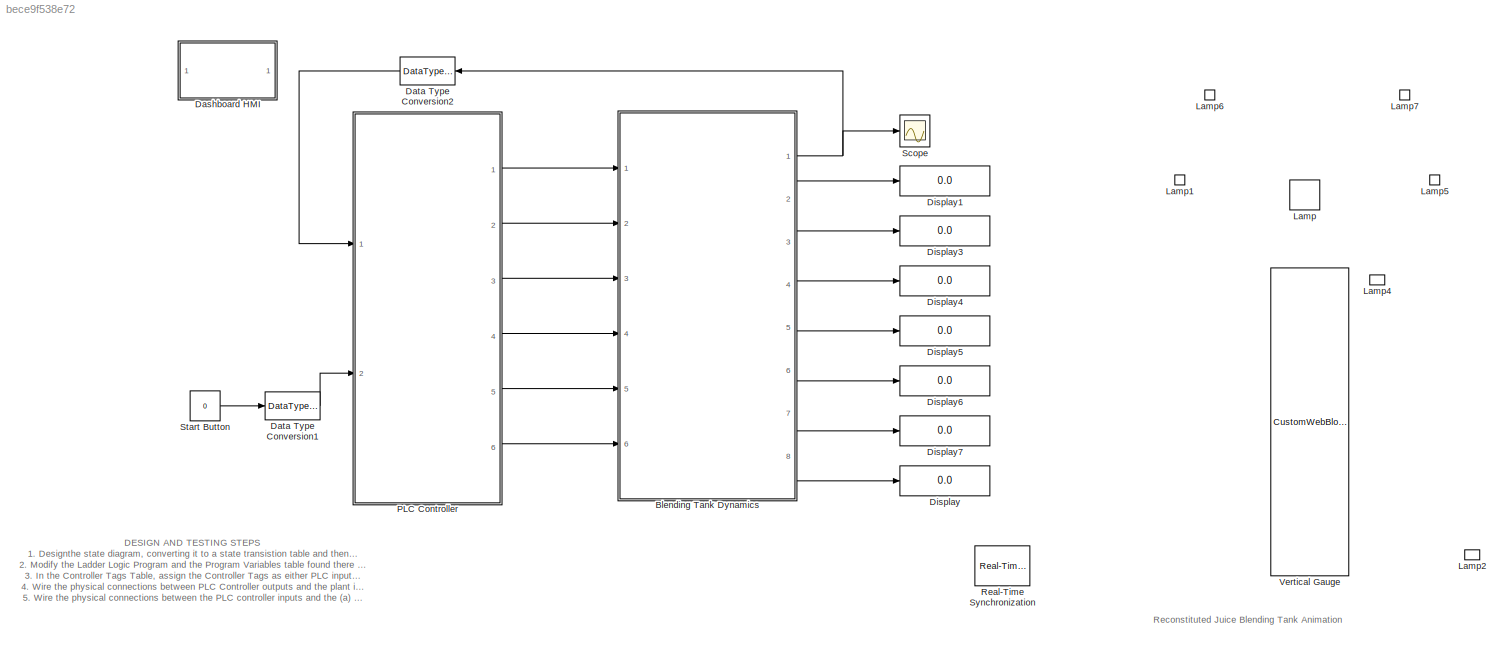
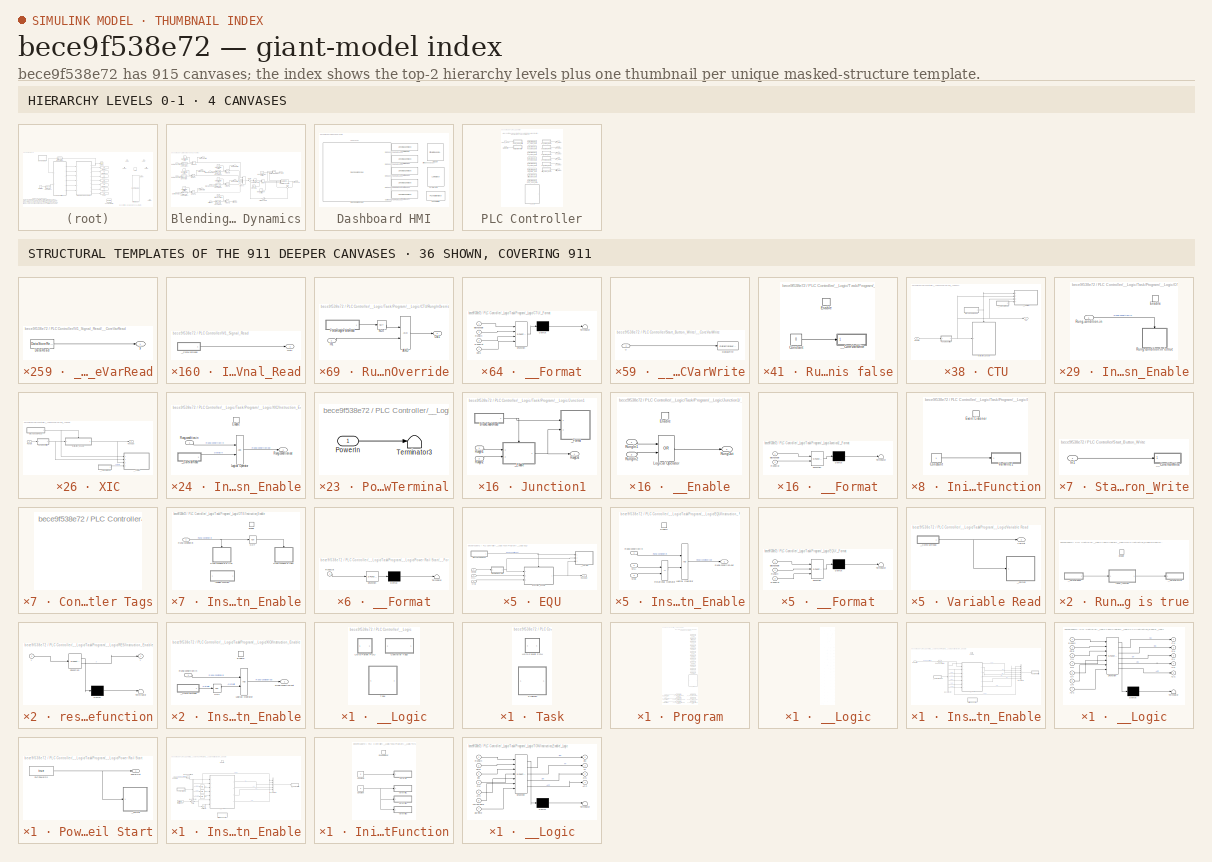
[diagram: thumbnail index - top-2 hierarchy levels (4 canvases) + 36 structural-template representatives of the remaining 911 canvases]
MODEL slx_bece9f538e72
KIND model
CONFIG AbsTol = auto
CONFIG EnableMultiTasking = off
CONFIG FixedStep = auto
CONFIG InitFcn = T1_InitialValue = FB_TON.InitialValue;\nT1_InitialValue.PRE = 20000;\n\nC1_InitialValue = FB_CTU.InitialValue;\nC1_InitialValue.PRE = 3;
CONFIG MaxStep = auto
CONFIG MinStep = auto
CONFIG PostLoadFcn = slplc.api.loadDataTypes;
CONFIG RelTol = 1e-3
CONFIG SampleTimeConstraint = Unconstrained
CONFIG SolverName = FixedStepAuto
CONFIG StartTime = 0.0
CONFIG StopFcn = clear T1_InitialValue C1_InitialValue;
CONFIG StopTime = Inf
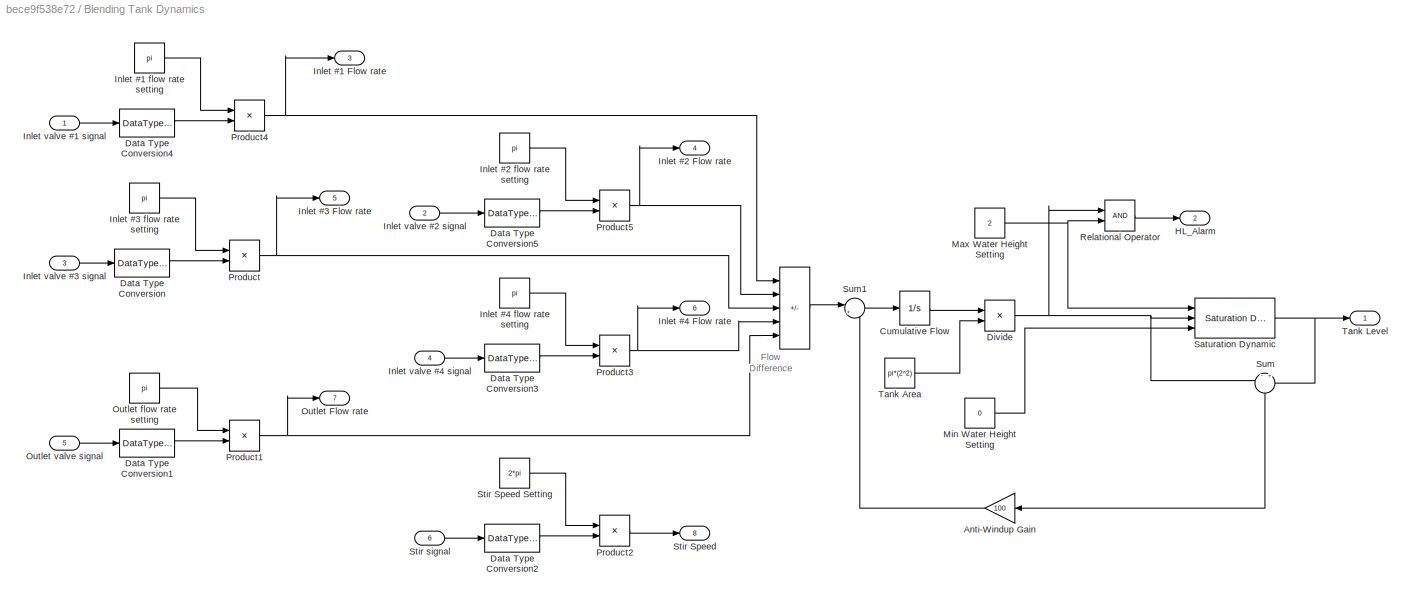
BLOCK [SubSystem] Blending Tank Dynamics
  Ports = [6, 8]
  RequestExecContextInheritance = off
BLOCK [Sum] Blending Tank Dynamics/ 
  IconShape = rectangular
  InputSameDT = on
  Inputs = ++++-
  OutDataTypeStr = Inherit: Same as first input
  Ports = [5, 1]
  SaturateOnIntegerOverflow = on
BLOCK [Gain] Blending Tank Dynamics/Anti-Windup Gain
  Gain = 100
  NameLocation = top
BLOCK [Integrator] Blending Tank Dynamics/Cumulative Flow
  Ports = [1, 1]
BLOCK [DataTypeConversion] Blending Tank Dynamics/Data Type Conversion
  OutDataTypeStr = double
BLOCK [DataTypeConversion] Blending Tank Dynamics/Data Type Conversion1
  OutDataTypeStr = double
BLOCK [DataTypeConversion] Blending Tank Dynamics/Data Type Conversion2
  OutDataTypeStr = double
BLOCK [DataTypeConversion] Blending Tank Dynamics/Data Type Conversion3
  OutDataTypeStr = double
BLOCK [DataTypeConversion] Blending Tank Dynamics/Data Type Conversion4
  OutDataTypeStr = double
BLOCK [DataTypeConversion] Blending Tank Dynamics/Data Type Conversion5
  OutDataTypeStr = double
BLOCK [Product] Blending Tank Dynamics/Divide
  Inputs = */
  Ports = [2, 1]
BLOCK [Outport] Blending Tank Dynamics/HL_Alarm
  Port = 2
BLOCK [Outport] Blending Tank Dynamics/Inlet #1 Flow rate
  Port = 3
BLOCK [Constant] Blending Tank Dynamics/Inlet #1 flow rate setting
  Value = pi
BLOCK [Outport] Blending Tank Dynamics/Inlet #2 Flow rate
  Port = 4
BLOCK [Constant] Blending Tank Dynamics/Inlet #2 flow rate setting
  Value = pi
BLOCK [Outport] Blending Tank Dynamics/Inlet #3 Flow rate
  Port = 5
BLOCK [Constant] Blending Tank Dynamics/Inlet #3 flow rate setting
  Value = pi
BLOCK [Outport] Blending Tank Dynamics/Inlet #4 Flow rate
  Port = 6
BLOCK [Constant] Blending Tank Dynamics/Inlet #4 flow rate setting
  Value = pi
BLOCK [Inport] Blending Tank Dynamics/Inlet valve #1 signal
BLOCK [Inport] Blending Tank Dynamics/Inlet valve #2 signal
  Port = 2
BLOCK [Inport] Blending Tank Dynamics/Inlet valve #3 signal
  Port = 3
BLOCK [Inport] Blending Tank Dynamics/Inlet valve #4 signal
  Port = 4
BLOCK [Constant] Blending Tank Dynamics/Max Water Height Setting
  Value = 2
BLOCK [Constant] Blending Tank Dynamics/Min Water Height Setting 
  Value = 0
BLOCK [Outport] Blending Tank Dynamics/Outlet Flow rate
  Port = 7
BLOCK [Constant] Blending Tank Dynamics/Outlet flow rate setting
  Value = pi
BLOCK [Inport] Blending Tank Dynamics/Outlet valve signal
  Port = 5
BLOCK [Product] Blending Tank Dynamics/Product
  Ports = [2, 1]
BLOCK [Product] Blending Tank Dynamics/Product1
  Ports = [2, 1]
BLOCK [Product] Blending Tank Dynamics/Product2
  Ports = [2, 1]
BLOCK [Product] Blending Tank Dynamics/Product3
  Ports = [2, 1]
BLOCK [Product] Blending Tank Dynamics/Product4
  Ports = [2, 1]
BLOCK [Product] Blending Tank Dynamics/Product5
  Ports = [2, 1]
BLOCK [RelationalOperator] Blending Tank Dynamics/Relational Operator
  InputSameDT = off
  OutDataTypeStr = boolean
  Ports = [2, 1]
  RndMeth = Simplest
BLOCK [Reference] Blending Tank Dynamics/Saturation Dynamic  REF=simulink/Discontinuities/Saturation
Dynamic
  Ports = [3, 1]
  SourceBlock = simulink/Discontinuities/Saturation\nDynamic
  SourceProductBaseCode = SL
  SourceType = Saturation Dynamic
BLOCK [Outport] Blending Tank Dynamics/Stir Speed
  Port = 8
BLOCK [Constant] Blending Tank Dynamics/Stir Speed Setting
  Value = 2*pi
BLOCK [Inport] Blending Tank Dynamics/Stir signal
  Port = 6
BLOCK [Sum] Blending Tank Dynamics/Sum
  Inputs = -|+
  NameLocation = left
  Ports = [2, 1]
BLOCK [Sum] Blending Tank Dynamics/Sum1
  Inputs = |++
  Ports = [2, 1]
BLOCK [Constant] Blending Tank Dynamics/Tank Area
  Value = pi*(2^2)
BLOCK [Outport] Blending Tank Dynamics/Tank Level
  InitialOutput = 0
  VectorParamsAs1DForOutWhenUnconnected = off
BLOCK [SubSystem] Dashboard HMI
  Ports = []
  RequestExecContextInheritance = off
BLOCK [DashboardScope] Dashboard HMI/Dashboard Scope
  LegendPosition = Hide
  ScaleAtStop = off
  TimeSpan = 110
  Ymax = 2
  Ymin = 0
BLOCK [CircularGaugeBlock] Dashboard HMI/Gauge
  LabelPosition = Hide
  ScaleMax = 10
  TickInterval = 1
BLOCK [LampBlock] Dashboard HMI/Lamp
  LabelPosition = Hide
BLOCK [LinearGaugeBlock] Dashboard HMI/Linear Gauge
  LabelPosition = Hide
  ScaleMax = 5
  TickInterval = 0.5
BLOCK [LinearGaugeBlock] Dashboard HMI/Linear Gauge1
  LabelPosition = Hide
  ScaleMax = 5
  TickInterval = 0.5
BLOCK [LinearGaugeBlock] Dashboard HMI/Linear Gauge2
  LabelPosition = Hide
  ScaleMax = 5
  TickInterval = 0.5
BLOCK [LinearGaugeBlock] Dashboard HMI/Linear Gauge3
  LabelPosition = Hide
  ScaleMax = 5
  TickInterval = 0.5
BLOCK [LinearGaugeBlock] Dashboard HMI/Linear Gauge4
  LabelPosition = Hide
  ScaleMax = 5
  TickInterval = 0.5
BLOCK [PushButtonBlock] Dashboard HMI/Push Button
  ButtonText = Start Button
BLOCK [DataTypeConversion] Data Type Conversion1
  OutDataTypeStr = BOOL
BLOCK [DataTypeConversion] Data Type Conversion2
  NameLocation = top
  OutDataTypeStr = REAL
BLOCK [Display] Display
  Decimation = 1
  Ports = [1]
BLOCK [Display] Display1
  Decimation = 1
  Ports = [1]
BLOCK [Display] Display3
  Decimation = 1
  Ports = [1]
BLOCK [Display] Display4
  Decimation = 1
  Ports = [1]
BLOCK [Display] Display5
  Decimation = 1
  Ports = [1]
BLOCK [Display] Display6
  Decimation = 1
  Ports = [1]
BLOCK [Display] Display7
  Decimation = 1
  Ports = [1]
BLOCK [LampBlock] Lamp
  LabelPosition = Hide
BLOCK [LampBlock] Lamp1
  LabelPosition = Hide
BLOCK [LampBlock] Lamp2
  LabelPosition = Hide
BLOCK [LampBlock] Lamp4
  LabelPosition = Hide
BLOCK [LampBlock] Lamp5
  LabelPosition = Hide
BLOCK [LampBlock] Lamp6
  LabelPosition = Hide
BLOCK [LampBlock] Lamp7
  LabelPosition = Hide
BLOCK [SubSystem] PLC Controller
  NameLocation = top
  OpenFcn = slplc.callbacks.openPOUBlock(gcb);
  Ports = [2, 6]
  RequestExecContextInheritance = off
  TreatAsAtomicUnit = on
BLOCK [Outport] PLC Controller/IV1_Signal
BLOCK [DataStoreMemory] PLC Controller/IV1_Signal_Data
  DataStoreName = xxx_PLC_VAR_IV1_Signal
  Dimensions = 1
  OutDataTypeStr = boolean
  Priority = 10
  ShowAdditionalParam = off
  SignalType = real
  Tag = POUVariable
BLOCK [SubSystem] PLC Controller/IV1_Signal_Read
  DisableCoverage = on
  MaskHideContents = on
  Ports = [0, 1]
  Priority = 13
  RequestExecContextInheritance = off
  ShowPortLabels = none
  TreatAsAtomicUnit = on
BLOCK [Outport] PLC Controller/IV1_Signal_Read/Out1
  VectorParamsAs1DForOutWhenUnconnected = off
BLOCK [SubSystem] PLC Controller/IV1_Signal_Read/__CoreVarRead
  DisableCoverage = on
  MaskHideContents = on
  Ports = [0, 1]
  RequestExecContextInheritance = off
  ShowPortLabels = none
  Tag = CoreVarReadBlock
  TreatAsAtomicUnit = on
BLOCK [DataStoreRead] PLC Controller/IV1_Signal_Read/__CoreVarRead/DataRead
  DataStoreName = xxx_PLC_VAR_IV1_Signal
  Ports = [0, 1]
BLOCK [Outport] PLC Controller/IV1_Signal_Read/__CoreVarRead/y
  VectorParamsAs1DForOutWhenUnconnected = off
BLOCK [Outport] PLC Controller/IV2_Signal
  Port = 2
BLOCK [DataStoreMemory] PLC Controller/IV2_Signal_Data
  DataStoreName = xxx_PLC_VAR_IV2_Signal
  Dimensions = 1
  OutDataTypeStr = boolean
  Priority = 10
  ShowAdditionalParam = off
  SignalType = real
  Tag = POUVariable
BLOCK [SubSystem] PLC Controller/IV2_Signal_Read
  DisableCoverage = on
  MaskHideContents = on
  Ports = [0, 1]
  Priority = 13
  RequestExecContextInheritance = off
  ShowPortLabels = none
  TreatAsAtomicUnit = on
BLOCK [Outport] PLC Controller/IV2_Signal_Read/Out1
  VectorParamsAs1DForOutWhenUnconnected = off
BLOCK [SubSystem] PLC Controller/IV2_Signal_Read/__CoreVarRead
  DisableCoverage = on
  MaskHideContents = on
  Ports = [0, 1]
  RequestExecContextInheritance = off
  ShowPortLabels = none
  Tag = CoreVarReadBlock
  TreatAsAtomicUnit = on
BLOCK [DataStoreRead] PLC Controller/IV2_Signal_Read/__CoreVarRead/DataRead
  DataStoreName = xxx_PLC_VAR_IV2_Signal
  Ports = [0, 1]
BLOCK [Outport] PLC Controller/IV2_Signal_Read/__CoreVarRead/y
  VectorParamsAs1DForOutWhenUnconnected = off
BLOCK [Outport] PLC Controller/IV3_Signal
  Port = 3
BLOCK [DataStoreMemory] PLC Controller/IV3_Signal_Data
  DataStoreName = xxx_PLC_VAR_IV3_Signal
  Dimensions = 1
  OutDataTypeStr = boolean
  Priority = 10
  ShowAdditionalParam = off
  SignalType = real
  Tag = POUVariable
BLOCK [SubSystem] PLC Controller/IV3_Signal_Read
  DisableCoverage = on
  MaskHideContents = on
  Ports = [0, 1]
  Priority = 13
  RequestExecContextInheritance = off
  ShowPortLabels = none
  TreatAsAtomicUnit = on
BLOCK [Outport] PLC Controller/IV3_Signal_Read/Out1
  VectorParamsAs1DForOutWhenUnconnected = off
BLOCK [SubSystem] PLC Controller/IV3_Signal_Read/__CoreVarRead
  DisableCoverage = on
  MaskHideContents = on
  Ports = [0, 1]
  RequestExecContextInheritance = off
  ShowPortLabels = none
  Tag = CoreVarReadBlock
  TreatAsAtomicUnit = on
BLOCK [DataStoreRead] PLC Controller/IV3_Signal_Read/__CoreVarRead/DataRead
  DataStoreName = xxx_PLC_VAR_IV3_Signal
  Ports = [0, 1]
BLOCK [Outport] PLC Controller/IV3_Signal_Read/__CoreVarRead/y
  VectorParamsAs1DForOutWhenUnconnected = off
BLOCK [Outport] PLC Controller/IV4_Signal
  Port = 4
BLOCK [DataStoreMemory] PLC Controller/IV4_Signal_Data
  DataStoreName = xxx_PLC_VAR_IV4_Signal
  Dimensions = 1
  OutDataTypeStr = boolean
  Priority = 10
  ShowAdditionalParam = off
  SignalType = real
  Tag = POUVariable
BLOCK [SubSystem] PLC Controller/IV4_Signal_Read
  DisableCoverage = on
  MaskHideContents = on
  Ports = [0, 1]
  Priority = 13
  RequestExecContextInheritance = off
  ShowPortLabels = none
  TreatAsAtomicUnit = on
BLOCK [Outport] PLC Controller/IV4_Signal_Read/Out1
  VectorParamsAs1DForOutWhenUnconnected = off
BLOCK [SubSystem] PLC Controller/IV4_Signal_Read/__CoreVarRead
  DisableCoverage = on
  MaskHideContents = on
  Ports = [0, 1]
  RequestExecContextInheritance = off
  ShowPortLabels = none
  Tag = CoreVarReadBlock
  TreatAsAtomicUnit = on
BLOCK [DataStoreRead] PLC Controller/IV4_Signal_Read/__CoreVarRead/DataRead
  DataStoreName = xxx_PLC_VAR_IV4_Signal
  Ports = [0, 1]
BLOCK [Outport] PLC Controller/IV4_Signal_Read/__CoreVarRead/y
  VectorParamsAs1DForOutWhenUnconnected = off
BLOCK [Outport] PLC Controller/OV_Signal
  Port = 5
BLOCK [DataStoreMemory] PLC Controller/OV_Signal_Data
  DataStoreName = xxx_PLC_VAR_OV_Signal
  Dimensions = 1
  OutDataTypeStr = boolean
  Priority = 10
  ShowAdditionalParam = off
  SignalType = real
  Tag = POUVariable
BLOCK [SubSystem] PLC Controller/OV_Signal_Read
  DisableCoverage = on
  MaskHideContents = on
  Ports = [0, 1]
  Priority = 13
  RequestExecContextInheritance = off
  ShowPortLabels = none
  TreatAsAtomicUnit = on
BLOCK [Outport] PLC Controller/OV_Signal_Read/Out1
  VectorParamsAs1DForOutWhenUnconnected = off
BLOCK [SubSystem] PLC Controller/OV_Signal_Read/__CoreVarRead
  DisableCoverage = on
  MaskHideContents = on
  Ports = [0, 1]
  RequestExecContextInheritance = off
  ShowPortLabels = none
  Tag = CoreVarReadBlock
  TreatAsAtomicUnit = on
BLOCK [DataStoreRead] PLC Controller/OV_Signal_Read/__CoreVarRead/DataRead
  DataStoreName = xxx_PLC_VAR_OV_Signal
  Ports = [0, 1]
BLOCK [Outport] PLC Controller/OV_Signal_Read/__CoreVarRead/y
  VectorParamsAs1DForOutWhenUnconnected = off
BLOCK [Inport] PLC Controller/Start_Button
  OutDataTypeStr = BOOL
  Port = 2
BLOCK [DataStoreMemory] PLC Controller/Start_Button_Data
  DataStoreName = xxx_PLC_VAR_Start_Button
  Dimensions = 1
  OutDataTypeStr = BOOL
  Priority = 10
  ShowAdditionalParam = off
  SignalType = real
  Tag = POUVariable
BLOCK [SubSystem] PLC Controller/Start_Button_Write
  DisableCoverage = on
  MaskHideContents = on
  Ports = [1]
  Priority = 11
  RequestExecContextInheritance = off
  ShowPortLabels = none
  TreatAsAtomicUnit = on
BLOCK [Inport] PLC Controller/Start_Button_Write/In1
BLOCK [SubSystem] PLC Controller/Start_Button_Write/__CoreVarWrite
  DisableCoverage = on
  MaskHideContents = on
  Ports = [1]
  RequestExecContextInheritance = off
  ShowPortLabels = none
  Tag = CoreVarWriteBlock
  TreatAsAtomicUnit = on
BLOCK [DataStoreWrite] PLC Controller/Start_Button_Write/__CoreVarWrite/DataWrite
  DataStoreName = xxx_PLC_VAR_Start_Button
  Ports = [1]
BLOCK [Inport] PLC Controller/Start_Button_Write/__CoreVarWrite/u
BLOCK [Outport] PLC Controller/Stirrer_Signal
  Port = 6
BLOCK [DataStoreMemory] PLC Controller/Stirrer_Signal_Data
  DataStoreName = xxx_PLC_VAR_Stirrer_Signal
  Dimensions = 1
  OutDataTypeStr = boolean
  Priority = 10
  ShowAdditionalParam = off
  SignalType = real
  Tag = POUVariable
BLOCK [SubSystem] PLC Controller/Stirrer_Signal_Read
  DisableCoverage = on
  MaskHideContents = on
  Ports = [0, 1]
  Priority = 13
  RequestExecContextInheritance = off
  ShowPortLabels = none
  TreatAsAtomicUnit = on
BLOCK [Outport] PLC Controller/Stirrer_Signal_Read/Out1
  VectorParamsAs1DForOutWhenUnconnected = off
BLOCK [SubSystem] PLC Controller/Stirrer_Signal_Read/__CoreVarRead
  DisableCoverage = on
  MaskHideContents = on
  Ports = [0, 1]
  RequestExecContextInheritance = off
  ShowPortLabels = none
  Tag = CoreVarReadBlock
  TreatAsAtomicUnit = on
BLOCK [DataStoreRead] PLC Controller/Stirrer_Signal_Read/__CoreVarRead/DataRead
  DataStoreName = xxx_PLC_VAR_Stirrer_Signal
  Ports = [0, 1]
BLOCK [Outport] PLC Controller/Stirrer_Signal_Read/__CoreVarRead/y
  VectorParamsAs1DForOutWhenUnconnected = off
BLOCK [Inport] PLC Controller/Tank_Level
  OutDataTypeStr = REAL
BLOCK [DataStoreMemory] PLC Controller/Tank_Level_Data
  DataStoreName = xxx_PLC_VAR_Tank_Level
  Dimensions = 1
  OutDataTypeStr = REAL
  Priority = 10
  ShowAdditionalParam = off
  SignalType = real
  Tag = POUVariable
BLOCK [SubSystem] PLC Controller/Tank_Level_Write
  DisableCoverage = on
  MaskHideContents = on
  Ports = [1]
  Priority = 11
  RequestExecContextInheritance = off
  ShowPortLabels = none
  TreatAsAtomicUnit = on
BLOCK [Inport] PLC Controller/Tank_Level_Write/In1
BLOCK [SubSystem] PLC Controller/Tank_Level_Write/__CoreVarWrite
  DisableCoverage = on
  MaskHideContents = on
  Ports = [1]
  RequestExecContextInheritance = off
  ShowPortLabels = none
  Tag = CoreVarWriteBlock
  TreatAsAtomicUnit = on
BLOCK [DataStoreWrite] PLC Controller/Tank_Level_Write/__CoreVarWrite/DataWrite
  DataStoreName = xxx_PLC_VAR_Tank_Level
  Ports = [1]
BLOCK [Inport] PLC Controller/Tank_Level_Write/__CoreVarWrite/u
BLOCK [SubSystem] PLC Controller/__Logic
  Ports = []
  Priority = 12
  RequestExecContextInheritance = off
  TreatAsAtomicUnit = on
  UserDataPersistent = on
BLOCK [SubSystem] PLC Controller/__Logic/Controller Tags
  DisableCoverage = on
  MaskHideContents = on
  OpenFcn = slplc.callbacks.openControllerVariableSS(gcb);
  Ports = []
  RequestExecContextInheritance = off
  Tag = ControllerVariableSS
  TreatAsAtomicUnit = on
  UserDataPersistent = on
BLOCK [SubSystem] PLC Controller/__Logic/Task
  NameLocation = top
  OpenFcn = slplc.callbacks.openTaskBlock(gcb);
  Ports = []
  RequestExecContextInheritance = off
  TreatAsAtomicUnit = on
BLOCK [SubSystem] PLC Controller/__Logic/Task/Program
  NameLocation = top
  OpenFcn = slplc.callbacks.openPOUBlock(gcb);
  Ports = []
  RequestExecContextInheritance = off
  TreatAsAtomicUnit = on
BLOCK [DataStoreMemory] PLC Controller/__Logic/Task/Program/C1_Data
  DataStoreName = xxx_PLC_VAR_C1
  Dimensions = 1
  InitialValue = C1_InitialValue
  OutDataTypeStr = Bus: COUNTER
  Priority = 10
  ShowAdditionalParam = off
  SignalType = real
  Tag = POUVariable
BLOCK [DataStoreMemory] PLC Controller/__Logic/Task/Program/Initialise_Data
  DataStoreName = xxx_PLC_VAR_Initialise
  Dimensions = 1
  InitialValue = false
  OutDataTypeStr = BOOL
  Priority = 10
  ShowAdditionalParam = off
  SignalType = real
  Tag = POUVariable
BLOCK [DataStoreMemory] PLC Controller/__Logic/Task/Program/M0_Data
  DataStoreName = xxx_PLC_VAR_M0
  Dimensions = 1
  InitialValue = false
  OutDataTypeStr = BOOL
  Priority = 10
  ShowAdditionalParam = off
  SignalType = real
  Tag = POUVariable
BLOCK [DataStoreMemory] PLC Controller/__Logic/Task/Program/M1_Data
  DataStoreName = xxx_PLC_VAR_M1
  Dimensions = 1
  InitialValue = false
  OutDataTypeStr = BOOL
  Priority = 10
  ShowAdditionalParam = off
  SignalType = real
  Tag = POUVariable
BLOCK [DataStoreMemory] PLC Controller/__Logic/Task/Program/M2_Data
  DataStoreName = xxx_PLC_VAR_M2
  Dimensions = 1
  InitialValue = false
  OutDataTypeStr = BOOL
  Priority = 10
  ShowAdditionalParam = off
  SignalType = real
  Tag = POUVariable
BLOCK [DataStoreMemory] PLC Controller/__Logic/Task/Program/M3_Data
  DataStoreName = xxx_PLC_VAR_M3
  Dimensions = 1
  InitialValue = false
  OutDataTypeStr = BOOL
  Priority = 10
  ShowAdditionalParam = off
  SignalType = real
  Tag = POUVariable
BLOCK [DataStoreMemory] PLC Controller/__Logic/Task/Program/M4_Data
  DataStoreName = xxx_PLC_VAR_M4
  Dimensions = 1
  InitialValue = false
  OutDataTypeStr = BOOL
  Priority = 10
  ShowAdditionalParam = off
  SignalType = real
  Tag = POUVariable
BLOCK [DataStoreMemory] PLC Controller/__Logic/Task/Program/M5_Data
  DataStoreName = xxx_PLC_VAR_M5
  Dimensions = 1
  InitialValue = false
  OutDataTypeStr = BOOL
  Priority = 10
  ShowAdditionalParam = off
  SignalType = real
  Tag = POUVariable
BLOCK [DataStoreMemory] PLC Controller/__Logic/Task/Program/M6_Data
  DataStoreName = xxx_PLC_VAR_M6
  Dimensions = 1
  InitialValue = false
  OutDataTypeStr = BOOL
  Priority = 10
  ShowAdditionalParam = off
  SignalType = real
  Tag = POUVariable
BLOCK [DataStoreMemory] PLC Controller/__Logic/Task/Program/M7_Data
  DataStoreName = xxx_PLC_VAR_M7
  Dimensions = 1
  InitialValue = false
  OutDataTypeStr = BOOL
  Priority = 10
  ShowAdditionalParam = off
  SignalType = real
  Tag = POUVariable
BLOCK [DataStoreMemory] PLC Controller/__Logic/Task/Program/Running_Data
  DataStoreName = xxx_PLC_VAR_Running
  Dimensions = 1
  InitialValue = false
  OutDataTypeStr = BOOL
  Priority = 10
  ShowAdditionalParam = off
  SignalType = real
  Tag = POUVariable
BLOCK [DataStoreMemory] PLC Controller/__Logic/Task/Program/T1_Data
  DataStoreName = xxx_PLC_VAR_T1
  Dimensions = 1
  InitialValue = T1_InitialValue
  OutDataTypeStr = Bus: TIMER
  Priority = 10
  ShowAdditionalParam = off
  SignalType = real
  Tag = POUVariable
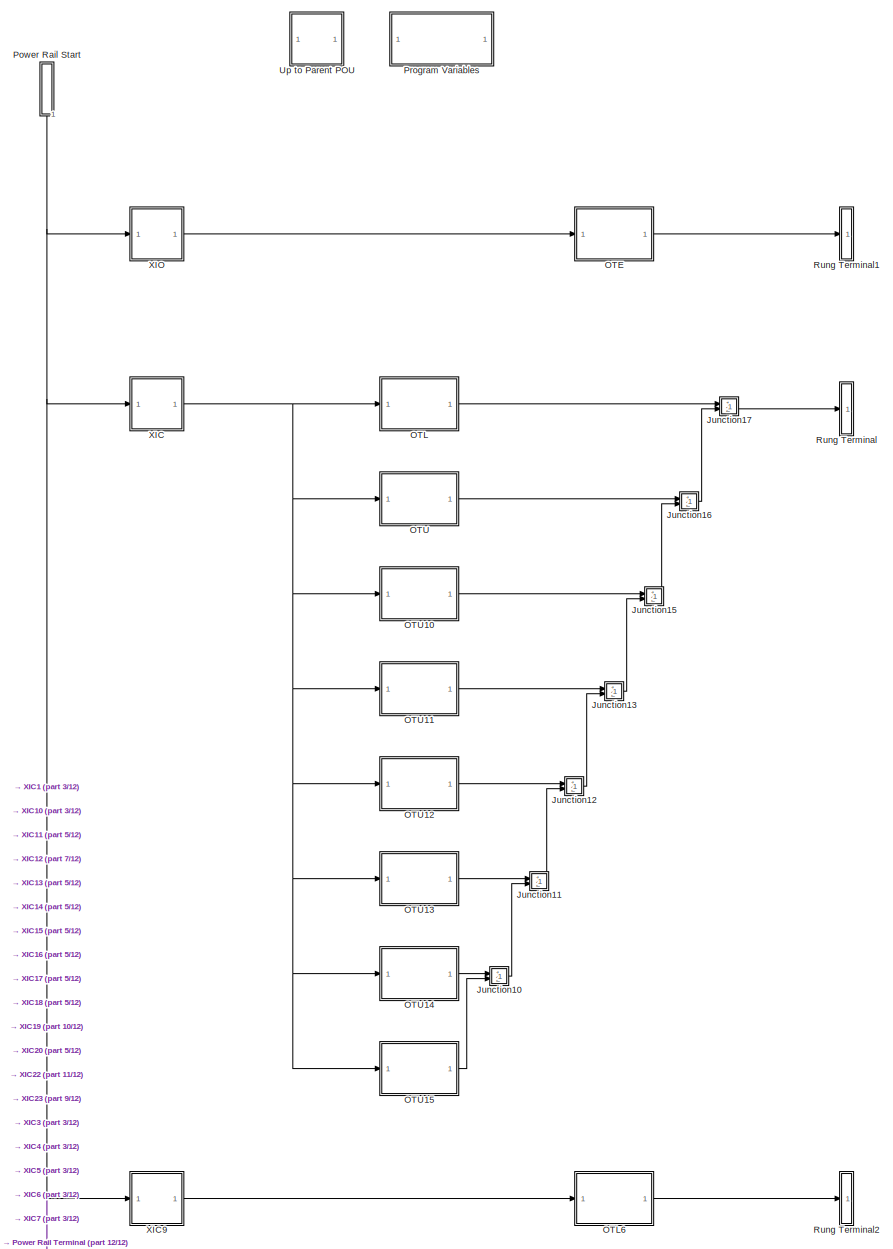
[diagram: PLC Controller/__Logic/Task/Program/__Logic - part 1/12, full width, top band]
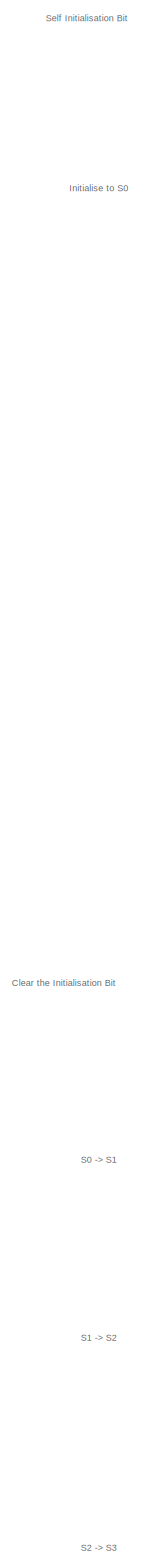
[diagram: PLC Controller/__Logic/Task/Program/__Logic - part 2/12, top left region]
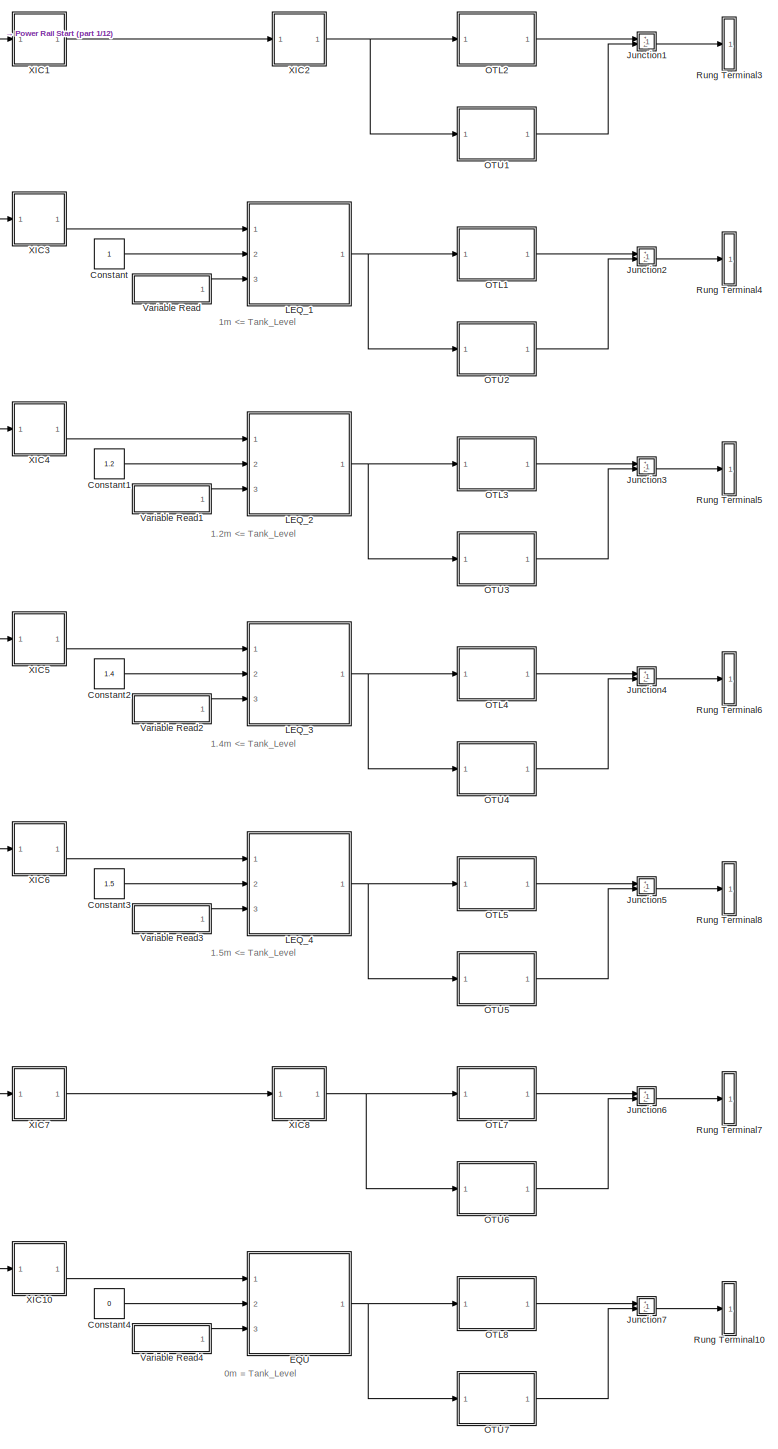
[diagram: PLC Controller/__Logic/Task/Program/__Logic - part 3/12, central region]
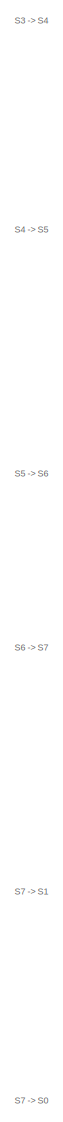
[diagram: PLC Controller/__Logic/Task/Program/__Logic - part 4/12, middle left region]
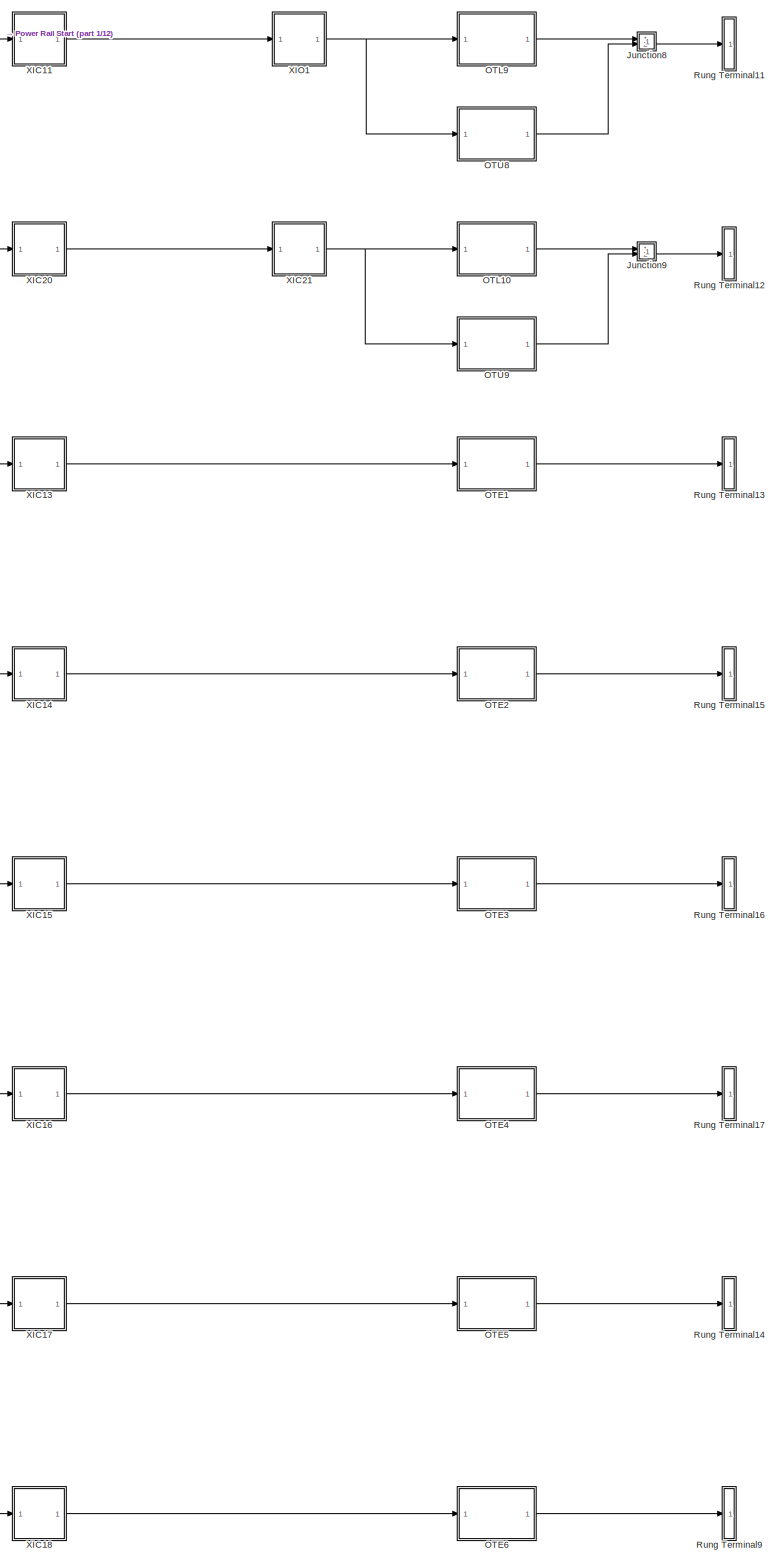
[diagram: PLC Controller/__Logic/Task/Program/__Logic - part 5/12, central region]
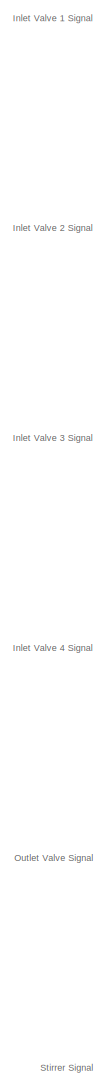
[diagram: PLC Controller/__Logic/Task/Program/__Logic - part 6/12, bottom left region]
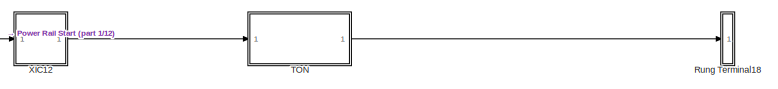
[diagram: PLC Controller/__Logic/Task/Program/__Logic - part 7/12, bottom center region]
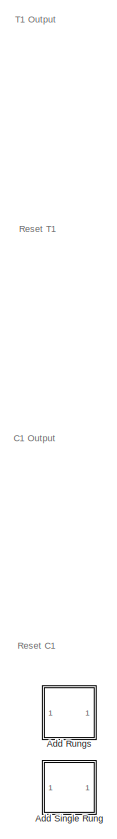
[diagram: PLC Controller/__Logic/Task/Program/__Logic - part 8/12, bottom left region]
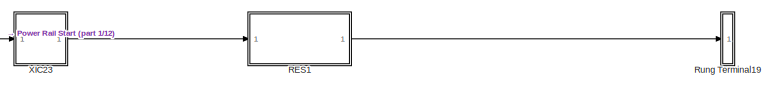
[diagram: PLC Controller/__Logic/Task/Program/__Logic - part 9/12, bottom center region]
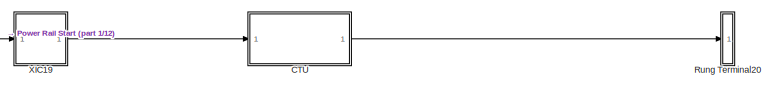
[diagram: PLC Controller/__Logic/Task/Program/__Logic - part 10/12, bottom center region]
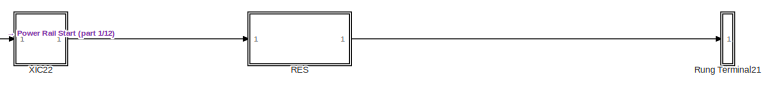
[diagram: PLC Controller/__Logic/Task/Program/__Logic - part 11/12, bottom center region]
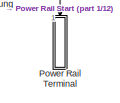
[diagram: PLC Controller/__Logic/Task/Program/__Logic - part 12/12, bottom left region]
BLOCK [SubSystem] PLC Controller/__Logic/Task/Program/__Logic
  Ports = []
  Priority = 12
  RequestExecContextInheritance = off
  TreatAsAtomicUnit = on
  UserDataPersistent = on
BLOCK [SubSystem] PLC Controller/__Logic/Task/Program/__Logic/Add Rungs
  DisableCoverage = on
  MaskHideContents = on
  Ports = []
  RequestExecContextInheritance = off
  TreatAsAtomicUnit = on
BLOCK [SubSystem] PLC Controller/__Logic/Task/Program/__Logic/Add Single Rung
  DisableCoverage = on
  MaskHideContents = on
  OpenFcn = slplc.callbacks.addLadderRungs(gcb);
  Ports = []
  RequestExecContextInheritance = off
  TreatAsAtomicUnit = on
BLOCK [SubSystem] PLC Controller/__Logic/Task/Program/__Logic/CTU
  AttributesFormatString = %<PLCBlockType>: %<PLCOperandTag>
  MaskHideContents = on
  NameLocation = top
  Ports = [1, 1]
  Priority = 114
  RequestExecContextInheritance = off
  TreatAsAtomicUnit = on
BLOCK [SubSystem] PLC Controller/__Logic/Task/Program/__Logic/CTU/BlockEnableRead
  DisableCoverage = on
  MaskHideContents = on
  Ports = [0, 1]
  RequestExecContextInheritance = off
  ShowPortLabels = none
  TreatAsAtomicUnit = on
BLOCK [Outport] PLC Controller/__Logic/Task/Program/__Logic/CTU/BlockEnableRead/Out1
  VectorParamsAs1DForOutWhenUnconnected = off
BLOCK [SubSystem] PLC Controller/__Logic/Task/Program/__Logic/CTU/BlockEnableRead/__CoreLabelRead
  DisableCoverage = on
  MaskHideContents = on
  Ports = [0, 1]
  RequestExecContextInheritance = off
  ShowPortLabels = none
  Tag = CoreVarReadBlock
  TreatAsAtomicUnit = on
BLOCK [DataStoreRead] PLC Controller/__Logic/Task/Program/__Logic/CTU/BlockEnableRead/__CoreLabelRead/DataRead
  DataStoreName = x_PLCLabel__s4_3653__Block_Enable
  Ports = [0, 1]
BLOCK [Outport] PLC Controller/__Logic/Task/Program/__Logic/CTU/BlockEnableRead/__CoreLabelRead/Out1
  VectorParamsAs1DForOutWhenUnconnected = off
BLOCK [Outport] PLC Controller/__Logic/Task/Program/__Logic/CTU/CU
  VectorParamsAs1DForOutWhenUnconnected = off
BLOCK [SubSystem] PLC Controller/__Logic/Task/Program/__Logic/CTU/Instruction_Enable
  Ports = [1, 0, 1]
  Priority = 12
  RequestExecContextInheritance = off
BLOCK [BusCreator] PLC Controller/__Logic/Task/Program/__Logic/CTU/Instruction_Enable/Bus Creator
  DisplayOption = bar
  InheritFromInputs = on
  Inputs = 7
  NonVirtualBus = on
  OutDataTypeStr = Bus: COUNTER
  Ports = [7, 1]
BLOCK [BusSelector] PLC Controller/__Logic/Task/Program/__Logic/CTU/Instruction_Enable/Bus Selector
  OutputSignals = CD,PRE,CU,DN,OV,UN,ACC
  Ports = [1, 7]
BLOCK [EnablePort] PLC Controller/__Logic/Task/Program/__Logic/CTU/Instruction_Enable/Enable
  Ports = []
BLOCK [Inport] PLC Controller/__Logic/Task/Program/__Logic/CTU/Instruction_Enable/EnableIn
BLOCK [SubSystem] PLC Controller/__Logic/Task/Program/__Logic/CTU/Instruction_Enable/Initialize Function
  Ports = []
  RequestExecContextInheritance = off
  TreatAsAtomicUnit = on
BLOCK [Constant] PLC Controller/__Logic/Task/Program/__Logic/CTU/Instruction_Enable/Initialize Function/Constant
  OutDataTypeStr = BOOL
BLOCK [EventListener] PLC Controller/__Logic/Task/Program/__Logic/CTU/Instruction_Enable/Initialize Function/Event Listener
  DisableCoverage = on
  EventName = reset
BLOCK [SubSystem] PLC Controller/__Logic/Task/Program/__Logic/CTU/Instruction_Enable/Initialize Function/VarWrite1
  DisableCoverage = on
  MaskHideContents = on
  Ports = [1]
  RequestExecContextInheritance = off
  ShowPortLabels = none
  TreatAsAtomicUnit = on
BLOCK [Inport] PLC Controller/__Logic/Task/Program/__Logic/CTU/Instruction_Enable/Initialize Function/VarWrite1/In1
BLOCK [SubSystem] PLC Controller/__Logic/Task/Program/__Logic/CTU/Instruction_Enable/Initialize Function/VarWrite1/__CoreVarWrite
  DisableCoverage = on
  MaskHideContents = on
  Ports = [1]
  RequestExecContextInheritance = off
  ShowPortLabels = none
  Tag = CoreVarWriteBlock
  TreatAsAtomicUnit = on
BLOCK [DataStoreWrite] PLC Controller/__Logic/Task/Program/__Logic/CTU/Instruction_Enable/Initialize Function/VarWrite1/__CoreVarWrite/DataWrite
  DataStoreElements = xxx_PLC_VAR_C1.CU
  DataStoreName = xxx_PLC_VAR_C1
  Ports = [1]
BLOCK [Inport] PLC Controller/__Logic/Task/Program/__Logic/CTU/Instruction_Enable/Initialize Function/VarWrite1/__CoreVarWrite/u
BLOCK [Reference] PLC Controller/__Logic/Task/Program/__Logic/CTU/Instruction_Enable/Rung-condition-in  REF=simulink/Logic and Bit
Operations/Compare
To Zero
  Ports = [1, 1]
  SourceBlock = simulink/Logic and Bit\nOperations/Compare\nTo Zero
  SourceProductBaseCode = SL
  SourceType = Compare To Zero
BLOCK [SubSystem] PLC Controller/__Logic/Task/Program/__Logic/CTU/Instruction_Enable/__CoreVarRead1
  DisableCoverage = on
  MaskHideContents = on
  Ports = [0, 1]
  RequestExecContextInheritance = off
  ShowPortLabels = none
  Tag = CoreVarReadBlock
  TreatAsAtomicUnit = on
BLOCK [DataStoreRead] PLC Controller/__Logic/Task/Program/__Logic/CTU/Instruction_Enable/__CoreVarRead1/DataRead
  DataStoreName = xxx_PLC_VAR_C1
  Ports = [0, 1]
BLOCK [Outport] PLC Controller/__Logic/Task/Program/__Logic/CTU/Instruction_Enable/__CoreVarRead1/y
  VectorParamsAs1DForOutWhenUnconnected = off
BLOCK [SubSystem] PLC Controller/__Logic/Task/Program/__Logic/CTU/Instruction_Enable/__CoreVarWrite
  DisableCoverage = on
  MaskHideContents = on
  Ports = [1]
  RequestExecContextInheritance = off
  ShowPortLabels = none
  Tag = CoreVarWriteBlock
  TreatAsAtomicUnit = on
BLOCK [DataStoreWrite] PLC Controller/__Logic/Task/Program/__Logic/CTU/Instruction_Enable/__CoreVarWrite/DataWrite
  DataStoreName = xxx_PLC_VAR_C1
  Ports = [1]
BLOCK [Inport] PLC Controller/__Logic/Task/Program/__Logic/CTU/Instruction_Enable/__CoreVarWrite/u
BLOCK [SubSystem] PLC Controller/__Logic/Task/Program/__Logic/CTU/Instruction_Enable/__Logic
  DisableCoverage = on
  ErrorFcn = Stateflow.Translate.translate
  PermitHierarchicalResolution = ExplicitOnly
  Ports = [7, 5]
  Priority = 12
  RequestExecContextInheritance = off
  SFBlockType = MATLAB Function
BLOCK [Demux] PLC Controller/__Logic/Task/Program/__Logic/CTU/Instruction_Enable/__Logic/ Demux 
  Outputs = 1
  Ports = [1, 1]
BLOCK [S-Function] PLC Controller/__Logic/Task/Program/__Logic/CTU/Instruction_Enable/__Logic/ SFunction 
  EnableBusSupport = on
  FunctionName = sf_sfun
  PortCounts = [7 6]
  Ports = [7, 6]
  SFcnIsStateOwnerBlock = off
  SFunctionDeploymentMode = off
  Tag = Stateflow S-Function 69
BLOCK [Terminator] PLC Controller/__Logic/Task/Program/__Logic/CTU/Instruction_Enable/__Logic/ Terminator 
BLOCK [Outport] PLC Controller/__Logic/Task/Program/__Logic/CTU/Instruction_Enable/__Logic/ACC
  Port = 5
  VectorParamsAs1DForOutWhenUnconnected = off
BLOCK [Inport] PLC Controller/__Logic/Task/Program/__Logic/CTU/Instruction_Enable/__Logic/ACC 
  Port = 7
BLOCK [Outport] PLC Controller/__Logic/Task/Program/__Logic/CTU/Instruction_Enable/__Logic/CU
  VectorParamsAs1DForOutWhenUnconnected = off
BLOCK [Inport] PLC Controller/__Logic/Task/Program/__Logic/CTU/Instruction_Enable/__Logic/CU 
  Port = 3
BLOCK [Outport] PLC Controller/__Logic/Task/Program/__Logic/CTU/Instruction_Enable/__Logic/DN
  Port = 2
  VectorParamsAs1DForOutWhenUnconnected = off
BLOCK [Inport] PLC Controller/__Logic/Task/Program/__Logic/CTU/Instruction_Enable/__Logic/DN 
  Port = 4
BLOCK [Outport] PLC Controller/__Logic/Task/Program/__Logic/CTU/Instruction_Enable/__Logic/OV
  Port = 3
  VectorParamsAs1DForOutWhenUnconnected = off
BLOCK [Inport] PLC Controller/__Logic/Task/Program/__Logic/CTU/Instruction_Enable/__Logic/OV 
  Port = 5
BLOCK [Inport] PLC Controller/__Logic/Task/Program/__Logic/CTU/Instruction_Enable/__Logic/PRE
  Port = 2
BLOCK [Inport] PLC Controller/__Logic/Task/Program/__Logic/CTU/Instruction_Enable/__Logic/RungIn
BLOCK [Outport] PLC Controller/__Logic/Task/Program/__Logic/CTU/Instruction_Enable/__Logic/UN
  Port = 4
  VectorParamsAs1DForOutWhenUnconnected = off
BLOCK [Inport] PLC Controller/__Logic/Task/Program/__Logic/CTU/Instruction_Enable/__Logic/UN 
  Port = 6
BLOCK [Inport] PLC Controller/__Logic/Task/Program/__Logic/CTU/RungIn
BLOCK [SubSystem] PLC Controller/__Logic/Task/Program/__Logic/CTU/RungInOverride
  DisableCoverage = on
  MaskHideContents = on
  Ports = [1, 1]
  RequestExecContextInheritance = off
  TreatAsAtomicUnit = on
BLOCK [Logic] PLC Controller/__Logic/Task/Program/__Logic/CTU/RungInOverride/AND
  AllPortsSameDT = off
  OutDataTypeStr = boolean
  Ports = [2, 1]
BLOCK [SubSystem] PLC Controller/__Logic/Task/Program/__Logic/CTU/RungInOverride/ForceRungInFalseRead
  DisableCoverage = on
  MaskHideContents = on
  Ports = [0, 1]
  RequestExecContextInheritance = off
  ShowPortLabels = none
  TreatAsAtomicUnit = on
BLOCK [Outport] PLC Controller/__Logic/Task/Program/__Logic/CTU/RungInOverride/ForceRungInFalseRead/Out1
  VectorParamsAs1DForOutWhenUnconnected = off
BLOCK [SubSystem] PLC Controller/__Logic/Task/Program/__Logic/CTU/RungInOverride/ForceRungInFalseRead/__CoreLabelRead
  DisableCoverage = on
  MaskHideContents = on
  Ports = [0, 1]
  RequestExecContextInheritance = off
  ShowPortLabels = none
  Tag = CoreVarReadBlock
  TreatAsAtomicUnit = on
BLOCK [DataStoreRead] PLC Controller/__Logic/Task/Program/__Logic/CTU/RungInOverride/ForceRungInFalseRead/__CoreLabelRead/DataRead
  DataStoreName = x_PLCLabel__s4_3653__Force_RungIn_False
  Ports = [0, 1]
BLOCK [Outport] PLC Controller/__Logic/Task/Program/__Logic/CTU/RungInOverride/ForceRungInFalseRead/__CoreLabelRead/Out1
  VectorParamsAs1DForOutWhenUnconnected = off
BLOCK [Inport] PLC Controller/__Logic/Task/Program/__Logic/CTU/RungInOverride/In1
BLOCK [Logic] PLC Controller/__Logic/Task/Program/__Logic/CTU/RungInOverride/NOT
  AllPortsSameDT = off
  IconShape = distinctive
  Operator = NOT
  OutDataTypeStr = boolean
  Ports = [1, 1]
BLOCK [Outport] PLC Controller/__Logic/Task/Program/__Logic/CTU/RungInOverride/Out1
  VectorParamsAs1DForOutWhenUnconnected = off
BLOCK [SubSystem] PLC Controller/__Logic/Task/Program/__Logic/CTU/__CoreVarRead
  DisableCoverage = on
  MaskHideContents = on
  Ports = [0, 1]
  RequestExecContextInheritance = off
  ShowPortLabels = none
  Tag = CoreVarReadBlock
  TreatAsAtomicUnit = on
BLOCK [DataStoreRead] PLC Controller/__Logic/Task/Program/__Logic/CTU/__CoreVarRead/DataRead
  DataStoreName = xxx_PLC_VAR_C1
  Ports = [0, 1]
BLOCK [Outport] PLC Controller/__Logic/Task/Program/__Logic/CTU/__CoreVarRead/y
  VectorParamsAs1DForOutWhenUnconnected = off
BLOCK [SubSystem] PLC Controller/__Logic/Task/Program/__Logic/CTU/__Format
  DisableCoverage = on
  ErrorFcn = Stateflow.Translate.translate
  InitFcn = slplc.utils.setBlockAppearance('reset', '%<PLCBlockType>: %<PLCOperandTag>');
  MaskHideContents = on
  PermitHierarchicalResolution = ExplicitOnly
  Ports = [4]
  Priority = 20
  RequestExecContextInheritance = off
  SFBlockType = MATLAB Function
  StopFcn = slplc.utils.setBlockAppearance('reset', '%<PLCBlockType>: %<PLCOperandTag>');
  Tag = PLC_Format_FB
  TreatAsAtomicUnit = on
BLOCK [Demux] PLC Controller/__Logic/Task/Program/__Logic/CTU/__Format/ Demux 
  Outputs = 1
  Ports = [1, 1]
BLOCK [S-Function] PLC Controller/__Logic/Task/Program/__Logic/CTU/__Format/ SFunction 
  EnableBusSupport = on
  FunctionName = sf_sfun
  PortCounts = [4 1]
  Ports = [4, 1]
  SFcnIsStateOwnerBlock = off
  SFunctionDeploymentMode = off
  Tag = Stateflow S-Function 70
BLOCK [Terminator] PLC Controller/__Logic/Task/Program/__Logic/CTU/__Format/ Terminator 
BLOCK [Inport] PLC Controller/__Logic/Task/Program/__Logic/CTU/__Format/BlockEnable
BLOCK [Inport] PLC Controller/__Logic/Task/Program/__Logic/CTU/__Format/RungIn
  Port = 2
BLOCK [Inport] PLC Controller/__Logic/Task/Program/__Logic/CTU/__Format/RungOut
  Port = 3
BLOCK [Inport] PLC Controller/__Logic/Task/Program/__Logic/CTU/__Format/data
  Port = 4
BLOCK [Constant] PLC Controller/__Logic/Task/Program/__Logic/Constant
  OutDataTypeStr = double
  Priority = 32
BLOCK [Constant] PLC Controller/__Logic/Task/Program/__Logic/Constant1
  OutDataTypeStr = double
  Priority = 40
  Value = 1.2
BLOCK [Constant] PLC Controller/__Logic/Task/Program/__Logic/Constant2
  OutDataTypeStr = double
  Priority = 48
  Value = 1.4
BLOCK [Constant] PLC Controller/__Logic/Task/Program/__Logic/Constant3
  OutDataTypeStr = double
  Priority = 56
  Value = 1.5
BLOCK [Constant] PLC Controller/__Logic/Task/Program/__Logic/Constant4
  OutDataTypeStr = double
  Priority = 70
  Value = 0
BLOCK [SubSystem] PLC Controller/__Logic/Task/Program/__Logic/EQU
  MaskHideContents = on
  NameLocation = top
  Ports = [3, 1]
  Priority = 72
  RequestExecContextInheritance = off
  TreatAsAtomicUnit = on
BLOCK [SubSystem] PLC Controller/__Logic/Task/Program/__Logic/EQU/BlockEnableRead
  DisableCoverage = on
  MaskHideContents = on
  Ports = [0, 1]
  RequestExecContextInheritance = off
  ShowPortLabels = none
  TreatAsAtomicUnit = on
BLOCK [Outport] PLC Controller/__Logic/Task/Program/__Logic/EQU/BlockEnableRead/Out1
  VectorParamsAs1DForOutWhenUnconnected = off
BLOCK [SubSystem] PLC Controller/__Logic/Task/Program/__Logic/EQU/BlockEnableRead/__CoreLabelRead
  DisableCoverage = on
  MaskHideContents = on
  Ports = [0, 1]
  RequestExecContextInheritance = off
  ShowPortLabels = none
  Tag = CoreVarReadBlock
  TreatAsAtomicUnit = on
BLOCK [DataStoreRead] PLC Controller/__Logic/Task/Program/__Logic/EQU/BlockEnableRead/__CoreLabelRead/DataRead
  DataStoreName = x_PLCLabel__s4_3653__Block_Enable
  Ports = [0, 1]
BLOCK [Outport] PLC Controller/__Logic/Task/Program/__Logic/EQU/BlockEnableRead/__CoreLabelRead/Out1
  VectorParamsAs1DForOutWhenUnconnected = off
BLOCK [SubSystem] PLC Controller/__Logic/Task/Program/__Logic/EQU/Instruction_Enable
  Ports = [3, 1, 1]
  RequestExecContextInheritance = off
  TreatAsAtomicUnit = on
BLOCK [EnablePort] PLC Controller/__Logic/Task/Program/__Logic/EQU/Instruction_Enable/Enable
  Ports = []
BLOCK [Logic] PLC Controller/__Logic/Task/Program/__Logic/EQU/Instruction_Enable/Logical Operator
  OutDataTypeStr = BOOL
  Ports = [2, 1]
BLOCK [RelationalOperator] PLC Controller/__Logic/Task/Program/__Logic/EQU/Instruction_Enable/Relational Operator
  InputSameDT = off
  Operator = ==
  OutDataTypeStr = BOOL
  Ports = [2, 1]
  RndMeth = Simplest
BLOCK [Inport] PLC Controller/__Logic/Task/Program/__Logic/EQU/Instruction_Enable/Rung-condition-in
  OutDataTypeStr = BOOL
BLOCK [Outport] PLC Controller/__Logic/Task/Program/__Logic/EQU/Instruction_Enable/Rung-condition-out
  PortDimensions = 1
  VectorParamsAs1DForOutWhenUnconnected = off
BLOCK [Inport] PLC Controller/__Logic/Task/Program/__Logic/EQU/Instruction_Enable/srcA
  Port = 2
  PortDimensions = 1
BLOCK [Inport] PLC Controller/__Logic/Task/Program/__Logic/EQU/Instruction_Enable/srcB
  Port = 3
  PortDimensions = 1
BLOCK [Inport] PLC Controller/__Logic/Task/Program/__Logic/EQU/RungIn
  OutDataTypeStr = BOOL
  PortDimensions = 1
BLOCK [SubSystem] PLC Controller/__Logic/Task/Program/__Logic/EQU/RungInOverride
  DisableCoverage = on
  MaskHideContents = on
  Ports = [1, 1]
  RequestExecContextInheritance = off
  TreatAsAtomicUnit = on
BLOCK [Logic] PLC Controller/__Logic/Task/Program/__Logic/EQU/RungInOverride/AND
  AllPortsSameDT = off
  OutDataTypeStr = boolean
  Ports = [2, 1]
BLOCK [SubSystem] PLC Controller/__Logic/Task/Program/__Logic/EQU/RungInOverride/ForceRungInFalseRead
  DisableCoverage = on
  MaskHideContents = on
  Ports = [0, 1]
  RequestExecContextInheritance = off
  ShowPortLabels = none
  TreatAsAtomicUnit = on
BLOCK [Outport] PLC Controller/__Logic/Task/Program/__Logic/EQU/RungInOverride/ForceRungInFalseRead/Out1
  VectorParamsAs1DForOutWhenUnconnected = off
BLOCK [SubSystem] PLC Controller/__Logic/Task/Program/__Logic/EQU/RungInOverride/ForceRungInFalseRead/__CoreLabelRead
  DisableCoverage = on
  MaskHideContents = on
  Ports = [0, 1]
  RequestExecContextInheritance = off
  ShowPortLabels = none
  Tag = CoreVarReadBlock
  TreatAsAtomicUnit = on
BLOCK [DataStoreRead] PLC Controller/__Logic/Task/Program/__Logic/EQU/RungInOverride/ForceRungInFalseRead/__CoreLabelRead/DataRead
  DataStoreName = x_PLCLabel__s4_3653__Force_RungIn_False
  Ports = [0, 1]
BLOCK [Outport] PLC Controller/__Logic/Task/Program/__Logic/EQU/RungInOverride/ForceRungInFalseRead/__CoreLabelRead/Out1
  VectorParamsAs1DForOutWhenUnconnected = off
BLOCK [Inport] PLC Controller/__Logic/Task/Program/__Logic/EQU/RungInOverride/In1
BLOCK [Logic] PLC Controller/__Logic/Task/Program/__Logic/EQU/RungInOverride/NOT
  AllPortsSameDT = off
  IconShape = distinctive
  Operator = NOT
  OutDataTypeStr = boolean
  Ports = [1, 1]
BLOCK [Outport] PLC Controller/__Logic/Task/Program/__Logic/EQU/RungInOverride/Out1
  VectorParamsAs1DForOutWhenUnconnected = off
BLOCK [Outport] PLC Controller/__Logic/Task/Program/__Logic/EQU/RungOut
  OutDataTypeStr = BOOL
  PortDimensions = 1
  VectorParamsAs1DForOutWhenUnconnected = off
BLOCK [SubSystem] PLC Controller/__Logic/Task/Program/__Logic/EQU/__Format
  DisableCoverage = on
  ErrorFcn = Stateflow.Translate.translate
  InitFcn = slplc.utils.setBlockAppearance('reset');
  MaskHideContents = on
  PermitHierarchicalResolution = ExplicitOnly
  Ports = [3]
  Priority = 20
  RequestExecContextInheritance = off
  SFBlockType = MATLAB Function
  StopFcn = slplc.utils.setBlockAppearance('reset');
  Tag = PLC_Format_FC
  TreatAsAtomicUnit = on
BLOCK [Demux] PLC Controller/__Logic/Task/Program/__Logic/EQU/__Format/ Demux 
  Outputs = 1
  Ports = [1, 1]
BLOCK [S-Function] PLC Controller/__Logic/Task/Program/__Logic/EQU/__Format/ SFunction 
  EnableBusSupport = on
  FunctionName = sf_sfun
  PortCounts = [3 1]
  Ports = [3, 1]
  SFcnIsStateOwnerBlock = off
  SFunctionDeploymentMode = off
  Tag = Stateflow S-Function 57
BLOCK [Terminator] PLC Controller/__Logic/Task/Program/__Logic/EQU/__Format/ Terminator 
BLOCK [Inport] PLC Controller/__Logic/Task/Program/__Logic/EQU/__Format/BlockEnable
BLOCK [Inport] PLC Controller/__Logic/Task/Program/__Logic/EQU/__Format/RungIn
  Port = 2
BLOCK [Inport] PLC Controller/__Logic/Task/Program/__Logic/EQU/__Format/RungOut
  Port = 3
BLOCK [Inport] PLC Controller/__Logic/Task/Program/__Logic/EQU/srcA
  Port = 2
  PortDimensions = 1
BLOCK [Inport] PLC Controller/__Logic/Task/Program/__Logic/EQU/srcB
  Port = 3
  PortDimensions = 1
BLOCK [SubSystem] PLC Controller/__Logic/Task/Program/__Logic/Junction1
  DisableCoverage = on
  MaskHideContents = on
  NameLocation = top
  Ports = [2, 1]
  Priority = 29
  RequestExecContextInheritance = off
  ShowPortLabels = none
  TreatAsAtomicUnit = on
BLOCK [SubSystem] PLC Controller/__Logic/Task/Program/__Logic/Junction1/BlockEnableRead
  DisableCoverage = on
  MaskHideContents = on
  Ports = [0, 1]
  RequestExecContextInheritance = off
  ShowPortLabels = none
  TreatAsAtomicUnit = on
BLOCK [Outport] PLC Controller/__Logic/Task/Program/__Logic/Junction1/BlockEnableRead/Out1
  VectorParamsAs1DForOutWhenUnconnected = off
BLOCK [SubSystem] PLC Controller/__Logic/Task/Program/__Logic/Junction1/BlockEnableRead/__CoreLabelRead
  DisableCoverage = on
  MaskHideContents = on
  Ports = [0, 1]
  RequestExecContextInheritance = off
  ShowPortLabels = none
  Tag = CoreVarReadBlock
  TreatAsAtomicUnit = on
BLOCK [DataStoreRead] PLC Controller/__Logic/Task/Program/__Logic/Junction1/BlockEnableRead/__CoreLabelRead/DataRead
  DataStoreName = x_PLCLabel__s4_3653__Block_Enable
  Ports = [0, 1]
BLOCK [Outport] PLC Controller/__Logic/Task/Program/__Logic/Junction1/BlockEnableRead/__CoreLabelRead/Out1
  VectorParamsAs1DForOutWhenUnconnected = off
BLOCK [Inport] PLC Controller/__Logic/Task/Program/__Logic/Junction1/RungIn1
BLOCK [Inport] PLC Controller/__Logic/Task/Program/__Logic/Junction1/RungIn2
  Port = 2
BLOCK [Outport] PLC Controller/__Logic/Task/Program/__Logic/Junction1/RungOut
  VectorParamsAs1DForOutWhenUnconnected = off
BLOCK [SubSystem] PLC Controller/__Logic/Task/Program/__Logic/Junction1/__Enable
  Ports = [2, 1, 1]
  RequestExecContextInheritance = off
  TreatAsAtomicUnit = on
BLOCK [EnablePort] PLC Controller/__Logic/Task/Program/__Logic/Junction1/__Enable/Enable
  Ports = []
BLOCK [Logic] PLC Controller/__Logic/Task/Program/__Logic/Junction1/__Enable/Logical Operator
  AllPortsSameDT = off
  Operator = OR
  OutDataTypeStr = BOOL
  Ports = [2, 1]
BLOCK [Inport] PLC Controller/__Logic/Task/Program/__Logic/Junction1/__Enable/RungIn1
BLOCK [Inport] PLC Controller/__Logic/Task/Program/__Logic/Junction1/__Enable/RungIn2
  Port = 2
BLOCK [Outport] PLC Controller/__Logic/Task/Program/__Logic/Junction1/__Enable/RungOut
  VectorParamsAs1DForOutWhenUnconnected = off
BLOCK [SubSystem] PLC Controller/__Logic/Task/Program/__Logic/Junction1/__Format
  DisableCoverage = on
  ErrorFcn = Stateflow.Translate.translate
  InitFcn = slplc.utils.setBlockAppearance('reset', '', {'black', 'black'});
  MaskHideContents = on
  PermitHierarchicalResolution = ExplicitOnly
  Ports = [2]
  Priority = 20
  RequestExecContextInheritance = off
  SFBlockType = MATLAB Function
  StopFcn = slplc.utils.setBlockAppearance('reset', '', {'black', 'black'});
  Tag = PLC_Format_Joint
  TreatAsAtomicUnit = on
BLOCK [Demux] PLC Controller/__Logic/Task/Program/__Logic/Junction1/__Format/ Demux 
  Outputs = 1
  Ports = [1, 1]
BLOCK [S-Function] PLC Controller/__Logic/Task/Program/__Logic/Junction1/__Format/ SFunction 
  EnableBusSupport = on
  FunctionName = sf_sfun
  PortCounts = [2 1]
  Ports = [2, 1]
  SFcnIsStateOwnerBlock = off
  SFunctionDeploymentMode = off
  Tag = Stateflow S-Function 36
BLOCK [Terminator] PLC Controller/__Logic/Task/Program/__Logic/Junction1/__Format/ Terminator 
BLOCK [Inport] PLC Controller/__Logic/Task/Program/__Logic/Junction1/__Format/BlockEnable
BLOCK [Inport] PLC Controller/__Logic/Task/Program/__Logic/Junction1/__Format/RungOut
  Port = 2
BLOCK [SubSystem] PLC Controller/__Logic/Task/Program/__Logic/Junction10
  DisableCoverage = on
  MaskHideContents = on
  NameLocation = top
  Ports = [2, 1]
  Priority = 14
  RequestExecContextInheritance = off
  ShowPortLabels = none
  TreatAsAtomicUnit = on
BLOCK [SubSystem] PLC Controller/__Logic/Task/Program/__Logic/Junction10/BlockEnableRead
  DisableCoverage = on
  MaskHideContents = on
  Ports = [0, 1]
  RequestExecContextInheritance = off
  ShowPortLabels = none
  TreatAsAtomicUnit = on
BLOCK [Outport] PLC Controller/__Logic/Task/Program/__Logic/Junction10/BlockEnableRead/Out1
  VectorParamsAs1DForOutWhenUnconnected = off
BLOCK [SubSystem] PLC Controller/__Logic/Task/Program/__Logic/Junction10/BlockEnableRead/__CoreLabelRead
  DisableCoverage = on
  MaskHideContents = on
  Ports = [0, 1]
  RequestExecContextInheritance = off
  ShowPortLabels = none
  Tag = CoreVarReadBlock
  TreatAsAtomicUnit = on
BLOCK [DataStoreRead] PLC Controller/__Logic/Task/Program/__Logic/Junction10/BlockEnableRead/__CoreLabelRead/DataRead
  DataStoreName = x_PLCLabel__s4_3653__Block_Enable
  Ports = [0, 1]
BLOCK [Outport] PLC Controller/__Logic/Task/Program/__Logic/Junction10/BlockEnableRead/__CoreLabelRead/Out1
  VectorParamsAs1DForOutWhenUnconnected = off
BLOCK [Inport] PLC Controller/__Logic/Task/Program/__Logic/Junction10/RungIn1
BLOCK [Inport] PLC Controller/__Logic/Task/Program/__Logic/Junction10/RungIn2
  Port = 2
BLOCK [Outport] PLC Controller/__Logic/Task/Program/__Logic/Junction10/RungOut
  VectorParamsAs1DForOutWhenUnconnected = off
BLOCK [SubSystem] PLC Controller/__Logic/Task/Program/__Logic/Junction10/__Enable
  Ports = [2, 1, 1]
  RequestExecContextInheritance = off
  TreatAsAtomicUnit = on
BLOCK [EnablePort] PLC Controller/__Logic/Task/Program/__Logic/Junction10/__Enable/Enable
  Ports = []
BLOCK [Logic] PLC Controller/__Logic/Task/Program/__Logic/Junction10/__Enable/Logical Operator
  AllPortsSameDT = off
  Operator = OR
  OutDataTypeStr = BOOL
  Ports = [2, 1]
BLOCK [Inport] PLC Controller/__Logic/Task/Program/__Logic/Junction10/__Enable/RungIn1
BLOCK [Inport] PLC Controller/__Logic/Task/Program/__Logic/Junction10/__Enable/RungIn2
  Port = 2
BLOCK [Outport] PLC Controller/__Logic/Task/Program/__Logic/Junction10/__Enable/RungOut
  VectorParamsAs1DForOutWhenUnconnected = off
BLOCK [SubSystem] PLC Controller/__Logic/Task/Program/__Logic/Junction10/__Format
  DisableCoverage = on
  ErrorFcn = Stateflow.Translate.translate
  InitFcn = slplc.utils.setBlockAppearance('reset', '', {'black', 'black'});
  MaskHideContents = on
  PermitHierarchicalResolution = ExplicitOnly
  Ports = [2]
  Priority = 20
  RequestExecContextInheritance = off
  SFBlockType = MATLAB Function
  StopFcn = slplc.utils.setBlockAppearance('reset', '', {'black', 'black'});
  Tag = PLC_Format_Joint
  TreatAsAtomicUnit = on
BLOCK [Demux] PLC Controller/__Logic/Task/Program/__Logic/Junction10/__Format/ Demux 
  Outputs = 1
  Ports = [1, 1]
BLOCK [S-Function] PLC Controller/__Logic/Task/Program/__Logic/Junction10/__Format/ SFunction 
  EnableBusSupport = on
  FunctionName = sf_sfun
  PortCounts = [2 1]
  Ports = [2, 1]
  SFcnIsStateOwnerBlock = off
  SFunctionDeploymentMode = off
  Tag = Stateflow S-Function 90
BLOCK [Terminator] PLC Controller/__Logic/Task/Program/__Logic/Junction10/__Format/ Terminator 
BLOCK [Inport] PLC Controller/__Logic/Task/Program/__Logic/Junction10/__Format/BlockEnable
BLOCK [Inport] PLC Controller/__Logic/Task/Program/__Logic/Junction10/__Format/RungOut
  Port = 2
BLOCK [SubSystem] PLC Controller/__Logic/Task/Program/__Logic/Junction11
  DisableCoverage = on
  MaskHideContents = on
  NameLocation = top
  Ports = [2, 1]
  Priority = 15
  RequestExecContextInheritance = off
  ShowPortLabels = none
  TreatAsAtomicUnit = on
BLOCK [SubSystem] PLC Controller/__Logic/Task/Program/__Logic/Junction11/BlockEnableRead
  DisableCoverage = on
  MaskHideContents = on
  Ports = [0, 1]
  RequestExecContextInheritance = off
  ShowPortLabels = none
  TreatAsAtomicUnit = on
BLOCK [Outport] PLC Controller/__Logic/Task/Program/__Logic/Junction11/BlockEnableRead/Out1
  VectorParamsAs1DForOutWhenUnconnected = off
BLOCK [SubSystem] PLC Controller/__Logic/Task/Program/__Logic/Junction11/BlockEnableRead/__CoreLabelRead
  DisableCoverage = on
  MaskHideContents = on
  Ports = [0, 1]
  RequestExecContextInheritance = off
  ShowPortLabels = none
  Tag = CoreVarReadBlock
  TreatAsAtomicUnit = on
BLOCK [DataStoreRead] PLC Controller/__Logic/Task/Program/__Logic/Junction11/BlockEnableRead/__CoreLabelRead/DataRead
  DataStoreName = x_PLCLabel__s4_3653__Block_Enable
  Ports = [0, 1]
BLOCK [Outport] PLC Controller/__Logic/Task/Program/__Logic/Junction11/BlockEnableRead/__CoreLabelRead/Out1
  VectorParamsAs1DForOutWhenUnconnected = off
BLOCK [Inport] PLC Controller/__Logic/Task/Program/__Logic/Junction11/RungIn1
BLOCK [Inport] PLC Controller/__Logic/Task/Program/__Logic/Junction11/RungIn2
  Port = 2
BLOCK [Outport] PLC Controller/__Logic/Task/Program/__Logic/Junction11/RungOut
  VectorParamsAs1DForOutWhenUnconnected = off
BLOCK [SubSystem] PLC Controller/__Logic/Task/Program/__Logic/Junction11/__Enable
  Ports = [2, 1, 1]
  RequestExecContextInheritance = off
  TreatAsAtomicUnit = on
BLOCK [EnablePort] PLC Controller/__Logic/Task/Program/__Logic/Junction11/__Enable/Enable
  Ports = []
BLOCK [Logic] PLC Controller/__Logic/Task/Program/__Logic/Junction11/__Enable/Logical Operator
  AllPortsSameDT = off
  Operator = OR
  OutDataTypeStr = BOOL
  Ports = [2, 1]
BLOCK [Inport] PLC Controller/__Logic/Task/Program/__Logic/Junction11/__Enable/RungIn1
BLOCK [Inport] PLC Controller/__Logic/Task/Program/__Logic/Junction11/__Enable/RungIn2
  Port = 2
BLOCK [Outport] PLC Controller/__Logic/Task/Program/__Logic/Junction11/__Enable/RungOut
  VectorParamsAs1DForOutWhenUnconnected = off
BLOCK [SubSystem] PLC Controller/__Logic/Task/Program/__Logic/Junction11/__Format
  DisableCoverage = on
  ErrorFcn = Stateflow.Translate.translate
  InitFcn = slplc.utils.setBlockAppearance('reset', '', {'black', 'black'});
  MaskHideContents = on
  PermitHierarchicalResolution = ExplicitOnly
  Ports = [2]
  Priority = 20
  RequestExecContextInheritance = off
  SFBlockType = MATLAB Function
  StopFcn = slplc.utils.setBlockAppearance('reset', '', {'black', 'black'});
  Tag = PLC_Format_Joint
  TreatAsAtomicUnit = on
BLOCK [Demux] PLC Controller/__Logic/Task/Program/__Logic/Junction11/__Format/ Demux 
  Outputs = 1
  Ports = [1, 1]
BLOCK [S-Function] PLC Controller/__Logic/Task/Program/__Logic/Junction11/__Format/ SFunction 
  EnableBusSupport = on
  FunctionName = sf_sfun
  PortCounts = [2 1]
  Ports = [2, 1]
  SFcnIsStateOwnerBlock = off
  SFunctionDeploymentMode = off
  Tag = Stateflow S-Function 91
BLOCK [Terminator] PLC Controller/__Logic/Task/Program/__Logic/Junction11/__Format/ Terminator 
BLOCK [Inport] PLC Controller/__Logic/Task/Program/__Logic/Junction11/__Format/BlockEnable
BLOCK [Inport] PLC Controller/__Logic/Task/Program/__Logic/Junction11/__Format/RungOut
  Port = 2
BLOCK [SubSystem] PLC Controller/__Logic/Task/Program/__Logic/Junction12
  DisableCoverage = on
  MaskHideContents = on
  NameLocation = top
  Ports = [2, 1]
  Priority = 16
  RequestExecContextInheritance = off
  ShowPortLabels = none
  TreatAsAtomicUnit = on
BLOCK [SubSystem] PLC Controller/__Logic/Task/Program/__Logic/Junction12/BlockEnableRead
  DisableCoverage = on
  MaskHideContents = on
  Ports = [0, 1]
  RequestExecContextInheritance = off
  ShowPortLabels = none
  TreatAsAtomicUnit = on
BLOCK [Outport] PLC Controller/__Logic/Task/Program/__Logic/Junction12/BlockEnableRead/Out1
  VectorParamsAs1DForOutWhenUnconnected = off
BLOCK [SubSystem] PLC Controller/__Logic/Task/Program/__Logic/Junction12/BlockEnableRead/__CoreLabelRead
  DisableCoverage = on
  MaskHideContents = on
  Ports = [0, 1]
  RequestExecContextInheritance = off
  ShowPortLabels = none
  Tag = CoreVarReadBlock
  TreatAsAtomicUnit = on
BLOCK [DataStoreRead] PLC Controller/__Logic/Task/Program/__Logic/Junction12/BlockEnableRead/__CoreLabelRead/DataRead
  DataStoreName = x_PLCLabel__s4_3653__Block_Enable
  Ports = [0, 1]
BLOCK [Outport] PLC Controller/__Logic/Task/Program/__Logic/Junction12/BlockEnableRead/__CoreLabelRead/Out1
  VectorParamsAs1DForOutWhenUnconnected = off
BLOCK [Inport] PLC Controller/__Logic/Task/Program/__Logic/Junction12/RungIn1
BLOCK [Inport] PLC Controller/__Logic/Task/Program/__Logic/Junction12/RungIn2
  Port = 2
BLOCK [Outport] PLC Controller/__Logic/Task/Program/__Logic/Junction12/RungOut
  VectorParamsAs1DForOutWhenUnconnected = off
BLOCK [SubSystem] PLC Controller/__Logic/Task/Program/__Logic/Junction12/__Enable
  Ports = [2, 1, 1]
  RequestExecContextInheritance = off
  TreatAsAtomicUnit = on
BLOCK [EnablePort] PLC Controller/__Logic/Task/Program/__Logic/Junction12/__Enable/Enable
  Ports = []
BLOCK [Logic] PLC Controller/__Logic/Task/Program/__Logic/Junction12/__Enable/Logical Operator
  AllPortsSameDT = off
  Operator = OR
  OutDataTypeStr = BOOL
  Ports = [2, 1]
BLOCK [Inport] PLC Controller/__Logic/Task/Program/__Logic/Junction12/__Enable/RungIn1
BLOCK [Inport] PLC Controller/__Logic/Task/Program/__Logic/Junction12/__Enable/RungIn2
  Port = 2
BLOCK [Outport] PLC Controller/__Logic/Task/Program/__Logic/Junction12/__Enable/RungOut
  VectorParamsAs1DForOutWhenUnconnected = off
BLOCK [SubSystem] PLC Controller/__Logic/Task/Program/__Logic/Junction12/__Format
  DisableCoverage = on
  ErrorFcn = Stateflow.Translate.translate
  InitFcn = slplc.utils.setBlockAppearance('reset', '', {'black', 'black'});
  MaskHideContents = on
  PermitHierarchicalResolution = ExplicitOnly
  Ports = [2]
  Priority = 20
  RequestExecContextInheritance = off
  SFBlockType = MATLAB Function
  StopFcn = slplc.utils.setBlockAppearance('reset', '', {'black', 'black'});
  Tag = PLC_Format_Joint
  TreatAsAtomicUnit = on
BLOCK [Demux] PLC Controller/__Logic/Task/Program/__Logic/Junction12/__Format/ Demux 
  Outputs = 1
  Ports = [1, 1]
BLOCK [S-Function] PLC Controller/__Logic/Task/Program/__Logic/Junction12/__Format/ SFunction 
  EnableBusSupport = on
  FunctionName = sf_sfun
  PortCounts = [2 1]
  Ports = [2, 1]
  SFcnIsStateOwnerBlock = off
  SFunctionDeploymentMode = off
  Tag = Stateflow S-Function 92
BLOCK [Terminator] PLC Controller/__Logic/Task/Program/__Logic/Junction12/__Format/ Terminator 
BLOCK [Inport] PLC Controller/__Logic/Task/Program/__Logic/Junction12/__Format/BlockEnable
BLOCK [Inport] PLC Controller/__Logic/Task/Program/__Logic/Junction12/__Format/RungOut
  Port = 2
BLOCK [SubSystem] PLC Controller/__Logic/Task/Program/__Logic/Junction13
  DisableCoverage = on
  MaskHideContents = on
  NameLocation = top
  Ports = [2, 1]
  Priority = 17
  RequestExecContextInheritance = off
  ShowPortLabels = none
  TreatAsAtomicUnit = on
BLOCK [SubSystem] PLC Controller/__Logic/Task/Program/__Logic/Junction13/BlockEnableRead
  DisableCoverage = on
  MaskHideContents = on
  Ports = [0, 1]
  RequestExecContextInheritance = off
  ShowPortLabels = none
  TreatAsAtomicUnit = on
BLOCK [Outport] PLC Controller/__Logic/Task/Program/__Logic/Junction13/BlockEnableRead/Out1
  VectorParamsAs1DForOutWhenUnconnected = off
BLOCK [SubSystem] PLC Controller/__Logic/Task/Program/__Logic/Junction13/BlockEnableRead/__CoreLabelRead
  DisableCoverage = on
  MaskHideContents = on
  Ports = [0, 1]
  RequestExecContextInheritance = off
  ShowPortLabels = none
  Tag = CoreVarReadBlock
  TreatAsAtomicUnit = on
BLOCK [DataStoreRead] PLC Controller/__Logic/Task/Program/__Logic/Junction13/BlockEnableRead/__CoreLabelRead/DataRead
  DataStoreName = x_PLCLabel__s4_3653__Block_Enable
  Ports = [0, 1]
BLOCK [Outport] PLC Controller/__Logic/Task/Program/__Logic/Junction13/BlockEnableRead/__CoreLabelRead/Out1
  VectorParamsAs1DForOutWhenUnconnected = off
BLOCK [Inport] PLC Controller/__Logic/Task/Program/__Logic/Junction13/RungIn1
BLOCK [Inport] PLC Controller/__Logic/Task/Program/__Logic/Junction13/RungIn2
  Port = 2
BLOCK [Outport] PLC Controller/__Logic/Task/Program/__Logic/Junction13/RungOut
  VectorParamsAs1DForOutWhenUnconnected = off
BLOCK [SubSystem] PLC Controller/__Logic/Task/Program/__Logic/Junction13/__Enable
  Ports = [2, 1, 1]
  RequestExecContextInheritance = off
  TreatAsAtomicUnit = on
BLOCK [EnablePort] PLC Controller/__Logic/Task/Program/__Logic/Junction13/__Enable/Enable
  Ports = []
BLOCK [Logic] PLC Controller/__Logic/Task/Program/__Logic/Junction13/__Enable/Logical Operator
  AllPortsSameDT = off
  Operator = OR
  OutDataTypeStr = BOOL
  Ports = [2, 1]
BLOCK [Inport] PLC Controller/__Logic/Task/Program/__Logic/Junction13/__Enable/RungIn1
BLOCK [Inport] PLC Controller/__Logic/Task/Program/__Logic/Junction13/__Enable/RungIn2
  Port = 2
BLOCK [Outport] PLC Controller/__Logic/Task/Program/__Logic/Junction13/__Enable/RungOut
  VectorParamsAs1DForOutWhenUnconnected = off
BLOCK [SubSystem] PLC Controller/__Logic/Task/Program/__Logic/Junction13/__Format
  DisableCoverage = on
  ErrorFcn = Stateflow.Translate.translate
  InitFcn = slplc.utils.setBlockAppearance('reset', '', {'black', 'black'});
  MaskHideContents = on
  PermitHierarchicalResolution = ExplicitOnly
  Ports = [2]
  Priority = 20
  RequestExecContextInheritance = off
  SFBlockType = MATLAB Function
  StopFcn = slplc.utils.setBlockAppearance('reset', '', {'black', 'black'});
  Tag = PLC_Format_Joint
  TreatAsAtomicUnit = on
BLOCK [Demux] PLC Controller/__Logic/Task/Program/__Logic/Junction13/__Format/ Demux 
  Outputs = 1
  Ports = [1, 1]
BLOCK [S-Function] PLC Controller/__Logic/Task/Program/__Logic/Junction13/__Format/ SFunction 
  EnableBusSupport = on
  FunctionName = sf_sfun
  PortCounts = [2 1]
  Ports = [2, 1]
  SFcnIsStateOwnerBlock = off
  SFunctionDeploymentMode = off
  Tag = Stateflow S-Function 93
BLOCK [Terminator] PLC Controller/__Logic/Task/Program/__Logic/Junction13/__Format/ Terminator 
BLOCK [Inport] PLC Controller/__Logic/Task/Program/__Logic/Junction13/__Format/BlockEnable
BLOCK [Inport] PLC Controller/__Logic/Task/Program/__Logic/Junction13/__Format/RungOut
  Port = 2
BLOCK [SubSystem] PLC Controller/__Logic/Task/Program/__Logic/Junction15
  DisableCoverage = on
  MaskHideContents = on
  NameLocation = top
  Ports = [2, 1]
  Priority = 18
  RequestExecContextInheritance = off
  ShowPortLabels = none
  TreatAsAtomicUnit = on
BLOCK [SubSystem] PLC Controller/__Logic/Task/Program/__Logic/Junction15/BlockEnableRead
  DisableCoverage = on
  MaskHideContents = on
  Ports = [0, 1]
  RequestExecContextInheritance = off
  ShowPortLabels = none
  TreatAsAtomicUnit = on
BLOCK [Outport] PLC Controller/__Logic/Task/Program/__Logic/Junction15/BlockEnableRead/Out1
  VectorParamsAs1DForOutWhenUnconnected = off
BLOCK [SubSystem] PLC Controller/__Logic/Task/Program/__Logic/Junction15/BlockEnableRead/__CoreLabelRead
  DisableCoverage = on
  MaskHideContents = on
  Ports = [0, 1]
  RequestExecContextInheritance = off
  ShowPortLabels = none
  Tag = CoreVarReadBlock
  TreatAsAtomicUnit = on
BLOCK [DataStoreRead] PLC Controller/__Logic/Task/Program/__Logic/Junction15/BlockEnableRead/__CoreLabelRead/DataRead
  DataStoreName = x_PLCLabel__s4_3653__Block_Enable
  Ports = [0, 1]
BLOCK [Outport] PLC Controller/__Logic/Task/Program/__Logic/Junction15/BlockEnableRead/__CoreLabelRead/Out1
  VectorParamsAs1DForOutWhenUnconnected = off
BLOCK [Inport] PLC Controller/__Logic/Task/Program/__Logic/Junction15/RungIn1
BLOCK [Inport] PLC Controller/__Logic/Task/Program/__Logic/Junction15/RungIn2
  Port = 2
BLOCK [Outport] PLC Controller/__Logic/Task/Program/__Logic/Junction15/RungOut
  VectorParamsAs1DForOutWhenUnconnected = off
BLOCK [SubSystem] PLC Controller/__Logic/Task/Program/__Logic/Junction15/__Enable
  Ports = [2, 1, 1]
  RequestExecContextInheritance = off
  TreatAsAtomicUnit = on
BLOCK [EnablePort] PLC Controller/__Logic/Task/Program/__Logic/Junction15/__Enable/Enable
  Ports = []
BLOCK [Logic] PLC Controller/__Logic/Task/Program/__Logic/Junction15/__Enable/Logical Operator
  AllPortsSameDT = off
  Operator = OR
  OutDataTypeStr = BOOL
  Ports = [2, 1]
BLOCK [Inport] PLC Controller/__Logic/Task/Program/__Logic/Junction15/__Enable/RungIn1
BLOCK [Inport] PLC Controller/__Logic/Task/Program/__Logic/Junction15/__Enable/RungIn2
  Port = 2
BLOCK [Outport] PLC Controller/__Logic/Task/Program/__Logic/Junction15/__Enable/RungOut
  VectorParamsAs1DForOutWhenUnconnected = off
BLOCK [SubSystem] PLC Controller/__Logic/Task/Program/__Logic/Junction15/__Format
  DisableCoverage = on
  ErrorFcn = Stateflow.Translate.translate
  InitFcn = slplc.utils.setBlockAppearance('reset', '', {'black', 'black'});
  MaskHideContents = on
  PermitHierarchicalResolution = ExplicitOnly
  Ports = [2]
  Priority = 20
  RequestExecContextInheritance = off
  SFBlockType = MATLAB Function
  StopFcn = slplc.utils.setBlockAppearance('reset', '', {'black', 'black'});
  Tag = PLC_Format_Joint
  TreatAsAtomicUnit = on
BLOCK [Demux] PLC Controller/__Logic/Task/Program/__Logic/Junction15/__Format/ Demux 
  Outputs = 1
  Ports = [1, 1]
BLOCK [S-Function] PLC Controller/__Logic/Task/Program/__Logic/Junction15/__Format/ SFunction 
  EnableBusSupport = on
  FunctionName = sf_sfun
  PortCounts = [2 1]
  Ports = [2, 1]
  SFcnIsStateOwnerBlock = off
  SFunctionDeploymentMode = off
  Tag = Stateflow S-Function 94
BLOCK [Terminator] PLC Controller/__Logic/Task/Program/__Logic/Junction15/__Format/ Terminator 
BLOCK [Inport] PLC Controller/__Logic/Task/Program/__Logic/Junction15/__Format/BlockEnable
BLOCK [Inport] PLC Controller/__Logic/Task/Program/__Logic/Junction15/__Format/RungOut
  Port = 2
BLOCK [SubSystem] PLC Controller/__Logic/Task/Program/__Logic/Junction16
  DisableCoverage = on
  MaskHideContents = on
  NameLocation = top
  Ports = [2, 1]
  Priority = 19
  RequestExecContextInheritance = off
  ShowPortLabels = none
  TreatAsAtomicUnit = on
BLOCK [SubSystem] PLC Controller/__Logic/Task/Program/__Logic/Junction16/BlockEnableRead
  DisableCoverage = on
  MaskHideContents = on
  Ports = [0, 1]
  RequestExecContextInheritance = off
  ShowPortLabels = none
  TreatAsAtomicUnit = on
BLOCK [Outport] PLC Controller/__Logic/Task/Program/__Logic/Junction16/BlockEnableRead/Out1
  VectorParamsAs1DForOutWhenUnconnected = off
BLOCK [SubSystem] PLC Controller/__Logic/Task/Program/__Logic/Junction16/BlockEnableRead/__CoreLabelRead
  DisableCoverage = on
  MaskHideContents = on
  Ports = [0, 1]
  RequestExecContextInheritance = off
  ShowPortLabels = none
  Tag = CoreVarReadBlock
  TreatAsAtomicUnit = on
BLOCK [DataStoreRead] PLC Controller/__Logic/Task/Program/__Logic/Junction16/BlockEnableRead/__CoreLabelRead/DataRead
  DataStoreName = x_PLCLabel__s4_3653__Block_Enable
  Ports = [0, 1]
BLOCK [Outport] PLC Controller/__Logic/Task/Program/__Logic/Junction16/BlockEnableRead/__CoreLabelRead/Out1
  VectorParamsAs1DForOutWhenUnconnected = off
BLOCK [Inport] PLC Controller/__Logic/Task/Program/__Logic/Junction16/RungIn1
BLOCK [Inport] PLC Controller/__Logic/Task/Program/__Logic/Junction16/RungIn2
  Port = 2
BLOCK [Outport] PLC Controller/__Logic/Task/Program/__Logic/Junction16/RungOut
  VectorParamsAs1DForOutWhenUnconnected = off
BLOCK [SubSystem] PLC Controller/__Logic/Task/Program/__Logic/Junction16/__Enable
  Ports = [2, 1, 1]
  RequestExecContextInheritance = off
  TreatAsAtomicUnit = on
BLOCK [EnablePort] PLC Controller/__Logic/Task/Program/__Logic/Junction16/__Enable/Enable
  Ports = []
BLOCK [Logic] PLC Controller/__Logic/Task/Program/__Logic/Junction16/__Enable/Logical Operator
  AllPortsSameDT = off
  Operator = OR
  OutDataTypeStr = BOOL
  Ports = [2, 1]
BLOCK [Inport] PLC Controller/__Logic/Task/Program/__Logic/Junction16/__Enable/RungIn1
BLOCK [Inport] PLC Controller/__Logic/Task/Program/__Logic/Junction16/__Enable/RungIn2
  Port = 2
BLOCK [Outport] PLC Controller/__Logic/Task/Program/__Logic/Junction16/__Enable/RungOut
  VectorParamsAs1DForOutWhenUnconnected = off
BLOCK [SubSystem] PLC Controller/__Logic/Task/Program/__Logic/Junction16/__Format
  DisableCoverage = on
  ErrorFcn = Stateflow.Translate.translate
  InitFcn = slplc.utils.setBlockAppearance('reset', '', {'black', 'black'});
  MaskHideContents = on
  PermitHierarchicalResolution = ExplicitOnly
  Ports = [2]
  Priority = 20
  RequestExecContextInheritance = off
  SFBlockType = MATLAB Function
  StopFcn = slplc.utils.setBlockAppearance('reset', '', {'black', 'black'});
  Tag = PLC_Format_Joint
  TreatAsAtomicUnit = on
BLOCK [Demux] PLC Controller/__Logic/Task/Program/__Logic/Junction16/__Format/ Demux 
  Outputs = 1
  Ports = [1, 1]
BLOCK [S-Function] PLC Controller/__Logic/Task/Program/__Logic/Junction16/__Format/ SFunction 
  EnableBusSupport = on
  FunctionName = sf_sfun
  PortCounts = [2 1]
  Ports = [2, 1]
  SFcnIsStateOwnerBlock = off
  SFunctionDeploymentMode = off
  Tag = Stateflow S-Function 95
BLOCK [Terminator] PLC Controller/__Logic/Task/Program/__Logic/Junction16/__Format/ Terminator 
BLOCK [Inport] PLC Controller/__Logic/Task/Program/__Logic/Junction16/__Format/BlockEnable
BLOCK [Inport] PLC Controller/__Logic/Task/Program/__Logic/Junction16/__Format/RungOut
  Port = 2
BLOCK [SubSystem] PLC Controller/__Logic/Task/Program/__Logic/Junction17
  DisableCoverage = on
  MaskHideContents = on
  NameLocation = top
  Ports = [2, 1]
  Priority = 20
  RequestExecContextInheritance = off
  ShowPortLabels = none
  TreatAsAtomicUnit = on
BLOCK [SubSystem] PLC Controller/__Logic/Task/Program/__Logic/Junction17/BlockEnableRead
  DisableCoverage = on
  MaskHideContents = on
  Ports = [0, 1]
  RequestExecContextInheritance = off
  ShowPortLabels = none
  TreatAsAtomicUnit = on
BLOCK [Outport] PLC Controller/__Logic/Task/Program/__Logic/Junction17/BlockEnableRead/Out1
  VectorParamsAs1DForOutWhenUnconnected = off
BLOCK [SubSystem] PLC Controller/__Logic/Task/Program/__Logic/Junction17/BlockEnableRead/__CoreLabelRead
  DisableCoverage = on
  MaskHideContents = on
  Ports = [0, 1]
  RequestExecContextInheritance = off
  ShowPortLabels = none
  Tag = CoreVarReadBlock
  TreatAsAtomicUnit = on
BLOCK [DataStoreRead] PLC Controller/__Logic/Task/Program/__Logic/Junction17/BlockEnableRead/__CoreLabelRead/DataRead
  DataStoreName = x_PLCLabel__s4_3653__Block_Enable
  Ports = [0, 1]
BLOCK [Outport] PLC Controller/__Logic/Task/Program/__Logic/Junction17/BlockEnableRead/__CoreLabelRead/Out1
  VectorParamsAs1DForOutWhenUnconnected = off
BLOCK [Inport] PLC Controller/__Logic/Task/Program/__Logic/Junction17/RungIn1
BLOCK [Inport] PLC Controller/__Logic/Task/Program/__Logic/Junction17/RungIn2
  Port = 2
BLOCK [Outport] PLC Controller/__Logic/Task/Program/__Logic/Junction17/RungOut
  VectorParamsAs1DForOutWhenUnconnected = off
BLOCK [SubSystem] PLC Controller/__Logic/Task/Program/__Logic/Junction17/__Enable
  Ports = [2, 1, 1]
  RequestExecContextInheritance = off
  TreatAsAtomicUnit = on
BLOCK [EnablePort] PLC Controller/__Logic/Task/Program/__Logic/Junction17/__Enable/Enable
  Ports = []
BLOCK [Logic] PLC Controller/__Logic/Task/Program/__Logic/Junction17/__Enable/Logical Operator
  AllPortsSameDT = off
  Operator = OR
  OutDataTypeStr = BOOL
  Ports = [2, 1]
BLOCK [Inport] PLC Controller/__Logic/Task/Program/__Logic/Junction17/__Enable/RungIn1
BLOCK [Inport] PLC Controller/__Logic/Task/Program/__Logic/Junction17/__Enable/RungIn2
  Port = 2
BLOCK [Outport] PLC Controller/__Logic/Task/Program/__Logic/Junction17/__Enable/RungOut
  VectorParamsAs1DForOutWhenUnconnected = off
BLOCK [SubSystem] PLC Controller/__Logic/Task/Program/__Logic/Junction17/__Format
  DisableCoverage = on
  ErrorFcn = Stateflow.Translate.translate
  InitFcn = slplc.utils.setBlockAppearance('reset', '', {'black', 'black'});
  MaskHideContents = on
  PermitHierarchicalResolution = ExplicitOnly
  Ports = [2]
  Priority = 20
  RequestExecContextInheritance = off
  SFBlockType = MATLAB Function
  StopFcn = slplc.utils.setBlockAppearance('reset', '', {'black', 'black'});
  Tag = PLC_Format_Joint
  TreatAsAtomicUnit = on
BLOCK [Demux] PLC Controller/__Logic/Task/Program/__Logic/Junction17/__Format/ Demux 
  Outputs = 1
  Ports = [1, 1]
BLOCK [S-Function] PLC Controller/__Logic/Task/Program/__Logic/Junction17/__Format/ SFunction 
  EnableBusSupport = on
  FunctionName = sf_sfun
  PortCounts = [2 1]
  Ports = [2, 1]
  SFcnIsStateOwnerBlock = off
  SFunctionDeploymentMode = off
  Tag = Stateflow S-Function 96
BLOCK [Terminator] PLC Controller/__Logic/Task/Program/__Logic/Junction17/__Format/ Terminator 
BLOCK [Inport] PLC Controller/__Logic/Task/Program/__Logic/Junction17/__Format/BlockEnable
BLOCK [Inport] PLC Controller/__Logic/Task/Program/__Logic/Junction17/__Format/RungOut
  Port = 2
BLOCK [SubSystem] PLC Controller/__Logic/Task/Program/__Logic/Junction2
  DisableCoverage = on
  MaskHideContents = on
  NameLocation = top
  Ports = [2, 1]
  Priority = 37
  RequestExecContextInheritance = off
  ShowPortLabels = none
  TreatAsAtomicUnit = on
BLOCK [SubSystem] PLC Controller/__Logic/Task/Program/__Logic/Junction2/BlockEnableRead
  DisableCoverage = on
  MaskHideContents = on
  Ports = [0, 1]
  RequestExecContextInheritance = off
  ShowPortLabels = none
  TreatAsAtomicUnit = on
BLOCK [Outport] PLC Controller/__Logic/Task/Program/__Logic/Junction2/BlockEnableRead/Out1
  VectorParamsAs1DForOutWhenUnconnected = off
BLOCK [SubSystem] PLC Controller/__Logic/Task/Program/__Logic/Junction2/BlockEnableRead/__CoreLabelRead
  DisableCoverage = on
  MaskHideContents = on
  Ports = [0, 1]
  RequestExecContextInheritance = off
  ShowPortLabels = none
  Tag = CoreVarReadBlock
  TreatAsAtomicUnit = on
BLOCK [DataStoreRead] PLC Controller/__Logic/Task/Program/__Logic/Junction2/BlockEnableRead/__CoreLabelRead/DataRead
  DataStoreName = x_PLCLabel__s4_3653__Block_Enable
  Ports = [0, 1]
BLOCK [Outport] PLC Controller/__Logic/Task/Program/__Logic/Junction2/BlockEnableRead/__CoreLabelRead/Out1
  VectorParamsAs1DForOutWhenUnconnected = off
BLOCK [Inport] PLC Controller/__Logic/Task/Program/__Logic/Junction2/RungIn1
BLOCK [Inport] PLC Controller/__Logic/Task/Program/__Logic/Junction2/RungIn2
  Port = 2
BLOCK [Outport] PLC Controller/__Logic/Task/Program/__Logic/Junction2/RungOut
  VectorParamsAs1DForOutWhenUnconnected = off
BLOCK [SubSystem] PLC Controller/__Logic/Task/Program/__Logic/Junction2/__Enable
  Ports = [2, 1, 1]
  RequestExecContextInheritance = off
  TreatAsAtomicUnit = on
BLOCK [EnablePort] PLC Controller/__Logic/Task/Program/__Logic/Junction2/__Enable/Enable
  Ports = []
BLOCK [Logic] PLC Controller/__Logic/Task/Program/__Logic/Junction2/__Enable/Logical Operator
  AllPortsSameDT = off
  Operator = OR
  OutDataTypeStr = BOOL
  Ports = [2, 1]
BLOCK [Inport] PLC Controller/__Logic/Task/Program/__Logic/Junction2/__Enable/RungIn1
BLOCK [Inport] PLC Controller/__Logic/Task/Program/__Logic/Junction2/__Enable/RungIn2
  Port = 2
BLOCK [Outport] PLC Controller/__Logic/Task/Program/__Logic/Junction2/__Enable/RungOut
  VectorParamsAs1DForOutWhenUnconnected = off
BLOCK [SubSystem] PLC Controller/__Logic/Task/Program/__Logic/Junction2/__Format
  DisableCoverage = on
  ErrorFcn = Stateflow.Translate.translate
  InitFcn = slplc.utils.setBlockAppearance('reset', '', {'black', 'black'});
  MaskHideContents = on
  PermitHierarchicalResolution = ExplicitOnly
  Ports = [2]
  Priority = 20
  RequestExecContextInheritance = off
  SFBlockType = MATLAB Function
  StopFcn = slplc.utils.setBlockAppearance('reset', '', {'black', 'black'});
  Tag = PLC_Format_Joint
  TreatAsAtomicUnit = on
BLOCK [Demux] PLC Controller/__Logic/Task/Program/__Logic/Junction2/__Format/ Demux 
  Outputs = 1
  Ports = [1, 1]
BLOCK [S-Function] PLC Controller/__Logic/Task/Program/__Logic/Junction2/__Format/ SFunction 
  EnableBusSupport = on
  FunctionName = sf_sfun
  PortCounts = [2 1]
  Ports = [2, 1]
  SFcnIsStateOwnerBlock = off
  SFunctionDeploymentMode = off
  Tag = Stateflow S-Function 2
BLOCK [Terminator] PLC Controller/__Logic/Task/Program/__Logic/Junction2/__Format/ Terminator 
BLOCK [Inport] PLC Controller/__Logic/Task/Program/__Logic/Junction2/__Format/BlockEnable
BLOCK [Inport] PLC Controller/__Logic/Task/Program/__Logic/Junction2/__Format/RungOut
  Port = 2
BLOCK [SubSystem] PLC Controller/__Logic/Task/Program/__Logic/Junction3
  DisableCoverage = on
  MaskHideContents = on
  NameLocation = top
  Ports = [2, 1]
  Priority = 45
  RequestExecContextInheritance = off
  ShowPortLabels = none
  TreatAsAtomicUnit = on
BLOCK [SubSystem] PLC Controller/__Logic/Task/Program/__Logic/Junction3/BlockEnableRead
  DisableCoverage = on
  MaskHideContents = on
  Ports = [0, 1]
  RequestExecContextInheritance = off
  ShowPortLabels = none
  TreatAsAtomicUnit = on
BLOCK [Outport] PLC Controller/__Logic/Task/Program/__Logic/Junction3/BlockEnableRead/Out1
  VectorParamsAs1DForOutWhenUnconnected = off
BLOCK [SubSystem] PLC Controller/__Logic/Task/Program/__Logic/Junction3/BlockEnableRead/__CoreLabelRead
  DisableCoverage = on
  MaskHideContents = on
  Ports = [0, 1]
  RequestExecContextInheritance = off
  ShowPortLabels = none
  Tag = CoreVarReadBlock
  TreatAsAtomicUnit = on
BLOCK [DataStoreRead] PLC Controller/__Logic/Task/Program/__Logic/Junction3/BlockEnableRead/__CoreLabelRead/DataRead
  DataStoreName = x_PLCLabel__s4_3653__Block_Enable
  Ports = [0, 1]
BLOCK [Outport] PLC Controller/__Logic/Task/Program/__Logic/Junction3/BlockEnableRead/__CoreLabelRead/Out1
  VectorParamsAs1DForOutWhenUnconnected = off
BLOCK [Inport] PLC Controller/__Logic/Task/Program/__Logic/Junction3/RungIn1
BLOCK [Inport] PLC Controller/__Logic/Task/Program/__Logic/Junction3/RungIn2
  Port = 2
BLOCK [Outport] PLC Controller/__Logic/Task/Program/__Logic/Junction3/RungOut
  VectorParamsAs1DForOutWhenUnconnected = off
BLOCK [SubSystem] PLC Controller/__Logic/Task/Program/__Logic/Junction3/__Enable
  Ports = [2, 1, 1]
  RequestExecContextInheritance = off
  TreatAsAtomicUnit = on
BLOCK [EnablePort] PLC Controller/__Logic/Task/Program/__Logic/Junction3/__Enable/Enable
  Ports = []
BLOCK [Logic] PLC Controller/__Logic/Task/Program/__Logic/Junction3/__Enable/Logical Operator
  AllPortsSameDT = off
  Operator = OR
  OutDataTypeStr = BOOL
  Ports = [2, 1]
BLOCK [Inport] PLC Controller/__Logic/Task/Program/__Logic/Junction3/__Enable/RungIn1
BLOCK [Inport] PLC Controller/__Logic/Task/Program/__Logic/Junction3/__Enable/RungIn2
  Port = 2
BLOCK [Outport] PLC Controller/__Logic/Task/Program/__Logic/Junction3/__Enable/RungOut
  VectorParamsAs1DForOutWhenUnconnected = off
BLOCK [SubSystem] PLC Controller/__Logic/Task/Program/__Logic/Junction3/__Format
  DisableCoverage = on
  ErrorFcn = Stateflow.Translate.translate
  InitFcn = slplc.utils.setBlockAppearance('reset', '', {'black', 'black'});
  MaskHideContents = on
  PermitHierarchicalResolution = ExplicitOnly
  Ports = [2]
  Priority = 20
  RequestExecContextInheritance = off
  SFBlockType = MATLAB Function
  StopFcn = slplc.utils.setBlockAppearance('reset', '', {'black', 'black'});
  Tag = PLC_Format_Joint
  TreatAsAtomicUnit = on
BLOCK [Demux] PLC Controller/__Logic/Task/Program/__Logic/Junction3/__Format/ Demux 
  Outputs = 1
  Ports = [1, 1]
BLOCK [S-Function] PLC Controller/__Logic/Task/Program/__Logic/Junction3/__Format/ SFunction 
  EnableBusSupport = on
  FunctionName = sf_sfun
  PortCounts = [2 1]
  Ports = [2, 1]
  SFcnIsStateOwnerBlock = off
  SFunctionDeploymentMode = off
  Tag = Stateflow S-Function 5
BLOCK [Terminator] PLC Controller/__Logic/Task/Program/__Logic/Junction3/__Format/ Terminator 
BLOCK [Inport] PLC Controller/__Logic/Task/Program/__Logic/Junction3/__Format/BlockEnable
BLOCK [Inport] PLC Controller/__Logic/Task/Program/__Logic/Junction3/__Format/RungOut
  Port = 2
BLOCK [SubSystem] PLC Controller/__Logic/Task/Program/__Logic/Junction4
  DisableCoverage = on
  MaskHideContents = on
  NameLocation = top
  Ports = [2, 1]
  Priority = 53
  RequestExecContextInheritance = off
  ShowPortLabels = none
  TreatAsAtomicUnit = on
BLOCK [SubSystem] PLC Controller/__Logic/Task/Program/__Logic/Junction4/BlockEnableRead
  DisableCoverage = on
  MaskHideContents = on
  Ports = [0, 1]
  RequestExecContextInheritance = off
  ShowPortLabels = none
  TreatAsAtomicUnit = on
BLOCK [Outport] PLC Controller/__Logic/Task/Program/__Logic/Junction4/BlockEnableRead/Out1
  VectorParamsAs1DForOutWhenUnconnected = off
BLOCK [SubSystem] PLC Controller/__Logic/Task/Program/__Logic/Junction4/BlockEnableRead/__CoreLabelRead
  DisableCoverage = on
  MaskHideContents = on
  Ports = [0, 1]
  RequestExecContextInheritance = off
  ShowPortLabels = none
  Tag = CoreVarReadBlock
  TreatAsAtomicUnit = on
BLOCK [DataStoreRead] PLC Controller/__Logic/Task/Program/__Logic/Junction4/BlockEnableRead/__CoreLabelRead/DataRead
  DataStoreName = x_PLCLabel__s4_3653__Block_Enable
  Ports = [0, 1]
BLOCK [Outport] PLC Controller/__Logic/Task/Program/__Logic/Junction4/BlockEnableRead/__CoreLabelRead/Out1
  VectorParamsAs1DForOutWhenUnconnected = off
BLOCK [Inport] PLC Controller/__Logic/Task/Program/__Logic/Junction4/RungIn1
BLOCK [Inport] PLC Controller/__Logic/Task/Program/__Logic/Junction4/RungIn2
  Port = 2
BLOCK [Outport] PLC Controller/__Logic/Task/Program/__Logic/Junction4/RungOut
  VectorParamsAs1DForOutWhenUnconnected = off
BLOCK [SubSystem] PLC Controller/__Logic/Task/Program/__Logic/Junction4/__Enable
  Ports = [2, 1, 1]
  RequestExecContextInheritance = off
  TreatAsAtomicUnit = on
BLOCK [EnablePort] PLC Controller/__Logic/Task/Program/__Logic/Junction4/__Enable/Enable
  Ports = []
BLOCK [Logic] PLC Controller/__Logic/Task/Program/__Logic/Junction4/__Enable/Logical Operator
  AllPortsSameDT = off
  Operator = OR
  OutDataTypeStr = BOOL
  Ports = [2, 1]
BLOCK [Inport] PLC Controller/__Logic/Task/Program/__Logic/Junction4/__Enable/RungIn1
BLOCK [Inport] PLC Controller/__Logic/Task/Program/__Logic/Junction4/__Enable/RungIn2
  Port = 2
BLOCK [Outport] PLC Controller/__Logic/Task/Program/__Logic/Junction4/__Enable/RungOut
  VectorParamsAs1DForOutWhenUnconnected = off
BLOCK [SubSystem] PLC Controller/__Logic/Task/Program/__Logic/Junction4/__Format
  DisableCoverage = on
  ErrorFcn = Stateflow.Translate.translate
  InitFcn = slplc.utils.setBlockAppearance('reset', '', {'black', 'black'});
  MaskHideContents = on
  PermitHierarchicalResolution = ExplicitOnly
  Ports = [2]
  Priority = 20
  RequestExecContextInheritance = off
  SFBlockType = MATLAB Function
  StopFcn = slplc.utils.setBlockAppearance('reset', '', {'black', 'black'});
  Tag = PLC_Format_Joint
  TreatAsAtomicUnit = on
BLOCK [Demux] PLC Controller/__Logic/Task/Program/__Logic/Junction4/__Format/ Demux 
  Outputs = 1
  Ports = [1, 1]
BLOCK [S-Function] PLC Controller/__Logic/Task/Program/__Logic/Junction4/__Format/ SFunction 
  EnableBusSupport = on
  FunctionName = sf_sfun
  PortCounts = [2 1]
  Ports = [2, 1]
  SFcnIsStateOwnerBlock = off
  SFunctionDeploymentMode = off
  Tag = Stateflow S-Function 11
BLOCK [Terminator] PLC Controller/__Logic/Task/Program/__Logic/Junction4/__Format/ Terminator 
BLOCK [Inport] PLC Controller/__Logic/Task/Program/__Logic/Junction4/__Format/BlockEnable
BLOCK [Inport] PLC Controller/__Logic/Task/Program/__Logic/Junction4/__Format/RungOut
  Port = 2
BLOCK [SubSystem] PLC Controller/__Logic/Task/Program/__Logic/Junction5
  DisableCoverage = on
  MaskHideContents = on
  NameLocation = top
  Ports = [2, 1]
  Priority = 61
  RequestExecContextInheritance = off
  ShowPortLabels = none
  TreatAsAtomicUnit = on
BLOCK [SubSystem] PLC Controller/__Logic/Task/Program/__Logic/Junction5/BlockEnableRead
  DisableCoverage = on
  MaskHideContents = on
  Ports = [0, 1]
  RequestExecContextInheritance = off
  ShowPortLabels = none
  TreatAsAtomicUnit = on
BLOCK [Outport] PLC Controller/__Logic/Task/Program/__Logic/Junction5/BlockEnableRead/Out1
  VectorParamsAs1DForOutWhenUnconnected = off
BLOCK [SubSystem] PLC Controller/__Logic/Task/Program/__Logic/Junction5/BlockEnableRead/__CoreLabelRead
  DisableCoverage = on
  MaskHideContents = on
  Ports = [0, 1]
  RequestExecContextInheritance = off
  ShowPortLabels = none
  Tag = CoreVarReadBlock
  TreatAsAtomicUnit = on
BLOCK [DataStoreRead] PLC Controller/__Logic/Task/Program/__Logic/Junction5/BlockEnableRead/__CoreLabelRead/DataRead
  DataStoreName = x_PLCLabel__s4_3653__Block_Enable
  Ports = [0, 1]
BLOCK [Outport] PLC Controller/__Logic/Task/Program/__Logic/Junction5/BlockEnableRead/__CoreLabelRead/Out1
  VectorParamsAs1DForOutWhenUnconnected = off
BLOCK [Inport] PLC Controller/__Logic/Task/Program/__Logic/Junction5/RungIn1
BLOCK [Inport] PLC Controller/__Logic/Task/Program/__Logic/Junction5/RungIn2
  Port = 2
BLOCK [Outport] PLC Controller/__Logic/Task/Program/__Logic/Junction5/RungOut
  VectorParamsAs1DForOutWhenUnconnected = off
BLOCK [SubSystem] PLC Controller/__Logic/Task/Program/__Logic/Junction5/__Enable
  Ports = [2, 1, 1]
  RequestExecContextInheritance = off
  TreatAsAtomicUnit = on
BLOCK [EnablePort] PLC Controller/__Logic/Task/Program/__Logic/Junction5/__Enable/Enable
  Ports = []
BLOCK [Logic] PLC Controller/__Logic/Task/Program/__Logic/Junction5/__Enable/Logical Operator
  AllPortsSameDT = off
  Operator = OR
  OutDataTypeStr = BOOL
  Ports = [2, 1]
BLOCK [Inport] PLC Controller/__Logic/Task/Program/__Logic/Junction5/__Enable/RungIn1
BLOCK [Inport] PLC Controller/__Logic/Task/Program/__Logic/Junction5/__Enable/RungIn2
  Port = 2
BLOCK [Outport] PLC Controller/__Logic/Task/Program/__Logic/Junction5/__Enable/RungOut
  VectorParamsAs1DForOutWhenUnconnected = off
BLOCK [SubSystem] PLC Controller/__Logic/Task/Program/__Logic/Junction5/__Format
  DisableCoverage = on
  ErrorFcn = Stateflow.Translate.translate
  InitFcn = slplc.utils.setBlockAppearance('reset', '', {'black', 'black'});
  MaskHideContents = on
  PermitHierarchicalResolution = ExplicitOnly
  Ports = [2]
  Priority = 20
  RequestExecContextInheritance = off
  SFBlockType = MATLAB Function
  StopFcn = slplc.utils.setBlockAppearance('reset', '', {'black', 'black'});
  Tag = PLC_Format_Joint
  TreatAsAtomicUnit = on
BLOCK [Demux] PLC Controller/__Logic/Task/Program/__Logic/Junction5/__Format/ Demux 
  Outputs = 1
  Ports = [1, 1]
BLOCK [S-Function] PLC Controller/__Logic/Task/Program/__Logic/Junction5/__Format/ SFunction 
  EnableBusSupport = on
  FunctionName = sf_sfun
  PortCounts = [2 1]
  Ports = [2, 1]
  SFcnIsStateOwnerBlock = off
  SFunctionDeploymentMode = off
  Tag = Stateflow S-Function 18
BLOCK [Terminator] PLC Controller/__Logic/Task/Program/__Logic/Junction5/__Format/ Terminator 
BLOCK [Inport] PLC Controller/__Logic/Task/Program/__Logic/Junction5/__Format/BlockEnable
BLOCK [Inport] PLC Controller/__Logic/Task/Program/__Logic/Junction5/__Format/RungOut
  Port = 2
BLOCK [SubSystem] PLC Controller/__Logic/Task/Program/__Logic/Junction6
  DisableCoverage = on
  MaskHideContents = on
  NameLocation = top
  Ports = [2, 1]
  Priority = 67
  RequestExecContextInheritance = off
  ShowPortLabels = none
  TreatAsAtomicUnit = on
BLOCK [SubSystem] PLC Controller/__Logic/Task/Program/__Logic/Junction6/BlockEnableRead
  DisableCoverage = on
  MaskHideContents = on
  Ports = [0, 1]
  RequestExecContextInheritance = off
  ShowPortLabels = none
  TreatAsAtomicUnit = on
BLOCK [Outport] PLC Controller/__Logic/Task/Program/__Logic/Junction6/BlockEnableRead/Out1
  VectorParamsAs1DForOutWhenUnconnected = off
BLOCK [SubSystem] PLC Controller/__Logic/Task/Program/__Logic/Junction6/BlockEnableRead/__CoreLabelRead
  DisableCoverage = on
  MaskHideContents = on
  Ports = [0, 1]
  RequestExecContextInheritance = off
  ShowPortLabels = none
  Tag = CoreVarReadBlock
  TreatAsAtomicUnit = on
BLOCK [DataStoreRead] PLC Controller/__Logic/Task/Program/__Logic/Junction6/BlockEnableRead/__CoreLabelRead/DataRead
  DataStoreName = x_PLCLabel__s4_3653__Block_Enable
  Ports = [0, 1]
BLOCK [Outport] PLC Controller/__Logic/Task/Program/__Logic/Junction6/BlockEnableRead/__CoreLabelRead/Out1
  VectorParamsAs1DForOutWhenUnconnected = off
BLOCK [Inport] PLC Controller/__Logic/Task/Program/__Logic/Junction6/RungIn1
BLOCK [Inport] PLC Controller/__Logic/Task/Program/__Logic/Junction6/RungIn2
  Port = 2
BLOCK [Outport] PLC Controller/__Logic/Task/Program/__Logic/Junction6/RungOut
  VectorParamsAs1DForOutWhenUnconnected = off
BLOCK [SubSystem] PLC Controller/__Logic/Task/Program/__Logic/Junction6/__Enable
  Ports = [2, 1, 1]
  RequestExecContextInheritance = off
  TreatAsAtomicUnit = on
BLOCK [EnablePort] PLC Controller/__Logic/Task/Program/__Logic/Junction6/__Enable/Enable
  Ports = []
BLOCK [Logic] PLC Controller/__Logic/Task/Program/__Logic/Junction6/__Enable/Logical Operator
  AllPortsSameDT = off
  Operator = OR
  OutDataTypeStr = BOOL
  Ports = [2, 1]
BLOCK [Inport] PLC Controller/__Logic/Task/Program/__Logic/Junction6/__Enable/RungIn1
BLOCK [Inport] PLC Controller/__Logic/Task/Program/__Logic/Junction6/__Enable/RungIn2
  Port = 2
BLOCK [Outport] PLC Controller/__Logic/Task/Program/__Logic/Junction6/__Enable/RungOut
  VectorParamsAs1DForOutWhenUnconnected = off
BLOCK [SubSystem] PLC Controller/__Logic/Task/Program/__Logic/Junction6/__Format
  DisableCoverage = on
  ErrorFcn = Stateflow.Translate.translate
  InitFcn = slplc.utils.setBlockAppearance('reset', '', {'black', 'black'});
  MaskHideContents = on
  PermitHierarchicalResolution = ExplicitOnly
  Ports = [2]
  Priority = 20
  RequestExecContextInheritance = off
  SFBlockType = MATLAB Function
  StopFcn = slplc.utils.setBlockAppearance('reset', '', {'black', 'black'});
  Tag = PLC_Format_Joint
  TreatAsAtomicUnit = on
BLOCK [Demux] PLC Controller/__Logic/Task/Program/__Logic/Junction6/__Format/ Demux 
  Outputs = 1
  Ports = [1, 1]
BLOCK [S-Function] PLC Controller/__Logic/Task/Program/__Logic/Junction6/__Format/ SFunction 
  EnableBusSupport = on
  FunctionName = sf_sfun
  PortCounts = [2 1]
  Ports = [2, 1]
  SFcnIsStateOwnerBlock = off
  SFunctionDeploymentMode = off
  Tag = Stateflow S-Function 26
BLOCK [Terminator] PLC Controller/__Logic/Task/Program/__Logic/Junction6/__Format/ Terminator 
BLOCK [Inport] PLC Controller/__Logic/Task/Program/__Logic/Junction6/__Format/BlockEnable
BLOCK [Inport] PLC Controller/__Logic/Task/Program/__Logic/Junction6/__Format/RungOut
  Port = 2
BLOCK [SubSystem] PLC Controller/__Logic/Task/Program/__Logic/Junction7
  DisableCoverage = on
  MaskHideContents = on
  NameLocation = top
  Ports = [2, 1]
  Priority = 75
  RequestExecContextInheritance = off
  ShowPortLabels = none
  TreatAsAtomicUnit = on
BLOCK [SubSystem] PLC Controller/__Logic/Task/Program/__Logic/Junction7/BlockEnableRead
  DisableCoverage = on
  MaskHideContents = on
  Ports = [0, 1]
  RequestExecContextInheritance = off
  ShowPortLabels = none
  TreatAsAtomicUnit = on
BLOCK [Outport] PLC Controller/__Logic/Task/Program/__Logic/Junction7/BlockEnableRead/Out1
  VectorParamsAs1DForOutWhenUnconnected = off
BLOCK [SubSystem] PLC Controller/__Logic/Task/Program/__Logic/Junction7/BlockEnableRead/__CoreLabelRead
  DisableCoverage = on
  MaskHideContents = on
  Ports = [0, 1]
  RequestExecContextInheritance = off
  ShowPortLabels = none
  Tag = CoreVarReadBlock
  TreatAsAtomicUnit = on
BLOCK [DataStoreRead] PLC Controller/__Logic/Task/Program/__Logic/Junction7/BlockEnableRead/__CoreLabelRead/DataRead
  DataStoreName = x_PLCLabel__s4_3653__Block_Enable
  Ports = [0, 1]
BLOCK [Outport] PLC Controller/__Logic/Task/Program/__Logic/Junction7/BlockEnableRead/__CoreLabelRead/Out1
  VectorParamsAs1DForOutWhenUnconnected = off
BLOCK [Inport] PLC Controller/__Logic/Task/Program/__Logic/Junction7/RungIn1
BLOCK [Inport] PLC Controller/__Logic/Task/Program/__Logic/Junction7/RungIn2
  Port = 2
BLOCK [Outport] PLC Controller/__Logic/Task/Program/__Logic/Junction7/RungOut
  VectorParamsAs1DForOutWhenUnconnected = off
BLOCK [SubSystem] PLC Controller/__Logic/Task/Program/__Logic/Junction7/__Enable
  Ports = [2, 1, 1]
  RequestExecContextInheritance = off
  TreatAsAtomicUnit = on
BLOCK [EnablePort] PLC Controller/__Logic/Task/Program/__Logic/Junction7/__Enable/Enable
  Ports = []
BLOCK [Logic] PLC Controller/__Logic/Task/Program/__Logic/Junction7/__Enable/Logical Operator
  AllPortsSameDT = off
  Operator = OR
  OutDataTypeStr = BOOL
  Ports = [2, 1]
BLOCK [Inport] PLC Controller/__Logic/Task/Program/__Logic/Junction7/__Enable/RungIn1
BLOCK [Inport] PLC Controller/__Logic/Task/Program/__Logic/Junction7/__Enable/RungIn2
  Port = 2
BLOCK [Outport] PLC Controller/__Logic/Task/Program/__Logic/Junction7/__Enable/RungOut
  VectorParamsAs1DForOutWhenUnconnected = off
BLOCK [SubSystem] PLC Controller/__Logic/Task/Program/__Logic/Junction7/__Format
  DisableCoverage = on
  ErrorFcn = Stateflow.Translate.translate
  InitFcn = slplc.utils.setBlockAppearance('reset', '', {'black', 'black'});
  MaskHideContents = on
  PermitHierarchicalResolution = ExplicitOnly
  Ports = [2]
  Priority = 20
  RequestExecContextInheritance = off
  SFBlockType = MATLAB Function
  StopFcn = slplc.utils.setBlockAppearance('reset', '', {'black', 'black'});
  Tag = PLC_Format_Joint
  TreatAsAtomicUnit = on
BLOCK [Demux] PLC Controller/__Logic/Task/Program/__Logic/Junction7/__Format/ Demux 
  Outputs = 1
  Ports = [1, 1]
BLOCK [S-Function] PLC Controller/__Logic/Task/Program/__Logic/Junction7/__Format/ SFunction 
  EnableBusSupport = on
  FunctionName = sf_sfun
  PortCounts = [2 1]
  Ports = [2, 1]
  SFcnIsStateOwnerBlock = off
  SFunctionDeploymentMode = off
  Tag = Stateflow S-Function 29
BLOCK [Terminator] PLC Controller/__Logic/Task/Program/__Logic/Junction7/__Format/ Terminator 
BLOCK [Inport] PLC Controller/__Logic/Task/Program/__Logic/Junction7/__Format/BlockEnable
BLOCK [Inport] PLC Controller/__Logic/Task/Program/__Logic/Junction7/__Format/RungOut
  Port = 2
BLOCK [SubSystem] PLC Controller/__Logic/Task/Program/__Logic/Junction8
  DisableCoverage = on
  MaskHideContents = on
  NameLocation = top
  Ports = [2, 1]
  Priority = 81
  RequestExecContextInheritance = off
  ShowPortLabels = none
  TreatAsAtomicUnit = on
BLOCK [SubSystem] PLC Controller/__Logic/Task/Program/__Logic/Junction8/BlockEnableRead
  DisableCoverage = on
  MaskHideContents = on
  Ports = [0, 1]
  RequestExecContextInheritance = off
  ShowPortLabels = none
  TreatAsAtomicUnit = on
BLOCK [Outport] PLC Controller/__Logic/Task/Program/__Logic/Junction8/BlockEnableRead/Out1
  VectorParamsAs1DForOutWhenUnconnected = off
BLOCK [SubSystem] PLC Controller/__Logic/Task/Program/__Logic/Junction8/BlockEnableRead/__CoreLabelRead
  DisableCoverage = on
  MaskHideContents = on
  Ports = [0, 1]
  RequestExecContextInheritance = off
  ShowPortLabels = none
  Tag = CoreVarReadBlock
  TreatAsAtomicUnit = on
BLOCK [DataStoreRead] PLC Controller/__Logic/Task/Program/__Logic/Junction8/BlockEnableRead/__CoreLabelRead/DataRead
  DataStoreName = x_PLCLabel__s4_3653__Block_Enable
  Ports = [0, 1]
BLOCK [Outport] PLC Controller/__Logic/Task/Program/__Logic/Junction8/BlockEnableRead/__CoreLabelRead/Out1
  VectorParamsAs1DForOutWhenUnconnected = off
BLOCK [Inport] PLC Controller/__Logic/Task/Program/__Logic/Junction8/RungIn1
BLOCK [Inport] PLC Controller/__Logic/Task/Program/__Logic/Junction8/RungIn2
  Port = 2
BLOCK [Outport] PLC Controller/__Logic/Task/Program/__Logic/Junction8/RungOut
  VectorParamsAs1DForOutWhenUnconnected = off
BLOCK [SubSystem] PLC Controller/__Logic/Task/Program/__Logic/Junction8/__Enable
  Ports = [2, 1, 1]
  RequestExecContextInheritance = off
  TreatAsAtomicUnit = on
BLOCK [EnablePort] PLC Controller/__Logic/Task/Program/__Logic/Junction8/__Enable/Enable
  Ports = []
BLOCK [Logic] PLC Controller/__Logic/Task/Program/__Logic/Junction8/__Enable/Logical Operator
  AllPortsSameDT = off
  Operator = OR
  OutDataTypeStr = BOOL
  Ports = [2, 1]
BLOCK [Inport] PLC Controller/__Logic/Task/Program/__Logic/Junction8/__Enable/RungIn1
BLOCK [Inport] PLC Controller/__Logic/Task/Program/__Logic/Junction8/__Enable/RungIn2
  Port = 2
BLOCK [Outport] PLC Controller/__Logic/Task/Program/__Logic/Junction8/__Enable/RungOut
  VectorParamsAs1DForOutWhenUnconnected = off
BLOCK [SubSystem] PLC Controller/__Logic/Task/Program/__Logic/Junction8/__Format
  DisableCoverage = on
  ErrorFcn = Stateflow.Translate.translate
  InitFcn = slplc.utils.setBlockAppearance('reset', '', {'black', 'black'});
  MaskHideContents = on
  PermitHierarchicalResolution = ExplicitOnly
  Ports = [2]
  Priority = 20
  RequestExecContextInheritance = off
  SFBlockType = MATLAB Function
  StopFcn = slplc.utils.setBlockAppearance('reset', '', {'black', 'black'});
  Tag = PLC_Format_Joint
  TreatAsAtomicUnit = on
BLOCK [Demux] PLC Controller/__Logic/Task/Program/__Logic/Junction8/__Format/ Demux 
  Outputs = 1
  Ports = [1, 1]
BLOCK [S-Function] PLC Controller/__Logic/Task/Program/__Logic/Junction8/__Format/ SFunction 
  EnableBusSupport = on
  FunctionName = sf_sfun
  PortCounts = [2 1]
  Ports = [2, 1]
  SFcnIsStateOwnerBlock = off
  SFunctionDeploymentMode = off
  Tag = Stateflow S-Function 30
BLOCK [Terminator] PLC Controller/__Logic/Task/Program/__Logic/Junction8/__Format/ Terminator 
BLOCK [Inport] PLC Controller/__Logic/Task/Program/__Logic/Junction8/__Format/BlockEnable
BLOCK [Inport] PLC Controller/__Logic/Task/Program/__Logic/Junction8/__Format/RungOut
  Port = 2
BLOCK [SubSystem] PLC Controller/__Logic/Task/Program/__Logic/Junction9
  DisableCoverage = on
  MaskHideContents = on
  NameLocation = top
  Ports = [2, 1]
  Priority = 87
  RequestExecContextInheritance = off
  ShowPortLabels = none
  TreatAsAtomicUnit = on
BLOCK [SubSystem] PLC Controller/__Logic/Task/Program/__Logic/Junction9/BlockEnableRead
  DisableCoverage = on
  MaskHideContents = on
  Ports = [0, 1]
  RequestExecContextInheritance = off
  ShowPortLabels = none
  TreatAsAtomicUnit = on
BLOCK [Outport] PLC Controller/__Logic/Task/Program/__Logic/Junction9/BlockEnableRead/Out1
  VectorParamsAs1DForOutWhenUnconnected = off
BLOCK [SubSystem] PLC Controller/__Logic/Task/Program/__Logic/Junction9/BlockEnableRead/__CoreLabelRead
  DisableCoverage = on
  MaskHideContents = on
  Ports = [0, 1]
  RequestExecContextInheritance = off
  ShowPortLabels = none
  Tag = CoreVarReadBlock
  TreatAsAtomicUnit = on
BLOCK [DataStoreRead] PLC Controller/__Logic/Task/Program/__Logic/Junction9/BlockEnableRead/__CoreLabelRead/DataRead
  DataStoreName = x_PLCLabel__s4_3653__Block_Enable
  Ports = [0, 1]
BLOCK [Outport] PLC Controller/__Logic/Task/Program/__Logic/Junction9/BlockEnableRead/__CoreLabelRead/Out1
  VectorParamsAs1DForOutWhenUnconnected = off
BLOCK [Inport] PLC Controller/__Logic/Task/Program/__Logic/Junction9/RungIn1
BLOCK [Inport] PLC Controller/__Logic/Task/Program/__Logic/Junction9/RungIn2
  Port = 2
BLOCK [Outport] PLC Controller/__Logic/Task/Program/__Logic/Junction9/RungOut
  VectorParamsAs1DForOutWhenUnconnected = off
BLOCK [SubSystem] PLC Controller/__Logic/Task/Program/__Logic/Junction9/__Enable
  Ports = [2, 1, 1]
  RequestExecContextInheritance = off
  TreatAsAtomicUnit = on
BLOCK [EnablePort] PLC Controller/__Logic/Task/Program/__Logic/Junction9/__Enable/Enable
  Ports = []
BLOCK [Logic] PLC Controller/__Logic/Task/Program/__Logic/Junction9/__Enable/Logical Operator
  AllPortsSameDT = off
  Operator = OR
  OutDataTypeStr = BOOL
  Ports = [2, 1]
BLOCK [Inport] PLC Controller/__Logic/Task/Program/__Logic/Junction9/__Enable/RungIn1
BLOCK [Inport] PLC Controller/__Logic/Task/Program/__Logic/Junction9/__Enable/RungIn2
  Port = 2
BLOCK [Outport] PLC Controller/__Logic/Task/Program/__Logic/Junction9/__Enable/RungOut
  VectorParamsAs1DForOutWhenUnconnected = off
BLOCK [SubSystem] PLC Controller/__Logic/Task/Program/__Logic/Junction9/__Format
  DisableCoverage = on
  ErrorFcn = Stateflow.Translate.translate
  InitFcn = slplc.utils.setBlockAppearance('reset', '', {'black', 'black'});
  MaskHideContents = on
  PermitHierarchicalResolution = ExplicitOnly
  Ports = [2]
  Priority = 20
  RequestExecContextInheritance = off
  SFBlockType = MATLAB Function
  StopFcn = slplc.utils.setBlockAppearance('reset', '', {'black', 'black'});
  Tag = PLC_Format_Joint
  TreatAsAtomicUnit = on
BLOCK [Demux] PLC Controller/__Logic/Task/Program/__Logic/Junction9/__Format/ Demux 
  Outputs = 1
  Ports = [1, 1]
BLOCK [S-Function] PLC Controller/__Logic/Task/Program/__Logic/Junction9/__Format/ SFunction 
  EnableBusSupport = on
  FunctionName = sf_sfun
  PortCounts = [2 1]
  Ports = [2, 1]
  SFcnIsStateOwnerBlock = off
  SFunctionDeploymentMode = off
  Tag = Stateflow S-Function 72
BLOCK [Terminator] PLC Controller/__Logic/Task/Program/__Logic/Junction9/__Format/ Terminator 
BLOCK [Inport] PLC Controller/__Logic/Task/Program/__Logic/Junction9/__Format/BlockEnable
BLOCK [Inport] PLC Controller/__Logic/Task/Program/__Logic/Junction9/__Format/RungOut
  Port = 2
BLOCK [SubSystem] PLC Controller/__Logic/Task/Program/__Logic/LEQ_1
  MaskHideContents = on
  NameLocation = top
  Ports = [3, 1]
  Priority = 34
  RequestExecContextInheritance = off
  TreatAsAtomicUnit = on
BLOCK [SubSystem] PLC Controller/__Logic/Task/Program/__Logic/LEQ_1/BlockEnableRead
  DisableCoverage = on
  MaskHideContents = on
  Ports = [0, 1]
  RequestExecContextInheritance = off
  ShowPortLabels = none
  TreatAsAtomicUnit = on
BLOCK [Outport] PLC Controller/__Logic/Task/Program/__Logic/LEQ_1/BlockEnableRead/Out1
  VectorParamsAs1DForOutWhenUnconnected = off
BLOCK [SubSystem] PLC Controller/__Logic/Task/Program/__Logic/LEQ_1/BlockEnableRead/__CoreLabelRead
  DisableCoverage = on
  MaskHideContents = on
  Ports = [0, 1]
  RequestExecContextInheritance = off
  ShowPortLabels = none
  Tag = CoreVarReadBlock
  TreatAsAtomicUnit = on
BLOCK [DataStoreRead] PLC Controller/__Logic/Task/Program/__Logic/LEQ_1/BlockEnableRead/__CoreLabelRead/DataRead
  DataStoreName = x_PLCLabel__s4_3653__Block_Enable
  Ports = [0, 1]
BLOCK [Outport] PLC Controller/__Logic/Task/Program/__Logic/LEQ_1/BlockEnableRead/__CoreLabelRead/Out1
  VectorParamsAs1DForOutWhenUnconnected = off
BLOCK [SubSystem] PLC Controller/__Logic/Task/Program/__Logic/LEQ_1/Instruction_Enable
  Ports = [3, 1, 1]
  RequestExecContextInheritance = off
  TreatAsAtomicUnit = on
BLOCK [EnablePort] PLC Controller/__Logic/Task/Program/__Logic/LEQ_1/Instruction_Enable/Enable
  Ports = []
BLOCK [Logic] PLC Controller/__Logic/Task/Program/__Logic/LEQ_1/Instruction_Enable/Logical Operator
  OutDataTypeStr = BOOL
  Ports = [2, 1]
BLOCK [RelationalOperator] PLC Controller/__Logic/Task/Program/__Logic/LEQ_1/Instruction_Enable/Relational Operator
  InputSameDT = off
  Operator = <=
  OutDataTypeStr = BOOL
  Ports = [2, 1]
  RndMeth = Simplest
BLOCK [Inport] PLC Controller/__Logic/Task/Program/__Logic/LEQ_1/Instruction_Enable/Rung-condition-in
BLOCK [Outport] PLC Controller/__Logic/Task/Program/__Logic/LEQ_1/Instruction_Enable/Rung-condition-out
  PortDimensions = 1
  VectorParamsAs1DForOutWhenUnconnected = off
BLOCK [Inport] PLC Controller/__Logic/Task/Program/__Logic/LEQ_1/Instruction_Enable/srcA
  Port = 2
  PortDimensions = 1
BLOCK [Inport] PLC Controller/__Logic/Task/Program/__Logic/LEQ_1/Instruction_Enable/srcB
  Port = 3
  PortDimensions = 1
BLOCK [Inport] PLC Controller/__Logic/Task/Program/__Logic/LEQ_1/RungIn
  OutDataTypeStr = BOOL
  PortDimensions = 1
BLOCK [SubSystem] PLC Controller/__Logic/Task/Program/__Logic/LEQ_1/RungInOverride
  DisableCoverage = on
  MaskHideContents = on
  Ports = [1, 1]
  RequestExecContextInheritance = off
  TreatAsAtomicUnit = on
BLOCK [Logic] PLC Controller/__Logic/Task/Program/__Logic/LEQ_1/RungInOverride/AND
  AllPortsSameDT = off
  OutDataTypeStr = boolean
  Ports = [2, 1]
BLOCK [SubSystem] PLC Controller/__Logic/Task/Program/__Logic/LEQ_1/RungInOverride/ForceRungInFalseRead
  DisableCoverage = on
  MaskHideContents = on
  Ports = [0, 1]
  RequestExecContextInheritance = off
  ShowPortLabels = none
  TreatAsAtomicUnit = on
BLOCK [Outport] PLC Controller/__Logic/Task/Program/__Logic/LEQ_1/RungInOverride/ForceRungInFalseRead/Out1
  VectorParamsAs1DForOutWhenUnconnected = off
BLOCK [SubSystem] PLC Controller/__Logic/Task/Program/__Logic/LEQ_1/RungInOverride/ForceRungInFalseRead/__CoreLabelRead
  DisableCoverage = on
  MaskHideContents = on
  Ports = [0, 1]
  RequestExecContextInheritance = off
  ShowPortLabels = none
  Tag = CoreVarReadBlock
  TreatAsAtomicUnit = on
BLOCK [DataStoreRead] PLC Controller/__Logic/Task/Program/__Logic/LEQ_1/RungInOverride/ForceRungInFalseRead/__CoreLabelRead/DataRead
  DataStoreName = x_PLCLabel__s4_3653__Force_RungIn_False
  Ports = [0, 1]
BLOCK [Outport] PLC Controller/__Logic/Task/Program/__Logic/LEQ_1/RungInOverride/ForceRungInFalseRead/__CoreLabelRead/Out1
  VectorParamsAs1DForOutWhenUnconnected = off
BLOCK [Inport] PLC Controller/__Logic/Task/Program/__Logic/LEQ_1/RungInOverride/In1
BLOCK [Logic] PLC Controller/__Logic/Task/Program/__Logic/LEQ_1/RungInOverride/NOT
  AllPortsSameDT = off
  IconShape = distinctive
  Operator = NOT
  OutDataTypeStr = boolean
  Ports = [1, 1]
BLOCK [Outport] PLC Controller/__Logic/Task/Program/__Logic/LEQ_1/RungInOverride/Out1
  VectorParamsAs1DForOutWhenUnconnected = off
BLOCK [Outport] PLC Controller/__Logic/Task/Program/__Logic/LEQ_1/RungOut
  OutDataTypeStr = BOOL
  PortDimensions = 1
  VectorParamsAs1DForOutWhenUnconnected = off
BLOCK [SubSystem] PLC Controller/__Logic/Task/Program/__Logic/LEQ_1/__Format
  DisableCoverage = on
  ErrorFcn = Stateflow.Translate.translate
  InitFcn = slplc.utils.setBlockAppearance('reset');
  MaskHideContents = on
  PermitHierarchicalResolution = ExplicitOnly
  Ports = [3]
  Priority = 20
  RequestExecContextInheritance = off
  SFBlockType = MATLAB Function
  StopFcn = slplc.utils.setBlockAppearance('reset');
  Tag = PLC_Format_FC
  TreatAsAtomicUnit = on
BLOCK [Demux] PLC Controller/__Logic/Task/Program/__Logic/LEQ_1/__Format/ Demux 
  Outputs = 1
  Ports = [1, 1]
BLOCK [S-Function] PLC Controller/__Logic/Task/Program/__Logic/LEQ_1/__Format/ SFunction 
  EnableBusSupport = on
  FunctionName = sf_sfun
  PortCounts = [3 1]
  Ports = [3, 1]
  SFcnIsStateOwnerBlock = off
  SFunctionDeploymentMode = off
  Tag = Stateflow S-Function 58
BLOCK [Terminator] PLC Controller/__Logic/Task/Program/__Logic/LEQ_1/__Format/ Terminator 
BLOCK [Inport] PLC Controller/__Logic/Task/Program/__Logic/LEQ_1/__Format/BlockEnable
BLOCK [Inport] PLC Controller/__Logic/Task/Program/__Logic/LEQ_1/__Format/RungIn
  Port = 2
BLOCK [Inport] PLC Controller/__Logic/Task/Program/__Logic/LEQ_1/__Format/RungOut
  Port = 3
BLOCK [Inport] PLC Controller/__Logic/Task/Program/__Logic/LEQ_1/srcA
  Port = 2
  PortDimensions = 1
BLOCK [Inport] PLC Controller/__Logic/Task/Program/__Logic/LEQ_1/srcB
  Port = 3
  PortDimensions = 1
BLOCK [SubSystem] PLC Controller/__Logic/Task/Program/__Logic/LEQ_2
  MaskHideContents = on
  NameLocation = top
  Ports = [3, 1]
  Priority = 42
  RequestExecContextInheritance = off
  TreatAsAtomicUnit = on
BLOCK [SubSystem] PLC Controller/__Logic/Task/Program/__Logic/LEQ_2/BlockEnableRead
  DisableCoverage = on
  MaskHideContents = on
  Ports = [0, 1]
  RequestExecContextInheritance = off
  ShowPortLabels = none
  TreatAsAtomicUnit = on
BLOCK [Outport] PLC Controller/__Logic/Task/Program/__Logic/LEQ_2/BlockEnableRead/Out1
  VectorParamsAs1DForOutWhenUnconnected = off
BLOCK [SubSystem] PLC Controller/__Logic/Task/Program/__Logic/LEQ_2/BlockEnableRead/__CoreLabelRead
  DisableCoverage = on
  MaskHideContents = on
  Ports = [0, 1]
  RequestExecContextInheritance = off
  ShowPortLabels = none
  Tag = CoreVarReadBlock
  TreatAsAtomicUnit = on
BLOCK [DataStoreRead] PLC Controller/__Logic/Task/Program/__Logic/LEQ_2/BlockEnableRead/__CoreLabelRead/DataRead
  DataStoreName = x_PLCLabel__s4_3653__Block_Enable
  Ports = [0, 1]
BLOCK [Outport] PLC Controller/__Logic/Task/Program/__Logic/LEQ_2/BlockEnableRead/__CoreLabelRead/Out1
  VectorParamsAs1DForOutWhenUnconnected = off
BLOCK [SubSystem] PLC Controller/__Logic/Task/Program/__Logic/LEQ_2/Instruction_Enable
  Ports = [3, 1, 1]
  RequestExecContextInheritance = off
  TreatAsAtomicUnit = on
BLOCK [EnablePort] PLC Controller/__Logic/Task/Program/__Logic/LEQ_2/Instruction_Enable/Enable
  Ports = []
BLOCK [Logic] PLC Controller/__Logic/Task/Program/__Logic/LEQ_2/Instruction_Enable/Logical Operator
  OutDataTypeStr = BOOL
  Ports = [2, 1]
BLOCK [RelationalOperator] PLC Controller/__Logic/Task/Program/__Logic/LEQ_2/Instruction_Enable/Relational Operator
  InputSameDT = off
  Operator = <=
  OutDataTypeStr = BOOL
  Ports = [2, 1]
  RndMeth = Simplest
BLOCK [Inport] PLC Controller/__Logic/Task/Program/__Logic/LEQ_2/Instruction_Enable/Rung-condition-in
BLOCK [Outport] PLC Controller/__Logic/Task/Program/__Logic/LEQ_2/Instruction_Enable/Rung-condition-out
  PortDimensions = 1
  VectorParamsAs1DForOutWhenUnconnected = off
BLOCK [Inport] PLC Controller/__Logic/Task/Program/__Logic/LEQ_2/Instruction_Enable/srcA
  Port = 2
  PortDimensions = 1
BLOCK [Inport] PLC Controller/__Logic/Task/Program/__Logic/LEQ_2/Instruction_Enable/srcB
  Port = 3
  PortDimensions = 1
BLOCK [Inport] PLC Controller/__Logic/Task/Program/__Logic/LEQ_2/RungIn
  OutDataTypeStr = BOOL
  PortDimensions = 1
BLOCK [SubSystem] PLC Controller/__Logic/Task/Program/__Logic/LEQ_2/RungInOverride
  DisableCoverage = on
  MaskHideContents = on
  Ports = [1, 1]
  RequestExecContextInheritance = off
  TreatAsAtomicUnit = on
BLOCK [Logic] PLC Controller/__Logic/Task/Program/__Logic/LEQ_2/RungInOverride/AND
  AllPortsSameDT = off
  OutDataTypeStr = boolean
  Ports = [2, 1]
BLOCK [SubSystem] PLC Controller/__Logic/Task/Program/__Logic/LEQ_2/RungInOverride/ForceRungInFalseRead
  DisableCoverage = on
  MaskHideContents = on
  Ports = [0, 1]
  RequestExecContextInheritance = off
  ShowPortLabels = none
  TreatAsAtomicUnit = on
BLOCK [Outport] PLC Controller/__Logic/Task/Program/__Logic/LEQ_2/RungInOverride/ForceRungInFalseRead/Out1
  VectorParamsAs1DForOutWhenUnconnected = off
BLOCK [SubSystem] PLC Controller/__Logic/Task/Program/__Logic/LEQ_2/RungInOverride/ForceRungInFalseRead/__CoreLabelRead
  DisableCoverage = on
  MaskHideContents = on
  Ports = [0, 1]
  RequestExecContextInheritance = off
  ShowPortLabels = none
  Tag = CoreVarReadBlock
  TreatAsAtomicUnit = on
BLOCK [DataStoreRead] PLC Controller/__Logic/Task/Program/__Logic/LEQ_2/RungInOverride/ForceRungInFalseRead/__CoreLabelRead/DataRead
  DataStoreName = x_PLCLabel__s4_3653__Force_RungIn_False
  Ports = [0, 1]
BLOCK [Outport] PLC Controller/__Logic/Task/Program/__Logic/LEQ_2/RungInOverride/ForceRungInFalseRead/__CoreLabelRead/Out1
  VectorParamsAs1DForOutWhenUnconnected = off
BLOCK [Inport] PLC Controller/__Logic/Task/Program/__Logic/LEQ_2/RungInOverride/In1
BLOCK [Logic] PLC Controller/__Logic/Task/Program/__Logic/LEQ_2/RungInOverride/NOT
  AllPortsSameDT = off
  IconShape = distinctive
  Operator = NOT
  OutDataTypeStr = boolean
  Ports = [1, 1]
BLOCK [Outport] PLC Controller/__Logic/Task/Program/__Logic/LEQ_2/RungInOverride/Out1
  VectorParamsAs1DForOutWhenUnconnected = off
BLOCK [Outport] PLC Controller/__Logic/Task/Program/__Logic/LEQ_2/RungOut
  OutDataTypeStr = BOOL
  PortDimensions = 1
  VectorParamsAs1DForOutWhenUnconnected = off
BLOCK [SubSystem] PLC Controller/__Logic/Task/Program/__Logic/LEQ_2/__Format
  DisableCoverage = on
  ErrorFcn = Stateflow.Translate.translate
  InitFcn = slplc.utils.setBlockAppearance('reset');
  MaskHideContents = on
  PermitHierarchicalResolution = ExplicitOnly
  Ports = [3]
  Priority = 20
  RequestExecContextInheritance = off
  SFBlockType = MATLAB Function
  StopFcn = slplc.utils.setBlockAppearance('reset');
  Tag = PLC_Format_FC
  TreatAsAtomicUnit = on
BLOCK [Demux] PLC Controller/__Logic/Task/Program/__Logic/LEQ_2/__Format/ Demux 
  Outputs = 1
  Ports = [1, 1]
BLOCK [S-Function] PLC Controller/__Logic/Task/Program/__Logic/LEQ_2/__Format/ SFunction 
  EnableBusSupport = on
  FunctionName = sf_sfun
  PortCounts = [3 1]
  Ports = [3, 1]
  SFcnIsStateOwnerBlock = off
  SFunctionDeploymentMode = off
  Tag = Stateflow S-Function 6
BLOCK [Terminator] PLC Controller/__Logic/Task/Program/__Logic/LEQ_2/__Format/ Terminator 
BLOCK [Inport] PLC Controller/__Logic/Task/Program/__Logic/LEQ_2/__Format/BlockEnable
BLOCK [Inport] PLC Controller/__Logic/Task/Program/__Logic/LEQ_2/__Format/RungIn
  Port = 2
BLOCK [Inport] PLC Controller/__Logic/Task/Program/__Logic/LEQ_2/__Format/RungOut
  Port = 3
BLOCK [Inport] PLC Controller/__Logic/Task/Program/__Logic/LEQ_2/srcA
  Port = 2
  PortDimensions = 1
BLOCK [Inport] PLC Controller/__Logic/Task/Program/__Logic/LEQ_2/srcB
  Port = 3
  PortDimensions = 1
BLOCK [SubSystem] PLC Controller/__Logic/Task/Program/__Logic/LEQ_3
  MaskHideContents = on
  NameLocation = top
  Ports = [3, 1]
  Priority = 50
  RequestExecContextInheritance = off
  TreatAsAtomicUnit = on
BLOCK [SubSystem] PLC Controller/__Logic/Task/Program/__Logic/LEQ_3/BlockEnableRead
  DisableCoverage = on
  MaskHideContents = on
  Ports = [0, 1]
  RequestExecContextInheritance = off
  ShowPortLabels = none
  TreatAsAtomicUnit = on
BLOCK [Outport] PLC Controller/__Logic/Task/Program/__Logic/LEQ_3/BlockEnableRead/Out1
  VectorParamsAs1DForOutWhenUnconnected = off
BLOCK [SubSystem] PLC Controller/__Logic/Task/Program/__Logic/LEQ_3/BlockEnableRead/__CoreLabelRead
  DisableCoverage = on
  MaskHideContents = on
  Ports = [0, 1]
  RequestExecContextInheritance = off
  ShowPortLabels = none
  Tag = CoreVarReadBlock
  TreatAsAtomicUnit = on
BLOCK [DataStoreRead] PLC Controller/__Logic/Task/Program/__Logic/LEQ_3/BlockEnableRead/__CoreLabelRead/DataRead
  DataStoreName = x_PLCLabel__s4_3653__Block_Enable
  Ports = [0, 1]
BLOCK [Outport] PLC Controller/__Logic/Task/Program/__Logic/LEQ_3/BlockEnableRead/__CoreLabelRead/Out1
  VectorParamsAs1DForOutWhenUnconnected = off
BLOCK [SubSystem] PLC Controller/__Logic/Task/Program/__Logic/LEQ_3/Instruction_Enable
  Ports = [3, 1, 1]
  RequestExecContextInheritance = off
  TreatAsAtomicUnit = on
BLOCK [EnablePort] PLC Controller/__Logic/Task/Program/__Logic/LEQ_3/Instruction_Enable/Enable
  Ports = []
BLOCK [Logic] PLC Controller/__Logic/Task/Program/__Logic/LEQ_3/Instruction_Enable/Logical Operator
  OutDataTypeStr = BOOL
  Ports = [2, 1]
BLOCK [RelationalOperator] PLC Controller/__Logic/Task/Program/__Logic/LEQ_3/Instruction_Enable/Relational Operator
  InputSameDT = off
  Operator = <=
  OutDataTypeStr = BOOL
  Ports = [2, 1]
  RndMeth = Simplest
BLOCK [Inport] PLC Controller/__Logic/Task/Program/__Logic/LEQ_3/Instruction_Enable/Rung-condition-in
BLOCK [Outport] PLC Controller/__Logic/Task/Program/__Logic/LEQ_3/Instruction_Enable/Rung-condition-out
  PortDimensions = 1
  VectorParamsAs1DForOutWhenUnconnected = off
BLOCK [Inport] PLC Controller/__Logic/Task/Program/__Logic/LEQ_3/Instruction_Enable/srcA
  Port = 2
  PortDimensions = 1
BLOCK [Inport] PLC Controller/__Logic/Task/Program/__Logic/LEQ_3/Instruction_Enable/srcB
  Port = 3
  PortDimensions = 1
BLOCK [Inport] PLC Controller/__Logic/Task/Program/__Logic/LEQ_3/RungIn
  OutDataTypeStr = BOOL
  PortDimensions = 1
BLOCK [SubSystem] PLC Controller/__Logic/Task/Program/__Logic/LEQ_3/RungInOverride
  DisableCoverage = on
  MaskHideContents = on
  Ports = [1, 1]
  RequestExecContextInheritance = off
  TreatAsAtomicUnit = on
BLOCK [Logic] PLC Controller/__Logic/Task/Program/__Logic/LEQ_3/RungInOverride/AND
  AllPortsSameDT = off
  OutDataTypeStr = boolean
  Ports = [2, 1]
BLOCK [SubSystem] PLC Controller/__Logic/Task/Program/__Logic/LEQ_3/RungInOverride/ForceRungInFalseRead
  DisableCoverage = on
  MaskHideContents = on
  Ports = [0, 1]
  RequestExecContextInheritance = off
  ShowPortLabels = none
  TreatAsAtomicUnit = on
BLOCK [Outport] PLC Controller/__Logic/Task/Program/__Logic/LEQ_3/RungInOverride/ForceRungInFalseRead/Out1
  VectorParamsAs1DForOutWhenUnconnected = off
BLOCK [SubSystem] PLC Controller/__Logic/Task/Program/__Logic/LEQ_3/RungInOverride/ForceRungInFalseRead/__CoreLabelRead
  DisableCoverage = on
  MaskHideContents = on
  Ports = [0, 1]
  RequestExecContextInheritance = off
  ShowPortLabels = none
  Tag = CoreVarReadBlock
  TreatAsAtomicUnit = on
BLOCK [DataStoreRead] PLC Controller/__Logic/Task/Program/__Logic/LEQ_3/RungInOverride/ForceRungInFalseRead/__CoreLabelRead/DataRead
  DataStoreName = x_PLCLabel__s4_3653__Force_RungIn_False
  Ports = [0, 1]
BLOCK [Outport] PLC Controller/__Logic/Task/Program/__Logic/LEQ_3/RungInOverride/ForceRungInFalseRead/__CoreLabelRead/Out1
  VectorParamsAs1DForOutWhenUnconnected = off
BLOCK [Inport] PLC Controller/__Logic/Task/Program/__Logic/LEQ_3/RungInOverride/In1
BLOCK [Logic] PLC Controller/__Logic/Task/Program/__Logic/LEQ_3/RungInOverride/NOT
  AllPortsSameDT = off
  IconShape = distinctive
  Operator = NOT
  OutDataTypeStr = boolean
  Ports = [1, 1]
BLOCK [Outport] PLC Controller/__Logic/Task/Program/__Logic/LEQ_3/RungInOverride/Out1
  VectorParamsAs1DForOutWhenUnconnected = off
BLOCK [Outport] PLC Controller/__Logic/Task/Program/__Logic/LEQ_3/RungOut
  OutDataTypeStr = BOOL
  PortDimensions = 1
  VectorParamsAs1DForOutWhenUnconnected = off
BLOCK [SubSystem] PLC Controller/__Logic/Task/Program/__Logic/LEQ_3/__Format
  DisableCoverage = on
  ErrorFcn = Stateflow.Translate.translate
  InitFcn = slplc.utils.setBlockAppearance('reset');
  MaskHideContents = on
  PermitHierarchicalResolution = ExplicitOnly
  Ports = [3]
  Priority = 20
  RequestExecContextInheritance = off
  SFBlockType = MATLAB Function
  StopFcn = slplc.utils.setBlockAppearance('reset');
  Tag = PLC_Format_FC
  TreatAsAtomicUnit = on
BLOCK [Demux] PLC Controller/__Logic/Task/Program/__Logic/LEQ_3/__Format/ Demux 
  Outputs = 1
  Ports = [1, 1]
BLOCK [S-Function] PLC Controller/__Logic/Task/Program/__Logic/LEQ_3/__Format/ SFunction 
  EnableBusSupport = on
  FunctionName = sf_sfun
  PortCounts = [3 1]
  Ports = [3, 1]
  SFcnIsStateOwnerBlock = off
  SFunctionDeploymentMode = off
  Tag = Stateflow S-Function 12
BLOCK [Terminator] PLC Controller/__Logic/Task/Program/__Logic/LEQ_3/__Format/ Terminator 
BLOCK [Inport] PLC Controller/__Logic/Task/Program/__Logic/LEQ_3/__Format/BlockEnable
BLOCK [Inport] PLC Controller/__Logic/Task/Program/__Logic/LEQ_3/__Format/RungIn
  Port = 2
BLOCK [Inport] PLC Controller/__Logic/Task/Program/__Logic/LEQ_3/__Format/RungOut
  Port = 3
BLOCK [Inport] PLC Controller/__Logic/Task/Program/__Logic/LEQ_3/srcA
  Port = 2
  PortDimensions = 1
BLOCK [Inport] PLC Controller/__Logic/Task/Program/__Logic/LEQ_3/srcB
  Port = 3
  PortDimensions = 1
BLOCK [SubSystem] PLC Controller/__Logic/Task/Program/__Logic/LEQ_4
  MaskHideContents = on
  NameLocation = top
  Ports = [3, 1]
  Priority = 58
  RequestExecContextInheritance = off
  TreatAsAtomicUnit = on
BLOCK [SubSystem] PLC Controller/__Logic/Task/Program/__Logic/LEQ_4/BlockEnableRead
  DisableCoverage = on
  MaskHideContents = on
  Ports = [0, 1]
  RequestExecContextInheritance = off
  ShowPortLabels = none
  TreatAsAtomicUnit = on
BLOCK [Outport] PLC Controller/__Logic/Task/Program/__Logic/LEQ_4/BlockEnableRead/Out1
  VectorParamsAs1DForOutWhenUnconnected = off
BLOCK [SubSystem] PLC Controller/__Logic/Task/Program/__Logic/LEQ_4/BlockEnableRead/__CoreLabelRead
  DisableCoverage = on
  MaskHideContents = on
  Ports = [0, 1]
  RequestExecContextInheritance = off
  ShowPortLabels = none
  Tag = CoreVarReadBlock
  TreatAsAtomicUnit = on
BLOCK [DataStoreRead] PLC Controller/__Logic/Task/Program/__Logic/LEQ_4/BlockEnableRead/__CoreLabelRead/DataRead
  DataStoreName = x_PLCLabel__s4_3653__Block_Enable
  Ports = [0, 1]
BLOCK [Outport] PLC Controller/__Logic/Task/Program/__Logic/LEQ_4/BlockEnableRead/__CoreLabelRead/Out1
  VectorParamsAs1DForOutWhenUnconnected = off
BLOCK [SubSystem] PLC Controller/__Logic/Task/Program/__Logic/LEQ_4/Instruction_Enable
  Ports = [3, 1, 1]
  RequestExecContextInheritance = off
  TreatAsAtomicUnit = on
BLOCK [EnablePort] PLC Controller/__Logic/Task/Program/__Logic/LEQ_4/Instruction_Enable/Enable
  Ports = []
BLOCK [Logic] PLC Controller/__Logic/Task/Program/__Logic/LEQ_4/Instruction_Enable/Logical Operator
  OutDataTypeStr = BOOL
  Ports = [2, 1]
BLOCK [RelationalOperator] PLC Controller/__Logic/Task/Program/__Logic/LEQ_4/Instruction_Enable/Relational Operator
  InputSameDT = off
  Operator = <=
  OutDataTypeStr = BOOL
  Ports = [2, 1]
  RndMeth = Simplest
BLOCK [Inport] PLC Controller/__Logic/Task/Program/__Logic/LEQ_4/Instruction_Enable/Rung-condition-in
BLOCK [Outport] PLC Controller/__Logic/Task/Program/__Logic/LEQ_4/Instruction_Enable/Rung-condition-out
  PortDimensions = 1
  VectorParamsAs1DForOutWhenUnconnected = off
BLOCK [Inport] PLC Controller/__Logic/Task/Program/__Logic/LEQ_4/Instruction_Enable/srcA
  Port = 2
  PortDimensions = 1
BLOCK [Inport] PLC Controller/__Logic/Task/Program/__Logic/LEQ_4/Instruction_Enable/srcB
  Port = 3
  PortDimensions = 1
BLOCK [Inport] PLC Controller/__Logic/Task/Program/__Logic/LEQ_4/RungIn
  OutDataTypeStr = BOOL
  PortDimensions = 1
BLOCK [SubSystem] PLC Controller/__Logic/Task/Program/__Logic/LEQ_4/RungInOverride
  DisableCoverage = on
  MaskHideContents = on
  Ports = [1, 1]
  RequestExecContextInheritance = off
  TreatAsAtomicUnit = on
BLOCK [Logic] PLC Controller/__Logic/Task/Program/__Logic/LEQ_4/RungInOverride/AND
  AllPortsSameDT = off
  OutDataTypeStr = boolean
  Ports = [2, 1]
BLOCK [SubSystem] PLC Controller/__Logic/Task/Program/__Logic/LEQ_4/RungInOverride/ForceRungInFalseRead
  DisableCoverage = on
  MaskHideContents = on
  Ports = [0, 1]
  RequestExecContextInheritance = off
  ShowPortLabels = none
  TreatAsAtomicUnit = on
BLOCK [Outport] PLC Controller/__Logic/Task/Program/__Logic/LEQ_4/RungInOverride/ForceRungInFalseRead/Out1
  VectorParamsAs1DForOutWhenUnconnected = off
BLOCK [SubSystem] PLC Controller/__Logic/Task/Program/__Logic/LEQ_4/RungInOverride/ForceRungInFalseRead/__CoreLabelRead
  DisableCoverage = on
  MaskHideContents = on
  Ports = [0, 1]
  RequestExecContextInheritance = off
  ShowPortLabels = none
  Tag = CoreVarReadBlock
  TreatAsAtomicUnit = on
BLOCK [DataStoreRead] PLC Controller/__Logic/Task/Program/__Logic/LEQ_4/RungInOverride/ForceRungInFalseRead/__CoreLabelRead/DataRead
  DataStoreName = x_PLCLabel__s4_3653__Force_RungIn_False
  Ports = [0, 1]
BLOCK [Outport] PLC Controller/__Logic/Task/Program/__Logic/LEQ_4/RungInOverride/ForceRungInFalseRead/__CoreLabelRead/Out1
  VectorParamsAs1DForOutWhenUnconnected = off
BLOCK [Inport] PLC Controller/__Logic/Task/Program/__Logic/LEQ_4/RungInOverride/In1
BLOCK [Logic] PLC Controller/__Logic/Task/Program/__Logic/LEQ_4/RungInOverride/NOT
  AllPortsSameDT = off
  IconShape = distinctive
  Operator = NOT
  OutDataTypeStr = boolean
  Ports = [1, 1]
BLOCK [Outport] PLC Controller/__Logic/Task/Program/__Logic/LEQ_4/RungInOverride/Out1
  VectorParamsAs1DForOutWhenUnconnected = off
BLOCK [Outport] PLC Controller/__Logic/Task/Program/__Logic/LEQ_4/RungOut
  OutDataTypeStr = BOOL
  PortDimensions = 1
  VectorParamsAs1DForOutWhenUnconnected = off
BLOCK [SubSystem] PLC Controller/__Logic/Task/Program/__Logic/LEQ_4/__Format
  DisableCoverage = on
  ErrorFcn = Stateflow.Translate.translate
  InitFcn = slplc.utils.setBlockAppearance('reset');
  MaskHideContents = on
  PermitHierarchicalResolution = ExplicitOnly
  Ports = [3]
  Priority = 20
  RequestExecContextInheritance = off
  SFBlockType = MATLAB Function
  StopFcn = slplc.utils.setBlockAppearance('reset');
  Tag = PLC_Format_FC
  TreatAsAtomicUnit = on
BLOCK [Demux] PLC Controller/__Logic/Task/Program/__Logic/LEQ_4/__Format/ Demux 
  Outputs = 1
  Ports = [1, 1]
BLOCK [S-Function] PLC Controller/__Logic/Task/Program/__Logic/LEQ_4/__Format/ SFunction 
  EnableBusSupport = on
  FunctionName = sf_sfun
  PortCounts = [3 1]
  Ports = [3, 1]
  SFcnIsStateOwnerBlock = off
  SFunctionDeploymentMode = off
  Tag = Stateflow S-Function 19
BLOCK [Terminator] PLC Controller/__Logic/Task/Program/__Logic/LEQ_4/__Format/ Terminator 
BLOCK [Inport] PLC Controller/__Logic/Task/Program/__Logic/LEQ_4/__Format/BlockEnable
BLOCK [Inport] PLC Controller/__Logic/Task/Program/__Logic/LEQ_4/__Format/RungIn
  Port = 2
BLOCK [Inport] PLC Controller/__Logic/Task/Program/__Logic/LEQ_4/__Format/RungOut
  Port = 3
BLOCK [Inport] PLC Controller/__Logic/Task/Program/__Logic/LEQ_4/srcA
  Port = 2
  PortDimensions = 1
BLOCK [Inport] PLC Controller/__Logic/Task/Program/__Logic/LEQ_4/srcB
  Port = 3
  PortDimensions = 1
BLOCK [SubSystem] PLC Controller/__Logic/Task/Program/__Logic/OTE
  AttributesFormatString = %<PLCOperandTag>
  MaskHideContents = on
  NameLocation = top
  Ports = [1, 1]
  Priority = 3
  RequestExecContextInheritance = off
  TreatAsAtomicUnit = on
BLOCK [SubSystem] PLC Controller/__Logic/Task/Program/__Logic/OTE/BlockEnableRead
  DisableCoverage = on
  MaskHideContents = on
  Ports = [0, 1]
  RequestExecContextInheritance = off
  ShowPortLabels = none
  TreatAsAtomicUnit = on
BLOCK [Outport] PLC Controller/__Logic/Task/Program/__Logic/OTE/BlockEnableRead/Out1
  VectorParamsAs1DForOutWhenUnconnected = off
BLOCK [SubSystem] PLC Controller/__Logic/Task/Program/__Logic/OTE/BlockEnableRead/__CoreLabelRead
  DisableCoverage = on
  MaskHideContents = on
  Ports = [0, 1]
  RequestExecContextInheritance = off
  ShowPortLabels = none
  Tag = CoreVarReadBlock
  TreatAsAtomicUnit = on
BLOCK [DataStoreRead] PLC Controller/__Logic/Task/Program/__Logic/OTE/BlockEnableRead/__CoreLabelRead/DataRead
  DataStoreName = x_PLCLabel__s4_3653__Block_Enable
  Ports = [0, 1]
BLOCK [Outport] PLC Controller/__Logic/Task/Program/__Logic/OTE/BlockEnableRead/__CoreLabelRead/Out1
  VectorParamsAs1DForOutWhenUnconnected = off
BLOCK [SubSystem] PLC Controller/__Logic/Task/Program/__Logic/OTE/Instruction_Enable
  Ports = [1, 0, 1]
  Priority = 12
  RequestExecContextInheritance = off
  TreatAsAtomicUnit = on
BLOCK [EnablePort] PLC Controller/__Logic/Task/Program/__Logic/OTE/Instruction_Enable/Enable
  Ports = []
BLOCK [SubSystem] PLC Controller/__Logic/Task/Program/__Logic/OTE/Instruction_Enable/Initialize Function
  Ports = []
  RequestExecContextInheritance = off
  TreatAsAtomicUnit = on
BLOCK [Constant] PLC Controller/__Logic/Task/Program/__Logic/OTE/Instruction_Enable/Initialize Function/Constant
  OutDataTypeStr = BOOL
  Value = 0
BLOCK [EventListener] PLC Controller/__Logic/Task/Program/__Logic/OTE/Instruction_Enable/Initialize Function/Event Listener
  DisableCoverage = on
  EventName = reset
BLOCK [SubSystem] PLC Controller/__Logic/Task/Program/__Logic/OTE/Instruction_Enable/Initialize Function/__CoreVarWrite
  DisableCoverage = on
  MaskHideContents = on
  Ports = [1]
  RequestExecContextInheritance = off
  ShowPortLabels = none
  Tag = CoreVarWriteBlock
  TreatAsAtomicUnit = on
BLOCK [DataStoreWrite] PLC Controller/__Logic/Task/Program/__Logic/OTE/Instruction_Enable/Initialize Function/__CoreVarWrite/DataWrite
  DataStoreName = xxx_PLC_VAR_Initialise
  Ports = [1]
BLOCK [Inport] PLC Controller/__Logic/Task/Program/__Logic/OTE/Instruction_Enable/Initialize Function/__CoreVarWrite/u
BLOCK [Logic] PLC Controller/__Logic/Task/Program/__Logic/OTE/Instruction_Enable/NOT
  AllPortsSameDT = off
  IconShape = distinctive
  Operator = NOT
  OutDataTypeStr = boolean
  Ports = [1, 1]
BLOCK [SubSystem] PLC Controller/__Logic/Task/Program/__Logic/OTE/Instruction_Enable/Rung-condition is false
  DisableCoverage = on
  Ports = [0, 0, 1]
  Priority = 12
  RequestExecContextInheritance = off
BLOCK [Constant] PLC Controller/__Logic/Task/Program/__Logic/OTE/Instruction_Enable/Rung-condition is false/Constant
  OutDataTypeStr = BOOL
  Value = 0
BLOCK [EnablePort] PLC Controller/__Logic/Task/Program/__Logic/OTE/Instruction_Enable/Rung-condition is false/Enable
  Ports = []
BLOCK [SubSystem] PLC Controller/__Logic/Task/Program/__Logic/OTE/Instruction_Enable/Rung-condition is false/__CoreVarWrite
  DisableCoverage = on
  MaskHideContents = on
  Ports = [1]
  RequestExecContextInheritance = off
  ShowPortLabels = none
  Tag = CoreVarWriteBlock
  TreatAsAtomicUnit = on
BLOCK [DataStoreWrite] PLC Controller/__Logic/Task/Program/__Logic/OTE/Instruction_Enable/Rung-condition is false/__CoreVarWrite/DataWrite
  DataStoreName = xxx_PLC_VAR_Initialise
  Ports = [1]
BLOCK [Inport] PLC Controller/__Logic/Task/Program/__Logic/OTE/Instruction_Enable/Rung-condition is false/__CoreVarWrite/u
BLOCK [Inport] PLC Controller/__Logic/Task/Program/__Logic/OTE/Instruction_Enable/Rung-condition-in
  OutDataTypeStr = BOOL
BLOCK [SubSystem] PLC Controller/__Logic/Task/Program/__Logic/OTE/Instruction_Enable/Rung-condition-in is true
  DisableCoverage = on
  Ports = [0, 0, 1]
  Priority = 12
  RequestExecContextInheritance = off
BLOCK [Constant] PLC Controller/__Logic/Task/Program/__Logic/OTE/Instruction_Enable/Rung-condition-in is true/Constant
  OutDataTypeStr = BOOL
BLOCK [EnablePort] PLC Controller/__Logic/Task/Program/__Logic/OTE/Instruction_Enable/Rung-condition-in is true/Enable
  Ports = []
BLOCK [SubSystem] PLC Controller/__Logic/Task/Program/__Logic/OTE/Instruction_Enable/Rung-condition-in is true/__CoreVarWrite
  DisableCoverage = on
  MaskHideContents = on
  Ports = [1]
  RequestExecContextInheritance = off
  ShowPortLabels = none
  Tag = CoreVarWriteBlock
  TreatAsAtomicUnit = on
BLOCK [DataStoreWrite] PLC Controller/__Logic/Task/Program/__Logic/OTE/Instruction_Enable/Rung-condition-in is true/__CoreVarWrite/DataWrite
  DataStoreName = xxx_PLC_VAR_Initialise
  Ports = [1]
BLOCK [Inport] PLC Controller/__Logic/Task/Program/__Logic/OTE/Instruction_Enable/Rung-condition-in is true/__CoreVarWrite/u
BLOCK [Inport] PLC Controller/__Logic/Task/Program/__Logic/OTE/RungIn
  PortDimensions = 1
  VarSizeSig = No
BLOCK [SubSystem] PLC Controller/__Logic/Task/Program/__Logic/OTE/RungInOverride
  DisableCoverage = on
  MaskHideContents = on
  Ports = [1, 1]
  RequestExecContextInheritance = off
  TreatAsAtomicUnit = on
BLOCK [Logic] PLC Controller/__Logic/Task/Program/__Logic/OTE/RungInOverride/AND
  AllPortsSameDT = off
  OutDataTypeStr = boolean
  Ports = [2, 1]
BLOCK [SubSystem] PLC Controller/__Logic/Task/Program/__Logic/OTE/RungInOverride/ForceRungInFalseRead
  DisableCoverage = on
  MaskHideContents = on
  Ports = [0, 1]
  RequestExecContextInheritance = off
  ShowPortLabels = none
  TreatAsAtomicUnit = on
BLOCK [Outport] PLC Controller/__Logic/Task/Program/__Logic/OTE/RungInOverride/ForceRungInFalseRead/Out1
  VectorParamsAs1DForOutWhenUnconnected = off
BLOCK [SubSystem] PLC Controller/__Logic/Task/Program/__Logic/OTE/RungInOverride/ForceRungInFalseRead/__CoreLabelRead
  DisableCoverage = on
  MaskHideContents = on
  Ports = [0, 1]
  RequestExecContextInheritance = off
  ShowPortLabels = none
  Tag = CoreVarReadBlock
  TreatAsAtomicUnit = on
BLOCK [DataStoreRead] PLC Controller/__Logic/Task/Program/__Logic/OTE/RungInOverride/ForceRungInFalseRead/__CoreLabelRead/DataRead
  DataStoreName = x_PLCLabel__s4_3653__Force_RungIn_False
  Ports = [0, 1]
BLOCK [Outport] PLC Controller/__Logic/Task/Program/__Logic/OTE/RungInOverride/ForceRungInFalseRead/__CoreLabelRead/Out1
  VectorParamsAs1DForOutWhenUnconnected = off
BLOCK [Inport] PLC Controller/__Logic/Task/Program/__Logic/OTE/RungInOverride/In1
BLOCK [Logic] PLC Controller/__Logic/Task/Program/__Logic/OTE/RungInOverride/NOT
  AllPortsSameDT = off
  IconShape = distinctive
  Operator = NOT
  OutDataTypeStr = boolean
  Ports = [1, 1]
BLOCK [Outport] PLC Controller/__Logic/Task/Program/__Logic/OTE/RungInOverride/Out1
  VectorParamsAs1DForOutWhenUnconnected = off
BLOCK [Outport] PLC Controller/__Logic/Task/Program/__Logic/OTE/RungOut
  InitialOutput = false
  OutDataTypeStr = BOOL
  PortDimensions = 1
  VarSizeSig = No
  VectorParamsAs1DForOutWhenUnconnected = off
BLOCK [SubSystem] PLC Controller/__Logic/Task/Program/__Logic/OTE/__CoreVarRead
  DisableCoverage = on
  MaskHideContents = on
  Ports = [0, 1]
  RequestExecContextInheritance = off
  ShowPortLabels = none
  Tag = CoreVarReadBlock
  TreatAsAtomicUnit = on
BLOCK [DataStoreRead] PLC Controller/__Logic/Task/Program/__Logic/OTE/__CoreVarRead/DataRead
  DataStoreName = xxx_PLC_VAR_Initialise
  Ports = [0, 1]
BLOCK [Outport] PLC Controller/__Logic/Task/Program/__Logic/OTE/__CoreVarRead/y
  VectorParamsAs1DForOutWhenUnconnected = off
BLOCK [SubSystem] PLC Controller/__Logic/Task/Program/__Logic/OTE/__Format
  DisableCoverage = on
  ErrorFcn = Stateflow.Translate.translate
  InitFcn = slplc.utils.setBlockAppearance('reset', '%<PLCOperandTag>');
  MaskHideContents = on
  PermitHierarchicalResolution = ExplicitOnly
  Ports = [4]
  Priority = 20
  RequestExecContextInheritance = off
  SFBlockType = MATLAB Function
  StopFcn = slplc.utils.setBlockAppearance('reset', '%<PLCOperandTag>');
  Tag = PLC_Format_Boolean
  TreatAsAtomicUnit = on
BLOCK [Demux] PLC Controller/__Logic/Task/Program/__Logic/OTE/__Format/ Demux 
  Outputs = 1
  Ports = [1, 1]
BLOCK [S-Function] PLC Controller/__Logic/Task/Program/__Logic/OTE/__Format/ SFunction 
  EnableBusSupport = on
  FunctionName = sf_sfun
  PortCounts = [4 1]
  Ports = [4, 1]
  SFcnIsStateOwnerBlock = off
  SFunctionDeploymentMode = off
  Tag = Stateflow S-Function 41
BLOCK [Terminator] PLC Controller/__Logic/Task/Program/__Logic/OTE/__Format/ Terminator 
BLOCK [Inport] PLC Controller/__Logic/Task/Program/__Logic/OTE/__Format/BlockEnable
BLOCK [Inport] PLC Controller/__Logic/Task/Program/__Logic/OTE/__Format/RungIn
  Port = 2
BLOCK [Inport] PLC Controller/__Logic/Task/Program/__Logic/OTE/__Format/RungOut
  Port = 3
BLOCK [Inport] PLC Controller/__Logic/Task/Program/__Logic/OTE/__Format/data
  Port = 4
BLOCK [SubSystem] PLC Controller/__Logic/Task/Program/__Logic/OTE1
  AttributesFormatString = %<PLCOperandTag>
  MaskHideContents = on
  NameLocation = top
  Ports = [1, 1]
  Priority = 90
  RequestExecContextInheritance = off
  TreatAsAtomicUnit = on
BLOCK [SubSystem] PLC Controller/__Logic/Task/Program/__Logic/OTE1/BlockEnableRead
  DisableCoverage = on
  MaskHideContents = on
  Ports = [0, 1]
  RequestExecContextInheritance = off
  ShowPortLabels = none
  TreatAsAtomicUnit = on
BLOCK [Outport] PLC Controller/__Logic/Task/Program/__Logic/OTE1/BlockEnableRead/Out1
  VectorParamsAs1DForOutWhenUnconnected = off
BLOCK [SubSystem] PLC Controller/__Logic/Task/Program/__Logic/OTE1/BlockEnableRead/__CoreLabelRead
  DisableCoverage = on
  MaskHideContents = on
  Ports = [0, 1]
  RequestExecContextInheritance = off
  ShowPortLabels = none
  Tag = CoreVarReadBlock
  TreatAsAtomicUnit = on
BLOCK [DataStoreRead] PLC Controller/__Logic/Task/Program/__Logic/OTE1/BlockEnableRead/__CoreLabelRead/DataRead
  DataStoreName = x_PLCLabel__s4_3653__Block_Enable
  Ports = [0, 1]
BLOCK [Outport] PLC Controller/__Logic/Task/Program/__Logic/OTE1/BlockEnableRead/__CoreLabelRead/Out1
  VectorParamsAs1DForOutWhenUnconnected = off
BLOCK [SubSystem] PLC Controller/__Logic/Task/Program/__Logic/OTE1/Instruction_Enable
  Ports = [1, 0, 1]
  Priority = 12
  RequestExecContextInheritance = off
  TreatAsAtomicUnit = on
BLOCK [EnablePort] PLC Controller/__Logic/Task/Program/__Logic/OTE1/Instruction_Enable/Enable
  Ports = []
BLOCK [SubSystem] PLC Controller/__Logic/Task/Program/__Logic/OTE1/Instruction_Enable/Initialize Function
  Ports = []
  RequestExecContextInheritance = off
  TreatAsAtomicUnit = on
BLOCK [Constant] PLC Controller/__Logic/Task/Program/__Logic/OTE1/Instruction_Enable/Initialize Function/Constant
  OutDataTypeStr = BOOL
  Value = 0
BLOCK [EventListener] PLC Controller/__Logic/Task/Program/__Logic/OTE1/Instruction_Enable/Initialize Function/Event Listener
  DisableCoverage = on
  EventName = reset
BLOCK [SubSystem] PLC Controller/__Logic/Task/Program/__Logic/OTE1/Instruction_Enable/Initialize Function/__CoreVarWrite
  DisableCoverage = on
  MaskHideContents = on
  Ports = [1]
  RequestExecContextInheritance = off
  ShowPortLabels = none
  Tag = CoreVarWriteBlock
  TreatAsAtomicUnit = on
BLOCK [DataStoreWrite] PLC Controller/__Logic/Task/Program/__Logic/OTE1/Instruction_Enable/Initialize Function/__CoreVarWrite/DataWrite
  DataStoreName = xxx_PLC_VAR_IV1_Signal
  Ports = [1]
BLOCK [Inport] PLC Controller/__Logic/Task/Program/__Logic/OTE1/Instruction_Enable/Initialize Function/__CoreVarWrite/u
BLOCK [Logic] PLC Controller/__Logic/Task/Program/__Logic/OTE1/Instruction_Enable/NOT
  AllPortsSameDT = off
  IconShape = distinctive
  Operator = NOT
  OutDataTypeStr = boolean
  Ports = [1, 1]
BLOCK [SubSystem] PLC Controller/__Logic/Task/Program/__Logic/OTE1/Instruction_Enable/Rung-condition is false
  DisableCoverage = on
  Ports = [0, 0, 1]
  Priority = 12
  RequestExecContextInheritance = off
BLOCK [Constant] PLC Controller/__Logic/Task/Program/__Logic/OTE1/Instruction_Enable/Rung-condition is false/Constant
  OutDataTypeStr = BOOL
  Value = 0
BLOCK [EnablePort] PLC Controller/__Logic/Task/Program/__Logic/OTE1/Instruction_Enable/Rung-condition is false/Enable
  Ports = []
BLOCK [SubSystem] PLC Controller/__Logic/Task/Program/__Logic/OTE1/Instruction_Enable/Rung-condition is false/__CoreVarWrite
  DisableCoverage = on
  MaskHideContents = on
  Ports = [1]
  RequestExecContextInheritance = off
  ShowPortLabels = none
  Tag = CoreVarWriteBlock
  TreatAsAtomicUnit = on
BLOCK [DataStoreWrite] PLC Controller/__Logic/Task/Program/__Logic/OTE1/Instruction_Enable/Rung-condition is false/__CoreVarWrite/DataWrite
  DataStoreName = xxx_PLC_VAR_IV1_Signal
  Ports = [1]
BLOCK [Inport] PLC Controller/__Logic/Task/Program/__Logic/OTE1/Instruction_Enable/Rung-condition is false/__CoreVarWrite/u
BLOCK [Inport] PLC Controller/__Logic/Task/Program/__Logic/OTE1/Instruction_Enable/Rung-condition-in
  OutDataTypeStr = BOOL
BLOCK [SubSystem] PLC Controller/__Logic/Task/Program/__Logic/OTE1/Instruction_Enable/Rung-condition-in is true
  DisableCoverage = on
  Ports = [0, 0, 1]
  Priority = 12
  RequestExecContextInheritance = off
BLOCK [Constant] PLC Controller/__Logic/Task/Program/__Logic/OTE1/Instruction_Enable/Rung-condition-in is true/Constant
  OutDataTypeStr = BOOL
BLOCK [EnablePort] PLC Controller/__Logic/Task/Program/__Logic/OTE1/Instruction_Enable/Rung-condition-in is true/Enable
  Ports = []
BLOCK [SubSystem] PLC Controller/__Logic/Task/Program/__Logic/OTE1/Instruction_Enable/Rung-condition-in is true/__CoreVarWrite
  DisableCoverage = on
  MaskHideContents = on
  Ports = [1]
  RequestExecContextInheritance = off
  ShowPortLabels = none
  Tag = CoreVarWriteBlock
  TreatAsAtomicUnit = on
BLOCK [DataStoreWrite] PLC Controller/__Logic/Task/Program/__Logic/OTE1/Instruction_Enable/Rung-condition-in is true/__CoreVarWrite/DataWrite
  DataStoreName = xxx_PLC_VAR_IV1_Signal
  Ports = [1]
BLOCK [Inport] PLC Controller/__Logic/Task/Program/__Logic/OTE1/Instruction_Enable/Rung-condition-in is true/__CoreVarWrite/u
BLOCK [Inport] PLC Controller/__Logic/Task/Program/__Logic/OTE1/RungIn
  PortDimensions = 1
  VarSizeSig = No
BLOCK [SubSystem] PLC Controller/__Logic/Task/Program/__Logic/OTE1/RungInOverride
  DisableCoverage = on
  MaskHideContents = on
  Ports = [1, 1]
  RequestExecContextInheritance = off
  TreatAsAtomicUnit = on
BLOCK [Logic] PLC Controller/__Logic/Task/Program/__Logic/OTE1/RungInOverride/AND
  AllPortsSameDT = off
  OutDataTypeStr = boolean
  Ports = [2, 1]
BLOCK [SubSystem] PLC Controller/__Logic/Task/Program/__Logic/OTE1/RungInOverride/ForceRungInFalseRead
  DisableCoverage = on
  MaskHideContents = on
  Ports = [0, 1]
  RequestExecContextInheritance = off
  ShowPortLabels = none
  TreatAsAtomicUnit = on
BLOCK [Outport] PLC Controller/__Logic/Task/Program/__Logic/OTE1/RungInOverride/ForceRungInFalseRead/Out1
  VectorParamsAs1DForOutWhenUnconnected = off
BLOCK [SubSystem] PLC Controller/__Logic/Task/Program/__Logic/OTE1/RungInOverride/ForceRungInFalseRead/__CoreLabelRead
  DisableCoverage = on
  MaskHideContents = on
  Ports = [0, 1]
  RequestExecContextInheritance = off
  ShowPortLabels = none
  Tag = CoreVarReadBlock
  TreatAsAtomicUnit = on
BLOCK [DataStoreRead] PLC Controller/__Logic/Task/Program/__Logic/OTE1/RungInOverride/ForceRungInFalseRead/__CoreLabelRead/DataRead
  DataStoreName = x_PLCLabel__s4_3653__Force_RungIn_False
  Ports = [0, 1]
BLOCK [Outport] PLC Controller/__Logic/Task/Program/__Logic/OTE1/RungInOverride/ForceRungInFalseRead/__CoreLabelRead/Out1
  VectorParamsAs1DForOutWhenUnconnected = off
BLOCK [Inport] PLC Controller/__Logic/Task/Program/__Logic/OTE1/RungInOverride/In1
BLOCK [Logic] PLC Controller/__Logic/Task/Program/__Logic/OTE1/RungInOverride/NOT
  AllPortsSameDT = off
  IconShape = distinctive
  Operator = NOT
  OutDataTypeStr = boolean
  Ports = [1, 1]
BLOCK [Outport] PLC Controller/__Logic/Task/Program/__Logic/OTE1/RungInOverride/Out1
  VectorParamsAs1DForOutWhenUnconnected = off
BLOCK [Outport] PLC Controller/__Logic/Task/Program/__Logic/OTE1/RungOut
  InitialOutput = false
  OutDataTypeStr = BOOL
  PortDimensions = 1
  VarSizeSig = No
  VectorParamsAs1DForOutWhenUnconnected = off
BLOCK [SubSystem] PLC Controller/__Logic/Task/Program/__Logic/OTE1/__CoreVarRead
  DisableCoverage = on
  MaskHideContents = on
  Ports = [0, 1]
  RequestExecContextInheritance = off
  ShowPortLabels = none
  Tag = CoreVarReadBlock
  TreatAsAtomicUnit = on
BLOCK [DataStoreRead] PLC Controller/__Logic/Task/Program/__Logic/OTE1/__CoreVarRead/DataRead
  DataStoreName = xxx_PLC_VAR_IV1_Signal
  Ports = [0, 1]
BLOCK [Outport] PLC Controller/__Logic/Task/Program/__Logic/OTE1/__CoreVarRead/y
  VectorParamsAs1DForOutWhenUnconnected = off
BLOCK [SubSystem] PLC Controller/__Logic/Task/Program/__Logic/OTE1/__Format
  DisableCoverage = on
  ErrorFcn = Stateflow.Translate.translate
  InitFcn = slplc.utils.setBlockAppearance('reset', '%<PLCOperandTag>');
  MaskHideContents = on
  PermitHierarchicalResolution = ExplicitOnly
  Ports = [4]
  Priority = 20
  RequestExecContextInheritance = off
  SFBlockType = MATLAB Function
  StopFcn = slplc.utils.setBlockAppearance('reset', '%<PLCOperandTag>');
  Tag = PLC_Format_Boolean
  TreatAsAtomicUnit = on
BLOCK [Demux] PLC Controller/__Logic/Task/Program/__Logic/OTE1/__Format/ Demux 
  Outputs = 1
  Ports = [1, 1]
BLOCK [S-Function] PLC Controller/__Logic/Task/Program/__Logic/OTE1/__Format/ SFunction 
  EnableBusSupport = on
  FunctionName = sf_sfun
  PortCounts = [4 1]
  Ports = [4, 1]
  SFcnIsStateOwnerBlock = off
  SFunctionDeploymentMode = off
  Tag = Stateflow S-Function 51
BLOCK [Terminator] PLC Controller/__Logic/Task/Program/__Logic/OTE1/__Format/ Terminator 
BLOCK [Inport] PLC Controller/__Logic/Task/Program/__Logic/OTE1/__Format/BlockEnable
BLOCK [Inport] PLC Controller/__Logic/Task/Program/__Logic/OTE1/__Format/RungIn
  Port = 2
BLOCK [Inport] PLC Controller/__Logic/Task/Program/__Logic/OTE1/__Format/RungOut
  Port = 3
BLOCK [Inport] PLC Controller/__Logic/Task/Program/__Logic/OTE1/__Format/data
  Port = 4
BLOCK [SubSystem] PLC Controller/__Logic/Task/Program/__Logic/OTE2
  AttributesFormatString = %<PLCOperandTag>
  MaskHideContents = on
  NameLocation = top
  Ports = [1, 1]
  Priority = 93
  RequestExecContextInheritance = off
  TreatAsAtomicUnit = on
BLOCK [SubSystem] PLC Controller/__Logic/Task/Program/__Logic/OTE2/BlockEnableRead
  DisableCoverage = on
  MaskHideContents = on
  Ports = [0, 1]
  RequestExecContextInheritance = off
  ShowPortLabels = none
  TreatAsAtomicUnit = on
BLOCK [Outport] PLC Controller/__Logic/Task/Program/__Logic/OTE2/BlockEnableRead/Out1
  VectorParamsAs1DForOutWhenUnconnected = off
BLOCK [SubSystem] PLC Controller/__Logic/Task/Program/__Logic/OTE2/BlockEnableRead/__CoreLabelRead
  DisableCoverage = on
  MaskHideContents = on
  Ports = [0, 1]
  RequestExecContextInheritance = off
  ShowPortLabels = none
  Tag = CoreVarReadBlock
  TreatAsAtomicUnit = on
BLOCK [DataStoreRead] PLC Controller/__Logic/Task/Program/__Logic/OTE2/BlockEnableRead/__CoreLabelRead/DataRead
  DataStoreName = x_PLCLabel__s4_3653__Block_Enable
  Ports = [0, 1]
BLOCK [Outport] PLC Controller/__Logic/Task/Program/__Logic/OTE2/BlockEnableRead/__CoreLabelRead/Out1
  VectorParamsAs1DForOutWhenUnconnected = off
BLOCK [SubSystem] PLC Controller/__Logic/Task/Program/__Logic/OTE2/Instruction_Enable
  Ports = [1, 0, 1]
  Priority = 12
  RequestExecContextInheritance = off
  TreatAsAtomicUnit = on
BLOCK [EnablePort] PLC Controller/__Logic/Task/Program/__Logic/OTE2/Instruction_Enable/Enable
  Ports = []
BLOCK [SubSystem] PLC Controller/__Logic/Task/Program/__Logic/OTE2/Instruction_Enable/Initialize Function
  Ports = []
  RequestExecContextInheritance = off
  TreatAsAtomicUnit = on
BLOCK [Constant] PLC Controller/__Logic/Task/Program/__Logic/OTE2/Instruction_Enable/Initialize Function/Constant
  OutDataTypeStr = BOOL
  Value = 0
BLOCK [EventListener] PLC Controller/__Logic/Task/Program/__Logic/OTE2/Instruction_Enable/Initialize Function/Event Listener
  DisableCoverage = on
  EventName = reset
BLOCK [SubSystem] PLC Controller/__Logic/Task/Program/__Logic/OTE2/Instruction_Enable/Initialize Function/__CoreVarWrite
  DisableCoverage = on
  MaskHideContents = on
  Ports = [1]
  RequestExecContextInheritance = off
  ShowPortLabels = none
  Tag = CoreVarWriteBlock
  TreatAsAtomicUnit = on
BLOCK [DataStoreWrite] PLC Controller/__Logic/Task/Program/__Logic/OTE2/Instruction_Enable/Initialize Function/__CoreVarWrite/DataWrite
  DataStoreName = xxx_PLC_VAR_IV2_Signal
  Ports = [1]
BLOCK [Inport] PLC Controller/__Logic/Task/Program/__Logic/OTE2/Instruction_Enable/Initialize Function/__CoreVarWrite/u
BLOCK [Logic] PLC Controller/__Logic/Task/Program/__Logic/OTE2/Instruction_Enable/NOT
  AllPortsSameDT = off
  IconShape = distinctive
  Operator = NOT
  OutDataTypeStr = boolean
  Ports = [1, 1]
BLOCK [SubSystem] PLC Controller/__Logic/Task/Program/__Logic/OTE2/Instruction_Enable/Rung-condition is false
  DisableCoverage = on
  Ports = [0, 0, 1]
  Priority = 12
  RequestExecContextInheritance = off
BLOCK [Constant] PLC Controller/__Logic/Task/Program/__Logic/OTE2/Instruction_Enable/Rung-condition is false/Constant
  OutDataTypeStr = BOOL
  Value = 0
BLOCK [EnablePort] PLC Controller/__Logic/Task/Program/__Logic/OTE2/Instruction_Enable/Rung-condition is false/Enable
  Ports = []
BLOCK [SubSystem] PLC Controller/__Logic/Task/Program/__Logic/OTE2/Instruction_Enable/Rung-condition is false/__CoreVarWrite
  DisableCoverage = on
  MaskHideContents = on
  Ports = [1]
  RequestExecContextInheritance = off
  ShowPortLabels = none
  Tag = CoreVarWriteBlock
  TreatAsAtomicUnit = on
BLOCK [DataStoreWrite] PLC Controller/__Logic/Task/Program/__Logic/OTE2/Instruction_Enable/Rung-condition is false/__CoreVarWrite/DataWrite
  DataStoreName = xxx_PLC_VAR_IV2_Signal
  Ports = [1]
BLOCK [Inport] PLC Controller/__Logic/Task/Program/__Logic/OTE2/Instruction_Enable/Rung-condition is false/__CoreVarWrite/u
BLOCK [Inport] PLC Controller/__Logic/Task/Program/__Logic/OTE2/Instruction_Enable/Rung-condition-in
  OutDataTypeStr = BOOL
BLOCK [SubSystem] PLC Controller/__Logic/Task/Program/__Logic/OTE2/Instruction_Enable/Rung-condition-in is true
  DisableCoverage = on
  Ports = [0, 0, 1]
  Priority = 12
  RequestExecContextInheritance = off
BLOCK [Constant] PLC Controller/__Logic/Task/Program/__Logic/OTE2/Instruction_Enable/Rung-condition-in is true/Constant
  OutDataTypeStr = BOOL
BLOCK [EnablePort] PLC Controller/__Logic/Task/Program/__Logic/OTE2/Instruction_Enable/Rung-condition-in is true/Enable
  Ports = []
BLOCK [SubSystem] PLC Controller/__Logic/Task/Program/__Logic/OTE2/Instruction_Enable/Rung-condition-in is true/__CoreVarWrite
  DisableCoverage = on
  MaskHideContents = on
  Ports = [1]
  RequestExecContextInheritance = off
  ShowPortLabels = none
  Tag = CoreVarWriteBlock
  TreatAsAtomicUnit = on
BLOCK [DataStoreWrite] PLC Controller/__Logic/Task/Program/__Logic/OTE2/Instruction_Enable/Rung-condition-in is true/__CoreVarWrite/DataWrite
  DataStoreName = xxx_PLC_VAR_IV2_Signal
  Ports = [1]
BLOCK [Inport] PLC Controller/__Logic/Task/Program/__Logic/OTE2/Instruction_Enable/Rung-condition-in is true/__CoreVarWrite/u
BLOCK [Inport] PLC Controller/__Logic/Task/Program/__Logic/OTE2/RungIn
  PortDimensions = 1
  VarSizeSig = No
BLOCK [SubSystem] PLC Controller/__Logic/Task/Program/__Logic/OTE2/RungInOverride
  DisableCoverage = on
  MaskHideContents = on
  Ports = [1, 1]
  RequestExecContextInheritance = off
  TreatAsAtomicUnit = on
BLOCK [Logic] PLC Controller/__Logic/Task/Program/__Logic/OTE2/RungInOverride/AND
  AllPortsSameDT = off
  OutDataTypeStr = boolean
  Ports = [2, 1]
BLOCK [SubSystem] PLC Controller/__Logic/Task/Program/__Logic/OTE2/RungInOverride/ForceRungInFalseRead
  DisableCoverage = on
  MaskHideContents = on
  Ports = [0, 1]
  RequestExecContextInheritance = off
  ShowPortLabels = none
  TreatAsAtomicUnit = on
BLOCK [Outport] PLC Controller/__Logic/Task/Program/__Logic/OTE2/RungInOverride/ForceRungInFalseRead/Out1
  VectorParamsAs1DForOutWhenUnconnected = off
BLOCK [SubSystem] PLC Controller/__Logic/Task/Program/__Logic/OTE2/RungInOverride/ForceRungInFalseRead/__CoreLabelRead
  DisableCoverage = on
  MaskHideContents = on
  Ports = [0, 1]
  RequestExecContextInheritance = off
  ShowPortLabels = none
  Tag = CoreVarReadBlock
  TreatAsAtomicUnit = on
BLOCK [DataStoreRead] PLC Controller/__Logic/Task/Program/__Logic/OTE2/RungInOverride/ForceRungInFalseRead/__CoreLabelRead/DataRead
  DataStoreName = x_PLCLabel__s4_3653__Force_RungIn_False
  Ports = [0, 1]
BLOCK [Outport] PLC Controller/__Logic/Task/Program/__Logic/OTE2/RungInOverride/ForceRungInFalseRead/__CoreLabelRead/Out1
  VectorParamsAs1DForOutWhenUnconnected = off
BLOCK [Inport] PLC Controller/__Logic/Task/Program/__Logic/OTE2/RungInOverride/In1
BLOCK [Logic] PLC Controller/__Logic/Task/Program/__Logic/OTE2/RungInOverride/NOT
  AllPortsSameDT = off
  IconShape = distinctive
  Operator = NOT
  OutDataTypeStr = boolean
  Ports = [1, 1]
BLOCK [Outport] PLC Controller/__Logic/Task/Program/__Logic/OTE2/RungInOverride/Out1
  VectorParamsAs1DForOutWhenUnconnected = off
BLOCK [Outport] PLC Controller/__Logic/Task/Program/__Logic/OTE2/RungOut
  InitialOutput = false
  OutDataTypeStr = BOOL
  PortDimensions = 1
  VarSizeSig = No
  VectorParamsAs1DForOutWhenUnconnected = off
BLOCK [SubSystem] PLC Controller/__Logic/Task/Program/__Logic/OTE2/__CoreVarRead
  DisableCoverage = on
  MaskHideContents = on
  Ports = [0, 1]
  RequestExecContextInheritance = off
  ShowPortLabels = none
  Tag = CoreVarReadBlock
  TreatAsAtomicUnit = on
BLOCK [DataStoreRead] PLC Controller/__Logic/Task/Program/__Logic/OTE2/__CoreVarRead/DataRead
  DataStoreName = xxx_PLC_VAR_IV2_Signal
  Ports = [0, 1]
BLOCK [Outport] PLC Controller/__Logic/Task/Program/__Logic/OTE2/__CoreVarRead/y
  VectorParamsAs1DForOutWhenUnconnected = off
BLOCK [SubSystem] PLC Controller/__Logic/Task/Program/__Logic/OTE2/__Format
  DisableCoverage = on
  ErrorFcn = Stateflow.Translate.translate
  InitFcn = slplc.utils.setBlockAppearance('reset', '%<PLCOperandTag>');
  MaskHideContents = on
  PermitHierarchicalResolution = ExplicitOnly
  Ports = [4]
  Priority = 20
  RequestExecContextInheritance = off
  SFBlockType = MATLAB Function
  StopFcn = slplc.utils.setBlockAppearance('reset', '%<PLCOperandTag>');
  Tag = PLC_Format_Boolean
  TreatAsAtomicUnit = on
BLOCK [Demux] PLC Controller/__Logic/Task/Program/__Logic/OTE2/__Format/ Demux 
  Outputs = 1
  Ports = [1, 1]
BLOCK [S-Function] PLC Controller/__Logic/Task/Program/__Logic/OTE2/__Format/ SFunction 
  EnableBusSupport = on
  FunctionName = sf_sfun
  PortCounts = [4 1]
  Ports = [4, 1]
  SFcnIsStateOwnerBlock = off
  SFunctionDeploymentMode = off
  Tag = Stateflow S-Function 52
BLOCK [Terminator] PLC Controller/__Logic/Task/Program/__Logic/OTE2/__Format/ Terminator 
BLOCK [Inport] PLC Controller/__Logic/Task/Program/__Logic/OTE2/__Format/BlockEnable
BLOCK [Inport] PLC Controller/__Logic/Task/Program/__Logic/OTE2/__Format/RungIn
  Port = 2
BLOCK [Inport] PLC Controller/__Logic/Task/Program/__Logic/OTE2/__Format/RungOut
  Port = 3
BLOCK [Inport] PLC Controller/__Logic/Task/Program/__Logic/OTE2/__Format/data
  Port = 4
BLOCK [SubSystem] PLC Controller/__Logic/Task/Program/__Logic/OTE3
  AttributesFormatString = %<PLCOperandTag>
  MaskHideContents = on
  NameLocation = top
  Ports = [1, 1]
  Priority = 96
  RequestExecContextInheritance = off
  TreatAsAtomicUnit = on
BLOCK [SubSystem] PLC Controller/__Logic/Task/Program/__Logic/OTE3/BlockEnableRead
  DisableCoverage = on
  MaskHideContents = on
  Ports = [0, 1]
  RequestExecContextInheritance = off
  ShowPortLabels = none
  TreatAsAtomicUnit = on
BLOCK [Outport] PLC Controller/__Logic/Task/Program/__Logic/OTE3/BlockEnableRead/Out1
  VectorParamsAs1DForOutWhenUnconnected = off
BLOCK [SubSystem] PLC Controller/__Logic/Task/Program/__Logic/OTE3/BlockEnableRead/__CoreLabelRead
  DisableCoverage = on
  MaskHideContents = on
  Ports = [0, 1]
  RequestExecContextInheritance = off
  ShowPortLabels = none
  Tag = CoreVarReadBlock
  TreatAsAtomicUnit = on
BLOCK [DataStoreRead] PLC Controller/__Logic/Task/Program/__Logic/OTE3/BlockEnableRead/__CoreLabelRead/DataRead
  DataStoreName = x_PLCLabel__s4_3653__Block_Enable
  Ports = [0, 1]
BLOCK [Outport] PLC Controller/__Logic/Task/Program/__Logic/OTE3/BlockEnableRead/__CoreLabelRead/Out1
  VectorParamsAs1DForOutWhenUnconnected = off
BLOCK [SubSystem] PLC Controller/__Logic/Task/Program/__Logic/OTE3/Instruction_Enable
  Ports = [1, 0, 1]
  Priority = 12
  RequestExecContextInheritance = off
  TreatAsAtomicUnit = on
BLOCK [EnablePort] PLC Controller/__Logic/Task/Program/__Logic/OTE3/Instruction_Enable/Enable
  Ports = []
BLOCK [SubSystem] PLC Controller/__Logic/Task/Program/__Logic/OTE3/Instruction_Enable/Initialize Function
  Ports = []
  RequestExecContextInheritance = off
  TreatAsAtomicUnit = on
BLOCK [Constant] PLC Controller/__Logic/Task/Program/__Logic/OTE3/Instruction_Enable/Initialize Function/Constant
  OutDataTypeStr = BOOL
  Value = 0
BLOCK [EventListener] PLC Controller/__Logic/Task/Program/__Logic/OTE3/Instruction_Enable/Initialize Function/Event Listener
  DisableCoverage = on
  EventName = reset
BLOCK [SubSystem] PLC Controller/__Logic/Task/Program/__Logic/OTE3/Instruction_Enable/Initialize Function/__CoreVarWrite
  DisableCoverage = on
  MaskHideContents = on
  Ports = [1]
  RequestExecContextInheritance = off
  ShowPortLabels = none
  Tag = CoreVarWriteBlock
  TreatAsAtomicUnit = on
BLOCK [DataStoreWrite] PLC Controller/__Logic/Task/Program/__Logic/OTE3/Instruction_Enable/Initialize Function/__CoreVarWrite/DataWrite
  DataStoreName = xxx_PLC_VAR_IV3_Signal
  Ports = [1]
BLOCK [Inport] PLC Controller/__Logic/Task/Program/__Logic/OTE3/Instruction_Enable/Initialize Function/__CoreVarWrite/u
BLOCK [Logic] PLC Controller/__Logic/Task/Program/__Logic/OTE3/Instruction_Enable/NOT
  AllPortsSameDT = off
  IconShape = distinctive
  Operator = NOT
  OutDataTypeStr = boolean
  Ports = [1, 1]
BLOCK [SubSystem] PLC Controller/__Logic/Task/Program/__Logic/OTE3/Instruction_Enable/Rung-condition is false
  DisableCoverage = on
  Ports = [0, 0, 1]
  Priority = 12
  RequestExecContextInheritance = off
BLOCK [Constant] PLC Controller/__Logic/Task/Program/__Logic/OTE3/Instruction_Enable/Rung-condition is false/Constant
  OutDataTypeStr = BOOL
  Value = 0
BLOCK [EnablePort] PLC Controller/__Logic/Task/Program/__Logic/OTE3/Instruction_Enable/Rung-condition is false/Enable
  Ports = []
BLOCK [SubSystem] PLC Controller/__Logic/Task/Program/__Logic/OTE3/Instruction_Enable/Rung-condition is false/__CoreVarWrite
  DisableCoverage = on
  MaskHideContents = on
  Ports = [1]
  RequestExecContextInheritance = off
  ShowPortLabels = none
  Tag = CoreVarWriteBlock
  TreatAsAtomicUnit = on
BLOCK [DataStoreWrite] PLC Controller/__Logic/Task/Program/__Logic/OTE3/Instruction_Enable/Rung-condition is false/__CoreVarWrite/DataWrite
  DataStoreName = xxx_PLC_VAR_IV3_Signal
  Ports = [1]
BLOCK [Inport] PLC Controller/__Logic/Task/Program/__Logic/OTE3/Instruction_Enable/Rung-condition is false/__CoreVarWrite/u
BLOCK [Inport] PLC Controller/__Logic/Task/Program/__Logic/OTE3/Instruction_Enable/Rung-condition-in
  OutDataTypeStr = BOOL
BLOCK [SubSystem] PLC Controller/__Logic/Task/Program/__Logic/OTE3/Instruction_Enable/Rung-condition-in is true
  DisableCoverage = on
  Ports = [0, 0, 1]
  Priority = 12
  RequestExecContextInheritance = off
BLOCK [Constant] PLC Controller/__Logic/Task/Program/__Logic/OTE3/Instruction_Enable/Rung-condition-in is true/Constant
  OutDataTypeStr = BOOL
BLOCK [EnablePort] PLC Controller/__Logic/Task/Program/__Logic/OTE3/Instruction_Enable/Rung-condition-in is true/Enable
  Ports = []
BLOCK [SubSystem] PLC Controller/__Logic/Task/Program/__Logic/OTE3/Instruction_Enable/Rung-condition-in is true/__CoreVarWrite
  DisableCoverage = on
  MaskHideContents = on
  Ports = [1]
  RequestExecContextInheritance = off
  ShowPortLabels = none
  Tag = CoreVarWriteBlock
  TreatAsAtomicUnit = on
BLOCK [DataStoreWrite] PLC Controller/__Logic/Task/Program/__Logic/OTE3/Instruction_Enable/Rung-condition-in is true/__CoreVarWrite/DataWrite
  DataStoreName = xxx_PLC_VAR_IV3_Signal
  Ports = [1]
BLOCK [Inport] PLC Controller/__Logic/Task/Program/__Logic/OTE3/Instruction_Enable/Rung-condition-in is true/__CoreVarWrite/u
BLOCK [Inport] PLC Controller/__Logic/Task/Program/__Logic/OTE3/RungIn
  PortDimensions = 1
  VarSizeSig = No
BLOCK [SubSystem] PLC Controller/__Logic/Task/Program/__Logic/OTE3/RungInOverride
  DisableCoverage = on
  MaskHideContents = on
  Ports = [1, 1]
  RequestExecContextInheritance = off
  TreatAsAtomicUnit = on
BLOCK [Logic] PLC Controller/__Logic/Task/Program/__Logic/OTE3/RungInOverride/AND
  AllPortsSameDT = off
  OutDataTypeStr = boolean
  Ports = [2, 1]
BLOCK [SubSystem] PLC Controller/__Logic/Task/Program/__Logic/OTE3/RungInOverride/ForceRungInFalseRead
  DisableCoverage = on
  MaskHideContents = on
  Ports = [0, 1]
  RequestExecContextInheritance = off
  ShowPortLabels = none
  TreatAsAtomicUnit = on
BLOCK [Outport] PLC Controller/__Logic/Task/Program/__Logic/OTE3/RungInOverride/ForceRungInFalseRead/Out1
  VectorParamsAs1DForOutWhenUnconnected = off
BLOCK [SubSystem] PLC Controller/__Logic/Task/Program/__Logic/OTE3/RungInOverride/ForceRungInFalseRead/__CoreLabelRead
  DisableCoverage = on
  MaskHideContents = on
  Ports = [0, 1]
  RequestExecContextInheritance = off
  ShowPortLabels = none
  Tag = CoreVarReadBlock
  TreatAsAtomicUnit = on
BLOCK [DataStoreRead] PLC Controller/__Logic/Task/Program/__Logic/OTE3/RungInOverride/ForceRungInFalseRead/__CoreLabelRead/DataRead
  DataStoreName = x_PLCLabel__s4_3653__Force_RungIn_False
  Ports = [0, 1]
BLOCK [Outport] PLC Controller/__Logic/Task/Program/__Logic/OTE3/RungInOverride/ForceRungInFalseRead/__CoreLabelRead/Out1
  VectorParamsAs1DForOutWhenUnconnected = off
BLOCK [Inport] PLC Controller/__Logic/Task/Program/__Logic/OTE3/RungInOverride/In1
BLOCK [Logic] PLC Controller/__Logic/Task/Program/__Logic/OTE3/RungInOverride/NOT
  AllPortsSameDT = off
  IconShape = distinctive
  Operator = NOT
  OutDataTypeStr = boolean
  Ports = [1, 1]
BLOCK [Outport] PLC Controller/__Logic/Task/Program/__Logic/OTE3/RungInOverride/Out1
  VectorParamsAs1DForOutWhenUnconnected = off
BLOCK [Outport] PLC Controller/__Logic/Task/Program/__Logic/OTE3/RungOut
  InitialOutput = false
  OutDataTypeStr = BOOL
  PortDimensions = 1
  VarSizeSig = No
  VectorParamsAs1DForOutWhenUnconnected = off
BLOCK [SubSystem] PLC Controller/__Logic/Task/Program/__Logic/OTE3/__CoreVarRead
  DisableCoverage = on
  MaskHideContents = on
  Ports = [0, 1]
  RequestExecContextInheritance = off
  ShowPortLabels = none
  Tag = CoreVarReadBlock
  TreatAsAtomicUnit = on
BLOCK [DataStoreRead] PLC Controller/__Logic/Task/Program/__Logic/OTE3/__CoreVarRead/DataRead
  DataStoreName = xxx_PLC_VAR_IV3_Signal
  Ports = [0, 1]
BLOCK [Outport] PLC Controller/__Logic/Task/Program/__Logic/OTE3/__CoreVarRead/y
  VectorParamsAs1DForOutWhenUnconnected = off
BLOCK [SubSystem] PLC Controller/__Logic/Task/Program/__Logic/OTE3/__Format
  DisableCoverage = on
  ErrorFcn = Stateflow.Translate.translate
  InitFcn = slplc.utils.setBlockAppearance('reset', '%<PLCOperandTag>');
  MaskHideContents = on
  PermitHierarchicalResolution = ExplicitOnly
  Ports = [4]
  Priority = 20
  RequestExecContextInheritance = off
  SFBlockType = MATLAB Function
  StopFcn = slplc.utils.setBlockAppearance('reset', '%<PLCOperandTag>');
  Tag = PLC_Format_Boolean
  TreatAsAtomicUnit = on
BLOCK [Demux] PLC Controller/__Logic/Task/Program/__Logic/OTE3/__Format/ Demux 
  Outputs = 1
  Ports = [1, 1]
BLOCK [S-Function] PLC Controller/__Logic/Task/Program/__Logic/OTE3/__Format/ SFunction 
  EnableBusSupport = on
  FunctionName = sf_sfun
  PortCounts = [4 1]
  Ports = [4, 1]
  SFcnIsStateOwnerBlock = off
  SFunctionDeploymentMode = off
  Tag = Stateflow S-Function 59
BLOCK [Terminator] PLC Controller/__Logic/Task/Program/__Logic/OTE3/__Format/ Terminator 
BLOCK [Inport] PLC Controller/__Logic/Task/Program/__Logic/OTE3/__Format/BlockEnable
BLOCK [Inport] PLC Controller/__Logic/Task/Program/__Logic/OTE3/__Format/RungIn
  Port = 2
BLOCK [Inport] PLC Controller/__Logic/Task/Program/__Logic/OTE3/__Format/RungOut
  Port = 3
BLOCK [Inport] PLC Controller/__Logic/Task/Program/__Logic/OTE3/__Format/data
  Port = 4
BLOCK [SubSystem] PLC Controller/__Logic/Task/Program/__Logic/OTE4
  AttributesFormatString = %<PLCOperandTag>
  MaskHideContents = on
  NameLocation = top
  Ports = [1, 1]
  Priority = 99
  RequestExecContextInheritance = off
  TreatAsAtomicUnit = on
BLOCK [SubSystem] PLC Controller/__Logic/Task/Program/__Logic/OTE4/BlockEnableRead
  DisableCoverage = on
  MaskHideContents = on
  Ports = [0, 1]
  RequestExecContextInheritance = off
  ShowPortLabels = none
  TreatAsAtomicUnit = on
BLOCK [Outport] PLC Controller/__Logic/Task/Program/__Logic/OTE4/BlockEnableRead/Out1
  VectorParamsAs1DForOutWhenUnconnected = off
BLOCK [SubSystem] PLC Controller/__Logic/Task/Program/__Logic/OTE4/BlockEnableRead/__CoreLabelRead
  DisableCoverage = on
  MaskHideContents = on
  Ports = [0, 1]
  RequestExecContextInheritance = off
  ShowPortLabels = none
  Tag = CoreVarReadBlock
  TreatAsAtomicUnit = on
BLOCK [DataStoreRead] PLC Controller/__Logic/Task/Program/__Logic/OTE4/BlockEnableRead/__CoreLabelRead/DataRead
  DataStoreName = x_PLCLabel__s4_3653__Block_Enable
  Ports = [0, 1]
BLOCK [Outport] PLC Controller/__Logic/Task/Program/__Logic/OTE4/BlockEnableRead/__CoreLabelRead/Out1
  VectorParamsAs1DForOutWhenUnconnected = off
BLOCK [SubSystem] PLC Controller/__Logic/Task/Program/__Logic/OTE4/Instruction_Enable
  Ports = [1, 0, 1]
  Priority = 12
  RequestExecContextInheritance = off
  TreatAsAtomicUnit = on
BLOCK [EnablePort] PLC Controller/__Logic/Task/Program/__Logic/OTE4/Instruction_Enable/Enable
  Ports = []
BLOCK [SubSystem] PLC Controller/__Logic/Task/Program/__Logic/OTE4/Instruction_Enable/Initialize Function
  Ports = []
  RequestExecContextInheritance = off
  TreatAsAtomicUnit = on
BLOCK [Constant] PLC Controller/__Logic/Task/Program/__Logic/OTE4/Instruction_Enable/Initialize Function/Constant
  OutDataTypeStr = BOOL
  Value = 0
BLOCK [EventListener] PLC Controller/__Logic/Task/Program/__Logic/OTE4/Instruction_Enable/Initialize Function/Event Listener
  DisableCoverage = on
  EventName = reset
BLOCK [SubSystem] PLC Controller/__Logic/Task/Program/__Logic/OTE4/Instruction_Enable/Initialize Function/__CoreVarWrite
  DisableCoverage = on
  MaskHideContents = on
  Ports = [1]
  RequestExecContextInheritance = off
  ShowPortLabels = none
  Tag = CoreVarWriteBlock
  TreatAsAtomicUnit = on
BLOCK [DataStoreWrite] PLC Controller/__Logic/Task/Program/__Logic/OTE4/Instruction_Enable/Initialize Function/__CoreVarWrite/DataWrite
  DataStoreName = xxx_PLC_VAR_IV4_Signal
  Ports = [1]
BLOCK [Inport] PLC Controller/__Logic/Task/Program/__Logic/OTE4/Instruction_Enable/Initialize Function/__CoreVarWrite/u
BLOCK [Logic] PLC Controller/__Logic/Task/Program/__Logic/OTE4/Instruction_Enable/NOT
  AllPortsSameDT = off
  IconShape = distinctive
  Operator = NOT
  OutDataTypeStr = boolean
  Ports = [1, 1]
BLOCK [SubSystem] PLC Controller/__Logic/Task/Program/__Logic/OTE4/Instruction_Enable/Rung-condition is false
  DisableCoverage = on
  Ports = [0, 0, 1]
  Priority = 12
  RequestExecContextInheritance = off
BLOCK [Constant] PLC Controller/__Logic/Task/Program/__Logic/OTE4/Instruction_Enable/Rung-condition is false/Constant
  OutDataTypeStr = BOOL
  Value = 0
BLOCK [EnablePort] PLC Controller/__Logic/Task/Program/__Logic/OTE4/Instruction_Enable/Rung-condition is false/Enable
  Ports = []
BLOCK [SubSystem] PLC Controller/__Logic/Task/Program/__Logic/OTE4/Instruction_Enable/Rung-condition is false/__CoreVarWrite
  DisableCoverage = on
  MaskHideContents = on
  Ports = [1]
  RequestExecContextInheritance = off
  ShowPortLabels = none
  Tag = CoreVarWriteBlock
  TreatAsAtomicUnit = on
BLOCK [DataStoreWrite] PLC Controller/__Logic/Task/Program/__Logic/OTE4/Instruction_Enable/Rung-condition is false/__CoreVarWrite/DataWrite
  DataStoreName = xxx_PLC_VAR_IV4_Signal
  Ports = [1]
BLOCK [Inport] PLC Controller/__Logic/Task/Program/__Logic/OTE4/Instruction_Enable/Rung-condition is false/__CoreVarWrite/u
BLOCK [Inport] PLC Controller/__Logic/Task/Program/__Logic/OTE4/Instruction_Enable/Rung-condition-in
  OutDataTypeStr = BOOL
BLOCK [SubSystem] PLC Controller/__Logic/Task/Program/__Logic/OTE4/Instruction_Enable/Rung-condition-in is true
  DisableCoverage = on
  Ports = [0, 0, 1]
  Priority = 12
  RequestExecContextInheritance = off
BLOCK [Constant] PLC Controller/__Logic/Task/Program/__Logic/OTE4/Instruction_Enable/Rung-condition-in is true/Constant
  OutDataTypeStr = BOOL
BLOCK [EnablePort] PLC Controller/__Logic/Task/Program/__Logic/OTE4/Instruction_Enable/Rung-condition-in is true/Enable
  Ports = []
BLOCK [SubSystem] PLC Controller/__Logic/Task/Program/__Logic/OTE4/Instruction_Enable/Rung-condition-in is true/__CoreVarWrite
  DisableCoverage = on
  MaskHideContents = on
  Ports = [1]
  RequestExecContextInheritance = off
  ShowPortLabels = none
  Tag = CoreVarWriteBlock
  TreatAsAtomicUnit = on
BLOCK [DataStoreWrite] PLC Controller/__Logic/Task/Program/__Logic/OTE4/Instruction_Enable/Rung-condition-in is true/__CoreVarWrite/DataWrite
  DataStoreName = xxx_PLC_VAR_IV4_Signal
  Ports = [1]
BLOCK [Inport] PLC Controller/__Logic/Task/Program/__Logic/OTE4/Instruction_Enable/Rung-condition-in is true/__CoreVarWrite/u
BLOCK [Inport] PLC Controller/__Logic/Task/Program/__Logic/OTE4/RungIn
  PortDimensions = 1
  VarSizeSig = No
BLOCK [SubSystem] PLC Controller/__Logic/Task/Program/__Logic/OTE4/RungInOverride
  DisableCoverage = on
  MaskHideContents = on
  Ports = [1, 1]
  RequestExecContextInheritance = off
  TreatAsAtomicUnit = on
BLOCK [Logic] PLC Controller/__Logic/Task/Program/__Logic/OTE4/RungInOverride/AND
  AllPortsSameDT = off
  OutDataTypeStr = boolean
  Ports = [2, 1]
BLOCK [SubSystem] PLC Controller/__Logic/Task/Program/__Logic/OTE4/RungInOverride/ForceRungInFalseRead
  DisableCoverage = on
  MaskHideContents = on
  Ports = [0, 1]
  RequestExecContextInheritance = off
  ShowPortLabels = none
  TreatAsAtomicUnit = on
BLOCK [Outport] PLC Controller/__Logic/Task/Program/__Logic/OTE4/RungInOverride/ForceRungInFalseRead/Out1
  VectorParamsAs1DForOutWhenUnconnected = off
BLOCK [SubSystem] PLC Controller/__Logic/Task/Program/__Logic/OTE4/RungInOverride/ForceRungInFalseRead/__CoreLabelRead
  DisableCoverage = on
  MaskHideContents = on
  Ports = [0, 1]
  RequestExecContextInheritance = off
  ShowPortLabels = none
  Tag = CoreVarReadBlock
  TreatAsAtomicUnit = on
BLOCK [DataStoreRead] PLC Controller/__Logic/Task/Program/__Logic/OTE4/RungInOverride/ForceRungInFalseRead/__CoreLabelRead/DataRead
  DataStoreName = x_PLCLabel__s4_3653__Force_RungIn_False
  Ports = [0, 1]
BLOCK [Outport] PLC Controller/__Logic/Task/Program/__Logic/OTE4/RungInOverride/ForceRungInFalseRead/__CoreLabelRead/Out1
  VectorParamsAs1DForOutWhenUnconnected = off
BLOCK [Inport] PLC Controller/__Logic/Task/Program/__Logic/OTE4/RungInOverride/In1
BLOCK [Logic] PLC Controller/__Logic/Task/Program/__Logic/OTE4/RungInOverride/NOT
  AllPortsSameDT = off
  IconShape = distinctive
  Operator = NOT
  OutDataTypeStr = boolean
  Ports = [1, 1]
BLOCK [Outport] PLC Controller/__Logic/Task/Program/__Logic/OTE4/RungInOverride/Out1
  VectorParamsAs1DForOutWhenUnconnected = off
BLOCK [Outport] PLC Controller/__Logic/Task/Program/__Logic/OTE4/RungOut
  InitialOutput = false
  OutDataTypeStr = BOOL
  PortDimensions = 1
  VarSizeSig = No
  VectorParamsAs1DForOutWhenUnconnected = off
BLOCK [SubSystem] PLC Controller/__Logic/Task/Program/__Logic/OTE4/__CoreVarRead
  DisableCoverage = on
  MaskHideContents = on
  Ports = [0, 1]
  RequestExecContextInheritance = off
  ShowPortLabels = none
  Tag = CoreVarReadBlock
  TreatAsAtomicUnit = on
BLOCK [DataStoreRead] PLC Controller/__Logic/Task/Program/__Logic/OTE4/__CoreVarRead/DataRead
  DataStoreName = xxx_PLC_VAR_IV4_Signal
  Ports = [0, 1]
BLOCK [Outport] PLC Controller/__Logic/Task/Program/__Logic/OTE4/__CoreVarRead/y
  VectorParamsAs1DForOutWhenUnconnected = off
BLOCK [SubSystem] PLC Controller/__Logic/Task/Program/__Logic/OTE4/__Format
  DisableCoverage = on
  ErrorFcn = Stateflow.Translate.translate
  InitFcn = slplc.utils.setBlockAppearance('reset', '%<PLCOperandTag>');
  MaskHideContents = on
  PermitHierarchicalResolution = ExplicitOnly
  Ports = [4]
  Priority = 20
  RequestExecContextInheritance = off
  SFBlockType = MATLAB Function
  StopFcn = slplc.utils.setBlockAppearance('reset', '%<PLCOperandTag>');
  Tag = PLC_Format_Boolean
  TreatAsAtomicUnit = on
BLOCK [Demux] PLC Controller/__Logic/Task/Program/__Logic/OTE4/__Format/ Demux 
  Outputs = 1
  Ports = [1, 1]
BLOCK [S-Function] PLC Controller/__Logic/Task/Program/__Logic/OTE4/__Format/ SFunction 
  EnableBusSupport = on
  FunctionName = sf_sfun
  PortCounts = [4 1]
  Ports = [4, 1]
  SFcnIsStateOwnerBlock = off
  SFunctionDeploymentMode = off
  Tag = Stateflow S-Function 61
BLOCK [Terminator] PLC Controller/__Logic/Task/Program/__Logic/OTE4/__Format/ Terminator 
BLOCK [Inport] PLC Controller/__Logic/Task/Program/__Logic/OTE4/__Format/BlockEnable
BLOCK [Inport] PLC Controller/__Logic/Task/Program/__Logic/OTE4/__Format/RungIn
  Port = 2
BLOCK [Inport] PLC Controller/__Logic/Task/Program/__Logic/OTE4/__Format/RungOut
  Port = 3
BLOCK [Inport] PLC Controller/__Logic/Task/Program/__Logic/OTE4/__Format/data
  Port = 4
BLOCK [SubSystem] PLC Controller/__Logic/Task/Program/__Logic/OTE5
  AttributesFormatString = %<PLCOperandTag>
  MaskHideContents = on
  NameLocation = top
  Ports = [1, 1]
  Priority = 102
  RequestExecContextInheritance = off
  TreatAsAtomicUnit = on
BLOCK [SubSystem] PLC Controller/__Logic/Task/Program/__Logic/OTE5/BlockEnableRead
  DisableCoverage = on
  MaskHideContents = on
  Ports = [0, 1]
  RequestExecContextInheritance = off
  ShowPortLabels = none
  TreatAsAtomicUnit = on
BLOCK [Outport] PLC Controller/__Logic/Task/Program/__Logic/OTE5/BlockEnableRead/Out1
  VectorParamsAs1DForOutWhenUnconnected = off
BLOCK [SubSystem] PLC Controller/__Logic/Task/Program/__Logic/OTE5/BlockEnableRead/__CoreLabelRead
  DisableCoverage = on
  MaskHideContents = on
  Ports = [0, 1]
  RequestExecContextInheritance = off
  ShowPortLabels = none
  Tag = CoreVarReadBlock
  TreatAsAtomicUnit = on
BLOCK [DataStoreRead] PLC Controller/__Logic/Task/Program/__Logic/OTE5/BlockEnableRead/__CoreLabelRead/DataRead
  DataStoreName = x_PLCLabel__s4_3653__Block_Enable
  Ports = [0, 1]
BLOCK [Outport] PLC Controller/__Logic/Task/Program/__Logic/OTE5/BlockEnableRead/__CoreLabelRead/Out1
  VectorParamsAs1DForOutWhenUnconnected = off
BLOCK [SubSystem] PLC Controller/__Logic/Task/Program/__Logic/OTE5/Instruction_Enable
  Ports = [1, 0, 1]
  Priority = 12
  RequestExecContextInheritance = off
  TreatAsAtomicUnit = on
BLOCK [EnablePort] PLC Controller/__Logic/Task/Program/__Logic/OTE5/Instruction_Enable/Enable
  Ports = []
BLOCK [SubSystem] PLC Controller/__Logic/Task/Program/__Logic/OTE5/Instruction_Enable/Initialize Function
  Ports = []
  RequestExecContextInheritance = off
  TreatAsAtomicUnit = on
BLOCK [Constant] PLC Controller/__Logic/Task/Program/__Logic/OTE5/Instruction_Enable/Initialize Function/Constant
  OutDataTypeStr = BOOL
  Value = 0
BLOCK [EventListener] PLC Controller/__Logic/Task/Program/__Logic/OTE5/Instruction_Enable/Initialize Function/Event Listener
  DisableCoverage = on
  EventName = reset
BLOCK [SubSystem] PLC Controller/__Logic/Task/Program/__Logic/OTE5/Instruction_Enable/Initialize Function/__CoreVarWrite
  DisableCoverage = on
  MaskHideContents = on
  Ports = [1]
  RequestExecContextInheritance = off
  ShowPortLabels = none
  Tag = CoreVarWriteBlock
  TreatAsAtomicUnit = on
BLOCK [DataStoreWrite] PLC Controller/__Logic/Task/Program/__Logic/OTE5/Instruction_Enable/Initialize Function/__CoreVarWrite/DataWrite
  DataStoreName = xxx_PLC_VAR_OV_Signal
  Ports = [1]
BLOCK [Inport] PLC Controller/__Logic/Task/Program/__Logic/OTE5/Instruction_Enable/Initialize Function/__CoreVarWrite/u
BLOCK [Logic] PLC Controller/__Logic/Task/Program/__Logic/OTE5/Instruction_Enable/NOT
  AllPortsSameDT = off
  IconShape = distinctive
  Operator = NOT
  OutDataTypeStr = boolean
  Ports = [1, 1]
BLOCK [SubSystem] PLC Controller/__Logic/Task/Program/__Logic/OTE5/Instruction_Enable/Rung-condition is false
  DisableCoverage = on
  Ports = [0, 0, 1]
  Priority = 12
  RequestExecContextInheritance = off
BLOCK [Constant] PLC Controller/__Logic/Task/Program/__Logic/OTE5/Instruction_Enable/Rung-condition is false/Constant
  OutDataTypeStr = BOOL
  Value = 0
BLOCK [EnablePort] PLC Controller/__Logic/Task/Program/__Logic/OTE5/Instruction_Enable/Rung-condition is false/Enable
  Ports = []
BLOCK [SubSystem] PLC Controller/__Logic/Task/Program/__Logic/OTE5/Instruction_Enable/Rung-condition is false/__CoreVarWrite
  DisableCoverage = on
  MaskHideContents = on
  Ports = [1]
  RequestExecContextInheritance = off
  ShowPortLabels = none
  Tag = CoreVarWriteBlock
  TreatAsAtomicUnit = on
BLOCK [DataStoreWrite] PLC Controller/__Logic/Task/Program/__Logic/OTE5/Instruction_Enable/Rung-condition is false/__CoreVarWrite/DataWrite
  DataStoreName = xxx_PLC_VAR_OV_Signal
  Ports = [1]
BLOCK [Inport] PLC Controller/__Logic/Task/Program/__Logic/OTE5/Instruction_Enable/Rung-condition is false/__CoreVarWrite/u
BLOCK [Inport] PLC Controller/__Logic/Task/Program/__Logic/OTE5/Instruction_Enable/Rung-condition-in
  OutDataTypeStr = BOOL
BLOCK [SubSystem] PLC Controller/__Logic/Task/Program/__Logic/OTE5/Instruction_Enable/Rung-condition-in is true
  DisableCoverage = on
  Ports = [0, 0, 1]
  Priority = 12
  RequestExecContextInheritance = off
BLOCK [Constant] PLC Controller/__Logic/Task/Program/__Logic/OTE5/Instruction_Enable/Rung-condition-in is true/Constant
  OutDataTypeStr = BOOL
BLOCK [EnablePort] PLC Controller/__Logic/Task/Program/__Logic/OTE5/Instruction_Enable/Rung-condition-in is true/Enable
  Ports = []
BLOCK [SubSystem] PLC Controller/__Logic/Task/Program/__Logic/OTE5/Instruction_Enable/Rung-condition-in is true/__CoreVarWrite
  DisableCoverage = on
  MaskHideContents = on
  Ports = [1]
  RequestExecContextInheritance = off
  ShowPortLabels = none
  Tag = CoreVarWriteBlock
  TreatAsAtomicUnit = on
BLOCK [DataStoreWrite] PLC Controller/__Logic/Task/Program/__Logic/OTE5/Instruction_Enable/Rung-condition-in is true/__CoreVarWrite/DataWrite
  DataStoreName = xxx_PLC_VAR_OV_Signal
  Ports = [1]
BLOCK [Inport] PLC Controller/__Logic/Task/Program/__Logic/OTE5/Instruction_Enable/Rung-condition-in is true/__CoreVarWrite/u
BLOCK [Inport] PLC Controller/__Logic/Task/Program/__Logic/OTE5/RungIn
  PortDimensions = 1
  VarSizeSig = No
BLOCK [SubSystem] PLC Controller/__Logic/Task/Program/__Logic/OTE5/RungInOverride
  DisableCoverage = on
  MaskHideContents = on
  Ports = [1, 1]
  RequestExecContextInheritance = off
  TreatAsAtomicUnit = on
BLOCK [Logic] PLC Controller/__Logic/Task/Program/__Logic/OTE5/RungInOverride/AND
  AllPortsSameDT = off
  OutDataTypeStr = boolean
  Ports = [2, 1]
BLOCK [SubSystem] PLC Controller/__Logic/Task/Program/__Logic/OTE5/RungInOverride/ForceRungInFalseRead
  DisableCoverage = on
  MaskHideContents = on
  Ports = [0, 1]
  RequestExecContextInheritance = off
  ShowPortLabels = none
  TreatAsAtomicUnit = on
BLOCK [Outport] PLC Controller/__Logic/Task/Program/__Logic/OTE5/RungInOverride/ForceRungInFalseRead/Out1
  VectorParamsAs1DForOutWhenUnconnected = off
BLOCK [SubSystem] PLC Controller/__Logic/Task/Program/__Logic/OTE5/RungInOverride/ForceRungInFalseRead/__CoreLabelRead
  DisableCoverage = on
  MaskHideContents = on
  Ports = [0, 1]
  RequestExecContextInheritance = off
  ShowPortLabels = none
  Tag = CoreVarReadBlock
  TreatAsAtomicUnit = on
BLOCK [DataStoreRead] PLC Controller/__Logic/Task/Program/__Logic/OTE5/RungInOverride/ForceRungInFalseRead/__CoreLabelRead/DataRead
  DataStoreName = x_PLCLabel__s4_3653__Force_RungIn_False
  Ports = [0, 1]
BLOCK [Outport] PLC Controller/__Logic/Task/Program/__Logic/OTE5/RungInOverride/ForceRungInFalseRead/__CoreLabelRead/Out1
  VectorParamsAs1DForOutWhenUnconnected = off
BLOCK [Inport] PLC Controller/__Logic/Task/Program/__Logic/OTE5/RungInOverride/In1
BLOCK [Logic] PLC Controller/__Logic/Task/Program/__Logic/OTE5/RungInOverride/NOT
  AllPortsSameDT = off
  IconShape = distinctive
  Operator = NOT
  OutDataTypeStr = boolean
  Ports = [1, 1]
BLOCK [Outport] PLC Controller/__Logic/Task/Program/__Logic/OTE5/RungInOverride/Out1
  VectorParamsAs1DForOutWhenUnconnected = off
BLOCK [Outport] PLC Controller/__Logic/Task/Program/__Logic/OTE5/RungOut
  InitialOutput = false
  OutDataTypeStr = BOOL
  PortDimensions = 1
  VarSizeSig = No
  VectorParamsAs1DForOutWhenUnconnected = off
BLOCK [SubSystem] PLC Controller/__Logic/Task/Program/__Logic/OTE5/__CoreVarRead
  DisableCoverage = on
  MaskHideContents = on
  Ports = [0, 1]
  RequestExecContextInheritance = off
  ShowPortLabels = none
  Tag = CoreVarReadBlock
  TreatAsAtomicUnit = on
BLOCK [DataStoreRead] PLC Controller/__Logic/Task/Program/__Logic/OTE5/__CoreVarRead/DataRead
  DataStoreName = xxx_PLC_VAR_OV_Signal
  Ports = [0, 1]
BLOCK [Outport] PLC Controller/__Logic/Task/Program/__Logic/OTE5/__CoreVarRead/y
  VectorParamsAs1DForOutWhenUnconnected = off
BLOCK [SubSystem] PLC Controller/__Logic/Task/Program/__Logic/OTE5/__Format
  DisableCoverage = on
  ErrorFcn = Stateflow.Translate.translate
  InitFcn = slplc.utils.setBlockAppearance('reset', '%<PLCOperandTag>');
  MaskHideContents = on
  PermitHierarchicalResolution = ExplicitOnly
  Ports = [4]
  Priority = 20
  RequestExecContextInheritance = off
  SFBlockType = MATLAB Function
  StopFcn = slplc.utils.setBlockAppearance('reset', '%<PLCOperandTag>');
  Tag = PLC_Format_Boolean
  TreatAsAtomicUnit = on
BLOCK [Demux] PLC Controller/__Logic/Task/Program/__Logic/OTE5/__Format/ Demux 
  Outputs = 1
  Ports = [1, 1]
BLOCK [S-Function] PLC Controller/__Logic/Task/Program/__Logic/OTE5/__Format/ SFunction 
  EnableBusSupport = on
  FunctionName = sf_sfun
  PortCounts = [4 1]
  Ports = [4, 1]
  SFcnIsStateOwnerBlock = off
  SFunctionDeploymentMode = off
  Tag = Stateflow S-Function 65
BLOCK [Terminator] PLC Controller/__Logic/Task/Program/__Logic/OTE5/__Format/ Terminator 
BLOCK [Inport] PLC Controller/__Logic/Task/Program/__Logic/OTE5/__Format/BlockEnable
BLOCK [Inport] PLC Controller/__Logic/Task/Program/__Logic/OTE5/__Format/RungIn
  Port = 2
BLOCK [Inport] PLC Controller/__Logic/Task/Program/__Logic/OTE5/__Format/RungOut
  Port = 3
BLOCK [Inport] PLC Controller/__Logic/Task/Program/__Logic/OTE5/__Format/data
  Port = 4
BLOCK [SubSystem] PLC Controller/__Logic/Task/Program/__Logic/OTE6
  AttributesFormatString = %<PLCOperandTag>
  MaskHideContents = on
  NameLocation = top
  Ports = [1, 1]
  Priority = 105
  RequestExecContextInheritance = off
  TreatAsAtomicUnit = on
BLOCK [SubSystem] PLC Controller/__Logic/Task/Program/__Logic/OTE6/BlockEnableRead
  DisableCoverage = on
  MaskHideContents = on
  Ports = [0, 1]
  RequestExecContextInheritance = off
  ShowPortLabels = none
  TreatAsAtomicUnit = on
BLOCK [Outport] PLC Controller/__Logic/Task/Program/__Logic/OTE6/BlockEnableRead/Out1
  VectorParamsAs1DForOutWhenUnconnected = off
BLOCK [SubSystem] PLC Controller/__Logic/Task/Program/__Logic/OTE6/BlockEnableRead/__CoreLabelRead
  DisableCoverage = on
  MaskHideContents = on
  Ports = [0, 1]
  RequestExecContextInheritance = off
  ShowPortLabels = none
  Tag = CoreVarReadBlock
  TreatAsAtomicUnit = on
BLOCK [DataStoreRead] PLC Controller/__Logic/Task/Program/__Logic/OTE6/BlockEnableRead/__CoreLabelRead/DataRead
  DataStoreName = x_PLCLabel__s4_3653__Block_Enable
  Ports = [0, 1]
BLOCK [Outport] PLC Controller/__Logic/Task/Program/__Logic/OTE6/BlockEnableRead/__CoreLabelRead/Out1
  VectorParamsAs1DForOutWhenUnconnected = off
BLOCK [SubSystem] PLC Controller/__Logic/Task/Program/__Logic/OTE6/Instruction_Enable
  Ports = [1, 0, 1]
  Priority = 12
  RequestExecContextInheritance = off
  TreatAsAtomicUnit = on
BLOCK [EnablePort] PLC Controller/__Logic/Task/Program/__Logic/OTE6/Instruction_Enable/Enable
  Ports = []
BLOCK [SubSystem] PLC Controller/__Logic/Task/Program/__Logic/OTE6/Instruction_Enable/Initialize Function
  Ports = []
  RequestExecContextInheritance = off
  TreatAsAtomicUnit = on
BLOCK [Constant] PLC Controller/__Logic/Task/Program/__Logic/OTE6/Instruction_Enable/Initialize Function/Constant
  OutDataTypeStr = BOOL
  Value = 0
BLOCK [EventListener] PLC Controller/__Logic/Task/Program/__Logic/OTE6/Instruction_Enable/Initialize Function/Event Listener
  DisableCoverage = on
  EventName = reset
BLOCK [SubSystem] PLC Controller/__Logic/Task/Program/__Logic/OTE6/Instruction_Enable/Initialize Function/__CoreVarWrite
  DisableCoverage = on
  MaskHideContents = on
  Ports = [1]
  RequestExecContextInheritance = off
  ShowPortLabels = none
  Tag = CoreVarWriteBlock
  TreatAsAtomicUnit = on
BLOCK [DataStoreWrite] PLC Controller/__Logic/Task/Program/__Logic/OTE6/Instruction_Enable/Initialize Function/__CoreVarWrite/DataWrite
  DataStoreName = xxx_PLC_VAR_Stirrer_Signal
  Ports = [1]
BLOCK [Inport] PLC Controller/__Logic/Task/Program/__Logic/OTE6/Instruction_Enable/Initialize Function/__CoreVarWrite/u
BLOCK [Logic] PLC Controller/__Logic/Task/Program/__Logic/OTE6/Instruction_Enable/NOT
  AllPortsSameDT = off
  IconShape = distinctive
  Operator = NOT
  OutDataTypeStr = boolean
  Ports = [1, 1]
BLOCK [SubSystem] PLC Controller/__Logic/Task/Program/__Logic/OTE6/Instruction_Enable/Rung-condition is false
  DisableCoverage = on
  Ports = [0, 0, 1]
  Priority = 12
  RequestExecContextInheritance = off
BLOCK [Constant] PLC Controller/__Logic/Task/Program/__Logic/OTE6/Instruction_Enable/Rung-condition is false/Constant
  OutDataTypeStr = BOOL
  Value = 0
BLOCK [EnablePort] PLC Controller/__Logic/Task/Program/__Logic/OTE6/Instruction_Enable/Rung-condition is false/Enable
  Ports = []
BLOCK [SubSystem] PLC Controller/__Logic/Task/Program/__Logic/OTE6/Instruction_Enable/Rung-condition is false/__CoreVarWrite
  DisableCoverage = on
  MaskHideContents = on
  Ports = [1]
  RequestExecContextInheritance = off
  ShowPortLabels = none
  Tag = CoreVarWriteBlock
  TreatAsAtomicUnit = on
BLOCK [DataStoreWrite] PLC Controller/__Logic/Task/Program/__Logic/OTE6/Instruction_Enable/Rung-condition is false/__CoreVarWrite/DataWrite
  DataStoreName = xxx_PLC_VAR_Stirrer_Signal
  Ports = [1]
BLOCK [Inport] PLC Controller/__Logic/Task/Program/__Logic/OTE6/Instruction_Enable/Rung-condition is false/__CoreVarWrite/u
BLOCK [Inport] PLC Controller/__Logic/Task/Program/__Logic/OTE6/Instruction_Enable/Rung-condition-in
  OutDataTypeStr = BOOL
BLOCK [SubSystem] PLC Controller/__Logic/Task/Program/__Logic/OTE6/Instruction_Enable/Rung-condition-in is true
  DisableCoverage = on
  Ports = [0, 0, 1]
  Priority = 12
  RequestExecContextInheritance = off
BLOCK [Constant] PLC Controller/__Logic/Task/Program/__Logic/OTE6/Instruction_Enable/Rung-condition-in is true/Constant
  OutDataTypeStr = BOOL
BLOCK [EnablePort] PLC Controller/__Logic/Task/Program/__Logic/OTE6/Instruction_Enable/Rung-condition-in is true/Enable
  Ports = []
BLOCK [SubSystem] PLC Controller/__Logic/Task/Program/__Logic/OTE6/Instruction_Enable/Rung-condition-in is true/__CoreVarWrite
  DisableCoverage = on
  MaskHideContents = on
  Ports = [1]
  RequestExecContextInheritance = off
  ShowPortLabels = none
  Tag = CoreVarWriteBlock
  TreatAsAtomicUnit = on
BLOCK [DataStoreWrite] PLC Controller/__Logic/Task/Program/__Logic/OTE6/Instruction_Enable/Rung-condition-in is true/__CoreVarWrite/DataWrite
  DataStoreName = xxx_PLC_VAR_Stirrer_Signal
  Ports = [1]
BLOCK [Inport] PLC Controller/__Logic/Task/Program/__Logic/OTE6/Instruction_Enable/Rung-condition-in is true/__CoreVarWrite/u
BLOCK [Inport] PLC Controller/__Logic/Task/Program/__Logic/OTE6/RungIn
  PortDimensions = 1
  VarSizeSig = No
BLOCK [SubSystem] PLC Controller/__Logic/Task/Program/__Logic/OTE6/RungInOverride
  DisableCoverage = on
  MaskHideContents = on
  Ports = [1, 1]
  RequestExecContextInheritance = off
  TreatAsAtomicUnit = on
BLOCK [Logic] PLC Controller/__Logic/Task/Program/__Logic/OTE6/RungInOverride/AND
  AllPortsSameDT = off
  OutDataTypeStr = boolean
  Ports = [2, 1]
BLOCK [SubSystem] PLC Controller/__Logic/Task/Program/__Logic/OTE6/RungInOverride/ForceRungInFalseRead
  DisableCoverage = on
  MaskHideContents = on
  Ports = [0, 1]
  RequestExecContextInheritance = off
  ShowPortLabels = none
  TreatAsAtomicUnit = on
BLOCK [Outport] PLC Controller/__Logic/Task/Program/__Logic/OTE6/RungInOverride/ForceRungInFalseRead/Out1
  VectorParamsAs1DForOutWhenUnconnected = off
BLOCK [SubSystem] PLC Controller/__Logic/Task/Program/__Logic/OTE6/RungInOverride/ForceRungInFalseRead/__CoreLabelRead
  DisableCoverage = on
  MaskHideContents = on
  Ports = [0, 1]
  RequestExecContextInheritance = off
  ShowPortLabels = none
  Tag = CoreVarReadBlock
  TreatAsAtomicUnit = on
BLOCK [DataStoreRead] PLC Controller/__Logic/Task/Program/__Logic/OTE6/RungInOverride/ForceRungInFalseRead/__CoreLabelRead/DataRead
  DataStoreName = x_PLCLabel__s4_3653__Force_RungIn_False
  Ports = [0, 1]
BLOCK [Outport] PLC Controller/__Logic/Task/Program/__Logic/OTE6/RungInOverride/ForceRungInFalseRead/__CoreLabelRead/Out1
  VectorParamsAs1DForOutWhenUnconnected = off
BLOCK [Inport] PLC Controller/__Logic/Task/Program/__Logic/OTE6/RungInOverride/In1
BLOCK [Logic] PLC Controller/__Logic/Task/Program/__Logic/OTE6/RungInOverride/NOT
  AllPortsSameDT = off
  IconShape = distinctive
  Operator = NOT
  OutDataTypeStr = boolean
  Ports = [1, 1]
BLOCK [Outport] PLC Controller/__Logic/Task/Program/__Logic/OTE6/RungInOverride/Out1
  VectorParamsAs1DForOutWhenUnconnected = off
BLOCK [Outport] PLC Controller/__Logic/Task/Program/__Logic/OTE6/RungOut
  InitialOutput = false
  OutDataTypeStr = BOOL
  PortDimensions = 1
  VarSizeSig = No
  VectorParamsAs1DForOutWhenUnconnected = off
BLOCK [SubSystem] PLC Controller/__Logic/Task/Program/__Logic/OTE6/__CoreVarRead
  DisableCoverage = on
  MaskHideContents = on
  Ports = [0, 1]
  RequestExecContextInheritance = off
  ShowPortLabels = none
  Tag = CoreVarReadBlock
  TreatAsAtomicUnit = on
BLOCK [DataStoreRead] PLC Controller/__Logic/Task/Program/__Logic/OTE6/__CoreVarRead/DataRead
  DataStoreName = xxx_PLC_VAR_Stirrer_Signal
  Ports = [0, 1]
BLOCK [Outport] PLC Controller/__Logic/Task/Program/__Logic/OTE6/__CoreVarRead/y
  VectorParamsAs1DForOutWhenUnconnected = off
BLOCK [SubSystem] PLC Controller/__Logic/Task/Program/__Logic/OTE6/__Format
  DisableCoverage = on
  ErrorFcn = Stateflow.Translate.translate
  InitFcn = slplc.utils.setBlockAppearance('reset', '%<PLCOperandTag>');
  MaskHideContents = on
  PermitHierarchicalResolution = ExplicitOnly
  Ports = [4]
  Priority = 20
  RequestExecContextInheritance = off
  SFBlockType = MATLAB Function
  StopFcn = slplc.utils.setBlockAppearance('reset', '%<PLCOperandTag>');
  Tag = PLC_Format_Boolean
  TreatAsAtomicUnit = on
BLOCK [Demux] PLC Controller/__Logic/Task/Program/__Logic/OTE6/__Format/ Demux 
  Outputs = 1
  Ports = [1, 1]
BLOCK [S-Function] PLC Controller/__Logic/Task/Program/__Logic/OTE6/__Format/ SFunction 
  EnableBusSupport = on
  FunctionName = sf_sfun
  PortCounts = [4 1]
  Ports = [4, 1]
  SFcnIsStateOwnerBlock = off
  SFunctionDeploymentMode = off
  Tag = Stateflow S-Function 67
BLOCK [Terminator] PLC Controller/__Logic/Task/Program/__Logic/OTE6/__Format/ Terminator 
BLOCK [Inport] PLC Controller/__Logic/Task/Program/__Logic/OTE6/__Format/BlockEnable
BLOCK [Inport] PLC Controller/__Logic/Task/Program/__Logic/OTE6/__Format/RungIn
  Port = 2
BLOCK [Inport] PLC Controller/__Logic/Task/Program/__Logic/OTE6/__Format/RungOut
  Port = 3
BLOCK [Inport] PLC Controller/__Logic/Task/Program/__Logic/OTE6/__Format/data
  Port = 4
BLOCK [SubSystem] PLC Controller/__Logic/Task/Program/__Logic/OTL
  AttributesFormatString = %<PLCOperandTag>
  MaskHideContents = on
  NameLocation = top
  Ports = [1, 1]
  Priority = 6
  RequestExecContextInheritance = off
  TreatAsAtomicUnit = on
BLOCK [SubSystem] PLC Controller/__Logic/Task/Program/__Logic/OTL/BlockEnableRead
  DisableCoverage = on
  MaskHideContents = on
  Ports = [0, 1]
  RequestExecContextInheritance = off
  ShowPortLabels = none
  TreatAsAtomicUnit = on
BLOCK [Outport] PLC Controller/__Logic/Task/Program/__Logic/OTL/BlockEnableRead/Out1
  VectorParamsAs1DForOutWhenUnconnected = off
BLOCK [SubSystem] PLC Controller/__Logic/Task/Program/__Logic/OTL/BlockEnableRead/__CoreLabelRead
  DisableCoverage = on
  MaskHideContents = on
  Ports = [0, 1]
  RequestExecContextInheritance = off
  ShowPortLabels = none
  Tag = CoreVarReadBlock
  TreatAsAtomicUnit = on
BLOCK [DataStoreRead] PLC Controller/__Logic/Task/Program/__Logic/OTL/BlockEnableRead/__CoreLabelRead/DataRead
  DataStoreName = x_PLCLabel__s4_3653__Block_Enable
  Ports = [0, 1]
BLOCK [Outport] PLC Controller/__Logic/Task/Program/__Logic/OTL/BlockEnableRead/__CoreLabelRead/Out1
  VectorParamsAs1DForOutWhenUnconnected = off
BLOCK [SubSystem] PLC Controller/__Logic/Task/Program/__Logic/OTL/Instruction_Enable
  Ports = [1, 0, 1]
  Priority = 12
  RequestExecContextInheritance = off
  TreatAsAtomicUnit = on
BLOCK [EnablePort] PLC Controller/__Logic/Task/Program/__Logic/OTL/Instruction_Enable/Enable
  Ports = []
BLOCK [Inport] PLC Controller/__Logic/Task/Program/__Logic/OTL/Instruction_Enable/Rung-condition-in
  OutDataTypeStr = BOOL
BLOCK [SubSystem] PLC Controller/__Logic/Task/Program/__Logic/OTL/Instruction_Enable/Rung-condition-in is true
  Ports = [0, 0, 1]
  Priority = 12
  RequestExecContextInheritance = off
BLOCK [Constant] PLC Controller/__Logic/Task/Program/__Logic/OTL/Instruction_Enable/Rung-condition-in is true/Constant
  OutDataTypeStr = BOOL
BLOCK [EnablePort] PLC Controller/__Logic/Task/Program/__Logic/OTL/Instruction_Enable/Rung-condition-in is true/Enable
  Ports = []
BLOCK [SubSystem] PLC Controller/__Logic/Task/Program/__Logic/OTL/Instruction_Enable/Rung-condition-in is true/__CoreVarWrite
  DisableCoverage = on
  MaskHideContents = on
  Ports = [1]
  RequestExecContextInheritance = off
  ShowPortLabels = none
  Tag = CoreVarWriteBlock
  TreatAsAtomicUnit = on
BLOCK [DataStoreWrite] PLC Controller/__Logic/Task/Program/__Logic/OTL/Instruction_Enable/Rung-condition-in is true/__CoreVarWrite/DataWrite
  DataStoreName = xxx_PLC_VAR_M0
  Ports = [1]
BLOCK [Inport] PLC Controller/__Logic/Task/Program/__Logic/OTL/Instruction_Enable/Rung-condition-in is true/__CoreVarWrite/u
BLOCK [Inport] PLC Controller/__Logic/Task/Program/__Logic/OTL/RungIn
  PortDimensions = 1
  VarSizeSig = No
BLOCK [SubSystem] PLC Controller/__Logic/Task/Program/__Logic/OTL/RungInOverride
  DisableCoverage = on
  MaskHideContents = on
  Ports = [1, 1]
  RequestExecContextInheritance = off
  TreatAsAtomicUnit = on
BLOCK [Logic] PLC Controller/__Logic/Task/Program/__Logic/OTL/RungInOverride/AND
  AllPortsSameDT = off
  OutDataTypeStr = boolean
  Ports = [2, 1]
BLOCK [SubSystem] PLC Controller/__Logic/Task/Program/__Logic/OTL/RungInOverride/ForceRungInFalseRead
  DisableCoverage = on
  MaskHideContents = on
  Ports = [0, 1]
  RequestExecContextInheritance = off
  ShowPortLabels = none
  TreatAsAtomicUnit = on
BLOCK [Outport] PLC Controller/__Logic/Task/Program/__Logic/OTL/RungInOverride/ForceRungInFalseRead/Out1
  VectorParamsAs1DForOutWhenUnconnected = off
BLOCK [SubSystem] PLC Controller/__Logic/Task/Program/__Logic/OTL/RungInOverride/ForceRungInFalseRead/__CoreLabelRead
  DisableCoverage = on
  MaskHideContents = on
  Ports = [0, 1]
  RequestExecContextInheritance = off
  ShowPortLabels = none
  Tag = CoreVarReadBlock
  TreatAsAtomicUnit = on
BLOCK [DataStoreRead] PLC Controller/__Logic/Task/Program/__Logic/OTL/RungInOverride/ForceRungInFalseRead/__CoreLabelRead/DataRead
  DataStoreName = x_PLCLabel__s4_3653__Force_RungIn_False
  Ports = [0, 1]
BLOCK [Outport] PLC Controller/__Logic/Task/Program/__Logic/OTL/RungInOverride/ForceRungInFalseRead/__CoreLabelRead/Out1
  VectorParamsAs1DForOutWhenUnconnected = off
BLOCK [Inport] PLC Controller/__Logic/Task/Program/__Logic/OTL/RungInOverride/In1
BLOCK [Logic] PLC Controller/__Logic/Task/Program/__Logic/OTL/RungInOverride/NOT
  AllPortsSameDT = off
  IconShape = distinctive
  Operator = NOT
  OutDataTypeStr = boolean
  Ports = [1, 1]
BLOCK [Outport] PLC Controller/__Logic/Task/Program/__Logic/OTL/RungInOverride/Out1
  VectorParamsAs1DForOutWhenUnconnected = off
BLOCK [Outport] PLC Controller/__Logic/Task/Program/__Logic/OTL/RungOut
  InitialOutput = false
  OutDataTypeStr = BOOL
  PortDimensions = 1
  VarSizeSig = No
  VectorParamsAs1DForOutWhenUnconnected = off
BLOCK [SubSystem] PLC Controller/__Logic/Task/Program/__Logic/OTL/__CoreVarRead
  DisableCoverage = on
  MaskHideContents = on
  Ports = [0, 1]
  RequestExecContextInheritance = off
  ShowPortLabels = none
  Tag = CoreVarReadBlock
  TreatAsAtomicUnit = on
BLOCK [DataStoreRead] PLC Controller/__Logic/Task/Program/__Logic/OTL/__CoreVarRead/DataRead
  DataStoreName = xxx_PLC_VAR_M0
  Ports = [0, 1]
BLOCK [Outport] PLC Controller/__Logic/Task/Program/__Logic/OTL/__CoreVarRead/y
  VectorParamsAs1DForOutWhenUnconnected = off
BLOCK [SubSystem] PLC Controller/__Logic/Task/Program/__Logic/OTL/__Format
  DisableCoverage = on
  ErrorFcn = Stateflow.Translate.translate
  InitFcn = slplc.utils.setBlockAppearance('reset', '%<PLCOperandTag>');
  MaskHideContents = on
  PermitHierarchicalResolution = ExplicitOnly
  Ports = [4]
  Priority = 20
  RequestExecContextInheritance = off
  SFBlockType = MATLAB Function
  StopFcn = slplc.utils.setBlockAppearance('reset', '%<PLCOperandTag>');
  Tag = PLC_Format_Boolean
  TreatAsAtomicUnit = on
BLOCK [Demux] PLC Controller/__Logic/Task/Program/__Logic/OTL/__Format/ Demux 
  Outputs = 1
  Ports = [1, 1]
BLOCK [S-Function] PLC Controller/__Logic/Task/Program/__Logic/OTL/__Format/ SFunction 
  EnableBusSupport = on
  FunctionName = sf_sfun
  PortCounts = [4 1]
  Ports = [4, 1]
  SFcnIsStateOwnerBlock = off
  SFunctionDeploymentMode = off
  Tag = Stateflow S-Function 43
BLOCK [Terminator] PLC Controller/__Logic/Task/Program/__Logic/OTL/__Format/ Terminator 
BLOCK [Inport] PLC Controller/__Logic/Task/Program/__Logic/OTL/__Format/BlockEnable
BLOCK [Inport] PLC Controller/__Logic/Task/Program/__Logic/OTL/__Format/RungIn
  Port = 2
BLOCK [Inport] PLC Controller/__Logic/Task/Program/__Logic/OTL/__Format/RungOut
  Port = 3
BLOCK [Inport] PLC Controller/__Logic/Task/Program/__Logic/OTL/__Format/data
  Port = 4
BLOCK [SubSystem] PLC Controller/__Logic/Task/Program/__Logic/OTL1
  AttributesFormatString = %<PLCOperandTag>
  MaskHideContents = on
  NameLocation = top
  Ports = [1, 1]
  Priority = 35
  RequestExecContextInheritance = off
  TreatAsAtomicUnit = on
BLOCK [SubSystem] PLC Controller/__Logic/Task/Program/__Logic/OTL1/BlockEnableRead
  DisableCoverage = on
  MaskHideContents = on
  Ports = [0, 1]
  RequestExecContextInheritance = off
  ShowPortLabels = none
  TreatAsAtomicUnit = on
BLOCK [Outport] PLC Controller/__Logic/Task/Program/__Logic/OTL1/BlockEnableRead/Out1
  VectorParamsAs1DForOutWhenUnconnected = off
BLOCK [SubSystem] PLC Controller/__Logic/Task/Program/__Logic/OTL1/BlockEnableRead/__CoreLabelRead
  DisableCoverage = on
  MaskHideContents = on
  Ports = [0, 1]
  RequestExecContextInheritance = off
  ShowPortLabels = none
  Tag = CoreVarReadBlock
  TreatAsAtomicUnit = on
BLOCK [DataStoreRead] PLC Controller/__Logic/Task/Program/__Logic/OTL1/BlockEnableRead/__CoreLabelRead/DataRead
  DataStoreName = x_PLCLabel__s4_3653__Block_Enable
  Ports = [0, 1]
BLOCK [Outport] PLC Controller/__Logic/Task/Program/__Logic/OTL1/BlockEnableRead/__CoreLabelRead/Out1
  VectorParamsAs1DForOutWhenUnconnected = off
BLOCK [SubSystem] PLC Controller/__Logic/Task/Program/__Logic/OTL1/Instruction_Enable
  Ports = [1, 0, 1]
  Priority = 12
  RequestExecContextInheritance = off
  TreatAsAtomicUnit = on
BLOCK [EnablePort] PLC Controller/__Logic/Task/Program/__Logic/OTL1/Instruction_Enable/Enable
  Ports = []
BLOCK [Inport] PLC Controller/__Logic/Task/Program/__Logic/OTL1/Instruction_Enable/Rung-condition-in
  OutDataTypeStr = BOOL
BLOCK [SubSystem] PLC Controller/__Logic/Task/Program/__Logic/OTL1/Instruction_Enable/Rung-condition-in is true
  Ports = [0, 0, 1]
  Priority = 12
  RequestExecContextInheritance = off
BLOCK [Constant] PLC Controller/__Logic/Task/Program/__Logic/OTL1/Instruction_Enable/Rung-condition-in is true/Constant
  OutDataTypeStr = BOOL
BLOCK [EnablePort] PLC Controller/__Logic/Task/Program/__Logic/OTL1/Instruction_Enable/Rung-condition-in is true/Enable
  Ports = []
BLOCK [SubSystem] PLC Controller/__Logic/Task/Program/__Logic/OTL1/Instruction_Enable/Rung-condition-in is true/__CoreVarWrite
  DisableCoverage = on
  MaskHideContents = on
  Ports = [1]
  RequestExecContextInheritance = off
  ShowPortLabels = none
  Tag = CoreVarWriteBlock
  TreatAsAtomicUnit = on
BLOCK [DataStoreWrite] PLC Controller/__Logic/Task/Program/__Logic/OTL1/Instruction_Enable/Rung-condition-in is true/__CoreVarWrite/DataWrite
  DataStoreName = xxx_PLC_VAR_M2
  Ports = [1]
BLOCK [Inport] PLC Controller/__Logic/Task/Program/__Logic/OTL1/Instruction_Enable/Rung-condition-in is true/__CoreVarWrite/u
BLOCK [Inport] PLC Controller/__Logic/Task/Program/__Logic/OTL1/RungIn
  PortDimensions = 1
  VarSizeSig = No
BLOCK [SubSystem] PLC Controller/__Logic/Task/Program/__Logic/OTL1/RungInOverride
  DisableCoverage = on
  MaskHideContents = on
  Ports = [1, 1]
  RequestExecContextInheritance = off
  TreatAsAtomicUnit = on
BLOCK [Logic] PLC Controller/__Logic/Task/Program/__Logic/OTL1/RungInOverride/AND
  AllPortsSameDT = off
  OutDataTypeStr = boolean
  Ports = [2, 1]
BLOCK [SubSystem] PLC Controller/__Logic/Task/Program/__Logic/OTL1/RungInOverride/ForceRungInFalseRead
  DisableCoverage = on
  MaskHideContents = on
  Ports = [0, 1]
  RequestExecContextInheritance = off
  ShowPortLabels = none
  TreatAsAtomicUnit = on
BLOCK [Outport] PLC Controller/__Logic/Task/Program/__Logic/OTL1/RungInOverride/ForceRungInFalseRead/Out1
  VectorParamsAs1DForOutWhenUnconnected = off
BLOCK [SubSystem] PLC Controller/__Logic/Task/Program/__Logic/OTL1/RungInOverride/ForceRungInFalseRead/__CoreLabelRead
  DisableCoverage = on
  MaskHideContents = on
  Ports = [0, 1]
  RequestExecContextInheritance = off
  ShowPortLabels = none
  Tag = CoreVarReadBlock
  TreatAsAtomicUnit = on
BLOCK [DataStoreRead] PLC Controller/__Logic/Task/Program/__Logic/OTL1/RungInOverride/ForceRungInFalseRead/__CoreLabelRead/DataRead
  DataStoreName = x_PLCLabel__s4_3653__Force_RungIn_False
  Ports = [0, 1]
BLOCK [Outport] PLC Controller/__Logic/Task/Program/__Logic/OTL1/RungInOverride/ForceRungInFalseRead/__CoreLabelRead/Out1
  VectorParamsAs1DForOutWhenUnconnected = off
BLOCK [Inport] PLC Controller/__Logic/Task/Program/__Logic/OTL1/RungInOverride/In1
BLOCK [Logic] PLC Controller/__Logic/Task/Program/__Logic/OTL1/RungInOverride/NOT
  AllPortsSameDT = off
  IconShape = distinctive
  Operator = NOT
  OutDataTypeStr = boolean
  Ports = [1, 1]
BLOCK [Outport] PLC Controller/__Logic/Task/Program/__Logic/OTL1/RungInOverride/Out1
  VectorParamsAs1DForOutWhenUnconnected = off
BLOCK [Outport] PLC Controller/__Logic/Task/Program/__Logic/OTL1/RungOut
  InitialOutput = false
  OutDataTypeStr = BOOL
  PortDimensions = 1
  VarSizeSig = No
  VectorParamsAs1DForOutWhenUnconnected = off
BLOCK [SubSystem] PLC Controller/__Logic/Task/Program/__Logic/OTL1/__CoreVarRead
  DisableCoverage = on
  MaskHideContents = on
  Ports = [0, 1]
  RequestExecContextInheritance = off
  ShowPortLabels = none
  Tag = CoreVarReadBlock
  TreatAsAtomicUnit = on
BLOCK [DataStoreRead] PLC Controller/__Logic/Task/Program/__Logic/OTL1/__CoreVarRead/DataRead
  DataStoreName = xxx_PLC_VAR_M2
  Ports = [0, 1]
BLOCK [Outport] PLC Controller/__Logic/Task/Program/__Logic/OTL1/__CoreVarRead/y
  VectorParamsAs1DForOutWhenUnconnected = off
BLOCK [SubSystem] PLC Controller/__Logic/Task/Program/__Logic/OTL1/__Format
  DisableCoverage = on
  ErrorFcn = Stateflow.Translate.translate
  InitFcn = slplc.utils.setBlockAppearance('reset', '%<PLCOperandTag>');
  MaskHideContents = on
  PermitHierarchicalResolution = ExplicitOnly
  Ports = [4]
  Priority = 20
  RequestExecContextInheritance = off
  SFBlockType = MATLAB Function
  StopFcn = slplc.utils.setBlockAppearance('reset', '%<PLCOperandTag>');
  Tag = PLC_Format_Boolean
  TreatAsAtomicUnit = on
BLOCK [Demux] PLC Controller/__Logic/Task/Program/__Logic/OTL1/__Format/ Demux 
  Outputs = 1
  Ports = [1, 1]
BLOCK [S-Function] PLC Controller/__Logic/Task/Program/__Logic/OTL1/__Format/ SFunction 
  EnableBusSupport = on
  FunctionName = sf_sfun
  PortCounts = [4 1]
  Ports = [4, 1]
  SFcnIsStateOwnerBlock = off
  SFunctionDeploymentMode = off
  Tag = Stateflow S-Function 3
BLOCK [Terminator] PLC Controller/__Logic/Task/Program/__Logic/OTL1/__Format/ Terminator 
BLOCK [Inport] PLC Controller/__Logic/Task/Program/__Logic/OTL1/__Format/BlockEnable
BLOCK [Inport] PLC Controller/__Logic/Task/Program/__Logic/OTL1/__Format/RungIn
  Port = 2
BLOCK [Inport] PLC Controller/__Logic/Task/Program/__Logic/OTL1/__Format/RungOut
  Port = 3
BLOCK [Inport] PLC Controller/__Logic/Task/Program/__Logic/OTL1/__Format/data
  Port = 4
BLOCK [SubSystem] PLC Controller/__Logic/Task/Program/__Logic/OTL10
  AttributesFormatString = %<PLCOperandTag>
  MaskHideContents = on
  NameLocation = top
  Ports = [1, 1]
  Priority = 85
  RequestExecContextInheritance = off
  TreatAsAtomicUnit = on
BLOCK [SubSystem] PLC Controller/__Logic/Task/Program/__Logic/OTL10/BlockEnableRead
  DisableCoverage = on
  MaskHideContents = on
  Ports = [0, 1]
  RequestExecContextInheritance = off
  ShowPortLabels = none
  TreatAsAtomicUnit = on
BLOCK [Outport] PLC Controller/__Logic/Task/Program/__Logic/OTL10/BlockEnableRead/Out1
  VectorParamsAs1DForOutWhenUnconnected = off
BLOCK [SubSystem] PLC Controller/__Logic/Task/Program/__Logic/OTL10/BlockEnableRead/__CoreLabelRead
  DisableCoverage = on
  MaskHideContents = on
  Ports = [0, 1]
  RequestExecContextInheritance = off
  ShowPortLabels = none
  Tag = CoreVarReadBlock
  TreatAsAtomicUnit = on
BLOCK [DataStoreRead] PLC Controller/__Logic/Task/Program/__Logic/OTL10/BlockEnableRead/__CoreLabelRead/DataRead
  DataStoreName = x_PLCLabel__s4_3653__Block_Enable
  Ports = [0, 1]
BLOCK [Outport] PLC Controller/__Logic/Task/Program/__Logic/OTL10/BlockEnableRead/__CoreLabelRead/Out1
  VectorParamsAs1DForOutWhenUnconnected = off
BLOCK [SubSystem] PLC Controller/__Logic/Task/Program/__Logic/OTL10/Instruction_Enable
  Ports = [1, 0, 1]
  Priority = 12
  RequestExecContextInheritance = off
  TreatAsAtomicUnit = on
BLOCK [EnablePort] PLC Controller/__Logic/Task/Program/__Logic/OTL10/Instruction_Enable/Enable
  Ports = []
BLOCK [Inport] PLC Controller/__Logic/Task/Program/__Logic/OTL10/Instruction_Enable/Rung-condition-in
  OutDataTypeStr = BOOL
BLOCK [SubSystem] PLC Controller/__Logic/Task/Program/__Logic/OTL10/Instruction_Enable/Rung-condition-in is true
  Ports = [0, 0, 1]
  Priority = 12
  RequestExecContextInheritance = off
BLOCK [Constant] PLC Controller/__Logic/Task/Program/__Logic/OTL10/Instruction_Enable/Rung-condition-in is true/Constant
  OutDataTypeStr = BOOL
BLOCK [EnablePort] PLC Controller/__Logic/Task/Program/__Logic/OTL10/Instruction_Enable/Rung-condition-in is true/Enable
  Ports = []
BLOCK [SubSystem] PLC Controller/__Logic/Task/Program/__Logic/OTL10/Instruction_Enable/Rung-condition-in is true/__CoreVarWrite
  DisableCoverage = on
  MaskHideContents = on
  Ports = [1]
  RequestExecContextInheritance = off
  ShowPortLabels = none
  Tag = CoreVarWriteBlock
  TreatAsAtomicUnit = on
BLOCK [DataStoreWrite] PLC Controller/__Logic/Task/Program/__Logic/OTL10/Instruction_Enable/Rung-condition-in is true/__CoreVarWrite/DataWrite
  DataStoreName = xxx_PLC_VAR_M0
  Ports = [1]
BLOCK [Inport] PLC Controller/__Logic/Task/Program/__Logic/OTL10/Instruction_Enable/Rung-condition-in is true/__CoreVarWrite/u
BLOCK [Inport] PLC Controller/__Logic/Task/Program/__Logic/OTL10/RungIn
  PortDimensions = 1
  VarSizeSig = No
BLOCK [SubSystem] PLC Controller/__Logic/Task/Program/__Logic/OTL10/RungInOverride
  DisableCoverage = on
  MaskHideContents = on
  Ports = [1, 1]
  RequestExecContextInheritance = off
  TreatAsAtomicUnit = on
BLOCK [Logic] PLC Controller/__Logic/Task/Program/__Logic/OTL10/RungInOverride/AND
  AllPortsSameDT = off
  OutDataTypeStr = boolean
  Ports = [2, 1]
BLOCK [SubSystem] PLC Controller/__Logic/Task/Program/__Logic/OTL10/RungInOverride/ForceRungInFalseRead
  DisableCoverage = on
  MaskHideContents = on
  Ports = [0, 1]
  RequestExecContextInheritance = off
  ShowPortLabels = none
  TreatAsAtomicUnit = on
BLOCK [Outport] PLC Controller/__Logic/Task/Program/__Logic/OTL10/RungInOverride/ForceRungInFalseRead/Out1
  VectorParamsAs1DForOutWhenUnconnected = off
BLOCK [SubSystem] PLC Controller/__Logic/Task/Program/__Logic/OTL10/RungInOverride/ForceRungInFalseRead/__CoreLabelRead
  DisableCoverage = on
  MaskHideContents = on
  Ports = [0, 1]
  RequestExecContextInheritance = off
  ShowPortLabels = none
  Tag = CoreVarReadBlock
  TreatAsAtomicUnit = on
BLOCK [DataStoreRead] PLC Controller/__Logic/Task/Program/__Logic/OTL10/RungInOverride/ForceRungInFalseRead/__CoreLabelRead/DataRead
  DataStoreName = x_PLCLabel__s4_3653__Force_RungIn_False
  Ports = [0, 1]
BLOCK [Outport] PLC Controller/__Logic/Task/Program/__Logic/OTL10/RungInOverride/ForceRungInFalseRead/__CoreLabelRead/Out1
  VectorParamsAs1DForOutWhenUnconnected = off
BLOCK [Inport] PLC Controller/__Logic/Task/Program/__Logic/OTL10/RungInOverride/In1
BLOCK [Logic] PLC Controller/__Logic/Task/Program/__Logic/OTL10/RungInOverride/NOT
  AllPortsSameDT = off
  IconShape = distinctive
  Operator = NOT
  OutDataTypeStr = boolean
  Ports = [1, 1]
BLOCK [Outport] PLC Controller/__Logic/Task/Program/__Logic/OTL10/RungInOverride/Out1
  VectorParamsAs1DForOutWhenUnconnected = off
BLOCK [Outport] PLC Controller/__Logic/Task/Program/__Logic/OTL10/RungOut
  InitialOutput = false
  OutDataTypeStr = BOOL
  PortDimensions = 1
  VarSizeSig = No
  VectorParamsAs1DForOutWhenUnconnected = off
BLOCK [SubSystem] PLC Controller/__Logic/Task/Program/__Logic/OTL10/__CoreVarRead
  DisableCoverage = on
  MaskHideContents = on
  Ports = [0, 1]
  RequestExecContextInheritance = off
  ShowPortLabels = none
  Tag = CoreVarReadBlock
  TreatAsAtomicUnit = on
BLOCK [DataStoreRead] PLC Controller/__Logic/Task/Program/__Logic/OTL10/__CoreVarRead/DataRead
  DataStoreName = xxx_PLC_VAR_M0
  Ports = [0, 1]
BLOCK [Outport] PLC Controller/__Logic/Task/Program/__Logic/OTL10/__CoreVarRead/y
  VectorParamsAs1DForOutWhenUnconnected = off
BLOCK [SubSystem] PLC Controller/__Logic/Task/Program/__Logic/OTL10/__Format
  DisableCoverage = on
  ErrorFcn = Stateflow.Translate.translate
  InitFcn = slplc.utils.setBlockAppearance('reset', '%<PLCOperandTag>');
  MaskHideContents = on
  PermitHierarchicalResolution = ExplicitOnly
  Ports = [4]
  Priority = 20
  RequestExecContextInheritance = off
  SFBlockType = MATLAB Function
  StopFcn = slplc.utils.setBlockAppearance('reset', '%<PLCOperandTag>');
  Tag = PLC_Format_Boolean
  TreatAsAtomicUnit = on
BLOCK [Demux] PLC Controller/__Logic/Task/Program/__Logic/OTL10/__Format/ Demux 
  Outputs = 1
  Ports = [1, 1]
BLOCK [S-Function] PLC Controller/__Logic/Task/Program/__Logic/OTL10/__Format/ SFunction 
  EnableBusSupport = on
  FunctionName = sf_sfun
  PortCounts = [4 1]
  Ports = [4, 1]
  SFcnIsStateOwnerBlock = off
  SFunctionDeploymentMode = off
  Tag = Stateflow S-Function 73
BLOCK [Terminator] PLC Controller/__Logic/Task/Program/__Logic/OTL10/__Format/ Terminator 
BLOCK [Inport] PLC Controller/__Logic/Task/Program/__Logic/OTL10/__Format/BlockEnable
BLOCK [Inport] PLC Controller/__Logic/Task/Program/__Logic/OTL10/__Format/RungIn
  Port = 2
BLOCK [Inport] PLC Controller/__Logic/Task/Program/__Logic/OTL10/__Format/RungOut
  Port = 3
BLOCK [Inport] PLC Controller/__Logic/Task/Program/__Logic/OTL10/__Format/data
  Port = 4
BLOCK [SubSystem] PLC Controller/__Logic/Task/Program/__Logic/OTL2
  AttributesFormatString = %<PLCOperandTag>
  MaskHideContents = on
  NameLocation = top
  Ports = [1, 1]
  Priority = 27
  RequestExecContextInheritance = off
  TreatAsAtomicUnit = on
BLOCK [SubSystem] PLC Controller/__Logic/Task/Program/__Logic/OTL2/BlockEnableRead
  DisableCoverage = on
  MaskHideContents = on
  Ports = [0, 1]
  RequestExecContextInheritance = off
  ShowPortLabels = none
  TreatAsAtomicUnit = on
BLOCK [Outport] PLC Controller/__Logic/Task/Program/__Logic/OTL2/BlockEnableRead/Out1
  VectorParamsAs1DForOutWhenUnconnected = off
BLOCK [SubSystem] PLC Controller/__Logic/Task/Program/__Logic/OTL2/BlockEnableRead/__CoreLabelRead
  DisableCoverage = on
  MaskHideContents = on
  Ports = [0, 1]
  RequestExecContextInheritance = off
  ShowPortLabels = none
  Tag = CoreVarReadBlock
  TreatAsAtomicUnit = on
BLOCK [DataStoreRead] PLC Controller/__Logic/Task/Program/__Logic/OTL2/BlockEnableRead/__CoreLabelRead/DataRead
  DataStoreName = x_PLCLabel__s4_3653__Block_Enable
  Ports = [0, 1]
BLOCK [Outport] PLC Controller/__Logic/Task/Program/__Logic/OTL2/BlockEnableRead/__CoreLabelRead/Out1
  VectorParamsAs1DForOutWhenUnconnected = off
BLOCK [SubSystem] PLC Controller/__Logic/Task/Program/__Logic/OTL2/Instruction_Enable
  Ports = [1, 0, 1]
  Priority = 12
  RequestExecContextInheritance = off
  TreatAsAtomicUnit = on
BLOCK [EnablePort] PLC Controller/__Logic/Task/Program/__Logic/OTL2/Instruction_Enable/Enable
  Ports = []
BLOCK [Inport] PLC Controller/__Logic/Task/Program/__Logic/OTL2/Instruction_Enable/Rung-condition-in
  OutDataTypeStr = BOOL
BLOCK [SubSystem] PLC Controller/__Logic/Task/Program/__Logic/OTL2/Instruction_Enable/Rung-condition-in is true
  Ports = [0, 0, 1]
  Priority = 12
  RequestExecContextInheritance = off
BLOCK [Constant] PLC Controller/__Logic/Task/Program/__Logic/OTL2/Instruction_Enable/Rung-condition-in is true/Constant
  OutDataTypeStr = BOOL
BLOCK [EnablePort] PLC Controller/__Logic/Task/Program/__Logic/OTL2/Instruction_Enable/Rung-condition-in is true/Enable
  Ports = []
BLOCK [SubSystem] PLC Controller/__Logic/Task/Program/__Logic/OTL2/Instruction_Enable/Rung-condition-in is true/__CoreVarWrite
  DisableCoverage = on
  MaskHideContents = on
  Ports = [1]
  RequestExecContextInheritance = off
  ShowPortLabels = none
  Tag = CoreVarWriteBlock
  TreatAsAtomicUnit = on
BLOCK [DataStoreWrite] PLC Controller/__Logic/Task/Program/__Logic/OTL2/Instruction_Enable/Rung-condition-in is true/__CoreVarWrite/DataWrite
  DataStoreName = xxx_PLC_VAR_M1
  Ports = [1]
BLOCK [Inport] PLC Controller/__Logic/Task/Program/__Logic/OTL2/Instruction_Enable/Rung-condition-in is true/__CoreVarWrite/u
BLOCK [Inport] PLC Controller/__Logic/Task/Program/__Logic/OTL2/RungIn
  PortDimensions = 1
  VarSizeSig = No
BLOCK [SubSystem] PLC Controller/__Logic/Task/Program/__Logic/OTL2/RungInOverride
  DisableCoverage = on
  MaskHideContents = on
  Ports = [1, 1]
  RequestExecContextInheritance = off
  TreatAsAtomicUnit = on
BLOCK [Logic] PLC Controller/__Logic/Task/Program/__Logic/OTL2/RungInOverride/AND
  AllPortsSameDT = off
  OutDataTypeStr = boolean
  Ports = [2, 1]
BLOCK [SubSystem] PLC Controller/__Logic/Task/Program/__Logic/OTL2/RungInOverride/ForceRungInFalseRead
  DisableCoverage = on
  MaskHideContents = on
  Ports = [0, 1]
  RequestExecContextInheritance = off
  ShowPortLabels = none
  TreatAsAtomicUnit = on
BLOCK [Outport] PLC Controller/__Logic/Task/Program/__Logic/OTL2/RungInOverride/ForceRungInFalseRead/Out1
  VectorParamsAs1DForOutWhenUnconnected = off
BLOCK [SubSystem] PLC Controller/__Logic/Task/Program/__Logic/OTL2/RungInOverride/ForceRungInFalseRead/__CoreLabelRead
  DisableCoverage = on
  MaskHideContents = on
  Ports = [0, 1]
  RequestExecContextInheritance = off
  ShowPortLabels = none
  Tag = CoreVarReadBlock
  TreatAsAtomicUnit = on
BLOCK [DataStoreRead] PLC Controller/__Logic/Task/Program/__Logic/OTL2/RungInOverride/ForceRungInFalseRead/__CoreLabelRead/DataRead
  DataStoreName = x_PLCLabel__s4_3653__Force_RungIn_False
  Ports = [0, 1]
BLOCK [Outport] PLC Controller/__Logic/Task/Program/__Logic/OTL2/RungInOverride/ForceRungInFalseRead/__CoreLabelRead/Out1
  VectorParamsAs1DForOutWhenUnconnected = off
BLOCK [Inport] PLC Controller/__Logic/Task/Program/__Logic/OTL2/RungInOverride/In1
BLOCK [Logic] PLC Controller/__Logic/Task/Program/__Logic/OTL2/RungInOverride/NOT
  AllPortsSameDT = off
  IconShape = distinctive
  Operator = NOT
  OutDataTypeStr = boolean
  Ports = [1, 1]
BLOCK [Outport] PLC Controller/__Logic/Task/Program/__Logic/OTL2/RungInOverride/Out1
  VectorParamsAs1DForOutWhenUnconnected = off
BLOCK [Outport] PLC Controller/__Logic/Task/Program/__Logic/OTL2/RungOut
  InitialOutput = false
  OutDataTypeStr = BOOL
  PortDimensions = 1
  VarSizeSig = No
  VectorParamsAs1DForOutWhenUnconnected = off
BLOCK [SubSystem] PLC Controller/__Logic/Task/Program/__Logic/OTL2/__CoreVarRead
  DisableCoverage = on
  MaskHideContents = on
  Ports = [0, 1]
  RequestExecContextInheritance = off
  ShowPortLabels = none
  Tag = CoreVarReadBlock
  TreatAsAtomicUnit = on
BLOCK [DataStoreRead] PLC Controller/__Logic/Task/Program/__Logic/OTL2/__CoreVarRead/DataRead
  DataStoreName = xxx_PLC_VAR_M1
  Ports = [0, 1]
BLOCK [Outport] PLC Controller/__Logic/Task/Program/__Logic/OTL2/__CoreVarRead/y
  VectorParamsAs1DForOutWhenUnconnected = off
BLOCK [SubSystem] PLC Controller/__Logic/Task/Program/__Logic/OTL2/__Format
  DisableCoverage = on
  ErrorFcn = Stateflow.Translate.translate
  InitFcn = slplc.utils.setBlockAppearance('reset', '%<PLCOperandTag>');
  MaskHideContents = on
  PermitHierarchicalResolution = ExplicitOnly
  Ports = [4]
  Priority = 20
  RequestExecContextInheritance = off
  SFBlockType = MATLAB Function
  StopFcn = slplc.utils.setBlockAppearance('reset', '%<PLCOperandTag>');
  Tag = PLC_Format_Boolean
  TreatAsAtomicUnit = on
BLOCK [Demux] PLC Controller/__Logic/Task/Program/__Logic/OTL2/__Format/ Demux 
  Outputs = 1
  Ports = [1, 1]
BLOCK [S-Function] PLC Controller/__Logic/Task/Program/__Logic/OTL2/__Format/ SFunction 
  EnableBusSupport = on
  FunctionName = sf_sfun
  PortCounts = [4 1]
  Ports = [4, 1]
  SFcnIsStateOwnerBlock = off
  SFunctionDeploymentMode = off
  Tag = Stateflow S-Function 44
BLOCK [Terminator] PLC Controller/__Logic/Task/Program/__Logic/OTL2/__Format/ Terminator 
BLOCK [Inport] PLC Controller/__Logic/Task/Program/__Logic/OTL2/__Format/BlockEnable
BLOCK [Inport] PLC Controller/__Logic/Task/Program/__Logic/OTL2/__Format/RungIn
  Port = 2
BLOCK [Inport] PLC Controller/__Logic/Task/Program/__Logic/OTL2/__Format/RungOut
  Port = 3
BLOCK [Inport] PLC Controller/__Logic/Task/Program/__Logic/OTL2/__Format/data
  Port = 4
BLOCK [SubSystem] PLC Controller/__Logic/Task/Program/__Logic/OTL3
  AttributesFormatString = %<PLCOperandTag>
  MaskHideContents = on
  NameLocation = top
  Ports = [1, 1]
  Priority = 43
  RequestExecContextInheritance = off
  TreatAsAtomicUnit = on
BLOCK [SubSystem] PLC Controller/__Logic/Task/Program/__Logic/OTL3/BlockEnableRead
  DisableCoverage = on
  MaskHideContents = on
  Ports = [0, 1]
  RequestExecContextInheritance = off
  ShowPortLabels = none
  TreatAsAtomicUnit = on
BLOCK [Outport] PLC Controller/__Logic/Task/Program/__Logic/OTL3/BlockEnableRead/Out1
  VectorParamsAs1DForOutWhenUnconnected = off
BLOCK [SubSystem] PLC Controller/__Logic/Task/Program/__Logic/OTL3/BlockEnableRead/__CoreLabelRead
  DisableCoverage = on
  MaskHideContents = on
  Ports = [0, 1]
  RequestExecContextInheritance = off
  ShowPortLabels = none
  Tag = CoreVarReadBlock
  TreatAsAtomicUnit = on
BLOCK [DataStoreRead] PLC Controller/__Logic/Task/Program/__Logic/OTL3/BlockEnableRead/__CoreLabelRead/DataRead
  DataStoreName = x_PLCLabel__s4_3653__Block_Enable
  Ports = [0, 1]
BLOCK [Outport] PLC Controller/__Logic/Task/Program/__Logic/OTL3/BlockEnableRead/__CoreLabelRead/Out1
  VectorParamsAs1DForOutWhenUnconnected = off
BLOCK [SubSystem] PLC Controller/__Logic/Task/Program/__Logic/OTL3/Instruction_Enable
  Ports = [1, 0, 1]
  Priority = 12
  RequestExecContextInheritance = off
  TreatAsAtomicUnit = on
BLOCK [EnablePort] PLC Controller/__Logic/Task/Program/__Logic/OTL3/Instruction_Enable/Enable
  Ports = []
BLOCK [Inport] PLC Controller/__Logic/Task/Program/__Logic/OTL3/Instruction_Enable/Rung-condition-in
  OutDataTypeStr = BOOL
BLOCK [SubSystem] PLC Controller/__Logic/Task/Program/__Logic/OTL3/Instruction_Enable/Rung-condition-in is true
  Ports = [0, 0, 1]
  Priority = 12
  RequestExecContextInheritance = off
BLOCK [Constant] PLC Controller/__Logic/Task/Program/__Logic/OTL3/Instruction_Enable/Rung-condition-in is true/Constant
  OutDataTypeStr = BOOL
BLOCK [EnablePort] PLC Controller/__Logic/Task/Program/__Logic/OTL3/Instruction_Enable/Rung-condition-in is true/Enable
  Ports = []
BLOCK [SubSystem] PLC Controller/__Logic/Task/Program/__Logic/OTL3/Instruction_Enable/Rung-condition-in is true/__CoreVarWrite
  DisableCoverage = on
  MaskHideContents = on
  Ports = [1]
  RequestExecContextInheritance = off
  ShowPortLabels = none
  Tag = CoreVarWriteBlock
  TreatAsAtomicUnit = on
BLOCK [DataStoreWrite] PLC Controller/__Logic/Task/Program/__Logic/OTL3/Instruction_Enable/Rung-condition-in is true/__CoreVarWrite/DataWrite
  DataStoreName = xxx_PLC_VAR_M3
  Ports = [1]
BLOCK [Inport] PLC Controller/__Logic/Task/Program/__Logic/OTL3/Instruction_Enable/Rung-condition-in is true/__CoreVarWrite/u
BLOCK [Inport] PLC Controller/__Logic/Task/Program/__Logic/OTL3/RungIn
  PortDimensions = 1
  VarSizeSig = No
BLOCK [SubSystem] PLC Controller/__Logic/Task/Program/__Logic/OTL3/RungInOverride
  DisableCoverage = on
  MaskHideContents = on
  Ports = [1, 1]
  RequestExecContextInheritance = off
  TreatAsAtomicUnit = on
BLOCK [Logic] PLC Controller/__Logic/Task/Program/__Logic/OTL3/RungInOverride/AND
  AllPortsSameDT = off
  OutDataTypeStr = boolean
  Ports = [2, 1]
BLOCK [SubSystem] PLC Controller/__Logic/Task/Program/__Logic/OTL3/RungInOverride/ForceRungInFalseRead
  DisableCoverage = on
  MaskHideContents = on
  Ports = [0, 1]
  RequestExecContextInheritance = off
  ShowPortLabels = none
  TreatAsAtomicUnit = on
BLOCK [Outport] PLC Controller/__Logic/Task/Program/__Logic/OTL3/RungInOverride/ForceRungInFalseRead/Out1
  VectorParamsAs1DForOutWhenUnconnected = off
BLOCK [SubSystem] PLC Controller/__Logic/Task/Program/__Logic/OTL3/RungInOverride/ForceRungInFalseRead/__CoreLabelRead
  DisableCoverage = on
  MaskHideContents = on
  Ports = [0, 1]
  RequestExecContextInheritance = off
  ShowPortLabels = none
  Tag = CoreVarReadBlock
  TreatAsAtomicUnit = on
BLOCK [DataStoreRead] PLC Controller/__Logic/Task/Program/__Logic/OTL3/RungInOverride/ForceRungInFalseRead/__CoreLabelRead/DataRead
  DataStoreName = x_PLCLabel__s4_3653__Force_RungIn_False
  Ports = [0, 1]
BLOCK [Outport] PLC Controller/__Logic/Task/Program/__Logic/OTL3/RungInOverride/ForceRungInFalseRead/__CoreLabelRead/Out1
  VectorParamsAs1DForOutWhenUnconnected = off
BLOCK [Inport] PLC Controller/__Logic/Task/Program/__Logic/OTL3/RungInOverride/In1
BLOCK [Logic] PLC Controller/__Logic/Task/Program/__Logic/OTL3/RungInOverride/NOT
  AllPortsSameDT = off
  IconShape = distinctive
  Operator = NOT
  OutDataTypeStr = boolean
  Ports = [1, 1]
BLOCK [Outport] PLC Controller/__Logic/Task/Program/__Logic/OTL3/RungInOverride/Out1
  VectorParamsAs1DForOutWhenUnconnected = off
BLOCK [Outport] PLC Controller/__Logic/Task/Program/__Logic/OTL3/RungOut
  InitialOutput = false
  OutDataTypeStr = BOOL
  PortDimensions = 1
  VarSizeSig = No
  VectorParamsAs1DForOutWhenUnconnected = off
BLOCK [SubSystem] PLC Controller/__Logic/Task/Program/__Logic/OTL3/__CoreVarRead
  DisableCoverage = on
  MaskHideContents = on
  Ports = [0, 1]
  RequestExecContextInheritance = off
  ShowPortLabels = none
  Tag = CoreVarReadBlock
  TreatAsAtomicUnit = on
BLOCK [DataStoreRead] PLC Controller/__Logic/Task/Program/__Logic/OTL3/__CoreVarRead/DataRead
  DataStoreName = xxx_PLC_VAR_M3
  Ports = [0, 1]
BLOCK [Outport] PLC Controller/__Logic/Task/Program/__Logic/OTL3/__CoreVarRead/y
  VectorParamsAs1DForOutWhenUnconnected = off
BLOCK [SubSystem] PLC Controller/__Logic/Task/Program/__Logic/OTL3/__Format
  DisableCoverage = on
  ErrorFcn = Stateflow.Translate.translate
  InitFcn = slplc.utils.setBlockAppearance('reset', '%<PLCOperandTag>');
  MaskHideContents = on
  PermitHierarchicalResolution = ExplicitOnly
  Ports = [4]
  Priority = 20
  RequestExecContextInheritance = off
  SFBlockType = MATLAB Function
  StopFcn = slplc.utils.setBlockAppearance('reset', '%<PLCOperandTag>');
  Tag = PLC_Format_Boolean
  TreatAsAtomicUnit = on
BLOCK [Demux] PLC Controller/__Logic/Task/Program/__Logic/OTL3/__Format/ Demux 
  Outputs = 1
  Ports = [1, 1]
BLOCK [S-Function] PLC Controller/__Logic/Task/Program/__Logic/OTL3/__Format/ SFunction 
  EnableBusSupport = on
  FunctionName = sf_sfun
  PortCounts = [4 1]
  Ports = [4, 1]
  SFcnIsStateOwnerBlock = off
  SFunctionDeploymentMode = off
  Tag = Stateflow S-Function 7
BLOCK [Terminator] PLC Controller/__Logic/Task/Program/__Logic/OTL3/__Format/ Terminator 
BLOCK [Inport] PLC Controller/__Logic/Task/Program/__Logic/OTL3/__Format/BlockEnable
BLOCK [Inport] PLC Controller/__Logic/Task/Program/__Logic/OTL3/__Format/RungIn
  Port = 2
BLOCK [Inport] PLC Controller/__Logic/Task/Program/__Logic/OTL3/__Format/RungOut
  Port = 3
BLOCK [Inport] PLC Controller/__Logic/Task/Program/__Logic/OTL3/__Format/data
  Port = 4
BLOCK [SubSystem] PLC Controller/__Logic/Task/Program/__Logic/OTL4
  AttributesFormatString = %<PLCOperandTag>
  MaskHideContents = on
  NameLocation = top
  Ports = [1, 1]
  Priority = 51
  RequestExecContextInheritance = off
  TreatAsAtomicUnit = on
BLOCK [SubSystem] PLC Controller/__Logic/Task/Program/__Logic/OTL4/BlockEnableRead
  DisableCoverage = on
  MaskHideContents = on
  Ports = [0, 1]
  RequestExecContextInheritance = off
  ShowPortLabels = none
  TreatAsAtomicUnit = on
BLOCK [Outport] PLC Controller/__Logic/Task/Program/__Logic/OTL4/BlockEnableRead/Out1
  VectorParamsAs1DForOutWhenUnconnected = off
BLOCK [SubSystem] PLC Controller/__Logic/Task/Program/__Logic/OTL4/BlockEnableRead/__CoreLabelRead
  DisableCoverage = on
  MaskHideContents = on
  Ports = [0, 1]
  RequestExecContextInheritance = off
  ShowPortLabels = none
  Tag = CoreVarReadBlock
  TreatAsAtomicUnit = on
BLOCK [DataStoreRead] PLC Controller/__Logic/Task/Program/__Logic/OTL4/BlockEnableRead/__CoreLabelRead/DataRead
  DataStoreName = x_PLCLabel__s4_3653__Block_Enable
  Ports = [0, 1]
BLOCK [Outport] PLC Controller/__Logic/Task/Program/__Logic/OTL4/BlockEnableRead/__CoreLabelRead/Out1
  VectorParamsAs1DForOutWhenUnconnected = off
BLOCK [SubSystem] PLC Controller/__Logic/Task/Program/__Logic/OTL4/Instruction_Enable
  Ports = [1, 0, 1]
  Priority = 12
  RequestExecContextInheritance = off
  TreatAsAtomicUnit = on
BLOCK [EnablePort] PLC Controller/__Logic/Task/Program/__Logic/OTL4/Instruction_Enable/Enable
  Ports = []
BLOCK [Inport] PLC Controller/__Logic/Task/Program/__Logic/OTL4/Instruction_Enable/Rung-condition-in
  OutDataTypeStr = BOOL
BLOCK [SubSystem] PLC Controller/__Logic/Task/Program/__Logic/OTL4/Instruction_Enable/Rung-condition-in is true
  Ports = [0, 0, 1]
  Priority = 12
  RequestExecContextInheritance = off
BLOCK [Constant] PLC Controller/__Logic/Task/Program/__Logic/OTL4/Instruction_Enable/Rung-condition-in is true/Constant
  OutDataTypeStr = BOOL
BLOCK [EnablePort] PLC Controller/__Logic/Task/Program/__Logic/OTL4/Instruction_Enable/Rung-condition-in is true/Enable
  Ports = []
BLOCK [SubSystem] PLC Controller/__Logic/Task/Program/__Logic/OTL4/Instruction_Enable/Rung-condition-in is true/__CoreVarWrite
  DisableCoverage = on
  MaskHideContents = on
  Ports = [1]
  RequestExecContextInheritance = off
  ShowPortLabels = none
  Tag = CoreVarWriteBlock
  TreatAsAtomicUnit = on
BLOCK [DataStoreWrite] PLC Controller/__Logic/Task/Program/__Logic/OTL4/Instruction_Enable/Rung-condition-in is true/__CoreVarWrite/DataWrite
  DataStoreName = xxx_PLC_VAR_M4
  Ports = [1]
BLOCK [Inport] PLC Controller/__Logic/Task/Program/__Logic/OTL4/Instruction_Enable/Rung-condition-in is true/__CoreVarWrite/u
BLOCK [Inport] PLC Controller/__Logic/Task/Program/__Logic/OTL4/RungIn
  PortDimensions = 1
  VarSizeSig = No
BLOCK [SubSystem] PLC Controller/__Logic/Task/Program/__Logic/OTL4/RungInOverride
  DisableCoverage = on
  MaskHideContents = on
  Ports = [1, 1]
  RequestExecContextInheritance = off
  TreatAsAtomicUnit = on
BLOCK [Logic] PLC Controller/__Logic/Task/Program/__Logic/OTL4/RungInOverride/AND
  AllPortsSameDT = off
  OutDataTypeStr = boolean
  Ports = [2, 1]
BLOCK [SubSystem] PLC Controller/__Logic/Task/Program/__Logic/OTL4/RungInOverride/ForceRungInFalseRead
  DisableCoverage = on
  MaskHideContents = on
  Ports = [0, 1]
  RequestExecContextInheritance = off
  ShowPortLabels = none
  TreatAsAtomicUnit = on
BLOCK [Outport] PLC Controller/__Logic/Task/Program/__Logic/OTL4/RungInOverride/ForceRungInFalseRead/Out1
  VectorParamsAs1DForOutWhenUnconnected = off
BLOCK [SubSystem] PLC Controller/__Logic/Task/Program/__Logic/OTL4/RungInOverride/ForceRungInFalseRead/__CoreLabelRead
  DisableCoverage = on
  MaskHideContents = on
  Ports = [0, 1]
  RequestExecContextInheritance = off
  ShowPortLabels = none
  Tag = CoreVarReadBlock
  TreatAsAtomicUnit = on
BLOCK [DataStoreRead] PLC Controller/__Logic/Task/Program/__Logic/OTL4/RungInOverride/ForceRungInFalseRead/__CoreLabelRead/DataRead
  DataStoreName = x_PLCLabel__s4_3653__Force_RungIn_False
  Ports = [0, 1]
BLOCK [Outport] PLC Controller/__Logic/Task/Program/__Logic/OTL4/RungInOverride/ForceRungInFalseRead/__CoreLabelRead/Out1
  VectorParamsAs1DForOutWhenUnconnected = off
BLOCK [Inport] PLC Controller/__Logic/Task/Program/__Logic/OTL4/RungInOverride/In1
BLOCK [Logic] PLC Controller/__Logic/Task/Program/__Logic/OTL4/RungInOverride/NOT
  AllPortsSameDT = off
  IconShape = distinctive
  Operator = NOT
  OutDataTypeStr = boolean
  Ports = [1, 1]
BLOCK [Outport] PLC Controller/__Logic/Task/Program/__Logic/OTL4/RungInOverride/Out1
  VectorParamsAs1DForOutWhenUnconnected = off
BLOCK [Outport] PLC Controller/__Logic/Task/Program/__Logic/OTL4/RungOut
  InitialOutput = false
  OutDataTypeStr = BOOL
  PortDimensions = 1
  VarSizeSig = No
  VectorParamsAs1DForOutWhenUnconnected = off
BLOCK [SubSystem] PLC Controller/__Logic/Task/Program/__Logic/OTL4/__CoreVarRead
  DisableCoverage = on
  MaskHideContents = on
  Ports = [0, 1]
  RequestExecContextInheritance = off
  ShowPortLabels = none
  Tag = CoreVarReadBlock
  TreatAsAtomicUnit = on
BLOCK [DataStoreRead] PLC Controller/__Logic/Task/Program/__Logic/OTL4/__CoreVarRead/DataRead
  DataStoreName = xxx_PLC_VAR_M4
  Ports = [0, 1]
BLOCK [Outport] PLC Controller/__Logic/Task/Program/__Logic/OTL4/__CoreVarRead/y
  VectorParamsAs1DForOutWhenUnconnected = off
BLOCK [SubSystem] PLC Controller/__Logic/Task/Program/__Logic/OTL4/__Format
  DisableCoverage = on
  ErrorFcn = Stateflow.Translate.translate
  InitFcn = slplc.utils.setBlockAppearance('reset', '%<PLCOperandTag>');
  MaskHideContents = on
  PermitHierarchicalResolution = ExplicitOnly
  Ports = [4]
  Priority = 20
  RequestExecContextInheritance = off
  SFBlockType = MATLAB Function
  StopFcn = slplc.utils.setBlockAppearance('reset', '%<PLCOperandTag>');
  Tag = PLC_Format_Boolean
  TreatAsAtomicUnit = on
BLOCK [Demux] PLC Controller/__Logic/Task/Program/__Logic/OTL4/__Format/ Demux 
  Outputs = 1
  Ports = [1, 1]
BLOCK [S-Function] PLC Controller/__Logic/Task/Program/__Logic/OTL4/__Format/ SFunction 
  EnableBusSupport = on
  FunctionName = sf_sfun
  PortCounts = [4 1]
  Ports = [4, 1]
  SFcnIsStateOwnerBlock = off
  SFunctionDeploymentMode = off
  Tag = Stateflow S-Function 14
BLOCK [Terminator] PLC Controller/__Logic/Task/Program/__Logic/OTL4/__Format/ Terminator 
BLOCK [Inport] PLC Controller/__Logic/Task/Program/__Logic/OTL4/__Format/BlockEnable
BLOCK [Inport] PLC Controller/__Logic/Task/Program/__Logic/OTL4/__Format/RungIn
  Port = 2
BLOCK [Inport] PLC Controller/__Logic/Task/Program/__Logic/OTL4/__Format/RungOut
  Port = 3
BLOCK [Inport] PLC Controller/__Logic/Task/Program/__Logic/OTL4/__Format/data
  Port = 4
BLOCK [SubSystem] PLC Controller/__Logic/Task/Program/__Logic/OTL5
  AttributesFormatString = %<PLCOperandTag>
  MaskHideContents = on
  NameLocation = top
  Ports = [1, 1]
  Priority = 59
  RequestExecContextInheritance = off
  TreatAsAtomicUnit = on
BLOCK [SubSystem] PLC Controller/__Logic/Task/Program/__Logic/OTL5/BlockEnableRead
  DisableCoverage = on
  MaskHideContents = on
  Ports = [0, 1]
  RequestExecContextInheritance = off
  ShowPortLabels = none
  TreatAsAtomicUnit = on
BLOCK [Outport] PLC Controller/__Logic/Task/Program/__Logic/OTL5/BlockEnableRead/Out1
  VectorParamsAs1DForOutWhenUnconnected = off
BLOCK [SubSystem] PLC Controller/__Logic/Task/Program/__Logic/OTL5/BlockEnableRead/__CoreLabelRead
  DisableCoverage = on
  MaskHideContents = on
  Ports = [0, 1]
  RequestExecContextInheritance = off
  ShowPortLabels = none
  Tag = CoreVarReadBlock
  TreatAsAtomicUnit = on
BLOCK [DataStoreRead] PLC Controller/__Logic/Task/Program/__Logic/OTL5/BlockEnableRead/__CoreLabelRead/DataRead
  DataStoreName = x_PLCLabel__s4_3653__Block_Enable
  Ports = [0, 1]
BLOCK [Outport] PLC Controller/__Logic/Task/Program/__Logic/OTL5/BlockEnableRead/__CoreLabelRead/Out1
  VectorParamsAs1DForOutWhenUnconnected = off
BLOCK [SubSystem] PLC Controller/__Logic/Task/Program/__Logic/OTL5/Instruction_Enable
  Ports = [1, 0, 1]
  Priority = 12
  RequestExecContextInheritance = off
  TreatAsAtomicUnit = on
BLOCK [EnablePort] PLC Controller/__Logic/Task/Program/__Logic/OTL5/Instruction_Enable/Enable
  Ports = []
BLOCK [Inport] PLC Controller/__Logic/Task/Program/__Logic/OTL5/Instruction_Enable/Rung-condition-in
  OutDataTypeStr = BOOL
BLOCK [SubSystem] PLC Controller/__Logic/Task/Program/__Logic/OTL5/Instruction_Enable/Rung-condition-in is true
  Ports = [0, 0, 1]
  Priority = 12
  RequestExecContextInheritance = off
BLOCK [Constant] PLC Controller/__Logic/Task/Program/__Logic/OTL5/Instruction_Enable/Rung-condition-in is true/Constant
  OutDataTypeStr = BOOL
BLOCK [EnablePort] PLC Controller/__Logic/Task/Program/__Logic/OTL5/Instruction_Enable/Rung-condition-in is true/Enable
  Ports = []
BLOCK [SubSystem] PLC Controller/__Logic/Task/Program/__Logic/OTL5/Instruction_Enable/Rung-condition-in is true/__CoreVarWrite
  DisableCoverage = on
  MaskHideContents = on
  Ports = [1]
  RequestExecContextInheritance = off
  ShowPortLabels = none
  Tag = CoreVarWriteBlock
  TreatAsAtomicUnit = on
BLOCK [DataStoreWrite] PLC Controller/__Logic/Task/Program/__Logic/OTL5/Instruction_Enable/Rung-condition-in is true/__CoreVarWrite/DataWrite
  DataStoreName = xxx_PLC_VAR_M5
  Ports = [1]
BLOCK [Inport] PLC Controller/__Logic/Task/Program/__Logic/OTL5/Instruction_Enable/Rung-condition-in is true/__CoreVarWrite/u
BLOCK [Inport] PLC Controller/__Logic/Task/Program/__Logic/OTL5/RungIn
  PortDimensions = 1
  VarSizeSig = No
BLOCK [SubSystem] PLC Controller/__Logic/Task/Program/__Logic/OTL5/RungInOverride
  DisableCoverage = on
  MaskHideContents = on
  Ports = [1, 1]
  RequestExecContextInheritance = off
  TreatAsAtomicUnit = on
BLOCK [Logic] PLC Controller/__Logic/Task/Program/__Logic/OTL5/RungInOverride/AND
  AllPortsSameDT = off
  OutDataTypeStr = boolean
  Ports = [2, 1]
BLOCK [SubSystem] PLC Controller/__Logic/Task/Program/__Logic/OTL5/RungInOverride/ForceRungInFalseRead
  DisableCoverage = on
  MaskHideContents = on
  Ports = [0, 1]
  RequestExecContextInheritance = off
  ShowPortLabels = none
  TreatAsAtomicUnit = on
BLOCK [Outport] PLC Controller/__Logic/Task/Program/__Logic/OTL5/RungInOverride/ForceRungInFalseRead/Out1
  VectorParamsAs1DForOutWhenUnconnected = off
BLOCK [SubSystem] PLC Controller/__Logic/Task/Program/__Logic/OTL5/RungInOverride/ForceRungInFalseRead/__CoreLabelRead
  DisableCoverage = on
  MaskHideContents = on
  Ports = [0, 1]
  RequestExecContextInheritance = off
  ShowPortLabels = none
  Tag = CoreVarReadBlock
  TreatAsAtomicUnit = on
BLOCK [DataStoreRead] PLC Controller/__Logic/Task/Program/__Logic/OTL5/RungInOverride/ForceRungInFalseRead/__CoreLabelRead/DataRead
  DataStoreName = x_PLCLabel__s4_3653__Force_RungIn_False
  Ports = [0, 1]
BLOCK [Outport] PLC Controller/__Logic/Task/Program/__Logic/OTL5/RungInOverride/ForceRungInFalseRead/__CoreLabelRead/Out1
  VectorParamsAs1DForOutWhenUnconnected = off
BLOCK [Inport] PLC Controller/__Logic/Task/Program/__Logic/OTL5/RungInOverride/In1
BLOCK [Logic] PLC Controller/__Logic/Task/Program/__Logic/OTL5/RungInOverride/NOT
  AllPortsSameDT = off
  IconShape = distinctive
  Operator = NOT
  OutDataTypeStr = boolean
  Ports = [1, 1]
BLOCK [Outport] PLC Controller/__Logic/Task/Program/__Logic/OTL5/RungInOverride/Out1
  VectorParamsAs1DForOutWhenUnconnected = off
BLOCK [Outport] PLC Controller/__Logic/Task/Program/__Logic/OTL5/RungOut
  InitialOutput = false
  OutDataTypeStr = BOOL
  PortDimensions = 1
  VarSizeSig = No
  VectorParamsAs1DForOutWhenUnconnected = off
BLOCK [SubSystem] PLC Controller/__Logic/Task/Program/__Logic/OTL5/__CoreVarRead
  DisableCoverage = on
  MaskHideContents = on
  Ports = [0, 1]
  RequestExecContextInheritance = off
  ShowPortLabels = none
  Tag = CoreVarReadBlock
  TreatAsAtomicUnit = on
BLOCK [DataStoreRead] PLC Controller/__Logic/Task/Program/__Logic/OTL5/__CoreVarRead/DataRead
  DataStoreName = xxx_PLC_VAR_M5
  Ports = [0, 1]
BLOCK [Outport] PLC Controller/__Logic/Task/Program/__Logic/OTL5/__CoreVarRead/y
  VectorParamsAs1DForOutWhenUnconnected = off
BLOCK [SubSystem] PLC Controller/__Logic/Task/Program/__Logic/OTL5/__Format
  DisableCoverage = on
  ErrorFcn = Stateflow.Translate.translate
  InitFcn = slplc.utils.setBlockAppearance('reset', '%<PLCOperandTag>');
  MaskHideContents = on
  PermitHierarchicalResolution = ExplicitOnly
  Ports = [4]
  Priority = 20
  RequestExecContextInheritance = off
  SFBlockType = MATLAB Function
  StopFcn = slplc.utils.setBlockAppearance('reset', '%<PLCOperandTag>');
  Tag = PLC_Format_Boolean
  TreatAsAtomicUnit = on
BLOCK [Demux] PLC Controller/__Logic/Task/Program/__Logic/OTL5/__Format/ Demux 
  Outputs = 1
  Ports = [1, 1]
BLOCK [S-Function] PLC Controller/__Logic/Task/Program/__Logic/OTL5/__Format/ SFunction 
  EnableBusSupport = on
  FunctionName = sf_sfun
  PortCounts = [4 1]
  Ports = [4, 1]
  SFcnIsStateOwnerBlock = off
  SFunctionDeploymentMode = off
  Tag = Stateflow S-Function 20
BLOCK [Terminator] PLC Controller/__Logic/Task/Program/__Logic/OTL5/__Format/ Terminator 
BLOCK [Inport] PLC Controller/__Logic/Task/Program/__Logic/OTL5/__Format/BlockEnable
BLOCK [Inport] PLC Controller/__Logic/Task/Program/__Logic/OTL5/__Format/RungIn
  Port = 2
BLOCK [Inport] PLC Controller/__Logic/Task/Program/__Logic/OTL5/__Format/RungOut
  Port = 3
BLOCK [Inport] PLC Controller/__Logic/Task/Program/__Logic/OTL5/__Format/data
  Port = 4
BLOCK [SubSystem] PLC Controller/__Logic/Task/Program/__Logic/OTL6
  AttributesFormatString = %<PLCOperandTag>
  MaskHideContents = on
  NameLocation = top
  Ports = [1, 1]
  Priority = 23
  RequestExecContextInheritance = off
  TreatAsAtomicUnit = on
BLOCK [SubSystem] PLC Controller/__Logic/Task/Program/__Logic/OTL6/BlockEnableRead
  DisableCoverage = on
  MaskHideContents = on
  Ports = [0, 1]
  RequestExecContextInheritance = off
  ShowPortLabels = none
  TreatAsAtomicUnit = on
BLOCK [Outport] PLC Controller/__Logic/Task/Program/__Logic/OTL6/BlockEnableRead/Out1
  VectorParamsAs1DForOutWhenUnconnected = off
BLOCK [SubSystem] PLC Controller/__Logic/Task/Program/__Logic/OTL6/BlockEnableRead/__CoreLabelRead
  DisableCoverage = on
  MaskHideContents = on
  Ports = [0, 1]
  RequestExecContextInheritance = off
  ShowPortLabels = none
  Tag = CoreVarReadBlock
  TreatAsAtomicUnit = on
BLOCK [DataStoreRead] PLC Controller/__Logic/Task/Program/__Logic/OTL6/BlockEnableRead/__CoreLabelRead/DataRead
  DataStoreName = x_PLCLabel__s4_3653__Block_Enable
  Ports = [0, 1]
BLOCK [Outport] PLC Controller/__Logic/Task/Program/__Logic/OTL6/BlockEnableRead/__CoreLabelRead/Out1
  VectorParamsAs1DForOutWhenUnconnected = off
BLOCK [SubSystem] PLC Controller/__Logic/Task/Program/__Logic/OTL6/Instruction_Enable
  Ports = [1, 0, 1]
  Priority = 12
  RequestExecContextInheritance = off
  TreatAsAtomicUnit = on
BLOCK [EnablePort] PLC Controller/__Logic/Task/Program/__Logic/OTL6/Instruction_Enable/Enable
  Ports = []
BLOCK [Inport] PLC Controller/__Logic/Task/Program/__Logic/OTL6/Instruction_Enable/Rung-condition-in
  OutDataTypeStr = BOOL
BLOCK [SubSystem] PLC Controller/__Logic/Task/Program/__Logic/OTL6/Instruction_Enable/Rung-condition-in is true
  Ports = [0, 0, 1]
  Priority = 12
  RequestExecContextInheritance = off
BLOCK [Constant] PLC Controller/__Logic/Task/Program/__Logic/OTL6/Instruction_Enable/Rung-condition-in is true/Constant
  OutDataTypeStr = BOOL
BLOCK [EnablePort] PLC Controller/__Logic/Task/Program/__Logic/OTL6/Instruction_Enable/Rung-condition-in is true/Enable
  Ports = []
BLOCK [SubSystem] PLC Controller/__Logic/Task/Program/__Logic/OTL6/Instruction_Enable/Rung-condition-in is true/__CoreVarWrite
  DisableCoverage = on
  MaskHideContents = on
  Ports = [1]
  RequestExecContextInheritance = off
  ShowPortLabels = none
  Tag = CoreVarWriteBlock
  TreatAsAtomicUnit = on
BLOCK [DataStoreWrite] PLC Controller/__Logic/Task/Program/__Logic/OTL6/Instruction_Enable/Rung-condition-in is true/__CoreVarWrite/DataWrite
  DataStoreName = xxx_PLC_VAR_Running
  Ports = [1]
BLOCK [Inport] PLC Controller/__Logic/Task/Program/__Logic/OTL6/Instruction_Enable/Rung-condition-in is true/__CoreVarWrite/u
BLOCK [Inport] PLC Controller/__Logic/Task/Program/__Logic/OTL6/RungIn
  PortDimensions = 1
  VarSizeSig = No
BLOCK [SubSystem] PLC Controller/__Logic/Task/Program/__Logic/OTL6/RungInOverride
  DisableCoverage = on
  MaskHideContents = on
  Ports = [1, 1]
  RequestExecContextInheritance = off
  TreatAsAtomicUnit = on
BLOCK [Logic] PLC Controller/__Logic/Task/Program/__Logic/OTL6/RungInOverride/AND
  AllPortsSameDT = off
  OutDataTypeStr = boolean
  Ports = [2, 1]
BLOCK [SubSystem] PLC Controller/__Logic/Task/Program/__Logic/OTL6/RungInOverride/ForceRungInFalseRead
  DisableCoverage = on
  MaskHideContents = on
  Ports = [0, 1]
  RequestExecContextInheritance = off
  ShowPortLabels = none
  TreatAsAtomicUnit = on
BLOCK [Outport] PLC Controller/__Logic/Task/Program/__Logic/OTL6/RungInOverride/ForceRungInFalseRead/Out1
  VectorParamsAs1DForOutWhenUnconnected = off
BLOCK [SubSystem] PLC Controller/__Logic/Task/Program/__Logic/OTL6/RungInOverride/ForceRungInFalseRead/__CoreLabelRead
  DisableCoverage = on
  MaskHideContents = on
  Ports = [0, 1]
  RequestExecContextInheritance = off
  ShowPortLabels = none
  Tag = CoreVarReadBlock
  TreatAsAtomicUnit = on
BLOCK [DataStoreRead] PLC Controller/__Logic/Task/Program/__Logic/OTL6/RungInOverride/ForceRungInFalseRead/__CoreLabelRead/DataRead
  DataStoreName = x_PLCLabel__s4_3653__Force_RungIn_False
  Ports = [0, 1]
BLOCK [Outport] PLC Controller/__Logic/Task/Program/__Logic/OTL6/RungInOverride/ForceRungInFalseRead/__CoreLabelRead/Out1
  VectorParamsAs1DForOutWhenUnconnected = off
BLOCK [Inport] PLC Controller/__Logic/Task/Program/__Logic/OTL6/RungInOverride/In1
BLOCK [Logic] PLC Controller/__Logic/Task/Program/__Logic/OTL6/RungInOverride/NOT
  AllPortsSameDT = off
  IconShape = distinctive
  Operator = NOT
  OutDataTypeStr = boolean
  Ports = [1, 1]
BLOCK [Outport] PLC Controller/__Logic/Task/Program/__Logic/OTL6/RungInOverride/Out1
  VectorParamsAs1DForOutWhenUnconnected = off
BLOCK [Outport] PLC Controller/__Logic/Task/Program/__Logic/OTL6/RungOut
  InitialOutput = false
  OutDataTypeStr = BOOL
  PortDimensions = 1
  VarSizeSig = No
  VectorParamsAs1DForOutWhenUnconnected = off
BLOCK [SubSystem] PLC Controller/__Logic/Task/Program/__Logic/OTL6/__CoreVarRead
  DisableCoverage = on
  MaskHideContents = on
  Ports = [0, 1]
  RequestExecContextInheritance = off
  ShowPortLabels = none
  Tag = CoreVarReadBlock
  TreatAsAtomicUnit = on
BLOCK [DataStoreRead] PLC Controller/__Logic/Task/Program/__Logic/OTL6/__CoreVarRead/DataRead
  DataStoreName = xxx_PLC_VAR_Running
  Ports = [0, 1]
BLOCK [Outport] PLC Controller/__Logic/Task/Program/__Logic/OTL6/__CoreVarRead/y
  VectorParamsAs1DForOutWhenUnconnected = off
BLOCK [SubSystem] PLC Controller/__Logic/Task/Program/__Logic/OTL6/__Format
  DisableCoverage = on
  ErrorFcn = Stateflow.Translate.translate
  InitFcn = slplc.utils.setBlockAppearance('reset', '%<PLCOperandTag>');
  MaskHideContents = on
  PermitHierarchicalResolution = ExplicitOnly
  Ports = [4]
  Priority = 20
  RequestExecContextInheritance = off
  SFBlockType = MATLAB Function
  StopFcn = slplc.utils.setBlockAppearance('reset', '%<PLCOperandTag>');
  Tag = PLC_Format_Boolean
  TreatAsAtomicUnit = on
BLOCK [Demux] PLC Controller/__Logic/Task/Program/__Logic/OTL6/__Format/ Demux 
  Outputs = 1
  Ports = [1, 1]
BLOCK [S-Function] PLC Controller/__Logic/Task/Program/__Logic/OTL6/__Format/ SFunction 
  EnableBusSupport = on
  FunctionName = sf_sfun
  PortCounts = [4 1]
  Ports = [4, 1]
  SFcnIsStateOwnerBlock = off
  SFunctionDeploymentMode = off
  Tag = Stateflow S-Function 48
BLOCK [Terminator] PLC Controller/__Logic/Task/Program/__Logic/OTL6/__Format/ Terminator 
BLOCK [Inport] PLC Controller/__Logic/Task/Program/__Logic/OTL6/__Format/BlockEnable
BLOCK [Inport] PLC Controller/__Logic/Task/Program/__Logic/OTL6/__Format/RungIn
  Port = 2
BLOCK [Inport] PLC Controller/__Logic/Task/Program/__Logic/OTL6/__Format/RungOut
  Port = 3
BLOCK [Inport] PLC Controller/__Logic/Task/Program/__Logic/OTL6/__Format/data
  Port = 4
BLOCK [SubSystem] PLC Controller/__Logic/Task/Program/__Logic/OTL7
  AttributesFormatString = %<PLCOperandTag>
  MaskHideContents = on
  NameLocation = top
  Ports = [1, 1]
  Priority = 65
  RequestExecContextInheritance = off
  TreatAsAtomicUnit = on
BLOCK [SubSystem] PLC Controller/__Logic/Task/Program/__Logic/OTL7/BlockEnableRead
  DisableCoverage = on
  MaskHideContents = on
  Ports = [0, 1]
  RequestExecContextInheritance = off
  ShowPortLabels = none
  TreatAsAtomicUnit = on
BLOCK [Outport] PLC Controller/__Logic/Task/Program/__Logic/OTL7/BlockEnableRead/Out1
  VectorParamsAs1DForOutWhenUnconnected = off
BLOCK [SubSystem] PLC Controller/__Logic/Task/Program/__Logic/OTL7/BlockEnableRead/__CoreLabelRead
  DisableCoverage = on
  MaskHideContents = on
  Ports = [0, 1]
  RequestExecContextInheritance = off
  ShowPortLabels = none
  Tag = CoreVarReadBlock
  TreatAsAtomicUnit = on
BLOCK [DataStoreRead] PLC Controller/__Logic/Task/Program/__Logic/OTL7/BlockEnableRead/__CoreLabelRead/DataRead
  DataStoreName = x_PLCLabel__s4_3653__Block_Enable
  Ports = [0, 1]
BLOCK [Outport] PLC Controller/__Logic/Task/Program/__Logic/OTL7/BlockEnableRead/__CoreLabelRead/Out1
  VectorParamsAs1DForOutWhenUnconnected = off
BLOCK [SubSystem] PLC Controller/__Logic/Task/Program/__Logic/OTL7/Instruction_Enable
  Ports = [1, 0, 1]
  Priority = 12
  RequestExecContextInheritance = off
  TreatAsAtomicUnit = on
BLOCK [EnablePort] PLC Controller/__Logic/Task/Program/__Logic/OTL7/Instruction_Enable/Enable
  Ports = []
BLOCK [Inport] PLC Controller/__Logic/Task/Program/__Logic/OTL7/Instruction_Enable/Rung-condition-in
  OutDataTypeStr = BOOL
BLOCK [SubSystem] PLC Controller/__Logic/Task/Program/__Logic/OTL7/Instruction_Enable/Rung-condition-in is true
  Ports = [0, 0, 1]
  Priority = 12
  RequestExecContextInheritance = off
BLOCK [Constant] PLC Controller/__Logic/Task/Program/__Logic/OTL7/Instruction_Enable/Rung-condition-in is true/Constant
  OutDataTypeStr = BOOL
BLOCK [EnablePort] PLC Controller/__Logic/Task/Program/__Logic/OTL7/Instruction_Enable/Rung-condition-in is true/Enable
  Ports = []
BLOCK [SubSystem] PLC Controller/__Logic/Task/Program/__Logic/OTL7/Instruction_Enable/Rung-condition-in is true/__CoreVarWrite
  DisableCoverage = on
  MaskHideContents = on
  Ports = [1]
  RequestExecContextInheritance = off
  ShowPortLabels = none
  Tag = CoreVarWriteBlock
  TreatAsAtomicUnit = on
BLOCK [DataStoreWrite] PLC Controller/__Logic/Task/Program/__Logic/OTL7/Instruction_Enable/Rung-condition-in is true/__CoreVarWrite/DataWrite
  DataStoreName = xxx_PLC_VAR_M6
  Ports = [1]
BLOCK [Inport] PLC Controller/__Logic/Task/Program/__Logic/OTL7/Instruction_Enable/Rung-condition-in is true/__CoreVarWrite/u
BLOCK [Inport] PLC Controller/__Logic/Task/Program/__Logic/OTL7/RungIn
  PortDimensions = 1
  VarSizeSig = No
BLOCK [SubSystem] PLC Controller/__Logic/Task/Program/__Logic/OTL7/RungInOverride
  DisableCoverage = on
  MaskHideContents = on
  Ports = [1, 1]
  RequestExecContextInheritance = off
  TreatAsAtomicUnit = on
BLOCK [Logic] PLC Controller/__Logic/Task/Program/__Logic/OTL7/RungInOverride/AND
  AllPortsSameDT = off
  OutDataTypeStr = boolean
  Ports = [2, 1]
BLOCK [SubSystem] PLC Controller/__Logic/Task/Program/__Logic/OTL7/RungInOverride/ForceRungInFalseRead
  DisableCoverage = on
  MaskHideContents = on
  Ports = [0, 1]
  RequestExecContextInheritance = off
  ShowPortLabels = none
  TreatAsAtomicUnit = on
BLOCK [Outport] PLC Controller/__Logic/Task/Program/__Logic/OTL7/RungInOverride/ForceRungInFalseRead/Out1
  VectorParamsAs1DForOutWhenUnconnected = off
BLOCK [SubSystem] PLC Controller/__Logic/Task/Program/__Logic/OTL7/RungInOverride/ForceRungInFalseRead/__CoreLabelRead
  DisableCoverage = on
  MaskHideContents = on
  Ports = [0, 1]
  RequestExecContextInheritance = off
  ShowPortLabels = none
  Tag = CoreVarReadBlock
  TreatAsAtomicUnit = on
BLOCK [DataStoreRead] PLC Controller/__Logic/Task/Program/__Logic/OTL7/RungInOverride/ForceRungInFalseRead/__CoreLabelRead/DataRead
  DataStoreName = x_PLCLabel__s4_3653__Force_RungIn_False
  Ports = [0, 1]
BLOCK [Outport] PLC Controller/__Logic/Task/Program/__Logic/OTL7/RungInOverride/ForceRungInFalseRead/__CoreLabelRead/Out1
  VectorParamsAs1DForOutWhenUnconnected = off
BLOCK [Inport] PLC Controller/__Logic/Task/Program/__Logic/OTL7/RungInOverride/In1
BLOCK [Logic] PLC Controller/__Logic/Task/Program/__Logic/OTL7/RungInOverride/NOT
  AllPortsSameDT = off
  IconShape = distinctive
  Operator = NOT
  OutDataTypeStr = boolean
  Ports = [1, 1]
BLOCK [Outport] PLC Controller/__Logic/Task/Program/__Logic/OTL7/RungInOverride/Out1
  VectorParamsAs1DForOutWhenUnconnected = off
BLOCK [Outport] PLC Controller/__Logic/Task/Program/__Logic/OTL7/RungOut
  InitialOutput = false
  OutDataTypeStr = BOOL
  PortDimensions = 1
  VarSizeSig = No
  VectorParamsAs1DForOutWhenUnconnected = off
BLOCK [SubSystem] PLC Controller/__Logic/Task/Program/__Logic/OTL7/__CoreVarRead
  DisableCoverage = on
  MaskHideContents = on
  Ports = [0, 1]
  RequestExecContextInheritance = off
  ShowPortLabels = none
  Tag = CoreVarReadBlock
  TreatAsAtomicUnit = on
BLOCK [DataStoreRead] PLC Controller/__Logic/Task/Program/__Logic/OTL7/__CoreVarRead/DataRead
  DataStoreName = xxx_PLC_VAR_M6
  Ports = [0, 1]
BLOCK [Outport] PLC Controller/__Logic/Task/Program/__Logic/OTL7/__CoreVarRead/y
  VectorParamsAs1DForOutWhenUnconnected = off
BLOCK [SubSystem] PLC Controller/__Logic/Task/Program/__Logic/OTL7/__Format
  DisableCoverage = on
  ErrorFcn = Stateflow.Translate.translate
  InitFcn = slplc.utils.setBlockAppearance('reset', '%<PLCOperandTag>');
  MaskHideContents = on
  PermitHierarchicalResolution = ExplicitOnly
  Ports = [4]
  Priority = 20
  RequestExecContextInheritance = off
  SFBlockType = MATLAB Function
  StopFcn = slplc.utils.setBlockAppearance('reset', '%<PLCOperandTag>');
  Tag = PLC_Format_Boolean
  TreatAsAtomicUnit = on
BLOCK [Demux] PLC Controller/__Logic/Task/Program/__Logic/OTL7/__Format/ Demux 
  Outputs = 1
  Ports = [1, 1]
BLOCK [S-Function] PLC Controller/__Logic/Task/Program/__Logic/OTL7/__Format/ SFunction 
  EnableBusSupport = on
  FunctionName = sf_sfun
  PortCounts = [4 1]
  Ports = [4, 1]
  SFcnIsStateOwnerBlock = off
  SFunctionDeploymentMode = off
  Tag = Stateflow S-Function 27
BLOCK [Terminator] PLC Controller/__Logic/Task/Program/__Logic/OTL7/__Format/ Terminator 
BLOCK [Inport] PLC Controller/__Logic/Task/Program/__Logic/OTL7/__Format/BlockEnable
BLOCK [Inport] PLC Controller/__Logic/Task/Program/__Logic/OTL7/__Format/RungIn
  Port = 2
BLOCK [Inport] PLC Controller/__Logic/Task/Program/__Logic/OTL7/__Format/RungOut
  Port = 3
BLOCK [Inport] PLC Controller/__Logic/Task/Program/__Logic/OTL7/__Format/data
  Port = 4
BLOCK [SubSystem] PLC Controller/__Logic/Task/Program/__Logic/OTL8
  AttributesFormatString = %<PLCOperandTag>
  MaskHideContents = on
  NameLocation = top
  Ports = [1, 1]
  Priority = 73
  RequestExecContextInheritance = off
  TreatAsAtomicUnit = on
BLOCK [SubSystem] PLC Controller/__Logic/Task/Program/__Logic/OTL8/BlockEnableRead
  DisableCoverage = on
  MaskHideContents = on
  Ports = [0, 1]
  RequestExecContextInheritance = off
  ShowPortLabels = none
  TreatAsAtomicUnit = on
BLOCK [Outport] PLC Controller/__Logic/Task/Program/__Logic/OTL8/BlockEnableRead/Out1
  VectorParamsAs1DForOutWhenUnconnected = off
BLOCK [SubSystem] PLC Controller/__Logic/Task/Program/__Logic/OTL8/BlockEnableRead/__CoreLabelRead
  DisableCoverage = on
  MaskHideContents = on
  Ports = [0, 1]
  RequestExecContextInheritance = off
  ShowPortLabels = none
  Tag = CoreVarReadBlock
  TreatAsAtomicUnit = on
BLOCK [DataStoreRead] PLC Controller/__Logic/Task/Program/__Logic/OTL8/BlockEnableRead/__CoreLabelRead/DataRead
  DataStoreName = x_PLCLabel__s4_3653__Block_Enable
  Ports = [0, 1]
BLOCK [Outport] PLC Controller/__Logic/Task/Program/__Logic/OTL8/BlockEnableRead/__CoreLabelRead/Out1
  VectorParamsAs1DForOutWhenUnconnected = off
BLOCK [SubSystem] PLC Controller/__Logic/Task/Program/__Logic/OTL8/Instruction_Enable
  Ports = [1, 0, 1]
  Priority = 12
  RequestExecContextInheritance = off
  TreatAsAtomicUnit = on
BLOCK [EnablePort] PLC Controller/__Logic/Task/Program/__Logic/OTL8/Instruction_Enable/Enable
  Ports = []
BLOCK [Inport] PLC Controller/__Logic/Task/Program/__Logic/OTL8/Instruction_Enable/Rung-condition-in
  OutDataTypeStr = BOOL
BLOCK [SubSystem] PLC Controller/__Logic/Task/Program/__Logic/OTL8/Instruction_Enable/Rung-condition-in is true
  Ports = [0, 0, 1]
  Priority = 12
  RequestExecContextInheritance = off
BLOCK [Constant] PLC Controller/__Logic/Task/Program/__Logic/OTL8/Instruction_Enable/Rung-condition-in is true/Constant
  OutDataTypeStr = BOOL
BLOCK [EnablePort] PLC Controller/__Logic/Task/Program/__Logic/OTL8/Instruction_Enable/Rung-condition-in is true/Enable
  Ports = []
BLOCK [SubSystem] PLC Controller/__Logic/Task/Program/__Logic/OTL8/Instruction_Enable/Rung-condition-in is true/__CoreVarWrite
  DisableCoverage = on
  MaskHideContents = on
  Ports = [1]
  RequestExecContextInheritance = off
  ShowPortLabels = none
  Tag = CoreVarWriteBlock
  TreatAsAtomicUnit = on
BLOCK [DataStoreWrite] PLC Controller/__Logic/Task/Program/__Logic/OTL8/Instruction_Enable/Rung-condition-in is true/__CoreVarWrite/DataWrite
  DataStoreName = xxx_PLC_VAR_M7
  Ports = [1]
BLOCK [Inport] PLC Controller/__Logic/Task/Program/__Logic/OTL8/Instruction_Enable/Rung-condition-in is true/__CoreVarWrite/u
BLOCK [Inport] PLC Controller/__Logic/Task/Program/__Logic/OTL8/RungIn
  PortDimensions = 1
  VarSizeSig = No
BLOCK [SubSystem] PLC Controller/__Logic/Task/Program/__Logic/OTL8/RungInOverride
  DisableCoverage = on
  MaskHideContents = on
  Ports = [1, 1]
  RequestExecContextInheritance = off
  TreatAsAtomicUnit = on
BLOCK [Logic] PLC Controller/__Logic/Task/Program/__Logic/OTL8/RungInOverride/AND
  AllPortsSameDT = off
  OutDataTypeStr = boolean
  Ports = [2, 1]
BLOCK [SubSystem] PLC Controller/__Logic/Task/Program/__Logic/OTL8/RungInOverride/ForceRungInFalseRead
  DisableCoverage = on
  MaskHideContents = on
  Ports = [0, 1]
  RequestExecContextInheritance = off
  ShowPortLabels = none
  TreatAsAtomicUnit = on
BLOCK [Outport] PLC Controller/__Logic/Task/Program/__Logic/OTL8/RungInOverride/ForceRungInFalseRead/Out1
  VectorParamsAs1DForOutWhenUnconnected = off
BLOCK [SubSystem] PLC Controller/__Logic/Task/Program/__Logic/OTL8/RungInOverride/ForceRungInFalseRead/__CoreLabelRead
  DisableCoverage = on
  MaskHideContents = on
  Ports = [0, 1]
  RequestExecContextInheritance = off
  ShowPortLabels = none
  Tag = CoreVarReadBlock
  TreatAsAtomicUnit = on
BLOCK [DataStoreRead] PLC Controller/__Logic/Task/Program/__Logic/OTL8/RungInOverride/ForceRungInFalseRead/__CoreLabelRead/DataRead
  DataStoreName = x_PLCLabel__s4_3653__Force_RungIn_False
  Ports = [0, 1]
BLOCK [Outport] PLC Controller/__Logic/Task/Program/__Logic/OTL8/RungInOverride/ForceRungInFalseRead/__CoreLabelRead/Out1
  VectorParamsAs1DForOutWhenUnconnected = off
BLOCK [Inport] PLC Controller/__Logic/Task/Program/__Logic/OTL8/RungInOverride/In1
BLOCK [Logic] PLC Controller/__Logic/Task/Program/__Logic/OTL8/RungInOverride/NOT
  AllPortsSameDT = off
  IconShape = distinctive
  Operator = NOT
  OutDataTypeStr = boolean
  Ports = [1, 1]
BLOCK [Outport] PLC Controller/__Logic/Task/Program/__Logic/OTL8/RungInOverride/Out1
  VectorParamsAs1DForOutWhenUnconnected = off
BLOCK [Outport] PLC Controller/__Logic/Task/Program/__Logic/OTL8/RungOut
  InitialOutput = false
  OutDataTypeStr = BOOL
  PortDimensions = 1
  VarSizeSig = No
  VectorParamsAs1DForOutWhenUnconnected = off
BLOCK [SubSystem] PLC Controller/__Logic/Task/Program/__Logic/OTL8/__CoreVarRead
  DisableCoverage = on
  MaskHideContents = on
  Ports = [0, 1]
  RequestExecContextInheritance = off
  ShowPortLabels = none
  Tag = CoreVarReadBlock
  TreatAsAtomicUnit = on
BLOCK [DataStoreRead] PLC Controller/__Logic/Task/Program/__Logic/OTL8/__CoreVarRead/DataRead
  DataStoreName = xxx_PLC_VAR_M7
  Ports = [0, 1]
BLOCK [Outport] PLC Controller/__Logic/Task/Program/__Logic/OTL8/__CoreVarRead/y
  VectorParamsAs1DForOutWhenUnconnected = off
BLOCK [SubSystem] PLC Controller/__Logic/Task/Program/__Logic/OTL8/__Format
  DisableCoverage = on
  ErrorFcn = Stateflow.Translate.translate
  InitFcn = slplc.utils.setBlockAppearance('reset', '%<PLCOperandTag>');
  MaskHideContents = on
  PermitHierarchicalResolution = ExplicitOnly
  Ports = [4]
  Priority = 20
  RequestExecContextInheritance = off
  SFBlockType = MATLAB Function
  StopFcn = slplc.utils.setBlockAppearance('reset', '%<PLCOperandTag>');
  Tag = PLC_Format_Boolean
  TreatAsAtomicUnit = on
BLOCK [Demux] PLC Controller/__Logic/Task/Program/__Logic/OTL8/__Format/ Demux 
  Outputs = 1
  Ports = [1, 1]
BLOCK [S-Function] PLC Controller/__Logic/Task/Program/__Logic/OTL8/__Format/ SFunction 
  EnableBusSupport = on
  FunctionName = sf_sfun
  PortCounts = [4 1]
  Ports = [4, 1]
  SFcnIsStateOwnerBlock = off
  SFunctionDeploymentMode = off
  Tag = Stateflow S-Function 31
BLOCK [Terminator] PLC Controller/__Logic/Task/Program/__Logic/OTL8/__Format/ Terminator 
BLOCK [Inport] PLC Controller/__Logic/Task/Program/__Logic/OTL8/__Format/BlockEnable
BLOCK [Inport] PLC Controller/__Logic/Task/Program/__Logic/OTL8/__Format/RungIn
  Port = 2
BLOCK [Inport] PLC Controller/__Logic/Task/Program/__Logic/OTL8/__Format/RungOut
  Port = 3
BLOCK [Inport] PLC Controller/__Logic/Task/Program/__Logic/OTL8/__Format/data
  Port = 4
BLOCK [SubSystem] PLC Controller/__Logic/Task/Program/__Logic/OTL9
  AttributesFormatString = %<PLCOperandTag>
  MaskHideContents = on
  NameLocation = top
  Ports = [1, 1]
  Priority = 79
  RequestExecContextInheritance = off
  TreatAsAtomicUnit = on
BLOCK [SubSystem] PLC Controller/__Logic/Task/Program/__Logic/OTL9/BlockEnableRead
  DisableCoverage = on
  MaskHideContents = on
  Ports = [0, 1]
  RequestExecContextInheritance = off
  ShowPortLabels = none
  TreatAsAtomicUnit = on
BLOCK [Outport] PLC Controller/__Logic/Task/Program/__Logic/OTL9/BlockEnableRead/Out1
  VectorParamsAs1DForOutWhenUnconnected = off
BLOCK [SubSystem] PLC Controller/__Logic/Task/Program/__Logic/OTL9/BlockEnableRead/__CoreLabelRead
  DisableCoverage = on
  MaskHideContents = on
  Ports = [0, 1]
  RequestExecContextInheritance = off
  ShowPortLabels = none
  Tag = CoreVarReadBlock
  TreatAsAtomicUnit = on
BLOCK [DataStoreRead] PLC Controller/__Logic/Task/Program/__Logic/OTL9/BlockEnableRead/__CoreLabelRead/DataRead
  DataStoreName = x_PLCLabel__s4_3653__Block_Enable
  Ports = [0, 1]
BLOCK [Outport] PLC Controller/__Logic/Task/Program/__Logic/OTL9/BlockEnableRead/__CoreLabelRead/Out1
  VectorParamsAs1DForOutWhenUnconnected = off
BLOCK [SubSystem] PLC Controller/__Logic/Task/Program/__Logic/OTL9/Instruction_Enable
  Ports = [1, 0, 1]
  Priority = 12
  RequestExecContextInheritance = off
  TreatAsAtomicUnit = on
BLOCK [EnablePort] PLC Controller/__Logic/Task/Program/__Logic/OTL9/Instruction_Enable/Enable
  Ports = []
BLOCK [Inport] PLC Controller/__Logic/Task/Program/__Logic/OTL9/Instruction_Enable/Rung-condition-in
  OutDataTypeStr = BOOL
BLOCK [SubSystem] PLC Controller/__Logic/Task/Program/__Logic/OTL9/Instruction_Enable/Rung-condition-in is true
  Ports = [0, 0, 1]
  Priority = 12
  RequestExecContextInheritance = off
BLOCK [Constant] PLC Controller/__Logic/Task/Program/__Logic/OTL9/Instruction_Enable/Rung-condition-in is true/Constant
  OutDataTypeStr = BOOL
BLOCK [EnablePort] PLC Controller/__Logic/Task/Program/__Logic/OTL9/Instruction_Enable/Rung-condition-in is true/Enable
  Ports = []
BLOCK [SubSystem] PLC Controller/__Logic/Task/Program/__Logic/OTL9/Instruction_Enable/Rung-condition-in is true/__CoreVarWrite
  DisableCoverage = on
  MaskHideContents = on
  Ports = [1]
  RequestExecContextInheritance = off
  ShowPortLabels = none
  Tag = CoreVarWriteBlock
  TreatAsAtomicUnit = on
BLOCK [DataStoreWrite] PLC Controller/__Logic/Task/Program/__Logic/OTL9/Instruction_Enable/Rung-condition-in is true/__CoreVarWrite/DataWrite
  DataStoreName = xxx_PLC_VAR_M1
  Ports = [1]
BLOCK [Inport] PLC Controller/__Logic/Task/Program/__Logic/OTL9/Instruction_Enable/Rung-condition-in is true/__CoreVarWrite/u
BLOCK [Inport] PLC Controller/__Logic/Task/Program/__Logic/OTL9/RungIn
  PortDimensions = 1
  VarSizeSig = No
BLOCK [SubSystem] PLC Controller/__Logic/Task/Program/__Logic/OTL9/RungInOverride
  DisableCoverage = on
  MaskHideContents = on
  Ports = [1, 1]
  RequestExecContextInheritance = off
  TreatAsAtomicUnit = on
BLOCK [Logic] PLC Controller/__Logic/Task/Program/__Logic/OTL9/RungInOverride/AND
  AllPortsSameDT = off
  OutDataTypeStr = boolean
  Ports = [2, 1]
BLOCK [SubSystem] PLC Controller/__Logic/Task/Program/__Logic/OTL9/RungInOverride/ForceRungInFalseRead
  DisableCoverage = on
  MaskHideContents = on
  Ports = [0, 1]
  RequestExecContextInheritance = off
  ShowPortLabels = none
  TreatAsAtomicUnit = on
BLOCK [Outport] PLC Controller/__Logic/Task/Program/__Logic/OTL9/RungInOverride/ForceRungInFalseRead/Out1
  VectorParamsAs1DForOutWhenUnconnected = off
BLOCK [SubSystem] PLC Controller/__Logic/Task/Program/__Logic/OTL9/RungInOverride/ForceRungInFalseRead/__CoreLabelRead
  DisableCoverage = on
  MaskHideContents = on
  Ports = [0, 1]
  RequestExecContextInheritance = off
  ShowPortLabels = none
  Tag = CoreVarReadBlock
  TreatAsAtomicUnit = on
BLOCK [DataStoreRead] PLC Controller/__Logic/Task/Program/__Logic/OTL9/RungInOverride/ForceRungInFalseRead/__CoreLabelRead/DataRead
  DataStoreName = x_PLCLabel__s4_3653__Force_RungIn_False
  Ports = [0, 1]
BLOCK [Outport] PLC Controller/__Logic/Task/Program/__Logic/OTL9/RungInOverride/ForceRungInFalseRead/__CoreLabelRead/Out1
  VectorParamsAs1DForOutWhenUnconnected = off
BLOCK [Inport] PLC Controller/__Logic/Task/Program/__Logic/OTL9/RungInOverride/In1
BLOCK [Logic] PLC Controller/__Logic/Task/Program/__Logic/OTL9/RungInOverride/NOT
  AllPortsSameDT = off
  IconShape = distinctive
  Operator = NOT
  OutDataTypeStr = boolean
  Ports = [1, 1]
BLOCK [Outport] PLC Controller/__Logic/Task/Program/__Logic/OTL9/RungInOverride/Out1
  VectorParamsAs1DForOutWhenUnconnected = off
BLOCK [Outport] PLC Controller/__Logic/Task/Program/__Logic/OTL9/RungOut
  InitialOutput = false
  OutDataTypeStr = BOOL
  PortDimensions = 1
  VarSizeSig = No
  VectorParamsAs1DForOutWhenUnconnected = off
BLOCK [SubSystem] PLC Controller/__Logic/Task/Program/__Logic/OTL9/__CoreVarRead
  DisableCoverage = on
  MaskHideContents = on
  Ports = [0, 1]
  RequestExecContextInheritance = off
  ShowPortLabels = none
  Tag = CoreVarReadBlock
  TreatAsAtomicUnit = on
BLOCK [DataStoreRead] PLC Controller/__Logic/Task/Program/__Logic/OTL9/__CoreVarRead/DataRead
  DataStoreName = xxx_PLC_VAR_M1
  Ports = [0, 1]
BLOCK [Outport] PLC Controller/__Logic/Task/Program/__Logic/OTL9/__CoreVarRead/y
  VectorParamsAs1DForOutWhenUnconnected = off
BLOCK [SubSystem] PLC Controller/__Logic/Task/Program/__Logic/OTL9/__Format
  DisableCoverage = on
  ErrorFcn = Stateflow.Translate.translate
  InitFcn = slplc.utils.setBlockAppearance('reset', '%<PLCOperandTag>');
  MaskHideContents = on
  PermitHierarchicalResolution = ExplicitOnly
  Ports = [4]
  Priority = 20
  RequestExecContextInheritance = off
  SFBlockType = MATLAB Function
  StopFcn = slplc.utils.setBlockAppearance('reset', '%<PLCOperandTag>');
  Tag = PLC_Format_Boolean
  TreatAsAtomicUnit = on
BLOCK [Demux] PLC Controller/__Logic/Task/Program/__Logic/OTL9/__Format/ Demux 
  Outputs = 1
  Ports = [1, 1]
BLOCK [S-Function] PLC Controller/__Logic/Task/Program/__Logic/OTL9/__Format/ SFunction 
  EnableBusSupport = on
  FunctionName = sf_sfun
  PortCounts = [4 1]
  Ports = [4, 1]
  SFcnIsStateOwnerBlock = off
  SFunctionDeploymentMode = off
  Tag = Stateflow S-Function 38
BLOCK [Terminator] PLC Controller/__Logic/Task/Program/__Logic/OTL9/__Format/ Terminator 
BLOCK [Inport] PLC Controller/__Logic/Task/Program/__Logic/OTL9/__Format/BlockEnable
BLOCK [Inport] PLC Controller/__Logic/Task/Program/__Logic/OTL9/__Format/RungIn
  Port = 2
BLOCK [Inport] PLC Controller/__Logic/Task/Program/__Logic/OTL9/__Format/RungOut
  Port = 3
BLOCK [Inport] PLC Controller/__Logic/Task/Program/__Logic/OTL9/__Format/data
  Port = 4
BLOCK [SubSystem] PLC Controller/__Logic/Task/Program/__Logic/OTU
  AttributesFormatString = %<PLCOperandTag>
  MaskHideContents = on
  NameLocation = top
  Ports = [1, 1]
  Priority = 7
  RequestExecContextInheritance = off
  TreatAsAtomicUnit = on
BLOCK [SubSystem] PLC Controller/__Logic/Task/Program/__Logic/OTU/BlockEnableRead
  DisableCoverage = on
  MaskHideContents = on
  Ports = [0, 1]
  RequestExecContextInheritance = off
  ShowPortLabels = none
  TreatAsAtomicUnit = on
BLOCK [Outport] PLC Controller/__Logic/Task/Program/__Logic/OTU/BlockEnableRead/Out1
  VectorParamsAs1DForOutWhenUnconnected = off
BLOCK [SubSystem] PLC Controller/__Logic/Task/Program/__Logic/OTU/BlockEnableRead/__CoreLabelRead
  DisableCoverage = on
  MaskHideContents = on
  Ports = [0, 1]
  RequestExecContextInheritance = off
  ShowPortLabels = none
  Tag = CoreVarReadBlock
  TreatAsAtomicUnit = on
BLOCK [DataStoreRead] PLC Controller/__Logic/Task/Program/__Logic/OTU/BlockEnableRead/__CoreLabelRead/DataRead
  DataStoreName = x_PLCLabel__s4_3653__Block_Enable
  Ports = [0, 1]
BLOCK [Outport] PLC Controller/__Logic/Task/Program/__Logic/OTU/BlockEnableRead/__CoreLabelRead/Out1
  VectorParamsAs1DForOutWhenUnconnected = off
BLOCK [SubSystem] PLC Controller/__Logic/Task/Program/__Logic/OTU/Instruction_Enable
  Ports = [1, 0, 1]
  Priority = 12
  RequestExecContextInheritance = off
  TreatAsAtomicUnit = on
BLOCK [EnablePort] PLC Controller/__Logic/Task/Program/__Logic/OTU/Instruction_Enable/Enable
  Ports = []
BLOCK [Inport] PLC Controller/__Logic/Task/Program/__Logic/OTU/Instruction_Enable/Rung-condition-in
  OutDataTypeStr = BOOL
BLOCK [SubSystem] PLC Controller/__Logic/Task/Program/__Logic/OTU/Instruction_Enable/Rung-condition-in is true
  Ports = [0, 0, 1]
  Priority = 12
  RequestExecContextInheritance = off
BLOCK [Constant] PLC Controller/__Logic/Task/Program/__Logic/OTU/Instruction_Enable/Rung-condition-in is true/Constant
  OutDataTypeStr = BOOL
  Value = 0
BLOCK [EnablePort] PLC Controller/__Logic/Task/Program/__Logic/OTU/Instruction_Enable/Rung-condition-in is true/Enable
  Ports = []
BLOCK [SubSystem] PLC Controller/__Logic/Task/Program/__Logic/OTU/Instruction_Enable/Rung-condition-in is true/__CoreVarWrite
  DisableCoverage = on
  MaskHideContents = on
  Ports = [1]
  RequestExecContextInheritance = off
  ShowPortLabels = none
  Tag = CoreVarWriteBlock
  TreatAsAtomicUnit = on
BLOCK [DataStoreWrite] PLC Controller/__Logic/Task/Program/__Logic/OTU/Instruction_Enable/Rung-condition-in is true/__CoreVarWrite/DataWrite
  DataStoreName = xxx_PLC_VAR_M1
  Ports = [1]
BLOCK [Inport] PLC Controller/__Logic/Task/Program/__Logic/OTU/Instruction_Enable/Rung-condition-in is true/__CoreVarWrite/u
BLOCK [Inport] PLC Controller/__Logic/Task/Program/__Logic/OTU/RungIn
  PortDimensions = 1
  VarSizeSig = No
BLOCK [SubSystem] PLC Controller/__Logic/Task/Program/__Logic/OTU/RungInOverride
  DisableCoverage = on
  MaskHideContents = on
  Ports = [1, 1]
  RequestExecContextInheritance = off
  TreatAsAtomicUnit = on
BLOCK [Logic] PLC Controller/__Logic/Task/Program/__Logic/OTU/RungInOverride/AND
  AllPortsSameDT = off
  OutDataTypeStr = boolean
  Ports = [2, 1]
BLOCK [SubSystem] PLC Controller/__Logic/Task/Program/__Logic/OTU/RungInOverride/ForceRungInFalseRead
  DisableCoverage = on
  MaskHideContents = on
  Ports = [0, 1]
  RequestExecContextInheritance = off
  ShowPortLabels = none
  TreatAsAtomicUnit = on
BLOCK [Outport] PLC Controller/__Logic/Task/Program/__Logic/OTU/RungInOverride/ForceRungInFalseRead/Out1
  VectorParamsAs1DForOutWhenUnconnected = off
BLOCK [SubSystem] PLC Controller/__Logic/Task/Program/__Logic/OTU/RungInOverride/ForceRungInFalseRead/__CoreLabelRead
  DisableCoverage = on
  MaskHideContents = on
  Ports = [0, 1]
  RequestExecContextInheritance = off
  ShowPortLabels = none
  Tag = CoreVarReadBlock
  TreatAsAtomicUnit = on
BLOCK [DataStoreRead] PLC Controller/__Logic/Task/Program/__Logic/OTU/RungInOverride/ForceRungInFalseRead/__CoreLabelRead/DataRead
  DataStoreName = x_PLCLabel__s4_3653__Force_RungIn_False
  Ports = [0, 1]
BLOCK [Outport] PLC Controller/__Logic/Task/Program/__Logic/OTU/RungInOverride/ForceRungInFalseRead/__CoreLabelRead/Out1
  VectorParamsAs1DForOutWhenUnconnected = off
BLOCK [Inport] PLC Controller/__Logic/Task/Program/__Logic/OTU/RungInOverride/In1
BLOCK [Logic] PLC Controller/__Logic/Task/Program/__Logic/OTU/RungInOverride/NOT
  AllPortsSameDT = off
  IconShape = distinctive
  Operator = NOT
  OutDataTypeStr = boolean
  Ports = [1, 1]
BLOCK [Outport] PLC Controller/__Logic/Task/Program/__Logic/OTU/RungInOverride/Out1
  VectorParamsAs1DForOutWhenUnconnected = off
BLOCK [Outport] PLC Controller/__Logic/Task/Program/__Logic/OTU/RungOut
  InitialOutput = false
  OutDataTypeStr = BOOL
  PortDimensions = 1
  VarSizeSig = No
  VectorParamsAs1DForOutWhenUnconnected = off
BLOCK [SubSystem] PLC Controller/__Logic/Task/Program/__Logic/OTU/__CoreVarRead
  DisableCoverage = on
  MaskHideContents = on
  Ports = [0, 1]
  RequestExecContextInheritance = off
  ShowPortLabels = none
  Tag = CoreVarReadBlock
  TreatAsAtomicUnit = on
BLOCK [DataStoreRead] PLC Controller/__Logic/Task/Program/__Logic/OTU/__CoreVarRead/DataRead
  DataStoreName = xxx_PLC_VAR_M1
  Ports = [0, 1]
BLOCK [Outport] PLC Controller/__Logic/Task/Program/__Logic/OTU/__CoreVarRead/y
  VectorParamsAs1DForOutWhenUnconnected = off
BLOCK [SubSystem] PLC Controller/__Logic/Task/Program/__Logic/OTU/__Format
  DisableCoverage = on
  ErrorFcn = Stateflow.Translate.translate
  InitFcn = slplc.utils.setBlockAppearance('reset', '%<PLCOperandTag>');
  MaskHideContents = on
  PermitHierarchicalResolution = ExplicitOnly
  Ports = [4]
  Priority = 20
  RequestExecContextInheritance = off
  SFBlockType = MATLAB Function
  StopFcn = slplc.utils.setBlockAppearance('reset', '%<PLCOperandTag>');
  Tag = PLC_Format_Boolean
  TreatAsAtomicUnit = on
BLOCK [Demux] PLC Controller/__Logic/Task/Program/__Logic/OTU/__Format/ Demux 
  Outputs = 1
  Ports = [1, 1]
BLOCK [S-Function] PLC Controller/__Logic/Task/Program/__Logic/OTU/__Format/ SFunction 
  EnableBusSupport = on
  FunctionName = sf_sfun
  PortCounts = [4 1]
  Ports = [4, 1]
  SFcnIsStateOwnerBlock = off
  SFunctionDeploymentMode = off
  Tag = Stateflow S-Function 49
BLOCK [Terminator] PLC Controller/__Logic/Task/Program/__Logic/OTU/__Format/ Terminator 
BLOCK [Inport] PLC Controller/__Logic/Task/Program/__Logic/OTU/__Format/BlockEnable
BLOCK [Inport] PLC Controller/__Logic/Task/Program/__Logic/OTU/__Format/RungIn
  Port = 2
BLOCK [Inport] PLC Controller/__Logic/Task/Program/__Logic/OTU/__Format/RungOut
  Port = 3
BLOCK [Inport] PLC Controller/__Logic/Task/Program/__Logic/OTU/__Format/data
  Port = 4
BLOCK [SubSystem] PLC Controller/__Logic/Task/Program/__Logic/OTU1
  AttributesFormatString = %<PLCOperandTag>
  MaskHideContents = on
  NameLocation = top
  Ports = [1, 1]
  Priority = 28
  RequestExecContextInheritance = off
  TreatAsAtomicUnit = on
BLOCK [SubSystem] PLC Controller/__Logic/Task/Program/__Logic/OTU1/BlockEnableRead
  DisableCoverage = on
  MaskHideContents = on
  Ports = [0, 1]
  RequestExecContextInheritance = off
  ShowPortLabels = none
  TreatAsAtomicUnit = on
BLOCK [Outport] PLC Controller/__Logic/Task/Program/__Logic/OTU1/BlockEnableRead/Out1
  VectorParamsAs1DForOutWhenUnconnected = off
BLOCK [SubSystem] PLC Controller/__Logic/Task/Program/__Logic/OTU1/BlockEnableRead/__CoreLabelRead
  DisableCoverage = on
  MaskHideContents = on
  Ports = [0, 1]
  RequestExecContextInheritance = off
  ShowPortLabels = none
  Tag = CoreVarReadBlock
  TreatAsAtomicUnit = on
BLOCK [DataStoreRead] PLC Controller/__Logic/Task/Program/__Logic/OTU1/BlockEnableRead/__CoreLabelRead/DataRead
  DataStoreName = x_PLCLabel__s4_3653__Block_Enable
  Ports = [0, 1]
BLOCK [Outport] PLC Controller/__Logic/Task/Program/__Logic/OTU1/BlockEnableRead/__CoreLabelRead/Out1
  VectorParamsAs1DForOutWhenUnconnected = off
BLOCK [SubSystem] PLC Controller/__Logic/Task/Program/__Logic/OTU1/Instruction_Enable
  Ports = [1, 0, 1]
  Priority = 12
  RequestExecContextInheritance = off
  TreatAsAtomicUnit = on
BLOCK [EnablePort] PLC Controller/__Logic/Task/Program/__Logic/OTU1/Instruction_Enable/Enable
  Ports = []
BLOCK [Inport] PLC Controller/__Logic/Task/Program/__Logic/OTU1/Instruction_Enable/Rung-condition-in
  OutDataTypeStr = BOOL
BLOCK [SubSystem] PLC Controller/__Logic/Task/Program/__Logic/OTU1/Instruction_Enable/Rung-condition-in is true
  Ports = [0, 0, 1]
  Priority = 12
  RequestExecContextInheritance = off
BLOCK [Constant] PLC Controller/__Logic/Task/Program/__Logic/OTU1/Instruction_Enable/Rung-condition-in is true/Constant
  OutDataTypeStr = BOOL
  Value = 0
BLOCK [EnablePort] PLC Controller/__Logic/Task/Program/__Logic/OTU1/Instruction_Enable/Rung-condition-in is true/Enable
  Ports = []
BLOCK [SubSystem] PLC Controller/__Logic/Task/Program/__Logic/OTU1/Instruction_Enable/Rung-condition-in is true/__CoreVarWrite
  DisableCoverage = on
  MaskHideContents = on
  Ports = [1]
  RequestExecContextInheritance = off
  ShowPortLabels = none
  Tag = CoreVarWriteBlock
  TreatAsAtomicUnit = on
BLOCK [DataStoreWrite] PLC Controller/__Logic/Task/Program/__Logic/OTU1/Instruction_Enable/Rung-condition-in is true/__CoreVarWrite/DataWrite
  DataStoreName = xxx_PLC_VAR_M0
  Ports = [1]
BLOCK [Inport] PLC Controller/__Logic/Task/Program/__Logic/OTU1/Instruction_Enable/Rung-condition-in is true/__CoreVarWrite/u
BLOCK [Inport] PLC Controller/__Logic/Task/Program/__Logic/OTU1/RungIn
  PortDimensions = 1
  VarSizeSig = No
BLOCK [SubSystem] PLC Controller/__Logic/Task/Program/__Logic/OTU1/RungInOverride
  DisableCoverage = on
  MaskHideContents = on
  Ports = [1, 1]
  RequestExecContextInheritance = off
  TreatAsAtomicUnit = on
BLOCK [Logic] PLC Controller/__Logic/Task/Program/__Logic/OTU1/RungInOverride/AND
  AllPortsSameDT = off
  OutDataTypeStr = boolean
  Ports = [2, 1]
BLOCK [SubSystem] PLC Controller/__Logic/Task/Program/__Logic/OTU1/RungInOverride/ForceRungInFalseRead
  DisableCoverage = on
  MaskHideContents = on
  Ports = [0, 1]
  RequestExecContextInheritance = off
  ShowPortLabels = none
  TreatAsAtomicUnit = on
BLOCK [Outport] PLC Controller/__Logic/Task/Program/__Logic/OTU1/RungInOverride/ForceRungInFalseRead/Out1
  VectorParamsAs1DForOutWhenUnconnected = off
BLOCK [SubSystem] PLC Controller/__Logic/Task/Program/__Logic/OTU1/RungInOverride/ForceRungInFalseRead/__CoreLabelRead
  DisableCoverage = on
  MaskHideContents = on
  Ports = [0, 1]
  RequestExecContextInheritance = off
  ShowPortLabels = none
  Tag = CoreVarReadBlock
  TreatAsAtomicUnit = on
BLOCK [DataStoreRead] PLC Controller/__Logic/Task/Program/__Logic/OTU1/RungInOverride/ForceRungInFalseRead/__CoreLabelRead/DataRead
  DataStoreName = x_PLCLabel__s4_3653__Force_RungIn_False
  Ports = [0, 1]
BLOCK [Outport] PLC Controller/__Logic/Task/Program/__Logic/OTU1/RungInOverride/ForceRungInFalseRead/__CoreLabelRead/Out1
  VectorParamsAs1DForOutWhenUnconnected = off
BLOCK [Inport] PLC Controller/__Logic/Task/Program/__Logic/OTU1/RungInOverride/In1
BLOCK [Logic] PLC Controller/__Logic/Task/Program/__Logic/OTU1/RungInOverride/NOT
  AllPortsSameDT = off
  IconShape = distinctive
  Operator = NOT
  OutDataTypeStr = boolean
  Ports = [1, 1]
BLOCK [Outport] PLC Controller/__Logic/Task/Program/__Logic/OTU1/RungInOverride/Out1
  VectorParamsAs1DForOutWhenUnconnected = off
BLOCK [Outport] PLC Controller/__Logic/Task/Program/__Logic/OTU1/RungOut
  InitialOutput = false
  OutDataTypeStr = BOOL
  PortDimensions = 1
  VarSizeSig = No
  VectorParamsAs1DForOutWhenUnconnected = off
BLOCK [SubSystem] PLC Controller/__Logic/Task/Program/__Logic/OTU1/__CoreVarRead
  DisableCoverage = on
  MaskHideContents = on
  Ports = [0, 1]
  RequestExecContextInheritance = off
  ShowPortLabels = none
  Tag = CoreVarReadBlock
  TreatAsAtomicUnit = on
BLOCK [DataStoreRead] PLC Controller/__Logic/Task/Program/__Logic/OTU1/__CoreVarRead/DataRead
  DataStoreName = xxx_PLC_VAR_M0
  Ports = [0, 1]
BLOCK [Outport] PLC Controller/__Logic/Task/Program/__Logic/OTU1/__CoreVarRead/y
  VectorParamsAs1DForOutWhenUnconnected = off
BLOCK [SubSystem] PLC Controller/__Logic/Task/Program/__Logic/OTU1/__Format
  DisableCoverage = on
  ErrorFcn = Stateflow.Translate.translate
  InitFcn = slplc.utils.setBlockAppearance('reset', '%<PLCOperandTag>');
  MaskHideContents = on
  PermitHierarchicalResolution = ExplicitOnly
  Ports = [4]
  Priority = 20
  RequestExecContextInheritance = off
  SFBlockType = MATLAB Function
  StopFcn = slplc.utils.setBlockAppearance('reset', '%<PLCOperandTag>');
  Tag = PLC_Format_Boolean
  TreatAsAtomicUnit = on
BLOCK [Demux] PLC Controller/__Logic/Task/Program/__Logic/OTU1/__Format/ Demux 
  Outputs = 1
  Ports = [1, 1]
BLOCK [S-Function] PLC Controller/__Logic/Task/Program/__Logic/OTU1/__Format/ SFunction 
  EnableBusSupport = on
  FunctionName = sf_sfun
  PortCounts = [4 1]
  Ports = [4, 1]
  SFcnIsStateOwnerBlock = off
  SFunctionDeploymentMode = off
  Tag = Stateflow S-Function 50
BLOCK [Terminator] PLC Controller/__Logic/Task/Program/__Logic/OTU1/__Format/ Terminator 
BLOCK [Inport] PLC Controller/__Logic/Task/Program/__Logic/OTU1/__Format/BlockEnable
BLOCK [Inport] PLC Controller/__Logic/Task/Program/__Logic/OTU1/__Format/RungIn
  Port = 2
BLOCK [Inport] PLC Controller/__Logic/Task/Program/__Logic/OTU1/__Format/RungOut
  Port = 3
BLOCK [Inport] PLC Controller/__Logic/Task/Program/__Logic/OTU1/__Format/data
  Port = 4
BLOCK [SubSystem] PLC Controller/__Logic/Task/Program/__Logic/OTU10
  AttributesFormatString = %<PLCOperandTag>
  MaskHideContents = on
  NameLocation = top
  Ports = [1, 1]
  Priority = 8
  RequestExecContextInheritance = off
  TreatAsAtomicUnit = on
BLOCK [SubSystem] PLC Controller/__Logic/Task/Program/__Logic/OTU10/BlockEnableRead
  DisableCoverage = on
  MaskHideContents = on
  Ports = [0, 1]
  RequestExecContextInheritance = off
  ShowPortLabels = none
  TreatAsAtomicUnit = on
BLOCK [Outport] PLC Controller/__Logic/Task/Program/__Logic/OTU10/BlockEnableRead/Out1
  VectorParamsAs1DForOutWhenUnconnected = off
BLOCK [SubSystem] PLC Controller/__Logic/Task/Program/__Logic/OTU10/BlockEnableRead/__CoreLabelRead
  DisableCoverage = on
  MaskHideContents = on
  Ports = [0, 1]
  RequestExecContextInheritance = off
  ShowPortLabels = none
  Tag = CoreVarReadBlock
  TreatAsAtomicUnit = on
BLOCK [DataStoreRead] PLC Controller/__Logic/Task/Program/__Logic/OTU10/BlockEnableRead/__CoreLabelRead/DataRead
  DataStoreName = x_PLCLabel__s4_3653__Block_Enable
  Ports = [0, 1]
BLOCK [Outport] PLC Controller/__Logic/Task/Program/__Logic/OTU10/BlockEnableRead/__CoreLabelRead/Out1
  VectorParamsAs1DForOutWhenUnconnected = off
BLOCK [SubSystem] PLC Controller/__Logic/Task/Program/__Logic/OTU10/Instruction_Enable
  Ports = [1, 0, 1]
  Priority = 12
  RequestExecContextInheritance = off
  TreatAsAtomicUnit = on
BLOCK [EnablePort] PLC Controller/__Logic/Task/Program/__Logic/OTU10/Instruction_Enable/Enable
  Ports = []
BLOCK [Inport] PLC Controller/__Logic/Task/Program/__Logic/OTU10/Instruction_Enable/Rung-condition-in
  OutDataTypeStr = BOOL
BLOCK [SubSystem] PLC Controller/__Logic/Task/Program/__Logic/OTU10/Instruction_Enable/Rung-condition-in is true
  Ports = [0, 0, 1]
  Priority = 12
  RequestExecContextInheritance = off
BLOCK [Constant] PLC Controller/__Logic/Task/Program/__Logic/OTU10/Instruction_Enable/Rung-condition-in is true/Constant
  OutDataTypeStr = BOOL
  Value = 0
BLOCK [EnablePort] PLC Controller/__Logic/Task/Program/__Logic/OTU10/Instruction_Enable/Rung-condition-in is true/Enable
  Ports = []
BLOCK [SubSystem] PLC Controller/__Logic/Task/Program/__Logic/OTU10/Instruction_Enable/Rung-condition-in is true/__CoreVarWrite
  DisableCoverage = on
  MaskHideContents = on
  Ports = [1]
  RequestExecContextInheritance = off
  ShowPortLabels = none
  Tag = CoreVarWriteBlock
  TreatAsAtomicUnit = on
BLOCK [DataStoreWrite] PLC Controller/__Logic/Task/Program/__Logic/OTU10/Instruction_Enable/Rung-condition-in is true/__CoreVarWrite/DataWrite
  DataStoreName = xxx_PLC_VAR_M2
  Ports = [1]
BLOCK [Inport] PLC Controller/__Logic/Task/Program/__Logic/OTU10/Instruction_Enable/Rung-condition-in is true/__CoreVarWrite/u
BLOCK [Inport] PLC Controller/__Logic/Task/Program/__Logic/OTU10/RungIn
  PortDimensions = 1
  VarSizeSig = No
BLOCK [SubSystem] PLC Controller/__Logic/Task/Program/__Logic/OTU10/RungInOverride
  DisableCoverage = on
  MaskHideContents = on
  Ports = [1, 1]
  RequestExecContextInheritance = off
  TreatAsAtomicUnit = on
BLOCK [Logic] PLC Controller/__Logic/Task/Program/__Logic/OTU10/RungInOverride/AND
  AllPortsSameDT = off
  OutDataTypeStr = boolean
  Ports = [2, 1]
BLOCK [SubSystem] PLC Controller/__Logic/Task/Program/__Logic/OTU10/RungInOverride/ForceRungInFalseRead
  DisableCoverage = on
  MaskHideContents = on
  Ports = [0, 1]
  RequestExecContextInheritance = off
  ShowPortLabels = none
  TreatAsAtomicUnit = on
BLOCK [Outport] PLC Controller/__Logic/Task/Program/__Logic/OTU10/RungInOverride/ForceRungInFalseRead/Out1
  VectorParamsAs1DForOutWhenUnconnected = off
BLOCK [SubSystem] PLC Controller/__Logic/Task/Program/__Logic/OTU10/RungInOverride/ForceRungInFalseRead/__CoreLabelRead
  DisableCoverage = on
  MaskHideContents = on
  Ports = [0, 1]
  RequestExecContextInheritance = off
  ShowPortLabels = none
  Tag = CoreVarReadBlock
  TreatAsAtomicUnit = on
BLOCK [DataStoreRead] PLC Controller/__Logic/Task/Program/__Logic/OTU10/RungInOverride/ForceRungInFalseRead/__CoreLabelRead/DataRead
  DataStoreName = x_PLCLabel__s4_3653__Force_RungIn_False
  Ports = [0, 1]
BLOCK [Outport] PLC Controller/__Logic/Task/Program/__Logic/OTU10/RungInOverride/ForceRungInFalseRead/__CoreLabelRead/Out1
  VectorParamsAs1DForOutWhenUnconnected = off
BLOCK [Inport] PLC Controller/__Logic/Task/Program/__Logic/OTU10/RungInOverride/In1
BLOCK [Logic] PLC Controller/__Logic/Task/Program/__Logic/OTU10/RungInOverride/NOT
  AllPortsSameDT = off
  IconShape = distinctive
  Operator = NOT
  OutDataTypeStr = boolean
  Ports = [1, 1]
BLOCK [Outport] PLC Controller/__Logic/Task/Program/__Logic/OTU10/RungInOverride/Out1
  VectorParamsAs1DForOutWhenUnconnected = off
BLOCK [Outport] PLC Controller/__Logic/Task/Program/__Logic/OTU10/RungOut
  InitialOutput = false
  OutDataTypeStr = BOOL
  PortDimensions = 1
  VarSizeSig = No
  VectorParamsAs1DForOutWhenUnconnected = off
BLOCK [SubSystem] PLC Controller/__Logic/Task/Program/__Logic/OTU10/__CoreVarRead
  DisableCoverage = on
  MaskHideContents = on
  Ports = [0, 1]
  RequestExecContextInheritance = off
  ShowPortLabels = none
  Tag = CoreVarReadBlock
  TreatAsAtomicUnit = on
BLOCK [DataStoreRead] PLC Controller/__Logic/Task/Program/__Logic/OTU10/__CoreVarRead/DataRead
  DataStoreName = xxx_PLC_VAR_M2
  Ports = [0, 1]
BLOCK [Outport] PLC Controller/__Logic/Task/Program/__Logic/OTU10/__CoreVarRead/y
  VectorParamsAs1DForOutWhenUnconnected = off
BLOCK [SubSystem] PLC Controller/__Logic/Task/Program/__Logic/OTU10/__Format
  DisableCoverage = on
  ErrorFcn = Stateflow.Translate.translate
  InitFcn = slplc.utils.setBlockAppearance('reset', '%<PLCOperandTag>');
  MaskHideContents = on
  PermitHierarchicalResolution = ExplicitOnly
  Ports = [4]
  Priority = 20
  RequestExecContextInheritance = off
  SFBlockType = MATLAB Function
  StopFcn = slplc.utils.setBlockAppearance('reset', '%<PLCOperandTag>');
  Tag = PLC_Format_Boolean
  TreatAsAtomicUnit = on
BLOCK [Demux] PLC Controller/__Logic/Task/Program/__Logic/OTU10/__Format/ Demux 
  Outputs = 1
  Ports = [1, 1]
BLOCK [S-Function] PLC Controller/__Logic/Task/Program/__Logic/OTU10/__Format/ SFunction 
  EnableBusSupport = on
  FunctionName = sf_sfun
  PortCounts = [4 1]
  Ports = [4, 1]
  SFcnIsStateOwnerBlock = off
  SFunctionDeploymentMode = off
  Tag = Stateflow S-Function 84
BLOCK [Terminator] PLC Controller/__Logic/Task/Program/__Logic/OTU10/__Format/ Terminator 
BLOCK [Inport] PLC Controller/__Logic/Task/Program/__Logic/OTU10/__Format/BlockEnable
BLOCK [Inport] PLC Controller/__Logic/Task/Program/__Logic/OTU10/__Format/RungIn
  Port = 2
BLOCK [Inport] PLC Controller/__Logic/Task/Program/__Logic/OTU10/__Format/RungOut
  Port = 3
BLOCK [Inport] PLC Controller/__Logic/Task/Program/__Logic/OTU10/__Format/data
  Port = 4
BLOCK [SubSystem] PLC Controller/__Logic/Task/Program/__Logic/OTU11
  AttributesFormatString = %<PLCOperandTag>
  MaskHideContents = on
  NameLocation = top
  Ports = [1, 1]
  Priority = 9
  RequestExecContextInheritance = off
  TreatAsAtomicUnit = on
BLOCK [SubSystem] PLC Controller/__Logic/Task/Program/__Logic/OTU11/BlockEnableRead
  DisableCoverage = on
  MaskHideContents = on
  Ports = [0, 1]
  RequestExecContextInheritance = off
  ShowPortLabels = none
  TreatAsAtomicUnit = on
BLOCK [Outport] PLC Controller/__Logic/Task/Program/__Logic/OTU11/BlockEnableRead/Out1
  VectorParamsAs1DForOutWhenUnconnected = off
BLOCK [SubSystem] PLC Controller/__Logic/Task/Program/__Logic/OTU11/BlockEnableRead/__CoreLabelRead
  DisableCoverage = on
  MaskHideContents = on
  Ports = [0, 1]
  RequestExecContextInheritance = off
  ShowPortLabels = none
  Tag = CoreVarReadBlock
  TreatAsAtomicUnit = on
BLOCK [DataStoreRead] PLC Controller/__Logic/Task/Program/__Logic/OTU11/BlockEnableRead/__CoreLabelRead/DataRead
  DataStoreName = x_PLCLabel__s4_3653__Block_Enable
  Ports = [0, 1]
BLOCK [Outport] PLC Controller/__Logic/Task/Program/__Logic/OTU11/BlockEnableRead/__CoreLabelRead/Out1
  VectorParamsAs1DForOutWhenUnconnected = off
BLOCK [SubSystem] PLC Controller/__Logic/Task/Program/__Logic/OTU11/Instruction_Enable
  Ports = [1, 0, 1]
  Priority = 12
  RequestExecContextInheritance = off
  TreatAsAtomicUnit = on
BLOCK [EnablePort] PLC Controller/__Logic/Task/Program/__Logic/OTU11/Instruction_Enable/Enable
  Ports = []
BLOCK [Inport] PLC Controller/__Logic/Task/Program/__Logic/OTU11/Instruction_Enable/Rung-condition-in
  OutDataTypeStr = BOOL
BLOCK [SubSystem] PLC Controller/__Logic/Task/Program/__Logic/OTU11/Instruction_Enable/Rung-condition-in is true
  Ports = [0, 0, 1]
  Priority = 12
  RequestExecContextInheritance = off
BLOCK [Constant] PLC Controller/__Logic/Task/Program/__Logic/OTU11/Instruction_Enable/Rung-condition-in is true/Constant
  OutDataTypeStr = BOOL
  Value = 0
BLOCK [EnablePort] PLC Controller/__Logic/Task/Program/__Logic/OTU11/Instruction_Enable/Rung-condition-in is true/Enable
  Ports = []
BLOCK [SubSystem] PLC Controller/__Logic/Task/Program/__Logic/OTU11/Instruction_Enable/Rung-condition-in is true/__CoreVarWrite
  DisableCoverage = on
  MaskHideContents = on
  Ports = [1]
  RequestExecContextInheritance = off
  ShowPortLabels = none
  Tag = CoreVarWriteBlock
  TreatAsAtomicUnit = on
BLOCK [DataStoreWrite] PLC Controller/__Logic/Task/Program/__Logic/OTU11/Instruction_Enable/Rung-condition-in is true/__CoreVarWrite/DataWrite
  DataStoreName = xxx_PLC_VAR_M3
  Ports = [1]
BLOCK [Inport] PLC Controller/__Logic/Task/Program/__Logic/OTU11/Instruction_Enable/Rung-condition-in is true/__CoreVarWrite/u
BLOCK [Inport] PLC Controller/__Logic/Task/Program/__Logic/OTU11/RungIn
  PortDimensions = 1
  VarSizeSig = No
BLOCK [SubSystem] PLC Controller/__Logic/Task/Program/__Logic/OTU11/RungInOverride
  DisableCoverage = on
  MaskHideContents = on
  Ports = [1, 1]
  RequestExecContextInheritance = off
  TreatAsAtomicUnit = on
BLOCK [Logic] PLC Controller/__Logic/Task/Program/__Logic/OTU11/RungInOverride/AND
  AllPortsSameDT = off
  OutDataTypeStr = boolean
  Ports = [2, 1]
BLOCK [SubSystem] PLC Controller/__Logic/Task/Program/__Logic/OTU11/RungInOverride/ForceRungInFalseRead
  DisableCoverage = on
  MaskHideContents = on
  Ports = [0, 1]
  RequestExecContextInheritance = off
  ShowPortLabels = none
  TreatAsAtomicUnit = on
BLOCK [Outport] PLC Controller/__Logic/Task/Program/__Logic/OTU11/RungInOverride/ForceRungInFalseRead/Out1
  VectorParamsAs1DForOutWhenUnconnected = off
BLOCK [SubSystem] PLC Controller/__Logic/Task/Program/__Logic/OTU11/RungInOverride/ForceRungInFalseRead/__CoreLabelRead
  DisableCoverage = on
  MaskHideContents = on
  Ports = [0, 1]
  RequestExecContextInheritance = off
  ShowPortLabels = none
  Tag = CoreVarReadBlock
  TreatAsAtomicUnit = on
BLOCK [DataStoreRead] PLC Controller/__Logic/Task/Program/__Logic/OTU11/RungInOverride/ForceRungInFalseRead/__CoreLabelRead/DataRead
  DataStoreName = x_PLCLabel__s4_3653__Force_RungIn_False
  Ports = [0, 1]
BLOCK [Outport] PLC Controller/__Logic/Task/Program/__Logic/OTU11/RungInOverride/ForceRungInFalseRead/__CoreLabelRead/Out1
  VectorParamsAs1DForOutWhenUnconnected = off
BLOCK [Inport] PLC Controller/__Logic/Task/Program/__Logic/OTU11/RungInOverride/In1
BLOCK [Logic] PLC Controller/__Logic/Task/Program/__Logic/OTU11/RungInOverride/NOT
  AllPortsSameDT = off
  IconShape = distinctive
  Operator = NOT
  OutDataTypeStr = boolean
  Ports = [1, 1]
BLOCK [Outport] PLC Controller/__Logic/Task/Program/__Logic/OTU11/RungInOverride/Out1
  VectorParamsAs1DForOutWhenUnconnected = off
BLOCK [Outport] PLC Controller/__Logic/Task/Program/__Logic/OTU11/RungOut
  InitialOutput = false
  OutDataTypeStr = BOOL
  PortDimensions = 1
  VarSizeSig = No
  VectorParamsAs1DForOutWhenUnconnected = off
BLOCK [SubSystem] PLC Controller/__Logic/Task/Program/__Logic/OTU11/__CoreVarRead
  DisableCoverage = on
  MaskHideContents = on
  Ports = [0, 1]
  RequestExecContextInheritance = off
  ShowPortLabels = none
  Tag = CoreVarReadBlock
  TreatAsAtomicUnit = on
BLOCK [DataStoreRead] PLC Controller/__Logic/Task/Program/__Logic/OTU11/__CoreVarRead/DataRead
  DataStoreName = xxx_PLC_VAR_M3
  Ports = [0, 1]
BLOCK [Outport] PLC Controller/__Logic/Task/Program/__Logic/OTU11/__CoreVarRead/y
  VectorParamsAs1DForOutWhenUnconnected = off
BLOCK [SubSystem] PLC Controller/__Logic/Task/Program/__Logic/OTU11/__Format
  DisableCoverage = on
  ErrorFcn = Stateflow.Translate.translate
  InitFcn = slplc.utils.setBlockAppearance('reset', '%<PLCOperandTag>');
  MaskHideContents = on
  PermitHierarchicalResolution = ExplicitOnly
  Ports = [4]
  Priority = 20
  RequestExecContextInheritance = off
  SFBlockType = MATLAB Function
  StopFcn = slplc.utils.setBlockAppearance('reset', '%<PLCOperandTag>');
  Tag = PLC_Format_Boolean
  TreatAsAtomicUnit = on
BLOCK [Demux] PLC Controller/__Logic/Task/Program/__Logic/OTU11/__Format/ Demux 
  Outputs = 1
  Ports = [1, 1]
BLOCK [S-Function] PLC Controller/__Logic/Task/Program/__Logic/OTU11/__Format/ SFunction 
  EnableBusSupport = on
  FunctionName = sf_sfun
  PortCounts = [4 1]
  Ports = [4, 1]
  SFcnIsStateOwnerBlock = off
  SFunctionDeploymentMode = off
  Tag = Stateflow S-Function 85
BLOCK [Terminator] PLC Controller/__Logic/Task/Program/__Logic/OTU11/__Format/ Terminator 
BLOCK [Inport] PLC Controller/__Logic/Task/Program/__Logic/OTU11/__Format/BlockEnable
BLOCK [Inport] PLC Controller/__Logic/Task/Program/__Logic/OTU11/__Format/RungIn
  Port = 2
BLOCK [Inport] PLC Controller/__Logic/Task/Program/__Logic/OTU11/__Format/RungOut
  Port = 3
BLOCK [Inport] PLC Controller/__Logic/Task/Program/__Logic/OTU11/__Format/data
  Port = 4
BLOCK [SubSystem] PLC Controller/__Logic/Task/Program/__Logic/OTU12
  AttributesFormatString = %<PLCOperandTag>
  MaskHideContents = on
  NameLocation = top
  Ports = [1, 1]
  Priority = 10
  RequestExecContextInheritance = off
  TreatAsAtomicUnit = on
BLOCK [SubSystem] PLC Controller/__Logic/Task/Program/__Logic/OTU12/BlockEnableRead
  DisableCoverage = on
  MaskHideContents = on
  Ports = [0, 1]
  RequestExecContextInheritance = off
  ShowPortLabels = none
  TreatAsAtomicUnit = on
BLOCK [Outport] PLC Controller/__Logic/Task/Program/__Logic/OTU12/BlockEnableRead/Out1
  VectorParamsAs1DForOutWhenUnconnected = off
BLOCK [SubSystem] PLC Controller/__Logic/Task/Program/__Logic/OTU12/BlockEnableRead/__CoreLabelRead
  DisableCoverage = on
  MaskHideContents = on
  Ports = [0, 1]
  RequestExecContextInheritance = off
  ShowPortLabels = none
  Tag = CoreVarReadBlock
  TreatAsAtomicUnit = on
BLOCK [DataStoreRead] PLC Controller/__Logic/Task/Program/__Logic/OTU12/BlockEnableRead/__CoreLabelRead/DataRead
  DataStoreName = x_PLCLabel__s4_3653__Block_Enable
  Ports = [0, 1]
BLOCK [Outport] PLC Controller/__Logic/Task/Program/__Logic/OTU12/BlockEnableRead/__CoreLabelRead/Out1
  VectorParamsAs1DForOutWhenUnconnected = off
BLOCK [SubSystem] PLC Controller/__Logic/Task/Program/__Logic/OTU12/Instruction_Enable
  Ports = [1, 0, 1]
  Priority = 12
  RequestExecContextInheritance = off
  TreatAsAtomicUnit = on
BLOCK [EnablePort] PLC Controller/__Logic/Task/Program/__Logic/OTU12/Instruction_Enable/Enable
  Ports = []
BLOCK [Inport] PLC Controller/__Logic/Task/Program/__Logic/OTU12/Instruction_Enable/Rung-condition-in
  OutDataTypeStr = BOOL
BLOCK [SubSystem] PLC Controller/__Logic/Task/Program/__Logic/OTU12/Instruction_Enable/Rung-condition-in is true
  Ports = [0, 0, 1]
  Priority = 12
  RequestExecContextInheritance = off
BLOCK [Constant] PLC Controller/__Logic/Task/Program/__Logic/OTU12/Instruction_Enable/Rung-condition-in is true/Constant
  OutDataTypeStr = BOOL
  Value = 0
BLOCK [EnablePort] PLC Controller/__Logic/Task/Program/__Logic/OTU12/Instruction_Enable/Rung-condition-in is true/Enable
  Ports = []
BLOCK [SubSystem] PLC Controller/__Logic/Task/Program/__Logic/OTU12/Instruction_Enable/Rung-condition-in is true/__CoreVarWrite
  DisableCoverage = on
  MaskHideContents = on
  Ports = [1]
  RequestExecContextInheritance = off
  ShowPortLabels = none
  Tag = CoreVarWriteBlock
  TreatAsAtomicUnit = on
BLOCK [DataStoreWrite] PLC Controller/__Logic/Task/Program/__Logic/OTU12/Instruction_Enable/Rung-condition-in is true/__CoreVarWrite/DataWrite
  DataStoreName = xxx_PLC_VAR_M4
  Ports = [1]
BLOCK [Inport] PLC Controller/__Logic/Task/Program/__Logic/OTU12/Instruction_Enable/Rung-condition-in is true/__CoreVarWrite/u
BLOCK [Inport] PLC Controller/__Logic/Task/Program/__Logic/OTU12/RungIn
  PortDimensions = 1
  VarSizeSig = No
BLOCK [SubSystem] PLC Controller/__Logic/Task/Program/__Logic/OTU12/RungInOverride
  DisableCoverage = on
  MaskHideContents = on
  Ports = [1, 1]
  RequestExecContextInheritance = off
  TreatAsAtomicUnit = on
BLOCK [Logic] PLC Controller/__Logic/Task/Program/__Logic/OTU12/RungInOverride/AND
  AllPortsSameDT = off
  OutDataTypeStr = boolean
  Ports = [2, 1]
BLOCK [SubSystem] PLC Controller/__Logic/Task/Program/__Logic/OTU12/RungInOverride/ForceRungInFalseRead
  DisableCoverage = on
  MaskHideContents = on
  Ports = [0, 1]
  RequestExecContextInheritance = off
  ShowPortLabels = none
  TreatAsAtomicUnit = on
BLOCK [Outport] PLC Controller/__Logic/Task/Program/__Logic/OTU12/RungInOverride/ForceRungInFalseRead/Out1
  VectorParamsAs1DForOutWhenUnconnected = off
BLOCK [SubSystem] PLC Controller/__Logic/Task/Program/__Logic/OTU12/RungInOverride/ForceRungInFalseRead/__CoreLabelRead
  DisableCoverage = on
  MaskHideContents = on
  Ports = [0, 1]
  RequestExecContextInheritance = off
  ShowPortLabels = none
  Tag = CoreVarReadBlock
  TreatAsAtomicUnit = on
BLOCK [DataStoreRead] PLC Controller/__Logic/Task/Program/__Logic/OTU12/RungInOverride/ForceRungInFalseRead/__CoreLabelRead/DataRead
  DataStoreName = x_PLCLabel__s4_3653__Force_RungIn_False
  Ports = [0, 1]
BLOCK [Outport] PLC Controller/__Logic/Task/Program/__Logic/OTU12/RungInOverride/ForceRungInFalseRead/__CoreLabelRead/Out1
  VectorParamsAs1DForOutWhenUnconnected = off
BLOCK [Inport] PLC Controller/__Logic/Task/Program/__Logic/OTU12/RungInOverride/In1
BLOCK [Logic] PLC Controller/__Logic/Task/Program/__Logic/OTU12/RungInOverride/NOT
  AllPortsSameDT = off
  IconShape = distinctive
  Operator = NOT
  OutDataTypeStr = boolean
  Ports = [1, 1]
BLOCK [Outport] PLC Controller/__Logic/Task/Program/__Logic/OTU12/RungInOverride/Out1
  VectorParamsAs1DForOutWhenUnconnected = off
BLOCK [Outport] PLC Controller/__Logic/Task/Program/__Logic/OTU12/RungOut
  InitialOutput = false
  OutDataTypeStr = BOOL
  PortDimensions = 1
  VarSizeSig = No
  VectorParamsAs1DForOutWhenUnconnected = off
BLOCK [SubSystem] PLC Controller/__Logic/Task/Program/__Logic/OTU12/__CoreVarRead
  DisableCoverage = on
  MaskHideContents = on
  Ports = [0, 1]
  RequestExecContextInheritance = off
  ShowPortLabels = none
  Tag = CoreVarReadBlock
  TreatAsAtomicUnit = on
BLOCK [DataStoreRead] PLC Controller/__Logic/Task/Program/__Logic/OTU12/__CoreVarRead/DataRead
  DataStoreName = xxx_PLC_VAR_M4
  Ports = [0, 1]
BLOCK [Outport] PLC Controller/__Logic/Task/Program/__Logic/OTU12/__CoreVarRead/y
  VectorParamsAs1DForOutWhenUnconnected = off
BLOCK [SubSystem] PLC Controller/__Logic/Task/Program/__Logic/OTU12/__Format
  DisableCoverage = on
  ErrorFcn = Stateflow.Translate.translate
  InitFcn = slplc.utils.setBlockAppearance('reset', '%<PLCOperandTag>');
  MaskHideContents = on
  PermitHierarchicalResolution = ExplicitOnly
  Ports = [4]
  Priority = 20
  RequestExecContextInheritance = off
  SFBlockType = MATLAB Function
  StopFcn = slplc.utils.setBlockAppearance('reset', '%<PLCOperandTag>');
  Tag = PLC_Format_Boolean
  TreatAsAtomicUnit = on
BLOCK [Demux] PLC Controller/__Logic/Task/Program/__Logic/OTU12/__Format/ Demux 
  Outputs = 1
  Ports = [1, 1]
BLOCK [S-Function] PLC Controller/__Logic/Task/Program/__Logic/OTU12/__Format/ SFunction 
  EnableBusSupport = on
  FunctionName = sf_sfun
  PortCounts = [4 1]
  Ports = [4, 1]
  SFcnIsStateOwnerBlock = off
  SFunctionDeploymentMode = off
  Tag = Stateflow S-Function 86
BLOCK [Terminator] PLC Controller/__Logic/Task/Program/__Logic/OTU12/__Format/ Terminator 
BLOCK [Inport] PLC Controller/__Logic/Task/Program/__Logic/OTU12/__Format/BlockEnable
BLOCK [Inport] PLC Controller/__Logic/Task/Program/__Logic/OTU12/__Format/RungIn
  Port = 2
BLOCK [Inport] PLC Controller/__Logic/Task/Program/__Logic/OTU12/__Format/RungOut
  Port = 3
BLOCK [Inport] PLC Controller/__Logic/Task/Program/__Logic/OTU12/__Format/data
  Port = 4
BLOCK [SubSystem] PLC Controller/__Logic/Task/Program/__Logic/OTU13
  AttributesFormatString = %<PLCOperandTag>
  MaskHideContents = on
  NameLocation = top
  Ports = [1, 1]
  Priority = 11
  RequestExecContextInheritance = off
  TreatAsAtomicUnit = on
BLOCK [SubSystem] PLC Controller/__Logic/Task/Program/__Logic/OTU13/BlockEnableRead
  DisableCoverage = on
  MaskHideContents = on
  Ports = [0, 1]
  RequestExecContextInheritance = off
  ShowPortLabels = none
  TreatAsAtomicUnit = on
BLOCK [Outport] PLC Controller/__Logic/Task/Program/__Logic/OTU13/BlockEnableRead/Out1
  VectorParamsAs1DForOutWhenUnconnected = off
BLOCK [SubSystem] PLC Controller/__Logic/Task/Program/__Logic/OTU13/BlockEnableRead/__CoreLabelRead
  DisableCoverage = on
  MaskHideContents = on
  Ports = [0, 1]
  RequestExecContextInheritance = off
  ShowPortLabels = none
  Tag = CoreVarReadBlock
  TreatAsAtomicUnit = on
BLOCK [DataStoreRead] PLC Controller/__Logic/Task/Program/__Logic/OTU13/BlockEnableRead/__CoreLabelRead/DataRead
  DataStoreName = x_PLCLabel__s4_3653__Block_Enable
  Ports = [0, 1]
BLOCK [Outport] PLC Controller/__Logic/Task/Program/__Logic/OTU13/BlockEnableRead/__CoreLabelRead/Out1
  VectorParamsAs1DForOutWhenUnconnected = off
BLOCK [SubSystem] PLC Controller/__Logic/Task/Program/__Logic/OTU13/Instruction_Enable
  Ports = [1, 0, 1]
  Priority = 12
  RequestExecContextInheritance = off
  TreatAsAtomicUnit = on
BLOCK [EnablePort] PLC Controller/__Logic/Task/Program/__Logic/OTU13/Instruction_Enable/Enable
  Ports = []
BLOCK [Inport] PLC Controller/__Logic/Task/Program/__Logic/OTU13/Instruction_Enable/Rung-condition-in
  OutDataTypeStr = BOOL
BLOCK [SubSystem] PLC Controller/__Logic/Task/Program/__Logic/OTU13/Instruction_Enable/Rung-condition-in is true
  Ports = [0, 0, 1]
  Priority = 12
  RequestExecContextInheritance = off
BLOCK [Constant] PLC Controller/__Logic/Task/Program/__Logic/OTU13/Instruction_Enable/Rung-condition-in is true/Constant
  OutDataTypeStr = BOOL
  Value = 0
BLOCK [EnablePort] PLC Controller/__Logic/Task/Program/__Logic/OTU13/Instruction_Enable/Rung-condition-in is true/Enable
  Ports = []
BLOCK [SubSystem] PLC Controller/__Logic/Task/Program/__Logic/OTU13/Instruction_Enable/Rung-condition-in is true/__CoreVarWrite
  DisableCoverage = on
  MaskHideContents = on
  Ports = [1]
  RequestExecContextInheritance = off
  ShowPortLabels = none
  Tag = CoreVarWriteBlock
  TreatAsAtomicUnit = on
BLOCK [DataStoreWrite] PLC Controller/__Logic/Task/Program/__Logic/OTU13/Instruction_Enable/Rung-condition-in is true/__CoreVarWrite/DataWrite
  DataStoreName = xxx_PLC_VAR_M5
  Ports = [1]
BLOCK [Inport] PLC Controller/__Logic/Task/Program/__Logic/OTU13/Instruction_Enable/Rung-condition-in is true/__CoreVarWrite/u
BLOCK [Inport] PLC Controller/__Logic/Task/Program/__Logic/OTU13/RungIn
  PortDimensions = 1
  VarSizeSig = No
BLOCK [SubSystem] PLC Controller/__Logic/Task/Program/__Logic/OTU13/RungInOverride
  DisableCoverage = on
  MaskHideContents = on
  Ports = [1, 1]
  RequestExecContextInheritance = off
  TreatAsAtomicUnit = on
BLOCK [Logic] PLC Controller/__Logic/Task/Program/__Logic/OTU13/RungInOverride/AND
  AllPortsSameDT = off
  OutDataTypeStr = boolean
  Ports = [2, 1]
BLOCK [SubSystem] PLC Controller/__Logic/Task/Program/__Logic/OTU13/RungInOverride/ForceRungInFalseRead
  DisableCoverage = on
  MaskHideContents = on
  Ports = [0, 1]
  RequestExecContextInheritance = off
  ShowPortLabels = none
  TreatAsAtomicUnit = on
BLOCK [Outport] PLC Controller/__Logic/Task/Program/__Logic/OTU13/RungInOverride/ForceRungInFalseRead/Out1
  VectorParamsAs1DForOutWhenUnconnected = off
BLOCK [SubSystem] PLC Controller/__Logic/Task/Program/__Logic/OTU13/RungInOverride/ForceRungInFalseRead/__CoreLabelRead
  DisableCoverage = on
  MaskHideContents = on
  Ports = [0, 1]
  RequestExecContextInheritance = off
  ShowPortLabels = none
  Tag = CoreVarReadBlock
  TreatAsAtomicUnit = on
BLOCK [DataStoreRead] PLC Controller/__Logic/Task/Program/__Logic/OTU13/RungInOverride/ForceRungInFalseRead/__CoreLabelRead/DataRead
  DataStoreName = x_PLCLabel__s4_3653__Force_RungIn_False
  Ports = [0, 1]
BLOCK [Outport] PLC Controller/__Logic/Task/Program/__Logic/OTU13/RungInOverride/ForceRungInFalseRead/__CoreLabelRead/Out1
  VectorParamsAs1DForOutWhenUnconnected = off
BLOCK [Inport] PLC Controller/__Logic/Task/Program/__Logic/OTU13/RungInOverride/In1
BLOCK [Logic] PLC Controller/__Logic/Task/Program/__Logic/OTU13/RungInOverride/NOT
  AllPortsSameDT = off
  IconShape = distinctive
  Operator = NOT
  OutDataTypeStr = boolean
  Ports = [1, 1]
BLOCK [Outport] PLC Controller/__Logic/Task/Program/__Logic/OTU13/RungInOverride/Out1
  VectorParamsAs1DForOutWhenUnconnected = off
BLOCK [Outport] PLC Controller/__Logic/Task/Program/__Logic/OTU13/RungOut
  InitialOutput = false
  OutDataTypeStr = BOOL
  PortDimensions = 1
  VarSizeSig = No
  VectorParamsAs1DForOutWhenUnconnected = off
BLOCK [SubSystem] PLC Controller/__Logic/Task/Program/__Logic/OTU13/__CoreVarRead
  DisableCoverage = on
  MaskHideContents = on
  Ports = [0, 1]
  RequestExecContextInheritance = off
  ShowPortLabels = none
  Tag = CoreVarReadBlock
  TreatAsAtomicUnit = on
BLOCK [DataStoreRead] PLC Controller/__Logic/Task/Program/__Logic/OTU13/__CoreVarRead/DataRead
  DataStoreName = xxx_PLC_VAR_M5
  Ports = [0, 1]
BLOCK [Outport] PLC Controller/__Logic/Task/Program/__Logic/OTU13/__CoreVarRead/y
  VectorParamsAs1DForOutWhenUnconnected = off
BLOCK [SubSystem] PLC Controller/__Logic/Task/Program/__Logic/OTU13/__Format
  DisableCoverage = on
  ErrorFcn = Stateflow.Translate.translate
  InitFcn = slplc.utils.setBlockAppearance('reset', '%<PLCOperandTag>');
  MaskHideContents = on
  PermitHierarchicalResolution = ExplicitOnly
  Ports = [4]
  Priority = 20
  RequestExecContextInheritance = off
  SFBlockType = MATLAB Function
  StopFcn = slplc.utils.setBlockAppearance('reset', '%<PLCOperandTag>');
  Tag = PLC_Format_Boolean
  TreatAsAtomicUnit = on
BLOCK [Demux] PLC Controller/__Logic/Task/Program/__Logic/OTU13/__Format/ Demux 
  Outputs = 1
  Ports = [1, 1]
BLOCK [S-Function] PLC Controller/__Logic/Task/Program/__Logic/OTU13/__Format/ SFunction 
  EnableBusSupport = on
  FunctionName = sf_sfun
  PortCounts = [4 1]
  Ports = [4, 1]
  SFcnIsStateOwnerBlock = off
  SFunctionDeploymentMode = off
  Tag = Stateflow S-Function 87
BLOCK [Terminator] PLC Controller/__Logic/Task/Program/__Logic/OTU13/__Format/ Terminator 
BLOCK [Inport] PLC Controller/__Logic/Task/Program/__Logic/OTU13/__Format/BlockEnable
BLOCK [Inport] PLC Controller/__Logic/Task/Program/__Logic/OTU13/__Format/RungIn
  Port = 2
BLOCK [Inport] PLC Controller/__Logic/Task/Program/__Logic/OTU13/__Format/RungOut
  Port = 3
BLOCK [Inport] PLC Controller/__Logic/Task/Program/__Logic/OTU13/__Format/data
  Port = 4
BLOCK [SubSystem] PLC Controller/__Logic/Task/Program/__Logic/OTU14
  AttributesFormatString = %<PLCOperandTag>
  MaskHideContents = on
  NameLocation = top
  Ports = [1, 1]
  Priority = 12
  RequestExecContextInheritance = off
  TreatAsAtomicUnit = on
BLOCK [SubSystem] PLC Controller/__Logic/Task/Program/__Logic/OTU14/BlockEnableRead
  DisableCoverage = on
  MaskHideContents = on
  Ports = [0, 1]
  RequestExecContextInheritance = off
  ShowPortLabels = none
  TreatAsAtomicUnit = on
BLOCK [Outport] PLC Controller/__Logic/Task/Program/__Logic/OTU14/BlockEnableRead/Out1
  VectorParamsAs1DForOutWhenUnconnected = off
BLOCK [SubSystem] PLC Controller/__Logic/Task/Program/__Logic/OTU14/BlockEnableRead/__CoreLabelRead
  DisableCoverage = on
  MaskHideContents = on
  Ports = [0, 1]
  RequestExecContextInheritance = off
  ShowPortLabels = none
  Tag = CoreVarReadBlock
  TreatAsAtomicUnit = on
BLOCK [DataStoreRead] PLC Controller/__Logic/Task/Program/__Logic/OTU14/BlockEnableRead/__CoreLabelRead/DataRead
  DataStoreName = x_PLCLabel__s4_3653__Block_Enable
  Ports = [0, 1]
BLOCK [Outport] PLC Controller/__Logic/Task/Program/__Logic/OTU14/BlockEnableRead/__CoreLabelRead/Out1
  VectorParamsAs1DForOutWhenUnconnected = off
BLOCK [SubSystem] PLC Controller/__Logic/Task/Program/__Logic/OTU14/Instruction_Enable
  Ports = [1, 0, 1]
  Priority = 12
  RequestExecContextInheritance = off
  TreatAsAtomicUnit = on
BLOCK [EnablePort] PLC Controller/__Logic/Task/Program/__Logic/OTU14/Instruction_Enable/Enable
  Ports = []
BLOCK [Inport] PLC Controller/__Logic/Task/Program/__Logic/OTU14/Instruction_Enable/Rung-condition-in
  OutDataTypeStr = BOOL
BLOCK [SubSystem] PLC Controller/__Logic/Task/Program/__Logic/OTU14/Instruction_Enable/Rung-condition-in is true
  Ports = [0, 0, 1]
  Priority = 12
  RequestExecContextInheritance = off
BLOCK [Constant] PLC Controller/__Logic/Task/Program/__Logic/OTU14/Instruction_Enable/Rung-condition-in is true/Constant
  OutDataTypeStr = BOOL
  Value = 0
BLOCK [EnablePort] PLC Controller/__Logic/Task/Program/__Logic/OTU14/Instruction_Enable/Rung-condition-in is true/Enable
  Ports = []
BLOCK [SubSystem] PLC Controller/__Logic/Task/Program/__Logic/OTU14/Instruction_Enable/Rung-condition-in is true/__CoreVarWrite
  DisableCoverage = on
  MaskHideContents = on
  Ports = [1]
  RequestExecContextInheritance = off
  ShowPortLabels = none
  Tag = CoreVarWriteBlock
  TreatAsAtomicUnit = on
BLOCK [DataStoreWrite] PLC Controller/__Logic/Task/Program/__Logic/OTU14/Instruction_Enable/Rung-condition-in is true/__CoreVarWrite/DataWrite
  DataStoreName = xxx_PLC_VAR_M6
  Ports = [1]
BLOCK [Inport] PLC Controller/__Logic/Task/Program/__Logic/OTU14/Instruction_Enable/Rung-condition-in is true/__CoreVarWrite/u
BLOCK [Inport] PLC Controller/__Logic/Task/Program/__Logic/OTU14/RungIn
  PortDimensions = 1
  VarSizeSig = No
BLOCK [SubSystem] PLC Controller/__Logic/Task/Program/__Logic/OTU14/RungInOverride
  DisableCoverage = on
  MaskHideContents = on
  Ports = [1, 1]
  RequestExecContextInheritance = off
  TreatAsAtomicUnit = on
BLOCK [Logic] PLC Controller/__Logic/Task/Program/__Logic/OTU14/RungInOverride/AND
  AllPortsSameDT = off
  OutDataTypeStr = boolean
  Ports = [2, 1]
BLOCK [SubSystem] PLC Controller/__Logic/Task/Program/__Logic/OTU14/RungInOverride/ForceRungInFalseRead
  DisableCoverage = on
  MaskHideContents = on
  Ports = [0, 1]
  RequestExecContextInheritance = off
  ShowPortLabels = none
  TreatAsAtomicUnit = on
BLOCK [Outport] PLC Controller/__Logic/Task/Program/__Logic/OTU14/RungInOverride/ForceRungInFalseRead/Out1
  VectorParamsAs1DForOutWhenUnconnected = off
BLOCK [SubSystem] PLC Controller/__Logic/Task/Program/__Logic/OTU14/RungInOverride/ForceRungInFalseRead/__CoreLabelRead
  DisableCoverage = on
  MaskHideContents = on
  Ports = [0, 1]
  RequestExecContextInheritance = off
  ShowPortLabels = none
  Tag = CoreVarReadBlock
  TreatAsAtomicUnit = on
BLOCK [DataStoreRead] PLC Controller/__Logic/Task/Program/__Logic/OTU14/RungInOverride/ForceRungInFalseRead/__CoreLabelRead/DataRead
  DataStoreName = x_PLCLabel__s4_3653__Force_RungIn_False
  Ports = [0, 1]
BLOCK [Outport] PLC Controller/__Logic/Task/Program/__Logic/OTU14/RungInOverride/ForceRungInFalseRead/__CoreLabelRead/Out1
  VectorParamsAs1DForOutWhenUnconnected = off
BLOCK [Inport] PLC Controller/__Logic/Task/Program/__Logic/OTU14/RungInOverride/In1
BLOCK [Logic] PLC Controller/__Logic/Task/Program/__Logic/OTU14/RungInOverride/NOT
  AllPortsSameDT = off
  IconShape = distinctive
  Operator = NOT
  OutDataTypeStr = boolean
  Ports = [1, 1]
BLOCK [Outport] PLC Controller/__Logic/Task/Program/__Logic/OTU14/RungInOverride/Out1
  VectorParamsAs1DForOutWhenUnconnected = off
BLOCK [Outport] PLC Controller/__Logic/Task/Program/__Logic/OTU14/RungOut
  InitialOutput = false
  OutDataTypeStr = BOOL
  PortDimensions = 1
  VarSizeSig = No
  VectorParamsAs1DForOutWhenUnconnected = off
BLOCK [SubSystem] PLC Controller/__Logic/Task/Program/__Logic/OTU14/__CoreVarRead
  DisableCoverage = on
  MaskHideContents = on
  Ports = [0, 1]
  RequestExecContextInheritance = off
  ShowPortLabels = none
  Tag = CoreVarReadBlock
  TreatAsAtomicUnit = on
BLOCK [DataStoreRead] PLC Controller/__Logic/Task/Program/__Logic/OTU14/__CoreVarRead/DataRead
  DataStoreName = xxx_PLC_VAR_M6
  Ports = [0, 1]
BLOCK [Outport] PLC Controller/__Logic/Task/Program/__Logic/OTU14/__CoreVarRead/y
  VectorParamsAs1DForOutWhenUnconnected = off
BLOCK [SubSystem] PLC Controller/__Logic/Task/Program/__Logic/OTU14/__Format
  DisableCoverage = on
  ErrorFcn = Stateflow.Translate.translate
  InitFcn = slplc.utils.setBlockAppearance('reset', '%<PLCOperandTag>');
  MaskHideContents = on
  PermitHierarchicalResolution = ExplicitOnly
  Ports = [4]
  Priority = 20
  RequestExecContextInheritance = off
  SFBlockType = MATLAB Function
  StopFcn = slplc.utils.setBlockAppearance('reset', '%<PLCOperandTag>');
  Tag = PLC_Format_Boolean
  TreatAsAtomicUnit = on
BLOCK [Demux] PLC Controller/__Logic/Task/Program/__Logic/OTU14/__Format/ Demux 
  Outputs = 1
  Ports = [1, 1]
BLOCK [S-Function] PLC Controller/__Logic/Task/Program/__Logic/OTU14/__Format/ SFunction 
  EnableBusSupport = on
  FunctionName = sf_sfun
  PortCounts = [4 1]
  Ports = [4, 1]
  SFcnIsStateOwnerBlock = off
  SFunctionDeploymentMode = off
  Tag = Stateflow S-Function 88
BLOCK [Terminator] PLC Controller/__Logic/Task/Program/__Logic/OTU14/__Format/ Terminator 
BLOCK [Inport] PLC Controller/__Logic/Task/Program/__Logic/OTU14/__Format/BlockEnable
BLOCK [Inport] PLC Controller/__Logic/Task/Program/__Logic/OTU14/__Format/RungIn
  Port = 2
BLOCK [Inport] PLC Controller/__Logic/Task/Program/__Logic/OTU14/__Format/RungOut
  Port = 3
BLOCK [Inport] PLC Controller/__Logic/Task/Program/__Logic/OTU14/__Format/data
  Port = 4
BLOCK [SubSystem] PLC Controller/__Logic/Task/Program/__Logic/OTU15
  AttributesFormatString = %<PLCOperandTag>
  MaskHideContents = on
  NameLocation = top
  Ports = [1, 1]
  Priority = 13
  RequestExecContextInheritance = off
  TreatAsAtomicUnit = on
BLOCK [SubSystem] PLC Controller/__Logic/Task/Program/__Logic/OTU15/BlockEnableRead
  DisableCoverage = on
  MaskHideContents = on
  Ports = [0, 1]
  RequestExecContextInheritance = off
  ShowPortLabels = none
  TreatAsAtomicUnit = on
BLOCK [Outport] PLC Controller/__Logic/Task/Program/__Logic/OTU15/BlockEnableRead/Out1
  VectorParamsAs1DForOutWhenUnconnected = off
BLOCK [SubSystem] PLC Controller/__Logic/Task/Program/__Logic/OTU15/BlockEnableRead/__CoreLabelRead
  DisableCoverage = on
  MaskHideContents = on
  Ports = [0, 1]
  RequestExecContextInheritance = off
  ShowPortLabels = none
  Tag = CoreVarReadBlock
  TreatAsAtomicUnit = on
BLOCK [DataStoreRead] PLC Controller/__Logic/Task/Program/__Logic/OTU15/BlockEnableRead/__CoreLabelRead/DataRead
  DataStoreName = x_PLCLabel__s4_3653__Block_Enable
  Ports = [0, 1]
BLOCK [Outport] PLC Controller/__Logic/Task/Program/__Logic/OTU15/BlockEnableRead/__CoreLabelRead/Out1
  VectorParamsAs1DForOutWhenUnconnected = off
BLOCK [SubSystem] PLC Controller/__Logic/Task/Program/__Logic/OTU15/Instruction_Enable
  Ports = [1, 0, 1]
  Priority = 12
  RequestExecContextInheritance = off
  TreatAsAtomicUnit = on
BLOCK [EnablePort] PLC Controller/__Logic/Task/Program/__Logic/OTU15/Instruction_Enable/Enable
  Ports = []
BLOCK [Inport] PLC Controller/__Logic/Task/Program/__Logic/OTU15/Instruction_Enable/Rung-condition-in
  OutDataTypeStr = BOOL
BLOCK [SubSystem] PLC Controller/__Logic/Task/Program/__Logic/OTU15/Instruction_Enable/Rung-condition-in is true
  Ports = [0, 0, 1]
  Priority = 12
  RequestExecContextInheritance = off
BLOCK [Constant] PLC Controller/__Logic/Task/Program/__Logic/OTU15/Instruction_Enable/Rung-condition-in is true/Constant
  OutDataTypeStr = BOOL
  Value = 0
BLOCK [EnablePort] PLC Controller/__Logic/Task/Program/__Logic/OTU15/Instruction_Enable/Rung-condition-in is true/Enable
  Ports = []
BLOCK [SubSystem] PLC Controller/__Logic/Task/Program/__Logic/OTU15/Instruction_Enable/Rung-condition-in is true/__CoreVarWrite
  DisableCoverage = on
  MaskHideContents = on
  Ports = [1]
  RequestExecContextInheritance = off
  ShowPortLabels = none
  Tag = CoreVarWriteBlock
  TreatAsAtomicUnit = on
BLOCK [DataStoreWrite] PLC Controller/__Logic/Task/Program/__Logic/OTU15/Instruction_Enable/Rung-condition-in is true/__CoreVarWrite/DataWrite
  DataStoreName = xxx_PLC_VAR_M7
  Ports = [1]
BLOCK [Inport] PLC Controller/__Logic/Task/Program/__Logic/OTU15/Instruction_Enable/Rung-condition-in is true/__CoreVarWrite/u
BLOCK [Inport] PLC Controller/__Logic/Task/Program/__Logic/OTU15/RungIn
  PortDimensions = 1
  VarSizeSig = No
BLOCK [SubSystem] PLC Controller/__Logic/Task/Program/__Logic/OTU15/RungInOverride
  DisableCoverage = on
  MaskHideContents = on
  Ports = [1, 1]
  RequestExecContextInheritance = off
  TreatAsAtomicUnit = on
BLOCK [Logic] PLC Controller/__Logic/Task/Program/__Logic/OTU15/RungInOverride/AND
  AllPortsSameDT = off
  OutDataTypeStr = boolean
  Ports = [2, 1]
BLOCK [SubSystem] PLC Controller/__Logic/Task/Program/__Logic/OTU15/RungInOverride/ForceRungInFalseRead
  DisableCoverage = on
  MaskHideContents = on
  Ports = [0, 1]
  RequestExecContextInheritance = off
  ShowPortLabels = none
  TreatAsAtomicUnit = on
BLOCK [Outport] PLC Controller/__Logic/Task/Program/__Logic/OTU15/RungInOverride/ForceRungInFalseRead/Out1
  VectorParamsAs1DForOutWhenUnconnected = off
BLOCK [SubSystem] PLC Controller/__Logic/Task/Program/__Logic/OTU15/RungInOverride/ForceRungInFalseRead/__CoreLabelRead
  DisableCoverage = on
  MaskHideContents = on
  Ports = [0, 1]
  RequestExecContextInheritance = off
  ShowPortLabels = none
  Tag = CoreVarReadBlock
  TreatAsAtomicUnit = on
BLOCK [DataStoreRead] PLC Controller/__Logic/Task/Program/__Logic/OTU15/RungInOverride/ForceRungInFalseRead/__CoreLabelRead/DataRead
  DataStoreName = x_PLCLabel__s4_3653__Force_RungIn_False
  Ports = [0, 1]
BLOCK [Outport] PLC Controller/__Logic/Task/Program/__Logic/OTU15/RungInOverride/ForceRungInFalseRead/__CoreLabelRead/Out1
  VectorParamsAs1DForOutWhenUnconnected = off
BLOCK [Inport] PLC Controller/__Logic/Task/Program/__Logic/OTU15/RungInOverride/In1
BLOCK [Logic] PLC Controller/__Logic/Task/Program/__Logic/OTU15/RungInOverride/NOT
  AllPortsSameDT = off
  IconShape = distinctive
  Operator = NOT
  OutDataTypeStr = boolean
  Ports = [1, 1]
BLOCK [Outport] PLC Controller/__Logic/Task/Program/__Logic/OTU15/RungInOverride/Out1
  VectorParamsAs1DForOutWhenUnconnected = off
BLOCK [Outport] PLC Controller/__Logic/Task/Program/__Logic/OTU15/RungOut
  InitialOutput = false
  OutDataTypeStr = BOOL
  PortDimensions = 1
  VarSizeSig = No
  VectorParamsAs1DForOutWhenUnconnected = off
BLOCK [SubSystem] PLC Controller/__Logic/Task/Program/__Logic/OTU15/__CoreVarRead
  DisableCoverage = on
  MaskHideContents = on
  Ports = [0, 1]
  RequestExecContextInheritance = off
  ShowPortLabels = none
  Tag = CoreVarReadBlock
  TreatAsAtomicUnit = on
BLOCK [DataStoreRead] PLC Controller/__Logic/Task/Program/__Logic/OTU15/__CoreVarRead/DataRead
  DataStoreName = xxx_PLC_VAR_M7
  Ports = [0, 1]
BLOCK [Outport] PLC Controller/__Logic/Task/Program/__Logic/OTU15/__CoreVarRead/y
  VectorParamsAs1DForOutWhenUnconnected = off
BLOCK [SubSystem] PLC Controller/__Logic/Task/Program/__Logic/OTU15/__Format
  DisableCoverage = on
  ErrorFcn = Stateflow.Translate.translate
  InitFcn = slplc.utils.setBlockAppearance('reset', '%<PLCOperandTag>');
  MaskHideContents = on
  PermitHierarchicalResolution = ExplicitOnly
  Ports = [4]
  Priority = 20
  RequestExecContextInheritance = off
  SFBlockType = MATLAB Function
  StopFcn = slplc.utils.setBlockAppearance('reset', '%<PLCOperandTag>');
  Tag = PLC_Format_Boolean
  TreatAsAtomicUnit = on
BLOCK [Demux] PLC Controller/__Logic/Task/Program/__Logic/OTU15/__Format/ Demux 
  Outputs = 1
  Ports = [1, 1]
BLOCK [S-Function] PLC Controller/__Logic/Task/Program/__Logic/OTU15/__Format/ SFunction 
  EnableBusSupport = on
  FunctionName = sf_sfun
  PortCounts = [4 1]
  Ports = [4, 1]
  SFcnIsStateOwnerBlock = off
  SFunctionDeploymentMode = off
  Tag = Stateflow S-Function 89
BLOCK [Terminator] PLC Controller/__Logic/Task/Program/__Logic/OTU15/__Format/ Terminator 
BLOCK [Inport] PLC Controller/__Logic/Task/Program/__Logic/OTU15/__Format/BlockEnable
BLOCK [Inport] PLC Controller/__Logic/Task/Program/__Logic/OTU15/__Format/RungIn
  Port = 2
BLOCK [Inport] PLC Controller/__Logic/Task/Program/__Logic/OTU15/__Format/RungOut
  Port = 3
BLOCK [Inport] PLC Controller/__Logic/Task/Program/__Logic/OTU15/__Format/data
  Port = 4
BLOCK [SubSystem] PLC Controller/__Logic/Task/Program/__Logic/OTU2
  AttributesFormatString = %<PLCOperandTag>
  MaskHideContents = on
  NameLocation = top
  Ports = [1, 1]
  Priority = 36
  RequestExecContextInheritance = off
  TreatAsAtomicUnit = on
BLOCK [SubSystem] PLC Controller/__Logic/Task/Program/__Logic/OTU2/BlockEnableRead
  DisableCoverage = on
  MaskHideContents = on
  Ports = [0, 1]
  RequestExecContextInheritance = off
  ShowPortLabels = none
  TreatAsAtomicUnit = on
BLOCK [Outport] PLC Controller/__Logic/Task/Program/__Logic/OTU2/BlockEnableRead/Out1
  VectorParamsAs1DForOutWhenUnconnected = off
BLOCK [SubSystem] PLC Controller/__Logic/Task/Program/__Logic/OTU2/BlockEnableRead/__CoreLabelRead
  DisableCoverage = on
  MaskHideContents = on
  Ports = [0, 1]
  RequestExecContextInheritance = off
  ShowPortLabels = none
  Tag = CoreVarReadBlock
  TreatAsAtomicUnit = on
BLOCK [DataStoreRead] PLC Controller/__Logic/Task/Program/__Logic/OTU2/BlockEnableRead/__CoreLabelRead/DataRead
  DataStoreName = x_PLCLabel__s4_3653__Block_Enable
  Ports = [0, 1]
BLOCK [Outport] PLC Controller/__Logic/Task/Program/__Logic/OTU2/BlockEnableRead/__CoreLabelRead/Out1
  VectorParamsAs1DForOutWhenUnconnected = off
BLOCK [SubSystem] PLC Controller/__Logic/Task/Program/__Logic/OTU2/Instruction_Enable
  Ports = [1, 0, 1]
  Priority = 12
  RequestExecContextInheritance = off
  TreatAsAtomicUnit = on
BLOCK [EnablePort] PLC Controller/__Logic/Task/Program/__Logic/OTU2/Instruction_Enable/Enable
  Ports = []
BLOCK [Inport] PLC Controller/__Logic/Task/Program/__Logic/OTU2/Instruction_Enable/Rung-condition-in
  OutDataTypeStr = BOOL
BLOCK [SubSystem] PLC Controller/__Logic/Task/Program/__Logic/OTU2/Instruction_Enable/Rung-condition-in is true
  Ports = [0, 0, 1]
  Priority = 12
  RequestExecContextInheritance = off
BLOCK [Constant] PLC Controller/__Logic/Task/Program/__Logic/OTU2/Instruction_Enable/Rung-condition-in is true/Constant
  OutDataTypeStr = BOOL
  Value = 0
BLOCK [EnablePort] PLC Controller/__Logic/Task/Program/__Logic/OTU2/Instruction_Enable/Rung-condition-in is true/Enable
  Ports = []
BLOCK [SubSystem] PLC Controller/__Logic/Task/Program/__Logic/OTU2/Instruction_Enable/Rung-condition-in is true/__CoreVarWrite
  DisableCoverage = on
  MaskHideContents = on
  Ports = [1]
  RequestExecContextInheritance = off
  ShowPortLabels = none
  Tag = CoreVarWriteBlock
  TreatAsAtomicUnit = on
BLOCK [DataStoreWrite] PLC Controller/__Logic/Task/Program/__Logic/OTU2/Instruction_Enable/Rung-condition-in is true/__CoreVarWrite/DataWrite
  DataStoreName = xxx_PLC_VAR_M1
  Ports = [1]
BLOCK [Inport] PLC Controller/__Logic/Task/Program/__Logic/OTU2/Instruction_Enable/Rung-condition-in is true/__CoreVarWrite/u
BLOCK [Inport] PLC Controller/__Logic/Task/Program/__Logic/OTU2/RungIn
  PortDimensions = 1
  VarSizeSig = No
BLOCK [SubSystem] PLC Controller/__Logic/Task/Program/__Logic/OTU2/RungInOverride
  DisableCoverage = on
  MaskHideContents = on
  Ports = [1, 1]
  RequestExecContextInheritance = off
  TreatAsAtomicUnit = on
BLOCK [Logic] PLC Controller/__Logic/Task/Program/__Logic/OTU2/RungInOverride/AND
  AllPortsSameDT = off
  OutDataTypeStr = boolean
  Ports = [2, 1]
BLOCK [SubSystem] PLC Controller/__Logic/Task/Program/__Logic/OTU2/RungInOverride/ForceRungInFalseRead
  DisableCoverage = on
  MaskHideContents = on
  Ports = [0, 1]
  RequestExecContextInheritance = off
  ShowPortLabels = none
  TreatAsAtomicUnit = on
BLOCK [Outport] PLC Controller/__Logic/Task/Program/__Logic/OTU2/RungInOverride/ForceRungInFalseRead/Out1
  VectorParamsAs1DForOutWhenUnconnected = off
BLOCK [SubSystem] PLC Controller/__Logic/Task/Program/__Logic/OTU2/RungInOverride/ForceRungInFalseRead/__CoreLabelRead
  DisableCoverage = on
  MaskHideContents = on
  Ports = [0, 1]
  RequestExecContextInheritance = off
  ShowPortLabels = none
  Tag = CoreVarReadBlock
  TreatAsAtomicUnit = on
BLOCK [DataStoreRead] PLC Controller/__Logic/Task/Program/__Logic/OTU2/RungInOverride/ForceRungInFalseRead/__CoreLabelRead/DataRead
  DataStoreName = x_PLCLabel__s4_3653__Force_RungIn_False
  Ports = [0, 1]
BLOCK [Outport] PLC Controller/__Logic/Task/Program/__Logic/OTU2/RungInOverride/ForceRungInFalseRead/__CoreLabelRead/Out1
  VectorParamsAs1DForOutWhenUnconnected = off
BLOCK [Inport] PLC Controller/__Logic/Task/Program/__Logic/OTU2/RungInOverride/In1
BLOCK [Logic] PLC Controller/__Logic/Task/Program/__Logic/OTU2/RungInOverride/NOT
  AllPortsSameDT = off
  IconShape = distinctive
  Operator = NOT
  OutDataTypeStr = boolean
  Ports = [1, 1]
BLOCK [Outport] PLC Controller/__Logic/Task/Program/__Logic/OTU2/RungInOverride/Out1
  VectorParamsAs1DForOutWhenUnconnected = off
BLOCK [Outport] PLC Controller/__Logic/Task/Program/__Logic/OTU2/RungOut
  InitialOutput = false
  OutDataTypeStr = BOOL
  PortDimensions = 1
  VarSizeSig = No
  VectorParamsAs1DForOutWhenUnconnected = off
BLOCK [SubSystem] PLC Controller/__Logic/Task/Program/__Logic/OTU2/__CoreVarRead
  DisableCoverage = on
  MaskHideContents = on
  Ports = [0, 1]
  RequestExecContextInheritance = off
  ShowPortLabels = none
  Tag = CoreVarReadBlock
  TreatAsAtomicUnit = on
BLOCK [DataStoreRead] PLC Controller/__Logic/Task/Program/__Logic/OTU2/__CoreVarRead/DataRead
  DataStoreName = xxx_PLC_VAR_M1
  Ports = [0, 1]
BLOCK [Outport] PLC Controller/__Logic/Task/Program/__Logic/OTU2/__CoreVarRead/y
  VectorParamsAs1DForOutWhenUnconnected = off
BLOCK [SubSystem] PLC Controller/__Logic/Task/Program/__Logic/OTU2/__Format
  DisableCoverage = on
  ErrorFcn = Stateflow.Translate.translate
  InitFcn = slplc.utils.setBlockAppearance('reset', '%<PLCOperandTag>');
  MaskHideContents = on
  PermitHierarchicalResolution = ExplicitOnly
  Ports = [4]
  Priority = 20
  RequestExecContextInheritance = off
  SFBlockType = MATLAB Function
  StopFcn = slplc.utils.setBlockAppearance('reset', '%<PLCOperandTag>');
  Tag = PLC_Format_Boolean
  TreatAsAtomicUnit = on
BLOCK [Demux] PLC Controller/__Logic/Task/Program/__Logic/OTU2/__Format/ Demux 
  Outputs = 1
  Ports = [1, 1]
BLOCK [S-Function] PLC Controller/__Logic/Task/Program/__Logic/OTU2/__Format/ SFunction 
  EnableBusSupport = on
  FunctionName = sf_sfun
  PortCounts = [4 1]
  Ports = [4, 1]
  SFcnIsStateOwnerBlock = off
  SFunctionDeploymentMode = off
  Tag = Stateflow S-Function 4
BLOCK [Terminator] PLC Controller/__Logic/Task/Program/__Logic/OTU2/__Format/ Terminator 
BLOCK [Inport] PLC Controller/__Logic/Task/Program/__Logic/OTU2/__Format/BlockEnable
BLOCK [Inport] PLC Controller/__Logic/Task/Program/__Logic/OTU2/__Format/RungIn
  Port = 2
BLOCK [Inport] PLC Controller/__Logic/Task/Program/__Logic/OTU2/__Format/RungOut
  Port = 3
BLOCK [Inport] PLC Controller/__Logic/Task/Program/__Logic/OTU2/__Format/data
  Port = 4
BLOCK [SubSystem] PLC Controller/__Logic/Task/Program/__Logic/OTU3
  AttributesFormatString = %<PLCOperandTag>
  MaskHideContents = on
  NameLocation = top
  Ports = [1, 1]
  Priority = 44
  RequestExecContextInheritance = off
  TreatAsAtomicUnit = on
BLOCK [SubSystem] PLC Controller/__Logic/Task/Program/__Logic/OTU3/BlockEnableRead
  DisableCoverage = on
  MaskHideContents = on
  Ports = [0, 1]
  RequestExecContextInheritance = off
  ShowPortLabels = none
  TreatAsAtomicUnit = on
BLOCK [Outport] PLC Controller/__Logic/Task/Program/__Logic/OTU3/BlockEnableRead/Out1
  VectorParamsAs1DForOutWhenUnconnected = off
BLOCK [SubSystem] PLC Controller/__Logic/Task/Program/__Logic/OTU3/BlockEnableRead/__CoreLabelRead
  DisableCoverage = on
  MaskHideContents = on
  Ports = [0, 1]
  RequestExecContextInheritance = off
  ShowPortLabels = none
  Tag = CoreVarReadBlock
  TreatAsAtomicUnit = on
BLOCK [DataStoreRead] PLC Controller/__Logic/Task/Program/__Logic/OTU3/BlockEnableRead/__CoreLabelRead/DataRead
  DataStoreName = x_PLCLabel__s4_3653__Block_Enable
  Ports = [0, 1]
BLOCK [Outport] PLC Controller/__Logic/Task/Program/__Logic/OTU3/BlockEnableRead/__CoreLabelRead/Out1
  VectorParamsAs1DForOutWhenUnconnected = off
BLOCK [SubSystem] PLC Controller/__Logic/Task/Program/__Logic/OTU3/Instruction_Enable
  Ports = [1, 0, 1]
  Priority = 12
  RequestExecContextInheritance = off
  TreatAsAtomicUnit = on
BLOCK [EnablePort] PLC Controller/__Logic/Task/Program/__Logic/OTU3/Instruction_Enable/Enable
  Ports = []
BLOCK [Inport] PLC Controller/__Logic/Task/Program/__Logic/OTU3/Instruction_Enable/Rung-condition-in
  OutDataTypeStr = BOOL
BLOCK [SubSystem] PLC Controller/__Logic/Task/Program/__Logic/OTU3/Instruction_Enable/Rung-condition-in is true
  Ports = [0, 0, 1]
  Priority = 12
  RequestExecContextInheritance = off
BLOCK [Constant] PLC Controller/__Logic/Task/Program/__Logic/OTU3/Instruction_Enable/Rung-condition-in is true/Constant
  OutDataTypeStr = BOOL
  Value = 0
BLOCK [EnablePort] PLC Controller/__Logic/Task/Program/__Logic/OTU3/Instruction_Enable/Rung-condition-in is true/Enable
  Ports = []
BLOCK [SubSystem] PLC Controller/__Logic/Task/Program/__Logic/OTU3/Instruction_Enable/Rung-condition-in is true/__CoreVarWrite
  DisableCoverage = on
  MaskHideContents = on
  Ports = [1]
  RequestExecContextInheritance = off
  ShowPortLabels = none
  Tag = CoreVarWriteBlock
  TreatAsAtomicUnit = on
BLOCK [DataStoreWrite] PLC Controller/__Logic/Task/Program/__Logic/OTU3/Instruction_Enable/Rung-condition-in is true/__CoreVarWrite/DataWrite
  DataStoreName = xxx_PLC_VAR_M2
  Ports = [1]
BLOCK [Inport] PLC Controller/__Logic/Task/Program/__Logic/OTU3/Instruction_Enable/Rung-condition-in is true/__CoreVarWrite/u
BLOCK [Inport] PLC Controller/__Logic/Task/Program/__Logic/OTU3/RungIn
  PortDimensions = 1
  VarSizeSig = No
BLOCK [SubSystem] PLC Controller/__Logic/Task/Program/__Logic/OTU3/RungInOverride
  DisableCoverage = on
  MaskHideContents = on
  Ports = [1, 1]
  RequestExecContextInheritance = off
  TreatAsAtomicUnit = on
BLOCK [Logic] PLC Controller/__Logic/Task/Program/__Logic/OTU3/RungInOverride/AND
  AllPortsSameDT = off
  OutDataTypeStr = boolean
  Ports = [2, 1]
BLOCK [SubSystem] PLC Controller/__Logic/Task/Program/__Logic/OTU3/RungInOverride/ForceRungInFalseRead
  DisableCoverage = on
  MaskHideContents = on
  Ports = [0, 1]
  RequestExecContextInheritance = off
  ShowPortLabels = none
  TreatAsAtomicUnit = on
BLOCK [Outport] PLC Controller/__Logic/Task/Program/__Logic/OTU3/RungInOverride/ForceRungInFalseRead/Out1
  VectorParamsAs1DForOutWhenUnconnected = off
BLOCK [SubSystem] PLC Controller/__Logic/Task/Program/__Logic/OTU3/RungInOverride/ForceRungInFalseRead/__CoreLabelRead
  DisableCoverage = on
  MaskHideContents = on
  Ports = [0, 1]
  RequestExecContextInheritance = off
  ShowPortLabels = none
  Tag = CoreVarReadBlock
  TreatAsAtomicUnit = on
BLOCK [DataStoreRead] PLC Controller/__Logic/Task/Program/__Logic/OTU3/RungInOverride/ForceRungInFalseRead/__CoreLabelRead/DataRead
  DataStoreName = x_PLCLabel__s4_3653__Force_RungIn_False
  Ports = [0, 1]
BLOCK [Outport] PLC Controller/__Logic/Task/Program/__Logic/OTU3/RungInOverride/ForceRungInFalseRead/__CoreLabelRead/Out1
  VectorParamsAs1DForOutWhenUnconnected = off
BLOCK [Inport] PLC Controller/__Logic/Task/Program/__Logic/OTU3/RungInOverride/In1
BLOCK [Logic] PLC Controller/__Logic/Task/Program/__Logic/OTU3/RungInOverride/NOT
  AllPortsSameDT = off
  IconShape = distinctive
  Operator = NOT
  OutDataTypeStr = boolean
  Ports = [1, 1]
BLOCK [Outport] PLC Controller/__Logic/Task/Program/__Logic/OTU3/RungInOverride/Out1
  VectorParamsAs1DForOutWhenUnconnected = off
BLOCK [Outport] PLC Controller/__Logic/Task/Program/__Logic/OTU3/RungOut
  InitialOutput = false
  OutDataTypeStr = BOOL
  PortDimensions = 1
  VarSizeSig = No
  VectorParamsAs1DForOutWhenUnconnected = off
BLOCK [SubSystem] PLC Controller/__Logic/Task/Program/__Logic/OTU3/__CoreVarRead
  DisableCoverage = on
  MaskHideContents = on
  Ports = [0, 1]
  RequestExecContextInheritance = off
  ShowPortLabels = none
  Tag = CoreVarReadBlock
  TreatAsAtomicUnit = on
BLOCK [DataStoreRead] PLC Controller/__Logic/Task/Program/__Logic/OTU3/__CoreVarRead/DataRead
  DataStoreName = xxx_PLC_VAR_M2
  Ports = [0, 1]
BLOCK [Outport] PLC Controller/__Logic/Task/Program/__Logic/OTU3/__CoreVarRead/y
  VectorParamsAs1DForOutWhenUnconnected = off
BLOCK [SubSystem] PLC Controller/__Logic/Task/Program/__Logic/OTU3/__Format
  DisableCoverage = on
  ErrorFcn = Stateflow.Translate.translate
  InitFcn = slplc.utils.setBlockAppearance('reset', '%<PLCOperandTag>');
  MaskHideContents = on
  PermitHierarchicalResolution = ExplicitOnly
  Ports = [4]
  Priority = 20
  RequestExecContextInheritance = off
  SFBlockType = MATLAB Function
  StopFcn = slplc.utils.setBlockAppearance('reset', '%<PLCOperandTag>');
  Tag = PLC_Format_Boolean
  TreatAsAtomicUnit = on
BLOCK [Demux] PLC Controller/__Logic/Task/Program/__Logic/OTU3/__Format/ Demux 
  Outputs = 1
  Ports = [1, 1]
BLOCK [S-Function] PLC Controller/__Logic/Task/Program/__Logic/OTU3/__Format/ SFunction 
  EnableBusSupport = on
  FunctionName = sf_sfun
  PortCounts = [4 1]
  Ports = [4, 1]
  SFcnIsStateOwnerBlock = off
  SFunctionDeploymentMode = off
  Tag = Stateflow S-Function 8
BLOCK [Terminator] PLC Controller/__Logic/Task/Program/__Logic/OTU3/__Format/ Terminator 
BLOCK [Inport] PLC Controller/__Logic/Task/Program/__Logic/OTU3/__Format/BlockEnable
BLOCK [Inport] PLC Controller/__Logic/Task/Program/__Logic/OTU3/__Format/RungIn
  Port = 2
BLOCK [Inport] PLC Controller/__Logic/Task/Program/__Logic/OTU3/__Format/RungOut
  Port = 3
BLOCK [Inport] PLC Controller/__Logic/Task/Program/__Logic/OTU3/__Format/data
  Port = 4
BLOCK [SubSystem] PLC Controller/__Logic/Task/Program/__Logic/OTU4
  AttributesFormatString = %<PLCOperandTag>
  MaskHideContents = on
  NameLocation = top
  Ports = [1, 1]
  Priority = 52
  RequestExecContextInheritance = off
  TreatAsAtomicUnit = on
BLOCK [SubSystem] PLC Controller/__Logic/Task/Program/__Logic/OTU4/BlockEnableRead
  DisableCoverage = on
  MaskHideContents = on
  Ports = [0, 1]
  RequestExecContextInheritance = off
  ShowPortLabels = none
  TreatAsAtomicUnit = on
BLOCK [Outport] PLC Controller/__Logic/Task/Program/__Logic/OTU4/BlockEnableRead/Out1
  VectorParamsAs1DForOutWhenUnconnected = off
BLOCK [SubSystem] PLC Controller/__Logic/Task/Program/__Logic/OTU4/BlockEnableRead/__CoreLabelRead
  DisableCoverage = on
  MaskHideContents = on
  Ports = [0, 1]
  RequestExecContextInheritance = off
  ShowPortLabels = none
  Tag = CoreVarReadBlock
  TreatAsAtomicUnit = on
BLOCK [DataStoreRead] PLC Controller/__Logic/Task/Program/__Logic/OTU4/BlockEnableRead/__CoreLabelRead/DataRead
  DataStoreName = x_PLCLabel__s4_3653__Block_Enable
  Ports = [0, 1]
BLOCK [Outport] PLC Controller/__Logic/Task/Program/__Logic/OTU4/BlockEnableRead/__CoreLabelRead/Out1
  VectorParamsAs1DForOutWhenUnconnected = off
BLOCK [SubSystem] PLC Controller/__Logic/Task/Program/__Logic/OTU4/Instruction_Enable
  Ports = [1, 0, 1]
  Priority = 12
  RequestExecContextInheritance = off
  TreatAsAtomicUnit = on
BLOCK [EnablePort] PLC Controller/__Logic/Task/Program/__Logic/OTU4/Instruction_Enable/Enable
  Ports = []
BLOCK [Inport] PLC Controller/__Logic/Task/Program/__Logic/OTU4/Instruction_Enable/Rung-condition-in
  OutDataTypeStr = BOOL
BLOCK [SubSystem] PLC Controller/__Logic/Task/Program/__Logic/OTU4/Instruction_Enable/Rung-condition-in is true
  Ports = [0, 0, 1]
  Priority = 12
  RequestExecContextInheritance = off
BLOCK [Constant] PLC Controller/__Logic/Task/Program/__Logic/OTU4/Instruction_Enable/Rung-condition-in is true/Constant
  OutDataTypeStr = BOOL
  Value = 0
BLOCK [EnablePort] PLC Controller/__Logic/Task/Program/__Logic/OTU4/Instruction_Enable/Rung-condition-in is true/Enable
  Ports = []
BLOCK [SubSystem] PLC Controller/__Logic/Task/Program/__Logic/OTU4/Instruction_Enable/Rung-condition-in is true/__CoreVarWrite
  DisableCoverage = on
  MaskHideContents = on
  Ports = [1]
  RequestExecContextInheritance = off
  ShowPortLabels = none
  Tag = CoreVarWriteBlock
  TreatAsAtomicUnit = on
BLOCK [DataStoreWrite] PLC Controller/__Logic/Task/Program/__Logic/OTU4/Instruction_Enable/Rung-condition-in is true/__CoreVarWrite/DataWrite
  DataStoreName = xxx_PLC_VAR_M3
  Ports = [1]
BLOCK [Inport] PLC Controller/__Logic/Task/Program/__Logic/OTU4/Instruction_Enable/Rung-condition-in is true/__CoreVarWrite/u
BLOCK [Inport] PLC Controller/__Logic/Task/Program/__Logic/OTU4/RungIn
  PortDimensions = 1
  VarSizeSig = No
BLOCK [SubSystem] PLC Controller/__Logic/Task/Program/__Logic/OTU4/RungInOverride
  DisableCoverage = on
  MaskHideContents = on
  Ports = [1, 1]
  RequestExecContextInheritance = off
  TreatAsAtomicUnit = on
BLOCK [Logic] PLC Controller/__Logic/Task/Program/__Logic/OTU4/RungInOverride/AND
  AllPortsSameDT = off
  OutDataTypeStr = boolean
  Ports = [2, 1]
BLOCK [SubSystem] PLC Controller/__Logic/Task/Program/__Logic/OTU4/RungInOverride/ForceRungInFalseRead
  DisableCoverage = on
  MaskHideContents = on
  Ports = [0, 1]
  RequestExecContextInheritance = off
  ShowPortLabels = none
  TreatAsAtomicUnit = on
BLOCK [Outport] PLC Controller/__Logic/Task/Program/__Logic/OTU4/RungInOverride/ForceRungInFalseRead/Out1
  VectorParamsAs1DForOutWhenUnconnected = off
BLOCK [SubSystem] PLC Controller/__Logic/Task/Program/__Logic/OTU4/RungInOverride/ForceRungInFalseRead/__CoreLabelRead
  DisableCoverage = on
  MaskHideContents = on
  Ports = [0, 1]
  RequestExecContextInheritance = off
  ShowPortLabels = none
  Tag = CoreVarReadBlock
  TreatAsAtomicUnit = on
BLOCK [DataStoreRead] PLC Controller/__Logic/Task/Program/__Logic/OTU4/RungInOverride/ForceRungInFalseRead/__CoreLabelRead/DataRead
  DataStoreName = x_PLCLabel__s4_3653__Force_RungIn_False
  Ports = [0, 1]
BLOCK [Outport] PLC Controller/__Logic/Task/Program/__Logic/OTU4/RungInOverride/ForceRungInFalseRead/__CoreLabelRead/Out1
  VectorParamsAs1DForOutWhenUnconnected = off
BLOCK [Inport] PLC Controller/__Logic/Task/Program/__Logic/OTU4/RungInOverride/In1
BLOCK [Logic] PLC Controller/__Logic/Task/Program/__Logic/OTU4/RungInOverride/NOT
  AllPortsSameDT = off
  IconShape = distinctive
  Operator = NOT
  OutDataTypeStr = boolean
  Ports = [1, 1]
BLOCK [Outport] PLC Controller/__Logic/Task/Program/__Logic/OTU4/RungInOverride/Out1
  VectorParamsAs1DForOutWhenUnconnected = off
BLOCK [Outport] PLC Controller/__Logic/Task/Program/__Logic/OTU4/RungOut
  InitialOutput = false
  OutDataTypeStr = BOOL
  PortDimensions = 1
  VarSizeSig = No
  VectorParamsAs1DForOutWhenUnconnected = off
BLOCK [SubSystem] PLC Controller/__Logic/Task/Program/__Logic/OTU4/__CoreVarRead
  DisableCoverage = on
  MaskHideContents = on
  Ports = [0, 1]
  RequestExecContextInheritance = off
  ShowPortLabels = none
  Tag = CoreVarReadBlock
  TreatAsAtomicUnit = on
BLOCK [DataStoreRead] PLC Controller/__Logic/Task/Program/__Logic/OTU4/__CoreVarRead/DataRead
  DataStoreName = xxx_PLC_VAR_M3
  Ports = [0, 1]
BLOCK [Outport] PLC Controller/__Logic/Task/Program/__Logic/OTU4/__CoreVarRead/y
  VectorParamsAs1DForOutWhenUnconnected = off
BLOCK [SubSystem] PLC Controller/__Logic/Task/Program/__Logic/OTU4/__Format
  DisableCoverage = on
  ErrorFcn = Stateflow.Translate.translate
  InitFcn = slplc.utils.setBlockAppearance('reset', '%<PLCOperandTag>');
  MaskHideContents = on
  PermitHierarchicalResolution = ExplicitOnly
  Ports = [4]
  Priority = 20
  RequestExecContextInheritance = off
  SFBlockType = MATLAB Function
  StopFcn = slplc.utils.setBlockAppearance('reset', '%<PLCOperandTag>');
  Tag = PLC_Format_Boolean
  TreatAsAtomicUnit = on
BLOCK [Demux] PLC Controller/__Logic/Task/Program/__Logic/OTU4/__Format/ Demux 
  Outputs = 1
  Ports = [1, 1]
BLOCK [S-Function] PLC Controller/__Logic/Task/Program/__Logic/OTU4/__Format/ SFunction 
  EnableBusSupport = on
  FunctionName = sf_sfun
  PortCounts = [4 1]
  Ports = [4, 1]
  SFcnIsStateOwnerBlock = off
  SFunctionDeploymentMode = off
  Tag = Stateflow S-Function 15
BLOCK [Terminator] PLC Controller/__Logic/Task/Program/__Logic/OTU4/__Format/ Terminator 
BLOCK [Inport] PLC Controller/__Logic/Task/Program/__Logic/OTU4/__Format/BlockEnable
BLOCK [Inport] PLC Controller/__Logic/Task/Program/__Logic/OTU4/__Format/RungIn
  Port = 2
BLOCK [Inport] PLC Controller/__Logic/Task/Program/__Logic/OTU4/__Format/RungOut
  Port = 3
BLOCK [Inport] PLC Controller/__Logic/Task/Program/__Logic/OTU4/__Format/data
  Port = 4
BLOCK [SubSystem] PLC Controller/__Logic/Task/Program/__Logic/OTU5
  AttributesFormatString = %<PLCOperandTag>
  MaskHideContents = on
  NameLocation = top
  Ports = [1, 1]
  Priority = 60
  RequestExecContextInheritance = off
  TreatAsAtomicUnit = on
BLOCK [SubSystem] PLC Controller/__Logic/Task/Program/__Logic/OTU5/BlockEnableRead
  DisableCoverage = on
  MaskHideContents = on
  Ports = [0, 1]
  RequestExecContextInheritance = off
  ShowPortLabels = none
  TreatAsAtomicUnit = on
BLOCK [Outport] PLC Controller/__Logic/Task/Program/__Logic/OTU5/BlockEnableRead/Out1
  VectorParamsAs1DForOutWhenUnconnected = off
BLOCK [SubSystem] PLC Controller/__Logic/Task/Program/__Logic/OTU5/BlockEnableRead/__CoreLabelRead
  DisableCoverage = on
  MaskHideContents = on
  Ports = [0, 1]
  RequestExecContextInheritance = off
  ShowPortLabels = none
  Tag = CoreVarReadBlock
  TreatAsAtomicUnit = on
BLOCK [DataStoreRead] PLC Controller/__Logic/Task/Program/__Logic/OTU5/BlockEnableRead/__CoreLabelRead/DataRead
  DataStoreName = x_PLCLabel__s4_3653__Block_Enable
  Ports = [0, 1]
BLOCK [Outport] PLC Controller/__Logic/Task/Program/__Logic/OTU5/BlockEnableRead/__CoreLabelRead/Out1
  VectorParamsAs1DForOutWhenUnconnected = off
BLOCK [SubSystem] PLC Controller/__Logic/Task/Program/__Logic/OTU5/Instruction_Enable
  Ports = [1, 0, 1]
  Priority = 12
  RequestExecContextInheritance = off
  TreatAsAtomicUnit = on
BLOCK [EnablePort] PLC Controller/__Logic/Task/Program/__Logic/OTU5/Instruction_Enable/Enable
  Ports = []
BLOCK [Inport] PLC Controller/__Logic/Task/Program/__Logic/OTU5/Instruction_Enable/Rung-condition-in
  OutDataTypeStr = BOOL
BLOCK [SubSystem] PLC Controller/__Logic/Task/Program/__Logic/OTU5/Instruction_Enable/Rung-condition-in is true
  Ports = [0, 0, 1]
  Priority = 12
  RequestExecContextInheritance = off
BLOCK [Constant] PLC Controller/__Logic/Task/Program/__Logic/OTU5/Instruction_Enable/Rung-condition-in is true/Constant
  OutDataTypeStr = BOOL
  Value = 0
BLOCK [EnablePort] PLC Controller/__Logic/Task/Program/__Logic/OTU5/Instruction_Enable/Rung-condition-in is true/Enable
  Ports = []
BLOCK [SubSystem] PLC Controller/__Logic/Task/Program/__Logic/OTU5/Instruction_Enable/Rung-condition-in is true/__CoreVarWrite
  DisableCoverage = on
  MaskHideContents = on
  Ports = [1]
  RequestExecContextInheritance = off
  ShowPortLabels = none
  Tag = CoreVarWriteBlock
  TreatAsAtomicUnit = on
BLOCK [DataStoreWrite] PLC Controller/__Logic/Task/Program/__Logic/OTU5/Instruction_Enable/Rung-condition-in is true/__CoreVarWrite/DataWrite
  DataStoreName = xxx_PLC_VAR_M4
  Ports = [1]
BLOCK [Inport] PLC Controller/__Logic/Task/Program/__Logic/OTU5/Instruction_Enable/Rung-condition-in is true/__CoreVarWrite/u
BLOCK [Inport] PLC Controller/__Logic/Task/Program/__Logic/OTU5/RungIn
  PortDimensions = 1
  VarSizeSig = No
BLOCK [SubSystem] PLC Controller/__Logic/Task/Program/__Logic/OTU5/RungInOverride
  DisableCoverage = on
  MaskHideContents = on
  Ports = [1, 1]
  RequestExecContextInheritance = off
  TreatAsAtomicUnit = on
BLOCK [Logic] PLC Controller/__Logic/Task/Program/__Logic/OTU5/RungInOverride/AND
  AllPortsSameDT = off
  OutDataTypeStr = boolean
  Ports = [2, 1]
BLOCK [SubSystem] PLC Controller/__Logic/Task/Program/__Logic/OTU5/RungInOverride/ForceRungInFalseRead
  DisableCoverage = on
  MaskHideContents = on
  Ports = [0, 1]
  RequestExecContextInheritance = off
  ShowPortLabels = none
  TreatAsAtomicUnit = on
BLOCK [Outport] PLC Controller/__Logic/Task/Program/__Logic/OTU5/RungInOverride/ForceRungInFalseRead/Out1
  VectorParamsAs1DForOutWhenUnconnected = off
BLOCK [SubSystem] PLC Controller/__Logic/Task/Program/__Logic/OTU5/RungInOverride/ForceRungInFalseRead/__CoreLabelRead
  DisableCoverage = on
  MaskHideContents = on
  Ports = [0, 1]
  RequestExecContextInheritance = off
  ShowPortLabels = none
  Tag = CoreVarReadBlock
  TreatAsAtomicUnit = on
BLOCK [DataStoreRead] PLC Controller/__Logic/Task/Program/__Logic/OTU5/RungInOverride/ForceRungInFalseRead/__CoreLabelRead/DataRead
  DataStoreName = x_PLCLabel__s4_3653__Force_RungIn_False
  Ports = [0, 1]
BLOCK [Outport] PLC Controller/__Logic/Task/Program/__Logic/OTU5/RungInOverride/ForceRungInFalseRead/__CoreLabelRead/Out1
  VectorParamsAs1DForOutWhenUnconnected = off
BLOCK [Inport] PLC Controller/__Logic/Task/Program/__Logic/OTU5/RungInOverride/In1
BLOCK [Logic] PLC Controller/__Logic/Task/Program/__Logic/OTU5/RungInOverride/NOT
  AllPortsSameDT = off
  IconShape = distinctive
  Operator = NOT
  OutDataTypeStr = boolean
  Ports = [1, 1]
BLOCK [Outport] PLC Controller/__Logic/Task/Program/__Logic/OTU5/RungInOverride/Out1
  VectorParamsAs1DForOutWhenUnconnected = off
BLOCK [Outport] PLC Controller/__Logic/Task/Program/__Logic/OTU5/RungOut
  InitialOutput = false
  OutDataTypeStr = BOOL
  PortDimensions = 1
  VarSizeSig = No
  VectorParamsAs1DForOutWhenUnconnected = off
BLOCK [SubSystem] PLC Controller/__Logic/Task/Program/__Logic/OTU5/__CoreVarRead
  DisableCoverage = on
  MaskHideContents = on
  Ports = [0, 1]
  RequestExecContextInheritance = off
  ShowPortLabels = none
  Tag = CoreVarReadBlock
  TreatAsAtomicUnit = on
BLOCK [DataStoreRead] PLC Controller/__Logic/Task/Program/__Logic/OTU5/__CoreVarRead/DataRead
  DataStoreName = xxx_PLC_VAR_M4
  Ports = [0, 1]
BLOCK [Outport] PLC Controller/__Logic/Task/Program/__Logic/OTU5/__CoreVarRead/y
  VectorParamsAs1DForOutWhenUnconnected = off
BLOCK [SubSystem] PLC Controller/__Logic/Task/Program/__Logic/OTU5/__Format
  DisableCoverage = on
  ErrorFcn = Stateflow.Translate.translate
  InitFcn = slplc.utils.setBlockAppearance('reset', '%<PLCOperandTag>');
  MaskHideContents = on
  PermitHierarchicalResolution = ExplicitOnly
  Ports = [4]
  Priority = 20
  RequestExecContextInheritance = off
  SFBlockType = MATLAB Function
  StopFcn = slplc.utils.setBlockAppearance('reset', '%<PLCOperandTag>');
  Tag = PLC_Format_Boolean
  TreatAsAtomicUnit = on
BLOCK [Demux] PLC Controller/__Logic/Task/Program/__Logic/OTU5/__Format/ Demux 
  Outputs = 1
  Ports = [1, 1]
BLOCK [S-Function] PLC Controller/__Logic/Task/Program/__Logic/OTU5/__Format/ SFunction 
  EnableBusSupport = on
  FunctionName = sf_sfun
  PortCounts = [4 1]
  Ports = [4, 1]
  SFcnIsStateOwnerBlock = off
  SFunctionDeploymentMode = off
  Tag = Stateflow S-Function 21
BLOCK [Terminator] PLC Controller/__Logic/Task/Program/__Logic/OTU5/__Format/ Terminator 
BLOCK [Inport] PLC Controller/__Logic/Task/Program/__Logic/OTU5/__Format/BlockEnable
BLOCK [Inport] PLC Controller/__Logic/Task/Program/__Logic/OTU5/__Format/RungIn
  Port = 2
BLOCK [Inport] PLC Controller/__Logic/Task/Program/__Logic/OTU5/__Format/RungOut
  Port = 3
BLOCK [Inport] PLC Controller/__Logic/Task/Program/__Logic/OTU5/__Format/data
  Port = 4
BLOCK [SubSystem] PLC Controller/__Logic/Task/Program/__Logic/OTU6
  AttributesFormatString = %<PLCOperandTag>
  MaskHideContents = on
  NameLocation = top
  Ports = [1, 1]
  Priority = 66
  RequestExecContextInheritance = off
  TreatAsAtomicUnit = on
BLOCK [SubSystem] PLC Controller/__Logic/Task/Program/__Logic/OTU6/BlockEnableRead
  DisableCoverage = on
  MaskHideContents = on
  Ports = [0, 1]
  RequestExecContextInheritance = off
  ShowPortLabels = none
  TreatAsAtomicUnit = on
BLOCK [Outport] PLC Controller/__Logic/Task/Program/__Logic/OTU6/BlockEnableRead/Out1
  VectorParamsAs1DForOutWhenUnconnected = off
BLOCK [SubSystem] PLC Controller/__Logic/Task/Program/__Logic/OTU6/BlockEnableRead/__CoreLabelRead
  DisableCoverage = on
  MaskHideContents = on
  Ports = [0, 1]
  RequestExecContextInheritance = off
  ShowPortLabels = none
  Tag = CoreVarReadBlock
  TreatAsAtomicUnit = on
BLOCK [DataStoreRead] PLC Controller/__Logic/Task/Program/__Logic/OTU6/BlockEnableRead/__CoreLabelRead/DataRead
  DataStoreName = x_PLCLabel__s4_3653__Block_Enable
  Ports = [0, 1]
BLOCK [Outport] PLC Controller/__Logic/Task/Program/__Logic/OTU6/BlockEnableRead/__CoreLabelRead/Out1
  VectorParamsAs1DForOutWhenUnconnected = off
BLOCK [SubSystem] PLC Controller/__Logic/Task/Program/__Logic/OTU6/Instruction_Enable
  Ports = [1, 0, 1]
  Priority = 12
  RequestExecContextInheritance = off
  TreatAsAtomicUnit = on
BLOCK [EnablePort] PLC Controller/__Logic/Task/Program/__Logic/OTU6/Instruction_Enable/Enable
  Ports = []
BLOCK [Inport] PLC Controller/__Logic/Task/Program/__Logic/OTU6/Instruction_Enable/Rung-condition-in
  OutDataTypeStr = BOOL
BLOCK [SubSystem] PLC Controller/__Logic/Task/Program/__Logic/OTU6/Instruction_Enable/Rung-condition-in is true
  Ports = [0, 0, 1]
  Priority = 12
  RequestExecContextInheritance = off
BLOCK [Constant] PLC Controller/__Logic/Task/Program/__Logic/OTU6/Instruction_Enable/Rung-condition-in is true/Constant
  OutDataTypeStr = BOOL
  Value = 0
BLOCK [EnablePort] PLC Controller/__Logic/Task/Program/__Logic/OTU6/Instruction_Enable/Rung-condition-in is true/Enable
  Ports = []
BLOCK [SubSystem] PLC Controller/__Logic/Task/Program/__Logic/OTU6/Instruction_Enable/Rung-condition-in is true/__CoreVarWrite
  DisableCoverage = on
  MaskHideContents = on
  Ports = [1]
  RequestExecContextInheritance = off
  ShowPortLabels = none
  Tag = CoreVarWriteBlock
  TreatAsAtomicUnit = on
BLOCK [DataStoreWrite] PLC Controller/__Logic/Task/Program/__Logic/OTU6/Instruction_Enable/Rung-condition-in is true/__CoreVarWrite/DataWrite
  DataStoreName = xxx_PLC_VAR_M5
  Ports = [1]
BLOCK [Inport] PLC Controller/__Logic/Task/Program/__Logic/OTU6/Instruction_Enable/Rung-condition-in is true/__CoreVarWrite/u
BLOCK [Inport] PLC Controller/__Logic/Task/Program/__Logic/OTU6/RungIn
  PortDimensions = 1
  VarSizeSig = No
BLOCK [SubSystem] PLC Controller/__Logic/Task/Program/__Logic/OTU6/RungInOverride
  DisableCoverage = on
  MaskHideContents = on
  Ports = [1, 1]
  RequestExecContextInheritance = off
  TreatAsAtomicUnit = on
BLOCK [Logic] PLC Controller/__Logic/Task/Program/__Logic/OTU6/RungInOverride/AND
  AllPortsSameDT = off
  OutDataTypeStr = boolean
  Ports = [2, 1]
BLOCK [SubSystem] PLC Controller/__Logic/Task/Program/__Logic/OTU6/RungInOverride/ForceRungInFalseRead
  DisableCoverage = on
  MaskHideContents = on
  Ports = [0, 1]
  RequestExecContextInheritance = off
  ShowPortLabels = none
  TreatAsAtomicUnit = on
BLOCK [Outport] PLC Controller/__Logic/Task/Program/__Logic/OTU6/RungInOverride/ForceRungInFalseRead/Out1
  VectorParamsAs1DForOutWhenUnconnected = off
BLOCK [SubSystem] PLC Controller/__Logic/Task/Program/__Logic/OTU6/RungInOverride/ForceRungInFalseRead/__CoreLabelRead
  DisableCoverage = on
  MaskHideContents = on
  Ports = [0, 1]
  RequestExecContextInheritance = off
  ShowPortLabels = none
  Tag = CoreVarReadBlock
  TreatAsAtomicUnit = on
BLOCK [DataStoreRead] PLC Controller/__Logic/Task/Program/__Logic/OTU6/RungInOverride/ForceRungInFalseRead/__CoreLabelRead/DataRead
  DataStoreName = x_PLCLabel__s4_3653__Force_RungIn_False
  Ports = [0, 1]
BLOCK [Outport] PLC Controller/__Logic/Task/Program/__Logic/OTU6/RungInOverride/ForceRungInFalseRead/__CoreLabelRead/Out1
  VectorParamsAs1DForOutWhenUnconnected = off
BLOCK [Inport] PLC Controller/__Logic/Task/Program/__Logic/OTU6/RungInOverride/In1
BLOCK [Logic] PLC Controller/__Logic/Task/Program/__Logic/OTU6/RungInOverride/NOT
  AllPortsSameDT = off
  IconShape = distinctive
  Operator = NOT
  OutDataTypeStr = boolean
  Ports = [1, 1]
BLOCK [Outport] PLC Controller/__Logic/Task/Program/__Logic/OTU6/RungInOverride/Out1
  VectorParamsAs1DForOutWhenUnconnected = off
BLOCK [Outport] PLC Controller/__Logic/Task/Program/__Logic/OTU6/RungOut
  InitialOutput = false
  OutDataTypeStr = BOOL
  PortDimensions = 1
  VarSizeSig = No
  VectorParamsAs1DForOutWhenUnconnected = off
BLOCK [SubSystem] PLC Controller/__Logic/Task/Program/__Logic/OTU6/__CoreVarRead
  DisableCoverage = on
  MaskHideContents = on
  Ports = [0, 1]
  RequestExecContextInheritance = off
  ShowPortLabels = none
  Tag = CoreVarReadBlock
  TreatAsAtomicUnit = on
BLOCK [DataStoreRead] PLC Controller/__Logic/Task/Program/__Logic/OTU6/__CoreVarRead/DataRead
  DataStoreName = xxx_PLC_VAR_M5
  Ports = [0, 1]
BLOCK [Outport] PLC Controller/__Logic/Task/Program/__Logic/OTU6/__CoreVarRead/y
  VectorParamsAs1DForOutWhenUnconnected = off
BLOCK [SubSystem] PLC Controller/__Logic/Task/Program/__Logic/OTU6/__Format
  DisableCoverage = on
  ErrorFcn = Stateflow.Translate.translate
  InitFcn = slplc.utils.setBlockAppearance('reset', '%<PLCOperandTag>');
  MaskHideContents = on
  PermitHierarchicalResolution = ExplicitOnly
  Ports = [4]
  Priority = 20
  RequestExecContextInheritance = off
  SFBlockType = MATLAB Function
  StopFcn = slplc.utils.setBlockAppearance('reset', '%<PLCOperandTag>');
  Tag = PLC_Format_Boolean
  TreatAsAtomicUnit = on
BLOCK [Demux] PLC Controller/__Logic/Task/Program/__Logic/OTU6/__Format/ Demux 
  Outputs = 1
  Ports = [1, 1]
BLOCK [S-Function] PLC Controller/__Logic/Task/Program/__Logic/OTU6/__Format/ SFunction 
  EnableBusSupport = on
  FunctionName = sf_sfun
  PortCounts = [4 1]
  Ports = [4, 1]
  SFcnIsStateOwnerBlock = off
  SFunctionDeploymentMode = off
  Tag = Stateflow S-Function 28
BLOCK [Terminator] PLC Controller/__Logic/Task/Program/__Logic/OTU6/__Format/ Terminator 
BLOCK [Inport] PLC Controller/__Logic/Task/Program/__Logic/OTU6/__Format/BlockEnable
BLOCK [Inport] PLC Controller/__Logic/Task/Program/__Logic/OTU6/__Format/RungIn
  Port = 2
BLOCK [Inport] PLC Controller/__Logic/Task/Program/__Logic/OTU6/__Format/RungOut
  Port = 3
BLOCK [Inport] PLC Controller/__Logic/Task/Program/__Logic/OTU6/__Format/data
  Port = 4
BLOCK [SubSystem] PLC Controller/__Logic/Task/Program/__Logic/OTU7
  AttributesFormatString = %<PLCOperandTag>
  MaskHideContents = on
  NameLocation = top
  Ports = [1, 1]
  Priority = 74
  RequestExecContextInheritance = off
  TreatAsAtomicUnit = on
BLOCK [SubSystem] PLC Controller/__Logic/Task/Program/__Logic/OTU7/BlockEnableRead
  DisableCoverage = on
  MaskHideContents = on
  Ports = [0, 1]
  RequestExecContextInheritance = off
  ShowPortLabels = none
  TreatAsAtomicUnit = on
BLOCK [Outport] PLC Controller/__Logic/Task/Program/__Logic/OTU7/BlockEnableRead/Out1
  VectorParamsAs1DForOutWhenUnconnected = off
BLOCK [SubSystem] PLC Controller/__Logic/Task/Program/__Logic/OTU7/BlockEnableRead/__CoreLabelRead
  DisableCoverage = on
  MaskHideContents = on
  Ports = [0, 1]
  RequestExecContextInheritance = off
  ShowPortLabels = none
  Tag = CoreVarReadBlock
  TreatAsAtomicUnit = on
BLOCK [DataStoreRead] PLC Controller/__Logic/Task/Program/__Logic/OTU7/BlockEnableRead/__CoreLabelRead/DataRead
  DataStoreName = x_PLCLabel__s4_3653__Block_Enable
  Ports = [0, 1]
BLOCK [Outport] PLC Controller/__Logic/Task/Program/__Logic/OTU7/BlockEnableRead/__CoreLabelRead/Out1
  VectorParamsAs1DForOutWhenUnconnected = off
BLOCK [SubSystem] PLC Controller/__Logic/Task/Program/__Logic/OTU7/Instruction_Enable
  Ports = [1, 0, 1]
  Priority = 12
  RequestExecContextInheritance = off
  TreatAsAtomicUnit = on
BLOCK [EnablePort] PLC Controller/__Logic/Task/Program/__Logic/OTU7/Instruction_Enable/Enable
  Ports = []
BLOCK [Inport] PLC Controller/__Logic/Task/Program/__Logic/OTU7/Instruction_Enable/Rung-condition-in
  OutDataTypeStr = BOOL
BLOCK [SubSystem] PLC Controller/__Logic/Task/Program/__Logic/OTU7/Instruction_Enable/Rung-condition-in is true
  Ports = [0, 0, 1]
  Priority = 12
  RequestExecContextInheritance = off
BLOCK [Constant] PLC Controller/__Logic/Task/Program/__Logic/OTU7/Instruction_Enable/Rung-condition-in is true/Constant
  OutDataTypeStr = BOOL
  Value = 0
BLOCK [EnablePort] PLC Controller/__Logic/Task/Program/__Logic/OTU7/Instruction_Enable/Rung-condition-in is true/Enable
  Ports = []
BLOCK [SubSystem] PLC Controller/__Logic/Task/Program/__Logic/OTU7/Instruction_Enable/Rung-condition-in is true/__CoreVarWrite
  DisableCoverage = on
  MaskHideContents = on
  Ports = [1]
  RequestExecContextInheritance = off
  ShowPortLabels = none
  Tag = CoreVarWriteBlock
  TreatAsAtomicUnit = on
BLOCK [DataStoreWrite] PLC Controller/__Logic/Task/Program/__Logic/OTU7/Instruction_Enable/Rung-condition-in is true/__CoreVarWrite/DataWrite
  DataStoreName = xxx_PLC_VAR_M6
  Ports = [1]
BLOCK [Inport] PLC Controller/__Logic/Task/Program/__Logic/OTU7/Instruction_Enable/Rung-condition-in is true/__CoreVarWrite/u
BLOCK [Inport] PLC Controller/__Logic/Task/Program/__Logic/OTU7/RungIn
  PortDimensions = 1
  VarSizeSig = No
BLOCK [SubSystem] PLC Controller/__Logic/Task/Program/__Logic/OTU7/RungInOverride
  DisableCoverage = on
  MaskHideContents = on
  Ports = [1, 1]
  RequestExecContextInheritance = off
  TreatAsAtomicUnit = on
BLOCK [Logic] PLC Controller/__Logic/Task/Program/__Logic/OTU7/RungInOverride/AND
  AllPortsSameDT = off
  OutDataTypeStr = boolean
  Ports = [2, 1]
BLOCK [SubSystem] PLC Controller/__Logic/Task/Program/__Logic/OTU7/RungInOverride/ForceRungInFalseRead
  DisableCoverage = on
  MaskHideContents = on
  Ports = [0, 1]
  RequestExecContextInheritance = off
  ShowPortLabels = none
  TreatAsAtomicUnit = on
BLOCK [Outport] PLC Controller/__Logic/Task/Program/__Logic/OTU7/RungInOverride/ForceRungInFalseRead/Out1
  VectorParamsAs1DForOutWhenUnconnected = off
BLOCK [SubSystem] PLC Controller/__Logic/Task/Program/__Logic/OTU7/RungInOverride/ForceRungInFalseRead/__CoreLabelRead
  DisableCoverage = on
  MaskHideContents = on
  Ports = [0, 1]
  RequestExecContextInheritance = off
  ShowPortLabels = none
  Tag = CoreVarReadBlock
  TreatAsAtomicUnit = on
BLOCK [DataStoreRead] PLC Controller/__Logic/Task/Program/__Logic/OTU7/RungInOverride/ForceRungInFalseRead/__CoreLabelRead/DataRead
  DataStoreName = x_PLCLabel__s4_3653__Force_RungIn_False
  Ports = [0, 1]
BLOCK [Outport] PLC Controller/__Logic/Task/Program/__Logic/OTU7/RungInOverride/ForceRungInFalseRead/__CoreLabelRead/Out1
  VectorParamsAs1DForOutWhenUnconnected = off
BLOCK [Inport] PLC Controller/__Logic/Task/Program/__Logic/OTU7/RungInOverride/In1
BLOCK [Logic] PLC Controller/__Logic/Task/Program/__Logic/OTU7/RungInOverride/NOT
  AllPortsSameDT = off
  IconShape = distinctive
  Operator = NOT
  OutDataTypeStr = boolean
  Ports = [1, 1]
BLOCK [Outport] PLC Controller/__Logic/Task/Program/__Logic/OTU7/RungInOverride/Out1
  VectorParamsAs1DForOutWhenUnconnected = off
BLOCK [Outport] PLC Controller/__Logic/Task/Program/__Logic/OTU7/RungOut
  InitialOutput = false
  OutDataTypeStr = BOOL
  PortDimensions = 1
  VarSizeSig = No
  VectorParamsAs1DForOutWhenUnconnected = off
BLOCK [SubSystem] PLC Controller/__Logic/Task/Program/__Logic/OTU7/__CoreVarRead
  DisableCoverage = on
  MaskHideContents = on
  Ports = [0, 1]
  RequestExecContextInheritance = off
  ShowPortLabels = none
  Tag = CoreVarReadBlock
  TreatAsAtomicUnit = on
BLOCK [DataStoreRead] PLC Controller/__Logic/Task/Program/__Logic/OTU7/__CoreVarRead/DataRead
  DataStoreName = xxx_PLC_VAR_M6
  Ports = [0, 1]
BLOCK [Outport] PLC Controller/__Logic/Task/Program/__Logic/OTU7/__CoreVarRead/y
  VectorParamsAs1DForOutWhenUnconnected = off
BLOCK [SubSystem] PLC Controller/__Logic/Task/Program/__Logic/OTU7/__Format
  DisableCoverage = on
  ErrorFcn = Stateflow.Translate.translate
  InitFcn = slplc.utils.setBlockAppearance('reset', '%<PLCOperandTag>');
  MaskHideContents = on
  PermitHierarchicalResolution = ExplicitOnly
  Ports = [4]
  Priority = 20
  RequestExecContextInheritance = off
  SFBlockType = MATLAB Function
  StopFcn = slplc.utils.setBlockAppearance('reset', '%<PLCOperandTag>');
  Tag = PLC_Format_Boolean
  TreatAsAtomicUnit = on
BLOCK [Demux] PLC Controller/__Logic/Task/Program/__Logic/OTU7/__Format/ Demux 
  Outputs = 1
  Ports = [1, 1]
BLOCK [S-Function] PLC Controller/__Logic/Task/Program/__Logic/OTU7/__Format/ SFunction 
  EnableBusSupport = on
  FunctionName = sf_sfun
  PortCounts = [4 1]
  Ports = [4, 1]
  SFcnIsStateOwnerBlock = off
  SFunctionDeploymentMode = off
  Tag = Stateflow S-Function 32
BLOCK [Terminator] PLC Controller/__Logic/Task/Program/__Logic/OTU7/__Format/ Terminator 
BLOCK [Inport] PLC Controller/__Logic/Task/Program/__Logic/OTU7/__Format/BlockEnable
BLOCK [Inport] PLC Controller/__Logic/Task/Program/__Logic/OTU7/__Format/RungIn
  Port = 2
BLOCK [Inport] PLC Controller/__Logic/Task/Program/__Logic/OTU7/__Format/RungOut
  Port = 3
BLOCK [Inport] PLC Controller/__Logic/Task/Program/__Logic/OTU7/__Format/data
  Port = 4
BLOCK [SubSystem] PLC Controller/__Logic/Task/Program/__Logic/OTU8
  AttributesFormatString = %<PLCOperandTag>
  MaskHideContents = on
  NameLocation = top
  Ports = [1, 1]
  Priority = 80
  RequestExecContextInheritance = off
  TreatAsAtomicUnit = on
BLOCK [SubSystem] PLC Controller/__Logic/Task/Program/__Logic/OTU8/BlockEnableRead
  DisableCoverage = on
  MaskHideContents = on
  Ports = [0, 1]
  RequestExecContextInheritance = off
  ShowPortLabels = none
  TreatAsAtomicUnit = on
BLOCK [Outport] PLC Controller/__Logic/Task/Program/__Logic/OTU8/BlockEnableRead/Out1
  VectorParamsAs1DForOutWhenUnconnected = off
BLOCK [SubSystem] PLC Controller/__Logic/Task/Program/__Logic/OTU8/BlockEnableRead/__CoreLabelRead
  DisableCoverage = on
  MaskHideContents = on
  Ports = [0, 1]
  RequestExecContextInheritance = off
  ShowPortLabels = none
  Tag = CoreVarReadBlock
  TreatAsAtomicUnit = on
BLOCK [DataStoreRead] PLC Controller/__Logic/Task/Program/__Logic/OTU8/BlockEnableRead/__CoreLabelRead/DataRead
  DataStoreName = x_PLCLabel__s4_3653__Block_Enable
  Ports = [0, 1]
BLOCK [Outport] PLC Controller/__Logic/Task/Program/__Logic/OTU8/BlockEnableRead/__CoreLabelRead/Out1
  VectorParamsAs1DForOutWhenUnconnected = off
BLOCK [SubSystem] PLC Controller/__Logic/Task/Program/__Logic/OTU8/Instruction_Enable
  Ports = [1, 0, 1]
  Priority = 12
  RequestExecContextInheritance = off
  TreatAsAtomicUnit = on
BLOCK [EnablePort] PLC Controller/__Logic/Task/Program/__Logic/OTU8/Instruction_Enable/Enable
  Ports = []
BLOCK [Inport] PLC Controller/__Logic/Task/Program/__Logic/OTU8/Instruction_Enable/Rung-condition-in
  OutDataTypeStr = BOOL
BLOCK [SubSystem] PLC Controller/__Logic/Task/Program/__Logic/OTU8/Instruction_Enable/Rung-condition-in is true
  Ports = [0, 0, 1]
  Priority = 12
  RequestExecContextInheritance = off
BLOCK [Constant] PLC Controller/__Logic/Task/Program/__Logic/OTU8/Instruction_Enable/Rung-condition-in is true/Constant
  OutDataTypeStr = BOOL
  Value = 0
BLOCK [EnablePort] PLC Controller/__Logic/Task/Program/__Logic/OTU8/Instruction_Enable/Rung-condition-in is true/Enable
  Ports = []
BLOCK [SubSystem] PLC Controller/__Logic/Task/Program/__Logic/OTU8/Instruction_Enable/Rung-condition-in is true/__CoreVarWrite
  DisableCoverage = on
  MaskHideContents = on
  Ports = [1]
  RequestExecContextInheritance = off
  ShowPortLabels = none
  Tag = CoreVarWriteBlock
  TreatAsAtomicUnit = on
BLOCK [DataStoreWrite] PLC Controller/__Logic/Task/Program/__Logic/OTU8/Instruction_Enable/Rung-condition-in is true/__CoreVarWrite/DataWrite
  DataStoreName = xxx_PLC_VAR_M7
  Ports = [1]
BLOCK [Inport] PLC Controller/__Logic/Task/Program/__Logic/OTU8/Instruction_Enable/Rung-condition-in is true/__CoreVarWrite/u
BLOCK [Inport] PLC Controller/__Logic/Task/Program/__Logic/OTU8/RungIn
  PortDimensions = 1
  VarSizeSig = No
BLOCK [SubSystem] PLC Controller/__Logic/Task/Program/__Logic/OTU8/RungInOverride
  DisableCoverage = on
  MaskHideContents = on
  Ports = [1, 1]
  RequestExecContextInheritance = off
  TreatAsAtomicUnit = on
BLOCK [Logic] PLC Controller/__Logic/Task/Program/__Logic/OTU8/RungInOverride/AND
  AllPortsSameDT = off
  OutDataTypeStr = boolean
  Ports = [2, 1]
BLOCK [SubSystem] PLC Controller/__Logic/Task/Program/__Logic/OTU8/RungInOverride/ForceRungInFalseRead
  DisableCoverage = on
  MaskHideContents = on
  Ports = [0, 1]
  RequestExecContextInheritance = off
  ShowPortLabels = none
  TreatAsAtomicUnit = on
BLOCK [Outport] PLC Controller/__Logic/Task/Program/__Logic/OTU8/RungInOverride/ForceRungInFalseRead/Out1
  VectorParamsAs1DForOutWhenUnconnected = off
BLOCK [SubSystem] PLC Controller/__Logic/Task/Program/__Logic/OTU8/RungInOverride/ForceRungInFalseRead/__CoreLabelRead
  DisableCoverage = on
  MaskHideContents = on
  Ports = [0, 1]
  RequestExecContextInheritance = off
  ShowPortLabels = none
  Tag = CoreVarReadBlock
  TreatAsAtomicUnit = on
BLOCK [DataStoreRead] PLC Controller/__Logic/Task/Program/__Logic/OTU8/RungInOverride/ForceRungInFalseRead/__CoreLabelRead/DataRead
  DataStoreName = x_PLCLabel__s4_3653__Force_RungIn_False
  Ports = [0, 1]
BLOCK [Outport] PLC Controller/__Logic/Task/Program/__Logic/OTU8/RungInOverride/ForceRungInFalseRead/__CoreLabelRead/Out1
  VectorParamsAs1DForOutWhenUnconnected = off
BLOCK [Inport] PLC Controller/__Logic/Task/Program/__Logic/OTU8/RungInOverride/In1
BLOCK [Logic] PLC Controller/__Logic/Task/Program/__Logic/OTU8/RungInOverride/NOT
  AllPortsSameDT = off
  IconShape = distinctive
  Operator = NOT
  OutDataTypeStr = boolean
  Ports = [1, 1]
BLOCK [Outport] PLC Controller/__Logic/Task/Program/__Logic/OTU8/RungInOverride/Out1
  VectorParamsAs1DForOutWhenUnconnected = off
BLOCK [Outport] PLC Controller/__Logic/Task/Program/__Logic/OTU8/RungOut
  InitialOutput = false
  OutDataTypeStr = BOOL
  PortDimensions = 1
  VarSizeSig = No
  VectorParamsAs1DForOutWhenUnconnected = off
BLOCK [SubSystem] PLC Controller/__Logic/Task/Program/__Logic/OTU8/__CoreVarRead
  DisableCoverage = on
  MaskHideContents = on
  Ports = [0, 1]
  RequestExecContextInheritance = off
  ShowPortLabels = none
  Tag = CoreVarReadBlock
  TreatAsAtomicUnit = on
BLOCK [DataStoreRead] PLC Controller/__Logic/Task/Program/__Logic/OTU8/__CoreVarRead/DataRead
  DataStoreName = xxx_PLC_VAR_M7
  Ports = [0, 1]
BLOCK [Outport] PLC Controller/__Logic/Task/Program/__Logic/OTU8/__CoreVarRead/y
  VectorParamsAs1DForOutWhenUnconnected = off
BLOCK [SubSystem] PLC Controller/__Logic/Task/Program/__Logic/OTU8/__Format
  DisableCoverage = on
  ErrorFcn = Stateflow.Translate.translate
  InitFcn = slplc.utils.setBlockAppearance('reset', '%<PLCOperandTag>');
  MaskHideContents = on
  PermitHierarchicalResolution = ExplicitOnly
  Ports = [4]
  Priority = 20
  RequestExecContextInheritance = off
  SFBlockType = MATLAB Function
  StopFcn = slplc.utils.setBlockAppearance('reset', '%<PLCOperandTag>');
  Tag = PLC_Format_Boolean
  TreatAsAtomicUnit = on
BLOCK [Demux] PLC Controller/__Logic/Task/Program/__Logic/OTU8/__Format/ Demux 
  Outputs = 1
  Ports = [1, 1]
BLOCK [S-Function] PLC Controller/__Logic/Task/Program/__Logic/OTU8/__Format/ SFunction 
  EnableBusSupport = on
  FunctionName = sf_sfun
  PortCounts = [4 1]
  Ports = [4, 1]
  SFcnIsStateOwnerBlock = off
  SFunctionDeploymentMode = off
  Tag = Stateflow S-Function 75
BLOCK [Terminator] PLC Controller/__Logic/Task/Program/__Logic/OTU8/__Format/ Terminator 
BLOCK [Inport] PLC Controller/__Logic/Task/Program/__Logic/OTU8/__Format/BlockEnable
BLOCK [Inport] PLC Controller/__Logic/Task/Program/__Logic/OTU8/__Format/RungIn
  Port = 2
BLOCK [Inport] PLC Controller/__Logic/Task/Program/__Logic/OTU8/__Format/RungOut
  Port = 3
BLOCK [Inport] PLC Controller/__Logic/Task/Program/__Logic/OTU8/__Format/data
  Port = 4
BLOCK [SubSystem] PLC Controller/__Logic/Task/Program/__Logic/OTU9
  AttributesFormatString = %<PLCOperandTag>
  MaskHideContents = on
  NameLocation = top
  Ports = [1, 1]
  Priority = 86
  RequestExecContextInheritance = off
  TreatAsAtomicUnit = on
BLOCK [SubSystem] PLC Controller/__Logic/Task/Program/__Logic/OTU9/BlockEnableRead
  DisableCoverage = on
  MaskHideContents = on
  Ports = [0, 1]
  RequestExecContextInheritance = off
  ShowPortLabels = none
  TreatAsAtomicUnit = on
BLOCK [Outport] PLC Controller/__Logic/Task/Program/__Logic/OTU9/BlockEnableRead/Out1
  VectorParamsAs1DForOutWhenUnconnected = off
BLOCK [SubSystem] PLC Controller/__Logic/Task/Program/__Logic/OTU9/BlockEnableRead/__CoreLabelRead
  DisableCoverage = on
  MaskHideContents = on
  Ports = [0, 1]
  RequestExecContextInheritance = off
  ShowPortLabels = none
  Tag = CoreVarReadBlock
  TreatAsAtomicUnit = on
BLOCK [DataStoreRead] PLC Controller/__Logic/Task/Program/__Logic/OTU9/BlockEnableRead/__CoreLabelRead/DataRead
  DataStoreName = x_PLCLabel__s4_3653__Block_Enable
  Ports = [0, 1]
BLOCK [Outport] PLC Controller/__Logic/Task/Program/__Logic/OTU9/BlockEnableRead/__CoreLabelRead/Out1
  VectorParamsAs1DForOutWhenUnconnected = off
BLOCK [SubSystem] PLC Controller/__Logic/Task/Program/__Logic/OTU9/Instruction_Enable
  Ports = [1, 0, 1]
  Priority = 12
  RequestExecContextInheritance = off
  TreatAsAtomicUnit = on
BLOCK [EnablePort] PLC Controller/__Logic/Task/Program/__Logic/OTU9/Instruction_Enable/Enable
  Ports = []
BLOCK [Inport] PLC Controller/__Logic/Task/Program/__Logic/OTU9/Instruction_Enable/Rung-condition-in
  OutDataTypeStr = BOOL
BLOCK [SubSystem] PLC Controller/__Logic/Task/Program/__Logic/OTU9/Instruction_Enable/Rung-condition-in is true
  Ports = [0, 0, 1]
  Priority = 12
  RequestExecContextInheritance = off
BLOCK [Constant] PLC Controller/__Logic/Task/Program/__Logic/OTU9/Instruction_Enable/Rung-condition-in is true/Constant
  OutDataTypeStr = BOOL
  Value = 0
BLOCK [EnablePort] PLC Controller/__Logic/Task/Program/__Logic/OTU9/Instruction_Enable/Rung-condition-in is true/Enable
  Ports = []
BLOCK [SubSystem] PLC Controller/__Logic/Task/Program/__Logic/OTU9/Instruction_Enable/Rung-condition-in is true/__CoreVarWrite
  DisableCoverage = on
  MaskHideContents = on
  Ports = [1]
  RequestExecContextInheritance = off
  ShowPortLabels = none
  Tag = CoreVarWriteBlock
  TreatAsAtomicUnit = on
BLOCK [DataStoreWrite] PLC Controller/__Logic/Task/Program/__Logic/OTU9/Instruction_Enable/Rung-condition-in is true/__CoreVarWrite/DataWrite
  DataStoreName = xxx_PLC_VAR_M7
  Ports = [1]
BLOCK [Inport] PLC Controller/__Logic/Task/Program/__Logic/OTU9/Instruction_Enable/Rung-condition-in is true/__CoreVarWrite/u
BLOCK [Inport] PLC Controller/__Logic/Task/Program/__Logic/OTU9/RungIn
  PortDimensions = 1
  VarSizeSig = No
BLOCK [SubSystem] PLC Controller/__Logic/Task/Program/__Logic/OTU9/RungInOverride
  DisableCoverage = on
  MaskHideContents = on
  Ports = [1, 1]
  RequestExecContextInheritance = off
  TreatAsAtomicUnit = on
BLOCK [Logic] PLC Controller/__Logic/Task/Program/__Logic/OTU9/RungInOverride/AND
  AllPortsSameDT = off
  OutDataTypeStr = boolean
  Ports = [2, 1]
BLOCK [SubSystem] PLC Controller/__Logic/Task/Program/__Logic/OTU9/RungInOverride/ForceRungInFalseRead
  DisableCoverage = on
  MaskHideContents = on
  Ports = [0, 1]
  RequestExecContextInheritance = off
  ShowPortLabels = none
  TreatAsAtomicUnit = on
BLOCK [Outport] PLC Controller/__Logic/Task/Program/__Logic/OTU9/RungInOverride/ForceRungInFalseRead/Out1
  VectorParamsAs1DForOutWhenUnconnected = off
BLOCK [SubSystem] PLC Controller/__Logic/Task/Program/__Logic/OTU9/RungInOverride/ForceRungInFalseRead/__CoreLabelRead
  DisableCoverage = on
  MaskHideContents = on
  Ports = [0, 1]
  RequestExecContextInheritance = off
  ShowPortLabels = none
  Tag = CoreVarReadBlock
  TreatAsAtomicUnit = on
BLOCK [DataStoreRead] PLC Controller/__Logic/Task/Program/__Logic/OTU9/RungInOverride/ForceRungInFalseRead/__CoreLabelRead/DataRead
  DataStoreName = x_PLCLabel__s4_3653__Force_RungIn_False
  Ports = [0, 1]
BLOCK [Outport] PLC Controller/__Logic/Task/Program/__Logic/OTU9/RungInOverride/ForceRungInFalseRead/__CoreLabelRead/Out1
  VectorParamsAs1DForOutWhenUnconnected = off
BLOCK [Inport] PLC Controller/__Logic/Task/Program/__Logic/OTU9/RungInOverride/In1
BLOCK [Logic] PLC Controller/__Logic/Task/Program/__Logic/OTU9/RungInOverride/NOT
  AllPortsSameDT = off
  IconShape = distinctive
  Operator = NOT
  OutDataTypeStr = boolean
  Ports = [1, 1]
BLOCK [Outport] PLC Controller/__Logic/Task/Program/__Logic/OTU9/RungInOverride/Out1
  VectorParamsAs1DForOutWhenUnconnected = off
BLOCK [Outport] PLC Controller/__Logic/Task/Program/__Logic/OTU9/RungOut
  InitialOutput = false
  OutDataTypeStr = BOOL
  PortDimensions = 1
  VarSizeSig = No
  VectorParamsAs1DForOutWhenUnconnected = off
BLOCK [SubSystem] PLC Controller/__Logic/Task/Program/__Logic/OTU9/__CoreVarRead
  DisableCoverage = on
  MaskHideContents = on
  Ports = [0, 1]
  RequestExecContextInheritance = off
  ShowPortLabels = none
  Tag = CoreVarReadBlock
  TreatAsAtomicUnit = on
BLOCK [DataStoreRead] PLC Controller/__Logic/Task/Program/__Logic/OTU9/__CoreVarRead/DataRead
  DataStoreName = xxx_PLC_VAR_M7
  Ports = [0, 1]
BLOCK [Outport] PLC Controller/__Logic/Task/Program/__Logic/OTU9/__CoreVarRead/y
  VectorParamsAs1DForOutWhenUnconnected = off
BLOCK [SubSystem] PLC Controller/__Logic/Task/Program/__Logic/OTU9/__Format
  DisableCoverage = on
  ErrorFcn = Stateflow.Translate.translate
  InitFcn = slplc.utils.setBlockAppearance('reset', '%<PLCOperandTag>');
  MaskHideContents = on
  PermitHierarchicalResolution = ExplicitOnly
  Ports = [4]
  Priority = 20
  RequestExecContextInheritance = off
  SFBlockType = MATLAB Function
  StopFcn = slplc.utils.setBlockAppearance('reset', '%<PLCOperandTag>');
  Tag = PLC_Format_Boolean
  TreatAsAtomicUnit = on
BLOCK [Demux] PLC Controller/__Logic/Task/Program/__Logic/OTU9/__Format/ Demux 
  Outputs = 1
  Ports = [1, 1]
BLOCK [S-Function] PLC Controller/__Logic/Task/Program/__Logic/OTU9/__Format/ SFunction 
  EnableBusSupport = on
  FunctionName = sf_sfun
  PortCounts = [4 1]
  Ports = [4, 1]
  SFcnIsStateOwnerBlock = off
  SFunctionDeploymentMode = off
  Tag = Stateflow S-Function 74
BLOCK [Terminator] PLC Controller/__Logic/Task/Program/__Logic/OTU9/__Format/ Terminator 
BLOCK [Inport] PLC Controller/__Logic/Task/Program/__Logic/OTU9/__Format/BlockEnable
BLOCK [Inport] PLC Controller/__Logic/Task/Program/__Logic/OTU9/__Format/RungIn
  Port = 2
BLOCK [Inport] PLC Controller/__Logic/Task/Program/__Logic/OTU9/__Format/RungOut
  Port = 3
BLOCK [Inport] PLC Controller/__Logic/Task/Program/__Logic/OTU9/__Format/data
  Port = 4
BLOCK [SubSystem] PLC Controller/__Logic/Task/Program/__Logic/Power Rail Start
  DisableCoverage = on
  MaskHideContents = on
  Ports = [0, 1]
  Priority = 1
  RequestExecContextInheritance = off
  ShowPortLabels = none
  TreatAsAtomicUnit = on
BLOCK [Constant] PLC Controller/__Logic/Task/Program/__Logic/Power Rail Start/PLCPowerOn
  OutDataTypeStr = BOOL
  Value = true
BLOCK [Outport] PLC Controller/__Logic/Task/Program/__Logic/Power Rail Start/PowerOut
  VectorParamsAs1DForOutWhenUnconnected = off
BLOCK [SubSystem] PLC Controller/__Logic/Task/Program/__Logic/Power Rail Start/__Format
  DisableCoverage = on
  ErrorFcn = Stateflow.Translate.translate
  InitFcn = slplc.utils.setBlockAppearance('reset', '', {'black', 'black'});
  MaskHideContents = on
  PermitHierarchicalResolution = ExplicitOnly
  Ports = [1]
  Priority = 20
  RequestExecContextInheritance = off
  SFBlockType = MATLAB Function
  StopFcn = slplc.utils.setBlockAppearance('reset', '', {'black', 'black'});
  Tag = PLC_Format_ENO
  TreatAsAtomicUnit = on
BLOCK [Demux] PLC Controller/__Logic/Task/Program/__Logic/Power Rail Start/__Format/ Demux 
  Outputs = 1
  Ports = [1, 1]
BLOCK [S-Function] PLC Controller/__Logic/Task/Program/__Logic/Power Rail Start/__Format/ SFunction 
  EnableBusSupport = on
  FunctionName = sf_sfun
  PortCounts = [1 1]
  Ports = [1, 1]
  SFcnIsStateOwnerBlock = off
  SFunctionDeploymentMode = off
  Tag = Stateflow S-Function 13
BLOCK [Terminator] PLC Controller/__Logic/Task/Program/__Logic/Power Rail Start/__Format/ Terminator 
BLOCK [Inport] PLC Controller/__Logic/Task/Program/__Logic/Power Rail Start/__Format/RungOut
BLOCK [SubSystem] PLC Controller/__Logic/Task/Program/__Logic/Power Rail Terminal
  DisableCoverage = on
  MaskHideContents = on
  Ports = [1]
  RequestExecContextInheritance = off
  ShowPortLabels = none
  TreatAsAtomicUnit = on
BLOCK [Inport] PLC Controller/__Logic/Task/Program/__Logic/Power Rail Terminal/PowerIn
BLOCK [Terminator] PLC Controller/__Logic/Task/Program/__Logic/Power Rail Terminal/Terminator3
BLOCK [SubSystem] PLC Controller/__Logic/Task/Program/__Logic/Program Variables
  DisableCoverage = on
  MaskHideContents = on
  OpenFcn = slplc.callbacks.openProgramVariableSS(gcb);
  Ports = []
  RequestExecContextInheritance = off
  Tag = ProgramVariableSS
  TreatAsAtomicUnit = on
  UserDataPersistent = on
BLOCK [SubSystem] PLC Controller/__Logic/Task/Program/__Logic/RES
  AttributesFormatString = %<PLCBlockType>: %<PLCOperandTag>
  MaskHideContents = on
  NameLocation = top
  Ports = [1, 1]
  Priority = 117
  RequestExecContextInheritance = off
  Tag = B
  TreatAsAtomicUnit = on
BLOCK [SubSystem] PLC Controller/__Logic/Task/Program/__Logic/RES/BlockEnableRead
  DisableCoverage = on
  MaskHideContents = on
  Ports = [0, 1]
  RequestExecContextInheritance = off
  ShowPortLabels = none
  TreatAsAtomicUnit = on
BLOCK [Outport] PLC Controller/__Logic/Task/Program/__Logic/RES/BlockEnableRead/Out1
  VectorParamsAs1DForOutWhenUnconnected = off
BLOCK [SubSystem] PLC Controller/__Logic/Task/Program/__Logic/RES/BlockEnableRead/__CoreLabelRead
  DisableCoverage = on
  MaskHideContents = on
  Ports = [0, 1]
  RequestExecContextInheritance = off
  ShowPortLabels = none
  Tag = CoreVarReadBlock
  TreatAsAtomicUnit = on
BLOCK [DataStoreRead] PLC Controller/__Logic/Task/Program/__Logic/RES/BlockEnableRead/__CoreLabelRead/DataRead
  DataStoreName = x_PLCLabel__s4_3653__Block_Enable
  Ports = [0, 1]
BLOCK [Outport] PLC Controller/__Logic/Task/Program/__Logic/RES/BlockEnableRead/__CoreLabelRead/Out1
  VectorParamsAs1DForOutWhenUnconnected = off
BLOCK [SubSystem] PLC Controller/__Logic/Task/Program/__Logic/RES/Instruction_Enable
  Ports = [1, 0, 1]
  Priority = 12
  RequestExecContextInheritance = off
BLOCK [EnablePort] PLC Controller/__Logic/Task/Program/__Logic/RES/Instruction_Enable/Enable
  Ports = []
BLOCK [Inport] PLC Controller/__Logic/Task/Program/__Logic/RES/Instruction_Enable/Rung-condition-in
BLOCK [SubSystem] PLC Controller/__Logic/Task/Program/__Logic/RES/Instruction_Enable/Rung-condition-in is true
  Ports = [0, 0, 1]
  RequestExecContextInheritance = off
  TreatAsAtomicUnit = on
BLOCK [EnablePort] PLC Controller/__Logic/Task/Program/__Logic/RES/Instruction_Enable/Rung-condition-in is true/Enable
  Ports = []
BLOCK [SubSystem] PLC Controller/__Logic/Task/Program/__Logic/RES/Instruction_Enable/Rung-condition-in is true/__CoreVarRead
  DisableCoverage = on
  MaskHideContents = on
  Ports = [0, 1]
  RequestExecContextInheritance = off
  ShowPortLabels = none
  Tag = CoreVarReadBlock
  TreatAsAtomicUnit = on
BLOCK [DataStoreRead] PLC Controller/__Logic/Task/Program/__Logic/RES/Instruction_Enable/Rung-condition-in is true/__CoreVarRead/DataRead
  DataStoreName = xxx_PLC_VAR_C1
  Ports = [0, 1]
BLOCK [Outport] PLC Controller/__Logic/Task/Program/__Logic/RES/Instruction_Enable/Rung-condition-in is true/__CoreVarRead/y
  VectorParamsAs1DForOutWhenUnconnected = off
BLOCK [SubSystem] PLC Controller/__Logic/Task/Program/__Logic/RES/Instruction_Enable/Rung-condition-in is true/__CoreVarWrite
  DisableCoverage = on
  MaskHideContents = on
  Ports = [1]
  RequestExecContextInheritance = off
  ShowPortLabels = none
  Tag = CoreVarWriteBlock
  TreatAsAtomicUnit = on
BLOCK [DataStoreWrite] PLC Controller/__Logic/Task/Program/__Logic/RES/Instruction_Enable/Rung-condition-in is true/__CoreVarWrite/DataWrite
  DataStoreName = xxx_PLC_VAR_C1
  Ports = [1]
BLOCK [Inport] PLC Controller/__Logic/Task/Program/__Logic/RES/Instruction_Enable/Rung-condition-in is true/__CoreVarWrite/u
BLOCK [SubSystem] PLC Controller/__Logic/Task/Program/__Logic/RES/Instruction_Enable/Rung-condition-in is true/reset_function
  DisableCoverage = on
  ErrorFcn = Stateflow.Translate.translate
  PermitHierarchicalResolution = ExplicitOnly
  Ports = [1, 1]
  RequestExecContextInheritance = off
  SFBlockType = MATLAB Function
  TreatAsAtomicUnit = on
BLOCK [Demux] PLC Controller/__Logic/Task/Program/__Logic/RES/Instruction_Enable/Rung-condition-in is true/reset_function/ Demux 
  Outputs = 1
  Ports = [1, 1]
BLOCK [S-Function] PLC Controller/__Logic/Task/Program/__Logic/RES/Instruction_Enable/Rung-condition-in is true/reset_function/ SFunction 
  EnableBusSupport = on
  FunctionName = sf_sfun
  PortCounts = [1 2]
  Ports = [1, 2]
  SFcnIsStateOwnerBlock = off
  SFunctionDeploymentMode = off
  Tag = Stateflow S-Function 78
BLOCK [Terminator] PLC Controller/__Logic/Task/Program/__Logic/RES/Instruction_Enable/Rung-condition-in is true/reset_function/ Terminator 
BLOCK [Outport] PLC Controller/__Logic/Task/Program/__Logic/RES/Instruction_Enable/Rung-condition-in is true/reset_function/y
  VectorParamsAs1DForOutWhenUnconnected = off
BLOCK [Inport] PLC Controller/__Logic/Task/Program/__Logic/RES/Instruction_Enable/Rung-condition-in is true/reset_function/y 
BLOCK [Inport] PLC Controller/__Logic/Task/Program/__Logic/RES/RungIn
  VarSizeSig = No
BLOCK [SubSystem] PLC Controller/__Logic/Task/Program/__Logic/RES/RungInOverride
  DisableCoverage = on
  MaskHideContents = on
  Ports = [1, 1]
  RequestExecContextInheritance = off
  TreatAsAtomicUnit = on
BLOCK [Logic] PLC Controller/__Logic/Task/Program/__Logic/RES/RungInOverride/AND
  AllPortsSameDT = off
  OutDataTypeStr = boolean
  Ports = [2, 1]
BLOCK [SubSystem] PLC Controller/__Logic/Task/Program/__Logic/RES/RungInOverride/ForceRungInFalseRead
  DisableCoverage = on
  MaskHideContents = on
  Ports = [0, 1]
  RequestExecContextInheritance = off
  ShowPortLabels = none
  TreatAsAtomicUnit = on
BLOCK [Outport] PLC Controller/__Logic/Task/Program/__Logic/RES/RungInOverride/ForceRungInFalseRead/Out1
  VectorParamsAs1DForOutWhenUnconnected = off
BLOCK [SubSystem] PLC Controller/__Logic/Task/Program/__Logic/RES/RungInOverride/ForceRungInFalseRead/__CoreLabelRead
  DisableCoverage = on
  MaskHideContents = on
  Ports = [0, 1]
  RequestExecContextInheritance = off
  ShowPortLabels = none
  Tag = CoreVarReadBlock
  TreatAsAtomicUnit = on
BLOCK [DataStoreRead] PLC Controller/__Logic/Task/Program/__Logic/RES/RungInOverride/ForceRungInFalseRead/__CoreLabelRead/DataRead
  DataStoreName = x_PLCLabel__s4_3653__Force_RungIn_False
  Ports = [0, 1]
BLOCK [Outport] PLC Controller/__Logic/Task/Program/__Logic/RES/RungInOverride/ForceRungInFalseRead/__CoreLabelRead/Out1
  VectorParamsAs1DForOutWhenUnconnected = off
BLOCK [Inport] PLC Controller/__Logic/Task/Program/__Logic/RES/RungInOverride/In1
BLOCK [Logic] PLC Controller/__Logic/Task/Program/__Logic/RES/RungInOverride/NOT
  AllPortsSameDT = off
  IconShape = distinctive
  Operator = NOT
  OutDataTypeStr = boolean
  Ports = [1, 1]
BLOCK [Outport] PLC Controller/__Logic/Task/Program/__Logic/RES/RungInOverride/Out1
  VectorParamsAs1DForOutWhenUnconnected = off
BLOCK [Outport] PLC Controller/__Logic/Task/Program/__Logic/RES/RungOut
  VectorParamsAs1DForOutWhenUnconnected = off
BLOCK [SubSystem] PLC Controller/__Logic/Task/Program/__Logic/RES/__CoreVarRead
  DisableCoverage = on
  MaskHideContents = on
  Ports = [0, 1]
  RequestExecContextInheritance = off
  ShowPortLabels = none
  Tag = CoreVarReadBlock
  TreatAsAtomicUnit = on
BLOCK [DataStoreRead] PLC Controller/__Logic/Task/Program/__Logic/RES/__CoreVarRead/DataRead
  DataStoreName = xxx_PLC_VAR_C1
  Ports = [0, 1]
BLOCK [Outport] PLC Controller/__Logic/Task/Program/__Logic/RES/__CoreVarRead/y
  VectorParamsAs1DForOutWhenUnconnected = off
BLOCK [SubSystem] PLC Controller/__Logic/Task/Program/__Logic/RES/__Format
  DisableCoverage = on
  ErrorFcn = Stateflow.Translate.translate
  InitFcn = slplc.utils.setBlockAppearance('reset', '%<PLCBlockType>: %<PLCOperandTag>');
  MaskHideContents = on
  PermitHierarchicalResolution = ExplicitOnly
  Ports = [4]
  Priority = 20
  RequestExecContextInheritance = off
  SFBlockType = MATLAB Function
  StopFcn = slplc.utils.setBlockAppearance('reset', '%<PLCBlockType>: %<PLCOperandTag>');
  Tag = PLC_Format_FB
  TreatAsAtomicUnit = on
BLOCK [Demux] PLC Controller/__Logic/Task/Program/__Logic/RES/__Format/ Demux 
  Outputs = 1
  Ports = [1, 1]
BLOCK [S-Function] PLC Controller/__Logic/Task/Program/__Logic/RES/__Format/ SFunction 
  EnableBusSupport = on
  FunctionName = sf_sfun
  PortCounts = [4 1]
  Ports = [4, 1]
  SFcnIsStateOwnerBlock = off
  SFunctionDeploymentMode = off
  Tag = Stateflow S-Function 79
BLOCK [Terminator] PLC Controller/__Logic/Task/Program/__Logic/RES/__Format/ Terminator 
BLOCK [Inport] PLC Controller/__Logic/Task/Program/__Logic/RES/__Format/BlockEnable
BLOCK [Inport] PLC Controller/__Logic/Task/Program/__Logic/RES/__Format/RungIn
  Port = 2
BLOCK [Inport] PLC Controller/__Logic/Task/Program/__Logic/RES/__Format/RungOut
  Port = 3
BLOCK [Inport] PLC Controller/__Logic/Task/Program/__Logic/RES/__Format/data
  Port = 4
BLOCK [SubSystem] PLC Controller/__Logic/Task/Program/__Logic/RES1
  AttributesFormatString = %<PLCBlockType>: %<PLCOperandTag>
  MaskHideContents = on
  NameLocation = top
  Ports = [1, 1]
  Priority = 111
  RequestExecContextInheritance = off
  Tag = B
  TreatAsAtomicUnit = on
BLOCK [SubSystem] PLC Controller/__Logic/Task/Program/__Logic/RES1/BlockEnableRead
  DisableCoverage = on
  MaskHideContents = on
  Ports = [0, 1]
  RequestExecContextInheritance = off
  ShowPortLabels = none
  TreatAsAtomicUnit = on
BLOCK [Outport] PLC Controller/__Logic/Task/Program/__Logic/RES1/BlockEnableRead/Out1
  VectorParamsAs1DForOutWhenUnconnected = off
BLOCK [SubSystem] PLC Controller/__Logic/Task/Program/__Logic/RES1/BlockEnableRead/__CoreLabelRead
  DisableCoverage = on
  MaskHideContents = on
  Ports = [0, 1]
  RequestExecContextInheritance = off
  ShowPortLabels = none
  Tag = CoreVarReadBlock
  TreatAsAtomicUnit = on
BLOCK [DataStoreRead] PLC Controller/__Logic/Task/Program/__Logic/RES1/BlockEnableRead/__CoreLabelRead/DataRead
  DataStoreName = x_PLCLabel__s4_3653__Block_Enable
  Ports = [0, 1]
BLOCK [Outport] PLC Controller/__Logic/Task/Program/__Logic/RES1/BlockEnableRead/__CoreLabelRead/Out1
  VectorParamsAs1DForOutWhenUnconnected = off
BLOCK [SubSystem] PLC Controller/__Logic/Task/Program/__Logic/RES1/Instruction_Enable
  Ports = [1, 0, 1]
  Priority = 12
  RequestExecContextInheritance = off
BLOCK [EnablePort] PLC Controller/__Logic/Task/Program/__Logic/RES1/Instruction_Enable/Enable
  Ports = []
BLOCK [Inport] PLC Controller/__Logic/Task/Program/__Logic/RES1/Instruction_Enable/Rung-condition-in
BLOCK [SubSystem] PLC Controller/__Logic/Task/Program/__Logic/RES1/Instruction_Enable/Rung-condition-in is true
  Ports = [0, 0, 1]
  RequestExecContextInheritance = off
  TreatAsAtomicUnit = on
BLOCK [EnablePort] PLC Controller/__Logic/Task/Program/__Logic/RES1/Instruction_Enable/Rung-condition-in is true/Enable
  Ports = []
BLOCK [SubSystem] PLC Controller/__Logic/Task/Program/__Logic/RES1/Instruction_Enable/Rung-condition-in is true/__CoreVarRead
  DisableCoverage = on
  MaskHideContents = on
  Ports = [0, 1]
  RequestExecContextInheritance = off
  ShowPortLabels = none
  Tag = CoreVarReadBlock
  TreatAsAtomicUnit = on
BLOCK [DataStoreRead] PLC Controller/__Logic/Task/Program/__Logic/RES1/Instruction_Enable/Rung-condition-in is true/__CoreVarRead/DataRead
  DataStoreName = xxx_PLC_VAR_T1
  Ports = [0, 1]
BLOCK [Outport] PLC Controller/__Logic/Task/Program/__Logic/RES1/Instruction_Enable/Rung-condition-in is true/__CoreVarRead/y
  VectorParamsAs1DForOutWhenUnconnected = off
BLOCK [SubSystem] PLC Controller/__Logic/Task/Program/__Logic/RES1/Instruction_Enable/Rung-condition-in is true/__CoreVarWrite
  DisableCoverage = on
  MaskHideContents = on
  Ports = [1]
  RequestExecContextInheritance = off
  ShowPortLabels = none
  Tag = CoreVarWriteBlock
  TreatAsAtomicUnit = on
BLOCK [DataStoreWrite] PLC Controller/__Logic/Task/Program/__Logic/RES1/Instruction_Enable/Rung-condition-in is true/__CoreVarWrite/DataWrite
  DataStoreName = xxx_PLC_VAR_T1
  Ports = [1]
BLOCK [Inport] PLC Controller/__Logic/Task/Program/__Logic/RES1/Instruction_Enable/Rung-condition-in is true/__CoreVarWrite/u
BLOCK [SubSystem] PLC Controller/__Logic/Task/Program/__Logic/RES1/Instruction_Enable/Rung-condition-in is true/reset_function
  DisableCoverage = on
  ErrorFcn = Stateflow.Translate.translate
  PermitHierarchicalResolution = ExplicitOnly
  Ports = [1, 1]
  RequestExecContextInheritance = off
  SFBlockType = MATLAB Function
  TreatAsAtomicUnit = on
BLOCK [Demux] PLC Controller/__Logic/Task/Program/__Logic/RES1/Instruction_Enable/Rung-condition-in is true/reset_function/ Demux 
  Outputs = 1
  Ports = [1, 1]
BLOCK [S-Function] PLC Controller/__Logic/Task/Program/__Logic/RES1/Instruction_Enable/Rung-condition-in is true/reset_function/ SFunction 
  EnableBusSupport = on
  FunctionName = sf_sfun
  PortCounts = [1 2]
  Ports = [1, 2]
  SFcnIsStateOwnerBlock = off
  SFunctionDeploymentMode = off
  Tag = Stateflow S-Function 81
BLOCK [Terminator] PLC Controller/__Logic/Task/Program/__Logic/RES1/Instruction_Enable/Rung-condition-in is true/reset_function/ Terminator 
BLOCK [Outport] PLC Controller/__Logic/Task/Program/__Logic/RES1/Instruction_Enable/Rung-condition-in is true/reset_function/y
  VectorParamsAs1DForOutWhenUnconnected = off
BLOCK [Inport] PLC Controller/__Logic/Task/Program/__Logic/RES1/Instruction_Enable/Rung-condition-in is true/reset_function/y 
BLOCK [Inport] PLC Controller/__Logic/Task/Program/__Logic/RES1/RungIn
  VarSizeSig = No
BLOCK [SubSystem] PLC Controller/__Logic/Task/Program/__Logic/RES1/RungInOverride
  DisableCoverage = on
  MaskHideContents = on
  Ports = [1, 1]
  RequestExecContextInheritance = off
  TreatAsAtomicUnit = on
BLOCK [Logic] PLC Controller/__Logic/Task/Program/__Logic/RES1/RungInOverride/AND
  AllPortsSameDT = off
  OutDataTypeStr = boolean
  Ports = [2, 1]
BLOCK [SubSystem] PLC Controller/__Logic/Task/Program/__Logic/RES1/RungInOverride/ForceRungInFalseRead
  DisableCoverage = on
  MaskHideContents = on
  Ports = [0, 1]
  RequestExecContextInheritance = off
  ShowPortLabels = none
  TreatAsAtomicUnit = on
BLOCK [Outport] PLC Controller/__Logic/Task/Program/__Logic/RES1/RungInOverride/ForceRungInFalseRead/Out1
  VectorParamsAs1DForOutWhenUnconnected = off
BLOCK [SubSystem] PLC Controller/__Logic/Task/Program/__Logic/RES1/RungInOverride/ForceRungInFalseRead/__CoreLabelRead
  DisableCoverage = on
  MaskHideContents = on
  Ports = [0, 1]
  RequestExecContextInheritance = off
  ShowPortLabels = none
  Tag = CoreVarReadBlock
  TreatAsAtomicUnit = on
BLOCK [DataStoreRead] PLC Controller/__Logic/Task/Program/__Logic/RES1/RungInOverride/ForceRungInFalseRead/__CoreLabelRead/DataRead
  DataStoreName = x_PLCLabel__s4_3653__Force_RungIn_False
  Ports = [0, 1]
BLOCK [Outport] PLC Controller/__Logic/Task/Program/__Logic/RES1/RungInOverride/ForceRungInFalseRead/__CoreLabelRead/Out1
  VectorParamsAs1DForOutWhenUnconnected = off
BLOCK [Inport] PLC Controller/__Logic/Task/Program/__Logic/RES1/RungInOverride/In1
BLOCK [Logic] PLC Controller/__Logic/Task/Program/__Logic/RES1/RungInOverride/NOT
  AllPortsSameDT = off
  IconShape = distinctive
  Operator = NOT
  OutDataTypeStr = boolean
  Ports = [1, 1]
BLOCK [Outport] PLC Controller/__Logic/Task/Program/__Logic/RES1/RungInOverride/Out1
  VectorParamsAs1DForOutWhenUnconnected = off
BLOCK [Outport] PLC Controller/__Logic/Task/Program/__Logic/RES1/RungOut
  VectorParamsAs1DForOutWhenUnconnected = off
BLOCK [SubSystem] PLC Controller/__Logic/Task/Program/__Logic/RES1/__CoreVarRead
  DisableCoverage = on
  MaskHideContents = on
  Ports = [0, 1]
  RequestExecContextInheritance = off
  ShowPortLabels = none
  Tag = CoreVarReadBlock
  TreatAsAtomicUnit = on
BLOCK [DataStoreRead] PLC Controller/__Logic/Task/Program/__Logic/RES1/__CoreVarRead/DataRead
  DataStoreName = xxx_PLC_VAR_T1
  Ports = [0, 1]
BLOCK [Outport] PLC Controller/__Logic/Task/Program/__Logic/RES1/__CoreVarRead/y
  VectorParamsAs1DForOutWhenUnconnected = off
BLOCK [SubSystem] PLC Controller/__Logic/Task/Program/__Logic/RES1/__Format
  DisableCoverage = on
  ErrorFcn = Stateflow.Translate.translate
  InitFcn = slplc.utils.setBlockAppearance('reset', '%<PLCBlockType>: %<PLCOperandTag>');
  MaskHideContents = on
  PermitHierarchicalResolution = ExplicitOnly
  Ports = [4]
  Priority = 20
  RequestExecContextInheritance = off
  SFBlockType = MATLAB Function
  StopFcn = slplc.utils.setBlockAppearance('reset', '%<PLCBlockType>: %<PLCOperandTag>');
  Tag = PLC_Format_FB
  TreatAsAtomicUnit = on
BLOCK [Demux] PLC Controller/__Logic/Task/Program/__Logic/RES1/__Format/ Demux 
  Outputs = 1
  Ports = [1, 1]
BLOCK [S-Function] PLC Controller/__Logic/Task/Program/__Logic/RES1/__Format/ SFunction 
  EnableBusSupport = on
  FunctionName = sf_sfun
  PortCounts = [4 1]
  Ports = [4, 1]
  SFcnIsStateOwnerBlock = off
  SFunctionDeploymentMode = off
  Tag = Stateflow S-Function 82
BLOCK [Terminator] PLC Controller/__Logic/Task/Program/__Logic/RES1/__Format/ Terminator 
BLOCK [Inport] PLC Controller/__Logic/Task/Program/__Logic/RES1/__Format/BlockEnable
BLOCK [Inport] PLC Controller/__Logic/Task/Program/__Logic/RES1/__Format/RungIn
  Port = 2
BLOCK [Inport] PLC Controller/__Logic/Task/Program/__Logic/RES1/__Format/RungOut
  Port = 3
BLOCK [Inport] PLC Controller/__Logic/Task/Program/__Logic/RES1/__Format/data
  Port = 4
BLOCK [SubSystem] PLC Controller/__Logic/Task/Program/__Logic/Rung Terminal
  AttributesFormatString = Rung %<PLCRungTerminalIndex>
  DisableCoverage = on
  MaskHideContents = on
  NameLocation = top
  Ports = [1]
  Priority = 21
  RequestExecContextInheritance = off
  ShowPortLabels = none
  TreatAsAtomicUnit = on
BLOCK [Inport] PLC Controller/__Logic/Task/Program/__Logic/Rung Terminal/RungIn
BLOCK [Terminator] PLC Controller/__Logic/Task/Program/__Logic/Rung Terminal/Terminator
BLOCK [SubSystem] PLC Controller/__Logic/Task/Program/__Logic/Rung Terminal1
  AttributesFormatString = Rung %<PLCRungTerminalIndex>
  DisableCoverage = on
  MaskHideContents = on
  NameLocation = top
  Ports = [1]
  Priority = 4
  RequestExecContextInheritance = off
  ShowPortLabels = none
  TreatAsAtomicUnit = on
BLOCK [Inport] PLC Controller/__Logic/Task/Program/__Logic/Rung Terminal1/RungIn
BLOCK [Terminator] PLC Controller/__Logic/Task/Program/__Logic/Rung Terminal1/Terminator
BLOCK [SubSystem] PLC Controller/__Logic/Task/Program/__Logic/Rung Terminal10
  AttributesFormatString = Rung %<PLCRungTerminalIndex>
  DisableCoverage = on
  MaskHideContents = on
  NameLocation = top
  Ports = [1]
  Priority = 76
  RequestExecContextInheritance = off
  ShowPortLabels = none
  TreatAsAtomicUnit = on
BLOCK [Inport] PLC Controller/__Logic/Task/Program/__Logic/Rung Terminal10/RungIn
BLOCK [Terminator] PLC Controller/__Logic/Task/Program/__Logic/Rung Terminal10/Terminator
BLOCK [SubSystem] PLC Controller/__Logic/Task/Program/__Logic/Rung Terminal11
  AttributesFormatString = Rung %<PLCRungTerminalIndex>
  DisableCoverage = on
  MaskHideContents = on
  NameLocation = top
  Ports = [1]
  Priority = 82
  RequestExecContextInheritance = off
  ShowPortLabels = none
  TreatAsAtomicUnit = on
BLOCK [Inport] PLC Controller/__Logic/Task/Program/__Logic/Rung Terminal11/RungIn
BLOCK [Terminator] PLC Controller/__Logic/Task/Program/__Logic/Rung Terminal11/Terminator
BLOCK [SubSystem] PLC Controller/__Logic/Task/Program/__Logic/Rung Terminal12
  AttributesFormatString = Rung %<PLCRungTerminalIndex>
  DisableCoverage = on
  MaskHideContents = on
  NameLocation = top
  Ports = [1]
  Priority = 88
  RequestExecContextInheritance = off
  ShowPortLabels = none
  TreatAsAtomicUnit = on
BLOCK [Inport] PLC Controller/__Logic/Task/Program/__Logic/Rung Terminal12/RungIn
BLOCK [Terminator] PLC Controller/__Logic/Task/Program/__Logic/Rung Terminal12/Terminator
BLOCK [SubSystem] PLC Controller/__Logic/Task/Program/__Logic/Rung Terminal13
  AttributesFormatString = Rung %<PLCRungTerminalIndex>
  DisableCoverage = on
  MaskHideContents = on
  NameLocation = top
  Ports = [1]
  Priority = 91
  RequestExecContextInheritance = off
  ShowPortLabels = none
  TreatAsAtomicUnit = on
BLOCK [Inport] PLC Controller/__Logic/Task/Program/__Logic/Rung Terminal13/RungIn
BLOCK [Terminator] PLC Controller/__Logic/Task/Program/__Logic/Rung Terminal13/Terminator
BLOCK [SubSystem] PLC Controller/__Logic/Task/Program/__Logic/Rung Terminal14
  AttributesFormatString = Rung %<PLCRungTerminalIndex>
  DisableCoverage = on
  MaskHideContents = on
  NameLocation = top
  Ports = [1]
  Priority = 103
  RequestExecContextInheritance = off
  ShowPortLabels = none
  TreatAsAtomicUnit = on
BLOCK [Inport] PLC Controller/__Logic/Task/Program/__Logic/Rung Terminal14/RungIn
BLOCK [Terminator] PLC Controller/__Logic/Task/Program/__Logic/Rung Terminal14/Terminator
BLOCK [SubSystem] PLC Controller/__Logic/Task/Program/__Logic/Rung Terminal15
  AttributesFormatString = Rung %<PLCRungTerminalIndex>
  DisableCoverage = on
  MaskHideContents = on
  NameLocation = top
  Ports = [1]
  Priority = 94
  RequestExecContextInheritance = off
  ShowPortLabels = none
  TreatAsAtomicUnit = on
BLOCK [Inport] PLC Controller/__Logic/Task/Program/__Logic/Rung Terminal15/RungIn
BLOCK [Terminator] PLC Controller/__Logic/Task/Program/__Logic/Rung Terminal15/Terminator
BLOCK [SubSystem] PLC Controller/__Logic/Task/Program/__Logic/Rung Terminal16
  AttributesFormatString = Rung %<PLCRungTerminalIndex>
  DisableCoverage = on
  MaskHideContents = on
  NameLocation = top
  Ports = [1]
  Priority = 97
  RequestExecContextInheritance = off
  ShowPortLabels = none
  TreatAsAtomicUnit = on
BLOCK [Inport] PLC Controller/__Logic/Task/Program/__Logic/Rung Terminal16/RungIn
BLOCK [Terminator] PLC Controller/__Logic/Task/Program/__Logic/Rung Terminal16/Terminator
BLOCK [SubSystem] PLC Controller/__Logic/Task/Program/__Logic/Rung Terminal17
  AttributesFormatString = Rung %<PLCRungTerminalIndex>
  DisableCoverage = on
  MaskHideContents = on
  NameLocation = top
  Ports = [1]
  Priority = 100
  RequestExecContextInheritance = off
  ShowPortLabels = none
  TreatAsAtomicUnit = on
BLOCK [Inport] PLC Controller/__Logic/Task/Program/__Logic/Rung Terminal17/RungIn
BLOCK [Terminator] PLC Controller/__Logic/Task/Program/__Logic/Rung Terminal17/Terminator
BLOCK [SubSystem] PLC Controller/__Logic/Task/Program/__Logic/Rung Terminal18
  AttributesFormatString = Rung %<PLCRungTerminalIndex>
  DisableCoverage = on
  MaskHideContents = on
  NameLocation = top
  Ports = [1]
  Priority = 109
  RequestExecContextInheritance = off
  ShowPortLabels = none
  TreatAsAtomicUnit = on
BLOCK [Inport] PLC Controller/__Logic/Task/Program/__Logic/Rung Terminal18/RungIn
BLOCK [Terminator] PLC Controller/__Logic/Task/Program/__Logic/Rung Terminal18/Terminator
BLOCK [SubSystem] PLC Controller/__Logic/Task/Program/__Logic/Rung Terminal19
  AttributesFormatString = Rung %<PLCRungTerminalIndex>
  DisableCoverage = on
  MaskHideContents = on
  NameLocation = top
  Ports = [1]
  Priority = 112
  RequestExecContextInheritance = off
  ShowPortLabels = none
  TreatAsAtomicUnit = on
BLOCK [Inport] PLC Controller/__Logic/Task/Program/__Logic/Rung Terminal19/RungIn
BLOCK [Terminator] PLC Controller/__Logic/Task/Program/__Logic/Rung Terminal19/Terminator
BLOCK [SubSystem] PLC Controller/__Logic/Task/Program/__Logic/Rung Terminal2
  AttributesFormatString = Rung %<PLCRungTerminalIndex>
  DisableCoverage = on
  MaskHideContents = on
  NameLocation = top
  Ports = [1]
  Priority = 24
  RequestExecContextInheritance = off
  ShowPortLabels = none
  TreatAsAtomicUnit = on
BLOCK [Inport] PLC Controller/__Logic/Task/Program/__Logic/Rung Terminal2/RungIn
BLOCK [Terminator] PLC Controller/__Logic/Task/Program/__Logic/Rung Terminal2/Terminator
BLOCK [SubSystem] PLC Controller/__Logic/Task/Program/__Logic/Rung Terminal20
  AttributesFormatString = Rung %<PLCRungTerminalIndex>
  DisableCoverage = on
  MaskHideContents = on
  NameLocation = top
  Ports = [1]
  Priority = 115
  RequestExecContextInheritance = off
  ShowPortLabels = none
  TreatAsAtomicUnit = on
BLOCK [Inport] PLC Controller/__Logic/Task/Program/__Logic/Rung Terminal20/RungIn
BLOCK [Terminator] PLC Controller/__Logic/Task/Program/__Logic/Rung Terminal20/Terminator
BLOCK [SubSystem] PLC Controller/__Logic/Task/Program/__Logic/Rung Terminal21
  AttributesFormatString = Rung %<PLCRungTerminalIndex>
  DisableCoverage = on
  MaskHideContents = on
  NameLocation = top
  Ports = [1]
  Priority = 118
  RequestExecContextInheritance = off
  ShowPortLabels = none
  TreatAsAtomicUnit = on
BLOCK [Inport] PLC Controller/__Logic/Task/Program/__Logic/Rung Terminal21/RungIn
BLOCK [Terminator] PLC Controller/__Logic/Task/Program/__Logic/Rung Terminal21/Terminator
BLOCK [SubSystem] PLC Controller/__Logic/Task/Program/__Logic/Rung Terminal3
  AttributesFormatString = Rung %<PLCRungTerminalIndex>
  DisableCoverage = on
  MaskHideContents = on
  NameLocation = top
  Ports = [1]
  Priority = 30
  RequestExecContextInheritance = off
  ShowPortLabels = none
  TreatAsAtomicUnit = on
BLOCK [Inport] PLC Controller/__Logic/Task/Program/__Logic/Rung Terminal3/RungIn
BLOCK [Terminator] PLC Controller/__Logic/Task/Program/__Logic/Rung Terminal3/Terminator
BLOCK [SubSystem] PLC Controller/__Logic/Task/Program/__Logic/Rung Terminal4
  AttributesFormatString = Rung %<PLCRungTerminalIndex>
  DisableCoverage = on
  MaskHideContents = on
  NameLocation = top
  Ports = [1]
  Priority = 38
  RequestExecContextInheritance = off
  ShowPortLabels = none
  TreatAsAtomicUnit = on
BLOCK [Inport] PLC Controller/__Logic/Task/Program/__Logic/Rung Terminal4/RungIn
BLOCK [Terminator] PLC Controller/__Logic/Task/Program/__Logic/Rung Terminal4/Terminator
BLOCK [SubSystem] PLC Controller/__Logic/Task/Program/__Logic/Rung Terminal5
  AttributesFormatString = Rung %<PLCRungTerminalIndex>
  DisableCoverage = on
  MaskHideContents = on
  NameLocation = top
  Ports = [1]
  Priority = 46
  RequestExecContextInheritance = off
  ShowPortLabels = none
  TreatAsAtomicUnit = on
BLOCK [Inport] PLC Controller/__Logic/Task/Program/__Logic/Rung Terminal5/RungIn
BLOCK [Terminator] PLC Controller/__Logic/Task/Program/__Logic/Rung Terminal5/Terminator
BLOCK [SubSystem] PLC Controller/__Logic/Task/Program/__Logic/Rung Terminal6
  AttributesFormatString = Rung %<PLCRungTerminalIndex>
  DisableCoverage = on
  MaskHideContents = on
  NameLocation = top
  Ports = [1]
  Priority = 54
  RequestExecContextInheritance = off
  ShowPortLabels = none
  TreatAsAtomicUnit = on
BLOCK [Inport] PLC Controller/__Logic/Task/Program/__Logic/Rung Terminal6/RungIn
BLOCK [Terminator] PLC Controller/__Logic/Task/Program/__Logic/Rung Terminal6/Terminator
BLOCK [SubSystem] PLC Controller/__Logic/Task/Program/__Logic/Rung Terminal7
  AttributesFormatString = Rung %<PLCRungTerminalIndex>
  DisableCoverage = on
  MaskHideContents = on
  NameLocation = top
  Ports = [1]
  Priority = 68
  RequestExecContextInheritance = off
  ShowPortLabels = none
  TreatAsAtomicUnit = on
BLOCK [Inport] PLC Controller/__Logic/Task/Program/__Logic/Rung Terminal7/RungIn
BLOCK [Terminator] PLC Controller/__Logic/Task/Program/__Logic/Rung Terminal7/Terminator
BLOCK [SubSystem] PLC Controller/__Logic/Task/Program/__Logic/Rung Terminal8
  AttributesFormatString = Rung %<PLCRungTerminalIndex>
  DisableCoverage = on
  MaskHideContents = on
  NameLocation = top
  Ports = [1]
  Priority = 62
  RequestExecContextInheritance = off
  ShowPortLabels = none
  TreatAsAtomicUnit = on
BLOCK [Inport] PLC Controller/__Logic/Task/Program/__Logic/Rung Terminal8/RungIn
BLOCK [Terminator] PLC Controller/__Logic/Task/Program/__Logic/Rung Terminal8/Terminator
BLOCK [SubSystem] PLC Controller/__Logic/Task/Program/__Logic/Rung Terminal9
  AttributesFormatString = Rung %<PLCRungTerminalIndex>
  DisableCoverage = on
  MaskHideContents = on
  NameLocation = top
  Ports = [1]
  Priority = 106
  RequestExecContextInheritance = off
  ShowPortLabels = none
  TreatAsAtomicUnit = on
BLOCK [Inport] PLC Controller/__Logic/Task/Program/__Logic/Rung Terminal9/RungIn
BLOCK [Terminator] PLC Controller/__Logic/Task/Program/__Logic/Rung Terminal9/Terminator
BLOCK [SubSystem] PLC Controller/__Logic/Task/Program/__Logic/TON
  AttributesFormatString = %<PLCBlockType>: %<PLCOperandTag>
  MaskHideContents = on
  NameLocation = top
  Ports = [1, 1]
  Priority = 108
  RequestExecContextInheritance = off
  TreatAsAtomicUnit = on
BLOCK [SubSystem] PLC Controller/__Logic/Task/Program/__Logic/TON/BlockEnableRead
  DisableCoverage = on
  MaskHideContents = on
  Ports = [0, 1]
  RequestExecContextInheritance = off
  ShowPortLabels = none
  TreatAsAtomicUnit = on
BLOCK [Outport] PLC Controller/__Logic/Task/Program/__Logic/TON/BlockEnableRead/Out1
  VectorParamsAs1DForOutWhenUnconnected = off
BLOCK [SubSystem] PLC Controller/__Logic/Task/Program/__Logic/TON/BlockEnableRead/__CoreLabelRead
  DisableCoverage = on
  MaskHideContents = on
  Ports = [0, 1]
  RequestExecContextInheritance = off
  ShowPortLabels = none
  Tag = CoreVarReadBlock
  TreatAsAtomicUnit = on
BLOCK [DataStoreRead] PLC Controller/__Logic/Task/Program/__Logic/TON/BlockEnableRead/__CoreLabelRead/DataRead
  DataStoreName = x_PLCLabel__s4_3653__Block_Enable
  Ports = [0, 1]
BLOCK [Outport] PLC Controller/__Logic/Task/Program/__Logic/TON/BlockEnableRead/__CoreLabelRead/Out1
  VectorParamsAs1DForOutWhenUnconnected = off
BLOCK [Outport] PLC Controller/__Logic/Task/Program/__Logic/TON/EN
  VectorParamsAs1DForOutWhenUnconnected = off
BLOCK [SubSystem] PLC Controller/__Logic/Task/Program/__Logic/TON/Instruction_Enable
  Ports = [1, 0, 1]
  Priority = 12
  RequestExecContextInheritance = off
BLOCK [BusCreator] PLC Controller/__Logic/Task/Program/__Logic/TON/Instruction_Enable/Bus Creator1
  DisplayOption = bar
  InheritFromInputs = on
  Inputs = 5
  NonVirtualBus = on
  OutDataTypeStr = Bus: TIMER
  Ports = [5, 1]
BLOCK [BusSelector] PLC Controller/__Logic/Task/Program/__Logic/TON/Instruction_Enable/Bus Selector
  OutputSignals = PRE,EN,DN,ACC
  Ports = [1, 4]
BLOCK [DigitalClock] PLC Controller/__Logic/Task/Program/__Logic/TON/Instruction_Enable/Digital Clock
  SampleTime = PLCTimerSampleTime
BLOCK [EnablePort] PLC Controller/__Logic/Task/Program/__Logic/TON/Instruction_Enable/Enable
  Ports = []
BLOCK [Inport] PLC Controller/__Logic/Task/Program/__Logic/TON/Instruction_Enable/EnableIn
BLOCK [Gain] PLC Controller/__Logic/Task/Program/__Logic/TON/Instruction_Enable/Gain
  Gain = 1000
BLOCK [InitialCondition] PLC Controller/__Logic/Task/Program/__Logic/TON/Instruction_Enable/IC1
  Value = false
BLOCK [InitialCondition] PLC Controller/__Logic/Task/Program/__Logic/TON/Instruction_Enable/IC2
  Value = false
BLOCK [InitialCondition] PLC Controller/__Logic/Task/Program/__Logic/TON/Instruction_Enable/IC3
  Value = 0
BLOCK [SubSystem] PLC Controller/__Logic/Task/Program/__Logic/TON/Instruction_Enable/Initialize Function
  Ports = []
  RequestExecContextInheritance = off
  TreatAsAtomicUnit = on
BLOCK [Constant] PLC Controller/__Logic/Task/Program/__Logic/TON/Instruction_Enable/Initialize Function/Constant
  OutDataTypeStr = BOOL
  Value = 0
BLOCK [Constant] PLC Controller/__Logic/Task/Program/__Logic/TON/Instruction_Enable/Initialize Function/Constant1
  OutDataTypeStr = DINT
  Value = 0
BLOCK [EventListener] PLC Controller/__Logic/Task/Program/__Logic/TON/Instruction_Enable/Initialize Function/Event Listener
  DisableCoverage = on
  EventName = reset
BLOCK [SubSystem] PLC Controller/__Logic/Task/Program/__Logic/TON/Instruction_Enable/Initialize Function/VarWrite
  DisableCoverage = on
  MaskHideContents = on
  Ports = [1]
  RequestExecContextInheritance = off
  ShowPortLabels = none
  TreatAsAtomicUnit = on
BLOCK [Inport] PLC Controller/__Logic/Task/Program/__Logic/TON/Instruction_Enable/Initialize Function/VarWrite/In1
BLOCK [SubSystem] PLC Controller/__Logic/Task/Program/__Logic/TON/Instruction_Enable/Initialize Function/VarWrite/__CoreVarWrite
  DisableCoverage = on
  MaskHideContents = on
  Ports = [1]
  RequestExecContextInheritance = off
  ShowPortLabels = none
  Tag = CoreVarWriteBlock
  TreatAsAtomicUnit = on
BLOCK [DataStoreWrite] PLC Controller/__Logic/Task/Program/__Logic/TON/Instruction_Enable/Initialize Function/VarWrite/__CoreVarWrite/DataWrite
  DataStoreElements = xxx_PLC_VAR_T1.ACC
  DataStoreName = xxx_PLC_VAR_T1
  Ports = [1]
BLOCK [Inport] PLC Controller/__Logic/Task/Program/__Logic/TON/Instruction_Enable/Initialize Function/VarWrite/__CoreVarWrite/u
BLOCK [SubSystem] PLC Controller/__Logic/Task/Program/__Logic/TON/Instruction_Enable/Initialize Function/VarWrite1
  DisableCoverage = on
  MaskHideContents = on
  Ports = [1]
  RequestExecContextInheritance = off
  ShowPortLabels = none
  TreatAsAtomicUnit = on
BLOCK [Inport] PLC Controller/__Logic/Task/Program/__Logic/TON/Instruction_Enable/Initialize Function/VarWrite1/In1
BLOCK [SubSystem] PLC Controller/__Logic/Task/Program/__Logic/TON/Instruction_Enable/Initialize Function/VarWrite1/__CoreVarWrite
  DisableCoverage = on
  MaskHideContents = on
  Ports = [1]
  RequestExecContextInheritance = off
  ShowPortLabels = none
  Tag = CoreVarWriteBlock
  TreatAsAtomicUnit = on
BLOCK [DataStoreWrite] PLC Controller/__Logic/Task/Program/__Logic/TON/Instruction_Enable/Initialize Function/VarWrite1/__CoreVarWrite/DataWrite
  DataStoreElements = xxx_PLC_VAR_T1.EN
  DataStoreName = xxx_PLC_VAR_T1
  Ports = [1]
BLOCK [Inport] PLC Controller/__Logic/Task/Program/__Logic/TON/Instruction_Enable/Initialize Function/VarWrite1/__CoreVarWrite/u
BLOCK [SubSystem] PLC Controller/__Logic/Task/Program/__Logic/TON/Instruction_Enable/Initialize Function/VarWrite2
  DisableCoverage = on
  MaskHideContents = on
  Ports = [1]
  RequestExecContextInheritance = off
  ShowPortLabels = none
  TreatAsAtomicUnit = on
BLOCK [Inport] PLC Controller/__Logic/Task/Program/__Logic/TON/Instruction_Enable/Initialize Function/VarWrite2/In1
BLOCK [SubSystem] PLC Controller/__Logic/Task/Program/__Logic/TON/Instruction_Enable/Initialize Function/VarWrite2/__CoreVarWrite
  DisableCoverage = on
  MaskHideContents = on
  Ports = [1]
  RequestExecContextInheritance = off
  ShowPortLabels = none
  Tag = CoreVarWriteBlock
  TreatAsAtomicUnit = on
BLOCK [DataStoreWrite] PLC Controller/__Logic/Task/Program/__Logic/TON/Instruction_Enable/Initialize Function/VarWrite2/__CoreVarWrite/DataWrite
  DataStoreElements = xxx_PLC_VAR_T1.TT
  DataStoreName = xxx_PLC_VAR_T1
  Ports = [1]
BLOCK [Inport] PLC Controller/__Logic/Task/Program/__Logic/TON/Instruction_Enable/Initialize Function/VarWrite2/__CoreVarWrite/u
BLOCK [SubSystem] PLC Controller/__Logic/Task/Program/__Logic/TON/Instruction_Enable/Initialize Function/VarWrite3
  DisableCoverage = on
  MaskHideContents = on
  Ports = [1]
  RequestExecContextInheritance = off
  ShowPortLabels = none
  TreatAsAtomicUnit = on
BLOCK [Inport] PLC Controller/__Logic/Task/Program/__Logic/TON/Instruction_Enable/Initialize Function/VarWrite3/In1
BLOCK [SubSystem] PLC Controller/__Logic/Task/Program/__Logic/TON/Instruction_Enable/Initialize Function/VarWrite3/__CoreVarWrite
  DisableCoverage = on
  MaskHideContents = on
  Ports = [1]
  RequestExecContextInheritance = off
  ShowPortLabels = none
  Tag = CoreVarWriteBlock
  TreatAsAtomicUnit = on
BLOCK [DataStoreWrite] PLC Controller/__Logic/Task/Program/__Logic/TON/Instruction_Enable/Initialize Function/VarWrite3/__CoreVarWrite/DataWrite
  DataStoreElements = xxx_PLC_VAR_T1.DN
  DataStoreName = xxx_PLC_VAR_T1
  Ports = [1]
BLOCK [Inport] PLC Controller/__Logic/Task/Program/__Logic/TON/Instruction_Enable/Initialize Function/VarWrite3/__CoreVarWrite/u
BLOCK [Reference] PLC Controller/__Logic/Task/Program/__Logic/TON/Instruction_Enable/Rung-condition-in  REF=simulink/Logic and Bit
Operations/Compare
To Zero
  Ports = [1, 1]
  SourceBlock = simulink/Logic and Bit\nOperations/Compare\nTo Zero
  SourceProductBaseCode = SL
  SourceType = Compare To Zero
BLOCK [UnitDelay] PLC Controller/__Logic/Task/Program/__Logic/TON/Instruction_Enable/Unit Delay
  HasFrameUpgradeWarning = on
  SampleTime = -1
BLOCK [SubSystem] PLC Controller/__Logic/Task/Program/__Logic/TON/Instruction_Enable/__CoreVarRead
  DisableCoverage = on
  MaskHideContents = on
  Ports = [0, 1]
  RequestExecContextInheritance = off
  ShowPortLabels = none
  Tag = CoreVarReadBlock
  TreatAsAtomicUnit = on
BLOCK [DataStoreRead] PLC Controller/__Logic/Task/Program/__Logic/TON/Instruction_Enable/__CoreVarRead/DataRead
  DataStoreName = xxx_PLC_VAR_T1
  Ports = [0, 1]
BLOCK [Outport] PLC Controller/__Logic/Task/Program/__Logic/TON/Instruction_Enable/__CoreVarRead/y
  VectorParamsAs1DForOutWhenUnconnected = off
BLOCK [SubSystem] PLC Controller/__Logic/Task/Program/__Logic/TON/Instruction_Enable/__CoreVarWrite
  DisableCoverage = on
  MaskHideContents = on
  Ports = [1]
  RequestExecContextInheritance = off
  ShowPortLabels = none
  Tag = CoreVarWriteBlock
  TreatAsAtomicUnit = on
BLOCK [DataStoreWrite] PLC Controller/__Logic/Task/Program/__Logic/TON/Instruction_Enable/__CoreVarWrite/DataWrite
  DataStoreName = xxx_PLC_VAR_T1
  Ports = [1]
BLOCK [Inport] PLC Controller/__Logic/Task/Program/__Logic/TON/Instruction_Enable/__CoreVarWrite/u
BLOCK [SubSystem] PLC Controller/__Logic/Task/Program/__Logic/TON/Instruction_Enable/__Logic
  DisableCoverage = on
  ErrorFcn = Stateflow.Translate.translate
  PermitHierarchicalResolution = ExplicitOnly
  Ports = [7, 4]
  Priority = 12
  RequestExecContextInheritance = off
  SFBlockType = MATLAB Function
BLOCK [Demux] PLC Controller/__Logic/Task/Program/__Logic/TON/Instruction_Enable/__Logic/ Demux 
  Outputs = 1
  Ports = [1, 1]
BLOCK [S-Function] PLC Controller/__Logic/Task/Program/__Logic/TON/Instruction_Enable/__Logic/ SFunction 
  EnableBusSupport = on
  FunctionName = sf_sfun
  PortCounts = [7 5]
  Ports = [7, 5]
  SFcnIsStateOwnerBlock = off
  SFunctionDeploymentMode = off
  Tag = Stateflow S-Function 42
BLOCK [Terminator] PLC Controller/__Logic/Task/Program/__Logic/TON/Instruction_Enable/__Logic/ Terminator 
BLOCK [Outport] PLC Controller/__Logic/Task/Program/__Logic/TON/Instruction_Enable/__Logic/ACC
  Port = 4
  VectorParamsAs1DForOutWhenUnconnected = off
BLOCK [Inport] PLC Controller/__Logic/Task/Program/__Logic/TON/Instruction_Enable/__Logic/ACC 
  Port = 5
BLOCK [Outport] PLC Controller/__Logic/Task/Program/__Logic/TON/Instruction_Enable/__Logic/DN
  Port = 3
  VectorParamsAs1DForOutWhenUnconnected = off
BLOCK [Inport] PLC Controller/__Logic/Task/Program/__Logic/TON/Instruction_Enable/__Logic/DN 
  Port = 4
BLOCK [Outport] PLC Controller/__Logic/Task/Program/__Logic/TON/Instruction_Enable/__Logic/EN
  VectorParamsAs1DForOutWhenUnconnected = off
BLOCK [Inport] PLC Controller/__Logic/Task/Program/__Logic/TON/Instruction_Enable/__Logic/EN 
  Port = 3
BLOCK [Inport] PLC Controller/__Logic/Task/Program/__Logic/TON/Instruction_Enable/__Logic/PRE
  Port = 2
BLOCK [Inport] PLC Controller/__Logic/Task/Program/__Logic/TON/Instruction_Enable/__Logic/RungIn
BLOCK [Outport] PLC Controller/__Logic/Task/Program/__Logic/TON/Instruction_Enable/__Logic/TT
  Port = 2
  VectorParamsAs1DForOutWhenUnconnected = off
BLOCK [Inport] PLC Controller/__Logic/Task/Program/__Logic/TON/Instruction_Enable/__Logic/currentTime
  Port = 6
BLOCK [Inport] PLC Controller/__Logic/Task/Program/__Logic/TON/Instruction_Enable/__Logic/lastTime
  Port = 7
BLOCK [Inport] PLC Controller/__Logic/Task/Program/__Logic/TON/RungIn
BLOCK [SubSystem] PLC Controller/__Logic/Task/Program/__Logic/TON/RungInOverride
  DisableCoverage = on
  MaskHideContents = on
  Ports = [1, 1]
  RequestExecContextInheritance = off
  TreatAsAtomicUnit = on
BLOCK [Logic] PLC Controller/__Logic/Task/Program/__Logic/TON/RungInOverride/AND
  AllPortsSameDT = off
  OutDataTypeStr = boolean
  Ports = [2, 1]
BLOCK [SubSystem] PLC Controller/__Logic/Task/Program/__Logic/TON/RungInOverride/ForceRungInFalseRead
  DisableCoverage = on
  MaskHideContents = on
  Ports = [0, 1]
  RequestExecContextInheritance = off
  ShowPortLabels = none
  TreatAsAtomicUnit = on
BLOCK [Outport] PLC Controller/__Logic/Task/Program/__Logic/TON/RungInOverride/ForceRungInFalseRead/Out1
  VectorParamsAs1DForOutWhenUnconnected = off
BLOCK [SubSystem] PLC Controller/__Logic/Task/Program/__Logic/TON/RungInOverride/ForceRungInFalseRead/__CoreLabelRead
  DisableCoverage = on
  MaskHideContents = on
  Ports = [0, 1]
  RequestExecContextInheritance = off
  ShowPortLabels = none
  Tag = CoreVarReadBlock
  TreatAsAtomicUnit = on
BLOCK [DataStoreRead] PLC Controller/__Logic/Task/Program/__Logic/TON/RungInOverride/ForceRungInFalseRead/__CoreLabelRead/DataRead
  DataStoreName = x_PLCLabel__s4_3653__Force_RungIn_False
  Ports = [0, 1]
BLOCK [Outport] PLC Controller/__Logic/Task/Program/__Logic/TON/RungInOverride/ForceRungInFalseRead/__CoreLabelRead/Out1
  VectorParamsAs1DForOutWhenUnconnected = off
BLOCK [Inport] PLC Controller/__Logic/Task/Program/__Logic/TON/RungInOverride/In1
BLOCK [Logic] PLC Controller/__Logic/Task/Program/__Logic/TON/RungInOverride/NOT
  AllPortsSameDT = off
  IconShape = distinctive
  Operator = NOT
  OutDataTypeStr = boolean
  Ports = [1, 1]
BLOCK [Outport] PLC Controller/__Logic/Task/Program/__Logic/TON/RungInOverride/Out1
  VectorParamsAs1DForOutWhenUnconnected = off
BLOCK [SubSystem] PLC Controller/__Logic/Task/Program/__Logic/TON/__CoreVarRead
  DisableCoverage = on
  MaskHideContents = on
  Ports = [0, 1]
  RequestExecContextInheritance = off
  ShowPortLabels = none
  Tag = CoreVarReadBlock
  TreatAsAtomicUnit = on
BLOCK [DataStoreRead] PLC Controller/__Logic/Task/Program/__Logic/TON/__CoreVarRead/DataRead
  DataStoreName = xxx_PLC_VAR_T1
  Ports = [0, 1]
BLOCK [Outport] PLC Controller/__Logic/Task/Program/__Logic/TON/__CoreVarRead/y
  VectorParamsAs1DForOutWhenUnconnected = off
BLOCK [SubSystem] PLC Controller/__Logic/Task/Program/__Logic/TON/__Format
  DisableCoverage = on
  ErrorFcn = Stateflow.Translate.translate
  InitFcn = slplc.utils.setBlockAppearance('reset', '%<PLCBlockType>: %<PLCOperandTag>');
  MaskHideContents = on
  PermitHierarchicalResolution = ExplicitOnly
  Ports = [4]
  Priority = 20
  RequestExecContextInheritance = off
  SFBlockType = MATLAB Function
  StopFcn = slplc.utils.setBlockAppearance('reset', '%<PLCBlockType>: %<PLCOperandTag>');
  Tag = PLC_Format_FB
  TreatAsAtomicUnit = on
BLOCK [Demux] PLC Controller/__Logic/Task/Program/__Logic/TON/__Format/ Demux 
  Outputs = 1
  Ports = [1, 1]
BLOCK [S-Function] PLC Controller/__Logic/Task/Program/__Logic/TON/__Format/ SFunction 
  EnableBusSupport = on
  FunctionName = sf_sfun
  PortCounts = [4 1]
  Ports = [4, 1]
  SFcnIsStateOwnerBlock = off
  SFunctionDeploymentMode = off
  Tag = Stateflow S-Function 45
BLOCK [Terminator] PLC Controller/__Logic/Task/Program/__Logic/TON/__Format/ Terminator 
BLOCK [Inport] PLC Controller/__Logic/Task/Program/__Logic/TON/__Format/BlockEnable
BLOCK [Inport] PLC Controller/__Logic/Task/Program/__Logic/TON/__Format/RungIn
  Port = 2
BLOCK [Inport] PLC Controller/__Logic/Task/Program/__Logic/TON/__Format/RungOut
  Port = 3
BLOCK [Inport] PLC Controller/__Logic/Task/Program/__Logic/TON/__Format/data
  Port = 4
BLOCK [SubSystem] PLC Controller/__Logic/Task/Program/__Logic/Up to Parent POU
  DisableCoverage = on
  MaskHideContents = on
  OpenFcn = slplc.callbacks.openParentPOUBlock(gcb);
  Ports = []
  RequestExecContextInheritance = off
  TreatAsAtomicUnit = on
BLOCK [SubSystem] PLC Controller/__Logic/Task/Program/__Logic/Variable Read
  MaskHideContents = on
  NameLocation = top
  Ports = [0, 1]
  Priority = 33
  RequestExecContextInheritance = off
  ShowPortLabels = none
  TreatAsAtomicUnit = on
  UserDataPersistent = on
BLOCK [Outport] PLC Controller/__Logic/Task/Program/__Logic/Variable Read/VarOut
  VectorParamsAs1DForOutWhenUnconnected = off
BLOCK [SubSystem] PLC Controller/__Logic/Task/Program/__Logic/Variable Read/__CoreVarRead
  DisableCoverage = on
  MaskHideContents = on
  Ports = [0, 1]
  RequestExecContextInheritance = off
  ShowPortLabels = none
  Tag = CoreVarReadBlock
  TreatAsAtomicUnit = on
BLOCK [DataStoreRead] PLC Controller/__Logic/Task/Program/__Logic/Variable Read/__CoreVarRead/DataRead
  DataStoreName = xxx_PLC_VAR_Tank_Level
  Ports = [0, 1]
BLOCK [Outport] PLC Controller/__Logic/Task/Program/__Logic/Variable Read/__CoreVarRead/y
  VectorParamsAs1DForOutWhenUnconnected = off
BLOCK [SubSystem] PLC Controller/__Logic/Task/Program/__Logic/Variable Read/__Format
  DisableCoverage = on
  ErrorFcn = Stateflow.Translate.translate
  InitFcn = slplc.utils.setBlockAppearance('reset');
  MaskHideContents = on
  PermitHierarchicalResolution = ExplicitOnly
  Ports = [1]
  Priority = 20
  RequestExecContextInheritance = off
  SFBlockType = MATLAB Function
  StopFcn = slplc.utils.setBlockAppearance('reset');
  Tag = PLC_Format_Data
  TreatAsAtomicUnit = on
BLOCK [Demux] PLC Controller/__Logic/Task/Program/__Logic/Variable Read/__Format/ Demux 
  Outputs = 1
  Ports = [1, 1]
BLOCK [S-Function] PLC Controller/__Logic/Task/Program/__Logic/Variable Read/__Format/ SFunction 
  EnableBusSupport = on
  FunctionName = sf_sfun
  PortCounts = [1 1]
  Ports = [1, 1]
  SFcnIsStateOwnerBlock = off
  SFunctionDeploymentMode = off
  Tag = Stateflow S-Function 33
BLOCK [Terminator] PLC Controller/__Logic/Task/Program/__Logic/Variable Read/__Format/ Terminator 
BLOCK [Inport] PLC Controller/__Logic/Task/Program/__Logic/Variable Read/__Format/data
BLOCK [SubSystem] PLC Controller/__Logic/Task/Program/__Logic/Variable Read1
  MaskHideContents = on
  NameLocation = top
  Ports = [0, 1]
  Priority = 41
  RequestExecContextInheritance = off
  ShowPortLabels = none
  TreatAsAtomicUnit = on
  UserDataPersistent = on
BLOCK [Outport] PLC Controller/__Logic/Task/Program/__Logic/Variable Read1/VarOut
  VectorParamsAs1DForOutWhenUnconnected = off
BLOCK [SubSystem] PLC Controller/__Logic/Task/Program/__Logic/Variable Read1/__CoreVarRead
  DisableCoverage = on
  MaskHideContents = on
  Ports = [0, 1]
  RequestExecContextInheritance = off
  ShowPortLabels = none
  Tag = CoreVarReadBlock
  TreatAsAtomicUnit = on
BLOCK [DataStoreRead] PLC Controller/__Logic/Task/Program/__Logic/Variable Read1/__CoreVarRead/DataRead
  DataStoreName = xxx_PLC_VAR_Tank_Level
  Ports = [0, 1]
BLOCK [Outport] PLC Controller/__Logic/Task/Program/__Logic/Variable Read1/__CoreVarRead/y
  VectorParamsAs1DForOutWhenUnconnected = off
BLOCK [SubSystem] PLC Controller/__Logic/Task/Program/__Logic/Variable Read1/__Format
  DisableCoverage = on
  ErrorFcn = Stateflow.Translate.translate
  InitFcn = slplc.utils.setBlockAppearance('reset');
  MaskHideContents = on
  PermitHierarchicalResolution = ExplicitOnly
  Ports = [1]
  Priority = 20
  RequestExecContextInheritance = off
  SFBlockType = MATLAB Function
  StopFcn = slplc.utils.setBlockAppearance('reset');
  Tag = PLC_Format_Data
  TreatAsAtomicUnit = on
BLOCK [Demux] PLC Controller/__Logic/Task/Program/__Logic/Variable Read1/__Format/ Demux 
  Outputs = 1
  Ports = [1, 1]
BLOCK [S-Function] PLC Controller/__Logic/Task/Program/__Logic/Variable Read1/__Format/ SFunction 
  EnableBusSupport = on
  FunctionName = sf_sfun
  PortCounts = [1 1]
  Ports = [1, 1]
  SFcnIsStateOwnerBlock = off
  SFunctionDeploymentMode = off
  Tag = Stateflow S-Function 9
BLOCK [Terminator] PLC Controller/__Logic/Task/Program/__Logic/Variable Read1/__Format/ Terminator 
BLOCK [Inport] PLC Controller/__Logic/Task/Program/__Logic/Variable Read1/__Format/data
BLOCK [SubSystem] PLC Controller/__Logic/Task/Program/__Logic/Variable Read2
  MaskHideContents = on
  NameLocation = top
  Ports = [0, 1]
  Priority = 49
  RequestExecContextInheritance = off
  ShowPortLabels = none
  TreatAsAtomicUnit = on
  UserDataPersistent = on
BLOCK [Outport] PLC Controller/__Logic/Task/Program/__Logic/Variable Read2/VarOut
  VectorParamsAs1DForOutWhenUnconnected = off
BLOCK [SubSystem] PLC Controller/__Logic/Task/Program/__Logic/Variable Read2/__CoreVarRead
  DisableCoverage = on
  MaskHideContents = on
  Ports = [0, 1]
  RequestExecContextInheritance = off
  ShowPortLabels = none
  Tag = CoreVarReadBlock
  TreatAsAtomicUnit = on
BLOCK [DataStoreRead] PLC Controller/__Logic/Task/Program/__Logic/Variable Read2/__CoreVarRead/DataRead
  DataStoreName = xxx_PLC_VAR_Tank_Level
  Ports = [0, 1]
BLOCK [Outport] PLC Controller/__Logic/Task/Program/__Logic/Variable Read2/__CoreVarRead/y
  VectorParamsAs1DForOutWhenUnconnected = off
BLOCK [SubSystem] PLC Controller/__Logic/Task/Program/__Logic/Variable Read2/__Format
  DisableCoverage = on
  ErrorFcn = Stateflow.Translate.translate
  InitFcn = slplc.utils.setBlockAppearance('reset');
  MaskHideContents = on
  PermitHierarchicalResolution = ExplicitOnly
  Ports = [1]
  Priority = 20
  RequestExecContextInheritance = off
  SFBlockType = MATLAB Function
  StopFcn = slplc.utils.setBlockAppearance('reset');
  Tag = PLC_Format_Data
  TreatAsAtomicUnit = on
BLOCK [Demux] PLC Controller/__Logic/Task/Program/__Logic/Variable Read2/__Format/ Demux 
  Outputs = 1
  Ports = [1, 1]
BLOCK [S-Function] PLC Controller/__Logic/Task/Program/__Logic/Variable Read2/__Format/ SFunction 
  EnableBusSupport = on
  FunctionName = sf_sfun
  PortCounts = [1 1]
  Ports = [1, 1]
  SFcnIsStateOwnerBlock = off
  SFunctionDeploymentMode = off
  Tag = Stateflow S-Function 16
BLOCK [Terminator] PLC Controller/__Logic/Task/Program/__Logic/Variable Read2/__Format/ Terminator 
BLOCK [Inport] PLC Controller/__Logic/Task/Program/__Logic/Variable Read2/__Format/data
BLOCK [SubSystem] PLC Controller/__Logic/Task/Program/__Logic/Variable Read3
  MaskHideContents = on
  NameLocation = top
  Ports = [0, 1]
  Priority = 57
  RequestExecContextInheritance = off
  ShowPortLabels = none
  TreatAsAtomicUnit = on
  UserDataPersistent = on
BLOCK [Outport] PLC Controller/__Logic/Task/Program/__Logic/Variable Read3/VarOut
  VectorParamsAs1DForOutWhenUnconnected = off
BLOCK [SubSystem] PLC Controller/__Logic/Task/Program/__Logic/Variable Read3/__CoreVarRead
  DisableCoverage = on
  MaskHideContents = on
  Ports = [0, 1]
  RequestExecContextInheritance = off
  ShowPortLabels = none
  Tag = CoreVarReadBlock
  TreatAsAtomicUnit = on
BLOCK [DataStoreRead] PLC Controller/__Logic/Task/Program/__Logic/Variable Read3/__CoreVarRead/DataRead
  DataStoreName = xxx_PLC_VAR_Tank_Level
  Ports = [0, 1]
BLOCK [Outport] PLC Controller/__Logic/Task/Program/__Logic/Variable Read3/__CoreVarRead/y
  VectorParamsAs1DForOutWhenUnconnected = off
BLOCK [SubSystem] PLC Controller/__Logic/Task/Program/__Logic/Variable Read3/__Format
  DisableCoverage = on
  ErrorFcn = Stateflow.Translate.translate
  InitFcn = slplc.utils.setBlockAppearance('reset');
  MaskHideContents = on
  PermitHierarchicalResolution = ExplicitOnly
  Ports = [1]
  Priority = 20
  RequestExecContextInheritance = off
  SFBlockType = MATLAB Function
  StopFcn = slplc.utils.setBlockAppearance('reset');
  Tag = PLC_Format_Data
  TreatAsAtomicUnit = on
BLOCK [Demux] PLC Controller/__Logic/Task/Program/__Logic/Variable Read3/__Format/ Demux 
  Outputs = 1
  Ports = [1, 1]
BLOCK [S-Function] PLC Controller/__Logic/Task/Program/__Logic/Variable Read3/__Format/ SFunction 
  EnableBusSupport = on
  FunctionName = sf_sfun
  PortCounts = [1 1]
  Ports = [1, 1]
  SFcnIsStateOwnerBlock = off
  SFunctionDeploymentMode = off
  Tag = Stateflow S-Function 22
BLOCK [Terminator] PLC Controller/__Logic/Task/Program/__Logic/Variable Read3/__Format/ Terminator 
BLOCK [Inport] PLC Controller/__Logic/Task/Program/__Logic/Variable Read3/__Format/data
BLOCK [SubSystem] PLC Controller/__Logic/Task/Program/__Logic/Variable Read4
  MaskHideContents = on
  NameLocation = top
  Ports = [0, 1]
  Priority = 71
  RequestExecContextInheritance = off
  ShowPortLabels = none
  TreatAsAtomicUnit = on
  UserDataPersistent = on
BLOCK [Outport] PLC Controller/__Logic/Task/Program/__Logic/Variable Read4/VarOut
  VectorParamsAs1DForOutWhenUnconnected = off
BLOCK [SubSystem] PLC Controller/__Logic/Task/Program/__Logic/Variable Read4/__CoreVarRead
  DisableCoverage = on
  MaskHideContents = on
  Ports = [0, 1]
  RequestExecContextInheritance = off
  ShowPortLabels = none
  Tag = CoreVarReadBlock
  TreatAsAtomicUnit = on
BLOCK [DataStoreRead] PLC Controller/__Logic/Task/Program/__Logic/Variable Read4/__CoreVarRead/DataRead
  DataStoreName = xxx_PLC_VAR_Tank_Level
  Ports = [0, 1]
BLOCK [Outport] PLC Controller/__Logic/Task/Program/__Logic/Variable Read4/__CoreVarRead/y
  VectorParamsAs1DForOutWhenUnconnected = off
BLOCK [SubSystem] PLC Controller/__Logic/Task/Program/__Logic/Variable Read4/__Format
  DisableCoverage = on
  ErrorFcn = Stateflow.Translate.translate
  InitFcn = slplc.utils.setBlockAppearance('reset');
  MaskHideContents = on
  PermitHierarchicalResolution = ExplicitOnly
  Ports = [1]
  Priority = 20
  RequestExecContextInheritance = off
  SFBlockType = MATLAB Function
  StopFcn = slplc.utils.setBlockAppearance('reset');
  Tag = PLC_Format_Data
  TreatAsAtomicUnit = on
BLOCK [Demux] PLC Controller/__Logic/Task/Program/__Logic/Variable Read4/__Format/ Demux 
  Outputs = 1
  Ports = [1, 1]
BLOCK [S-Function] PLC Controller/__Logic/Task/Program/__Logic/Variable Read4/__Format/ SFunction 
  EnableBusSupport = on
  FunctionName = sf_sfun
  PortCounts = [1 1]
  Ports = [1, 1]
  SFcnIsStateOwnerBlock = off
  SFunctionDeploymentMode = off
  Tag = Stateflow S-Function 34
BLOCK [Terminator] PLC Controller/__Logic/Task/Program/__Logic/Variable Read4/__Format/ Terminator 
BLOCK [Inport] PLC Controller/__Logic/Task/Program/__Logic/Variable Read4/__Format/data
BLOCK [SubSystem] PLC Controller/__Logic/Task/Program/__Logic/XIC
  AttributesFormatString = %<PLCOperandTag>
  MaskHideContents = on
  NameLocation = top
  Ports = [1, 1]
  Priority = 5
  RequestExecContextInheritance = off
  TreatAsAtomicUnit = on
BLOCK [SubSystem] PLC Controller/__Logic/Task/Program/__Logic/XIC/BlockEnableRead
  DisableCoverage = on
  MaskHideContents = on
  Ports = [0, 1]
  RequestExecContextInheritance = off
  ShowPortLabels = none
  TreatAsAtomicUnit = on
BLOCK [Outport] PLC Controller/__Logic/Task/Program/__Logic/XIC/BlockEnableRead/Out1
  VectorParamsAs1DForOutWhenUnconnected = off
BLOCK [SubSystem] PLC Controller/__Logic/Task/Program/__Logic/XIC/BlockEnableRead/__CoreLabelRead
  DisableCoverage = on
  MaskHideContents = on
  Ports = [0, 1]
  RequestExecContextInheritance = off
  ShowPortLabels = none
  Tag = CoreVarReadBlock
  TreatAsAtomicUnit = on
BLOCK [DataStoreRead] PLC Controller/__Logic/Task/Program/__Logic/XIC/BlockEnableRead/__CoreLabelRead/DataRead
  DataStoreName = x_PLCLabel__s4_3653__Block_Enable
  Ports = [0, 1]
BLOCK [Outport] PLC Controller/__Logic/Task/Program/__Logic/XIC/BlockEnableRead/__CoreLabelRead/Out1
  VectorParamsAs1DForOutWhenUnconnected = off
BLOCK [SubSystem] PLC Controller/__Logic/Task/Program/__Logic/XIC/Instruction_Enable
  Ports = [1, 1, 1]
  Priority = 12
  RequestExecContextInheritance = off
  TreatAsAtomicUnit = on
BLOCK [EnablePort] PLC Controller/__Logic/Task/Program/__Logic/XIC/Instruction_Enable/Enable
  Ports = []
BLOCK [Logic] PLC Controller/__Logic/Task/Program/__Logic/XIC/Instruction_Enable/Logical Operator
  OutDataTypeStr = BOOL
  Ports = [2, 1]
BLOCK [Inport] PLC Controller/__Logic/Task/Program/__Logic/XIC/Instruction_Enable/Rung-condition-in
  OutDataTypeStr = BOOL
BLOCK [Outport] PLC Controller/__Logic/Task/Program/__Logic/XIC/Instruction_Enable/Rung-condition-out
  VectorParamsAs1DForOutWhenUnconnected = off
BLOCK [SubSystem] PLC Controller/__Logic/Task/Program/__Logic/XIC/Instruction_Enable/__CoreVarRead
  DisableCoverage = on
  MaskHideContents = on
  Ports = [0, 1]
  RequestExecContextInheritance = off
  ShowPortLabels = none
  Tag = CoreVarReadBlock
  TreatAsAtomicUnit = on
BLOCK [DataStoreRead] PLC Controller/__Logic/Task/Program/__Logic/XIC/Instruction_Enable/__CoreVarRead/DataRead
  DataStoreName = xxx_PLC_VAR_Initialise
  Ports = [0, 1]
BLOCK [Outport] PLC Controller/__Logic/Task/Program/__Logic/XIC/Instruction_Enable/__CoreVarRead/y
  VectorParamsAs1DForOutWhenUnconnected = off
BLOCK [Inport] PLC Controller/__Logic/Task/Program/__Logic/XIC/RungIn
  PortDimensions = 1
  VarSizeSig = No
BLOCK [SubSystem] PLC Controller/__Logic/Task/Program/__Logic/XIC/RungInOverride
  DisableCoverage = on
  MaskHideContents = on
  Ports = [1, 1]
  RequestExecContextInheritance = off
  TreatAsAtomicUnit = on
BLOCK [Logic] PLC Controller/__Logic/Task/Program/__Logic/XIC/RungInOverride/AND
  AllPortsSameDT = off
  OutDataTypeStr = boolean
  Ports = [2, 1]
BLOCK [SubSystem] PLC Controller/__Logic/Task/Program/__Logic/XIC/RungInOverride/ForceRungInFalseRead
  DisableCoverage = on
  MaskHideContents = on
  Ports = [0, 1]
  RequestExecContextInheritance = off
  ShowPortLabels = none
  TreatAsAtomicUnit = on
BLOCK [Outport] PLC Controller/__Logic/Task/Program/__Logic/XIC/RungInOverride/ForceRungInFalseRead/Out1
  VectorParamsAs1DForOutWhenUnconnected = off
BLOCK [SubSystem] PLC Controller/__Logic/Task/Program/__Logic/XIC/RungInOverride/ForceRungInFalseRead/__CoreLabelRead
  DisableCoverage = on
  MaskHideContents = on
  Ports = [0, 1]
  RequestExecContextInheritance = off
  ShowPortLabels = none
  Tag = CoreVarReadBlock
  TreatAsAtomicUnit = on
BLOCK [DataStoreRead] PLC Controller/__Logic/Task/Program/__Logic/XIC/RungInOverride/ForceRungInFalseRead/__CoreLabelRead/DataRead
  DataStoreName = x_PLCLabel__s4_3653__Force_RungIn_False
  Ports = [0, 1]
BLOCK [Outport] PLC Controller/__Logic/Task/Program/__Logic/XIC/RungInOverride/ForceRungInFalseRead/__CoreLabelRead/Out1
  VectorParamsAs1DForOutWhenUnconnected = off
BLOCK [Inport] PLC Controller/__Logic/Task/Program/__Logic/XIC/RungInOverride/In1
BLOCK [Logic] PLC Controller/__Logic/Task/Program/__Logic/XIC/RungInOverride/NOT
  AllPortsSameDT = off
  IconShape = distinctive
  Operator = NOT
  OutDataTypeStr = boolean
  Ports = [1, 1]
BLOCK [Outport] PLC Controller/__Logic/Task/Program/__Logic/XIC/RungInOverride/Out1
  VectorParamsAs1DForOutWhenUnconnected = off
BLOCK [Outport] PLC Controller/__Logic/Task/Program/__Logic/XIC/RungOut
  InitialOutput = false
  OutDataTypeStr = BOOL
  PortDimensions = 1
  VarSizeSig = No
  VectorParamsAs1DForOutWhenUnconnected = off
BLOCK [SubSystem] PLC Controller/__Logic/Task/Program/__Logic/XIC/__CoreVarRead
  DisableCoverage = on
  MaskHideContents = on
  Ports = [0, 1]
  RequestExecContextInheritance = off
  ShowPortLabels = none
  Tag = CoreVarReadBlock
  TreatAsAtomicUnit = on
BLOCK [DataStoreRead] PLC Controller/__Logic/Task/Program/__Logic/XIC/__CoreVarRead/DataRead
  DataStoreName = xxx_PLC_VAR_Initialise
  Ports = [0, 1]
BLOCK [Outport] PLC Controller/__Logic/Task/Program/__Logic/XIC/__CoreVarRead/y
  VectorParamsAs1DForOutWhenUnconnected = off
BLOCK [SubSystem] PLC Controller/__Logic/Task/Program/__Logic/XIC/__Format
  DisableCoverage = on
  ErrorFcn = Stateflow.Translate.translate
  InitFcn = slplc.utils.setBlockAppearance('reset', '%<PLCOperandTag>');
  MaskHideContents = on
  PermitHierarchicalResolution = ExplicitOnly
  Ports = [4]
  Priority = 20
  RequestExecContextInheritance = off
  SFBlockType = MATLAB Function
  StopFcn = slplc.utils.setBlockAppearance('reset', '%<PLCOperandTag>');
  Tag = PLC_Format_Boolean
  TreatAsAtomicUnit = on
BLOCK [Demux] PLC Controller/__Logic/Task/Program/__Logic/XIC/__Format/ Demux 
  Outputs = 1
  Ports = [1, 1]
BLOCK [S-Function] PLC Controller/__Logic/Task/Program/__Logic/XIC/__Format/ SFunction 
  EnableBusSupport = on
  FunctionName = sf_sfun
  PortCounts = [4 1]
  Ports = [4, 1]
  SFcnIsStateOwnerBlock = off
  SFunctionDeploymentMode = off
  Tag = Stateflow S-Function 54
BLOCK [Terminator] PLC Controller/__Logic/Task/Program/__Logic/XIC/__Format/ Terminator 
BLOCK [Inport] PLC Controller/__Logic/Task/Program/__Logic/XIC/__Format/BlockEnable
BLOCK [Inport] PLC Controller/__Logic/Task/Program/__Logic/XIC/__Format/RungIn
  Port = 2
BLOCK [Inport] PLC Controller/__Logic/Task/Program/__Logic/XIC/__Format/RungOut
  Port = 3
BLOCK [Inport] PLC Controller/__Logic/Task/Program/__Logic/XIC/__Format/data
  Port = 4
BLOCK [SubSystem] PLC Controller/__Logic/Task/Program/__Logic/XIC1
  AttributesFormatString = %<PLCOperandTag>
  MaskHideContents = on
  NameLocation = top
  Ports = [1, 1]
  Priority = 25
  RequestExecContextInheritance = off
  TreatAsAtomicUnit = on
BLOCK [SubSystem] PLC Controller/__Logic/Task/Program/__Logic/XIC1/BlockEnableRead
  DisableCoverage = on
  MaskHideContents = on
  Ports = [0, 1]
  RequestExecContextInheritance = off
  ShowPortLabels = none
  TreatAsAtomicUnit = on
BLOCK [Outport] PLC Controller/__Logic/Task/Program/__Logic/XIC1/BlockEnableRead/Out1
  VectorParamsAs1DForOutWhenUnconnected = off
BLOCK [SubSystem] PLC Controller/__Logic/Task/Program/__Logic/XIC1/BlockEnableRead/__CoreLabelRead
  DisableCoverage = on
  MaskHideContents = on
  Ports = [0, 1]
  RequestExecContextInheritance = off
  ShowPortLabels = none
  Tag = CoreVarReadBlock
  TreatAsAtomicUnit = on
BLOCK [DataStoreRead] PLC Controller/__Logic/Task/Program/__Logic/XIC1/BlockEnableRead/__CoreLabelRead/DataRead
  DataStoreName = x_PLCLabel__s4_3653__Block_Enable
  Ports = [0, 1]
BLOCK [Outport] PLC Controller/__Logic/Task/Program/__Logic/XIC1/BlockEnableRead/__CoreLabelRead/Out1
  VectorParamsAs1DForOutWhenUnconnected = off
BLOCK [SubSystem] PLC Controller/__Logic/Task/Program/__Logic/XIC1/Instruction_Enable
  Ports = [1, 1, 1]
  Priority = 12
  RequestExecContextInheritance = off
  TreatAsAtomicUnit = on
BLOCK [EnablePort] PLC Controller/__Logic/Task/Program/__Logic/XIC1/Instruction_Enable/Enable
  Ports = []
BLOCK [Logic] PLC Controller/__Logic/Task/Program/__Logic/XIC1/Instruction_Enable/Logical Operator
  OutDataTypeStr = BOOL
  Ports = [2, 1]
BLOCK [Inport] PLC Controller/__Logic/Task/Program/__Logic/XIC1/Instruction_Enable/Rung-condition-in
  OutDataTypeStr = BOOL
BLOCK [Outport] PLC Controller/__Logic/Task/Program/__Logic/XIC1/Instruction_Enable/Rung-condition-out
  VectorParamsAs1DForOutWhenUnconnected = off
BLOCK [SubSystem] PLC Controller/__Logic/Task/Program/__Logic/XIC1/Instruction_Enable/__CoreVarRead
  DisableCoverage = on
  MaskHideContents = on
  Ports = [0, 1]
  RequestExecContextInheritance = off
  ShowPortLabels = none
  Tag = CoreVarReadBlock
  TreatAsAtomicUnit = on
BLOCK [DataStoreRead] PLC Controller/__Logic/Task/Program/__Logic/XIC1/Instruction_Enable/__CoreVarRead/DataRead
  DataStoreName = xxx_PLC_VAR_M0
  Ports = [0, 1]
BLOCK [Outport] PLC Controller/__Logic/Task/Program/__Logic/XIC1/Instruction_Enable/__CoreVarRead/y
  VectorParamsAs1DForOutWhenUnconnected = off
BLOCK [Inport] PLC Controller/__Logic/Task/Program/__Logic/XIC1/RungIn
  PortDimensions = 1
  VarSizeSig = No
BLOCK [SubSystem] PLC Controller/__Logic/Task/Program/__Logic/XIC1/RungInOverride
  DisableCoverage = on
  MaskHideContents = on
  Ports = [1, 1]
  RequestExecContextInheritance = off
  TreatAsAtomicUnit = on
BLOCK [Logic] PLC Controller/__Logic/Task/Program/__Logic/XIC1/RungInOverride/AND
  AllPortsSameDT = off
  OutDataTypeStr = boolean
  Ports = [2, 1]
BLOCK [SubSystem] PLC Controller/__Logic/Task/Program/__Logic/XIC1/RungInOverride/ForceRungInFalseRead
  DisableCoverage = on
  MaskHideContents = on
  Ports = [0, 1]
  RequestExecContextInheritance = off
  ShowPortLabels = none
  TreatAsAtomicUnit = on
BLOCK [Outport] PLC Controller/__Logic/Task/Program/__Logic/XIC1/RungInOverride/ForceRungInFalseRead/Out1
  VectorParamsAs1DForOutWhenUnconnected = off
BLOCK [SubSystem] PLC Controller/__Logic/Task/Program/__Logic/XIC1/RungInOverride/ForceRungInFalseRead/__CoreLabelRead
  DisableCoverage = on
  MaskHideContents = on
  Ports = [0, 1]
  RequestExecContextInheritance = off
  ShowPortLabels = none
  Tag = CoreVarReadBlock
  TreatAsAtomicUnit = on
BLOCK [DataStoreRead] PLC Controller/__Logic/Task/Program/__Logic/XIC1/RungInOverride/ForceRungInFalseRead/__CoreLabelRead/DataRead
  DataStoreName = x_PLCLabel__s4_3653__Force_RungIn_False
  Ports = [0, 1]
BLOCK [Outport] PLC Controller/__Logic/Task/Program/__Logic/XIC1/RungInOverride/ForceRungInFalseRead/__CoreLabelRead/Out1
  VectorParamsAs1DForOutWhenUnconnected = off
BLOCK [Inport] PLC Controller/__Logic/Task/Program/__Logic/XIC1/RungInOverride/In1
BLOCK [Logic] PLC Controller/__Logic/Task/Program/__Logic/XIC1/RungInOverride/NOT
  AllPortsSameDT = off
  IconShape = distinctive
  Operator = NOT
  OutDataTypeStr = boolean
  Ports = [1, 1]
BLOCK [Outport] PLC Controller/__Logic/Task/Program/__Logic/XIC1/RungInOverride/Out1
  VectorParamsAs1DForOutWhenUnconnected = off
BLOCK [Outport] PLC Controller/__Logic/Task/Program/__Logic/XIC1/RungOut
  InitialOutput = false
  OutDataTypeStr = BOOL
  PortDimensions = 1
  VarSizeSig = No
  VectorParamsAs1DForOutWhenUnconnected = off
BLOCK [SubSystem] PLC Controller/__Logic/Task/Program/__Logic/XIC1/__CoreVarRead
  DisableCoverage = on
  MaskHideContents = on
  Ports = [0, 1]
  RequestExecContextInheritance = off
  ShowPortLabels = none
  Tag = CoreVarReadBlock
  TreatAsAtomicUnit = on
BLOCK [DataStoreRead] PLC Controller/__Logic/Task/Program/__Logic/XIC1/__CoreVarRead/DataRead
  DataStoreName = xxx_PLC_VAR_M0
  Ports = [0, 1]
BLOCK [Outport] PLC Controller/__Logic/Task/Program/__Logic/XIC1/__CoreVarRead/y
  VectorParamsAs1DForOutWhenUnconnected = off
BLOCK [SubSystem] PLC Controller/__Logic/Task/Program/__Logic/XIC1/__Format
  DisableCoverage = on
  ErrorFcn = Stateflow.Translate.translate
  InitFcn = slplc.utils.setBlockAppearance('reset', '%<PLCOperandTag>');
  MaskHideContents = on
  PermitHierarchicalResolution = ExplicitOnly
  Ports = [4]
  Priority = 20
  RequestExecContextInheritance = off
  SFBlockType = MATLAB Function
  StopFcn = slplc.utils.setBlockAppearance('reset', '%<PLCOperandTag>');
  Tag = PLC_Format_Boolean
  TreatAsAtomicUnit = on
BLOCK [Demux] PLC Controller/__Logic/Task/Program/__Logic/XIC1/__Format/ Demux 
  Outputs = 1
  Ports = [1, 1]
BLOCK [S-Function] PLC Controller/__Logic/Task/Program/__Logic/XIC1/__Format/ SFunction 
  EnableBusSupport = on
  FunctionName = sf_sfun
  PortCounts = [4 1]
  Ports = [4, 1]
  SFcnIsStateOwnerBlock = off
  SFunctionDeploymentMode = off
  Tag = Stateflow S-Function 55
BLOCK [Terminator] PLC Controller/__Logic/Task/Program/__Logic/XIC1/__Format/ Terminator 
BLOCK [Inport] PLC Controller/__Logic/Task/Program/__Logic/XIC1/__Format/BlockEnable
BLOCK [Inport] PLC Controller/__Logic/Task/Program/__Logic/XIC1/__Format/RungIn
  Port = 2
BLOCK [Inport] PLC Controller/__Logic/Task/Program/__Logic/XIC1/__Format/RungOut
  Port = 3
BLOCK [Inport] PLC Controller/__Logic/Task/Program/__Logic/XIC1/__Format/data
  Port = 4
BLOCK [SubSystem] PLC Controller/__Logic/Task/Program/__Logic/XIC10
  AttributesFormatString = %<PLCOperandTag>
  MaskHideContents = on
  NameLocation = top
  Ports = [1, 1]
  Priority = 69
  RequestExecContextInheritance = off
  TreatAsAtomicUnit = on
BLOCK [SubSystem] PLC Controller/__Logic/Task/Program/__Logic/XIC10/BlockEnableRead
  DisableCoverage = on
  MaskHideContents = on
  Ports = [0, 1]
  RequestExecContextInheritance = off
  ShowPortLabels = none
  TreatAsAtomicUnit = on
BLOCK [Outport] PLC Controller/__Logic/Task/Program/__Logic/XIC10/BlockEnableRead/Out1
  VectorParamsAs1DForOutWhenUnconnected = off
BLOCK [SubSystem] PLC Controller/__Logic/Task/Program/__Logic/XIC10/BlockEnableRead/__CoreLabelRead
  DisableCoverage = on
  MaskHideContents = on
  Ports = [0, 1]
  RequestExecContextInheritance = off
  ShowPortLabels = none
  Tag = CoreVarReadBlock
  TreatAsAtomicUnit = on
BLOCK [DataStoreRead] PLC Controller/__Logic/Task/Program/__Logic/XIC10/BlockEnableRead/__CoreLabelRead/DataRead
  DataStoreName = x_PLCLabel__s4_3653__Block_Enable
  Ports = [0, 1]
BLOCK [Outport] PLC Controller/__Logic/Task/Program/__Logic/XIC10/BlockEnableRead/__CoreLabelRead/Out1
  VectorParamsAs1DForOutWhenUnconnected = off
BLOCK [SubSystem] PLC Controller/__Logic/Task/Program/__Logic/XIC10/Instruction_Enable
  Ports = [1, 1, 1]
  Priority = 12
  RequestExecContextInheritance = off
  TreatAsAtomicUnit = on
BLOCK [EnablePort] PLC Controller/__Logic/Task/Program/__Logic/XIC10/Instruction_Enable/Enable
  Ports = []
BLOCK [Logic] PLC Controller/__Logic/Task/Program/__Logic/XIC10/Instruction_Enable/Logical Operator
  OutDataTypeStr = BOOL
  Ports = [2, 1]
BLOCK [Inport] PLC Controller/__Logic/Task/Program/__Logic/XIC10/Instruction_Enable/Rung-condition-in
  OutDataTypeStr = BOOL
BLOCK [Outport] PLC Controller/__Logic/Task/Program/__Logic/XIC10/Instruction_Enable/Rung-condition-out
  VectorParamsAs1DForOutWhenUnconnected = off
BLOCK [SubSystem] PLC Controller/__Logic/Task/Program/__Logic/XIC10/Instruction_Enable/__CoreVarRead
  DisableCoverage = on
  MaskHideContents = on
  Ports = [0, 1]
  RequestExecContextInheritance = off
  ShowPortLabels = none
  Tag = CoreVarReadBlock
  TreatAsAtomicUnit = on
BLOCK [DataStoreRead] PLC Controller/__Logic/Task/Program/__Logic/XIC10/Instruction_Enable/__CoreVarRead/DataRead
  DataStoreName = xxx_PLC_VAR_M6
  Ports = [0, 1]
BLOCK [Outport] PLC Controller/__Logic/Task/Program/__Logic/XIC10/Instruction_Enable/__CoreVarRead/y
  VectorParamsAs1DForOutWhenUnconnected = off
BLOCK [Inport] PLC Controller/__Logic/Task/Program/__Logic/XIC10/RungIn
  PortDimensions = 1
  VarSizeSig = No
BLOCK [SubSystem] PLC Controller/__Logic/Task/Program/__Logic/XIC10/RungInOverride
  DisableCoverage = on
  MaskHideContents = on
  Ports = [1, 1]
  RequestExecContextInheritance = off
  TreatAsAtomicUnit = on
BLOCK [Logic] PLC Controller/__Logic/Task/Program/__Logic/XIC10/RungInOverride/AND
  AllPortsSameDT = off
  OutDataTypeStr = boolean
  Ports = [2, 1]
BLOCK [SubSystem] PLC Controller/__Logic/Task/Program/__Logic/XIC10/RungInOverride/ForceRungInFalseRead
  DisableCoverage = on
  MaskHideContents = on
  Ports = [0, 1]
  RequestExecContextInheritance = off
  ShowPortLabels = none
  TreatAsAtomicUnit = on
BLOCK [Outport] PLC Controller/__Logic/Task/Program/__Logic/XIC10/RungInOverride/ForceRungInFalseRead/Out1
  VectorParamsAs1DForOutWhenUnconnected = off
BLOCK [SubSystem] PLC Controller/__Logic/Task/Program/__Logic/XIC10/RungInOverride/ForceRungInFalseRead/__CoreLabelRead
  DisableCoverage = on
  MaskHideContents = on
  Ports = [0, 1]
  RequestExecContextInheritance = off
  ShowPortLabels = none
  Tag = CoreVarReadBlock
  TreatAsAtomicUnit = on
BLOCK [DataStoreRead] PLC Controller/__Logic/Task/Program/__Logic/XIC10/RungInOverride/ForceRungInFalseRead/__CoreLabelRead/DataRead
  DataStoreName = x_PLCLabel__s4_3653__Force_RungIn_False
  Ports = [0, 1]
BLOCK [Outport] PLC Controller/__Logic/Task/Program/__Logic/XIC10/RungInOverride/ForceRungInFalseRead/__CoreLabelRead/Out1
  VectorParamsAs1DForOutWhenUnconnected = off
BLOCK [Inport] PLC Controller/__Logic/Task/Program/__Logic/XIC10/RungInOverride/In1
BLOCK [Logic] PLC Controller/__Logic/Task/Program/__Logic/XIC10/RungInOverride/NOT
  AllPortsSameDT = off
  IconShape = distinctive
  Operator = NOT
  OutDataTypeStr = boolean
  Ports = [1, 1]
BLOCK [Outport] PLC Controller/__Logic/Task/Program/__Logic/XIC10/RungInOverride/Out1
  VectorParamsAs1DForOutWhenUnconnected = off
BLOCK [Outport] PLC Controller/__Logic/Task/Program/__Logic/XIC10/RungOut
  InitialOutput = false
  OutDataTypeStr = BOOL
  PortDimensions = 1
  VarSizeSig = No
  VectorParamsAs1DForOutWhenUnconnected = off
BLOCK [SubSystem] PLC Controller/__Logic/Task/Program/__Logic/XIC10/__CoreVarRead
  DisableCoverage = on
  MaskHideContents = on
  Ports = [0, 1]
  RequestExecContextInheritance = off
  ShowPortLabels = none
  Tag = CoreVarReadBlock
  TreatAsAtomicUnit = on
BLOCK [DataStoreRead] PLC Controller/__Logic/Task/Program/__Logic/XIC10/__CoreVarRead/DataRead
  DataStoreName = xxx_PLC_VAR_M6
  Ports = [0, 1]
BLOCK [Outport] PLC Controller/__Logic/Task/Program/__Logic/XIC10/__CoreVarRead/y
  VectorParamsAs1DForOutWhenUnconnected = off
BLOCK [SubSystem] PLC Controller/__Logic/Task/Program/__Logic/XIC10/__Format
  DisableCoverage = on
  ErrorFcn = Stateflow.Translate.translate
  InitFcn = slplc.utils.setBlockAppearance('reset', '%<PLCOperandTag>');
  MaskHideContents = on
  PermitHierarchicalResolution = ExplicitOnly
  Ports = [4]
  Priority = 20
  RequestExecContextInheritance = off
  SFBlockType = MATLAB Function
  StopFcn = slplc.utils.setBlockAppearance('reset', '%<PLCOperandTag>');
  Tag = PLC_Format_Boolean
  TreatAsAtomicUnit = on
BLOCK [Demux] PLC Controller/__Logic/Task/Program/__Logic/XIC10/__Format/ Demux 
  Outputs = 1
  Ports = [1, 1]
BLOCK [S-Function] PLC Controller/__Logic/Task/Program/__Logic/XIC10/__Format/ SFunction 
  EnableBusSupport = on
  FunctionName = sf_sfun
  PortCounts = [4 1]
  Ports = [4, 1]
  SFcnIsStateOwnerBlock = off
  SFunctionDeploymentMode = off
  Tag = Stateflow S-Function 37
BLOCK [Terminator] PLC Controller/__Logic/Task/Program/__Logic/XIC10/__Format/ Terminator 
BLOCK [Inport] PLC Controller/__Logic/Task/Program/__Logic/XIC10/__Format/BlockEnable
BLOCK [Inport] PLC Controller/__Logic/Task/Program/__Logic/XIC10/__Format/RungIn
  Port = 2
BLOCK [Inport] PLC Controller/__Logic/Task/Program/__Logic/XIC10/__Format/RungOut
  Port = 3
BLOCK [Inport] PLC Controller/__Logic/Task/Program/__Logic/XIC10/__Format/data
  Port = 4
BLOCK [SubSystem] PLC Controller/__Logic/Task/Program/__Logic/XIC11
  AttributesFormatString = %<PLCOperandTag>
  MaskHideContents = on
  NameLocation = top
  Ports = [1, 1]
  Priority = 77
  RequestExecContextInheritance = off
  TreatAsAtomicUnit = on
BLOCK [SubSystem] PLC Controller/__Logic/Task/Program/__Logic/XIC11/BlockEnableRead
  DisableCoverage = on
  MaskHideContents = on
  Ports = [0, 1]
  RequestExecContextInheritance = off
  ShowPortLabels = none
  TreatAsAtomicUnit = on
BLOCK [Outport] PLC Controller/__Logic/Task/Program/__Logic/XIC11/BlockEnableRead/Out1
  VectorParamsAs1DForOutWhenUnconnected = off
BLOCK [SubSystem] PLC Controller/__Logic/Task/Program/__Logic/XIC11/BlockEnableRead/__CoreLabelRead
  DisableCoverage = on
  MaskHideContents = on
  Ports = [0, 1]
  RequestExecContextInheritance = off
  ShowPortLabels = none
  Tag = CoreVarReadBlock
  TreatAsAtomicUnit = on
BLOCK [DataStoreRead] PLC Controller/__Logic/Task/Program/__Logic/XIC11/BlockEnableRead/__CoreLabelRead/DataRead
  DataStoreName = x_PLCLabel__s4_3653__Block_Enable
  Ports = [0, 1]
BLOCK [Outport] PLC Controller/__Logic/Task/Program/__Logic/XIC11/BlockEnableRead/__CoreLabelRead/Out1
  VectorParamsAs1DForOutWhenUnconnected = off
BLOCK [SubSystem] PLC Controller/__Logic/Task/Program/__Logic/XIC11/Instruction_Enable
  Ports = [1, 1, 1]
  Priority = 12
  RequestExecContextInheritance = off
  TreatAsAtomicUnit = on
BLOCK [EnablePort] PLC Controller/__Logic/Task/Program/__Logic/XIC11/Instruction_Enable/Enable
  Ports = []
BLOCK [Logic] PLC Controller/__Logic/Task/Program/__Logic/XIC11/Instruction_Enable/Logical Operator
  OutDataTypeStr = BOOL
  Ports = [2, 1]
BLOCK [Inport] PLC Controller/__Logic/Task/Program/__Logic/XIC11/Instruction_Enable/Rung-condition-in
  OutDataTypeStr = BOOL
BLOCK [Outport] PLC Controller/__Logic/Task/Program/__Logic/XIC11/Instruction_Enable/Rung-condition-out
  VectorParamsAs1DForOutWhenUnconnected = off
BLOCK [SubSystem] PLC Controller/__Logic/Task/Program/__Logic/XIC11/Instruction_Enable/__CoreVarRead
  DisableCoverage = on
  MaskHideContents = on
  Ports = [0, 1]
  RequestExecContextInheritance = off
  ShowPortLabels = none
  Tag = CoreVarReadBlock
  TreatAsAtomicUnit = on
BLOCK [DataStoreRead] PLC Controller/__Logic/Task/Program/__Logic/XIC11/Instruction_Enable/__CoreVarRead/DataRead
  DataStoreName = xxx_PLC_VAR_M7
  Ports = [0, 1]
BLOCK [Outport] PLC Controller/__Logic/Task/Program/__Logic/XIC11/Instruction_Enable/__CoreVarRead/y
  VectorParamsAs1DForOutWhenUnconnected = off
BLOCK [Inport] PLC Controller/__Logic/Task/Program/__Logic/XIC11/RungIn
  PortDimensions = 1
  VarSizeSig = No
BLOCK [SubSystem] PLC Controller/__Logic/Task/Program/__Logic/XIC11/RungInOverride
  DisableCoverage = on
  MaskHideContents = on
  Ports = [1, 1]
  RequestExecContextInheritance = off
  TreatAsAtomicUnit = on
BLOCK [Logic] PLC Controller/__Logic/Task/Program/__Logic/XIC11/RungInOverride/AND
  AllPortsSameDT = off
  OutDataTypeStr = boolean
  Ports = [2, 1]
BLOCK [SubSystem] PLC Controller/__Logic/Task/Program/__Logic/XIC11/RungInOverride/ForceRungInFalseRead
  DisableCoverage = on
  MaskHideContents = on
  Ports = [0, 1]
  RequestExecContextInheritance = off
  ShowPortLabels = none
  TreatAsAtomicUnit = on
BLOCK [Outport] PLC Controller/__Logic/Task/Program/__Logic/XIC11/RungInOverride/ForceRungInFalseRead/Out1
  VectorParamsAs1DForOutWhenUnconnected = off
BLOCK [SubSystem] PLC Controller/__Logic/Task/Program/__Logic/XIC11/RungInOverride/ForceRungInFalseRead/__CoreLabelRead
  DisableCoverage = on
  MaskHideContents = on
  Ports = [0, 1]
  RequestExecContextInheritance = off
  ShowPortLabels = none
  Tag = CoreVarReadBlock
  TreatAsAtomicUnit = on
BLOCK [DataStoreRead] PLC Controller/__Logic/Task/Program/__Logic/XIC11/RungInOverride/ForceRungInFalseRead/__CoreLabelRead/DataRead
  DataStoreName = x_PLCLabel__s4_3653__Force_RungIn_False
  Ports = [0, 1]
BLOCK [Outport] PLC Controller/__Logic/Task/Program/__Logic/XIC11/RungInOverride/ForceRungInFalseRead/__CoreLabelRead/Out1
  VectorParamsAs1DForOutWhenUnconnected = off
BLOCK [Inport] PLC Controller/__Logic/Task/Program/__Logic/XIC11/RungInOverride/In1
BLOCK [Logic] PLC Controller/__Logic/Task/Program/__Logic/XIC11/RungInOverride/NOT
  AllPortsSameDT = off
  IconShape = distinctive
  Operator = NOT
  OutDataTypeStr = boolean
  Ports = [1, 1]
BLOCK [Outport] PLC Controller/__Logic/Task/Program/__Logic/XIC11/RungInOverride/Out1
  VectorParamsAs1DForOutWhenUnconnected = off
BLOCK [Outport] PLC Controller/__Logic/Task/Program/__Logic/XIC11/RungOut
  InitialOutput = false
  OutDataTypeStr = BOOL
  PortDimensions = 1
  VarSizeSig = No
  VectorParamsAs1DForOutWhenUnconnected = off
BLOCK [SubSystem] PLC Controller/__Logic/Task/Program/__Logic/XIC11/__CoreVarRead
  DisableCoverage = on
  MaskHideContents = on
  Ports = [0, 1]
  RequestExecContextInheritance = off
  ShowPortLabels = none
  Tag = CoreVarReadBlock
  TreatAsAtomicUnit = on
BLOCK [DataStoreRead] PLC Controller/__Logic/Task/Program/__Logic/XIC11/__CoreVarRead/DataRead
  DataStoreName = xxx_PLC_VAR_M7
  Ports = [0, 1]
BLOCK [Outport] PLC Controller/__Logic/Task/Program/__Logic/XIC11/__CoreVarRead/y
  VectorParamsAs1DForOutWhenUnconnected = off
BLOCK [SubSystem] PLC Controller/__Logic/Task/Program/__Logic/XIC11/__Format
  DisableCoverage = on
  ErrorFcn = Stateflow.Translate.translate
  InitFcn = slplc.utils.setBlockAppearance('reset', '%<PLCOperandTag>');
  MaskHideContents = on
  PermitHierarchicalResolution = ExplicitOnly
  Ports = [4]
  Priority = 20
  RequestExecContextInheritance = off
  SFBlockType = MATLAB Function
  StopFcn = slplc.utils.setBlockAppearance('reset', '%<PLCOperandTag>');
  Tag = PLC_Format_Boolean
  TreatAsAtomicUnit = on
BLOCK [Demux] PLC Controller/__Logic/Task/Program/__Logic/XIC11/__Format/ Demux 
  Outputs = 1
  Ports = [1, 1]
BLOCK [S-Function] PLC Controller/__Logic/Task/Program/__Logic/XIC11/__Format/ SFunction 
  EnableBusSupport = on
  FunctionName = sf_sfun
  PortCounts = [4 1]
  Ports = [4, 1]
  SFcnIsStateOwnerBlock = off
  SFunctionDeploymentMode = off
  Tag = Stateflow S-Function 40
BLOCK [Terminator] PLC Controller/__Logic/Task/Program/__Logic/XIC11/__Format/ Terminator 
BLOCK [Inport] PLC Controller/__Logic/Task/Program/__Logic/XIC11/__Format/BlockEnable
BLOCK [Inport] PLC Controller/__Logic/Task/Program/__Logic/XIC11/__Format/RungIn
  Port = 2
BLOCK [Inport] PLC Controller/__Logic/Task/Program/__Logic/XIC11/__Format/RungOut
  Port = 3
BLOCK [Inport] PLC Controller/__Logic/Task/Program/__Logic/XIC11/__Format/data
  Port = 4
BLOCK [SubSystem] PLC Controller/__Logic/Task/Program/__Logic/XIC12
  AttributesFormatString = %<PLCOperandTag>
  MaskHideContents = on
  NameLocation = top
  Ports = [1, 1]
  Priority = 107
  RequestExecContextInheritance = off
  TreatAsAtomicUnit = on
BLOCK [SubSystem] PLC Controller/__Logic/Task/Program/__Logic/XIC12/BlockEnableRead
  DisableCoverage = on
  MaskHideContents = on
  Ports = [0, 1]
  RequestExecContextInheritance = off
  ShowPortLabels = none
  TreatAsAtomicUnit = on
BLOCK [Outport] PLC Controller/__Logic/Task/Program/__Logic/XIC12/BlockEnableRead/Out1
  VectorParamsAs1DForOutWhenUnconnected = off
BLOCK [SubSystem] PLC Controller/__Logic/Task/Program/__Logic/XIC12/BlockEnableRead/__CoreLabelRead
  DisableCoverage = on
  MaskHideContents = on
  Ports = [0, 1]
  RequestExecContextInheritance = off
  ShowPortLabels = none
  Tag = CoreVarReadBlock
  TreatAsAtomicUnit = on
BLOCK [DataStoreRead] PLC Controller/__Logic/Task/Program/__Logic/XIC12/BlockEnableRead/__CoreLabelRead/DataRead
  DataStoreName = x_PLCLabel__s4_3653__Block_Enable
  Ports = [0, 1]
BLOCK [Outport] PLC Controller/__Logic/Task/Program/__Logic/XIC12/BlockEnableRead/__CoreLabelRead/Out1
  VectorParamsAs1DForOutWhenUnconnected = off
BLOCK [SubSystem] PLC Controller/__Logic/Task/Program/__Logic/XIC12/Instruction_Enable
  Ports = [1, 1, 1]
  Priority = 12
  RequestExecContextInheritance = off
  TreatAsAtomicUnit = on
BLOCK [EnablePort] PLC Controller/__Logic/Task/Program/__Logic/XIC12/Instruction_Enable/Enable
  Ports = []
BLOCK [Logic] PLC Controller/__Logic/Task/Program/__Logic/XIC12/Instruction_Enable/Logical Operator
  OutDataTypeStr = BOOL
  Ports = [2, 1]
BLOCK [Inport] PLC Controller/__Logic/Task/Program/__Logic/XIC12/Instruction_Enable/Rung-condition-in
  OutDataTypeStr = BOOL
BLOCK [Outport] PLC Controller/__Logic/Task/Program/__Logic/XIC12/Instruction_Enable/Rung-condition-out
  VectorParamsAs1DForOutWhenUnconnected = off
BLOCK [SubSystem] PLC Controller/__Logic/Task/Program/__Logic/XIC12/Instruction_Enable/__CoreVarRead
  DisableCoverage = on
  MaskHideContents = on
  Ports = [0, 1]
  RequestExecContextInheritance = off
  ShowPortLabels = none
  Tag = CoreVarReadBlock
  TreatAsAtomicUnit = on
BLOCK [DataStoreRead] PLC Controller/__Logic/Task/Program/__Logic/XIC12/Instruction_Enable/__CoreVarRead/DataRead
  DataStoreName = xxx_PLC_VAR_M5
  Ports = [0, 1]
BLOCK [Outport] PLC Controller/__Logic/Task/Program/__Logic/XIC12/Instruction_Enable/__CoreVarRead/y
  VectorParamsAs1DForOutWhenUnconnected = off
BLOCK [Inport] PLC Controller/__Logic/Task/Program/__Logic/XIC12/RungIn
  PortDimensions = 1
  VarSizeSig = No
BLOCK [SubSystem] PLC Controller/__Logic/Task/Program/__Logic/XIC12/RungInOverride
  DisableCoverage = on
  MaskHideContents = on
  Ports = [1, 1]
  RequestExecContextInheritance = off
  TreatAsAtomicUnit = on
BLOCK [Logic] PLC Controller/__Logic/Task/Program/__Logic/XIC12/RungInOverride/AND
  AllPortsSameDT = off
  OutDataTypeStr = boolean
  Ports = [2, 1]
BLOCK [SubSystem] PLC Controller/__Logic/Task/Program/__Logic/XIC12/RungInOverride/ForceRungInFalseRead
  DisableCoverage = on
  MaskHideContents = on
  Ports = [0, 1]
  RequestExecContextInheritance = off
  ShowPortLabels = none
  TreatAsAtomicUnit = on
BLOCK [Outport] PLC Controller/__Logic/Task/Program/__Logic/XIC12/RungInOverride/ForceRungInFalseRead/Out1
  VectorParamsAs1DForOutWhenUnconnected = off
BLOCK [SubSystem] PLC Controller/__Logic/Task/Program/__Logic/XIC12/RungInOverride/ForceRungInFalseRead/__CoreLabelRead
  DisableCoverage = on
  MaskHideContents = on
  Ports = [0, 1]
  RequestExecContextInheritance = off
  ShowPortLabels = none
  Tag = CoreVarReadBlock
  TreatAsAtomicUnit = on
BLOCK [DataStoreRead] PLC Controller/__Logic/Task/Program/__Logic/XIC12/RungInOverride/ForceRungInFalseRead/__CoreLabelRead/DataRead
  DataStoreName = x_PLCLabel__s4_3653__Force_RungIn_False
  Ports = [0, 1]
BLOCK [Outport] PLC Controller/__Logic/Task/Program/__Logic/XIC12/RungInOverride/ForceRungInFalseRead/__CoreLabelRead/Out1
  VectorParamsAs1DForOutWhenUnconnected = off
BLOCK [Inport] PLC Controller/__Logic/Task/Program/__Logic/XIC12/RungInOverride/In1
BLOCK [Logic] PLC Controller/__Logic/Task/Program/__Logic/XIC12/RungInOverride/NOT
  AllPortsSameDT = off
  IconShape = distinctive
  Operator = NOT
  OutDataTypeStr = boolean
  Ports = [1, 1]
BLOCK [Outport] PLC Controller/__Logic/Task/Program/__Logic/XIC12/RungInOverride/Out1
  VectorParamsAs1DForOutWhenUnconnected = off
BLOCK [Outport] PLC Controller/__Logic/Task/Program/__Logic/XIC12/RungOut
  InitialOutput = false
  OutDataTypeStr = BOOL
  PortDimensions = 1
  VarSizeSig = No
  VectorParamsAs1DForOutWhenUnconnected = off
BLOCK [SubSystem] PLC Controller/__Logic/Task/Program/__Logic/XIC12/__CoreVarRead
  DisableCoverage = on
  MaskHideContents = on
  Ports = [0, 1]
  RequestExecContextInheritance = off
  ShowPortLabels = none
  Tag = CoreVarReadBlock
  TreatAsAtomicUnit = on
BLOCK [DataStoreRead] PLC Controller/__Logic/Task/Program/__Logic/XIC12/__CoreVarRead/DataRead
  DataStoreName = xxx_PLC_VAR_M5
  Ports = [0, 1]
BLOCK [Outport] PLC Controller/__Logic/Task/Program/__Logic/XIC12/__CoreVarRead/y
  VectorParamsAs1DForOutWhenUnconnected = off
BLOCK [SubSystem] PLC Controller/__Logic/Task/Program/__Logic/XIC12/__Format
  DisableCoverage = on
  ErrorFcn = Stateflow.Translate.translate
  InitFcn = slplc.utils.setBlockAppearance('reset', '%<PLCOperandTag>');
  MaskHideContents = on
  PermitHierarchicalResolution = ExplicitOnly
  Ports = [4]
  Priority = 20
  RequestExecContextInheritance = off
  SFBlockType = MATLAB Function
  StopFcn = slplc.utils.setBlockAppearance('reset', '%<PLCOperandTag>');
  Tag = PLC_Format_Boolean
  TreatAsAtomicUnit = on
BLOCK [Demux] PLC Controller/__Logic/Task/Program/__Logic/XIC12/__Format/ Demux 
  Outputs = 1
  Ports = [1, 1]
BLOCK [S-Function] PLC Controller/__Logic/Task/Program/__Logic/XIC12/__Format/ SFunction 
  EnableBusSupport = on
  FunctionName = sf_sfun
  PortCounts = [4 1]
  Ports = [4, 1]
  SFcnIsStateOwnerBlock = off
  SFunctionDeploymentMode = off
  Tag = Stateflow S-Function 46
BLOCK [Terminator] PLC Controller/__Logic/Task/Program/__Logic/XIC12/__Format/ Terminator 
BLOCK [Inport] PLC Controller/__Logic/Task/Program/__Logic/XIC12/__Format/BlockEnable
BLOCK [Inport] PLC Controller/__Logic/Task/Program/__Logic/XIC12/__Format/RungIn
  Port = 2
BLOCK [Inport] PLC Controller/__Logic/Task/Program/__Logic/XIC12/__Format/RungOut
  Port = 3
BLOCK [Inport] PLC Controller/__Logic/Task/Program/__Logic/XIC12/__Format/data
  Port = 4
BLOCK [SubSystem] PLC Controller/__Logic/Task/Program/__Logic/XIC13
  AttributesFormatString = %<PLCOperandTag>
  MaskHideContents = on
  NameLocation = top
  Ports = [1, 1]
  Priority = 89
  RequestExecContextInheritance = off
  TreatAsAtomicUnit = on
BLOCK [SubSystem] PLC Controller/__Logic/Task/Program/__Logic/XIC13/BlockEnableRead
  DisableCoverage = on
  MaskHideContents = on
  Ports = [0, 1]
  RequestExecContextInheritance = off
  ShowPortLabels = none
  TreatAsAtomicUnit = on
BLOCK [Outport] PLC Controller/__Logic/Task/Program/__Logic/XIC13/BlockEnableRead/Out1
  VectorParamsAs1DForOutWhenUnconnected = off
BLOCK [SubSystem] PLC Controller/__Logic/Task/Program/__Logic/XIC13/BlockEnableRead/__CoreLabelRead
  DisableCoverage = on
  MaskHideContents = on
  Ports = [0, 1]
  RequestExecContextInheritance = off
  ShowPortLabels = none
  Tag = CoreVarReadBlock
  TreatAsAtomicUnit = on
BLOCK [DataStoreRead] PLC Controller/__Logic/Task/Program/__Logic/XIC13/BlockEnableRead/__CoreLabelRead/DataRead
  DataStoreName = x_PLCLabel__s4_3653__Block_Enable
  Ports = [0, 1]
BLOCK [Outport] PLC Controller/__Logic/Task/Program/__Logic/XIC13/BlockEnableRead/__CoreLabelRead/Out1
  VectorParamsAs1DForOutWhenUnconnected = off
BLOCK [SubSystem] PLC Controller/__Logic/Task/Program/__Logic/XIC13/Instruction_Enable
  Ports = [1, 1, 1]
  Priority = 12
  RequestExecContextInheritance = off
  TreatAsAtomicUnit = on
BLOCK [EnablePort] PLC Controller/__Logic/Task/Program/__Logic/XIC13/Instruction_Enable/Enable
  Ports = []
BLOCK [Logic] PLC Controller/__Logic/Task/Program/__Logic/XIC13/Instruction_Enable/Logical Operator
  OutDataTypeStr = BOOL
  Ports = [2, 1]
BLOCK [Inport] PLC Controller/__Logic/Task/Program/__Logic/XIC13/Instruction_Enable/Rung-condition-in
  OutDataTypeStr = BOOL
BLOCK [Outport] PLC Controller/__Logic/Task/Program/__Logic/XIC13/Instruction_Enable/Rung-condition-out
  VectorParamsAs1DForOutWhenUnconnected = off
BLOCK [SubSystem] PLC Controller/__Logic/Task/Program/__Logic/XIC13/Instruction_Enable/__CoreVarRead
  DisableCoverage = on
  MaskHideContents = on
  Ports = [0, 1]
  RequestExecContextInheritance = off
  ShowPortLabels = none
  Tag = CoreVarReadBlock
  TreatAsAtomicUnit = on
BLOCK [DataStoreRead] PLC Controller/__Logic/Task/Program/__Logic/XIC13/Instruction_Enable/__CoreVarRead/DataRead
  DataStoreName = xxx_PLC_VAR_M2
  Ports = [0, 1]
BLOCK [Outport] PLC Controller/__Logic/Task/Program/__Logic/XIC13/Instruction_Enable/__CoreVarRead/y
  VectorParamsAs1DForOutWhenUnconnected = off
BLOCK [Inport] PLC Controller/__Logic/Task/Program/__Logic/XIC13/RungIn
  PortDimensions = 1
  VarSizeSig = No
BLOCK [SubSystem] PLC Controller/__Logic/Task/Program/__Logic/XIC13/RungInOverride
  DisableCoverage = on
  MaskHideContents = on
  Ports = [1, 1]
  RequestExecContextInheritance = off
  TreatAsAtomicUnit = on
BLOCK [Logic] PLC Controller/__Logic/Task/Program/__Logic/XIC13/RungInOverride/AND
  AllPortsSameDT = off
  OutDataTypeStr = boolean
  Ports = [2, 1]
BLOCK [SubSystem] PLC Controller/__Logic/Task/Program/__Logic/XIC13/RungInOverride/ForceRungInFalseRead
  DisableCoverage = on
  MaskHideContents = on
  Ports = [0, 1]
  RequestExecContextInheritance = off
  ShowPortLabels = none
  TreatAsAtomicUnit = on
BLOCK [Outport] PLC Controller/__Logic/Task/Program/__Logic/XIC13/RungInOverride/ForceRungInFalseRead/Out1
  VectorParamsAs1DForOutWhenUnconnected = off
BLOCK [SubSystem] PLC Controller/__Logic/Task/Program/__Logic/XIC13/RungInOverride/ForceRungInFalseRead/__CoreLabelRead
  DisableCoverage = on
  MaskHideContents = on
  Ports = [0, 1]
  RequestExecContextInheritance = off
  ShowPortLabels = none
  Tag = CoreVarReadBlock
  TreatAsAtomicUnit = on
BLOCK [DataStoreRead] PLC Controller/__Logic/Task/Program/__Logic/XIC13/RungInOverride/ForceRungInFalseRead/__CoreLabelRead/DataRead
  DataStoreName = x_PLCLabel__s4_3653__Force_RungIn_False
  Ports = [0, 1]
BLOCK [Outport] PLC Controller/__Logic/Task/Program/__Logic/XIC13/RungInOverride/ForceRungInFalseRead/__CoreLabelRead/Out1
  VectorParamsAs1DForOutWhenUnconnected = off
BLOCK [Inport] PLC Controller/__Logic/Task/Program/__Logic/XIC13/RungInOverride/In1
BLOCK [Logic] PLC Controller/__Logic/Task/Program/__Logic/XIC13/RungInOverride/NOT
  AllPortsSameDT = off
  IconShape = distinctive
  Operator = NOT
  OutDataTypeStr = boolean
  Ports = [1, 1]
BLOCK [Outport] PLC Controller/__Logic/Task/Program/__Logic/XIC13/RungInOverride/Out1
  VectorParamsAs1DForOutWhenUnconnected = off
BLOCK [Outport] PLC Controller/__Logic/Task/Program/__Logic/XIC13/RungOut
  InitialOutput = false
  OutDataTypeStr = BOOL
  PortDimensions = 1
  VarSizeSig = No
  VectorParamsAs1DForOutWhenUnconnected = off
BLOCK [SubSystem] PLC Controller/__Logic/Task/Program/__Logic/XIC13/__CoreVarRead
  DisableCoverage = on
  MaskHideContents = on
  Ports = [0, 1]
  RequestExecContextInheritance = off
  ShowPortLabels = none
  Tag = CoreVarReadBlock
  TreatAsAtomicUnit = on
BLOCK [DataStoreRead] PLC Controller/__Logic/Task/Program/__Logic/XIC13/__CoreVarRead/DataRead
  DataStoreName = xxx_PLC_VAR_M2
  Ports = [0, 1]
BLOCK [Outport] PLC Controller/__Logic/Task/Program/__Logic/XIC13/__CoreVarRead/y
  VectorParamsAs1DForOutWhenUnconnected = off
BLOCK [SubSystem] PLC Controller/__Logic/Task/Program/__Logic/XIC13/__Format
  DisableCoverage = on
  ErrorFcn = Stateflow.Translate.translate
  InitFcn = slplc.utils.setBlockAppearance('reset', '%<PLCOperandTag>');
  MaskHideContents = on
  PermitHierarchicalResolution = ExplicitOnly
  Ports = [4]
  Priority = 20
  RequestExecContextInheritance = off
  SFBlockType = MATLAB Function
  StopFcn = slplc.utils.setBlockAppearance('reset', '%<PLCOperandTag>');
  Tag = PLC_Format_Boolean
  TreatAsAtomicUnit = on
BLOCK [Demux] PLC Controller/__Logic/Task/Program/__Logic/XIC13/__Format/ Demux 
  Outputs = 1
  Ports = [1, 1]
BLOCK [S-Function] PLC Controller/__Logic/Task/Program/__Logic/XIC13/__Format/ SFunction 
  EnableBusSupport = on
  FunctionName = sf_sfun
  PortCounts = [4 1]
  Ports = [4, 1]
  SFcnIsStateOwnerBlock = off
  SFunctionDeploymentMode = off
  Tag = Stateflow S-Function 47
BLOCK [Terminator] PLC Controller/__Logic/Task/Program/__Logic/XIC13/__Format/ Terminator 
BLOCK [Inport] PLC Controller/__Logic/Task/Program/__Logic/XIC13/__Format/BlockEnable
BLOCK [Inport] PLC Controller/__Logic/Task/Program/__Logic/XIC13/__Format/RungIn
  Port = 2
BLOCK [Inport] PLC Controller/__Logic/Task/Program/__Logic/XIC13/__Format/RungOut
  Port = 3
BLOCK [Inport] PLC Controller/__Logic/Task/Program/__Logic/XIC13/__Format/data
  Port = 4
BLOCK [SubSystem] PLC Controller/__Logic/Task/Program/__Logic/XIC14
  AttributesFormatString = %<PLCOperandTag>
  MaskHideContents = on
  NameLocation = top
  Ports = [1, 1]
  Priority = 92
  RequestExecContextInheritance = off
  TreatAsAtomicUnit = on
BLOCK [SubSystem] PLC Controller/__Logic/Task/Program/__Logic/XIC14/BlockEnableRead
  DisableCoverage = on
  MaskHideContents = on
  Ports = [0, 1]
  RequestExecContextInheritance = off
  ShowPortLabels = none
  TreatAsAtomicUnit = on
BLOCK [Outport] PLC Controller/__Logic/Task/Program/__Logic/XIC14/BlockEnableRead/Out1
  VectorParamsAs1DForOutWhenUnconnected = off
BLOCK [SubSystem] PLC Controller/__Logic/Task/Program/__Logic/XIC14/BlockEnableRead/__CoreLabelRead
  DisableCoverage = on
  MaskHideContents = on
  Ports = [0, 1]
  RequestExecContextInheritance = off
  ShowPortLabels = none
  Tag = CoreVarReadBlock
  TreatAsAtomicUnit = on
BLOCK [DataStoreRead] PLC Controller/__Logic/Task/Program/__Logic/XIC14/BlockEnableRead/__CoreLabelRead/DataRead
  DataStoreName = x_PLCLabel__s4_3653__Block_Enable
  Ports = [0, 1]
BLOCK [Outport] PLC Controller/__Logic/Task/Program/__Logic/XIC14/BlockEnableRead/__CoreLabelRead/Out1
  VectorParamsAs1DForOutWhenUnconnected = off
BLOCK [SubSystem] PLC Controller/__Logic/Task/Program/__Logic/XIC14/Instruction_Enable
  Ports = [1, 1, 1]
  Priority = 12
  RequestExecContextInheritance = off
  TreatAsAtomicUnit = on
BLOCK [EnablePort] PLC Controller/__Logic/Task/Program/__Logic/XIC14/Instruction_Enable/Enable
  Ports = []
BLOCK [Logic] PLC Controller/__Logic/Task/Program/__Logic/XIC14/Instruction_Enable/Logical Operator
  OutDataTypeStr = BOOL
  Ports = [2, 1]
BLOCK [Inport] PLC Controller/__Logic/Task/Program/__Logic/XIC14/Instruction_Enable/Rung-condition-in
  OutDataTypeStr = BOOL
BLOCK [Outport] PLC Controller/__Logic/Task/Program/__Logic/XIC14/Instruction_Enable/Rung-condition-out
  VectorParamsAs1DForOutWhenUnconnected = off
BLOCK [SubSystem] PLC Controller/__Logic/Task/Program/__Logic/XIC14/Instruction_Enable/__CoreVarRead
  DisableCoverage = on
  MaskHideContents = on
  Ports = [0, 1]
  RequestExecContextInheritance = off
  ShowPortLabels = none
  Tag = CoreVarReadBlock
  TreatAsAtomicUnit = on
BLOCK [DataStoreRead] PLC Controller/__Logic/Task/Program/__Logic/XIC14/Instruction_Enable/__CoreVarRead/DataRead
  DataStoreName = xxx_PLC_VAR_M3
  Ports = [0, 1]
BLOCK [Outport] PLC Controller/__Logic/Task/Program/__Logic/XIC14/Instruction_Enable/__CoreVarRead/y
  VectorParamsAs1DForOutWhenUnconnected = off
BLOCK [Inport] PLC Controller/__Logic/Task/Program/__Logic/XIC14/RungIn
  PortDimensions = 1
  VarSizeSig = No
BLOCK [SubSystem] PLC Controller/__Logic/Task/Program/__Logic/XIC14/RungInOverride
  DisableCoverage = on
  MaskHideContents = on
  Ports = [1, 1]
  RequestExecContextInheritance = off
  TreatAsAtomicUnit = on
BLOCK [Logic] PLC Controller/__Logic/Task/Program/__Logic/XIC14/RungInOverride/AND
  AllPortsSameDT = off
  OutDataTypeStr = boolean
  Ports = [2, 1]
BLOCK [SubSystem] PLC Controller/__Logic/Task/Program/__Logic/XIC14/RungInOverride/ForceRungInFalseRead
  DisableCoverage = on
  MaskHideContents = on
  Ports = [0, 1]
  RequestExecContextInheritance = off
  ShowPortLabels = none
  TreatAsAtomicUnit = on
BLOCK [Outport] PLC Controller/__Logic/Task/Program/__Logic/XIC14/RungInOverride/ForceRungInFalseRead/Out1
  VectorParamsAs1DForOutWhenUnconnected = off
BLOCK [SubSystem] PLC Controller/__Logic/Task/Program/__Logic/XIC14/RungInOverride/ForceRungInFalseRead/__CoreLabelRead
  DisableCoverage = on
  MaskHideContents = on
  Ports = [0, 1]
  RequestExecContextInheritance = off
  ShowPortLabels = none
  Tag = CoreVarReadBlock
  TreatAsAtomicUnit = on
BLOCK [DataStoreRead] PLC Controller/__Logic/Task/Program/__Logic/XIC14/RungInOverride/ForceRungInFalseRead/__CoreLabelRead/DataRead
  DataStoreName = x_PLCLabel__s4_3653__Force_RungIn_False
  Ports = [0, 1]
BLOCK [Outport] PLC Controller/__Logic/Task/Program/__Logic/XIC14/RungInOverride/ForceRungInFalseRead/__CoreLabelRead/Out1
  VectorParamsAs1DForOutWhenUnconnected = off
BLOCK [Inport] PLC Controller/__Logic/Task/Program/__Logic/XIC14/RungInOverride/In1
BLOCK [Logic] PLC Controller/__Logic/Task/Program/__Logic/XIC14/RungInOverride/NOT
  AllPortsSameDT = off
  IconShape = distinctive
  Operator = NOT
  OutDataTypeStr = boolean
  Ports = [1, 1]
BLOCK [Outport] PLC Controller/__Logic/Task/Program/__Logic/XIC14/RungInOverride/Out1
  VectorParamsAs1DForOutWhenUnconnected = off
BLOCK [Outport] PLC Controller/__Logic/Task/Program/__Logic/XIC14/RungOut
  InitialOutput = false
  OutDataTypeStr = BOOL
  PortDimensions = 1
  VarSizeSig = No
  VectorParamsAs1DForOutWhenUnconnected = off
BLOCK [SubSystem] PLC Controller/__Logic/Task/Program/__Logic/XIC14/__CoreVarRead
  DisableCoverage = on
  MaskHideContents = on
  Ports = [0, 1]
  RequestExecContextInheritance = off
  ShowPortLabels = none
  Tag = CoreVarReadBlock
  TreatAsAtomicUnit = on
BLOCK [DataStoreRead] PLC Controller/__Logic/Task/Program/__Logic/XIC14/__CoreVarRead/DataRead
  DataStoreName = xxx_PLC_VAR_M3
  Ports = [0, 1]
BLOCK [Outport] PLC Controller/__Logic/Task/Program/__Logic/XIC14/__CoreVarRead/y
  VectorParamsAs1DForOutWhenUnconnected = off
BLOCK [SubSystem] PLC Controller/__Logic/Task/Program/__Logic/XIC14/__Format
  DisableCoverage = on
  ErrorFcn = Stateflow.Translate.translate
  InitFcn = slplc.utils.setBlockAppearance('reset', '%<PLCOperandTag>');
  MaskHideContents = on
  PermitHierarchicalResolution = ExplicitOnly
  Ports = [4]
  Priority = 20
  RequestExecContextInheritance = off
  SFBlockType = MATLAB Function
  StopFcn = slplc.utils.setBlockAppearance('reset', '%<PLCOperandTag>');
  Tag = PLC_Format_Boolean
  TreatAsAtomicUnit = on
BLOCK [Demux] PLC Controller/__Logic/Task/Program/__Logic/XIC14/__Format/ Demux 
  Outputs = 1
  Ports = [1, 1]
BLOCK [S-Function] PLC Controller/__Logic/Task/Program/__Logic/XIC14/__Format/ SFunction 
  EnableBusSupport = on
  FunctionName = sf_sfun
  PortCounts = [4 1]
  Ports = [4, 1]
  SFcnIsStateOwnerBlock = off
  SFunctionDeploymentMode = off
  Tag = Stateflow S-Function 53
BLOCK [Terminator] PLC Controller/__Logic/Task/Program/__Logic/XIC14/__Format/ Terminator 
BLOCK [Inport] PLC Controller/__Logic/Task/Program/__Logic/XIC14/__Format/BlockEnable
BLOCK [Inport] PLC Controller/__Logic/Task/Program/__Logic/XIC14/__Format/RungIn
  Port = 2
BLOCK [Inport] PLC Controller/__Logic/Task/Program/__Logic/XIC14/__Format/RungOut
  Port = 3
BLOCK [Inport] PLC Controller/__Logic/Task/Program/__Logic/XIC14/__Format/data
  Port = 4
BLOCK [SubSystem] PLC Controller/__Logic/Task/Program/__Logic/XIC15
  AttributesFormatString = %<PLCOperandTag>
  MaskHideContents = on
  NameLocation = top
  Ports = [1, 1]
  Priority = 95
  RequestExecContextInheritance = off
  TreatAsAtomicUnit = on
BLOCK [SubSystem] PLC Controller/__Logic/Task/Program/__Logic/XIC15/BlockEnableRead
  DisableCoverage = on
  MaskHideContents = on
  Ports = [0, 1]
  RequestExecContextInheritance = off
  ShowPortLabels = none
  TreatAsAtomicUnit = on
BLOCK [Outport] PLC Controller/__Logic/Task/Program/__Logic/XIC15/BlockEnableRead/Out1
  VectorParamsAs1DForOutWhenUnconnected = off
BLOCK [SubSystem] PLC Controller/__Logic/Task/Program/__Logic/XIC15/BlockEnableRead/__CoreLabelRead
  DisableCoverage = on
  MaskHideContents = on
  Ports = [0, 1]
  RequestExecContextInheritance = off
  ShowPortLabels = none
  Tag = CoreVarReadBlock
  TreatAsAtomicUnit = on
BLOCK [DataStoreRead] PLC Controller/__Logic/Task/Program/__Logic/XIC15/BlockEnableRead/__CoreLabelRead/DataRead
  DataStoreName = x_PLCLabel__s4_3653__Block_Enable
  Ports = [0, 1]
BLOCK [Outport] PLC Controller/__Logic/Task/Program/__Logic/XIC15/BlockEnableRead/__CoreLabelRead/Out1
  VectorParamsAs1DForOutWhenUnconnected = off
BLOCK [SubSystem] PLC Controller/__Logic/Task/Program/__Logic/XIC15/Instruction_Enable
  Ports = [1, 1, 1]
  Priority = 12
  RequestExecContextInheritance = off
  TreatAsAtomicUnit = on
BLOCK [EnablePort] PLC Controller/__Logic/Task/Program/__Logic/XIC15/Instruction_Enable/Enable
  Ports = []
BLOCK [Logic] PLC Controller/__Logic/Task/Program/__Logic/XIC15/Instruction_Enable/Logical Operator
  OutDataTypeStr = BOOL
  Ports = [2, 1]
BLOCK [Inport] PLC Controller/__Logic/Task/Program/__Logic/XIC15/Instruction_Enable/Rung-condition-in
  OutDataTypeStr = BOOL
BLOCK [Outport] PLC Controller/__Logic/Task/Program/__Logic/XIC15/Instruction_Enable/Rung-condition-out
  VectorParamsAs1DForOutWhenUnconnected = off
BLOCK [SubSystem] PLC Controller/__Logic/Task/Program/__Logic/XIC15/Instruction_Enable/__CoreVarRead
  DisableCoverage = on
  MaskHideContents = on
  Ports = [0, 1]
  RequestExecContextInheritance = off
  ShowPortLabels = none
  Tag = CoreVarReadBlock
  TreatAsAtomicUnit = on
BLOCK [DataStoreRead] PLC Controller/__Logic/Task/Program/__Logic/XIC15/Instruction_Enable/__CoreVarRead/DataRead
  DataStoreName = xxx_PLC_VAR_M4
  Ports = [0, 1]
BLOCK [Outport] PLC Controller/__Logic/Task/Program/__Logic/XIC15/Instruction_Enable/__CoreVarRead/y
  VectorParamsAs1DForOutWhenUnconnected = off
BLOCK [Inport] PLC Controller/__Logic/Task/Program/__Logic/XIC15/RungIn
  PortDimensions = 1
  VarSizeSig = No
BLOCK [SubSystem] PLC Controller/__Logic/Task/Program/__Logic/XIC15/RungInOverride
  DisableCoverage = on
  MaskHideContents = on
  Ports = [1, 1]
  RequestExecContextInheritance = off
  TreatAsAtomicUnit = on
BLOCK [Logic] PLC Controller/__Logic/Task/Program/__Logic/XIC15/RungInOverride/AND
  AllPortsSameDT = off
  OutDataTypeStr = boolean
  Ports = [2, 1]
BLOCK [SubSystem] PLC Controller/__Logic/Task/Program/__Logic/XIC15/RungInOverride/ForceRungInFalseRead
  DisableCoverage = on
  MaskHideContents = on
  Ports = [0, 1]
  RequestExecContextInheritance = off
  ShowPortLabels = none
  TreatAsAtomicUnit = on
BLOCK [Outport] PLC Controller/__Logic/Task/Program/__Logic/XIC15/RungInOverride/ForceRungInFalseRead/Out1
  VectorParamsAs1DForOutWhenUnconnected = off
BLOCK [SubSystem] PLC Controller/__Logic/Task/Program/__Logic/XIC15/RungInOverride/ForceRungInFalseRead/__CoreLabelRead
  DisableCoverage = on
  MaskHideContents = on
  Ports = [0, 1]
  RequestExecContextInheritance = off
  ShowPortLabels = none
  Tag = CoreVarReadBlock
  TreatAsAtomicUnit = on
BLOCK [DataStoreRead] PLC Controller/__Logic/Task/Program/__Logic/XIC15/RungInOverride/ForceRungInFalseRead/__CoreLabelRead/DataRead
  DataStoreName = x_PLCLabel__s4_3653__Force_RungIn_False
  Ports = [0, 1]
BLOCK [Outport] PLC Controller/__Logic/Task/Program/__Logic/XIC15/RungInOverride/ForceRungInFalseRead/__CoreLabelRead/Out1
  VectorParamsAs1DForOutWhenUnconnected = off
BLOCK [Inport] PLC Controller/__Logic/Task/Program/__Logic/XIC15/RungInOverride/In1
BLOCK [Logic] PLC Controller/__Logic/Task/Program/__Logic/XIC15/RungInOverride/NOT
  AllPortsSameDT = off
  IconShape = distinctive
  Operator = NOT
  OutDataTypeStr = boolean
  Ports = [1, 1]
BLOCK [Outport] PLC Controller/__Logic/Task/Program/__Logic/XIC15/RungInOverride/Out1
  VectorParamsAs1DForOutWhenUnconnected = off
BLOCK [Outport] PLC Controller/__Logic/Task/Program/__Logic/XIC15/RungOut
  InitialOutput = false
  OutDataTypeStr = BOOL
  PortDimensions = 1
  VarSizeSig = No
  VectorParamsAs1DForOutWhenUnconnected = off
BLOCK [SubSystem] PLC Controller/__Logic/Task/Program/__Logic/XIC15/__CoreVarRead
  DisableCoverage = on
  MaskHideContents = on
  Ports = [0, 1]
  RequestExecContextInheritance = off
  ShowPortLabels = none
  Tag = CoreVarReadBlock
  TreatAsAtomicUnit = on
BLOCK [DataStoreRead] PLC Controller/__Logic/Task/Program/__Logic/XIC15/__CoreVarRead/DataRead
  DataStoreName = xxx_PLC_VAR_M4
  Ports = [0, 1]
BLOCK [Outport] PLC Controller/__Logic/Task/Program/__Logic/XIC15/__CoreVarRead/y
  VectorParamsAs1DForOutWhenUnconnected = off
BLOCK [SubSystem] PLC Controller/__Logic/Task/Program/__Logic/XIC15/__Format
  DisableCoverage = on
  ErrorFcn = Stateflow.Translate.translate
  InitFcn = slplc.utils.setBlockAppearance('reset', '%<PLCOperandTag>');
  MaskHideContents = on
  PermitHierarchicalResolution = ExplicitOnly
  Ports = [4]
  Priority = 20
  RequestExecContextInheritance = off
  SFBlockType = MATLAB Function
  StopFcn = slplc.utils.setBlockAppearance('reset', '%<PLCOperandTag>');
  Tag = PLC_Format_Boolean
  TreatAsAtomicUnit = on
BLOCK [Demux] PLC Controller/__Logic/Task/Program/__Logic/XIC15/__Format/ Demux 
  Outputs = 1
  Ports = [1, 1]
BLOCK [S-Function] PLC Controller/__Logic/Task/Program/__Logic/XIC15/__Format/ SFunction 
  EnableBusSupport = on
  FunctionName = sf_sfun
  PortCounts = [4 1]
  Ports = [4, 1]
  SFcnIsStateOwnerBlock = off
  SFunctionDeploymentMode = off
  Tag = Stateflow S-Function 60
BLOCK [Terminator] PLC Controller/__Logic/Task/Program/__Logic/XIC15/__Format/ Terminator 
BLOCK [Inport] PLC Controller/__Logic/Task/Program/__Logic/XIC15/__Format/BlockEnable
BLOCK [Inport] PLC Controller/__Logic/Task/Program/__Logic/XIC15/__Format/RungIn
  Port = 2
BLOCK [Inport] PLC Controller/__Logic/Task/Program/__Logic/XIC15/__Format/RungOut
  Port = 3
BLOCK [Inport] PLC Controller/__Logic/Task/Program/__Logic/XIC15/__Format/data
  Port = 4
BLOCK [SubSystem] PLC Controller/__Logic/Task/Program/__Logic/XIC16
  AttributesFormatString = %<PLCOperandTag>
  MaskHideContents = on
  NameLocation = top
  Ports = [1, 1]
  Priority = 98
  RequestExecContextInheritance = off
  TreatAsAtomicUnit = on
BLOCK [SubSystem] PLC Controller/__Logic/Task/Program/__Logic/XIC16/BlockEnableRead
  DisableCoverage = on
  MaskHideContents = on
  Ports = [0, 1]
  RequestExecContextInheritance = off
  ShowPortLabels = none
  TreatAsAtomicUnit = on
BLOCK [Outport] PLC Controller/__Logic/Task/Program/__Logic/XIC16/BlockEnableRead/Out1
  VectorParamsAs1DForOutWhenUnconnected = off
BLOCK [SubSystem] PLC Controller/__Logic/Task/Program/__Logic/XIC16/BlockEnableRead/__CoreLabelRead
  DisableCoverage = on
  MaskHideContents = on
  Ports = [0, 1]
  RequestExecContextInheritance = off
  ShowPortLabels = none
  Tag = CoreVarReadBlock
  TreatAsAtomicUnit = on
BLOCK [DataStoreRead] PLC Controller/__Logic/Task/Program/__Logic/XIC16/BlockEnableRead/__CoreLabelRead/DataRead
  DataStoreName = x_PLCLabel__s4_3653__Block_Enable
  Ports = [0, 1]
BLOCK [Outport] PLC Controller/__Logic/Task/Program/__Logic/XIC16/BlockEnableRead/__CoreLabelRead/Out1
  VectorParamsAs1DForOutWhenUnconnected = off
BLOCK [SubSystem] PLC Controller/__Logic/Task/Program/__Logic/XIC16/Instruction_Enable
  Ports = [1, 1, 1]
  Priority = 12
  RequestExecContextInheritance = off
  TreatAsAtomicUnit = on
BLOCK [EnablePort] PLC Controller/__Logic/Task/Program/__Logic/XIC16/Instruction_Enable/Enable
  Ports = []
BLOCK [Logic] PLC Controller/__Logic/Task/Program/__Logic/XIC16/Instruction_Enable/Logical Operator
  OutDataTypeStr = BOOL
  Ports = [2, 1]
BLOCK [Inport] PLC Controller/__Logic/Task/Program/__Logic/XIC16/Instruction_Enable/Rung-condition-in
  OutDataTypeStr = BOOL
BLOCK [Outport] PLC Controller/__Logic/Task/Program/__Logic/XIC16/Instruction_Enable/Rung-condition-out
  VectorParamsAs1DForOutWhenUnconnected = off
BLOCK [SubSystem] PLC Controller/__Logic/Task/Program/__Logic/XIC16/Instruction_Enable/__CoreVarRead
  DisableCoverage = on
  MaskHideContents = on
  Ports = [0, 1]
  RequestExecContextInheritance = off
  ShowPortLabels = none
  Tag = CoreVarReadBlock
  TreatAsAtomicUnit = on
BLOCK [DataStoreRead] PLC Controller/__Logic/Task/Program/__Logic/XIC16/Instruction_Enable/__CoreVarRead/DataRead
  DataStoreName = xxx_PLC_VAR_M1
  Ports = [0, 1]
BLOCK [Outport] PLC Controller/__Logic/Task/Program/__Logic/XIC16/Instruction_Enable/__CoreVarRead/y
  VectorParamsAs1DForOutWhenUnconnected = off
BLOCK [Inport] PLC Controller/__Logic/Task/Program/__Logic/XIC16/RungIn
  PortDimensions = 1
  VarSizeSig = No
BLOCK [SubSystem] PLC Controller/__Logic/Task/Program/__Logic/XIC16/RungInOverride
  DisableCoverage = on
  MaskHideContents = on
  Ports = [1, 1]
  RequestExecContextInheritance = off
  TreatAsAtomicUnit = on
BLOCK [Logic] PLC Controller/__Logic/Task/Program/__Logic/XIC16/RungInOverride/AND
  AllPortsSameDT = off
  OutDataTypeStr = boolean
  Ports = [2, 1]
BLOCK [SubSystem] PLC Controller/__Logic/Task/Program/__Logic/XIC16/RungInOverride/ForceRungInFalseRead
  DisableCoverage = on
  MaskHideContents = on
  Ports = [0, 1]
  RequestExecContextInheritance = off
  ShowPortLabels = none
  TreatAsAtomicUnit = on
BLOCK [Outport] PLC Controller/__Logic/Task/Program/__Logic/XIC16/RungInOverride/ForceRungInFalseRead/Out1
  VectorParamsAs1DForOutWhenUnconnected = off
BLOCK [SubSystem] PLC Controller/__Logic/Task/Program/__Logic/XIC16/RungInOverride/ForceRungInFalseRead/__CoreLabelRead
  DisableCoverage = on
  MaskHideContents = on
  Ports = [0, 1]
  RequestExecContextInheritance = off
  ShowPortLabels = none
  Tag = CoreVarReadBlock
  TreatAsAtomicUnit = on
BLOCK [DataStoreRead] PLC Controller/__Logic/Task/Program/__Logic/XIC16/RungInOverride/ForceRungInFalseRead/__CoreLabelRead/DataRead
  DataStoreName = x_PLCLabel__s4_3653__Force_RungIn_False
  Ports = [0, 1]
BLOCK [Outport] PLC Controller/__Logic/Task/Program/__Logic/XIC16/RungInOverride/ForceRungInFalseRead/__CoreLabelRead/Out1
  VectorParamsAs1DForOutWhenUnconnected = off
BLOCK [Inport] PLC Controller/__Logic/Task/Program/__Logic/XIC16/RungInOverride/In1
BLOCK [Logic] PLC Controller/__Logic/Task/Program/__Logic/XIC16/RungInOverride/NOT
  AllPortsSameDT = off
  IconShape = distinctive
  Operator = NOT
  OutDataTypeStr = boolean
  Ports = [1, 1]
BLOCK [Outport] PLC Controller/__Logic/Task/Program/__Logic/XIC16/RungInOverride/Out1
  VectorParamsAs1DForOutWhenUnconnected = off
BLOCK [Outport] PLC Controller/__Logic/Task/Program/__Logic/XIC16/RungOut
  InitialOutput = false
  OutDataTypeStr = BOOL
  PortDimensions = 1
  VarSizeSig = No
  VectorParamsAs1DForOutWhenUnconnected = off
BLOCK [SubSystem] PLC Controller/__Logic/Task/Program/__Logic/XIC16/__CoreVarRead
  DisableCoverage = on
  MaskHideContents = on
  Ports = [0, 1]
  RequestExecContextInheritance = off
  ShowPortLabels = none
  Tag = CoreVarReadBlock
  TreatAsAtomicUnit = on
BLOCK [DataStoreRead] PLC Controller/__Logic/Task/Program/__Logic/XIC16/__CoreVarRead/DataRead
  DataStoreName = xxx_PLC_VAR_M1
  Ports = [0, 1]
BLOCK [Outport] PLC Controller/__Logic/Task/Program/__Logic/XIC16/__CoreVarRead/y
  VectorParamsAs1DForOutWhenUnconnected = off
BLOCK [SubSystem] PLC Controller/__Logic/Task/Program/__Logic/XIC16/__Format
  DisableCoverage = on
  ErrorFcn = Stateflow.Translate.translate
  InitFcn = slplc.utils.setBlockAppearance('reset', '%<PLCOperandTag>');
  MaskHideContents = on
  PermitHierarchicalResolution = ExplicitOnly
  Ports = [4]
  Priority = 20
  RequestExecContextInheritance = off
  SFBlockType = MATLAB Function
  StopFcn = slplc.utils.setBlockAppearance('reset', '%<PLCOperandTag>');
  Tag = PLC_Format_Boolean
  TreatAsAtomicUnit = on
BLOCK [Demux] PLC Controller/__Logic/Task/Program/__Logic/XIC16/__Format/ Demux 
  Outputs = 1
  Ports = [1, 1]
BLOCK [S-Function] PLC Controller/__Logic/Task/Program/__Logic/XIC16/__Format/ SFunction 
  EnableBusSupport = on
  FunctionName = sf_sfun
  PortCounts = [4 1]
  Ports = [4, 1]
  SFcnIsStateOwnerBlock = off
  SFunctionDeploymentMode = off
  Tag = Stateflow S-Function 62
BLOCK [Terminator] PLC Controller/__Logic/Task/Program/__Logic/XIC16/__Format/ Terminator 
BLOCK [Inport] PLC Controller/__Logic/Task/Program/__Logic/XIC16/__Format/BlockEnable
BLOCK [Inport] PLC Controller/__Logic/Task/Program/__Logic/XIC16/__Format/RungIn
  Port = 2
BLOCK [Inport] PLC Controller/__Logic/Task/Program/__Logic/XIC16/__Format/RungOut
  Port = 3
BLOCK [Inport] PLC Controller/__Logic/Task/Program/__Logic/XIC16/__Format/data
  Port = 4
BLOCK [SubSystem] PLC Controller/__Logic/Task/Program/__Logic/XIC17
  AttributesFormatString = %<PLCOperandTag>
  MaskHideContents = on
  NameLocation = top
  Ports = [1, 1]
  Priority = 101
  RequestExecContextInheritance = off
  TreatAsAtomicUnit = on
BLOCK [SubSystem] PLC Controller/__Logic/Task/Program/__Logic/XIC17/BlockEnableRead
  DisableCoverage = on
  MaskHideContents = on
  Ports = [0, 1]
  RequestExecContextInheritance = off
  ShowPortLabels = none
  TreatAsAtomicUnit = on
BLOCK [Outport] PLC Controller/__Logic/Task/Program/__Logic/XIC17/BlockEnableRead/Out1
  VectorParamsAs1DForOutWhenUnconnected = off
BLOCK [SubSystem] PLC Controller/__Logic/Task/Program/__Logic/XIC17/BlockEnableRead/__CoreLabelRead
  DisableCoverage = on
  MaskHideContents = on
  Ports = [0, 1]
  RequestExecContextInheritance = off
  ShowPortLabels = none
  Tag = CoreVarReadBlock
  TreatAsAtomicUnit = on
BLOCK [DataStoreRead] PLC Controller/__Logic/Task/Program/__Logic/XIC17/BlockEnableRead/__CoreLabelRead/DataRead
  DataStoreName = x_PLCLabel__s4_3653__Block_Enable
  Ports = [0, 1]
BLOCK [Outport] PLC Controller/__Logic/Task/Program/__Logic/XIC17/BlockEnableRead/__CoreLabelRead/Out1
  VectorParamsAs1DForOutWhenUnconnected = off
BLOCK [SubSystem] PLC Controller/__Logic/Task/Program/__Logic/XIC17/Instruction_Enable
  Ports = [1, 1, 1]
  Priority = 12
  RequestExecContextInheritance = off
  TreatAsAtomicUnit = on
BLOCK [EnablePort] PLC Controller/__Logic/Task/Program/__Logic/XIC17/Instruction_Enable/Enable
  Ports = []
BLOCK [Logic] PLC Controller/__Logic/Task/Program/__Logic/XIC17/Instruction_Enable/Logical Operator
  OutDataTypeStr = BOOL
  Ports = [2, 1]
BLOCK [Inport] PLC Controller/__Logic/Task/Program/__Logic/XIC17/Instruction_Enable/Rung-condition-in
  OutDataTypeStr = BOOL
BLOCK [Outport] PLC Controller/__Logic/Task/Program/__Logic/XIC17/Instruction_Enable/Rung-condition-out
  VectorParamsAs1DForOutWhenUnconnected = off
BLOCK [SubSystem] PLC Controller/__Logic/Task/Program/__Logic/XIC17/Instruction_Enable/__CoreVarRead
  DisableCoverage = on
  MaskHideContents = on
  Ports = [0, 1]
  RequestExecContextInheritance = off
  ShowPortLabels = none
  Tag = CoreVarReadBlock
  TreatAsAtomicUnit = on
BLOCK [DataStoreRead] PLC Controller/__Logic/Task/Program/__Logic/XIC17/Instruction_Enable/__CoreVarRead/DataRead
  DataStoreName = xxx_PLC_VAR_M6
  Ports = [0, 1]
BLOCK [Outport] PLC Controller/__Logic/Task/Program/__Logic/XIC17/Instruction_Enable/__CoreVarRead/y
  VectorParamsAs1DForOutWhenUnconnected = off
BLOCK [Inport] PLC Controller/__Logic/Task/Program/__Logic/XIC17/RungIn
  PortDimensions = 1
  VarSizeSig = No
BLOCK [SubSystem] PLC Controller/__Logic/Task/Program/__Logic/XIC17/RungInOverride
  DisableCoverage = on
  MaskHideContents = on
  Ports = [1, 1]
  RequestExecContextInheritance = off
  TreatAsAtomicUnit = on
BLOCK [Logic] PLC Controller/__Logic/Task/Program/__Logic/XIC17/RungInOverride/AND
  AllPortsSameDT = off
  OutDataTypeStr = boolean
  Ports = [2, 1]
BLOCK [SubSystem] PLC Controller/__Logic/Task/Program/__Logic/XIC17/RungInOverride/ForceRungInFalseRead
  DisableCoverage = on
  MaskHideContents = on
  Ports = [0, 1]
  RequestExecContextInheritance = off
  ShowPortLabels = none
  TreatAsAtomicUnit = on
BLOCK [Outport] PLC Controller/__Logic/Task/Program/__Logic/XIC17/RungInOverride/ForceRungInFalseRead/Out1
  VectorParamsAs1DForOutWhenUnconnected = off
BLOCK [SubSystem] PLC Controller/__Logic/Task/Program/__Logic/XIC17/RungInOverride/ForceRungInFalseRead/__CoreLabelRead
  DisableCoverage = on
  MaskHideContents = on
  Ports = [0, 1]
  RequestExecContextInheritance = off
  ShowPortLabels = none
  Tag = CoreVarReadBlock
  TreatAsAtomicUnit = on
BLOCK [DataStoreRead] PLC Controller/__Logic/Task/Program/__Logic/XIC17/RungInOverride/ForceRungInFalseRead/__CoreLabelRead/DataRead
  DataStoreName = x_PLCLabel__s4_3653__Force_RungIn_False
  Ports = [0, 1]
BLOCK [Outport] PLC Controller/__Logic/Task/Program/__Logic/XIC17/RungInOverride/ForceRungInFalseRead/__CoreLabelRead/Out1
  VectorParamsAs1DForOutWhenUnconnected = off
BLOCK [Inport] PLC Controller/__Logic/Task/Program/__Logic/XIC17/RungInOverride/In1
BLOCK [Logic] PLC Controller/__Logic/Task/Program/__Logic/XIC17/RungInOverride/NOT
  AllPortsSameDT = off
  IconShape = distinctive
  Operator = NOT
  OutDataTypeStr = boolean
  Ports = [1, 1]
BLOCK [Outport] PLC Controller/__Logic/Task/Program/__Logic/XIC17/RungInOverride/Out1
  VectorParamsAs1DForOutWhenUnconnected = off
BLOCK [Outport] PLC Controller/__Logic/Task/Program/__Logic/XIC17/RungOut
  InitialOutput = false
  OutDataTypeStr = BOOL
  PortDimensions = 1
  VarSizeSig = No
  VectorParamsAs1DForOutWhenUnconnected = off
BLOCK [SubSystem] PLC Controller/__Logic/Task/Program/__Logic/XIC17/__CoreVarRead
  DisableCoverage = on
  MaskHideContents = on
  Ports = [0, 1]
  RequestExecContextInheritance = off
  ShowPortLabels = none
  Tag = CoreVarReadBlock
  TreatAsAtomicUnit = on
BLOCK [DataStoreRead] PLC Controller/__Logic/Task/Program/__Logic/XIC17/__CoreVarRead/DataRead
  DataStoreName = xxx_PLC_VAR_M6
  Ports = [0, 1]
BLOCK [Outport] PLC Controller/__Logic/Task/Program/__Logic/XIC17/__CoreVarRead/y
  VectorParamsAs1DForOutWhenUnconnected = off
BLOCK [SubSystem] PLC Controller/__Logic/Task/Program/__Logic/XIC17/__Format
  DisableCoverage = on
  ErrorFcn = Stateflow.Translate.translate
  InitFcn = slplc.utils.setBlockAppearance('reset', '%<PLCOperandTag>');
  MaskHideContents = on
  PermitHierarchicalResolution = ExplicitOnly
  Ports = [4]
  Priority = 20
  RequestExecContextInheritance = off
  SFBlockType = MATLAB Function
  StopFcn = slplc.utils.setBlockAppearance('reset', '%<PLCOperandTag>');
  Tag = PLC_Format_Boolean
  TreatAsAtomicUnit = on
BLOCK [Demux] PLC Controller/__Logic/Task/Program/__Logic/XIC17/__Format/ Demux 
  Outputs = 1
  Ports = [1, 1]
BLOCK [S-Function] PLC Controller/__Logic/Task/Program/__Logic/XIC17/__Format/ SFunction 
  EnableBusSupport = on
  FunctionName = sf_sfun
  PortCounts = [4 1]
  Ports = [4, 1]
  SFcnIsStateOwnerBlock = off
  SFunctionDeploymentMode = off
  Tag = Stateflow S-Function 66
BLOCK [Terminator] PLC Controller/__Logic/Task/Program/__Logic/XIC17/__Format/ Terminator 
BLOCK [Inport] PLC Controller/__Logic/Task/Program/__Logic/XIC17/__Format/BlockEnable
BLOCK [Inport] PLC Controller/__Logic/Task/Program/__Logic/XIC17/__Format/RungIn
  Port = 2
BLOCK [Inport] PLC Controller/__Logic/Task/Program/__Logic/XIC17/__Format/RungOut
  Port = 3
BLOCK [Inport] PLC Controller/__Logic/Task/Program/__Logic/XIC17/__Format/data
  Port = 4
BLOCK [SubSystem] PLC Controller/__Logic/Task/Program/__Logic/XIC18
  AttributesFormatString = %<PLCOperandTag>
  MaskHideContents = on
  NameLocation = top
  Ports = [1, 1]
  Priority = 104
  RequestExecContextInheritance = off
  TreatAsAtomicUnit = on
BLOCK [SubSystem] PLC Controller/__Logic/Task/Program/__Logic/XIC18/BlockEnableRead
  DisableCoverage = on
  MaskHideContents = on
  Ports = [0, 1]
  RequestExecContextInheritance = off
  ShowPortLabels = none
  TreatAsAtomicUnit = on
BLOCK [Outport] PLC Controller/__Logic/Task/Program/__Logic/XIC18/BlockEnableRead/Out1
  VectorParamsAs1DForOutWhenUnconnected = off
BLOCK [SubSystem] PLC Controller/__Logic/Task/Program/__Logic/XIC18/BlockEnableRead/__CoreLabelRead
  DisableCoverage = on
  MaskHideContents = on
  Ports = [0, 1]
  RequestExecContextInheritance = off
  ShowPortLabels = none
  Tag = CoreVarReadBlock
  TreatAsAtomicUnit = on
BLOCK [DataStoreRead] PLC Controller/__Logic/Task/Program/__Logic/XIC18/BlockEnableRead/__CoreLabelRead/DataRead
  DataStoreName = x_PLCLabel__s4_3653__Block_Enable
  Ports = [0, 1]
BLOCK [Outport] PLC Controller/__Logic/Task/Program/__Logic/XIC18/BlockEnableRead/__CoreLabelRead/Out1
  VectorParamsAs1DForOutWhenUnconnected = off
BLOCK [SubSystem] PLC Controller/__Logic/Task/Program/__Logic/XIC18/Instruction_Enable
  Ports = [1, 1, 1]
  Priority = 12
  RequestExecContextInheritance = off
  TreatAsAtomicUnit = on
BLOCK [EnablePort] PLC Controller/__Logic/Task/Program/__Logic/XIC18/Instruction_Enable/Enable
  Ports = []
BLOCK [Logic] PLC Controller/__Logic/Task/Program/__Logic/XIC18/Instruction_Enable/Logical Operator
  OutDataTypeStr = BOOL
  Ports = [2, 1]
BLOCK [Inport] PLC Controller/__Logic/Task/Program/__Logic/XIC18/Instruction_Enable/Rung-condition-in
  OutDataTypeStr = BOOL
BLOCK [Outport] PLC Controller/__Logic/Task/Program/__Logic/XIC18/Instruction_Enable/Rung-condition-out
  VectorParamsAs1DForOutWhenUnconnected = off
BLOCK [SubSystem] PLC Controller/__Logic/Task/Program/__Logic/XIC18/Instruction_Enable/__CoreVarRead
  DisableCoverage = on
  MaskHideContents = on
  Ports = [0, 1]
  RequestExecContextInheritance = off
  ShowPortLabels = none
  Tag = CoreVarReadBlock
  TreatAsAtomicUnit = on
BLOCK [DataStoreRead] PLC Controller/__Logic/Task/Program/__Logic/XIC18/Instruction_Enable/__CoreVarRead/DataRead
  DataStoreName = xxx_PLC_VAR_M5
  Ports = [0, 1]
BLOCK [Outport] PLC Controller/__Logic/Task/Program/__Logic/XIC18/Instruction_Enable/__CoreVarRead/y
  VectorParamsAs1DForOutWhenUnconnected = off
BLOCK [Inport] PLC Controller/__Logic/Task/Program/__Logic/XIC18/RungIn
  PortDimensions = 1
  VarSizeSig = No
BLOCK [SubSystem] PLC Controller/__Logic/Task/Program/__Logic/XIC18/RungInOverride
  DisableCoverage = on
  MaskHideContents = on
  Ports = [1, 1]
  RequestExecContextInheritance = off
  TreatAsAtomicUnit = on
BLOCK [Logic] PLC Controller/__Logic/Task/Program/__Logic/XIC18/RungInOverride/AND
  AllPortsSameDT = off
  OutDataTypeStr = boolean
  Ports = [2, 1]
BLOCK [SubSystem] PLC Controller/__Logic/Task/Program/__Logic/XIC18/RungInOverride/ForceRungInFalseRead
  DisableCoverage = on
  MaskHideContents = on
  Ports = [0, 1]
  RequestExecContextInheritance = off
  ShowPortLabels = none
  TreatAsAtomicUnit = on
BLOCK [Outport] PLC Controller/__Logic/Task/Program/__Logic/XIC18/RungInOverride/ForceRungInFalseRead/Out1
  VectorParamsAs1DForOutWhenUnconnected = off
BLOCK [SubSystem] PLC Controller/__Logic/Task/Program/__Logic/XIC18/RungInOverride/ForceRungInFalseRead/__CoreLabelRead
  DisableCoverage = on
  MaskHideContents = on
  Ports = [0, 1]
  RequestExecContextInheritance = off
  ShowPortLabels = none
  Tag = CoreVarReadBlock
  TreatAsAtomicUnit = on
BLOCK [DataStoreRead] PLC Controller/__Logic/Task/Program/__Logic/XIC18/RungInOverride/ForceRungInFalseRead/__CoreLabelRead/DataRead
  DataStoreName = x_PLCLabel__s4_3653__Force_RungIn_False
  Ports = [0, 1]
BLOCK [Outport] PLC Controller/__Logic/Task/Program/__Logic/XIC18/RungInOverride/ForceRungInFalseRead/__CoreLabelRead/Out1
  VectorParamsAs1DForOutWhenUnconnected = off
BLOCK [Inport] PLC Controller/__Logic/Task/Program/__Logic/XIC18/RungInOverride/In1
BLOCK [Logic] PLC Controller/__Logic/Task/Program/__Logic/XIC18/RungInOverride/NOT
  AllPortsSameDT = off
  IconShape = distinctive
  Operator = NOT
  OutDataTypeStr = boolean
  Ports = [1, 1]
BLOCK [Outport] PLC Controller/__Logic/Task/Program/__Logic/XIC18/RungInOverride/Out1
  VectorParamsAs1DForOutWhenUnconnected = off
BLOCK [Outport] PLC Controller/__Logic/Task/Program/__Logic/XIC18/RungOut
  InitialOutput = false
  OutDataTypeStr = BOOL
  PortDimensions = 1
  VarSizeSig = No
  VectorParamsAs1DForOutWhenUnconnected = off
BLOCK [SubSystem] PLC Controller/__Logic/Task/Program/__Logic/XIC18/__CoreVarRead
  DisableCoverage = on
  MaskHideContents = on
  Ports = [0, 1]
  RequestExecContextInheritance = off
  ShowPortLabels = none
  Tag = CoreVarReadBlock
  TreatAsAtomicUnit = on
BLOCK [DataStoreRead] PLC Controller/__Logic/Task/Program/__Logic/XIC18/__CoreVarRead/DataRead
  DataStoreName = xxx_PLC_VAR_M5
  Ports = [0, 1]
BLOCK [Outport] PLC Controller/__Logic/Task/Program/__Logic/XIC18/__CoreVarRead/y
  VectorParamsAs1DForOutWhenUnconnected = off
BLOCK [SubSystem] PLC Controller/__Logic/Task/Program/__Logic/XIC18/__Format
  DisableCoverage = on
  ErrorFcn = Stateflow.Translate.translate
  InitFcn = slplc.utils.setBlockAppearance('reset', '%<PLCOperandTag>');
  MaskHideContents = on
  PermitHierarchicalResolution = ExplicitOnly
  Ports = [4]
  Priority = 20
  RequestExecContextInheritance = off
  SFBlockType = MATLAB Function
  StopFcn = slplc.utils.setBlockAppearance('reset', '%<PLCOperandTag>');
  Tag = PLC_Format_Boolean
  TreatAsAtomicUnit = on
BLOCK [Demux] PLC Controller/__Logic/Task/Program/__Logic/XIC18/__Format/ Demux 
  Outputs = 1
  Ports = [1, 1]
BLOCK [S-Function] PLC Controller/__Logic/Task/Program/__Logic/XIC18/__Format/ SFunction 
  EnableBusSupport = on
  FunctionName = sf_sfun
  PortCounts = [4 1]
  Ports = [4, 1]
  SFcnIsStateOwnerBlock = off
  SFunctionDeploymentMode = off
  Tag = Stateflow S-Function 68
BLOCK [Terminator] PLC Controller/__Logic/Task/Program/__Logic/XIC18/__Format/ Terminator 
BLOCK [Inport] PLC Controller/__Logic/Task/Program/__Logic/XIC18/__Format/BlockEnable
BLOCK [Inport] PLC Controller/__Logic/Task/Program/__Logic/XIC18/__Format/RungIn
  Port = 2
BLOCK [Inport] PLC Controller/__Logic/Task/Program/__Logic/XIC18/__Format/RungOut
  Port = 3
BLOCK [Inport] PLC Controller/__Logic/Task/Program/__Logic/XIC18/__Format/data
  Port = 4
BLOCK [SubSystem] PLC Controller/__Logic/Task/Program/__Logic/XIC19
  AttributesFormatString = %<PLCOperandTag>
  MaskHideContents = on
  NameLocation = top
  Ports = [1, 1]
  Priority = 113
  RequestExecContextInheritance = off
  TreatAsAtomicUnit = on
BLOCK [SubSystem] PLC Controller/__Logic/Task/Program/__Logic/XIC19/BlockEnableRead
  DisableCoverage = on
  MaskHideContents = on
  Ports = [0, 1]
  RequestExecContextInheritance = off
  ShowPortLabels = none
  TreatAsAtomicUnit = on
BLOCK [Outport] PLC Controller/__Logic/Task/Program/__Logic/XIC19/BlockEnableRead/Out1
  VectorParamsAs1DForOutWhenUnconnected = off
BLOCK [SubSystem] PLC Controller/__Logic/Task/Program/__Logic/XIC19/BlockEnableRead/__CoreLabelRead
  DisableCoverage = on
  MaskHideContents = on
  Ports = [0, 1]
  RequestExecContextInheritance = off
  ShowPortLabels = none
  Tag = CoreVarReadBlock
  TreatAsAtomicUnit = on
BLOCK [DataStoreRead] PLC Controller/__Logic/Task/Program/__Logic/XIC19/BlockEnableRead/__CoreLabelRead/DataRead
  DataStoreName = x_PLCLabel__s4_3653__Block_Enable
  Ports = [0, 1]
BLOCK [Outport] PLC Controller/__Logic/Task/Program/__Logic/XIC19/BlockEnableRead/__CoreLabelRead/Out1
  VectorParamsAs1DForOutWhenUnconnected = off
BLOCK [SubSystem] PLC Controller/__Logic/Task/Program/__Logic/XIC19/Instruction_Enable
  Ports = [1, 1, 1]
  Priority = 12
  RequestExecContextInheritance = off
  TreatAsAtomicUnit = on
BLOCK [EnablePort] PLC Controller/__Logic/Task/Program/__Logic/XIC19/Instruction_Enable/Enable
  Ports = []
BLOCK [Logic] PLC Controller/__Logic/Task/Program/__Logic/XIC19/Instruction_Enable/Logical Operator
  OutDataTypeStr = BOOL
  Ports = [2, 1]
BLOCK [Inport] PLC Controller/__Logic/Task/Program/__Logic/XIC19/Instruction_Enable/Rung-condition-in
  OutDataTypeStr = BOOL
BLOCK [Outport] PLC Controller/__Logic/Task/Program/__Logic/XIC19/Instruction_Enable/Rung-condition-out
  VectorParamsAs1DForOutWhenUnconnected = off
BLOCK [SubSystem] PLC Controller/__Logic/Task/Program/__Logic/XIC19/Instruction_Enable/__CoreVarRead
  DisableCoverage = on
  MaskHideContents = on
  Ports = [0, 1]
  RequestExecContextInheritance = off
  ShowPortLabels = none
  Tag = CoreVarReadBlock
  TreatAsAtomicUnit = on
BLOCK [DataStoreRead] PLC Controller/__Logic/Task/Program/__Logic/XIC19/Instruction_Enable/__CoreVarRead/DataRead
  DataStoreName = xxx_PLC_VAR_M6
  Ports = [0, 1]
BLOCK [Outport] PLC Controller/__Logic/Task/Program/__Logic/XIC19/Instruction_Enable/__CoreVarRead/y
  VectorParamsAs1DForOutWhenUnconnected = off
BLOCK [Inport] PLC Controller/__Logic/Task/Program/__Logic/XIC19/RungIn
  PortDimensions = 1
  VarSizeSig = No
BLOCK [SubSystem] PLC Controller/__Logic/Task/Program/__Logic/XIC19/RungInOverride
  DisableCoverage = on
  MaskHideContents = on
  Ports = [1, 1]
  RequestExecContextInheritance = off
  TreatAsAtomicUnit = on
BLOCK [Logic] PLC Controller/__Logic/Task/Program/__Logic/XIC19/RungInOverride/AND
  AllPortsSameDT = off
  OutDataTypeStr = boolean
  Ports = [2, 1]
BLOCK [SubSystem] PLC Controller/__Logic/Task/Program/__Logic/XIC19/RungInOverride/ForceRungInFalseRead
  DisableCoverage = on
  MaskHideContents = on
  Ports = [0, 1]
  RequestExecContextInheritance = off
  ShowPortLabels = none
  TreatAsAtomicUnit = on
BLOCK [Outport] PLC Controller/__Logic/Task/Program/__Logic/XIC19/RungInOverride/ForceRungInFalseRead/Out1
  VectorParamsAs1DForOutWhenUnconnected = off
BLOCK [SubSystem] PLC Controller/__Logic/Task/Program/__Logic/XIC19/RungInOverride/ForceRungInFalseRead/__CoreLabelRead
  DisableCoverage = on
  MaskHideContents = on
  Ports = [0, 1]
  RequestExecContextInheritance = off
  ShowPortLabels = none
  Tag = CoreVarReadBlock
  TreatAsAtomicUnit = on
BLOCK [DataStoreRead] PLC Controller/__Logic/Task/Program/__Logic/XIC19/RungInOverride/ForceRungInFalseRead/__CoreLabelRead/DataRead
  DataStoreName = x_PLCLabel__s4_3653__Force_RungIn_False
  Ports = [0, 1]
BLOCK [Outport] PLC Controller/__Logic/Task/Program/__Logic/XIC19/RungInOverride/ForceRungInFalseRead/__CoreLabelRead/Out1
  VectorParamsAs1DForOutWhenUnconnected = off
BLOCK [Inport] PLC Controller/__Logic/Task/Program/__Logic/XIC19/RungInOverride/In1
BLOCK [Logic] PLC Controller/__Logic/Task/Program/__Logic/XIC19/RungInOverride/NOT
  AllPortsSameDT = off
  IconShape = distinctive
  Operator = NOT
  OutDataTypeStr = boolean
  Ports = [1, 1]
BLOCK [Outport] PLC Controller/__Logic/Task/Program/__Logic/XIC19/RungInOverride/Out1
  VectorParamsAs1DForOutWhenUnconnected = off
BLOCK [Outport] PLC Controller/__Logic/Task/Program/__Logic/XIC19/RungOut
  InitialOutput = false
  OutDataTypeStr = BOOL
  PortDimensions = 1
  VarSizeSig = No
  VectorParamsAs1DForOutWhenUnconnected = off
BLOCK [SubSystem] PLC Controller/__Logic/Task/Program/__Logic/XIC19/__CoreVarRead
  DisableCoverage = on
  MaskHideContents = on
  Ports = [0, 1]
  RequestExecContextInheritance = off
  ShowPortLabels = none
  Tag = CoreVarReadBlock
  TreatAsAtomicUnit = on
BLOCK [DataStoreRead] PLC Controller/__Logic/Task/Program/__Logic/XIC19/__CoreVarRead/DataRead
  DataStoreName = xxx_PLC_VAR_M6
  Ports = [0, 1]
BLOCK [Outport] PLC Controller/__Logic/Task/Program/__Logic/XIC19/__CoreVarRead/y
  VectorParamsAs1DForOutWhenUnconnected = off
BLOCK [SubSystem] PLC Controller/__Logic/Task/Program/__Logic/XIC19/__Format
  DisableCoverage = on
  ErrorFcn = Stateflow.Translate.translate
  InitFcn = slplc.utils.setBlockAppearance('reset', '%<PLCOperandTag>');
  MaskHideContents = on
  PermitHierarchicalResolution = ExplicitOnly
  Ports = [4]
  Priority = 20
  RequestExecContextInheritance = off
  SFBlockType = MATLAB Function
  StopFcn = slplc.utils.setBlockAppearance('reset', '%<PLCOperandTag>');
  Tag = PLC_Format_Boolean
  TreatAsAtomicUnit = on
BLOCK [Demux] PLC Controller/__Logic/Task/Program/__Logic/XIC19/__Format/ Demux 
  Outputs = 1
  Ports = [1, 1]
BLOCK [S-Function] PLC Controller/__Logic/Task/Program/__Logic/XIC19/__Format/ SFunction 
  EnableBusSupport = on
  FunctionName = sf_sfun
  PortCounts = [4 1]
  Ports = [4, 1]
  SFcnIsStateOwnerBlock = off
  SFunctionDeploymentMode = off
  Tag = Stateflow S-Function 71
BLOCK [Terminator] PLC Controller/__Logic/Task/Program/__Logic/XIC19/__Format/ Terminator 
BLOCK [Inport] PLC Controller/__Logic/Task/Program/__Logic/XIC19/__Format/BlockEnable
BLOCK [Inport] PLC Controller/__Logic/Task/Program/__Logic/XIC19/__Format/RungIn
  Port = 2
BLOCK [Inport] PLC Controller/__Logic/Task/Program/__Logic/XIC19/__Format/RungOut
  Port = 3
BLOCK [Inport] PLC Controller/__Logic/Task/Program/__Logic/XIC19/__Format/data
  Port = 4
BLOCK [SubSystem] PLC Controller/__Logic/Task/Program/__Logic/XIC2
  AttributesFormatString = %<PLCOperandTag>
  MaskHideContents = on
  NameLocation = top
  Ports = [1, 1]
  Priority = 26
  RequestExecContextInheritance = off
  TreatAsAtomicUnit = on
BLOCK [SubSystem] PLC Controller/__Logic/Task/Program/__Logic/XIC2/BlockEnableRead
  DisableCoverage = on
  MaskHideContents = on
  Ports = [0, 1]
  RequestExecContextInheritance = off
  ShowPortLabels = none
  TreatAsAtomicUnit = on
BLOCK [Outport] PLC Controller/__Logic/Task/Program/__Logic/XIC2/BlockEnableRead/Out1
  VectorParamsAs1DForOutWhenUnconnected = off
BLOCK [SubSystem] PLC Controller/__Logic/Task/Program/__Logic/XIC2/BlockEnableRead/__CoreLabelRead
  DisableCoverage = on
  MaskHideContents = on
  Ports = [0, 1]
  RequestExecContextInheritance = off
  ShowPortLabels = none
  Tag = CoreVarReadBlock
  TreatAsAtomicUnit = on
BLOCK [DataStoreRead] PLC Controller/__Logic/Task/Program/__Logic/XIC2/BlockEnableRead/__CoreLabelRead/DataRead
  DataStoreName = x_PLCLabel__s4_3653__Block_Enable
  Ports = [0, 1]
BLOCK [Outport] PLC Controller/__Logic/Task/Program/__Logic/XIC2/BlockEnableRead/__CoreLabelRead/Out1
  VectorParamsAs1DForOutWhenUnconnected = off
BLOCK [SubSystem] PLC Controller/__Logic/Task/Program/__Logic/XIC2/Instruction_Enable
  Ports = [1, 1, 1]
  Priority = 12
  RequestExecContextInheritance = off
  TreatAsAtomicUnit = on
BLOCK [EnablePort] PLC Controller/__Logic/Task/Program/__Logic/XIC2/Instruction_Enable/Enable
  Ports = []
BLOCK [Logic] PLC Controller/__Logic/Task/Program/__Logic/XIC2/Instruction_Enable/Logical Operator
  OutDataTypeStr = BOOL
  Ports = [2, 1]
BLOCK [Inport] PLC Controller/__Logic/Task/Program/__Logic/XIC2/Instruction_Enable/Rung-condition-in
  OutDataTypeStr = BOOL
BLOCK [Outport] PLC Controller/__Logic/Task/Program/__Logic/XIC2/Instruction_Enable/Rung-condition-out
  VectorParamsAs1DForOutWhenUnconnected = off
BLOCK [SubSystem] PLC Controller/__Logic/Task/Program/__Logic/XIC2/Instruction_Enable/__CoreVarRead
  DisableCoverage = on
  MaskHideContents = on
  Ports = [0, 1]
  RequestExecContextInheritance = off
  ShowPortLabels = none
  Tag = CoreVarReadBlock
  TreatAsAtomicUnit = on
BLOCK [DataStoreRead] PLC Controller/__Logic/Task/Program/__Logic/XIC2/Instruction_Enable/__CoreVarRead/DataRead
  DataStoreName = xxx_PLC_VAR_Start_Button
  Ports = [0, 1]
BLOCK [Outport] PLC Controller/__Logic/Task/Program/__Logic/XIC2/Instruction_Enable/__CoreVarRead/y
  VectorParamsAs1DForOutWhenUnconnected = off
BLOCK [Inport] PLC Controller/__Logic/Task/Program/__Logic/XIC2/RungIn
  PortDimensions = 1
  VarSizeSig = No
BLOCK [SubSystem] PLC Controller/__Logic/Task/Program/__Logic/XIC2/RungInOverride
  DisableCoverage = on
  MaskHideContents = on
  Ports = [1, 1]
  RequestExecContextInheritance = off
  TreatAsAtomicUnit = on
BLOCK [Logic] PLC Controller/__Logic/Task/Program/__Logic/XIC2/RungInOverride/AND
  AllPortsSameDT = off
  OutDataTypeStr = boolean
  Ports = [2, 1]
BLOCK [SubSystem] PLC Controller/__Logic/Task/Program/__Logic/XIC2/RungInOverride/ForceRungInFalseRead
  DisableCoverage = on
  MaskHideContents = on
  Ports = [0, 1]
  RequestExecContextInheritance = off
  ShowPortLabels = none
  TreatAsAtomicUnit = on
BLOCK [Outport] PLC Controller/__Logic/Task/Program/__Logic/XIC2/RungInOverride/ForceRungInFalseRead/Out1
  VectorParamsAs1DForOutWhenUnconnected = off
BLOCK [SubSystem] PLC Controller/__Logic/Task/Program/__Logic/XIC2/RungInOverride/ForceRungInFalseRead/__CoreLabelRead
  DisableCoverage = on
  MaskHideContents = on
  Ports = [0, 1]
  RequestExecContextInheritance = off
  ShowPortLabels = none
  Tag = CoreVarReadBlock
  TreatAsAtomicUnit = on
BLOCK [DataStoreRead] PLC Controller/__Logic/Task/Program/__Logic/XIC2/RungInOverride/ForceRungInFalseRead/__CoreLabelRead/DataRead
  DataStoreName = x_PLCLabel__s4_3653__Force_RungIn_False
  Ports = [0, 1]
BLOCK [Outport] PLC Controller/__Logic/Task/Program/__Logic/XIC2/RungInOverride/ForceRungInFalseRead/__CoreLabelRead/Out1
  VectorParamsAs1DForOutWhenUnconnected = off
BLOCK [Inport] PLC Controller/__Logic/Task/Program/__Logic/XIC2/RungInOverride/In1
BLOCK [Logic] PLC Controller/__Logic/Task/Program/__Logic/XIC2/RungInOverride/NOT
  AllPortsSameDT = off
  IconShape = distinctive
  Operator = NOT
  OutDataTypeStr = boolean
  Ports = [1, 1]
BLOCK [Outport] PLC Controller/__Logic/Task/Program/__Logic/XIC2/RungInOverride/Out1
  VectorParamsAs1DForOutWhenUnconnected = off
BLOCK [Outport] PLC Controller/__Logic/Task/Program/__Logic/XIC2/RungOut
  InitialOutput = false
  OutDataTypeStr = BOOL
  PortDimensions = 1
  VarSizeSig = No
  VectorParamsAs1DForOutWhenUnconnected = off
BLOCK [SubSystem] PLC Controller/__Logic/Task/Program/__Logic/XIC2/__CoreVarRead
  DisableCoverage = on
  MaskHideContents = on
  Ports = [0, 1]
  RequestExecContextInheritance = off
  ShowPortLabels = none
  Tag = CoreVarReadBlock
  TreatAsAtomicUnit = on
BLOCK [DataStoreRead] PLC Controller/__Logic/Task/Program/__Logic/XIC2/__CoreVarRead/DataRead
  DataStoreName = xxx_PLC_VAR_Start_Button
  Ports = [0, 1]
BLOCK [Outport] PLC Controller/__Logic/Task/Program/__Logic/XIC2/__CoreVarRead/y
  VectorParamsAs1DForOutWhenUnconnected = off
BLOCK [SubSystem] PLC Controller/__Logic/Task/Program/__Logic/XIC2/__Format
  DisableCoverage = on
  ErrorFcn = Stateflow.Translate.translate
  InitFcn = slplc.utils.setBlockAppearance('reset', '%<PLCOperandTag>');
  MaskHideContents = on
  PermitHierarchicalResolution = ExplicitOnly
  Ports = [4]
  Priority = 20
  RequestExecContextInheritance = off
  SFBlockType = MATLAB Function
  StopFcn = slplc.utils.setBlockAppearance('reset', '%<PLCOperandTag>');
  Tag = PLC_Format_Boolean
  TreatAsAtomicUnit = on
BLOCK [Demux] PLC Controller/__Logic/Task/Program/__Logic/XIC2/__Format/ Demux 
  Outputs = 1
  Ports = [1, 1]
BLOCK [S-Function] PLC Controller/__Logic/Task/Program/__Logic/XIC2/__Format/ SFunction 
  EnableBusSupport = on
  FunctionName = sf_sfun
  PortCounts = [4 1]
  Ports = [4, 1]
  SFcnIsStateOwnerBlock = off
  SFunctionDeploymentMode = off
  Tag = Stateflow S-Function 56
BLOCK [Terminator] PLC Controller/__Logic/Task/Program/__Logic/XIC2/__Format/ Terminator 
BLOCK [Inport] PLC Controller/__Logic/Task/Program/__Logic/XIC2/__Format/BlockEnable
BLOCK [Inport] PLC Controller/__Logic/Task/Program/__Logic/XIC2/__Format/RungIn
  Port = 2
BLOCK [Inport] PLC Controller/__Logic/Task/Program/__Logic/XIC2/__Format/RungOut
  Port = 3
BLOCK [Inport] PLC Controller/__Logic/Task/Program/__Logic/XIC2/__Format/data
  Port = 4
BLOCK [SubSystem] PLC Controller/__Logic/Task/Program/__Logic/XIC20
  AttributesFormatString = %<PLCOperandTag>
  MaskHideContents = on
  NameLocation = top
  Ports = [1, 1]
  Priority = 83
  RequestExecContextInheritance = off
  TreatAsAtomicUnit = on
BLOCK [SubSystem] PLC Controller/__Logic/Task/Program/__Logic/XIC20/BlockEnableRead
  DisableCoverage = on
  MaskHideContents = on
  Ports = [0, 1]
  RequestExecContextInheritance = off
  ShowPortLabels = none
  TreatAsAtomicUnit = on
BLOCK [Outport] PLC Controller/__Logic/Task/Program/__Logic/XIC20/BlockEnableRead/Out1
  VectorParamsAs1DForOutWhenUnconnected = off
BLOCK [SubSystem] PLC Controller/__Logic/Task/Program/__Logic/XIC20/BlockEnableRead/__CoreLabelRead
  DisableCoverage = on
  MaskHideContents = on
  Ports = [0, 1]
  RequestExecContextInheritance = off
  ShowPortLabels = none
  Tag = CoreVarReadBlock
  TreatAsAtomicUnit = on
BLOCK [DataStoreRead] PLC Controller/__Logic/Task/Program/__Logic/XIC20/BlockEnableRead/__CoreLabelRead/DataRead
  DataStoreName = x_PLCLabel__s4_3653__Block_Enable
  Ports = [0, 1]
BLOCK [Outport] PLC Controller/__Logic/Task/Program/__Logic/XIC20/BlockEnableRead/__CoreLabelRead/Out1
  VectorParamsAs1DForOutWhenUnconnected = off
BLOCK [SubSystem] PLC Controller/__Logic/Task/Program/__Logic/XIC20/Instruction_Enable
  Ports = [1, 1, 1]
  Priority = 12
  RequestExecContextInheritance = off
  TreatAsAtomicUnit = on
BLOCK [EnablePort] PLC Controller/__Logic/Task/Program/__Logic/XIC20/Instruction_Enable/Enable
  Ports = []
BLOCK [Logic] PLC Controller/__Logic/Task/Program/__Logic/XIC20/Instruction_Enable/Logical Operator
  OutDataTypeStr = BOOL
  Ports = [2, 1]
BLOCK [Inport] PLC Controller/__Logic/Task/Program/__Logic/XIC20/Instruction_Enable/Rung-condition-in
  OutDataTypeStr = BOOL
BLOCK [Outport] PLC Controller/__Logic/Task/Program/__Logic/XIC20/Instruction_Enable/Rung-condition-out
  VectorParamsAs1DForOutWhenUnconnected = off
BLOCK [SubSystem] PLC Controller/__Logic/Task/Program/__Logic/XIC20/Instruction_Enable/__CoreVarRead
  DisableCoverage = on
  MaskHideContents = on
  Ports = [0, 1]
  RequestExecContextInheritance = off
  ShowPortLabels = none
  Tag = CoreVarReadBlock
  TreatAsAtomicUnit = on
BLOCK [DataStoreRead] PLC Controller/__Logic/Task/Program/__Logic/XIC20/Instruction_Enable/__CoreVarRead/DataRead
  DataStoreName = xxx_PLC_VAR_M7
  Ports = [0, 1]
BLOCK [Outport] PLC Controller/__Logic/Task/Program/__Logic/XIC20/Instruction_Enable/__CoreVarRead/y
  VectorParamsAs1DForOutWhenUnconnected = off
BLOCK [Inport] PLC Controller/__Logic/Task/Program/__Logic/XIC20/RungIn
  PortDimensions = 1
  VarSizeSig = No
BLOCK [SubSystem] PLC Controller/__Logic/Task/Program/__Logic/XIC20/RungInOverride
  DisableCoverage = on
  MaskHideContents = on
  Ports = [1, 1]
  RequestExecContextInheritance = off
  TreatAsAtomicUnit = on
BLOCK [Logic] PLC Controller/__Logic/Task/Program/__Logic/XIC20/RungInOverride/AND
  AllPortsSameDT = off
  OutDataTypeStr = boolean
  Ports = [2, 1]
BLOCK [SubSystem] PLC Controller/__Logic/Task/Program/__Logic/XIC20/RungInOverride/ForceRungInFalseRead
  DisableCoverage = on
  MaskHideContents = on
  Ports = [0, 1]
  RequestExecContextInheritance = off
  ShowPortLabels = none
  TreatAsAtomicUnit = on
BLOCK [Outport] PLC Controller/__Logic/Task/Program/__Logic/XIC20/RungInOverride/ForceRungInFalseRead/Out1
  VectorParamsAs1DForOutWhenUnconnected = off
BLOCK [SubSystem] PLC Controller/__Logic/Task/Program/__Logic/XIC20/RungInOverride/ForceRungInFalseRead/__CoreLabelRead
  DisableCoverage = on
  MaskHideContents = on
  Ports = [0, 1]
  RequestExecContextInheritance = off
  ShowPortLabels = none
  Tag = CoreVarReadBlock
  TreatAsAtomicUnit = on
BLOCK [DataStoreRead] PLC Controller/__Logic/Task/Program/__Logic/XIC20/RungInOverride/ForceRungInFalseRead/__CoreLabelRead/DataRead
  DataStoreName = x_PLCLabel__s4_3653__Force_RungIn_False
  Ports = [0, 1]
BLOCK [Outport] PLC Controller/__Logic/Task/Program/__Logic/XIC20/RungInOverride/ForceRungInFalseRead/__CoreLabelRead/Out1
  VectorParamsAs1DForOutWhenUnconnected = off
BLOCK [Inport] PLC Controller/__Logic/Task/Program/__Logic/XIC20/RungInOverride/In1
BLOCK [Logic] PLC Controller/__Logic/Task/Program/__Logic/XIC20/RungInOverride/NOT
  AllPortsSameDT = off
  IconShape = distinctive
  Operator = NOT
  OutDataTypeStr = boolean
  Ports = [1, 1]
BLOCK [Outport] PLC Controller/__Logic/Task/Program/__Logic/XIC20/RungInOverride/Out1
  VectorParamsAs1DForOutWhenUnconnected = off
BLOCK [Outport] PLC Controller/__Logic/Task/Program/__Logic/XIC20/RungOut
  InitialOutput = false
  OutDataTypeStr = BOOL
  PortDimensions = 1
  VarSizeSig = No
  VectorParamsAs1DForOutWhenUnconnected = off
BLOCK [SubSystem] PLC Controller/__Logic/Task/Program/__Logic/XIC20/__CoreVarRead
  DisableCoverage = on
  MaskHideContents = on
  Ports = [0, 1]
  RequestExecContextInheritance = off
  ShowPortLabels = none
  Tag = CoreVarReadBlock
  TreatAsAtomicUnit = on
BLOCK [DataStoreRead] PLC Controller/__Logic/Task/Program/__Logic/XIC20/__CoreVarRead/DataRead
  DataStoreName = xxx_PLC_VAR_M7
  Ports = [0, 1]
BLOCK [Outport] PLC Controller/__Logic/Task/Program/__Logic/XIC20/__CoreVarRead/y
  VectorParamsAs1DForOutWhenUnconnected = off
BLOCK [SubSystem] PLC Controller/__Logic/Task/Program/__Logic/XIC20/__Format
  DisableCoverage = on
  ErrorFcn = Stateflow.Translate.translate
  InitFcn = slplc.utils.setBlockAppearance('reset', '%<PLCOperandTag>');
  MaskHideContents = on
  PermitHierarchicalResolution = ExplicitOnly
  Ports = [4]
  Priority = 20
  RequestExecContextInheritance = off
  SFBlockType = MATLAB Function
  StopFcn = slplc.utils.setBlockAppearance('reset', '%<PLCOperandTag>');
  Tag = PLC_Format_Boolean
  TreatAsAtomicUnit = on
BLOCK [Demux] PLC Controller/__Logic/Task/Program/__Logic/XIC20/__Format/ Demux 
  Outputs = 1
  Ports = [1, 1]
BLOCK [S-Function] PLC Controller/__Logic/Task/Program/__Logic/XIC20/__Format/ SFunction 
  EnableBusSupport = on
  FunctionName = sf_sfun
  PortCounts = [4 1]
  Ports = [4, 1]
  SFcnIsStateOwnerBlock = off
  SFunctionDeploymentMode = off
  Tag = Stateflow S-Function 39
BLOCK [Terminator] PLC Controller/__Logic/Task/Program/__Logic/XIC20/__Format/ Terminator 
BLOCK [Inport] PLC Controller/__Logic/Task/Program/__Logic/XIC20/__Format/BlockEnable
BLOCK [Inport] PLC Controller/__Logic/Task/Program/__Logic/XIC20/__Format/RungIn
  Port = 2
BLOCK [Inport] PLC Controller/__Logic/Task/Program/__Logic/XIC20/__Format/RungOut
  Port = 3
BLOCK [Inport] PLC Controller/__Logic/Task/Program/__Logic/XIC20/__Format/data
  Port = 4
BLOCK [SubSystem] PLC Controller/__Logic/Task/Program/__Logic/XIC21
  AttributesFormatString = %<PLCOperandTag>
  MaskHideContents = on
  NameLocation = top
  Ports = [1, 1]
  Priority = 84
  RequestExecContextInheritance = off
  TreatAsAtomicUnit = on
BLOCK [SubSystem] PLC Controller/__Logic/Task/Program/__Logic/XIC21/BlockEnableRead
  DisableCoverage = on
  MaskHideContents = on
  Ports = [0, 1]
  RequestExecContextInheritance = off
  ShowPortLabels = none
  TreatAsAtomicUnit = on
BLOCK [Outport] PLC Controller/__Logic/Task/Program/__Logic/XIC21/BlockEnableRead/Out1
  VectorParamsAs1DForOutWhenUnconnected = off
BLOCK [SubSystem] PLC Controller/__Logic/Task/Program/__Logic/XIC21/BlockEnableRead/__CoreLabelRead
  DisableCoverage = on
  MaskHideContents = on
  Ports = [0, 1]
  RequestExecContextInheritance = off
  ShowPortLabels = none
  Tag = CoreVarReadBlock
  TreatAsAtomicUnit = on
BLOCK [DataStoreRead] PLC Controller/__Logic/Task/Program/__Logic/XIC21/BlockEnableRead/__CoreLabelRead/DataRead
  DataStoreName = x_PLCLabel__s4_3653__Block_Enable
  Ports = [0, 1]
BLOCK [Outport] PLC Controller/__Logic/Task/Program/__Logic/XIC21/BlockEnableRead/__CoreLabelRead/Out1
  VectorParamsAs1DForOutWhenUnconnected = off
BLOCK [SubSystem] PLC Controller/__Logic/Task/Program/__Logic/XIC21/Instruction_Enable
  Ports = [1, 1, 1]
  Priority = 12
  RequestExecContextInheritance = off
  TreatAsAtomicUnit = on
BLOCK [EnablePort] PLC Controller/__Logic/Task/Program/__Logic/XIC21/Instruction_Enable/Enable
  Ports = []
BLOCK [Logic] PLC Controller/__Logic/Task/Program/__Logic/XIC21/Instruction_Enable/Logical Operator
  OutDataTypeStr = BOOL
  Ports = [2, 1]
BLOCK [Inport] PLC Controller/__Logic/Task/Program/__Logic/XIC21/Instruction_Enable/Rung-condition-in
  OutDataTypeStr = BOOL
BLOCK [Outport] PLC Controller/__Logic/Task/Program/__Logic/XIC21/Instruction_Enable/Rung-condition-out
  VectorParamsAs1DForOutWhenUnconnected = off
BLOCK [SubSystem] PLC Controller/__Logic/Task/Program/__Logic/XIC21/Instruction_Enable/__CoreVarRead
  DisableCoverage = on
  MaskHideContents = on
  Ports = [0, 1]
  RequestExecContextInheritance = off
  ShowPortLabels = none
  Tag = CoreVarReadBlock
  TreatAsAtomicUnit = on
BLOCK [DataStoreRead] PLC Controller/__Logic/Task/Program/__Logic/XIC21/Instruction_Enable/__CoreVarRead/DataRead
  DataStoreElements = xxx_PLC_VAR_C1.DN
  DataStoreName = xxx_PLC_VAR_C1
  Ports = [0, 1]
BLOCK [Outport] PLC Controller/__Logic/Task/Program/__Logic/XIC21/Instruction_Enable/__CoreVarRead/y
  VectorParamsAs1DForOutWhenUnconnected = off
BLOCK [Inport] PLC Controller/__Logic/Task/Program/__Logic/XIC21/RungIn
  PortDimensions = 1
  VarSizeSig = No
BLOCK [SubSystem] PLC Controller/__Logic/Task/Program/__Logic/XIC21/RungInOverride
  DisableCoverage = on
  MaskHideContents = on
  Ports = [1, 1]
  RequestExecContextInheritance = off
  TreatAsAtomicUnit = on
BLOCK [Logic] PLC Controller/__Logic/Task/Program/__Logic/XIC21/RungInOverride/AND
  AllPortsSameDT = off
  OutDataTypeStr = boolean
  Ports = [2, 1]
BLOCK [SubSystem] PLC Controller/__Logic/Task/Program/__Logic/XIC21/RungInOverride/ForceRungInFalseRead
  DisableCoverage = on
  MaskHideContents = on
  Ports = [0, 1]
  RequestExecContextInheritance = off
  ShowPortLabels = none
  TreatAsAtomicUnit = on
BLOCK [Outport] PLC Controller/__Logic/Task/Program/__Logic/XIC21/RungInOverride/ForceRungInFalseRead/Out1
  VectorParamsAs1DForOutWhenUnconnected = off
BLOCK [SubSystem] PLC Controller/__Logic/Task/Program/__Logic/XIC21/RungInOverride/ForceRungInFalseRead/__CoreLabelRead
  DisableCoverage = on
  MaskHideContents = on
  Ports = [0, 1]
  RequestExecContextInheritance = off
  ShowPortLabels = none
  Tag = CoreVarReadBlock
  TreatAsAtomicUnit = on
BLOCK [DataStoreRead] PLC Controller/__Logic/Task/Program/__Logic/XIC21/RungInOverride/ForceRungInFalseRead/__CoreLabelRead/DataRead
  DataStoreName = x_PLCLabel__s4_3653__Force_RungIn_False
  Ports = [0, 1]
BLOCK [Outport] PLC Controller/__Logic/Task/Program/__Logic/XIC21/RungInOverride/ForceRungInFalseRead/__CoreLabelRead/Out1
  VectorParamsAs1DForOutWhenUnconnected = off
BLOCK [Inport] PLC Controller/__Logic/Task/Program/__Logic/XIC21/RungInOverride/In1
BLOCK [Logic] PLC Controller/__Logic/Task/Program/__Logic/XIC21/RungInOverride/NOT
  AllPortsSameDT = off
  IconShape = distinctive
  Operator = NOT
  OutDataTypeStr = boolean
  Ports = [1, 1]
BLOCK [Outport] PLC Controller/__Logic/Task/Program/__Logic/XIC21/RungInOverride/Out1
  VectorParamsAs1DForOutWhenUnconnected = off
BLOCK [Outport] PLC Controller/__Logic/Task/Program/__Logic/XIC21/RungOut
  InitialOutput = false
  OutDataTypeStr = BOOL
  PortDimensions = 1
  VarSizeSig = No
  VectorParamsAs1DForOutWhenUnconnected = off
BLOCK [SubSystem] PLC Controller/__Logic/Task/Program/__Logic/XIC21/__CoreVarRead
  DisableCoverage = on
  MaskHideContents = on
  Ports = [0, 1]
  RequestExecContextInheritance = off
  ShowPortLabels = none
  Tag = CoreVarReadBlock
  TreatAsAtomicUnit = on
BLOCK [DataStoreRead] PLC Controller/__Logic/Task/Program/__Logic/XIC21/__CoreVarRead/DataRead
  DataStoreElements = xxx_PLC_VAR_C1.DN
  DataStoreName = xxx_PLC_VAR_C1
  Ports = [0, 1]
BLOCK [Outport] PLC Controller/__Logic/Task/Program/__Logic/XIC21/__CoreVarRead/y
  VectorParamsAs1DForOutWhenUnconnected = off
BLOCK [SubSystem] PLC Controller/__Logic/Task/Program/__Logic/XIC21/__Format
  DisableCoverage = on
  ErrorFcn = Stateflow.Translate.translate
  InitFcn = slplc.utils.setBlockAppearance('reset', '%<PLCOperandTag>');
  MaskHideContents = on
  PermitHierarchicalResolution = ExplicitOnly
  Ports = [4]
  Priority = 20
  RequestExecContextInheritance = off
  SFBlockType = MATLAB Function
  StopFcn = slplc.utils.setBlockAppearance('reset', '%<PLCOperandTag>');
  Tag = PLC_Format_Boolean
  TreatAsAtomicUnit = on
BLOCK [Demux] PLC Controller/__Logic/Task/Program/__Logic/XIC21/__Format/ Demux 
  Outputs = 1
  Ports = [1, 1]
BLOCK [S-Function] PLC Controller/__Logic/Task/Program/__Logic/XIC21/__Format/ SFunction 
  EnableBusSupport = on
  FunctionName = sf_sfun
  PortCounts = [4 1]
  Ports = [4, 1]
  SFcnIsStateOwnerBlock = off
  SFunctionDeploymentMode = off
  Tag = Stateflow S-Function 77
BLOCK [Terminator] PLC Controller/__Logic/Task/Program/__Logic/XIC21/__Format/ Terminator 
BLOCK [Inport] PLC Controller/__Logic/Task/Program/__Logic/XIC21/__Format/BlockEnable
BLOCK [Inport] PLC Controller/__Logic/Task/Program/__Logic/XIC21/__Format/RungIn
  Port = 2
BLOCK [Inport] PLC Controller/__Logic/Task/Program/__Logic/XIC21/__Format/RungOut
  Port = 3
BLOCK [Inport] PLC Controller/__Logic/Task/Program/__Logic/XIC21/__Format/data
  Port = 4
BLOCK [SubSystem] PLC Controller/__Logic/Task/Program/__Logic/XIC22
  AttributesFormatString = %<PLCOperandTag>
  MaskHideContents = on
  NameLocation = top
  Ports = [1, 1]
  Priority = 116
  RequestExecContextInheritance = off
  TreatAsAtomicUnit = on
BLOCK [SubSystem] PLC Controller/__Logic/Task/Program/__Logic/XIC22/BlockEnableRead
  DisableCoverage = on
  MaskHideContents = on
  Ports = [0, 1]
  RequestExecContextInheritance = off
  ShowPortLabels = none
  TreatAsAtomicUnit = on
BLOCK [Outport] PLC Controller/__Logic/Task/Program/__Logic/XIC22/BlockEnableRead/Out1
  VectorParamsAs1DForOutWhenUnconnected = off
BLOCK [SubSystem] PLC Controller/__Logic/Task/Program/__Logic/XIC22/BlockEnableRead/__CoreLabelRead
  DisableCoverage = on
  MaskHideContents = on
  Ports = [0, 1]
  RequestExecContextInheritance = off
  ShowPortLabels = none
  Tag = CoreVarReadBlock
  TreatAsAtomicUnit = on
BLOCK [DataStoreRead] PLC Controller/__Logic/Task/Program/__Logic/XIC22/BlockEnableRead/__CoreLabelRead/DataRead
  DataStoreName = x_PLCLabel__s4_3653__Block_Enable
  Ports = [0, 1]
BLOCK [Outport] PLC Controller/__Logic/Task/Program/__Logic/XIC22/BlockEnableRead/__CoreLabelRead/Out1
  VectorParamsAs1DForOutWhenUnconnected = off
BLOCK [SubSystem] PLC Controller/__Logic/Task/Program/__Logic/XIC22/Instruction_Enable
  Ports = [1, 1, 1]
  Priority = 12
  RequestExecContextInheritance = off
  TreatAsAtomicUnit = on
BLOCK [EnablePort] PLC Controller/__Logic/Task/Program/__Logic/XIC22/Instruction_Enable/Enable
  Ports = []
BLOCK [Logic] PLC Controller/__Logic/Task/Program/__Logic/XIC22/Instruction_Enable/Logical Operator
  OutDataTypeStr = BOOL
  Ports = [2, 1]
BLOCK [Inport] PLC Controller/__Logic/Task/Program/__Logic/XIC22/Instruction_Enable/Rung-condition-in
  OutDataTypeStr = BOOL
BLOCK [Outport] PLC Controller/__Logic/Task/Program/__Logic/XIC22/Instruction_Enable/Rung-condition-out
  VectorParamsAs1DForOutWhenUnconnected = off
BLOCK [SubSystem] PLC Controller/__Logic/Task/Program/__Logic/XIC22/Instruction_Enable/__CoreVarRead
  DisableCoverage = on
  MaskHideContents = on
  Ports = [0, 1]
  RequestExecContextInheritance = off
  ShowPortLabels = none
  Tag = CoreVarReadBlock
  TreatAsAtomicUnit = on
BLOCK [DataStoreRead] PLC Controller/__Logic/Task/Program/__Logic/XIC22/Instruction_Enable/__CoreVarRead/DataRead
  DataStoreName = xxx_PLC_VAR_M0
  Ports = [0, 1]
BLOCK [Outport] PLC Controller/__Logic/Task/Program/__Logic/XIC22/Instruction_Enable/__CoreVarRead/y
  VectorParamsAs1DForOutWhenUnconnected = off
BLOCK [Inport] PLC Controller/__Logic/Task/Program/__Logic/XIC22/RungIn
  PortDimensions = 1
  VarSizeSig = No
BLOCK [SubSystem] PLC Controller/__Logic/Task/Program/__Logic/XIC22/RungInOverride
  DisableCoverage = on
  MaskHideContents = on
  Ports = [1, 1]
  RequestExecContextInheritance = off
  TreatAsAtomicUnit = on
BLOCK [Logic] PLC Controller/__Logic/Task/Program/__Logic/XIC22/RungInOverride/AND
  AllPortsSameDT = off
  OutDataTypeStr = boolean
  Ports = [2, 1]
BLOCK [SubSystem] PLC Controller/__Logic/Task/Program/__Logic/XIC22/RungInOverride/ForceRungInFalseRead
  DisableCoverage = on
  MaskHideContents = on
  Ports = [0, 1]
  RequestExecContextInheritance = off
  ShowPortLabels = none
  TreatAsAtomicUnit = on
BLOCK [Outport] PLC Controller/__Logic/Task/Program/__Logic/XIC22/RungInOverride/ForceRungInFalseRead/Out1
  VectorParamsAs1DForOutWhenUnconnected = off
BLOCK [SubSystem] PLC Controller/__Logic/Task/Program/__Logic/XIC22/RungInOverride/ForceRungInFalseRead/__CoreLabelRead
  DisableCoverage = on
  MaskHideContents = on
  Ports = [0, 1]
  RequestExecContextInheritance = off
  ShowPortLabels = none
  Tag = CoreVarReadBlock
  TreatAsAtomicUnit = on
BLOCK [DataStoreRead] PLC Controller/__Logic/Task/Program/__Logic/XIC22/RungInOverride/ForceRungInFalseRead/__CoreLabelRead/DataRead
  DataStoreName = x_PLCLabel__s4_3653__Force_RungIn_False
  Ports = [0, 1]
BLOCK [Outport] PLC Controller/__Logic/Task/Program/__Logic/XIC22/RungInOverride/ForceRungInFalseRead/__CoreLabelRead/Out1
  VectorParamsAs1DForOutWhenUnconnected = off
BLOCK [Inport] PLC Controller/__Logic/Task/Program/__Logic/XIC22/RungInOverride/In1
BLOCK [Logic] PLC Controller/__Logic/Task/Program/__Logic/XIC22/RungInOverride/NOT
  AllPortsSameDT = off
  IconShape = distinctive
  Operator = NOT
  OutDataTypeStr = boolean
  Ports = [1, 1]
BLOCK [Outport] PLC Controller/__Logic/Task/Program/__Logic/XIC22/RungInOverride/Out1
  VectorParamsAs1DForOutWhenUnconnected = off
BLOCK [Outport] PLC Controller/__Logic/Task/Program/__Logic/XIC22/RungOut
  InitialOutput = false
  OutDataTypeStr = BOOL
  PortDimensions = 1
  VarSizeSig = No
  VectorParamsAs1DForOutWhenUnconnected = off
BLOCK [SubSystem] PLC Controller/__Logic/Task/Program/__Logic/XIC22/__CoreVarRead
  DisableCoverage = on
  MaskHideContents = on
  Ports = [0, 1]
  RequestExecContextInheritance = off
  ShowPortLabels = none
  Tag = CoreVarReadBlock
  TreatAsAtomicUnit = on
BLOCK [DataStoreRead] PLC Controller/__Logic/Task/Program/__Logic/XIC22/__CoreVarRead/DataRead
  DataStoreName = xxx_PLC_VAR_M0
  Ports = [0, 1]
BLOCK [Outport] PLC Controller/__Logic/Task/Program/__Logic/XIC22/__CoreVarRead/y
  VectorParamsAs1DForOutWhenUnconnected = off
BLOCK [SubSystem] PLC Controller/__Logic/Task/Program/__Logic/XIC22/__Format
  DisableCoverage = on
  ErrorFcn = Stateflow.Translate.translate
  InitFcn = slplc.utils.setBlockAppearance('reset', '%<PLCOperandTag>');
  MaskHideContents = on
  PermitHierarchicalResolution = ExplicitOnly
  Ports = [4]
  Priority = 20
  RequestExecContextInheritance = off
  SFBlockType = MATLAB Function
  StopFcn = slplc.utils.setBlockAppearance('reset', '%<PLCOperandTag>');
  Tag = PLC_Format_Boolean
  TreatAsAtomicUnit = on
BLOCK [Demux] PLC Controller/__Logic/Task/Program/__Logic/XIC22/__Format/ Demux 
  Outputs = 1
  Ports = [1, 1]
BLOCK [S-Function] PLC Controller/__Logic/Task/Program/__Logic/XIC22/__Format/ SFunction 
  EnableBusSupport = on
  FunctionName = sf_sfun
  PortCounts = [4 1]
  Ports = [4, 1]
  SFcnIsStateOwnerBlock = off
  SFunctionDeploymentMode = off
  Tag = Stateflow S-Function 80
BLOCK [Terminator] PLC Controller/__Logic/Task/Program/__Logic/XIC22/__Format/ Terminator 
BLOCK [Inport] PLC Controller/__Logic/Task/Program/__Logic/XIC22/__Format/BlockEnable
BLOCK [Inport] PLC Controller/__Logic/Task/Program/__Logic/XIC22/__Format/RungIn
  Port = 2
BLOCK [Inport] PLC Controller/__Logic/Task/Program/__Logic/XIC22/__Format/RungOut
  Port = 3
BLOCK [Inport] PLC Controller/__Logic/Task/Program/__Logic/XIC22/__Format/data
  Port = 4
BLOCK [SubSystem] PLC Controller/__Logic/Task/Program/__Logic/XIC23
  AttributesFormatString = %<PLCOperandTag>
  MaskHideContents = on
  NameLocation = top
  Ports = [1, 1]
  Priority = 110
  RequestExecContextInheritance = off
  TreatAsAtomicUnit = on
BLOCK [SubSystem] PLC Controller/__Logic/Task/Program/__Logic/XIC23/BlockEnableRead
  DisableCoverage = on
  MaskHideContents = on
  Ports = [0, 1]
  RequestExecContextInheritance = off
  ShowPortLabels = none
  TreatAsAtomicUnit = on
BLOCK [Outport] PLC Controller/__Logic/Task/Program/__Logic/XIC23/BlockEnableRead/Out1
  VectorParamsAs1DForOutWhenUnconnected = off
BLOCK [SubSystem] PLC Controller/__Logic/Task/Program/__Logic/XIC23/BlockEnableRead/__CoreLabelRead
  DisableCoverage = on
  MaskHideContents = on
  Ports = [0, 1]
  RequestExecContextInheritance = off
  ShowPortLabels = none
  Tag = CoreVarReadBlock
  TreatAsAtomicUnit = on
BLOCK [DataStoreRead] PLC Controller/__Logic/Task/Program/__Logic/XIC23/BlockEnableRead/__CoreLabelRead/DataRead
  DataStoreName = x_PLCLabel__s4_3653__Block_Enable
  Ports = [0, 1]
BLOCK [Outport] PLC Controller/__Logic/Task/Program/__Logic/XIC23/BlockEnableRead/__CoreLabelRead/Out1
  VectorParamsAs1DForOutWhenUnconnected = off
BLOCK [SubSystem] PLC Controller/__Logic/Task/Program/__Logic/XIC23/Instruction_Enable
  Ports = [1, 1, 1]
  Priority = 12
  RequestExecContextInheritance = off
  TreatAsAtomicUnit = on
BLOCK [EnablePort] PLC Controller/__Logic/Task/Program/__Logic/XIC23/Instruction_Enable/Enable
  Ports = []
BLOCK [Logic] PLC Controller/__Logic/Task/Program/__Logic/XIC23/Instruction_Enable/Logical Operator
  OutDataTypeStr = BOOL
  Ports = [2, 1]
BLOCK [Inport] PLC Controller/__Logic/Task/Program/__Logic/XIC23/Instruction_Enable/Rung-condition-in
  OutDataTypeStr = BOOL
BLOCK [Outport] PLC Controller/__Logic/Task/Program/__Logic/XIC23/Instruction_Enable/Rung-condition-out
  VectorParamsAs1DForOutWhenUnconnected = off
BLOCK [SubSystem] PLC Controller/__Logic/Task/Program/__Logic/XIC23/Instruction_Enable/__CoreVarRead
  DisableCoverage = on
  MaskHideContents = on
  Ports = [0, 1]
  RequestExecContextInheritance = off
  ShowPortLabels = none
  Tag = CoreVarReadBlock
  TreatAsAtomicUnit = on
BLOCK [DataStoreRead] PLC Controller/__Logic/Task/Program/__Logic/XIC23/Instruction_Enable/__CoreVarRead/DataRead
  DataStoreName = xxx_PLC_VAR_M1
  Ports = [0, 1]
BLOCK [Outport] PLC Controller/__Logic/Task/Program/__Logic/XIC23/Instruction_Enable/__CoreVarRead/y
  VectorParamsAs1DForOutWhenUnconnected = off
BLOCK [Inport] PLC Controller/__Logic/Task/Program/__Logic/XIC23/RungIn
  PortDimensions = 1
  VarSizeSig = No
BLOCK [SubSystem] PLC Controller/__Logic/Task/Program/__Logic/XIC23/RungInOverride
  DisableCoverage = on
  MaskHideContents = on
  Ports = [1, 1]
  RequestExecContextInheritance = off
  TreatAsAtomicUnit = on
BLOCK [Logic] PLC Controller/__Logic/Task/Program/__Logic/XIC23/RungInOverride/AND
  AllPortsSameDT = off
  OutDataTypeStr = boolean
  Ports = [2, 1]
BLOCK [SubSystem] PLC Controller/__Logic/Task/Program/__Logic/XIC23/RungInOverride/ForceRungInFalseRead
  DisableCoverage = on
  MaskHideContents = on
  Ports = [0, 1]
  RequestExecContextInheritance = off
  ShowPortLabels = none
  TreatAsAtomicUnit = on
BLOCK [Outport] PLC Controller/__Logic/Task/Program/__Logic/XIC23/RungInOverride/ForceRungInFalseRead/Out1
  VectorParamsAs1DForOutWhenUnconnected = off
BLOCK [SubSystem] PLC Controller/__Logic/Task/Program/__Logic/XIC23/RungInOverride/ForceRungInFalseRead/__CoreLabelRead
  DisableCoverage = on
  MaskHideContents = on
  Ports = [0, 1]
  RequestExecContextInheritance = off
  ShowPortLabels = none
  Tag = CoreVarReadBlock
  TreatAsAtomicUnit = on
BLOCK [DataStoreRead] PLC Controller/__Logic/Task/Program/__Logic/XIC23/RungInOverride/ForceRungInFalseRead/__CoreLabelRead/DataRead
  DataStoreName = x_PLCLabel__s4_3653__Force_RungIn_False
  Ports = [0, 1]
BLOCK [Outport] PLC Controller/__Logic/Task/Program/__Logic/XIC23/RungInOverride/ForceRungInFalseRead/__CoreLabelRead/Out1
  VectorParamsAs1DForOutWhenUnconnected = off
BLOCK [Inport] PLC Controller/__Logic/Task/Program/__Logic/XIC23/RungInOverride/In1
BLOCK [Logic] PLC Controller/__Logic/Task/Program/__Logic/XIC23/RungInOverride/NOT
  AllPortsSameDT = off
  IconShape = distinctive
  Operator = NOT
  OutDataTypeStr = boolean
  Ports = [1, 1]
BLOCK [Outport] PLC Controller/__Logic/Task/Program/__Logic/XIC23/RungInOverride/Out1
  VectorParamsAs1DForOutWhenUnconnected = off
BLOCK [Outport] PLC Controller/__Logic/Task/Program/__Logic/XIC23/RungOut
  InitialOutput = false
  OutDataTypeStr = BOOL
  PortDimensions = 1
  VarSizeSig = No
  VectorParamsAs1DForOutWhenUnconnected = off
BLOCK [SubSystem] PLC Controller/__Logic/Task/Program/__Logic/XIC23/__CoreVarRead
  DisableCoverage = on
  MaskHideContents = on
  Ports = [0, 1]
  RequestExecContextInheritance = off
  ShowPortLabels = none
  Tag = CoreVarReadBlock
  TreatAsAtomicUnit = on
BLOCK [DataStoreRead] PLC Controller/__Logic/Task/Program/__Logic/XIC23/__CoreVarRead/DataRead
  DataStoreName = xxx_PLC_VAR_M1
  Ports = [0, 1]
BLOCK [Outport] PLC Controller/__Logic/Task/Program/__Logic/XIC23/__CoreVarRead/y
  VectorParamsAs1DForOutWhenUnconnected = off
BLOCK [SubSystem] PLC Controller/__Logic/Task/Program/__Logic/XIC23/__Format
  DisableCoverage = on
  ErrorFcn = Stateflow.Translate.translate
  InitFcn = slplc.utils.setBlockAppearance('reset', '%<PLCOperandTag>');
  MaskHideContents = on
  PermitHierarchicalResolution = ExplicitOnly
  Ports = [4]
  Priority = 20
  RequestExecContextInheritance = off
  SFBlockType = MATLAB Function
  StopFcn = slplc.utils.setBlockAppearance('reset', '%<PLCOperandTag>');
  Tag = PLC_Format_Boolean
  TreatAsAtomicUnit = on
BLOCK [Demux] PLC Controller/__Logic/Task/Program/__Logic/XIC23/__Format/ Demux 
  Outputs = 1
  Ports = [1, 1]
BLOCK [S-Function] PLC Controller/__Logic/Task/Program/__Logic/XIC23/__Format/ SFunction 
  EnableBusSupport = on
  FunctionName = sf_sfun
  PortCounts = [4 1]
  Ports = [4, 1]
  SFcnIsStateOwnerBlock = off
  SFunctionDeploymentMode = off
  Tag = Stateflow S-Function 83
BLOCK [Terminator] PLC Controller/__Logic/Task/Program/__Logic/XIC23/__Format/ Terminator 
BLOCK [Inport] PLC Controller/__Logic/Task/Program/__Logic/XIC23/__Format/BlockEnable
BLOCK [Inport] PLC Controller/__Logic/Task/Program/__Logic/XIC23/__Format/RungIn
  Port = 2
BLOCK [Inport] PLC Controller/__Logic/Task/Program/__Logic/XIC23/__Format/RungOut
  Port = 3
BLOCK [Inport] PLC Controller/__Logic/Task/Program/__Logic/XIC23/__Format/data
  Port = 4
BLOCK [SubSystem] PLC Controller/__Logic/Task/Program/__Logic/XIC3
  AttributesFormatString = %<PLCOperandTag>
  MaskHideContents = on
  NameLocation = top
  Ports = [1, 1]
  Priority = 31
  RequestExecContextInheritance = off
  TreatAsAtomicUnit = on
BLOCK [SubSystem] PLC Controller/__Logic/Task/Program/__Logic/XIC3/BlockEnableRead
  DisableCoverage = on
  MaskHideContents = on
  Ports = [0, 1]
  RequestExecContextInheritance = off
  ShowPortLabels = none
  TreatAsAtomicUnit = on
BLOCK [Outport] PLC Controller/__Logic/Task/Program/__Logic/XIC3/BlockEnableRead/Out1
  VectorParamsAs1DForOutWhenUnconnected = off
BLOCK [SubSystem] PLC Controller/__Logic/Task/Program/__Logic/XIC3/BlockEnableRead/__CoreLabelRead
  DisableCoverage = on
  MaskHideContents = on
  Ports = [0, 1]
  RequestExecContextInheritance = off
  ShowPortLabels = none
  Tag = CoreVarReadBlock
  TreatAsAtomicUnit = on
BLOCK [DataStoreRead] PLC Controller/__Logic/Task/Program/__Logic/XIC3/BlockEnableRead/__CoreLabelRead/DataRead
  DataStoreName = x_PLCLabel__s4_3653__Block_Enable
  Ports = [0, 1]
BLOCK [Outport] PLC Controller/__Logic/Task/Program/__Logic/XIC3/BlockEnableRead/__CoreLabelRead/Out1
  VectorParamsAs1DForOutWhenUnconnected = off
BLOCK [SubSystem] PLC Controller/__Logic/Task/Program/__Logic/XIC3/Instruction_Enable
  Ports = [1, 1, 1]
  Priority = 12
  RequestExecContextInheritance = off
  TreatAsAtomicUnit = on
BLOCK [EnablePort] PLC Controller/__Logic/Task/Program/__Logic/XIC3/Instruction_Enable/Enable
  Ports = []
BLOCK [Logic] PLC Controller/__Logic/Task/Program/__Logic/XIC3/Instruction_Enable/Logical Operator
  OutDataTypeStr = BOOL
  Ports = [2, 1]
BLOCK [Inport] PLC Controller/__Logic/Task/Program/__Logic/XIC3/Instruction_Enable/Rung-condition-in
  OutDataTypeStr = BOOL
BLOCK [Outport] PLC Controller/__Logic/Task/Program/__Logic/XIC3/Instruction_Enable/Rung-condition-out
  VectorParamsAs1DForOutWhenUnconnected = off
BLOCK [SubSystem] PLC Controller/__Logic/Task/Program/__Logic/XIC3/Instruction_Enable/__CoreVarRead
  DisableCoverage = on
  MaskHideContents = on
  Ports = [0, 1]
  RequestExecContextInheritance = off
  ShowPortLabels = none
  Tag = CoreVarReadBlock
  TreatAsAtomicUnit = on
BLOCK [DataStoreRead] PLC Controller/__Logic/Task/Program/__Logic/XIC3/Instruction_Enable/__CoreVarRead/DataRead
  DataStoreName = xxx_PLC_VAR_M1
  Ports = [0, 1]
BLOCK [Outport] PLC Controller/__Logic/Task/Program/__Logic/XIC3/Instruction_Enable/__CoreVarRead/y
  VectorParamsAs1DForOutWhenUnconnected = off
BLOCK [Inport] PLC Controller/__Logic/Task/Program/__Logic/XIC3/RungIn
  PortDimensions = 1
  VarSizeSig = No
BLOCK [SubSystem] PLC Controller/__Logic/Task/Program/__Logic/XIC3/RungInOverride
  DisableCoverage = on
  MaskHideContents = on
  Ports = [1, 1]
  RequestExecContextInheritance = off
  TreatAsAtomicUnit = on
BLOCK [Logic] PLC Controller/__Logic/Task/Program/__Logic/XIC3/RungInOverride/AND
  AllPortsSameDT = off
  OutDataTypeStr = boolean
  Ports = [2, 1]
BLOCK [SubSystem] PLC Controller/__Logic/Task/Program/__Logic/XIC3/RungInOverride/ForceRungInFalseRead
  DisableCoverage = on
  MaskHideContents = on
  Ports = [0, 1]
  RequestExecContextInheritance = off
  ShowPortLabels = none
  TreatAsAtomicUnit = on
BLOCK [Outport] PLC Controller/__Logic/Task/Program/__Logic/XIC3/RungInOverride/ForceRungInFalseRead/Out1
  VectorParamsAs1DForOutWhenUnconnected = off
BLOCK [SubSystem] PLC Controller/__Logic/Task/Program/__Logic/XIC3/RungInOverride/ForceRungInFalseRead/__CoreLabelRead
  DisableCoverage = on
  MaskHideContents = on
  Ports = [0, 1]
  RequestExecContextInheritance = off
  ShowPortLabels = none
  Tag = CoreVarReadBlock
  TreatAsAtomicUnit = on
BLOCK [DataStoreRead] PLC Controller/__Logic/Task/Program/__Logic/XIC3/RungInOverride/ForceRungInFalseRead/__CoreLabelRead/DataRead
  DataStoreName = x_PLCLabel__s4_3653__Force_RungIn_False
  Ports = [0, 1]
BLOCK [Outport] PLC Controller/__Logic/Task/Program/__Logic/XIC3/RungInOverride/ForceRungInFalseRead/__CoreLabelRead/Out1
  VectorParamsAs1DForOutWhenUnconnected = off
BLOCK [Inport] PLC Controller/__Logic/Task/Program/__Logic/XIC3/RungInOverride/In1
BLOCK [Logic] PLC Controller/__Logic/Task/Program/__Logic/XIC3/RungInOverride/NOT
  AllPortsSameDT = off
  IconShape = distinctive
  Operator = NOT
  OutDataTypeStr = boolean
  Ports = [1, 1]
BLOCK [Outport] PLC Controller/__Logic/Task/Program/__Logic/XIC3/RungInOverride/Out1
  VectorParamsAs1DForOutWhenUnconnected = off
BLOCK [Outport] PLC Controller/__Logic/Task/Program/__Logic/XIC3/RungOut
  InitialOutput = false
  OutDataTypeStr = BOOL
  PortDimensions = 1
  VarSizeSig = No
  VectorParamsAs1DForOutWhenUnconnected = off
BLOCK [SubSystem] PLC Controller/__Logic/Task/Program/__Logic/XIC3/__CoreVarRead
  DisableCoverage = on
  MaskHideContents = on
  Ports = [0, 1]
  RequestExecContextInheritance = off
  ShowPortLabels = none
  Tag = CoreVarReadBlock
  TreatAsAtomicUnit = on
BLOCK [DataStoreRead] PLC Controller/__Logic/Task/Program/__Logic/XIC3/__CoreVarRead/DataRead
  DataStoreName = xxx_PLC_VAR_M1
  Ports = [0, 1]
BLOCK [Outport] PLC Controller/__Logic/Task/Program/__Logic/XIC3/__CoreVarRead/y
  VectorParamsAs1DForOutWhenUnconnected = off
BLOCK [SubSystem] PLC Controller/__Logic/Task/Program/__Logic/XIC3/__Format
  DisableCoverage = on
  ErrorFcn = Stateflow.Translate.translate
  InitFcn = slplc.utils.setBlockAppearance('reset', '%<PLCOperandTag>');
  MaskHideContents = on
  PermitHierarchicalResolution = ExplicitOnly
  Ports = [4]
  Priority = 20
  RequestExecContextInheritance = off
  SFBlockType = MATLAB Function
  StopFcn = slplc.utils.setBlockAppearance('reset', '%<PLCOperandTag>');
  Tag = PLC_Format_Boolean
  TreatAsAtomicUnit = on
BLOCK [Demux] PLC Controller/__Logic/Task/Program/__Logic/XIC3/__Format/ Demux 
  Outputs = 1
  Ports = [1, 1]
BLOCK [S-Function] PLC Controller/__Logic/Task/Program/__Logic/XIC3/__Format/ SFunction 
  EnableBusSupport = on
  FunctionName = sf_sfun
  PortCounts = [4 1]
  Ports = [4, 1]
  SFcnIsStateOwnerBlock = off
  SFunctionDeploymentMode = off
  Tag = Stateflow S-Function 1
BLOCK [Terminator] PLC Controller/__Logic/Task/Program/__Logic/XIC3/__Format/ Terminator 
BLOCK [Inport] PLC Controller/__Logic/Task/Program/__Logic/XIC3/__Format/BlockEnable
BLOCK [Inport] PLC Controller/__Logic/Task/Program/__Logic/XIC3/__Format/RungIn
  Port = 2
BLOCK [Inport] PLC Controller/__Logic/Task/Program/__Logic/XIC3/__Format/RungOut
  Port = 3
BLOCK [Inport] PLC Controller/__Logic/Task/Program/__Logic/XIC3/__Format/data
  Port = 4
BLOCK [SubSystem] PLC Controller/__Logic/Task/Program/__Logic/XIC4
  AttributesFormatString = %<PLCOperandTag>
  MaskHideContents = on
  NameLocation = top
  Ports = [1, 1]
  Priority = 39
  RequestExecContextInheritance = off
  TreatAsAtomicUnit = on
BLOCK [SubSystem] PLC Controller/__Logic/Task/Program/__Logic/XIC4/BlockEnableRead
  DisableCoverage = on
  MaskHideContents = on
  Ports = [0, 1]
  RequestExecContextInheritance = off
  ShowPortLabels = none
  TreatAsAtomicUnit = on
BLOCK [Outport] PLC Controller/__Logic/Task/Program/__Logic/XIC4/BlockEnableRead/Out1
  VectorParamsAs1DForOutWhenUnconnected = off
BLOCK [SubSystem] PLC Controller/__Logic/Task/Program/__Logic/XIC4/BlockEnableRead/__CoreLabelRead
  DisableCoverage = on
  MaskHideContents = on
  Ports = [0, 1]
  RequestExecContextInheritance = off
  ShowPortLabels = none
  Tag = CoreVarReadBlock
  TreatAsAtomicUnit = on
BLOCK [DataStoreRead] PLC Controller/__Logic/Task/Program/__Logic/XIC4/BlockEnableRead/__CoreLabelRead/DataRead
  DataStoreName = x_PLCLabel__s4_3653__Block_Enable
  Ports = [0, 1]
BLOCK [Outport] PLC Controller/__Logic/Task/Program/__Logic/XIC4/BlockEnableRead/__CoreLabelRead/Out1
  VectorParamsAs1DForOutWhenUnconnected = off
BLOCK [SubSystem] PLC Controller/__Logic/Task/Program/__Logic/XIC4/Instruction_Enable
  Ports = [1, 1, 1]
  Priority = 12
  RequestExecContextInheritance = off
  TreatAsAtomicUnit = on
BLOCK [EnablePort] PLC Controller/__Logic/Task/Program/__Logic/XIC4/Instruction_Enable/Enable
  Ports = []
BLOCK [Logic] PLC Controller/__Logic/Task/Program/__Logic/XIC4/Instruction_Enable/Logical Operator
  OutDataTypeStr = BOOL
  Ports = [2, 1]
BLOCK [Inport] PLC Controller/__Logic/Task/Program/__Logic/XIC4/Instruction_Enable/Rung-condition-in
  OutDataTypeStr = BOOL
BLOCK [Outport] PLC Controller/__Logic/Task/Program/__Logic/XIC4/Instruction_Enable/Rung-condition-out
  VectorParamsAs1DForOutWhenUnconnected = off
BLOCK [SubSystem] PLC Controller/__Logic/Task/Program/__Logic/XIC4/Instruction_Enable/__CoreVarRead
  DisableCoverage = on
  MaskHideContents = on
  Ports = [0, 1]
  RequestExecContextInheritance = off
  ShowPortLabels = none
  Tag = CoreVarReadBlock
  TreatAsAtomicUnit = on
BLOCK [DataStoreRead] PLC Controller/__Logic/Task/Program/__Logic/XIC4/Instruction_Enable/__CoreVarRead/DataRead
  DataStoreName = xxx_PLC_VAR_M2
  Ports = [0, 1]
BLOCK [Outport] PLC Controller/__Logic/Task/Program/__Logic/XIC4/Instruction_Enable/__CoreVarRead/y
  VectorParamsAs1DForOutWhenUnconnected = off
BLOCK [Inport] PLC Controller/__Logic/Task/Program/__Logic/XIC4/RungIn
  PortDimensions = 1
  VarSizeSig = No
BLOCK [SubSystem] PLC Controller/__Logic/Task/Program/__Logic/XIC4/RungInOverride
  DisableCoverage = on
  MaskHideContents = on
  Ports = [1, 1]
  RequestExecContextInheritance = off
  TreatAsAtomicUnit = on
BLOCK [Logic] PLC Controller/__Logic/Task/Program/__Logic/XIC4/RungInOverride/AND
  AllPortsSameDT = off
  OutDataTypeStr = boolean
  Ports = [2, 1]
BLOCK [SubSystem] PLC Controller/__Logic/Task/Program/__Logic/XIC4/RungInOverride/ForceRungInFalseRead
  DisableCoverage = on
  MaskHideContents = on
  Ports = [0, 1]
  RequestExecContextInheritance = off
  ShowPortLabels = none
  TreatAsAtomicUnit = on
BLOCK [Outport] PLC Controller/__Logic/Task/Program/__Logic/XIC4/RungInOverride/ForceRungInFalseRead/Out1
  VectorParamsAs1DForOutWhenUnconnected = off
BLOCK [SubSystem] PLC Controller/__Logic/Task/Program/__Logic/XIC4/RungInOverride/ForceRungInFalseRead/__CoreLabelRead
  DisableCoverage = on
  MaskHideContents = on
  Ports = [0, 1]
  RequestExecContextInheritance = off
  ShowPortLabels = none
  Tag = CoreVarReadBlock
  TreatAsAtomicUnit = on
BLOCK [DataStoreRead] PLC Controller/__Logic/Task/Program/__Logic/XIC4/RungInOverride/ForceRungInFalseRead/__CoreLabelRead/DataRead
  DataStoreName = x_PLCLabel__s4_3653__Force_RungIn_False
  Ports = [0, 1]
BLOCK [Outport] PLC Controller/__Logic/Task/Program/__Logic/XIC4/RungInOverride/ForceRungInFalseRead/__CoreLabelRead/Out1
  VectorParamsAs1DForOutWhenUnconnected = off
BLOCK [Inport] PLC Controller/__Logic/Task/Program/__Logic/XIC4/RungInOverride/In1
BLOCK [Logic] PLC Controller/__Logic/Task/Program/__Logic/XIC4/RungInOverride/NOT
  AllPortsSameDT = off
  IconShape = distinctive
  Operator = NOT
  OutDataTypeStr = boolean
  Ports = [1, 1]
BLOCK [Outport] PLC Controller/__Logic/Task/Program/__Logic/XIC4/RungInOverride/Out1
  VectorParamsAs1DForOutWhenUnconnected = off
BLOCK [Outport] PLC Controller/__Logic/Task/Program/__Logic/XIC4/RungOut
  InitialOutput = false
  OutDataTypeStr = BOOL
  PortDimensions = 1
  VarSizeSig = No
  VectorParamsAs1DForOutWhenUnconnected = off
BLOCK [SubSystem] PLC Controller/__Logic/Task/Program/__Logic/XIC4/__CoreVarRead
  DisableCoverage = on
  MaskHideContents = on
  Ports = [0, 1]
  RequestExecContextInheritance = off
  ShowPortLabels = none
  Tag = CoreVarReadBlock
  TreatAsAtomicUnit = on
BLOCK [DataStoreRead] PLC Controller/__Logic/Task/Program/__Logic/XIC4/__CoreVarRead/DataRead
  DataStoreName = xxx_PLC_VAR_M2
  Ports = [0, 1]
BLOCK [Outport] PLC Controller/__Logic/Task/Program/__Logic/XIC4/__CoreVarRead/y
  VectorParamsAs1DForOutWhenUnconnected = off
BLOCK [SubSystem] PLC Controller/__Logic/Task/Program/__Logic/XIC4/__Format
  DisableCoverage = on
  ErrorFcn = Stateflow.Translate.translate
  InitFcn = slplc.utils.setBlockAppearance('reset', '%<PLCOperandTag>');
  MaskHideContents = on
  PermitHierarchicalResolution = ExplicitOnly
  Ports = [4]
  Priority = 20
  RequestExecContextInheritance = off
  SFBlockType = MATLAB Function
  StopFcn = slplc.utils.setBlockAppearance('reset', '%<PLCOperandTag>');
  Tag = PLC_Format_Boolean
  TreatAsAtomicUnit = on
BLOCK [Demux] PLC Controller/__Logic/Task/Program/__Logic/XIC4/__Format/ Demux 
  Outputs = 1
  Ports = [1, 1]
BLOCK [S-Function] PLC Controller/__Logic/Task/Program/__Logic/XIC4/__Format/ SFunction 
  EnableBusSupport = on
  FunctionName = sf_sfun
  PortCounts = [4 1]
  Ports = [4, 1]
  SFcnIsStateOwnerBlock = off
  SFunctionDeploymentMode = off
  Tag = Stateflow S-Function 10
BLOCK [Terminator] PLC Controller/__Logic/Task/Program/__Logic/XIC4/__Format/ Terminator 
BLOCK [Inport] PLC Controller/__Logic/Task/Program/__Logic/XIC4/__Format/BlockEnable
BLOCK [Inport] PLC Controller/__Logic/Task/Program/__Logic/XIC4/__Format/RungIn
  Port = 2
BLOCK [Inport] PLC Controller/__Logic/Task/Program/__Logic/XIC4/__Format/RungOut
  Port = 3
BLOCK [Inport] PLC Controller/__Logic/Task/Program/__Logic/XIC4/__Format/data
  Port = 4
BLOCK [SubSystem] PLC Controller/__Logic/Task/Program/__Logic/XIC5
  AttributesFormatString = %<PLCOperandTag>
  MaskHideContents = on
  NameLocation = top
  Ports = [1, 1]
  Priority = 47
  RequestExecContextInheritance = off
  TreatAsAtomicUnit = on
BLOCK [SubSystem] PLC Controller/__Logic/Task/Program/__Logic/XIC5/BlockEnableRead
  DisableCoverage = on
  MaskHideContents = on
  Ports = [0, 1]
  RequestExecContextInheritance = off
  ShowPortLabels = none
  TreatAsAtomicUnit = on
BLOCK [Outport] PLC Controller/__Logic/Task/Program/__Logic/XIC5/BlockEnableRead/Out1
  VectorParamsAs1DForOutWhenUnconnected = off
BLOCK [SubSystem] PLC Controller/__Logic/Task/Program/__Logic/XIC5/BlockEnableRead/__CoreLabelRead
  DisableCoverage = on
  MaskHideContents = on
  Ports = [0, 1]
  RequestExecContextInheritance = off
  ShowPortLabels = none
  Tag = CoreVarReadBlock
  TreatAsAtomicUnit = on
BLOCK [DataStoreRead] PLC Controller/__Logic/Task/Program/__Logic/XIC5/BlockEnableRead/__CoreLabelRead/DataRead
  DataStoreName = x_PLCLabel__s4_3653__Block_Enable
  Ports = [0, 1]
BLOCK [Outport] PLC Controller/__Logic/Task/Program/__Logic/XIC5/BlockEnableRead/__CoreLabelRead/Out1
  VectorParamsAs1DForOutWhenUnconnected = off
BLOCK [SubSystem] PLC Controller/__Logic/Task/Program/__Logic/XIC5/Instruction_Enable
  Ports = [1, 1, 1]
  Priority = 12
  RequestExecContextInheritance = off
  TreatAsAtomicUnit = on
BLOCK [EnablePort] PLC Controller/__Logic/Task/Program/__Logic/XIC5/Instruction_Enable/Enable
  Ports = []
BLOCK [Logic] PLC Controller/__Logic/Task/Program/__Logic/XIC5/Instruction_Enable/Logical Operator
  OutDataTypeStr = BOOL
  Ports = [2, 1]
BLOCK [Inport] PLC Controller/__Logic/Task/Program/__Logic/XIC5/Instruction_Enable/Rung-condition-in
  OutDataTypeStr = BOOL
BLOCK [Outport] PLC Controller/__Logic/Task/Program/__Logic/XIC5/Instruction_Enable/Rung-condition-out
  VectorParamsAs1DForOutWhenUnconnected = off
BLOCK [SubSystem] PLC Controller/__Logic/Task/Program/__Logic/XIC5/Instruction_Enable/__CoreVarRead
  DisableCoverage = on
  MaskHideContents = on
  Ports = [0, 1]
  RequestExecContextInheritance = off
  ShowPortLabels = none
  Tag = CoreVarReadBlock
  TreatAsAtomicUnit = on
BLOCK [DataStoreRead] PLC Controller/__Logic/Task/Program/__Logic/XIC5/Instruction_Enable/__CoreVarRead/DataRead
  DataStoreName = xxx_PLC_VAR_M3
  Ports = [0, 1]
BLOCK [Outport] PLC Controller/__Logic/Task/Program/__Logic/XIC5/Instruction_Enable/__CoreVarRead/y
  VectorParamsAs1DForOutWhenUnconnected = off
BLOCK [Inport] PLC Controller/__Logic/Task/Program/__Logic/XIC5/RungIn
  PortDimensions = 1
  VarSizeSig = No
BLOCK [SubSystem] PLC Controller/__Logic/Task/Program/__Logic/XIC5/RungInOverride
  DisableCoverage = on
  MaskHideContents = on
  Ports = [1, 1]
  RequestExecContextInheritance = off
  TreatAsAtomicUnit = on
BLOCK [Logic] PLC Controller/__Logic/Task/Program/__Logic/XIC5/RungInOverride/AND
  AllPortsSameDT = off
  OutDataTypeStr = boolean
  Ports = [2, 1]
BLOCK [SubSystem] PLC Controller/__Logic/Task/Program/__Logic/XIC5/RungInOverride/ForceRungInFalseRead
  DisableCoverage = on
  MaskHideContents = on
  Ports = [0, 1]
  RequestExecContextInheritance = off
  ShowPortLabels = none
  TreatAsAtomicUnit = on
BLOCK [Outport] PLC Controller/__Logic/Task/Program/__Logic/XIC5/RungInOverride/ForceRungInFalseRead/Out1
  VectorParamsAs1DForOutWhenUnconnected = off
BLOCK [SubSystem] PLC Controller/__Logic/Task/Program/__Logic/XIC5/RungInOverride/ForceRungInFalseRead/__CoreLabelRead
  DisableCoverage = on
  MaskHideContents = on
  Ports = [0, 1]
  RequestExecContextInheritance = off
  ShowPortLabels = none
  Tag = CoreVarReadBlock
  TreatAsAtomicUnit = on
BLOCK [DataStoreRead] PLC Controller/__Logic/Task/Program/__Logic/XIC5/RungInOverride/ForceRungInFalseRead/__CoreLabelRead/DataRead
  DataStoreName = x_PLCLabel__s4_3653__Force_RungIn_False
  Ports = [0, 1]
BLOCK [Outport] PLC Controller/__Logic/Task/Program/__Logic/XIC5/RungInOverride/ForceRungInFalseRead/__CoreLabelRead/Out1
  VectorParamsAs1DForOutWhenUnconnected = off
BLOCK [Inport] PLC Controller/__Logic/Task/Program/__Logic/XIC5/RungInOverride/In1
BLOCK [Logic] PLC Controller/__Logic/Task/Program/__Logic/XIC5/RungInOverride/NOT
  AllPortsSameDT = off
  IconShape = distinctive
  Operator = NOT
  OutDataTypeStr = boolean
  Ports = [1, 1]
BLOCK [Outport] PLC Controller/__Logic/Task/Program/__Logic/XIC5/RungInOverride/Out1
  VectorParamsAs1DForOutWhenUnconnected = off
BLOCK [Outport] PLC Controller/__Logic/Task/Program/__Logic/XIC5/RungOut
  InitialOutput = false
  OutDataTypeStr = BOOL
  PortDimensions = 1
  VarSizeSig = No
  VectorParamsAs1DForOutWhenUnconnected = off
BLOCK [SubSystem] PLC Controller/__Logic/Task/Program/__Logic/XIC5/__CoreVarRead
  DisableCoverage = on
  MaskHideContents = on
  Ports = [0, 1]
  RequestExecContextInheritance = off
  ShowPortLabels = none
  Tag = CoreVarReadBlock
  TreatAsAtomicUnit = on
BLOCK [DataStoreRead] PLC Controller/__Logic/Task/Program/__Logic/XIC5/__CoreVarRead/DataRead
  DataStoreName = xxx_PLC_VAR_M3
  Ports = [0, 1]
BLOCK [Outport] PLC Controller/__Logic/Task/Program/__Logic/XIC5/__CoreVarRead/y
  VectorParamsAs1DForOutWhenUnconnected = off
BLOCK [SubSystem] PLC Controller/__Logic/Task/Program/__Logic/XIC5/__Format
  DisableCoverage = on
  ErrorFcn = Stateflow.Translate.translate
  InitFcn = slplc.utils.setBlockAppearance('reset', '%<PLCOperandTag>');
  MaskHideContents = on
  PermitHierarchicalResolution = ExplicitOnly
  Ports = [4]
  Priority = 20
  RequestExecContextInheritance = off
  SFBlockType = MATLAB Function
  StopFcn = slplc.utils.setBlockAppearance('reset', '%<PLCOperandTag>');
  Tag = PLC_Format_Boolean
  TreatAsAtomicUnit = on
BLOCK [Demux] PLC Controller/__Logic/Task/Program/__Logic/XIC5/__Format/ Demux 
  Outputs = 1
  Ports = [1, 1]
BLOCK [S-Function] PLC Controller/__Logic/Task/Program/__Logic/XIC5/__Format/ SFunction 
  EnableBusSupport = on
  FunctionName = sf_sfun
  PortCounts = [4 1]
  Ports = [4, 1]
  SFcnIsStateOwnerBlock = off
  SFunctionDeploymentMode = off
  Tag = Stateflow S-Function 17
BLOCK [Terminator] PLC Controller/__Logic/Task/Program/__Logic/XIC5/__Format/ Terminator 
BLOCK [Inport] PLC Controller/__Logic/Task/Program/__Logic/XIC5/__Format/BlockEnable
BLOCK [Inport] PLC Controller/__Logic/Task/Program/__Logic/XIC5/__Format/RungIn
  Port = 2
BLOCK [Inport] PLC Controller/__Logic/Task/Program/__Logic/XIC5/__Format/RungOut
  Port = 3
BLOCK [Inport] PLC Controller/__Logic/Task/Program/__Logic/XIC5/__Format/data
  Port = 4
BLOCK [SubSystem] PLC Controller/__Logic/Task/Program/__Logic/XIC6
  AttributesFormatString = %<PLCOperandTag>
  MaskHideContents = on
  NameLocation = top
  Ports = [1, 1]
  Priority = 55
  RequestExecContextInheritance = off
  TreatAsAtomicUnit = on
BLOCK [SubSystem] PLC Controller/__Logic/Task/Program/__Logic/XIC6/BlockEnableRead
  DisableCoverage = on
  MaskHideContents = on
  Ports = [0, 1]
  RequestExecContextInheritance = off
  ShowPortLabels = none
  TreatAsAtomicUnit = on
BLOCK [Outport] PLC Controller/__Logic/Task/Program/__Logic/XIC6/BlockEnableRead/Out1
  VectorParamsAs1DForOutWhenUnconnected = off
BLOCK [SubSystem] PLC Controller/__Logic/Task/Program/__Logic/XIC6/BlockEnableRead/__CoreLabelRead
  DisableCoverage = on
  MaskHideContents = on
  Ports = [0, 1]
  RequestExecContextInheritance = off
  ShowPortLabels = none
  Tag = CoreVarReadBlock
  TreatAsAtomicUnit = on
BLOCK [DataStoreRead] PLC Controller/__Logic/Task/Program/__Logic/XIC6/BlockEnableRead/__CoreLabelRead/DataRead
  DataStoreName = x_PLCLabel__s4_3653__Block_Enable
  Ports = [0, 1]
BLOCK [Outport] PLC Controller/__Logic/Task/Program/__Logic/XIC6/BlockEnableRead/__CoreLabelRead/Out1
  VectorParamsAs1DForOutWhenUnconnected = off
BLOCK [SubSystem] PLC Controller/__Logic/Task/Program/__Logic/XIC6/Instruction_Enable
  Ports = [1, 1, 1]
  Priority = 12
  RequestExecContextInheritance = off
  TreatAsAtomicUnit = on
BLOCK [EnablePort] PLC Controller/__Logic/Task/Program/__Logic/XIC6/Instruction_Enable/Enable
  Ports = []
BLOCK [Logic] PLC Controller/__Logic/Task/Program/__Logic/XIC6/Instruction_Enable/Logical Operator
  OutDataTypeStr = BOOL
  Ports = [2, 1]
BLOCK [Inport] PLC Controller/__Logic/Task/Program/__Logic/XIC6/Instruction_Enable/Rung-condition-in
  OutDataTypeStr = BOOL
BLOCK [Outport] PLC Controller/__Logic/Task/Program/__Logic/XIC6/Instruction_Enable/Rung-condition-out
  VectorParamsAs1DForOutWhenUnconnected = off
BLOCK [SubSystem] PLC Controller/__Logic/Task/Program/__Logic/XIC6/Instruction_Enable/__CoreVarRead
  DisableCoverage = on
  MaskHideContents = on
  Ports = [0, 1]
  RequestExecContextInheritance = off
  ShowPortLabels = none
  Tag = CoreVarReadBlock
  TreatAsAtomicUnit = on
BLOCK [DataStoreRead] PLC Controller/__Logic/Task/Program/__Logic/XIC6/Instruction_Enable/__CoreVarRead/DataRead
  DataStoreName = xxx_PLC_VAR_M4
  Ports = [0, 1]
BLOCK [Outport] PLC Controller/__Logic/Task/Program/__Logic/XIC6/Instruction_Enable/__CoreVarRead/y
  VectorParamsAs1DForOutWhenUnconnected = off
BLOCK [Inport] PLC Controller/__Logic/Task/Program/__Logic/XIC6/RungIn
  PortDimensions = 1
  VarSizeSig = No
BLOCK [SubSystem] PLC Controller/__Logic/Task/Program/__Logic/XIC6/RungInOverride
  DisableCoverage = on
  MaskHideContents = on
  Ports = [1, 1]
  RequestExecContextInheritance = off
  TreatAsAtomicUnit = on
BLOCK [Logic] PLC Controller/__Logic/Task/Program/__Logic/XIC6/RungInOverride/AND
  AllPortsSameDT = off
  OutDataTypeStr = boolean
  Ports = [2, 1]
BLOCK [SubSystem] PLC Controller/__Logic/Task/Program/__Logic/XIC6/RungInOverride/ForceRungInFalseRead
  DisableCoverage = on
  MaskHideContents = on
  Ports = [0, 1]
  RequestExecContextInheritance = off
  ShowPortLabels = none
  TreatAsAtomicUnit = on
BLOCK [Outport] PLC Controller/__Logic/Task/Program/__Logic/XIC6/RungInOverride/ForceRungInFalseRead/Out1
  VectorParamsAs1DForOutWhenUnconnected = off
BLOCK [SubSystem] PLC Controller/__Logic/Task/Program/__Logic/XIC6/RungInOverride/ForceRungInFalseRead/__CoreLabelRead
  DisableCoverage = on
  MaskHideContents = on
  Ports = [0, 1]
  RequestExecContextInheritance = off
  ShowPortLabels = none
  Tag = CoreVarReadBlock
  TreatAsAtomicUnit = on
BLOCK [DataStoreRead] PLC Controller/__Logic/Task/Program/__Logic/XIC6/RungInOverride/ForceRungInFalseRead/__CoreLabelRead/DataRead
  DataStoreName = x_PLCLabel__s4_3653__Force_RungIn_False
  Ports = [0, 1]
BLOCK [Outport] PLC Controller/__Logic/Task/Program/__Logic/XIC6/RungInOverride/ForceRungInFalseRead/__CoreLabelRead/Out1
  VectorParamsAs1DForOutWhenUnconnected = off
BLOCK [Inport] PLC Controller/__Logic/Task/Program/__Logic/XIC6/RungInOverride/In1
BLOCK [Logic] PLC Controller/__Logic/Task/Program/__Logic/XIC6/RungInOverride/NOT
  AllPortsSameDT = off
  IconShape = distinctive
  Operator = NOT
  OutDataTypeStr = boolean
  Ports = [1, 1]
BLOCK [Outport] PLC Controller/__Logic/Task/Program/__Logic/XIC6/RungInOverride/Out1
  VectorParamsAs1DForOutWhenUnconnected = off
BLOCK [Outport] PLC Controller/__Logic/Task/Program/__Logic/XIC6/RungOut
  InitialOutput = false
  OutDataTypeStr = BOOL
  PortDimensions = 1
  VarSizeSig = No
  VectorParamsAs1DForOutWhenUnconnected = off
BLOCK [SubSystem] PLC Controller/__Logic/Task/Program/__Logic/XIC6/__CoreVarRead
  DisableCoverage = on
  MaskHideContents = on
  Ports = [0, 1]
  RequestExecContextInheritance = off
  ShowPortLabels = none
  Tag = CoreVarReadBlock
  TreatAsAtomicUnit = on
BLOCK [DataStoreRead] PLC Controller/__Logic/Task/Program/__Logic/XIC6/__CoreVarRead/DataRead
  DataStoreName = xxx_PLC_VAR_M4
  Ports = [0, 1]
BLOCK [Outport] PLC Controller/__Logic/Task/Program/__Logic/XIC6/__CoreVarRead/y
  VectorParamsAs1DForOutWhenUnconnected = off
BLOCK [SubSystem] PLC Controller/__Logic/Task/Program/__Logic/XIC6/__Format
  DisableCoverage = on
  ErrorFcn = Stateflow.Translate.translate
  InitFcn = slplc.utils.setBlockAppearance('reset', '%<PLCOperandTag>');
  MaskHideContents = on
  PermitHierarchicalResolution = ExplicitOnly
  Ports = [4]
  Priority = 20
  RequestExecContextInheritance = off
  SFBlockType = MATLAB Function
  StopFcn = slplc.utils.setBlockAppearance('reset', '%<PLCOperandTag>');
  Tag = PLC_Format_Boolean
  TreatAsAtomicUnit = on
BLOCK [Demux] PLC Controller/__Logic/Task/Program/__Logic/XIC6/__Format/ Demux 
  Outputs = 1
  Ports = [1, 1]
BLOCK [S-Function] PLC Controller/__Logic/Task/Program/__Logic/XIC6/__Format/ SFunction 
  EnableBusSupport = on
  FunctionName = sf_sfun
  PortCounts = [4 1]
  Ports = [4, 1]
  SFcnIsStateOwnerBlock = off
  SFunctionDeploymentMode = off
  Tag = Stateflow S-Function 23
BLOCK [Terminator] PLC Controller/__Logic/Task/Program/__Logic/XIC6/__Format/ Terminator 
BLOCK [Inport] PLC Controller/__Logic/Task/Program/__Logic/XIC6/__Format/BlockEnable
BLOCK [Inport] PLC Controller/__Logic/Task/Program/__Logic/XIC6/__Format/RungIn
  Port = 2
BLOCK [Inport] PLC Controller/__Logic/Task/Program/__Logic/XIC6/__Format/RungOut
  Port = 3
BLOCK [Inport] PLC Controller/__Logic/Task/Program/__Logic/XIC6/__Format/data
  Port = 4
BLOCK [SubSystem] PLC Controller/__Logic/Task/Program/__Logic/XIC7
  AttributesFormatString = %<PLCOperandTag>
  MaskHideContents = on
  NameLocation = top
  Ports = [1, 1]
  Priority = 63
  RequestExecContextInheritance = off
  TreatAsAtomicUnit = on
BLOCK [SubSystem] PLC Controller/__Logic/Task/Program/__Logic/XIC7/BlockEnableRead
  DisableCoverage = on
  MaskHideContents = on
  Ports = [0, 1]
  RequestExecContextInheritance = off
  ShowPortLabels = none
  TreatAsAtomicUnit = on
BLOCK [Outport] PLC Controller/__Logic/Task/Program/__Logic/XIC7/BlockEnableRead/Out1
  VectorParamsAs1DForOutWhenUnconnected = off
BLOCK [SubSystem] PLC Controller/__Logic/Task/Program/__Logic/XIC7/BlockEnableRead/__CoreLabelRead
  DisableCoverage = on
  MaskHideContents = on
  Ports = [0, 1]
  RequestExecContextInheritance = off
  ShowPortLabels = none
  Tag = CoreVarReadBlock
  TreatAsAtomicUnit = on
BLOCK [DataStoreRead] PLC Controller/__Logic/Task/Program/__Logic/XIC7/BlockEnableRead/__CoreLabelRead/DataRead
  DataStoreName = x_PLCLabel__s4_3653__Block_Enable
  Ports = [0, 1]
BLOCK [Outport] PLC Controller/__Logic/Task/Program/__Logic/XIC7/BlockEnableRead/__CoreLabelRead/Out1
  VectorParamsAs1DForOutWhenUnconnected = off
BLOCK [SubSystem] PLC Controller/__Logic/Task/Program/__Logic/XIC7/Instruction_Enable
  Ports = [1, 1, 1]
  Priority = 12
  RequestExecContextInheritance = off
  TreatAsAtomicUnit = on
BLOCK [EnablePort] PLC Controller/__Logic/Task/Program/__Logic/XIC7/Instruction_Enable/Enable
  Ports = []
BLOCK [Logic] PLC Controller/__Logic/Task/Program/__Logic/XIC7/Instruction_Enable/Logical Operator
  OutDataTypeStr = BOOL
  Ports = [2, 1]
BLOCK [Inport] PLC Controller/__Logic/Task/Program/__Logic/XIC7/Instruction_Enable/Rung-condition-in
  OutDataTypeStr = BOOL
BLOCK [Outport] PLC Controller/__Logic/Task/Program/__Logic/XIC7/Instruction_Enable/Rung-condition-out
  VectorParamsAs1DForOutWhenUnconnected = off
BLOCK [SubSystem] PLC Controller/__Logic/Task/Program/__Logic/XIC7/Instruction_Enable/__CoreVarRead
  DisableCoverage = on
  MaskHideContents = on
  Ports = [0, 1]
  RequestExecContextInheritance = off
  ShowPortLabels = none
  Tag = CoreVarReadBlock
  TreatAsAtomicUnit = on
BLOCK [DataStoreRead] PLC Controller/__Logic/Task/Program/__Logic/XIC7/Instruction_Enable/__CoreVarRead/DataRead
  DataStoreName = xxx_PLC_VAR_M5
  Ports = [0, 1]
BLOCK [Outport] PLC Controller/__Logic/Task/Program/__Logic/XIC7/Instruction_Enable/__CoreVarRead/y
  VectorParamsAs1DForOutWhenUnconnected = off
BLOCK [Inport] PLC Controller/__Logic/Task/Program/__Logic/XIC7/RungIn
  PortDimensions = 1
  VarSizeSig = No
BLOCK [SubSystem] PLC Controller/__Logic/Task/Program/__Logic/XIC7/RungInOverride
  DisableCoverage = on
  MaskHideContents = on
  Ports = [1, 1]
  RequestExecContextInheritance = off
  TreatAsAtomicUnit = on
BLOCK [Logic] PLC Controller/__Logic/Task/Program/__Logic/XIC7/RungInOverride/AND
  AllPortsSameDT = off
  OutDataTypeStr = boolean
  Ports = [2, 1]
BLOCK [SubSystem] PLC Controller/__Logic/Task/Program/__Logic/XIC7/RungInOverride/ForceRungInFalseRead
  DisableCoverage = on
  MaskHideContents = on
  Ports = [0, 1]
  RequestExecContextInheritance = off
  ShowPortLabels = none
  TreatAsAtomicUnit = on
BLOCK [Outport] PLC Controller/__Logic/Task/Program/__Logic/XIC7/RungInOverride/ForceRungInFalseRead/Out1
  VectorParamsAs1DForOutWhenUnconnected = off
BLOCK [SubSystem] PLC Controller/__Logic/Task/Program/__Logic/XIC7/RungInOverride/ForceRungInFalseRead/__CoreLabelRead
  DisableCoverage = on
  MaskHideContents = on
  Ports = [0, 1]
  RequestExecContextInheritance = off
  ShowPortLabels = none
  Tag = CoreVarReadBlock
  TreatAsAtomicUnit = on
BLOCK [DataStoreRead] PLC Controller/__Logic/Task/Program/__Logic/XIC7/RungInOverride/ForceRungInFalseRead/__CoreLabelRead/DataRead
  DataStoreName = x_PLCLabel__s4_3653__Force_RungIn_False
  Ports = [0, 1]
BLOCK [Outport] PLC Controller/__Logic/Task/Program/__Logic/XIC7/RungInOverride/ForceRungInFalseRead/__CoreLabelRead/Out1
  VectorParamsAs1DForOutWhenUnconnected = off
BLOCK [Inport] PLC Controller/__Logic/Task/Program/__Logic/XIC7/RungInOverride/In1
BLOCK [Logic] PLC Controller/__Logic/Task/Program/__Logic/XIC7/RungInOverride/NOT
  AllPortsSameDT = off
  IconShape = distinctive
  Operator = NOT
  OutDataTypeStr = boolean
  Ports = [1, 1]
BLOCK [Outport] PLC Controller/__Logic/Task/Program/__Logic/XIC7/RungInOverride/Out1
  VectorParamsAs1DForOutWhenUnconnected = off
BLOCK [Outport] PLC Controller/__Logic/Task/Program/__Logic/XIC7/RungOut
  InitialOutput = false
  OutDataTypeStr = BOOL
  PortDimensions = 1
  VarSizeSig = No
  VectorParamsAs1DForOutWhenUnconnected = off
BLOCK [SubSystem] PLC Controller/__Logic/Task/Program/__Logic/XIC7/__CoreVarRead
  DisableCoverage = on
  MaskHideContents = on
  Ports = [0, 1]
  RequestExecContextInheritance = off
  ShowPortLabels = none
  Tag = CoreVarReadBlock
  TreatAsAtomicUnit = on
BLOCK [DataStoreRead] PLC Controller/__Logic/Task/Program/__Logic/XIC7/__CoreVarRead/DataRead
  DataStoreName = xxx_PLC_VAR_M5
  Ports = [0, 1]
BLOCK [Outport] PLC Controller/__Logic/Task/Program/__Logic/XIC7/__CoreVarRead/y
  VectorParamsAs1DForOutWhenUnconnected = off
BLOCK [SubSystem] PLC Controller/__Logic/Task/Program/__Logic/XIC7/__Format
  DisableCoverage = on
  ErrorFcn = Stateflow.Translate.translate
  InitFcn = slplc.utils.setBlockAppearance('reset', '%<PLCOperandTag>');
  MaskHideContents = on
  PermitHierarchicalResolution = ExplicitOnly
  Ports = [4]
  Priority = 20
  RequestExecContextInheritance = off
  SFBlockType = MATLAB Function
  StopFcn = slplc.utils.setBlockAppearance('reset', '%<PLCOperandTag>');
  Tag = PLC_Format_Boolean
  TreatAsAtomicUnit = on
BLOCK [Demux] PLC Controller/__Logic/Task/Program/__Logic/XIC7/__Format/ Demux 
  Outputs = 1
  Ports = [1, 1]
BLOCK [S-Function] PLC Controller/__Logic/Task/Program/__Logic/XIC7/__Format/ SFunction 
  EnableBusSupport = on
  FunctionName = sf_sfun
  PortCounts = [4 1]
  Ports = [4, 1]
  SFcnIsStateOwnerBlock = off
  SFunctionDeploymentMode = off
  Tag = Stateflow S-Function 24
BLOCK [Terminator] PLC Controller/__Logic/Task/Program/__Logic/XIC7/__Format/ Terminator 
BLOCK [Inport] PLC Controller/__Logic/Task/Program/__Logic/XIC7/__Format/BlockEnable
BLOCK [Inport] PLC Controller/__Logic/Task/Program/__Logic/XIC7/__Format/RungIn
  Port = 2
BLOCK [Inport] PLC Controller/__Logic/Task/Program/__Logic/XIC7/__Format/RungOut
  Port = 3
BLOCK [Inport] PLC Controller/__Logic/Task/Program/__Logic/XIC7/__Format/data
  Port = 4
BLOCK [SubSystem] PLC Controller/__Logic/Task/Program/__Logic/XIC8
  AttributesFormatString = %<PLCOperandTag>
  MaskHideContents = on
  NameLocation = top
  Ports = [1, 1]
  Priority = 64
  RequestExecContextInheritance = off
  TreatAsAtomicUnit = on
BLOCK [SubSystem] PLC Controller/__Logic/Task/Program/__Logic/XIC8/BlockEnableRead
  DisableCoverage = on
  MaskHideContents = on
  Ports = [0, 1]
  RequestExecContextInheritance = off
  ShowPortLabels = none
  TreatAsAtomicUnit = on
BLOCK [Outport] PLC Controller/__Logic/Task/Program/__Logic/XIC8/BlockEnableRead/Out1
  VectorParamsAs1DForOutWhenUnconnected = off
BLOCK [SubSystem] PLC Controller/__Logic/Task/Program/__Logic/XIC8/BlockEnableRead/__CoreLabelRead
  DisableCoverage = on
  MaskHideContents = on
  Ports = [0, 1]
  RequestExecContextInheritance = off
  ShowPortLabels = none
  Tag = CoreVarReadBlock
  TreatAsAtomicUnit = on
BLOCK [DataStoreRead] PLC Controller/__Logic/Task/Program/__Logic/XIC8/BlockEnableRead/__CoreLabelRead/DataRead
  DataStoreName = x_PLCLabel__s4_3653__Block_Enable
  Ports = [0, 1]
BLOCK [Outport] PLC Controller/__Logic/Task/Program/__Logic/XIC8/BlockEnableRead/__CoreLabelRead/Out1
  VectorParamsAs1DForOutWhenUnconnected = off
BLOCK [SubSystem] PLC Controller/__Logic/Task/Program/__Logic/XIC8/Instruction_Enable
  Ports = [1, 1, 1]
  Priority = 12
  RequestExecContextInheritance = off
  TreatAsAtomicUnit = on
BLOCK [EnablePort] PLC Controller/__Logic/Task/Program/__Logic/XIC8/Instruction_Enable/Enable
  Ports = []
BLOCK [Logic] PLC Controller/__Logic/Task/Program/__Logic/XIC8/Instruction_Enable/Logical Operator
  OutDataTypeStr = BOOL
  Ports = [2, 1]
BLOCK [Inport] PLC Controller/__Logic/Task/Program/__Logic/XIC8/Instruction_Enable/Rung-condition-in
  OutDataTypeStr = BOOL
BLOCK [Outport] PLC Controller/__Logic/Task/Program/__Logic/XIC8/Instruction_Enable/Rung-condition-out
  VectorParamsAs1DForOutWhenUnconnected = off
BLOCK [SubSystem] PLC Controller/__Logic/Task/Program/__Logic/XIC8/Instruction_Enable/__CoreVarRead
  DisableCoverage = on
  MaskHideContents = on
  Ports = [0, 1]
  RequestExecContextInheritance = off
  ShowPortLabels = none
  Tag = CoreVarReadBlock
  TreatAsAtomicUnit = on
BLOCK [DataStoreRead] PLC Controller/__Logic/Task/Program/__Logic/XIC8/Instruction_Enable/__CoreVarRead/DataRead
  DataStoreElements = xxx_PLC_VAR_T1.DN
  DataStoreName = xxx_PLC_VAR_T1
  Ports = [0, 1]
BLOCK [Outport] PLC Controller/__Logic/Task/Program/__Logic/XIC8/Instruction_Enable/__CoreVarRead/y
  VectorParamsAs1DForOutWhenUnconnected = off
BLOCK [Inport] PLC Controller/__Logic/Task/Program/__Logic/XIC8/RungIn
  PortDimensions = 1
  VarSizeSig = No
BLOCK [SubSystem] PLC Controller/__Logic/Task/Program/__Logic/XIC8/RungInOverride
  DisableCoverage = on
  MaskHideContents = on
  Ports = [1, 1]
  RequestExecContextInheritance = off
  TreatAsAtomicUnit = on
BLOCK [Logic] PLC Controller/__Logic/Task/Program/__Logic/XIC8/RungInOverride/AND
  AllPortsSameDT = off
  OutDataTypeStr = boolean
  Ports = [2, 1]
BLOCK [SubSystem] PLC Controller/__Logic/Task/Program/__Logic/XIC8/RungInOverride/ForceRungInFalseRead
  DisableCoverage = on
  MaskHideContents = on
  Ports = [0, 1]
  RequestExecContextInheritance = off
  ShowPortLabels = none
  TreatAsAtomicUnit = on
BLOCK [Outport] PLC Controller/__Logic/Task/Program/__Logic/XIC8/RungInOverride/ForceRungInFalseRead/Out1
  VectorParamsAs1DForOutWhenUnconnected = off
BLOCK [SubSystem] PLC Controller/__Logic/Task/Program/__Logic/XIC8/RungInOverride/ForceRungInFalseRead/__CoreLabelRead
  DisableCoverage = on
  MaskHideContents = on
  Ports = [0, 1]
  RequestExecContextInheritance = off
  ShowPortLabels = none
  Tag = CoreVarReadBlock
  TreatAsAtomicUnit = on
BLOCK [DataStoreRead] PLC Controller/__Logic/Task/Program/__Logic/XIC8/RungInOverride/ForceRungInFalseRead/__CoreLabelRead/DataRead
  DataStoreName = x_PLCLabel__s4_3653__Force_RungIn_False
  Ports = [0, 1]
BLOCK [Outport] PLC Controller/__Logic/Task/Program/__Logic/XIC8/RungInOverride/ForceRungInFalseRead/__CoreLabelRead/Out1
  VectorParamsAs1DForOutWhenUnconnected = off
BLOCK [Inport] PLC Controller/__Logic/Task/Program/__Logic/XIC8/RungInOverride/In1
BLOCK [Logic] PLC Controller/__Logic/Task/Program/__Logic/XIC8/RungInOverride/NOT
  AllPortsSameDT = off
  IconShape = distinctive
  Operator = NOT
  OutDataTypeStr = boolean
  Ports = [1, 1]
BLOCK [Outport] PLC Controller/__Logic/Task/Program/__Logic/XIC8/RungInOverride/Out1
  VectorParamsAs1DForOutWhenUnconnected = off
BLOCK [Outport] PLC Controller/__Logic/Task/Program/__Logic/XIC8/RungOut
  InitialOutput = false
  OutDataTypeStr = BOOL
  PortDimensions = 1
  VarSizeSig = No
  VectorParamsAs1DForOutWhenUnconnected = off
BLOCK [SubSystem] PLC Controller/__Logic/Task/Program/__Logic/XIC8/__CoreVarRead
  DisableCoverage = on
  MaskHideContents = on
  Ports = [0, 1]
  RequestExecContextInheritance = off
  ShowPortLabels = none
  Tag = CoreVarReadBlock
  TreatAsAtomicUnit = on
BLOCK [DataStoreRead] PLC Controller/__Logic/Task/Program/__Logic/XIC8/__CoreVarRead/DataRead
  DataStoreElements = xxx_PLC_VAR_T1.DN
  DataStoreName = xxx_PLC_VAR_T1
  Ports = [0, 1]
BLOCK [Outport] PLC Controller/__Logic/Task/Program/__Logic/XIC8/__CoreVarRead/y
  VectorParamsAs1DForOutWhenUnconnected = off
BLOCK [SubSystem] PLC Controller/__Logic/Task/Program/__Logic/XIC8/__Format
  DisableCoverage = on
  ErrorFcn = Stateflow.Translate.translate
  InitFcn = slplc.utils.setBlockAppearance('reset', '%<PLCOperandTag>');
  MaskHideContents = on
  PermitHierarchicalResolution = ExplicitOnly
  Ports = [4]
  Priority = 20
  RequestExecContextInheritance = off
  SFBlockType = MATLAB Function
  StopFcn = slplc.utils.setBlockAppearance('reset', '%<PLCOperandTag>');
  Tag = PLC_Format_Boolean
  TreatAsAtomicUnit = on
BLOCK [Demux] PLC Controller/__Logic/Task/Program/__Logic/XIC8/__Format/ Demux 
  Outputs = 1
  Ports = [1, 1]
BLOCK [S-Function] PLC Controller/__Logic/Task/Program/__Logic/XIC8/__Format/ SFunction 
  EnableBusSupport = on
  FunctionName = sf_sfun
  PortCounts = [4 1]
  Ports = [4, 1]
  SFcnIsStateOwnerBlock = off
  SFunctionDeploymentMode = off
  Tag = Stateflow S-Function 25
BLOCK [Terminator] PLC Controller/__Logic/Task/Program/__Logic/XIC8/__Format/ Terminator 
BLOCK [Inport] PLC Controller/__Logic/Task/Program/__Logic/XIC8/__Format/BlockEnable
BLOCK [Inport] PLC Controller/__Logic/Task/Program/__Logic/XIC8/__Format/RungIn
  Port = 2
BLOCK [Inport] PLC Controller/__Logic/Task/Program/__Logic/XIC8/__Format/RungOut
  Port = 3
BLOCK [Inport] PLC Controller/__Logic/Task/Program/__Logic/XIC8/__Format/data
  Port = 4
BLOCK [SubSystem] PLC Controller/__Logic/Task/Program/__Logic/XIC9
  AttributesFormatString = %<PLCOperandTag>
  MaskHideContents = on
  NameLocation = top
  Ports = [1, 1]
  Priority = 22
  RequestExecContextInheritance = off
  TreatAsAtomicUnit = on
BLOCK [SubSystem] PLC Controller/__Logic/Task/Program/__Logic/XIC9/BlockEnableRead
  DisableCoverage = on
  MaskHideContents = on
  Ports = [0, 1]
  RequestExecContextInheritance = off
  ShowPortLabels = none
  TreatAsAtomicUnit = on
BLOCK [Outport] PLC Controller/__Logic/Task/Program/__Logic/XIC9/BlockEnableRead/Out1
  VectorParamsAs1DForOutWhenUnconnected = off
BLOCK [SubSystem] PLC Controller/__Logic/Task/Program/__Logic/XIC9/BlockEnableRead/__CoreLabelRead
  DisableCoverage = on
  MaskHideContents = on
  Ports = [0, 1]
  RequestExecContextInheritance = off
  ShowPortLabels = none
  Tag = CoreVarReadBlock
  TreatAsAtomicUnit = on
BLOCK [DataStoreRead] PLC Controller/__Logic/Task/Program/__Logic/XIC9/BlockEnableRead/__CoreLabelRead/DataRead
  DataStoreName = x_PLCLabel__s4_3653__Block_Enable
  Ports = [0, 1]
BLOCK [Outport] PLC Controller/__Logic/Task/Program/__Logic/XIC9/BlockEnableRead/__CoreLabelRead/Out1
  VectorParamsAs1DForOutWhenUnconnected = off
BLOCK [SubSystem] PLC Controller/__Logic/Task/Program/__Logic/XIC9/Instruction_Enable
  Ports = [1, 1, 1]
  Priority = 12
  RequestExecContextInheritance = off
  TreatAsAtomicUnit = on
BLOCK [EnablePort] PLC Controller/__Logic/Task/Program/__Logic/XIC9/Instruction_Enable/Enable
  Ports = []
BLOCK [Logic] PLC Controller/__Logic/Task/Program/__Logic/XIC9/Instruction_Enable/Logical Operator
  OutDataTypeStr = BOOL
  Ports = [2, 1]
BLOCK [Inport] PLC Controller/__Logic/Task/Program/__Logic/XIC9/Instruction_Enable/Rung-condition-in
  OutDataTypeStr = BOOL
BLOCK [Outport] PLC Controller/__Logic/Task/Program/__Logic/XIC9/Instruction_Enable/Rung-condition-out
  VectorParamsAs1DForOutWhenUnconnected = off
BLOCK [SubSystem] PLC Controller/__Logic/Task/Program/__Logic/XIC9/Instruction_Enable/__CoreVarRead
  DisableCoverage = on
  MaskHideContents = on
  Ports = [0, 1]
  RequestExecContextInheritance = off
  ShowPortLabels = none
  Tag = CoreVarReadBlock
  TreatAsAtomicUnit = on
BLOCK [DataStoreRead] PLC Controller/__Logic/Task/Program/__Logic/XIC9/Instruction_Enable/__CoreVarRead/DataRead
  DataStoreName = xxx_PLC_VAR_Initialise
  Ports = [0, 1]
BLOCK [Outport] PLC Controller/__Logic/Task/Program/__Logic/XIC9/Instruction_Enable/__CoreVarRead/y
  VectorParamsAs1DForOutWhenUnconnected = off
BLOCK [Inport] PLC Controller/__Logic/Task/Program/__Logic/XIC9/RungIn
  PortDimensions = 1
  VarSizeSig = No
BLOCK [SubSystem] PLC Controller/__Logic/Task/Program/__Logic/XIC9/RungInOverride
  DisableCoverage = on
  MaskHideContents = on
  Ports = [1, 1]
  RequestExecContextInheritance = off
  TreatAsAtomicUnit = on
BLOCK [Logic] PLC Controller/__Logic/Task/Program/__Logic/XIC9/RungInOverride/AND
  AllPortsSameDT = off
  OutDataTypeStr = boolean
  Ports = [2, 1]
BLOCK [SubSystem] PLC Controller/__Logic/Task/Program/__Logic/XIC9/RungInOverride/ForceRungInFalseRead
  DisableCoverage = on
  MaskHideContents = on
  Ports = [0, 1]
  RequestExecContextInheritance = off
  ShowPortLabels = none
  TreatAsAtomicUnit = on
BLOCK [Outport] PLC Controller/__Logic/Task/Program/__Logic/XIC9/RungInOverride/ForceRungInFalseRead/Out1
  VectorParamsAs1DForOutWhenUnconnected = off
BLOCK [SubSystem] PLC Controller/__Logic/Task/Program/__Logic/XIC9/RungInOverride/ForceRungInFalseRead/__CoreLabelRead
  DisableCoverage = on
  MaskHideContents = on
  Ports = [0, 1]
  RequestExecContextInheritance = off
  ShowPortLabels = none
  Tag = CoreVarReadBlock
  TreatAsAtomicUnit = on
BLOCK [DataStoreRead] PLC Controller/__Logic/Task/Program/__Logic/XIC9/RungInOverride/ForceRungInFalseRead/__CoreLabelRead/DataRead
  DataStoreName = x_PLCLabel__s4_3653__Force_RungIn_False
  Ports = [0, 1]
BLOCK [Outport] PLC Controller/__Logic/Task/Program/__Logic/XIC9/RungInOverride/ForceRungInFalseRead/__CoreLabelRead/Out1
  VectorParamsAs1DForOutWhenUnconnected = off
BLOCK [Inport] PLC Controller/__Logic/Task/Program/__Logic/XIC9/RungInOverride/In1
BLOCK [Logic] PLC Controller/__Logic/Task/Program/__Logic/XIC9/RungInOverride/NOT
  AllPortsSameDT = off
  IconShape = distinctive
  Operator = NOT
  OutDataTypeStr = boolean
  Ports = [1, 1]
BLOCK [Outport] PLC Controller/__Logic/Task/Program/__Logic/XIC9/RungInOverride/Out1
  VectorParamsAs1DForOutWhenUnconnected = off
BLOCK [Outport] PLC Controller/__Logic/Task/Program/__Logic/XIC9/RungOut
  InitialOutput = false
  OutDataTypeStr = BOOL
  PortDimensions = 1
  VarSizeSig = No
  VectorParamsAs1DForOutWhenUnconnected = off
BLOCK [SubSystem] PLC Controller/__Logic/Task/Program/__Logic/XIC9/__CoreVarRead
  DisableCoverage = on
  MaskHideContents = on
  Ports = [0, 1]
  RequestExecContextInheritance = off
  ShowPortLabels = none
  Tag = CoreVarReadBlock
  TreatAsAtomicUnit = on
BLOCK [DataStoreRead] PLC Controller/__Logic/Task/Program/__Logic/XIC9/__CoreVarRead/DataRead
  DataStoreName = xxx_PLC_VAR_Initialise
  Ports = [0, 1]
BLOCK [Outport] PLC Controller/__Logic/Task/Program/__Logic/XIC9/__CoreVarRead/y
  VectorParamsAs1DForOutWhenUnconnected = off
BLOCK [SubSystem] PLC Controller/__Logic/Task/Program/__Logic/XIC9/__Format
  DisableCoverage = on
  ErrorFcn = Stateflow.Translate.translate
  InitFcn = slplc.utils.setBlockAppearance('reset', '%<PLCOperandTag>');
  MaskHideContents = on
  PermitHierarchicalResolution = ExplicitOnly
  Ports = [4]
  Priority = 20
  RequestExecContextInheritance = off
  SFBlockType = MATLAB Function
  StopFcn = slplc.utils.setBlockAppearance('reset', '%<PLCOperandTag>');
  Tag = PLC_Format_Boolean
  TreatAsAtomicUnit = on
BLOCK [Demux] PLC Controller/__Logic/Task/Program/__Logic/XIC9/__Format/ Demux 
  Outputs = 1
  Ports = [1, 1]
BLOCK [S-Function] PLC Controller/__Logic/Task/Program/__Logic/XIC9/__Format/ SFunction 
  EnableBusSupport = on
  FunctionName = sf_sfun
  PortCounts = [4 1]
  Ports = [4, 1]
  SFcnIsStateOwnerBlock = off
  SFunctionDeploymentMode = off
  Tag = Stateflow S-Function 63
BLOCK [Terminator] PLC Controller/__Logic/Task/Program/__Logic/XIC9/__Format/ Terminator 
BLOCK [Inport] PLC Controller/__Logic/Task/Program/__Logic/XIC9/__Format/BlockEnable
BLOCK [Inport] PLC Controller/__Logic/Task/Program/__Logic/XIC9/__Format/RungIn
  Port = 2
BLOCK [Inport] PLC Controller/__Logic/Task/Program/__Logic/XIC9/__Format/RungOut
  Port = 3
BLOCK [Inport] PLC Controller/__Logic/Task/Program/__Logic/XIC9/__Format/data
  Port = 4
BLOCK [SubSystem] PLC Controller/__Logic/Task/Program/__Logic/XIO
  AttributesFormatString = %<PLCOperandTag>
  MaskHideContents = on
  NameLocation = top
  Ports = [1, 1]
  Priority = 2
  RequestExecContextInheritance = off
  TreatAsAtomicUnit = on
BLOCK [SubSystem] PLC Controller/__Logic/Task/Program/__Logic/XIO/BlockEnableRead
  DisableCoverage = on
  MaskHideContents = on
  Ports = [0, 1]
  RequestExecContextInheritance = off
  ShowPortLabels = none
  TreatAsAtomicUnit = on
BLOCK [Outport] PLC Controller/__Logic/Task/Program/__Logic/XIO/BlockEnableRead/Out1
  VectorParamsAs1DForOutWhenUnconnected = off
BLOCK [SubSystem] PLC Controller/__Logic/Task/Program/__Logic/XIO/BlockEnableRead/__CoreLabelRead
  DisableCoverage = on
  MaskHideContents = on
  Ports = [0, 1]
  RequestExecContextInheritance = off
  ShowPortLabels = none
  Tag = CoreVarReadBlock
  TreatAsAtomicUnit = on
BLOCK [DataStoreRead] PLC Controller/__Logic/Task/Program/__Logic/XIO/BlockEnableRead/__CoreLabelRead/DataRead
  DataStoreName = x_PLCLabel__s4_3653__Block_Enable
  Ports = [0, 1]
BLOCK [Outport] PLC Controller/__Logic/Task/Program/__Logic/XIO/BlockEnableRead/__CoreLabelRead/Out1
  VectorParamsAs1DForOutWhenUnconnected = off
BLOCK [SubSystem] PLC Controller/__Logic/Task/Program/__Logic/XIO/Instruction_Enable
  Ports = [1, 1, 1]
  Priority = 12
  RequestExecContextInheritance = off
  TreatAsAtomicUnit = on
BLOCK [EnablePort] PLC Controller/__Logic/Task/Program/__Logic/XIO/Instruction_Enable/Enable
  Ports = []
BLOCK [Logic] PLC Controller/__Logic/Task/Program/__Logic/XIO/Instruction_Enable/Logical Operator
  OutDataTypeStr = BOOL
  Ports = [2, 1]
BLOCK [Logic] PLC Controller/__Logic/Task/Program/__Logic/XIO/Instruction_Enable/NOT
  DisableCoverage = on
  IconShape = distinctive
  Operator = NOT
  OutDataTypeStr = BOOL
  Ports = [1, 1]
BLOCK [Inport] PLC Controller/__Logic/Task/Program/__Logic/XIO/Instruction_Enable/Rung-condition-in
  OutDataTypeStr = BOOL
BLOCK [Outport] PLC Controller/__Logic/Task/Program/__Logic/XIO/Instruction_Enable/Rung-condition-out
  VectorParamsAs1DForOutWhenUnconnected = off
BLOCK [SubSystem] PLC Controller/__Logic/Task/Program/__Logic/XIO/Instruction_Enable/__CoreVarRead
  DisableCoverage = on
  MaskHideContents = on
  Ports = [0, 1]
  RequestExecContextInheritance = off
  ShowPortLabels = none
  Tag = CoreVarReadBlock
  TreatAsAtomicUnit = on
BLOCK [DataStoreRead] PLC Controller/__Logic/Task/Program/__Logic/XIO/Instruction_Enable/__CoreVarRead/DataRead
  DataStoreName = xxx_PLC_VAR_Running
  Ports = [0, 1]
BLOCK [Outport] PLC Controller/__Logic/Task/Program/__Logic/XIO/Instruction_Enable/__CoreVarRead/y
  VectorParamsAs1DForOutWhenUnconnected = off
BLOCK [Inport] PLC Controller/__Logic/Task/Program/__Logic/XIO/RungIn
  PortDimensions = 1
  VarSizeSig = No
BLOCK [SubSystem] PLC Controller/__Logic/Task/Program/__Logic/XIO/RungInOverride
  DisableCoverage = on
  MaskHideContents = on
  Ports = [1, 1]
  RequestExecContextInheritance = off
  TreatAsAtomicUnit = on
BLOCK [Logic] PLC Controller/__Logic/Task/Program/__Logic/XIO/RungInOverride/AND
  AllPortsSameDT = off
  OutDataTypeStr = boolean
  Ports = [2, 1]
BLOCK [SubSystem] PLC Controller/__Logic/Task/Program/__Logic/XIO/RungInOverride/ForceRungInFalseRead
  DisableCoverage = on
  MaskHideContents = on
  Ports = [0, 1]
  RequestExecContextInheritance = off
  ShowPortLabels = none
  TreatAsAtomicUnit = on
BLOCK [Outport] PLC Controller/__Logic/Task/Program/__Logic/XIO/RungInOverride/ForceRungInFalseRead/Out1
  VectorParamsAs1DForOutWhenUnconnected = off
BLOCK [SubSystem] PLC Controller/__Logic/Task/Program/__Logic/XIO/RungInOverride/ForceRungInFalseRead/__CoreLabelRead
  DisableCoverage = on
  MaskHideContents = on
  Ports = [0, 1]
  RequestExecContextInheritance = off
  ShowPortLabels = none
  Tag = CoreVarReadBlock
  TreatAsAtomicUnit = on
BLOCK [DataStoreRead] PLC Controller/__Logic/Task/Program/__Logic/XIO/RungInOverride/ForceRungInFalseRead/__CoreLabelRead/DataRead
  DataStoreName = x_PLCLabel__s4_3653__Force_RungIn_False
  Ports = [0, 1]
BLOCK [Outport] PLC Controller/__Logic/Task/Program/__Logic/XIO/RungInOverride/ForceRungInFalseRead/__CoreLabelRead/Out1
  VectorParamsAs1DForOutWhenUnconnected = off
BLOCK [Inport] PLC Controller/__Logic/Task/Program/__Logic/XIO/RungInOverride/In1
BLOCK [Logic] PLC Controller/__Logic/Task/Program/__Logic/XIO/RungInOverride/NOT
  AllPortsSameDT = off
  IconShape = distinctive
  Operator = NOT
  OutDataTypeStr = boolean
  Ports = [1, 1]
BLOCK [Outport] PLC Controller/__Logic/Task/Program/__Logic/XIO/RungInOverride/Out1
  VectorParamsAs1DForOutWhenUnconnected = off
BLOCK [Outport] PLC Controller/__Logic/Task/Program/__Logic/XIO/RungOut
  InitialOutput = false
  OutDataTypeStr = BOOL
  PortDimensions = 1
  VarSizeSig = No
  VectorParamsAs1DForOutWhenUnconnected = off
BLOCK [SubSystem] PLC Controller/__Logic/Task/Program/__Logic/XIO/__CoreVarRead
  DisableCoverage = on
  MaskHideContents = on
  Ports = [0, 1]
  RequestExecContextInheritance = off
  ShowPortLabels = none
  Tag = CoreVarReadBlock
  TreatAsAtomicUnit = on
BLOCK [DataStoreRead] PLC Controller/__Logic/Task/Program/__Logic/XIO/__CoreVarRead/DataRead
  DataStoreName = xxx_PLC_VAR_Running
  Ports = [0, 1]
BLOCK [Outport] PLC Controller/__Logic/Task/Program/__Logic/XIO/__CoreVarRead/y
  VectorParamsAs1DForOutWhenUnconnected = off
BLOCK [SubSystem] PLC Controller/__Logic/Task/Program/__Logic/XIO/__Format
  DisableCoverage = on
  ErrorFcn = Stateflow.Translate.translate
  InitFcn = slplc.utils.setBlockAppearance('reset', '%<PLCOperandTag>');
  MaskHideContents = on
  PermitHierarchicalResolution = ExplicitOnly
  Ports = [4]
  Priority = 20
  RequestExecContextInheritance = off
  SFBlockType = MATLAB Function
  StopFcn = slplc.utils.setBlockAppearance('reset', '%<PLCOperandTag>');
  Tag = PLC_Format_Boolean
  TreatAsAtomicUnit = on
BLOCK [Demux] PLC Controller/__Logic/Task/Program/__Logic/XIO/__Format/ Demux 
  Outputs = 1
  Ports = [1, 1]
BLOCK [S-Function] PLC Controller/__Logic/Task/Program/__Logic/XIO/__Format/ SFunction 
  EnableBusSupport = on
  FunctionName = sf_sfun
  PortCounts = [4 1]
  Ports = [4, 1]
  SFcnIsStateOwnerBlock = off
  SFunctionDeploymentMode = off
  Tag = Stateflow S-Function 64
BLOCK [Terminator] PLC Controller/__Logic/Task/Program/__Logic/XIO/__Format/ Terminator 
BLOCK [Inport] PLC Controller/__Logic/Task/Program/__Logic/XIO/__Format/BlockEnable
BLOCK [Inport] PLC Controller/__Logic/Task/Program/__Logic/XIO/__Format/RungIn
  Port = 2
BLOCK [Inport] PLC Controller/__Logic/Task/Program/__Logic/XIO/__Format/RungOut
  Port = 3
BLOCK [Inport] PLC Controller/__Logic/Task/Program/__Logic/XIO/__Format/data
  Port = 4
BLOCK [SubSystem] PLC Controller/__Logic/Task/Program/__Logic/XIO1
  AttributesFormatString = %<PLCOperandTag>
  MaskHideContents = on
  NameLocation = top
  Ports = [1, 1]
  Priority = 78
  RequestExecContextInheritance = off
  TreatAsAtomicUnit = on
BLOCK [SubSystem] PLC Controller/__Logic/Task/Program/__Logic/XIO1/BlockEnableRead
  DisableCoverage = on
  MaskHideContents = on
  Ports = [0, 1]
  RequestExecContextInheritance = off
  ShowPortLabels = none
  TreatAsAtomicUnit = on
BLOCK [Outport] PLC Controller/__Logic/Task/Program/__Logic/XIO1/BlockEnableRead/Out1
  VectorParamsAs1DForOutWhenUnconnected = off
BLOCK [SubSystem] PLC Controller/__Logic/Task/Program/__Logic/XIO1/BlockEnableRead/__CoreLabelRead
  DisableCoverage = on
  MaskHideContents = on
  Ports = [0, 1]
  RequestExecContextInheritance = off
  ShowPortLabels = none
  Tag = CoreVarReadBlock
  TreatAsAtomicUnit = on
BLOCK [DataStoreRead] PLC Controller/__Logic/Task/Program/__Logic/XIO1/BlockEnableRead/__CoreLabelRead/DataRead
  DataStoreName = x_PLCLabel__s4_3653__Block_Enable
  Ports = [0, 1]
BLOCK [Outport] PLC Controller/__Logic/Task/Program/__Logic/XIO1/BlockEnableRead/__CoreLabelRead/Out1
  VectorParamsAs1DForOutWhenUnconnected = off
BLOCK [SubSystem] PLC Controller/__Logic/Task/Program/__Logic/XIO1/Instruction_Enable
  Ports = [1, 1, 1]
  Priority = 12
  RequestExecContextInheritance = off
  TreatAsAtomicUnit = on
BLOCK [EnablePort] PLC Controller/__Logic/Task/Program/__Logic/XIO1/Instruction_Enable/Enable
  Ports = []
BLOCK [Logic] PLC Controller/__Logic/Task/Program/__Logic/XIO1/Instruction_Enable/Logical Operator
  OutDataTypeStr = BOOL
  Ports = [2, 1]
BLOCK [Logic] PLC Controller/__Logic/Task/Program/__Logic/XIO1/Instruction_Enable/NOT
  DisableCoverage = on
  IconShape = distinctive
  Operator = NOT
  OutDataTypeStr = BOOL
  Ports = [1, 1]
BLOCK [Inport] PLC Controller/__Logic/Task/Program/__Logic/XIO1/Instruction_Enable/Rung-condition-in
  OutDataTypeStr = BOOL
BLOCK [Outport] PLC Controller/__Logic/Task/Program/__Logic/XIO1/Instruction_Enable/Rung-condition-out
  VectorParamsAs1DForOutWhenUnconnected = off
BLOCK [SubSystem] PLC Controller/__Logic/Task/Program/__Logic/XIO1/Instruction_Enable/__CoreVarRead
  DisableCoverage = on
  MaskHideContents = on
  Ports = [0, 1]
  RequestExecContextInheritance = off
  ShowPortLabels = none
  Tag = CoreVarReadBlock
  TreatAsAtomicUnit = on
BLOCK [DataStoreRead] PLC Controller/__Logic/Task/Program/__Logic/XIO1/Instruction_Enable/__CoreVarRead/DataRead
  DataStoreElements = xxx_PLC_VAR_C1.DN
  DataStoreName = xxx_PLC_VAR_C1
  Ports = [0, 1]
BLOCK [Outport] PLC Controller/__Logic/Task/Program/__Logic/XIO1/Instruction_Enable/__CoreVarRead/y
  VectorParamsAs1DForOutWhenUnconnected = off
BLOCK [Inport] PLC Controller/__Logic/Task/Program/__Logic/XIO1/RungIn
  PortDimensions = 1
  VarSizeSig = No
BLOCK [SubSystem] PLC Controller/__Logic/Task/Program/__Logic/XIO1/RungInOverride
  DisableCoverage = on
  MaskHideContents = on
  Ports = [1, 1]
  RequestExecContextInheritance = off
  TreatAsAtomicUnit = on
BLOCK [Logic] PLC Controller/__Logic/Task/Program/__Logic/XIO1/RungInOverride/AND
  AllPortsSameDT = off
  OutDataTypeStr = boolean
  Ports = [2, 1]
BLOCK [SubSystem] PLC Controller/__Logic/Task/Program/__Logic/XIO1/RungInOverride/ForceRungInFalseRead
  DisableCoverage = on
  MaskHideContents = on
  Ports = [0, 1]
  RequestExecContextInheritance = off
  ShowPortLabels = none
  TreatAsAtomicUnit = on
BLOCK [Outport] PLC Controller/__Logic/Task/Program/__Logic/XIO1/RungInOverride/ForceRungInFalseRead/Out1
  VectorParamsAs1DForOutWhenUnconnected = off
BLOCK [SubSystem] PLC Controller/__Logic/Task/Program/__Logic/XIO1/RungInOverride/ForceRungInFalseRead/__CoreLabelRead
  DisableCoverage = on
  MaskHideContents = on
  Ports = [0, 1]
  RequestExecContextInheritance = off
  ShowPortLabels = none
  Tag = CoreVarReadBlock
  TreatAsAtomicUnit = on
BLOCK [DataStoreRead] PLC Controller/__Logic/Task/Program/__Logic/XIO1/RungInOverride/ForceRungInFalseRead/__CoreLabelRead/DataRead
  DataStoreName = x_PLCLabel__s4_3653__Force_RungIn_False
  Ports = [0, 1]
BLOCK [Outport] PLC Controller/__Logic/Task/Program/__Logic/XIO1/RungInOverride/ForceRungInFalseRead/__CoreLabelRead/Out1
  VectorParamsAs1DForOutWhenUnconnected = off
BLOCK [Inport] PLC Controller/__Logic/Task/Program/__Logic/XIO1/RungInOverride/In1
BLOCK [Logic] PLC Controller/__Logic/Task/Program/__Logic/XIO1/RungInOverride/NOT
  AllPortsSameDT = off
  IconShape = distinctive
  Operator = NOT
  OutDataTypeStr = boolean
  Ports = [1, 1]
BLOCK [Outport] PLC Controller/__Logic/Task/Program/__Logic/XIO1/RungInOverride/Out1
  VectorParamsAs1DForOutWhenUnconnected = off
BLOCK [Outport] PLC Controller/__Logic/Task/Program/__Logic/XIO1/RungOut
  InitialOutput = false
  OutDataTypeStr = BOOL
  PortDimensions = 1
  VarSizeSig = No
  VectorParamsAs1DForOutWhenUnconnected = off
BLOCK [SubSystem] PLC Controller/__Logic/Task/Program/__Logic/XIO1/__CoreVarRead
  DisableCoverage = on
  MaskHideContents = on
  Ports = [0, 1]
  RequestExecContextInheritance = off
  ShowPortLabels = none
  Tag = CoreVarReadBlock
  TreatAsAtomicUnit = on
BLOCK [DataStoreRead] PLC Controller/__Logic/Task/Program/__Logic/XIO1/__CoreVarRead/DataRead
  DataStoreElements = xxx_PLC_VAR_C1.DN
  DataStoreName = xxx_PLC_VAR_C1
  Ports = [0, 1]
BLOCK [Outport] PLC Controller/__Logic/Task/Program/__Logic/XIO1/__CoreVarRead/y
  VectorParamsAs1DForOutWhenUnconnected = off
BLOCK [SubSystem] PLC Controller/__Logic/Task/Program/__Logic/XIO1/__Format
  DisableCoverage = on
  ErrorFcn = Stateflow.Translate.translate
  InitFcn = slplc.utils.setBlockAppearance('reset', '%<PLCOperandTag>');
  MaskHideContents = on
  PermitHierarchicalResolution = ExplicitOnly
  Ports = [4]
  Priority = 20
  RequestExecContextInheritance = off
  SFBlockType = MATLAB Function
  StopFcn = slplc.utils.setBlockAppearance('reset', '%<PLCOperandTag>');
  Tag = PLC_Format_Boolean
  TreatAsAtomicUnit = on
BLOCK [Demux] PLC Controller/__Logic/Task/Program/__Logic/XIO1/__Format/ Demux 
  Outputs = 1
  Ports = [1, 1]
BLOCK [S-Function] PLC Controller/__Logic/Task/Program/__Logic/XIO1/__Format/ SFunction 
  EnableBusSupport = on
  FunctionName = sf_sfun
  PortCounts = [4 1]
  Ports = [4, 1]
  SFcnIsStateOwnerBlock = off
  SFunctionDeploymentMode = off
  Tag = Stateflow S-Function 76
BLOCK [Terminator] PLC Controller/__Logic/Task/Program/__Logic/XIO1/__Format/ Terminator 
BLOCK [Inport] PLC Controller/__Logic/Task/Program/__Logic/XIO1/__Format/BlockEnable
BLOCK [Inport] PLC Controller/__Logic/Task/Program/__Logic/XIO1/__Format/RungIn
  Port = 2
BLOCK [Inport] PLC Controller/__Logic/Task/Program/__Logic/XIO1/__Format/RungOut
  Port = 3
BLOCK [Inport] PLC Controller/__Logic/Task/Program/__Logic/XIO1/__Format/data
  Port = 4
BLOCK [DataStoreMemory] PLC Controller/__Logic/Task/Program/_s4_3653__Block_Enable_Label
  DataStoreName = x_PLCLabel__s4_3653__Block_Enable
  Dimensions = 1
  InitialValue = 1
  OutDataTypeStr = BOOL
  Priority = 10
  ShowAdditionalParam = off
BLOCK [Constant] PLC Controller/__Logic/Task/Program/_s4_3653__Block_Enable_LabelInitValue
  OutDataTypeStr = BOOL
BLOCK [DataStoreWrite] PLC Controller/__Logic/Task/Program/_s4_3653__Block_Enable_LabelReset
  DataStoreName = x_PLCLabel__s4_3653__Block_Enable
  Ports = [1]
  Priority = 11
BLOCK [DataStoreMemory] PLC Controller/__Logic/Task/Program/_s4_3653__Force_RungIn_False_Label
  DataStoreName = x_PLCLabel__s4_3653__Force_RungIn_False
  Dimensions = 1
  OutDataTypeStr = BOOL
  Priority = 10
  ShowAdditionalParam = off
BLOCK [Constant] PLC Controller/__Logic/Task/Program/_s4_3653__Force_RungIn_False_LabelInitValue
  OutDataTypeStr = BOOL
  Value = 0
BLOCK [DataStoreWrite] PLC Controller/__Logic/Task/Program/_s4_3653__Force_RungIn_False_LabelReset
  DataStoreName = x_PLCLabel__s4_3653__Force_RungIn_False
  Ports = [1]
  Priority = 11
BLOCK [DataStoreMemory] PLC Controller/__Logic/Task/Program/_s4_3653__Variable_Write_Enable_Label
  DataStoreName = x_PLCLabel__s4_3653__Variable_Write_Enable
  Dimensions = 1
  OutDataTypeStr = BOOL
  Priority = 10
  ShowAdditionalParam = off
BLOCK [Constant] PLC Controller/__Logic/Task/Program/_s4_3653__Variable_Write_Enable_LabelInitValue
  OutDataTypeStr = BOOL
  Value = 0
BLOCK [DataStoreWrite] PLC Controller/__Logic/Task/Program/_s4_3653__Variable_Write_Enable_LabelReset
  DataStoreName = x_PLCLabel__s4_3653__Variable_Write_Enable
  Ports = [1]
  Priority = 11
BLOCK [SubSystem] PLC Controller/__Logic/Task/Up to Parent POU
  DisableCoverage = on
  MaskHideContents = on
  OpenFcn = slplc.callbacks.openParentPOUBlock(gcb);
  Ports = []
  RequestExecContextInheritance = off
  TreatAsAtomicUnit = on
BLOCK [SubSystem] PLC Controller/__Logic/Up to Parent POU
  DisableCoverage = on
  MaskHideContents = on
  OpenFcn = slplc.callbacks.openParentPOUBlock(gcb);
  Ports = []
  RequestExecContextInheritance = off
  TreatAsAtomicUnit = on
BLOCK [Reference] Real-Time Synchronization  REF=sldrtlib/Real-Time
Synchronization
  Ports = []
  SourceBlock = sldrtlib/Real-Time\nSynchronization
  SourceProductBaseCode = WT
  SourceType = Simulink Desktop Real-Time Synchronization
BLOCK [Scope] Scope
  Floating = off
  NumInputPorts = 1
  Ports = [1]
  ScopeSpecificationString = Simulink.scopes.TimeScopeBlockCfg('CurrentConfiguration', extmgr.ConfigurationSet(extmgr.Configuration('Core','General UI',true),extmgr.Configuration('Core','Source UI',true),extmgr.Configuration('Sources','WiredSimulink',true),extmgr.Configuration('Visuals','Time Domain',true,'SerializedDisplays',{struct('MinYLimReal','0.1','MaxYLimReal','0.3','YLabelReal','','MinYLimMag','0.1','MaxYLimMag','0.3'...<+1357ch>
BLOCK [Constant] Start Button
  Value = 0
BLOCK [CustomWebBlock] Vertical Gauge
  Configuration = {"components":[{"name":"LinearScaleComponent","settings":{"bounds":{"max":2,"min":0,"tickInterval":0.1},"internalTickHeightScaleFactor":0.5,"labelColor":[250,245,199],"labelFont":{"font":"Arial","fontSize":12},"labelTransparency":1,"needleImage":{"size":[21,75],"src":"data:image\/svg+xml;base64,PHN2ZyB4bWxucz0iaHR0cDovL3d3dy53My5vcmcvMjAwMC9zdmciIHhtbG5zOnhsaW5rPSJodHRwOi8vd3d3LnczLm9yZy8xOTk5L3hs...<+3786ch>
  LabelPosition = Hide
  ShowInitialText = on
ANNOTATION (root): DESIGN AND TESTING STEPS 1. Designthe state diagram, converting it to a state transistion table and then to ladder logic. 2. Modify the Ladder Logic Program and the Program Variables table found there to reflect your design. Note: Use blocks from the plcladderlib library to create the ladder logic blocks inside the program. 3. In the Controller Tags Table , assign the Controller Tags as either PLC...<+830ch>
ANNOTATION (root): Reconstituted Juice Blending Tank Animation
ANNOTATION Blending Tank Dynamics: Flow Difference
ANNOTATION Dashboard HMI: HL Alarm
ANNOTATION Dashboard HMI: Inlet Valve 1 Flow Rate Guage
ANNOTATION Dashboard HMI: Inlet Valve 2 Flow Rate Guage
ANNOTATION Dashboard HMI: Inlet Valve 3 Flow Rate Guage
ANNOTATION Dashboard HMI: Inlet Valve 4 Flow Rate Guage
ANNOTATION Dashboard HMI: Outlet Valve Flow Rate Guage
ANNOTATION Dashboard HMI: Stirrer Speed Guage
ANNOTATION Dashboard HMI: Tank Level
ANNOTATION PLC Controller: All blocks at this level are automatically generated for ladder logic simulation. Do Not modify any blocks at this level.
ANNOTATION PLC Controller/__Logic/Task/Program: All blocks at this level are automatically generated for ladder logic simulation. Do Not modify any blocks at this level.
ANNOTATION PLC Controller/__Logic/Task/Program/__Logic: 0m = Tank_Level
ANNOTATION PLC Controller/__Logic/Task/Program/__Logic: 1.2m <= Tank_Level
ANNOTATION PLC Controller/__Logic/Task/Program/__Logic: 1.4m <= Tank_Level
ANNOTATION PLC Controller/__Logic/Task/Program/__Logic: 1.5m <= Tank_Level
ANNOTATION PLC Controller/__Logic/Task/Program/__Logic: 1m <= Tank_Level
ANNOTATION PLC Controller/__Logic/Task/Program/__Logic: C1 Output
ANNOTATION PLC Controller/__Logic/Task/Program/__Logic: Clear the Initialisation Bit
ANNOTATION PLC Controller/__Logic/Task/Program/__Logic: Initialise to S0
ANNOTATION PLC Controller/__Logic/Task/Program/__Logic: Inlet Valve 1 Signal
ANNOTATION PLC Controller/__Logic/Task/Program/__Logic: Inlet Valve 2 Signal
ANNOTATION PLC Controller/__Logic/Task/Program/__Logic: Inlet Valve 3 Signal
ANNOTATION PLC Controller/__Logic/Task/Program/__Logic: Inlet Valve 4 Signal
ANNOTATION PLC Controller/__Logic/Task/Program/__Logic: Outlet Valve Signal
ANNOTATION PLC Controller/__Logic/Task/Program/__Logic: Reset C1
ANNOTATION PLC Controller/__Logic/Task/Program/__Logic: Reset T1
ANNOTATION PLC Controller/__Logic/Task/Program/__Logic: S0 -> S1
ANNOTATION PLC Controller/__Logic/Task/Program/__Logic: S1 -> S2
ANNOTATION PLC Controller/__Logic/Task/Program/__Logic: S2 -> S3
ANNOTATION PLC Controller/__Logic/Task/Program/__Logic: S3 -> S4
ANNOTATION PLC Controller/__Logic/Task/Program/__Logic: S4 -> S5
ANNOTATION PLC Controller/__Logic/Task/Program/__Logic: S5 -> S6
ANNOTATION PLC Controller/__Logic/Task/Program/__Logic: S6 -> S7
ANNOTATION PLC Controller/__Logic/Task/Program/__Logic: S7 -> S0
ANNOTATION PLC Controller/__Logic/Task/Program/__Logic: S7 -> S1
ANNOTATION PLC Controller/__Logic/Task/Program/__Logic: Self Initialisation Bit
ANNOTATION PLC Controller/__Logic/Task/Program/__Logic: Stirrer Signal
ANNOTATION PLC Controller/__Logic/Task/Program/__Logic: T1 Output
LINE Blending Tank Dynamics/ :1 -> Blending Tank Dynamics/Sum1:1
LINE Blending Tank Dynamics/Anti-Windup Gain:1 -> Blending Tank Dynamics/Sum1:2
LINE Blending Tank Dynamics/Cumulative Flow:1 -> Blending Tank Dynamics/Divide:1
LINE Blending Tank Dynamics/Data Type Conversion1:1 -> Blending Tank Dynamics/Product1:2
LINE Blending Tank Dynamics/Data Type Conversion2:1 -> Blending Tank Dynamics/Product2:2
LINE Blending Tank Dynamics/Data Type Conversion3:1 -> Blending Tank Dynamics/Product3:2
LINE Blending Tank Dynamics/Data Type Conversion4:1 -> Blending Tank Dynamics/Product4:2
LINE Blending Tank Dynamics/Data Type Conversion5:1 -> Blending Tank Dynamics/Product5:2
LINE Blending Tank Dynamics/Data Type Conversion:1 -> Blending Tank Dynamics/Product:2
NET Blending Tank Dynamics/Divide:1 -> Blending Tank Dynamics/Relational Operator:1, Blending Tank Dynamics/Saturation Dynamic:2, Blending Tank Dynamics/Sum:1
LINE Blending Tank Dynamics/Inlet #1 flow rate setting:1 -> Blending Tank Dynamics/Product4:1
LINE Blending Tank Dynamics/Inlet #2 flow rate setting:1 -> Blending Tank Dynamics/Product5:1
LINE Blending Tank Dynamics/Inlet #3 flow rate setting:1 -> Blending Tank Dynamics/Product:1
LINE Blending Tank Dynamics/Inlet #4 flow rate setting:1 -> Blending Tank Dynamics/Product3:1
LINE Blending Tank Dynamics/Inlet valve #1 signal:1 -> Blending Tank Dynamics/Data Type Conversion4:1
LINE Blending Tank Dynamics/Inlet valve #2 signal:1 -> Blending Tank Dynamics/Data Type Conversion5:1
LINE Blending Tank Dynamics/Inlet valve #3 signal:1 -> Blending Tank Dynamics/Data Type Conversion:1
LINE Blending Tank Dynamics/Inlet valve #4 signal:1 -> Blending Tank Dynamics/Data Type Conversion3:1
NET Blending Tank Dynamics/Max Water Height Setting:1 -> Blending Tank Dynamics/Relational Operator:2, Blending Tank Dynamics/Saturation Dynamic:1
LINE Blending Tank Dynamics/Min Water Height Setting :1 -> Blending Tank Dynamics/Saturation Dynamic:3
LINE Blending Tank Dynamics/Outlet flow rate setting:1 -> Blending Tank Dynamics/Product1:1
LINE Blending Tank Dynamics/Outlet valve signal:1 -> Blending Tank Dynamics/Data Type Conversion1:1
NET Blending Tank Dynamics/Product1:1 -> Blending Tank Dynamics/ :5, Blending Tank Dynamics/Outlet Flow rate:1
LINE Blending Tank Dynamics/Product2:1 -> Blending Tank Dynamics/Stir Speed:1
NET Blending Tank Dynamics/Product3:1 -> Blending Tank Dynamics/ :4, Blending Tank Dynamics/Inlet #4 Flow rate:1
NET Blending Tank Dynamics/Product4:1 -> Blending Tank Dynamics/ :1, Blending Tank Dynamics/Inlet #1 Flow rate:1
NET Blending Tank Dynamics/Product5:1 -> Blending Tank Dynamics/ :2, Blending Tank Dynamics/Inlet #2 Flow rate:1
NET Blending Tank Dynamics/Product:1 -> Blending Tank Dynamics/ :3, Blending Tank Dynamics/Inlet #3 Flow rate:1
LINE Blending Tank Dynamics/Relational Operator:1 -> Blending Tank Dynamics/HL_Alarm:1
NET Blending Tank Dynamics/Saturation Dynamic:1 -> Blending Tank Dynamics/Sum:2, Blending Tank Dynamics/Tank Level:1
LINE Blending Tank Dynamics/Stir Speed Setting:1 -> Blending Tank Dynamics/Product2:1
LINE Blending Tank Dynamics/Stir signal:1 -> Blending Tank Dynamics/Data Type Conversion2:1
LINE Blending Tank Dynamics/Sum1:1 -> Blending Tank Dynamics/Cumulative Flow:1
LINE Blending Tank Dynamics/Sum:1 -> Blending Tank Dynamics/Anti-Windup Gain:1
LINE Blending Tank Dynamics/Tank Area:1 -> Blending Tank Dynamics/Divide:2
NET Blending Tank Dynamics:1 -> Data Type Conversion2:1, Scope:1
LINE Blending Tank Dynamics:2 -> Display1:1
LINE Blending Tank Dynamics:3 -> Display3:1
LINE Blending Tank Dynamics:4 -> Display4:1
LINE Blending Tank Dynamics:5 -> Display5:1
LINE Blending Tank Dynamics:6 -> Display6:1
LINE Blending Tank Dynamics:7 -> Display7:1
LINE Blending Tank Dynamics:8 -> Display:1
LINE Data Type Conversion1:1 -> PLC Controller:2
LINE Data Type Conversion2:1 -> PLC Controller:1
LINE PLC Controller:1 -> Blending Tank Dynamics:1
LINE PLC Controller:2 -> Blending Tank Dynamics:2
LINE PLC Controller:3 -> Blending Tank Dynamics:3
LINE PLC Controller:4 -> Blending Tank Dynamics:4
LINE PLC Controller:5 -> Blending Tank Dynamics:5
LINE PLC Controller:6 -> Blending Tank Dynamics:6
LINE Start Button:1 -> Data Type Conversion1:1
note: NET lines group one-source signal fan-out (src -> all destinations, sorted); 1:1 wires keep LINE
CHART PLC Controller/__Logic/Task/Program/__Logic/Variable Read1/__Format states=1 transitions=1
  STATE_LABEL 'eML_blk_kernel()'
  STATE_LABEL "SCRIPT:\nfunction setBlockFormat(data)\n% set parent block colors\ncoder.extrinsic('slplc.utils.setBlockAppearance');\npersistent isInit lastData  lastAnimation lastDataShow;\n\nif isempty(isInit)\n    isInit = true;\nelse\n    isInit = false;\nend\n\nif isempty(lastData)\n    lastData = data;\nend\n\nif isempty(lastAnimation)\n    lastAnimation = false;\nend\n\nif isempty(lastDataShow)\n    lastDataShow = false;\nend\n...<+341ch>"  <repeated x5 — deduplicated; at blocks: __Format>
CHART PLC Controller/__Logic/Task/Program/__Logic/XIC4/__Format states=1 transitions=1
  STATE_LABEL 'eML_blk_kernel()'
  STATE_LABEL "SCRIPT:\nfunction setBlockFormat(BlockEnable, RungIn, RungOut, data)\n\nif data~=0 && data~=1\n    error('slplc:inivalidBooleanValue', 'Invalid boolean value %d', data);\nend\ndata = logical(data);\n\n% set parent block colors\ncoder.extrinsic('slplc.utils.setBlockAppearance');\npersistent lastBlockEnable lastRungIn lastRungOut lastData isInit lastAnimation lastDataShow;\nif isempty(lastBlockEnable)\n    last...<+826ch>"  <repeated x60 — deduplicated; at blocks: __Format>
CHART PLC Controller/__Logic/Task/Program/__Logic/Junction4/__Format states=1 transitions=1
  STATE_LABEL 'eML_blk_kernel()'
  STATE_LABEL "SCRIPT:\nfunction setBlockFormat(BlockEnable, RungOut)\n% set parent block colors\ncoder.extrinsic('slplc.utils.setBlockAppearance');\npersistent lastBlockEnable isInit lastRungOut lastAnimation lastRungOutShow;\nif isempty(lastBlockEnable)\n    lastBlockEnable = true;\nend\n\nif isempty(isInit)\n    isInit = true;\nelse\n    isInit = false;\nend\n\nif isempty(lastRungOut)\n    lastRungOut = RungOut;\nend\n\nif isem...<+570ch>"  <repeated x16 — deduplicated; at blocks: __Format>
CHART PLC Controller/__Logic/Task/Program/__Logic/LEQ_3/__Format states=1 transitions=1
  STATE_LABEL 'eML_blk_kernel()'
  STATE_LABEL "SCRIPT:\nfunction setBlockFormat(BlockEnable, RungIn, RungOut)\n% set parent block colors\ncoder.extrinsic('slplc.utils.setBlockAppearance');\npersistent lastBlockEnable lastRungIn lastRungOut isInit lastAnimation lastDataShow;\nif isempty(lastBlockEnable)\n    lastBlockEnable = true;\nend\nif isempty(lastRungIn)\n    lastRungIn = false;\nend\nif isempty(lastRungOut)\n    lastRungOut = false;\nend\n\nif isempty(...<+597ch>"  <repeated x5 — deduplicated; at blocks: __Format>
CHART PLC Controller/__Logic/Task/Program/__Logic/Power Rail Start/__Format states=1 transitions=1
  STATE_LABEL 'eML_blk_kernel()'
  STATE_LABEL "SCRIPT:\nfunction setBlockFormat(RungOut)\n% set parent block colors\ncoder.extrinsic('slplc.utils.setBlockAppearance');\npersistent isInit lastRungOut lastAnimation lastRungOutShow;\n\nif isempty(isInit)\n    isInit = true;\nelse\n    isInit = false;\nend\n\nif isempty(lastRungOut)\n    lastRungOut = RungOut;\nend\n\nif isempty(lastAnimation)\n    lastAnimation = false;\nend\n\nif isempty(lastRungOutShow)\n    lastRu...<+429ch>"
CHART PLC Controller/__Logic/Task/Program/__Logic/OTL4/__Format states=1 transitions=1
  STATE_LABEL 'eML_blk_kernel()'
CHART PLC Controller/__Logic/Task/Program/__Logic/OTU4/__Format states=1 transitions=1
  STATE_LABEL 'eML_blk_kernel()'
CHART PLC Controller/__Logic/Task/Program/__Logic/Variable Read2/__Format states=1 transitions=1
  STATE_LABEL 'eML_blk_kernel()'
CHART PLC Controller/__Logic/Task/Program/__Logic/XIC5/__Format states=1 transitions=1
  STATE_LABEL 'eML_blk_kernel()'
CHART PLC Controller/__Logic/Task/Program/__Logic/Junction5/__Format states=1 transitions=1
  STATE_LABEL 'eML_blk_kernel()'
CHART PLC Controller/__Logic/Task/Program/__Logic/LEQ_4/__Format states=1 transitions=1
  STATE_LABEL 'eML_blk_kernel()'
CHART PLC Controller/__Logic/Task/Program/__Logic/OTL5/__Format states=1 transitions=1
  STATE_LABEL 'eML_blk_kernel()'
CHART PLC Controller/__Logic/Task/Program/__Logic/OTU5/__Format states=1 transitions=1
  STATE_LABEL 'eML_blk_kernel()'
CHART PLC Controller/__Logic/Task/Program/__Logic/Variable Read3/__Format states=1 transitions=1
  STATE_LABEL 'eML_blk_kernel()'
CHART PLC Controller/__Logic/Task/Program/__Logic/XIC6/__Format states=1 transitions=1
  STATE_LABEL 'eML_blk_kernel()'
CHART PLC Controller/__Logic/Task/Program/__Logic/XIC7/__Format states=1 transitions=1
  STATE_LABEL 'eML_blk_kernel()'
CHART PLC Controller/__Logic/Task/Program/__Logic/XIC8/__Format states=1 transitions=1
  STATE_LABEL 'eML_blk_kernel()'
CHART PLC Controller/__Logic/Task/Program/__Logic/Junction6/__Format states=1 transitions=1
  STATE_LABEL 'eML_blk_kernel()'
CHART PLC Controller/__Logic/Task/Program/__Logic/OTL7/__Format states=1 transitions=1
  STATE_LABEL 'eML_blk_kernel()'
CHART PLC Controller/__Logic/Task/Program/__Logic/OTU6/__Format states=1 transitions=1
  STATE_LABEL 'eML_blk_kernel()'
CHART PLC Controller/__Logic/Task/Program/__Logic/Junction7/__Format states=1 transitions=1
  STATE_LABEL 'eML_blk_kernel()'
CHART PLC Controller/__Logic/Task/Program/__Logic/Junction8/__Format states=1 transitions=1
  STATE_LABEL 'eML_blk_kernel()'
CHART PLC Controller/__Logic/Task/Program/__Logic/OTL8/__Format states=1 transitions=1
  STATE_LABEL 'eML_blk_kernel()'
CHART PLC Controller/__Logic/Task/Program/__Logic/OTU7/__Format states=1 transitions=1
  STATE_LABEL 'eML_blk_kernel()'
CHART PLC Controller/__Logic/Task/Program/__Logic/Variable Read/__Format states=1 transitions=1
  STATE_LABEL 'eML_blk_kernel()'
CHART PLC Controller/__Logic/Task/Program/__Logic/Variable Read4/__Format states=1 transitions=1
  STATE_LABEL 'eML_blk_kernel()'
CHART PLC Controller/__Logic/Task/Program/__Logic/Junction1/__Format states=1 transitions=1
  STATE_LABEL 'eML_blk_kernel()'
CHART PLC Controller/__Logic/Task/Program/__Logic/XIC10/__Format states=1 transitions=1
  STATE_LABEL 'eML_blk_kernel()'
CHART PLC Controller/__Logic/Task/Program/__Logic/OTL9/__Format states=1 transitions=1
  STATE_LABEL 'eML_blk_kernel()'
CHART PLC Controller/__Logic/Task/Program/__Logic/XIC20/__Format states=1 transitions=1
  STATE_LABEL 'eML_blk_kernel()'
CHART PLC Controller/__Logic/Task/Program/__Logic/XIC11/__Format states=1 transitions=1
  STATE_LABEL 'eML_blk_kernel()'
CHART PLC Controller/__Logic/Task/Program/__Logic/OTE/__Format states=1 transitions=1
  STATE_LABEL 'eML_blk_kernel()'
CHART PLC Controller/__Logic/Task/Program/__Logic/TON/Instruction_Enable/__Logic states=1 transitions=1
  STATE_LABEL 'eML_blk_kernel()'
  STATE_LABEL "SCRIPT:\nfunction [EN, TT, DN, ACC]  = TON(RungIn, PRE, EN, DN, ACC, currentTime, lastTime)\n% TON algorithm\n\nif RungIn\n    % Rung-condition-in is True\n    if PRE < 0 || ACC < 0\n        error('slplc:TONError', '.PRE or .ACC cannot be negtive values');\n    end\n    TT = true;\n    if ~DN\n        if EN\n            deltaT = currentTime - lastTime;\n            ACC = ACC + cast(deltaT, class(ACC));\n       ...<+350ch>"
CHART PLC Controller/__Logic/Task/Program/__Logic/XIC3/__Format states=1 transitions=1
  STATE_LABEL 'eML_blk_kernel()'
CHART PLC Controller/__Logic/Task/Program/__Logic/OTL/__Format states=1 transitions=1
  STATE_LABEL 'eML_blk_kernel()'
CHART PLC Controller/__Logic/Task/Program/__Logic/OTL2/__Format states=1 transitions=1
  STATE_LABEL 'eML_blk_kernel()'
CHART PLC Controller/__Logic/Task/Program/__Logic/TON/__Format states=1 transitions=1
  STATE_LABEL 'eML_blk_kernel()'
  STATE_LABEL "SCRIPT:\nfunction setBlockFormat(BlockEnable, RungIn, RungOut, data)\n% set parent block colors\ncoder.extrinsic('slplc.utils.setBlockAppearance');\npersistent lastBlockEnable lastRungIn lastRungOut lastData isInit lastAnimation lastDataShow;\nif isempty(lastBlockEnable)\n    lastBlockEnable = true;\nend\nif isempty(lastRungIn)\n    lastRungIn = false;\nend\nif isempty(lastRungOut)\n    lastRungOut = false;\ne...<+718ch>"  <repeated x4 — deduplicated; at blocks: __Format>
CHART PLC Controller/__Logic/Task/Program/__Logic/XIC12/__Format states=1 transitions=1
  STATE_LABEL 'eML_blk_kernel()'
CHART PLC Controller/__Logic/Task/Program/__Logic/XIC13/__Format states=1 transitions=1
  STATE_LABEL 'eML_blk_kernel()'
CHART PLC Controller/__Logic/Task/Program/__Logic/OTL6/__Format states=1 transitions=1
  STATE_LABEL 'eML_blk_kernel()'
CHART PLC Controller/__Logic/Task/Program/__Logic/OTU/__Format states=1 transitions=1
  STATE_LABEL 'eML_blk_kernel()'
CHART PLC Controller/__Logic/Task/Program/__Logic/OTU1/__Format states=1 transitions=1
  STATE_LABEL 'eML_blk_kernel()'
CHART PLC Controller/__Logic/Task/Program/__Logic/OTE1/__Format states=1 transitions=1
  STATE_LABEL 'eML_blk_kernel()'
CHART PLC Controller/__Logic/Task/Program/__Logic/Junction2/__Format states=1 transitions=1
  STATE_LABEL 'eML_blk_kernel()'
CHART PLC Controller/__Logic/Task/Program/__Logic/OTE2/__Format states=1 transitions=1
  STATE_LABEL 'eML_blk_kernel()'
CHART PLC Controller/__Logic/Task/Program/__Logic/XIC14/__Format states=1 transitions=1
  STATE_LABEL 'eML_blk_kernel()'
CHART PLC Controller/__Logic/Task/Program/__Logic/XIC/__Format states=1 transitions=1
  STATE_LABEL 'eML_blk_kernel()'
CHART PLC Controller/__Logic/Task/Program/__Logic/XIC1/__Format states=1 transitions=1
  STATE_LABEL 'eML_blk_kernel()'
CHART PLC Controller/__Logic/Task/Program/__Logic/XIC2/__Format states=1 transitions=1
  STATE_LABEL 'eML_blk_kernel()'
CHART PLC Controller/__Logic/Task/Program/__Logic/EQU/__Format states=1 transitions=1
  STATE_LABEL 'eML_blk_kernel()'
CHART PLC Controller/__Logic/Task/Program/__Logic/LEQ_1/__Format states=1 transitions=1
  STATE_LABEL 'eML_blk_kernel()'
CHART PLC Controller/__Logic/Task/Program/__Logic/OTE3/__Format states=1 transitions=1
  STATE_LABEL 'eML_blk_kernel()'
CHART PLC Controller/__Logic/Task/Program/__Logic/OTL1/__Format states=1 transitions=1
  STATE_LABEL 'eML_blk_kernel()'
CHART PLC Controller/__Logic/Task/Program/__Logic/XIC15/__Format states=1 transitions=1
  STATE_LABEL 'eML_blk_kernel()'
CHART PLC Controller/__Logic/Task/Program/__Logic/OTE4/__Format states=1 transitions=1
  STATE_LABEL 'eML_blk_kernel()'
CHART PLC Controller/__Logic/Task/Program/__Logic/XIC16/__Format states=1 transitions=1
  STATE_LABEL 'eML_blk_kernel()'
CHART PLC Controller/__Logic/Task/Program/__Logic/XIC9/__Format states=1 transitions=1
  STATE_LABEL 'eML_blk_kernel()'
CHART PLC Controller/__Logic/Task/Program/__Logic/XIO/__Format states=1 transitions=1
  STATE_LABEL 'eML_blk_kernel()'
CHART PLC Controller/__Logic/Task/Program/__Logic/OTE5/__Format states=1 transitions=1
  STATE_LABEL 'eML_blk_kernel()'
CHART PLC Controller/__Logic/Task/Program/__Logic/XIC17/__Format states=1 transitions=1
  STATE_LABEL 'eML_blk_kernel()'
CHART PLC Controller/__Logic/Task/Program/__Logic/OTE6/__Format states=1 transitions=1
  STATE_LABEL 'eML_blk_kernel()'
CHART PLC Controller/__Logic/Task/Program/__Logic/XIC18/__Format states=1 transitions=1
  STATE_LABEL 'eML_blk_kernel()'
CHART PLC Controller/__Logic/Task/Program/__Logic/CTU/Instruction_Enable/__Logic states=1 transitions=1
  STATE_LABEL 'eML_blk_kernel()'
  STATE_LABEL 'SCRIPT:\nfunction [CU, DN, OV, UN, ACC]  = CTU(RungIn, PRE, CU, DN, OV, UN, ACC)\n% CTU algorithm\n\nif ~RungIn\n    % Rung-condition-in is False\n    CU = false;\n    if ~OV && ~UN\n        DN = (ACC >= PRE);\n    end\nelse\n    % Rung-condition-in is True\n    if CU\n        if ~OV && ~UN\n            DN = (ACC >= PRE);\n        end\n    else\n        CU = true;        \n        maxACC = intmax(class(PRE));\n     ...<+335ch>'
CHART PLC Controller/__Logic/Task/Program/__Logic/OTU2/__Format states=1 transitions=1
  STATE_LABEL 'eML_blk_kernel()'
CHART PLC Controller/__Logic/Task/Program/__Logic/CTU/__Format states=1 transitions=1
  STATE_LABEL 'eML_blk_kernel()'
CHART PLC Controller/__Logic/Task/Program/__Logic/XIC19/__Format states=1 transitions=1
  STATE_LABEL 'eML_blk_kernel()'
CHART PLC Controller/__Logic/Task/Program/__Logic/Junction9/__Format states=1 transitions=1
  STATE_LABEL 'eML_blk_kernel()'
CHART PLC Controller/__Logic/Task/Program/__Logic/OTL10/__Format states=1 transitions=1
  STATE_LABEL 'eML_blk_kernel()'
CHART PLC Controller/__Logic/Task/Program/__Logic/OTU9/__Format states=1 transitions=1
  STATE_LABEL 'eML_blk_kernel()'
CHART PLC Controller/__Logic/Task/Program/__Logic/OTU8/__Format states=1 transitions=1
  STATE_LABEL 'eML_blk_kernel()'
CHART PLC Controller/__Logic/Task/Program/__Logic/XIO1/__Format states=1 transitions=1
  STATE_LABEL 'eML_blk_kernel()'
CHART PLC Controller/__Logic/Task/Program/__Logic/XIC21/__Format states=1 transitions=1
  STATE_LABEL 'eML_blk_kernel()'
CHART PLC Controller/__Logic/Task/Program/__Logic/RES/Instruction_Enable/Rung-condition-in is true/reset_function states=1 transitions=1
  STATE_LABEL 'eML_blk_kernel()'
  STATE_LABEL 'SCRIPT:\nfunction y = reset_COUNTER(y)\n\n\ty.ACC = int32(0);\n\ty.CU = false;\n\ty.CD = false;\n\ty.DN = false;\n\ty.OV = false;\n\ty.UN = false;\n\nend'
CHART PLC Controller/__Logic/Task/Program/__Logic/Junction3/__Format states=1 transitions=1
  STATE_LABEL 'eML_blk_kernel()'
CHART PLC Controller/__Logic/Task/Program/__Logic/RES/__Format states=1 transitions=1
  STATE_LABEL 'eML_blk_kernel()'
CHART PLC Controller/__Logic/Task/Program/__Logic/XIC22/__Format states=1 transitions=1
  STATE_LABEL 'eML_blk_kernel()'
CHART PLC Controller/__Logic/Task/Program/__Logic/RES1/Instruction_Enable/Rung-condition-in is true/reset_function states=1 transitions=1
  STATE_LABEL 'eML_blk_kernel()'
  STATE_LABEL 'SCRIPT:\nfunction y = reset_TIMER(y)\n\n\ty.ACC = int32(0);\n\ty.EN = false;\n\ty.TT = false;\n\ty.DN = false;\n\nend'
CHART PLC Controller/__Logic/Task/Program/__Logic/RES1/__Format states=1 transitions=1
  STATE_LABEL 'eML_blk_kernel()'
CHART PLC Controller/__Logic/Task/Program/__Logic/XIC23/__Format states=1 transitions=1
  STATE_LABEL 'eML_blk_kernel()'
CHART PLC Controller/__Logic/Task/Program/__Logic/OTU10/__Format states=1 transitions=1
  STATE_LABEL 'eML_blk_kernel()'
CHART PLC Controller/__Logic/Task/Program/__Logic/OTU11/__Format states=1 transitions=1
  STATE_LABEL 'eML_blk_kernel()'
CHART PLC Controller/__Logic/Task/Program/__Logic/OTU12/__Format states=1 transitions=1
  STATE_LABEL 'eML_blk_kernel()'
CHART PLC Controller/__Logic/Task/Program/__Logic/LEQ_2/__Format states=1 transitions=1
  STATE_LABEL 'eML_blk_kernel()'
CHART PLC Controller/__Logic/Task/Program/__Logic/OTU13/__Format states=1 transitions=1
  STATE_LABEL 'eML_blk_kernel()'
CHART PLC Controller/__Logic/Task/Program/__Logic/OTU14/__Format states=1 transitions=1
  STATE_LABEL 'eML_blk_kernel()'
CHART PLC Controller/__Logic/Task/Program/__Logic/OTU15/__Format states=1 transitions=1
  STATE_LABEL 'eML_blk_kernel()'
CHART PLC Controller/__Logic/Task/Program/__Logic/Junction10/__Format states=1 transitions=1
  STATE_LABEL 'eML_blk_kernel()'
CHART PLC Controller/__Logic/Task/Program/__Logic/Junction11/__Format states=1 transitions=1
  STATE_LABEL 'eML_blk_kernel()'
CHART PLC Controller/__Logic/Task/Program/__Logic/Junction12/__Format states=1 transitions=1
  STATE_LABEL 'eML_blk_kernel()'
CHART PLC Controller/__Logic/Task/Program/__Logic/Junction13/__Format states=1 transitions=1
  STATE_LABEL 'eML_blk_kernel()'
CHART PLC Controller/__Logic/Task/Program/__Logic/Junction15/__Format states=1 transitions=1
  STATE_LABEL 'eML_blk_kernel()'
CHART PLC Controller/__Logic/Task/Program/__Logic/Junction16/__Format states=1 transitions=1
  STATE_LABEL 'eML_blk_kernel()'
CHART PLC Controller/__Logic/Task/Program/__Logic/Junction17/__Format states=1 transitions=1
  STATE_LABEL 'eML_blk_kernel()'
CHART PLC Controller/__Logic/Task/Program/__Logic/OTL3/__Format states=1 transitions=1
  STATE_LABEL 'eML_blk_kernel()'
CHART PLC Controller/__Logic/Task/Program/__Logic/OTU3/__Format states=1 transitions=1
  STATE_LABEL 'eML_blk_kernel()'
CHART  states=0 transitions=0
CHART  states=0 transitions=0
CHART  states=0 transitions=0
CHART  states=0 transitions=0
CHART  states=0 transitions=0
CHART  states=0 transitions=0
CHART  states=0 transitions=0
CHART  states=0 transitions=0
CHART  states=0 transitions=0
CHART  states=0 transitions=0
CHART  states=0 transitions=0
CHART  states=0 transitions=0
CHART  states=0 transitions=0
CHART  states=0 transitions=0
CHART  states=0 transitions=0
CHART  states=0 transitions=0
CHART  states=0 transitions=0
CHART  states=0 transitions=0
CHART  states=0 transitions=0
CHART  states=0 transitions=0
CHART  states=0 transitions=0
CHART  states=0 transitions=0
CHART  states=0 transitions=0
CHART  states=0 transitions=0
CHART  states=0 transitions=0
CHART  states=0 transitions=0
CHART  states=0 transitions=0
CHART  states=0 transitions=0
CHART  states=0 transitions=0
CHART  states=0 transitions=0
CHART  states=0 transitions=0
CHART  states=0 transitions=0
CHART  states=0 transitions=0
CHART  states=0 transitions=0
CHART  states=0 transitions=0
CHART  states=0 transitions=0
CHART  states=0 transitions=0
CHART  states=0 transitions=0
CHART  states=0 transitions=0
CHART  states=0 transitions=0
CHART  states=0 transitions=0
CHART  states=0 transitions=0
CHART  states=0 transitions=0
CHART  states=0 transitions=0
CHART  states=0 transitions=0
CHART  states=0 transitions=0
CHART  states=0 transitions=0
CHART  states=0 transitions=0
CHART  states=0 transitions=0
CHART  states=0 transitions=0
CHART  states=0 transitions=0
CHART  states=0 transitions=0
CHART  states=0 transitions=0
CHART  states=0 transitions=0
CHART  states=0 transitions=0
CHART  states=0 transitions=0
CHART  states=0 transitions=0
CHART  states=0 transitions=0
CHART  states=0 transitions=0
CHART  states=0 transitions=0
CHART  states=0 transitions=0
CHART  states=0 transitions=0
CHART  states=0 transitions=0
CHART  states=0 transitions=0
CHART  states=0 transitions=0
CHART  states=0 transitions=0
CHART  states=0 transitions=0
CHART  states=0 transitions=0
CHART  states=0 transitions=0
CHART  states=0 transitions=0
CHART  states=0 transitions=0
CHART  states=0 transitions=0
CHART  states=0 transitions=0
CHART  states=0 transitions=0
CHART  states=0 transitions=0
CHART  states=0 transitions=0
CHART  states=0 transitions=0
CHART  states=0 transitions=0
CHART  states=0 transitions=0
CHART  states=0 transitions=0
CHART  states=0 transitions=0
CHART  states=0 transitions=0
CHART  states=0 transitions=0
CHART  states=0 transitions=0
CHART  states=0 transitions=0
CHART  states=0 transitions=0
CHART  states=0 transitions=0
CHART  states=0 transitions=0
CHART  states=0 transitions=0
CHART  states=0 transitions=0
CHART  states=0 transitions=0
CHART  states=0 transitions=0
CHART  states=0 transitions=0
CHART  states=0 transitions=0
CHART  states=0 transitions=0
